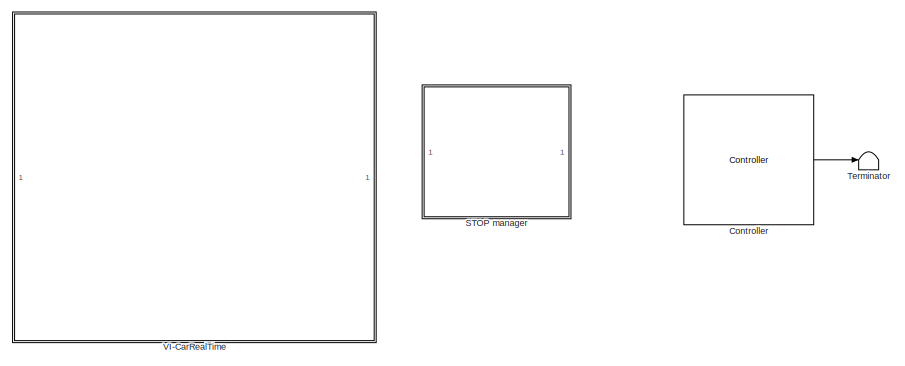
[diagram: root canvas - part 1/4, top center region]
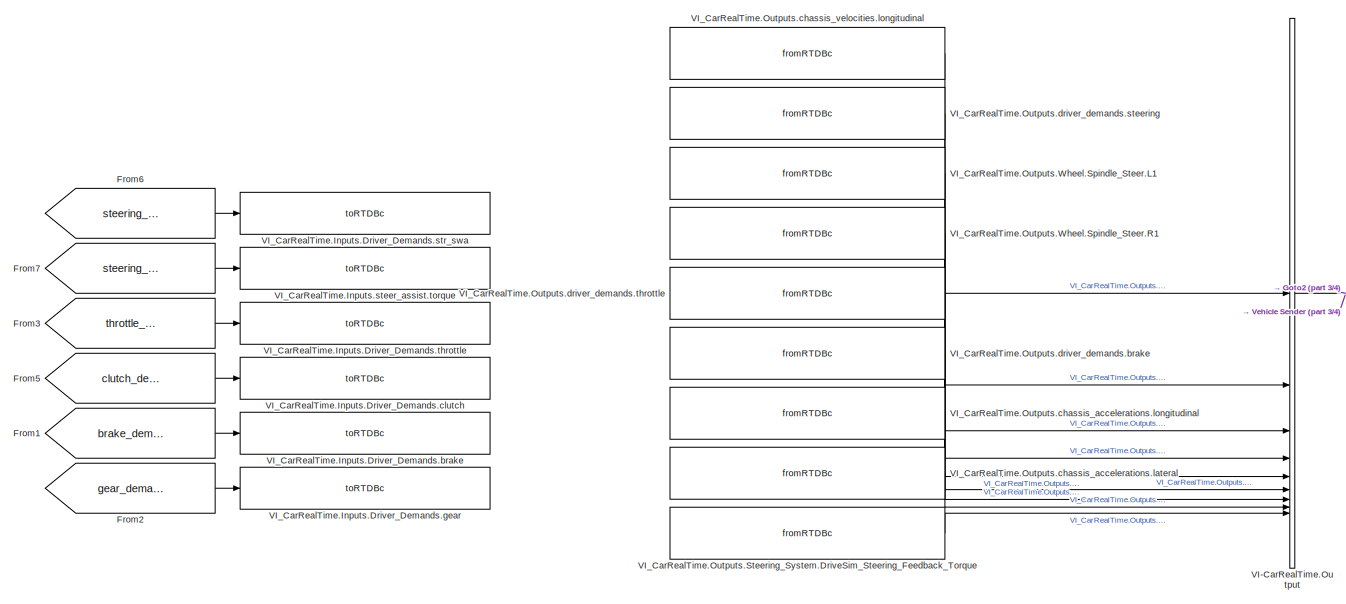
[diagram: root canvas - part 2/4, full width, middle band]
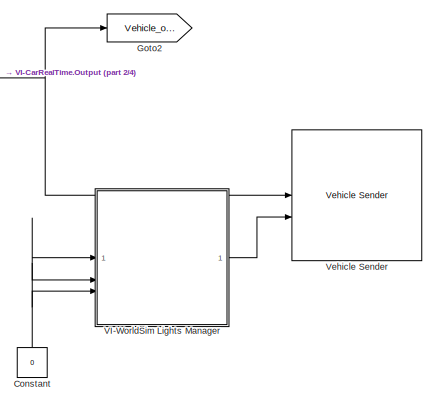
[diagram: root canvas - part 3/4, middle right region]
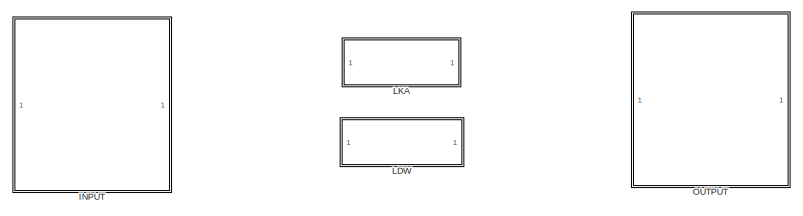
[diagram: root canvas - part 4/4, bottom center region]
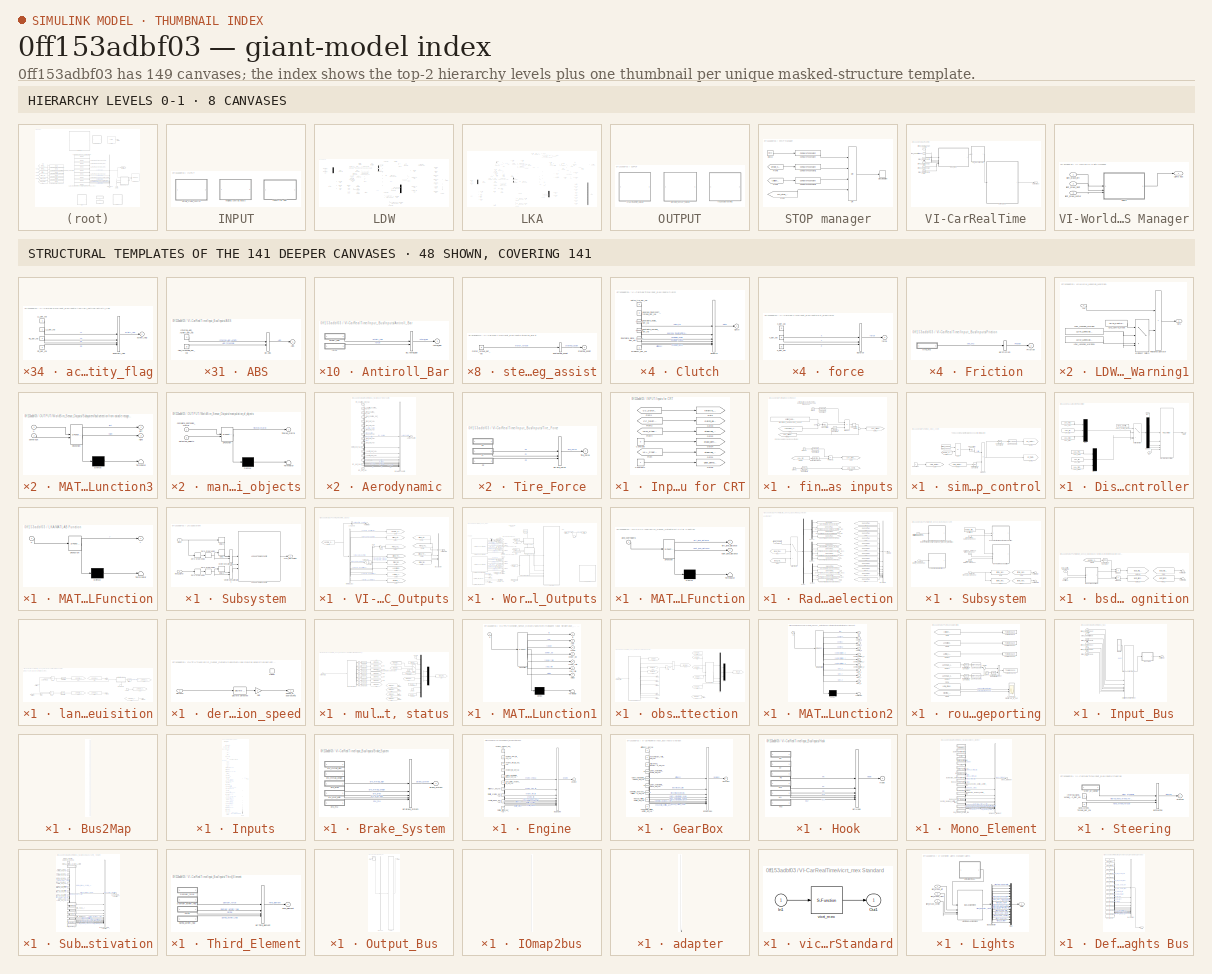
[diagram: thumbnail index - top-2 hierarchy levels (8 canvases) + 48 structural-template representatives of the remaining 141 canvases]
MODEL slx_0ff153adbf03
KIND model
CONFIG AbsTol = auto
CONFIG EnableMultiTasking = on
CONFIG FixedStep = 0.001
CONFIG InitFcn = clear mex
CONFIG MaxStep = auto
CONFIG MinStep = auto
CONFIG RelTol = 1e-3
CONFIG SampleTimeConstraint = Unconstrained
CONFIG SolverName = FixedStepAuto
CONFIG StartTime = 0.0
CONFIG StopTime = Inf
WORKSPACE source: mxarray member
WORKSPACE worldsim_instance: object (value not decoded)
BLOCK [Constant] Constant
  NameLocation = right
  Value = 0
BLOCK [Reference] Controller  REF=viworldsim_lib/Controller
  SourceBlock = viworldsim_lib/Controller
BLOCK [From] From1
  GotoTag = brake_demand
  TagVisibility = global
BLOCK [From] From2
  GotoTag = gear_demand
  TagVisibility = global
BLOCK [From] From3
  GotoTag = throttle_demand
  TagVisibility = global
BLOCK [From] From5
  GotoTag = clutch_demand
  TagVisibility = global
BLOCK [From] From6
  GotoTag = steering_angle_demand
  TagVisibility = global
BLOCK [From] From7
  GotoTag = steering_torque_demand
  TagVisibility = global
BLOCK [Goto] Goto2
  GotoTag = Vehicle_outputs
  TagVisibility = global
BLOCK [SubSystem] INPUT
BLOCK [SubSystem] INPUT/Inputs for CRT
BLOCK [Constant] INPUT/Inputs for CRT/Constant
  Value = 0
BLOCK [Constant] INPUT/Inputs for CRT/Constant1
BLOCK [From] INPUT/Inputs for CRT/From
  GotoTag = LKA_Steering_signal
  TagVisibility = global
BLOCK [From] INPUT/Inputs for CRT/From1
  GotoTag = CC_clutch_demand
  TagVisibility = global
BLOCK [From] INPUT/Inputs for CRT/From2
  GotoTag = CC_throttle_demand
  TagVisibility = global
BLOCK [From] INPUT/Inputs for CRT/From4
  GotoTag = LDW_Steering_Torque
  TagVisibility = global
BLOCK [Goto] INPUT/Inputs for CRT/Goto
  GotoTag = throttle_demand
  TagVisibility = global
BLOCK [Goto] INPUT/Inputs for CRT/Goto1
  GotoTag = steering_angle_demand
  TagVisibility = global
BLOCK [Goto] INPUT/Inputs for CRT/Goto2
  GotoTag = steering_torque_demand
  TagVisibility = global
BLOCK [Goto] INPUT/Inputs for CRT/Goto3
  GotoTag = clutch_demand
  TagVisibility = global
BLOCK [Goto] INPUT/Inputs for CRT/Goto4
  GotoTag = brake_demand
  TagVisibility = global
BLOCK [Goto] INPUT/Inputs for CRT/Goto5
  GotoTag = gear_demand
  TagVisibility = global
BLOCK [SubSystem] INPUT/finalizing controls inputs
BLOCK [Clock] INPUT/finalizing controls inputs/Clock
BLOCK [Clock] INPUT/finalizing controls inputs/Clock1
BLOCK [Clock] INPUT/finalizing controls inputs/Clock2
BLOCK [Reference] INPUT/finalizing controls inputs/Compare To Constant  REF=simulink/Logic and Bit
Operations/Compare
To Constant
  SourceBlock = simulink/Logic and Bit\nOperations/Compare\nTo Constant
  SourceType = Compare To Constant
BLOCK [Reference] INPUT/finalizing controls inputs/Compare To Constant1  REF=simulink/Logic and Bit
Operations/Compare
To Constant
  SourceBlock = simulink/Logic and Bit\nOperations/Compare\nTo Constant
  SourceType = Compare To Constant
BLOCK [Reference] INPUT/finalizing controls inputs/Compare To Constant2  REF=simulink/Logic and Bit
Operations/Compare
To Constant
  SourceBlock = simulink/Logic and Bit\nOperations/Compare\nTo Constant
  SourceType = Compare To Constant
BLOCK [Reference] INPUT/finalizing controls inputs/Compare To Constant5  REF=simulink/Logic and Bit
Operations/Compare
To Constant
  SourceBlock = simulink/Logic and Bit\nOperations/Compare\nTo Constant
  SourceType = Compare To Constant
BLOCK [Reference] INPUT/finalizing controls inputs/Detect Decrease  REF=simulink/Logic and Bit
Operations/Detect
Decrease
  SourceBlock = simulink/Logic and Bit\nOperations/Detect\nDecrease
  SourceType = Detect Decrease
BLOCK [From] INPUT/finalizing controls inputs/From2
  GotoTag = LaneGap_speed_left_ws
  TagVisibility = global
BLOCK [From] INPUT/finalizing controls inputs/From3
  GotoTag = LKA_On
  TagVisibility = global
BLOCK [From] INPUT/finalizing controls inputs/From8
  GotoTag = LKA_Steer_Angle
  TagVisibility = global
BLOCK [Goto] INPUT/finalizing controls inputs/Goto
  GotoTag = LKA_Stop_signal
  TagVisibility = global
BLOCK [Goto] INPUT/finalizing controls inputs/Goto1
  GotoTag = LKA_Steering_signal
  TagVisibility = global
BLOCK [Goto] INPUT/finalizing controls inputs/Goto2
  GotoTag = LSS_controls_Start_signal
  TagVisibility = global
BLOCK [Reference] INPUT/finalizing controls inputs/PID Controller  REF=simulink/Continuous/PID Controller
  SourceBlock = simulink/Continuous/PID Controller
  SourceType = PID 1dof
BLOCK [Product] INPUT/finalizing controls inputs/Product
  Inputs = 3
BLOCK [Product] INPUT/finalizing controls inputs/Product1
BLOCK [RateLimiter] INPUT/finalizing controls inputs/Rate Limiter
  FallingSlewLimit = -inf
  RisingSlewLimit = 0.75
  SampleTimeMode = inherited
BLOCK [Sum] INPUT/finalizing controls inputs/Sum
  Inputs = +-
BLOCK [Sum] INPUT/finalizing controls inputs/Sum1
  Inputs = +-
BLOCK [Constant] INPUT/finalizing controls inputs/prescribed_approaching_speed
  Value = variant_approaching_speed(index_variant_approaching_speed)
BLOCK [SubSystem] INPUT/simple_cruise_control
BLOCK [DataTypeConversion] INPUT/simple_cruise_control/Cast To Double
  OutDataTypeStr = double
  RndMeth = Floor
  SaturateOnIntegerOverflow = off
BLOCK [Reference] INPUT/simple_cruise_control/Compare To Constant4  REF=simulink/Logic and Bit
Operations/Compare
To Constant
  SourceBlock = simulink/Logic and Bit\nOperations/Compare\nTo Constant
  SourceType = Compare To Constant
BLOCK [Reference] INPUT/simple_cruise_control/Compare To Constant5  REF=simulink/Logic and Bit
Operations/Compare
To Constant
  SourceBlock = simulink/Logic and Bit\nOperations/Compare\nTo Constant
  SourceType = Compare To Constant
BLOCK [Constant] INPUT/simple_cruise_control/Constant
  Value = 0
BLOCK [From] INPUT/simple_cruise_control/From4
  GotoTag = Vehicle_Speed
  TagVisibility = global
BLOCK [From] INPUT/simple_cruise_control/From6
  GotoTag = AEB_Output_Brake
BLOCK [Goto] INPUT/simple_cruise_control/Goto
  GotoTag = AEB_Output_Brake
BLOCK [Goto] INPUT/simple_cruise_control/Goto1
  GotoTag = CC_clutch_demand
  TagVisibility = global
BLOCK [Goto] INPUT/simple_cruise_control/Goto2
  GotoTag = CC_throttle_demand
  TagVisibility = global
BLOCK [Reference] INPUT/simple_cruise_control/PID Controller  REF=simulink/Continuous/PID Controller
  SourceBlock = simulink/Continuous/PID Controller
  SourceType = PID 1dof
BLOCK [Product] INPUT/simple_cruise_control/Product
BLOCK [Sum] INPUT/simple_cruise_control/Sum
  IconShape = rectangular
  Inputs = +-
BLOCK [Constant] INPUT/simple_cruise_control/target_speed_
  Value = target_speed
BLOCK [SubSystem] LDW
BLOCK [From] LDW/AP_On
  GotoTag = AP_On
BLOCK [From] LDW/AP_On1
  GotoTag = LKA_On
  TagVisibility = global
BLOCK [Abs] LDW/Abs
  SaturateOnIntegerOverflow = off
BLOCK [BusCreator] LDW/Bus Creator
  DisplayOption = bar
  InheritFromInputs = on
  Inputs = 7
BLOCK [Reference] LDW/Compare To Constant1  REF=simulink/Logic and Bit
Operations/Compare
To Constant
  SourceBlock = simulink/Logic and Bit\nOperations/Compare\nTo Constant
  SourceType = Compare To Constant
BLOCK [Reference] LDW/Compare To Constant2  REF=simulink/Logic and Bit
Operations/Compare
To Constant
  SourceBlock = simulink/Logic and Bit\nOperations/Compare\nTo Constant
  SourceType = Compare To Constant
BLOCK [Reference] LDW/Compare To Constant3  REF=simulink/Logic and Bit
Operations/Compare
To Constant
  SourceBlock = simulink/Logic and Bit\nOperations/Compare\nTo Constant
  SourceType = Compare To Constant
BLOCK [Reference] LDW/Compare To Constant4  REF=simulink/Logic and Bit
Operations/Compare
To Constant
  SourceBlock = simulink/Logic and Bit\nOperations/Compare\nTo Constant
  SourceType = Compare To Constant
BLOCK [Reference] LDW/Compare To LDW_LaneGap_dydt_Warning  REF=simulink/Logic and Bit
Operations/Compare
To Constant
  SourceBlock = simulink/Logic and Bit\nOperations/Compare\nTo Constant
  SourceType = Compare To Constant
BLOCK [Reference] LDW/Compare To LDW_Min_Speed  REF=simulink/Logic and Bit
Operations/Compare
To Constant
  SourceBlock = simulink/Logic and Bit\nOperations/Compare\nTo Constant
  SourceType = Compare To Constant
BLOCK [Reference] LDW/Compare To Zero  REF=simulink/Logic and Bit
Operations/Compare
To Zero
  SourceBlock = simulink/Logic and Bit\nOperations/Compare\nTo Zero
  SourceType = Compare To Zero
BLOCK [Constant] LDW/Constant
  Value = 0
BLOCK [DataTypeConversion] LDW/Data Type Conversion
  OutDataTypeStr = double
  RndMeth = Floor
  SaturateOnIntegerOverflow = off
BLOCK [DataTypeConversion] LDW/Data Type Conversion1
  OutDataTypeStr = double
  RndMeth = Floor
  SaturateOnIntegerOverflow = off
BLOCK [DataTypeConversion] LDW/Data Type Conversion2
  OutDataTypeStr = double
  RndMeth = Floor
  SaturateOnIntegerOverflow = off
BLOCK [DataTypeConversion] LDW/Data Type Conversion3
  OutDataTypeStr = double
  RndMeth = Floor
  SaturateOnIntegerOverflow = off
BLOCK [Demux] LDW/Demux
  Outputs = 2
BLOCK [Demux] LDW/Demux1
  Outputs = 2
BLOCK [Demux] LDW/Demux2
  Outputs = 2
BLOCK [Reference] LDW/Discrete Derivative  REF=simulink/Discrete/Discrete Derivative
  SourceBlock = simulink/Discrete/Discrete Derivative
  SourceType = Discrete Derivative
BLOCK [From] LDW/From
  GotoTag = Indicator_On
BLOCK [From] LDW/From1
  GotoTag = ADAS_Error
BLOCK [From] LDW/From10
  GotoTag = LDW_White
  TagVisibility = global
BLOCK [From] LDW/From11
  GotoTag = LDW_Ready
  TagVisibility = global
BLOCK [From] LDW/From2
  GotoTag = LaneGap_right_ws
  TagVisibility = global
BLOCK [From] LDW/From3
  GotoTag = LaneGap_left_ws
  TagVisibility = global
BLOCK [From] LDW/From4
  GotoTag = LSS_controls_Start_signal
  TagVisibility = global
BLOCK [From] LDW/From5
  GotoTag = LDW_Steering_Torque
  TagVisibility = global
BLOCK [From] LDW/From6
  GotoTag = LDW_On
  TagVisibility = global
BLOCK [From] LDW/From7
  GotoTag = LDW_On_Pulse
  TagVisibility = global
BLOCK [From] LDW/From8
  GotoTag = LDW_On_Left
  TagVisibility = global
BLOCK [From] LDW/From9
  GotoTag = LDW_On_Right
  TagVisibility = global
BLOCK [Goto] LDW/Goto
  GotoTag = LDW_On
  TagVisibility = global
BLOCK [Goto] LDW/Goto1
  GotoTag = LDW_Ready
  TagVisibility = global
BLOCK [Goto] LDW/Goto2
  GotoTag = LDW_White
  TagVisibility = global
BLOCK [Goto] LDW/Goto3
  GotoTag = LDW_On_Pulse
  TagVisibility = global
BLOCK [Goto] LDW/Goto4
  GotoTag = LDW_On_Left
  TagVisibility = global
BLOCK [Goto] LDW/Goto5
  GotoTag = LDW_On_Right
  TagVisibility = global
BLOCK [Goto] LDW/Goto6
  GotoTag = AP_On
BLOCK [Goto] LDW/Goto7
  GotoTag = Indicator_On
BLOCK [Goto] LDW/Goto8
  GotoTag = ADAS_Error
BLOCK [Constant] LDW/LDW_Activity_Flag
  Value = LDW_Activity_Flag
BLOCK [SubSystem] LDW/LDW_LaneGap_Warning1
BLOCK [Constant] LDW/LDW_LaneGap_Warning1/ADAS_Control_Mode
  Value = ADAS_Control_Mode
BLOCK [Inport] LDW/LDW_LaneGap_Warning1/In1
BLOCK [Constant] LDW/LDW_LaneGap_Warning1/LDW_LaneGap_Warning
  Value = LDW_LaneGap_Warning(1)
BLOCK [Constant] LDW/LDW_LaneGap_Warning1/LDW_LaneGap_Warning1
  Value = LDW_LaneGap_Warning(2)
  VectorParams1D = off
BLOCK [MultiPortSwitch] LDW/LDW_LaneGap_Warning1/Multiport Switch
  DataPortForDefault = Additional data port
  DiagnosticForDefault = None
  InputSameDT = off
  Inputs = 2
  SaturateOnIntegerOverflow = off
BLOCK [Outport] LDW/LDW_LaneGap_Warning1/Out1
  VectorParamsAs1DForOutWhenUnconnected = off
BLOCK [RelationalOperator] LDW/LDW_LaneGap_Warning1/Relational Operator
  InputSameDT = off
  Operator = <
  OutDataTypeStr = boolean
BLOCK [Sin] LDW/LDW_Steer_Vibration
  Amplitude = LDW_Steer_Vibration_Amplitude
  Frequency = LDW_Steer_Vibration_Freq*2*pi
  SampleTime = 0
BLOCK [Goto] LDW/LDW_Steering_Torque
  GotoTag = LDW_Steering_Torque
  TagVisibility = global
BLOCK [Logic] LDW/Logical Operator
  AllPortsSameDT = off
  Operator = OR
  OutDataTypeStr = boolean
BLOCK [Logic] LDW/Logical Operator1
  AllPortsSameDT = off
  Inputs = 7
  OutDataTypeStr = boolean
BLOCK [Logic] LDW/Logical Operator2
  AllPortsSameDT = off
  OutDataTypeStr = boolean
BLOCK [Logic] LDW/Logical Operator3
  AllPortsSameDT = off
  OutDataTypeStr = boolean
BLOCK [Logic] LDW/Logical Operator4
  AllPortsSameDT = off
  Operator = OR
  OutDataTypeStr = boolean
BLOCK [Logic] LDW/Logical Operator5
  AllPortsSameDT = off
  Inputs = 3
  OutDataTypeStr = boolean
BLOCK [Memory] LDW/Memory2
BLOCK [Mux] LDW/Mux3
  DisplayOption = bar
  Inputs = 2
BLOCK [Product] LDW/Product
  Inputs = 3
BLOCK [Product] LDW/Product1
BLOCK [Product] LDW/Product2
BLOCK [DiscretePulseGenerator] LDW/Pulse Generator
  Period = 1/LKA_On_Display_Freq
  PulseType = Time based
  PulseWidth = 50
BLOCK [RateTransition] LDW/Rate Transition
  OutPortSampleTime = 1/LDW_Freq_Hz
BLOCK [RateTransition] LDW/Rate Transition1
  OutPortSampleTime = 1/1000
BLOCK [RateTransition] LDW/Rate Transition2
  OutPortSampleTime = 1/1000
BLOCK [RateTransition] LDW/Rate Transition3
  OutPortSampleTime = 1/1000
BLOCK [Terminator] LDW/Terminator
BLOCK [Terminator] LDW/Terminator1
BLOCK [From] LDW/Vehicle_Speed
  GotoTag = Vehicle_Speed
  TagVisibility = global
BLOCK [From] LDW/Vicrt_Status
  GotoTag = Vicrt_Status
  TagVisibility = global
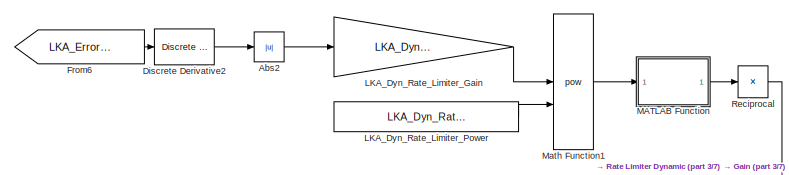
[diagram: LKA - part 1/7, top center region]
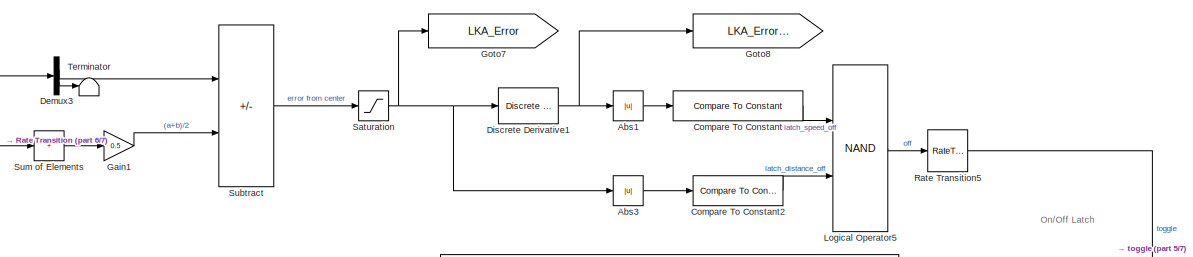
[diagram: LKA - part 2/7, top center region]
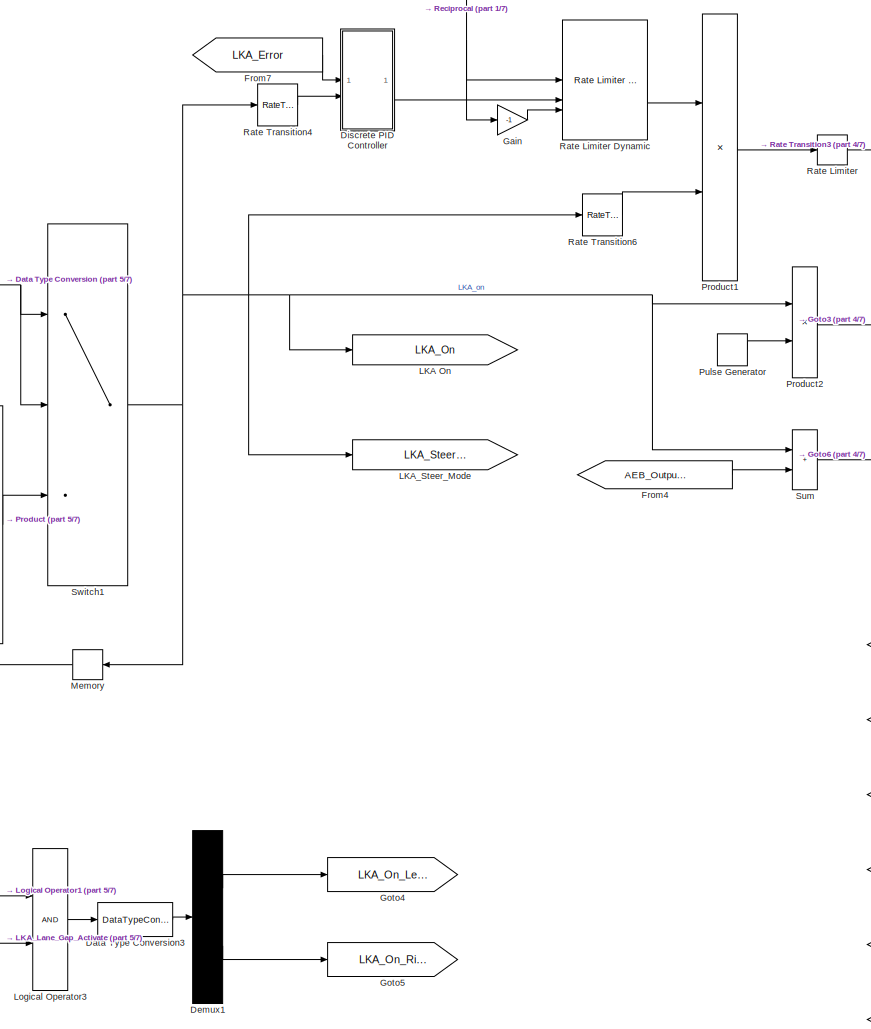
[diagram: LKA - part 3/7, middle right region]
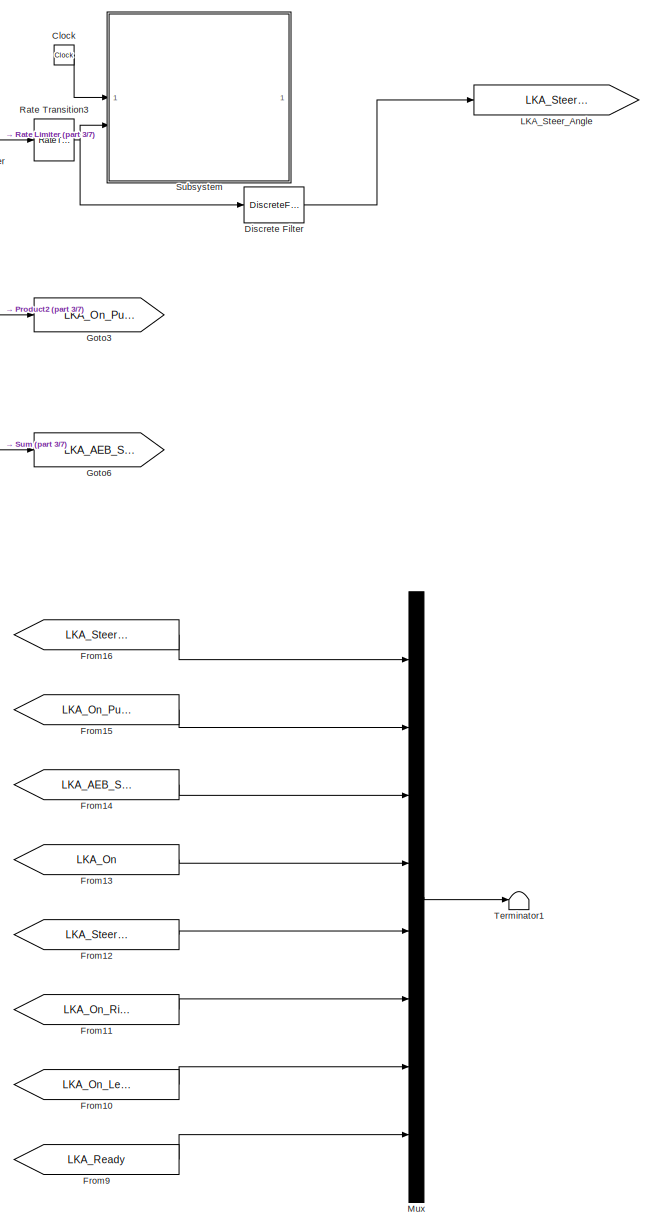
[diagram: LKA - part 4/7, right side, full height]
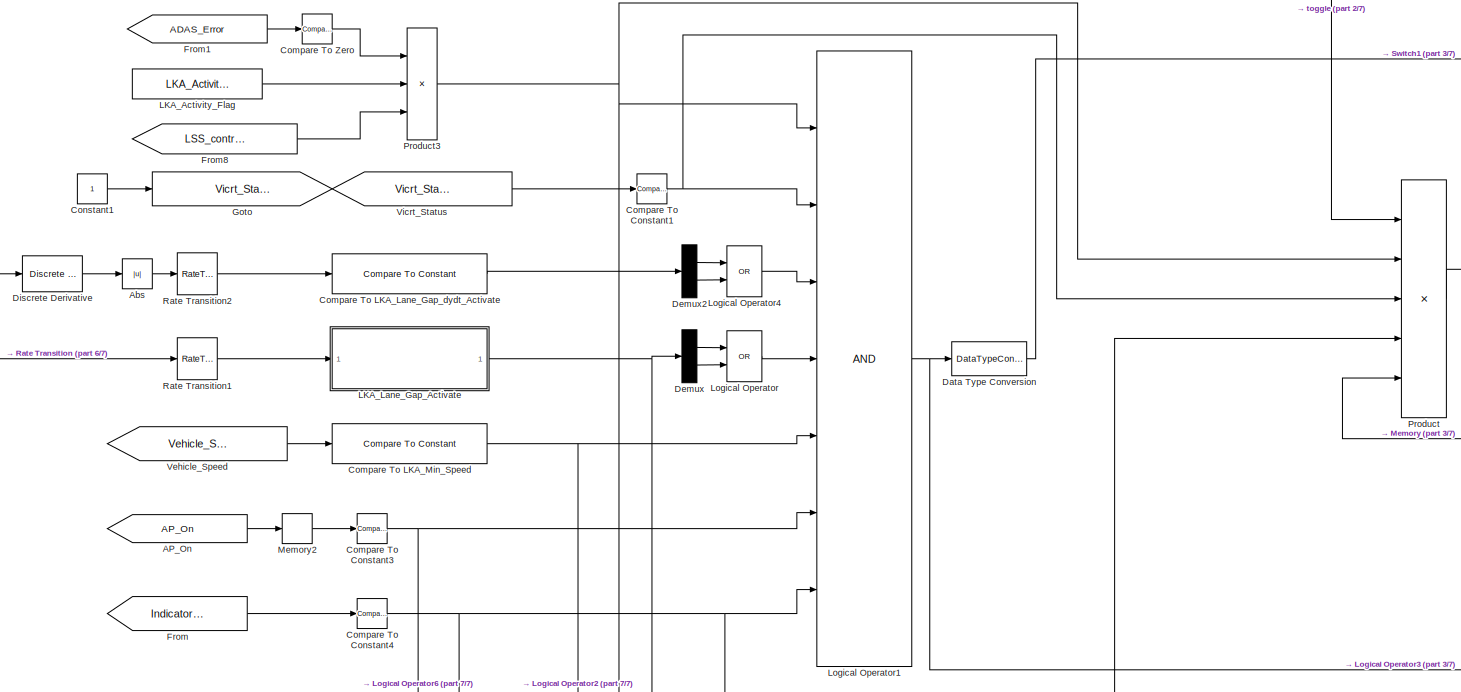
[diagram: LKA - part 5/7, central region]
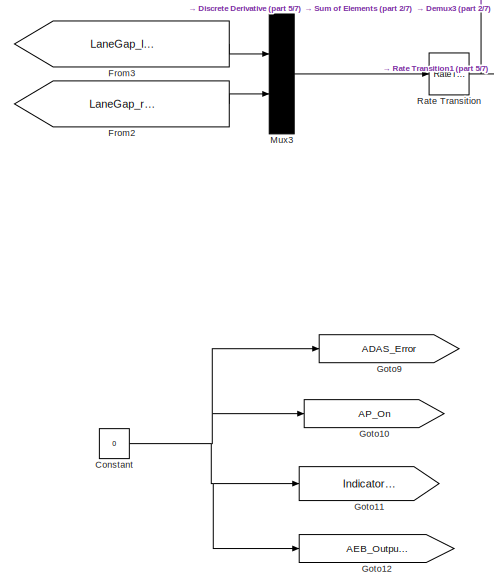
[diagram: LKA - part 6/7, bottom left region]
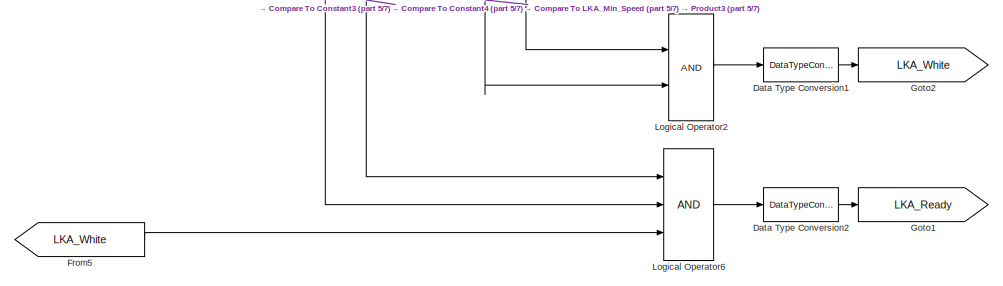
[diagram: LKA - part 7/7, bottom left region]
BLOCK [SubSystem] LKA
BLOCK [From] LKA/AP_On
  GotoTag = AP_On
BLOCK [Abs] LKA/Abs
  SaturateOnIntegerOverflow = off
BLOCK [Abs] LKA/Abs1
  SaturateOnIntegerOverflow = off
BLOCK [Abs] LKA/Abs2
  SaturateOnIntegerOverflow = off
BLOCK [Abs] LKA/Abs3
  SaturateOnIntegerOverflow = off
BLOCK [Clock] LKA/Clock
  Commented = on
BLOCK [Reference] LKA/Compare To Constant  REF=simulink/Logic and Bit
Operations/Compare
To Constant
  SourceBlock = simulink/Logic and Bit\nOperations/Compare\nTo Constant
  SourceType = Compare To Constant
BLOCK [Reference] LKA/Compare To Constant1  REF=simulink/Logic and Bit
Operations/Compare
To Constant
  SourceBlock = simulink/Logic and Bit\nOperations/Compare\nTo Constant
  SourceType = Compare To Constant
BLOCK [Reference] LKA/Compare To Constant2  REF=simulink/Logic and Bit
Operations/Compare
To Constant
  SourceBlock = simulink/Logic and Bit\nOperations/Compare\nTo Constant
  SourceType = Compare To Constant
BLOCK [Reference] LKA/Compare To Constant3  REF=simulink/Logic and Bit
Operations/Compare
To Constant
  SourceBlock = simulink/Logic and Bit\nOperations/Compare\nTo Constant
  SourceType = Compare To Constant
BLOCK [Reference] LKA/Compare To Constant4  REF=simulink/Logic and Bit
Operations/Compare
To Constant
  SourceBlock = simulink/Logic and Bit\nOperations/Compare\nTo Constant
  SourceType = Compare To Constant
BLOCK [Reference] LKA/Compare To LKA_Lane_Gap_dydt_Activate  REF=simulink/Logic and Bit
Operations/Compare
To Constant
  SourceBlock = simulink/Logic and Bit\nOperations/Compare\nTo Constant
  SourceType = Compare To Constant
BLOCK [Reference] LKA/Compare To LKA_Min_Speed  REF=simulink/Logic and Bit
Operations/Compare
To Constant
  SourceBlock = simulink/Logic and Bit\nOperations/Compare\nTo Constant
  SourceType = Compare To Constant
BLOCK [Reference] LKA/Compare To Zero  REF=simulink/Logic and Bit
Operations/Compare
To Zero
  SourceBlock = simulink/Logic and Bit\nOperations/Compare\nTo Zero
  SourceType = Compare To Zero
BLOCK [Constant] LKA/Constant
  Value = 0
BLOCK [Constant] LKA/Constant1
BLOCK [DataTypeConversion] LKA/Data Type Conversion
  OutDataTypeStr = double
  RndMeth = Floor
  SaturateOnIntegerOverflow = off
BLOCK [DataTypeConversion] LKA/Data Type Conversion1
  OutDataTypeStr = double
  RndMeth = Floor
  SaturateOnIntegerOverflow = off
BLOCK [DataTypeConversion] LKA/Data Type Conversion2
  OutDataTypeStr = double
  RndMeth = Floor
  SaturateOnIntegerOverflow = off
BLOCK [DataTypeConversion] LKA/Data Type Conversion3
  OutDataTypeStr = double
  RndMeth = Floor
  SaturateOnIntegerOverflow = off
BLOCK [Demux] LKA/Demux
  Outputs = 2
BLOCK [Demux] LKA/Demux1
  Outputs = 2
BLOCK [Demux] LKA/Demux2
  Outputs = 2
BLOCK [Demux] LKA/Demux3
  Outputs = 2
BLOCK [Reference] LKA/Discrete Derivative  REF=simulink/Discrete/Discrete Derivative
  SourceBlock = simulink/Discrete/Discrete Derivative
  SourceType = Discrete Derivative
BLOCK [Reference] LKA/Discrete Derivative1  REF=simulink/Discrete/Discrete Derivative
  SourceBlock = simulink/Discrete/Discrete Derivative
  SourceType = Discrete Derivative
BLOCK [Reference] LKA/Discrete Derivative2  REF=simulink/Discrete/Discrete Derivative
  SourceBlock = simulink/Discrete/Discrete Derivative
  SourceType = Discrete Derivative
BLOCK [DiscreteFilter] LKA/Discrete Filter
  Denominator = [butter_a_lka_out]
  InputPortMap = u0
  Numerator = [butter_b_lka_out]
  SampleTime = 1e-3
BLOCK [SubSystem] LKA/Discrete PID Controller
BLOCK [Constant] LKA/Discrete PID Controller/ADAS_Control_Mode
  Value = ADAS_Control_Mode
BLOCK [Demux] LKA/Discrete PID Controller/Demux
  Outputs = 3
BLOCK [Reference] LKA/Discrete PID Controller/Discrete PID Controller  REF=simulink/Continuous/PID Controller
  SourceBlock = simulink/Continuous/PID Controller
  SourceType = PID 1dof
BLOCK [Inport] LKA/Discrete PID Controller/In1
BLOCK [Inport] LKA/Discrete PID Controller/In2
  Port = 2
BLOCK [Constant] LKA/Discrete PID Controller/LKA_D(1)
  Value = LKA_D(1)
BLOCK [Constant] LKA/Discrete PID Controller/LKA_D(1)1
  Value = LKA_D(2)
BLOCK [Constant] LKA/Discrete PID Controller/LKA_I(1)
  Value = LKA_I(1)
BLOCK [Constant] LKA/Discrete PID Controller/LKA_I(1)1
  Value = LKA_I(2)
BLOCK [Constant] LKA/Discrete PID Controller/LKA_P(1)
  Value = LKA_P(1)
BLOCK [Constant] LKA/Discrete PID Controller/LKA_P(1)1
  Value = LKA_P(2)
BLOCK [MultiPortSwitch] LKA/Discrete PID Controller/Multiport Switch
  DataPortForDefault = Additional data port
  DiagnosticForDefault = None
  InputSameDT = off
  Inputs = 2
  SaturateOnIntegerOverflow = off
BLOCK [Mux] LKA/Discrete PID Controller/Mux
  DisplayOption = bar
  Inputs = 3
BLOCK [Mux] LKA/Discrete PID Controller/Mux1
  DisplayOption = bar
  Inputs = 3
BLOCK [Outport] LKA/Discrete PID Controller/Out1
  VectorParamsAs1DForOutWhenUnconnected = off
BLOCK [From] LKA/From
  GotoTag = Indicator_On
BLOCK [From] LKA/From1
  GotoTag = ADAS_Error
BLOCK [From] LKA/From10
  GotoTag = LKA_On_Left
  TagVisibility = global
BLOCK [From] LKA/From11
  GotoTag = LKA_On_Right
  TagVisibility = global
BLOCK [From] LKA/From12
  GotoTag = LKA_Steer_Mode
  TagVisibility = global
BLOCK [From] LKA/From13
  GotoTag = LKA_On
  TagVisibility = global
BLOCK [From] LKA/From14
  GotoTag = LKA_AEB_Sound
  TagVisibility = global
BLOCK [From] LKA/From15
  GotoTag = LKA_On_Pulse
  TagVisibility = global
BLOCK [From] LKA/From16
  GotoTag = LKA_Steer_Angle
  TagVisibility = global
BLOCK [From] LKA/From2
  GotoTag = LaneGap_right_ws
  TagVisibility = global
BLOCK [From] LKA/From3
  GotoTag = LaneGap_left_ws
  TagVisibility = global
BLOCK [From] LKA/From4
  GotoTag = AEB_Output_Active
BLOCK [From] LKA/From5
  GotoTag = LKA_White
  TagVisibility = global
BLOCK [From] LKA/From6
  GotoTag = LKA_Error_dydt
  TagVisibility = global
BLOCK [From] LKA/From7
  GotoTag = LKA_Error
  TagVisibility = global
BLOCK [From] LKA/From8
  GotoTag = LSS_controls_Start_signal
  TagVisibility = global
BLOCK [From] LKA/From9
  GotoTag = LKA_Ready
  TagVisibility = global
BLOCK [Gain] LKA/Gain
  Gain = -1
BLOCK [Gain] LKA/Gain1
  Gain = 0.5
BLOCK [Goto] LKA/Goto
  GotoTag = Vicrt_Status
  TagVisibility = global
BLOCK [Goto] LKA/Goto1
  GotoTag = LKA_Ready
  TagVisibility = global
BLOCK [Goto] LKA/Goto10
  GotoTag = AP_On
BLOCK [Goto] LKA/Goto11
  GotoTag = Indicator_On
BLOCK [Goto] LKA/Goto12
  GotoTag = AEB_Output_Active
BLOCK [Goto] LKA/Goto2
  GotoTag = LKA_White
  TagVisibility = global
BLOCK [Goto] LKA/Goto3
  GotoTag = LKA_On_Pulse
  TagVisibility = global
BLOCK [Goto] LKA/Goto4
  GotoTag = LKA_On_Left
  TagVisibility = global
BLOCK [Goto] LKA/Goto5
  GotoTag = LKA_On_Right
  TagVisibility = global
BLOCK [Goto] LKA/Goto6
  GotoTag = LKA_AEB_Sound
  TagVisibility = global
BLOCK [Goto] LKA/Goto7
  GotoTag = LKA_Error
  TagVisibility = global
BLOCK [Goto] LKA/Goto8
  GotoTag = LKA_Error_dydt
  TagVisibility = global
BLOCK [Goto] LKA/Goto9
  GotoTag = ADAS_Error
BLOCK [Goto] LKA/LKA On
  GotoTag = LKA_On
  TagVisibility = global
BLOCK [Constant] LKA/LKA_Activity_Flag
  Value = LKA_Activity_Flag
BLOCK [Gain] LKA/LKA_Dyn_Rate_Limiter_Gain
  Gain = LKA_Dyn_Rate_Limiter_Gain
BLOCK [Constant] LKA/LKA_Dyn_Rate_Limiter_Power
  Value = LKA_Dyn_Rate_Limiter_Power
BLOCK [SubSystem] LKA/LKA_Lane_Gap_Activate
BLOCK [Constant] LKA/LKA_Lane_Gap_Activate/ADAS_Control_Mode
  Value = ADAS_Control_Mode
BLOCK [Inport] LKA/LKA_Lane_Gap_Activate/In1
BLOCK [Constant] LKA/LKA_Lane_Gap_Activate/LKA_Lane_Gap_Activate
  Value = LKA_Lane_Gap_Activate(1)
BLOCK [Constant] LKA/LKA_Lane_Gap_Activate/LKA_Lane_Gap_Activate2
  Value = LKA_Lane_Gap_Activate(2)
  VectorParams1D = off
BLOCK [MultiPortSwitch] LKA/LKA_Lane_Gap_Activate/Multiport Switch
  DataPortForDefault = Additional data port
  DiagnosticForDefault = None
  InputSameDT = off
  Inputs = 2
  SaturateOnIntegerOverflow = off
BLOCK [Outport] LKA/LKA_Lane_Gap_Activate/Out1
  VectorParamsAs1DForOutWhenUnconnected = off
BLOCK [RelationalOperator] LKA/LKA_Lane_Gap_Activate/Relational Operator
  InputSameDT = off
  Operator = <
  OutDataTypeStr = boolean
BLOCK [Goto] LKA/LKA_Steer_Angle
  GotoTag = LKA_Steer_Angle
  TagVisibility = global
BLOCK [Goto] LKA/LKA_Steer_Mode
  GotoTag = LKA_Steer_Mode
  TagVisibility = global
BLOCK [Logic] LKA/Logical Operator
  AllPortsSameDT = off
  Operator = OR
  OutDataTypeStr = boolean
BLOCK [Logic] LKA/Logical Operator1
  AllPortsSameDT = off
  Inputs = 7
  OutDataTypeStr = boolean
BLOCK [Logic] LKA/Logical Operator2
  AllPortsSameDT = off
  OutDataTypeStr = boolean
BLOCK [Logic] LKA/Logical Operator3
  AllPortsSameDT = off
  OutDataTypeStr = boolean
BLOCK [Logic] LKA/Logical Operator4
  AllPortsSameDT = off
  Operator = OR
  OutDataTypeStr = boolean
BLOCK [Logic] LKA/Logical Operator5
  AllPortsSameDT = off
  Operator = NAND
  OutDataTypeStr = boolean
BLOCK [Logic] LKA/Logical Operator6
  AllPortsSameDT = off
  Inputs = 3
  OutDataTypeStr = boolean
BLOCK [SubSystem] LKA/MATLAB Function
  ErrorFcn = Stateflow.Translate.translate
  PermitHierarchicalResolution = ExplicitOnly
  SFBlockType = MATLAB Function
  TreatAsAtomicUnit = on
BLOCK [Demux] LKA/MATLAB Function/ Demux 
  Outputs = 1
BLOCK [S-Function] LKA/MATLAB Function/ SFunction 
  EnableBusSupport = off
  FunctionName = sf_sfun
  PortCounts = [1 2]
  SFcnIsStateOwnerBlock = off
  SFunctionDeploymentMode = off
  Tag = Stateflow S-Function 2
BLOCK [Terminator] LKA/MATLAB Function/ Terminator 
BLOCK [Inport] LKA/MATLAB Function/u
BLOCK [Outport] LKA/MATLAB Function/y
BLOCK [Math] LKA/Math Function1
  Operator = pow
  SignedPower = on
BLOCK [Memory] LKA/Memory
  NameLocation = top
BLOCK [Memory] LKA/Memory2
BLOCK [Mux] LKA/Mux
  DisplayOption = bar
  Inputs = 8
BLOCK [Mux] LKA/Mux3
  DisplayOption = bar
  Inputs = 2
BLOCK [Product] LKA/Product
  Inputs = 5
BLOCK [Product] LKA/Product1
BLOCK [Product] LKA/Product2
BLOCK [Product] LKA/Product3
  Inputs = 3
BLOCK [DiscretePulseGenerator] LKA/Pulse Generator
  Period = 1/LKA_On_Display_Freq
  PulseType = Time based
  PulseWidth = 50
BLOCK [RateLimiter] LKA/Rate Limiter
  FallingSlewLimit = -LKA_Steer_Rate_Max_radps
  RisingSlewLimit = LKA_Steer_Rate_Max_radps
  SampleTimeMode = inherited
BLOCK [Reference] LKA/Rate Limiter Dynamic  REF=simulink/Discontinuities/Rate Limiter
Dynamic
  SourceBlock = simulink/Discontinuities/Rate Limiter\nDynamic
  SourceType = Rate Limiter Dynamic
BLOCK [RateTransition] LKA/Rate Transition
  OutPortSampleTime = 1/LKA_Freq_Hz
BLOCK [RateTransition] LKA/Rate Transition1
  OutPortSampleTime = 1/1000
BLOCK [RateTransition] LKA/Rate Transition2
  OutPortSampleTime = 1/1000
BLOCK [RateTransition] LKA/Rate Transition3
  OutPortSampleTime = 1/1000
BLOCK [RateTransition] LKA/Rate Transition4
  OutPortSampleTime = 1/LKA_Freq_Hz
BLOCK [RateTransition] LKA/Rate Transition5
  OutPortSampleTime = 1/1000
BLOCK [RateTransition] LKA/Rate Transition6
  OutPortSampleTime = 1/LKA_Freq_Hz
BLOCK [Product] LKA/Reciprocal
  Inputs = /
  RndMeth = Zero
  SaturateOnIntegerOverflow = on
BLOCK [Saturate] LKA/Saturation
  LowerLimit = -LKA_Error_Max
  UpperLimit = LKA_Error_Max
BLOCK [SubSystem] LKA/Subsystem
  Commented = on
BLOCK [Outport] LKA/Subsystem/1kHz_Interpolation
  VectorParamsAs1DForOutWhenUnconnected = off
BLOCK [Inport] LKA/Subsystem/Clock
BLOCK [Delay] LKA/Subsystem/Delay
  DelayLength = 1000/LKA_Freq_Hz
  InitialCondition = -1/LKA_Freq_Hz
  InputPortMap = u0
BLOCK [Delay] LKA/Subsystem/Delay1
  DelayLength = 1000/LKA_Freq_Hz
  InputPortMap = u0
BLOCK [Delay] LKA/Subsystem/Delay2
  DelayLength = 1000/LKA_Freq_Hz
  InputPortMap = u0
BLOCK [Inport] LKA/Subsystem/Input_Signal
  Port = 2
BLOCK [Reference] LKA/Subsystem/Lookup Table Dynamic  REF=simulink/Lookup
Tables/Lookup
Table
Dynamic
  SourceBlock = simulink/Lookup\nTables/Lookup\nTable\nDynamic
  SourceType = Lookup Table Dynamic
BLOCK [Concatenate] LKA/Subsystem/Vector Concatenate
BLOCK [Concatenate] LKA/Subsystem/Vector Concatenate1
BLOCK [ZeroOrderHold] LKA/Subsystem/Zero-Order Hold1
  SampleTime = 1/LKA_Freq_Hz
BLOCK [ZeroOrderHold] LKA/Subsystem/Zero-Order Hold2
  SampleTime = 1/LKA_Freq_Hz
BLOCK [ZeroOrderHold] LKA/Subsystem/Zero-Order Hold3
  SampleTime = 1e-3
BLOCK [ZeroOrderHold] LKA/Subsystem/Zero-Order Hold4
  SampleTime = 1e-3
BLOCK [Sum] LKA/Subtract
  IconShape = rectangular
  Inputs = -+
BLOCK [Sum] LKA/Sum
  IconShape = rectangular
BLOCK [Sum] LKA/Sum of Elements
  IconShape = rectangular
  Inputs = +
BLOCK [Switch] LKA/Switch1
  Criteria = u2 > Threshold
  InputSameDT = off
  SaturateOnIntegerOverflow = off
BLOCK [Terminator] LKA/Terminator
BLOCK [Terminator] LKA/Terminator1
BLOCK [From] LKA/Vehicle_Speed
  GotoTag = Vehicle_Speed
  TagVisibility = global
BLOCK [From] LKA/Vicrt_Status
  GotoTag = Vicrt_Status
  TagVisibility = global
BLOCK [SubSystem] OUTPUT
BLOCK [SubSystem] OUTPUT/VI-CarRealTime_Outputs
BLOCK [BusCreator] OUTPUT/VI-CarRealTime_Outputs/Bus Creator
  DisplayOption = bar
  InheritFromInputs = on
  Inputs = 4
BLOCK [Constant] OUTPUT/VI-CarRealTime_Outputs/Constant
  Value = 0
BLOCK [From] OUTPUT/VI-CarRealTime_Outputs/From
  GotoTag = Vehicle_outputs
  TagVisibility = global
BLOCK [From] OUTPUT/VI-CarRealTime_Outputs/From1
  GotoTag = Driver_Steering
  TagVisibility = global
BLOCK [From] OUTPUT/VI-CarRealTime_Outputs/From2
  GotoTag = Front_Axle_Steer
  TagVisibility = global
BLOCK [From] OUTPUT/VI-CarRealTime_Outputs/From3
  GotoTag = Driver_Throttle
  TagVisibility = global
BLOCK [From] OUTPUT/VI-CarRealTime_Outputs/From4
  GotoTag = Driver_Brake
  TagVisibility = global
BLOCK [Gain] OUTPUT/VI-CarRealTime_Outputs/Gain
  Gain = 1/2
BLOCK [Goto] OUTPUT/VI-CarRealTime_Outputs/Goto
  GotoTag = Vehicle_Speed
  TagVisibility = global
BLOCK [Goto] OUTPUT/VI-CarRealTime_Outputs/Goto1
  GotoTag = Driver_Steering
  TagVisibility = global
BLOCK [Goto] OUTPUT/VI-CarRealTime_Outputs/Goto2
  GotoTag = Front_Axle_Steer
  TagVisibility = global
BLOCK [Goto] OUTPUT/VI-CarRealTime_Outputs/Goto3
  GotoTag = Driver_Throttle
  TagVisibility = global
BLOCK [Goto] OUTPUT/VI-CarRealTime_Outputs/Goto4
  GotoTag = Driver_Brake
  TagVisibility = global
BLOCK [Goto] OUTPUT/VI-CarRealTime_Outputs/Goto5
  GotoTag = Longitudinal_Accelerations
  TagVisibility = global
BLOCK [Goto] OUTPUT/VI-CarRealTime_Outputs/Goto6
  GotoTag = Lateral_Accelerations
  TagVisibility = global
BLOCK [Goto] OUTPUT/VI-CarRealTime_Outputs/Goto7
  GotoTag = Steering_feedback_torque
  TagVisibility = global
BLOCK [BusSelector] OUTPUT/VI-CarRealTime_Outputs/Log_bus
  OutputAsBus = on
  OutputSignals = chassis_velocities:longitudinal,chassis_accelerations:longitudinal,driver_demands:brake,driver_demands:throttle,driver_demands:steering,transmission:gear,engine:engine_rpm,chassis_accelerations:lateral,chassis_accelerations:vertical,chassis_velocities:lateral,chassis_velocities:pitch,chassis_velocities:roll,chassis_velocities:vertical,chassis_velocities:yaw,Steering_Column:steering_assist_force,St...<+47ch>
BLOCK [Sum] OUTPUT/VI-CarRealTime_Outputs/Sum
BLOCK [Terminator] OUTPUT/VI-CarRealTime_Outputs/Terminator
BLOCK [Terminator] OUTPUT/VI-CarRealTime_Outputs/Terminator1
BLOCK [Terminator] OUTPUT/VI-CarRealTime_Outputs/Terminator2
BLOCK [BusSelector] OUTPUT/VI-CarRealTime_Outputs/internal_bus
  OutputSignals = chassis_velocities:longitudinal,driver_demands:steering,Wheel:Spindle_Steer:L1,Wheel:Spindle_Steer:R1,driver_demands:throttle,driver_demands:brake,chassis_accelerations:longitudinal,chassis_accelerations:lateral,Steering_System:DriveSim_Steering_Feedback_Torque
BLOCK [SubSystem] OUTPUT/WorldSim_Sensor_Outputs
BLOCK [Constant] OUTPUT/WorldSim_Sensor_Outputs/Constant
  Value = zeros(64,7)
BLOCK [Demux] OUTPUT/WorldSim_Sensor_Outputs/Demux
  Outputs = 2
BLOCK [From] OUTPUT/WorldSim_Sensor_Outputs/From1
  GotoTag = collision
  TagVisibility = global
BLOCK [From] OUTPUT/WorldSim_Sensor_Outputs/From2
  GotoTag = front_lane_coefficients
BLOCK [From] OUTPUT/WorldSim_Sensor_Outputs/From3
  GotoTag = front_map_obstacles
BLOCK [From] OUTPUT/WorldSim_Sensor_Outputs/From4
  GotoTag = rear_map_obstacles
BLOCK [From] OUTPUT/WorldSim_Sensor_Outputs/From5
  GotoTag = rear_lane_coefficients
BLOCK [From] OUTPUT/WorldSim_Sensor_Outputs/From6
  GotoTag = message_count
BLOCK [From] OUTPUT/WorldSim_Sensor_Outputs/From7
  GotoTag = valid_front_map_obstacles
BLOCK [From] OUTPUT/WorldSim_Sensor_Outputs/From8
  GotoTag = valid_rear_map_obstacles
BLOCK [Goto] OUTPUT/WorldSim_Sensor_Outputs/Goto
  GotoTag = collision_additive
  TagVisibility = global
BLOCK [Goto] OUTPUT/WorldSim_Sensor_Outputs/Goto1
  GotoTag = front_lane_coefficients
BLOCK [Goto] OUTPUT/WorldSim_Sensor_Outputs/Goto2
  GotoTag = front_map_obstacles
BLOCK [Goto] OUTPUT/WorldSim_Sensor_Outputs/Goto3
  GotoTag = rear_lane_coefficients
BLOCK [Goto] OUTPUT/WorldSim_Sensor_Outputs/Goto4
  GotoTag = rear_map_obstacles
BLOCK [Goto] OUTPUT/WorldSim_Sensor_Outputs/Goto5
  GotoTag = message_count
BLOCK [Goto] OUTPUT/WorldSim_Sensor_Outputs/Goto6
  GotoTag = valid_front_map_obstacles
BLOCK [Goto] OUTPUT/WorldSim_Sensor_Outputs/Goto7
  GotoTag = valid_rear_map_obstacles
BLOCK [Goto] OUTPUT/WorldSim_Sensor_Outputs/Gotocollision_goto7
  GotoTag = collision
  TagVisibility = global
BLOCK [SubSystem] OUTPUT/WorldSim_Sensor_Outputs/MATLAB Function
  ErrorFcn = Stateflow.Translate.translate
  PermitHierarchicalResolution = ExplicitOnly
  SFBlockType = MATLAB Function
  TreatAsAtomicUnit = on
BLOCK [Demux] OUTPUT/WorldSim_Sensor_Outputs/MATLAB Function/ Demux 
  Outputs = 1
BLOCK [S-Function] OUTPUT/WorldSim_Sensor_Outputs/MATLAB Function/ SFunction 
  EnableBusSupport = off
  FunctionName = sf_sfun
  PortCounts = [1 3]
  SFcnIsStateOwnerBlock = off
  SFunctionDeploymentMode = off
  Tag = Stateflow S-Function 4
BLOCK [Terminator] OUTPUT/WorldSim_Sensor_Outputs/MATLAB Function/ Terminator 
BLOCK [Inport] OUTPUT/WorldSim_Sensor_Outputs/MATLAB Function/lane_coefficiants
BLOCK [Outport] OUTPUT/WorldSim_Sensor_Outputs/MATLAB Function/left_lane_distance
BLOCK [Outport] OUTPUT/WorldSim_Sensor_Outputs/MATLAB Function/right_lane_distance
  Port = 2
BLOCK [Memory] OUTPUT/WorldSim_Sensor_Outputs/Memory
  InheritSampleTime = on
  NameLocation = top
BLOCK [SubSystem] OUTPUT/WorldSim_Sensor_Outputs/Radar_selection
BLOCK [BusCreator] OUTPUT/WorldSim_Sensor_Outputs/Radar_selection/Bus Creator
  DisplayOption = bar
  InheritFromInputs = on
  Inputs = 12
BLOCK [Constant] OUTPUT/WorldSim_Sensor_Outputs/Radar_selection/Constant1
  Value = radar_source
BLOCK [Demux] OUTPUT/WorldSim_Sensor_Outputs/Radar_selection/Demux
  Outputs = 3
BLOCK [Demux] OUTPUT/WorldSim_Sensor_Outputs/Radar_selection/Demux1
BLOCK [Demux] OUTPUT/WorldSim_Sensor_Outputs/Radar_selection/Demux2
BLOCK [Demux] OUTPUT/WorldSim_Sensor_Outputs/Radar_selection/Demux3
BLOCK [From] OUTPUT/WorldSim_Sensor_Outputs/Radar_selection/From
  GotoTag = SensorTargets_300000_id_mux
  TagVisibility = global
BLOCK [From] OUTPUT/WorldSim_Sensor_Outputs/Radar_selection/From1
  GotoTag = radar_virtual
  TagVisibility = global
BLOCK [From] OUTPUT/WorldSim_Sensor_Outputs/Radar_selection/From10
  GotoTag = SensorTargets_300002_id_mux
  TagVisibility = global
BLOCK [From] OUTPUT/WorldSim_Sensor_Outputs/Radar_selection/From11
  GotoTag = SensorTargets_300002_distanceToCollision_mux
  TagVisibility = global
BLOCK [From] OUTPUT/WorldSim_Sensor_Outputs/Radar_selection/From12
  GotoTag = SensorTargets_300002_azimuthInSensor_mux
  TagVisibility = global
BLOCK [From] OUTPUT/WorldSim_Sensor_Outputs/Radar_selection/From13
  GotoTag = SensorTargets_300002_type_mux
  TagVisibility = global
BLOCK [From] OUTPUT/WorldSim_Sensor_Outputs/Radar_selection/From2
  GotoTag = SensorTargets_300000_distanceToCollision_mux
  TagVisibility = global
BLOCK [From] OUTPUT/WorldSim_Sensor_Outputs/Radar_selection/From3
  GotoTag = SensorTargets_300000_azimuthInSensor_mux
  TagVisibility = global
BLOCK [From] OUTPUT/WorldSim_Sensor_Outputs/Radar_selection/From4
  GotoTag = SensorTargets_300000_type_mux
  TagVisibility = global
BLOCK [From] OUTPUT/WorldSim_Sensor_Outputs/Radar_selection/From5
  GotoTag = SensorTargets_300001_id_mux
  TagVisibility = global
BLOCK [From] OUTPUT/WorldSim_Sensor_Outputs/Radar_selection/From6
  GotoTag = SensorTargets_300001_distanceToCollision_mux
  TagVisibility = global
BLOCK [From] OUTPUT/WorldSim_Sensor_Outputs/Radar_selection/From7
  GotoTag = radar_multiagent
  TagVisibility = global
BLOCK [From] OUTPUT/WorldSim_Sensor_Outputs/Radar_selection/From8
  GotoTag = SensorTargets_300001_azimuthInSensor_mux
  TagVisibility = global
BLOCK [From] OUTPUT/WorldSim_Sensor_Outputs/Radar_selection/From9
  GotoTag = SensorTargets_300001_type_mux
  TagVisibility = global
BLOCK [MultiPortSwitch] OUTPUT/WorldSim_Sensor_Outputs/Radar_selection/Multiport Switch
  InputSameDT = off
  Inputs = 2
  SaturateOnIntegerOverflow = off
BLOCK [Goto] OUTPUT/WorldSim_Sensor_Outputs/Radar_selection/SensorTargets_300000_azimuthInSensor_mux
  GotoTag = SensorTargets_300000_azimuthInSensor_mux
  TagVisibility = global
BLOCK [Goto] OUTPUT/WorldSim_Sensor_Outputs/Radar_selection/SensorTargets_300000_distanceToCollision_mux
  GotoTag = SensorTargets_300000_distanceToCollision_mux
  TagVisibility = global
BLOCK [Goto] OUTPUT/WorldSim_Sensor_Outputs/Radar_selection/SensorTargets_300000_id_mux
  GotoTag = SensorTargets_300000_id_mux
  TagVisibility = global
BLOCK [Goto] OUTPUT/WorldSim_Sensor_Outputs/Radar_selection/SensorTargets_300000_type_mux
  GotoTag = SensorTargets_300000_type_mux
  TagVisibility = global
BLOCK [Goto] OUTPUT/WorldSim_Sensor_Outputs/Radar_selection/SensorTargets_300001_azimuthInSensor_mux1
  GotoTag = SensorTargets_300001_azimuthInSensor_mux
  TagVisibility = global
BLOCK [Goto] OUTPUT/WorldSim_Sensor_Outputs/Radar_selection/SensorTargets_300001_distanceToCollision_mux1
  GotoTag = SensorTargets_300001_distanceToCollision_mux
  TagVisibility = global
BLOCK [Goto] OUTPUT/WorldSim_Sensor_Outputs/Radar_selection/SensorTargets_300001_id_mux1
  GotoTag = SensorTargets_300001_id_mux
  TagVisibility = global
BLOCK [Goto] OUTPUT/WorldSim_Sensor_Outputs/Radar_selection/SensorTargets_300001_type_mux1
  GotoTag = SensorTargets_300001_type_mux
  TagVisibility = global
BLOCK [Goto] OUTPUT/WorldSim_Sensor_Outputs/Radar_selection/SensorTargets_300002_azimuthInSensor_mux2
  GotoTag = SensorTargets_300002_azimuthInSensor_mux
  TagVisibility = global
BLOCK [Goto] OUTPUT/WorldSim_Sensor_Outputs/Radar_selection/SensorTargets_300002_distanceToCollision_mux2
  GotoTag = SensorTargets_300002_distanceToCollision_mux
  TagVisibility = global
BLOCK [Goto] OUTPUT/WorldSim_Sensor_Outputs/Radar_selection/SensorTargets_300002_id_mux2
  GotoTag = SensorTargets_300002_id_mux
  TagVisibility = global
BLOCK [Goto] OUTPUT/WorldSim_Sensor_Outputs/Radar_selection/SensorTargets_300002_type_mux2
  GotoTag = SensorTargets_300002_type_mux
  TagVisibility = global
BLOCK [Terminator] OUTPUT/WorldSim_Sensor_Outputs/Radar_selection/Terminator
BLOCK [SubSystem] OUTPUT/WorldSim_Sensor_Outputs/Subsystem
BLOCK [Inport] OUTPUT/WorldSim_Sensor_Outputs/Subsystem/BSD_virtual_camera_matrix [dimension: 10x10]
  Port = 3
BLOCK [From] OUTPUT/WorldSim_Sensor_Outputs/Subsystem/From
  GotoTag = frame_worldsim_left
  TagVisibility = global
BLOCK [From] OUTPUT/WorldSim_Sensor_Outputs/Subsystem/From1
  GotoTag = frame_worldsim_right
  TagVisibility = global
BLOCK [Goto] OUTPUT/WorldSim_Sensor_Outputs/Subsystem/Goto
  GotoTag = frame_worldsim_left
  TagVisibility = global
BLOCK [Goto] OUTPUT/WorldSim_Sensor_Outputs/Subsystem/Goto1
  GotoTag = frame_worldsim_right
  TagVisibility = global
BLOCK [Inport] OUTPUT/WorldSim_Sensor_Outputs/Subsystem/Lane_detector_message_count [dimension: 1x1]
  Port = 6
BLOCK [Inport] OUTPUT/WorldSim_Sensor_Outputs/Subsystem/Left_lane_distance [dimension: 1x1]
  Port = 4
BLOCK [Inport] OUTPUT/WorldSim_Sensor_Outputs/Subsystem/Multiagent_radar_matrix [dimension: 64x7]
BLOCK [Inport] OUTPUT/WorldSim_Sensor_Outputs/Subsystem/Right_lane_distance [dimension: 1x1]
  Port = 5
BLOCK [Constant] OUTPUT/WorldSim_Sensor_Outputs/Subsystem/Semitrack
  Value = vehicle_width/2
BLOCK [Terminator] OUTPUT/WorldSim_Sensor_Outputs/Subsystem/Terminator
BLOCK [Terminator] OUTPUT/WorldSim_Sensor_Outputs/Subsystem/Terminator1
BLOCK [Inport] OUTPUT/WorldSim_Sensor_Outputs/Subsystem/Virtual_camera_radar_matrix [dimension: 10x10]
  Port = 2
BLOCK [SubSystem] OUTPUT/WorldSim_Sensor_Outputs/Subsystem/bsd setection from ostacle recognition
BLOCK [Inport] OUTPUT/WorldSim_Sensor_Outputs/Subsystem/bsd setection from ostacle recognition/BSD_matrix_obstalces
  Port = 2
BLOCK [Reference] OUTPUT/WorldSim_Sensor_Outputs/Subsystem/bsd setection from ostacle recognition/Compare To Constant  REF=simulink/Logic and Bit
Operations/Compare
To Constant
  SourceBlock = simulink/Logic and Bit\nOperations/Compare\nTo Constant
  SourceType = Compare To Constant
BLOCK [From] OUTPUT/WorldSim_Sensor_Outputs/Subsystem/bsd setection from ostacle recognition/From
  GotoTag = BSD_left_ws
  TagVisibility = global
BLOCK [From] OUTPUT/WorldSim_Sensor_Outputs/Subsystem/bsd setection from ostacle recognition/From1
  GotoTag = BSD_right_ws
  TagVisibility = global
BLOCK [From] OUTPUT/WorldSim_Sensor_Outputs/Subsystem/bsd setection from ostacle recognition/From2
  GotoTag = Vehicle_Speed
  TagVisibility = global
BLOCK [Goto] OUTPUT/WorldSim_Sensor_Outputs/Subsystem/bsd setection from ostacle recognition/Goto18
  GotoTag = BSD_left_ws
  TagVisibility = global
BLOCK [Goto] OUTPUT/WorldSim_Sensor_Outputs/Subsystem/bsd setection from ostacle recognition/Goto19
  GotoTag = BSD_right_ws
  TagVisibility = global
BLOCK [SubSystem] OUTPUT/WorldSim_Sensor_Outputs/Subsystem/bsd setection from ostacle recognition/MATLAB Function3
  ErrorFcn = Stateflow.Translate.translate
  PermitHierarchicalResolution = ExplicitOnly
  SFBlockType = MATLAB Function
  TreatAsAtomicUnit = on
BLOCK [Demux] OUTPUT/WorldSim_Sensor_Outputs/Subsystem/bsd setection from ostacle recognition/MATLAB Function3/ Demux 
  Outputs = 1
BLOCK [S-Function] OUTPUT/WorldSim_Sensor_Outputs/Subsystem/bsd setection from ostacle recognition/MATLAB Function3/ SFunction 
  EnableBusSupport = off
  FunctionName = sf_sfun
  PortCounts = [2 3]
  SFcnIsStateOwnerBlock = off
  SFunctionDeploymentMode = off
  Tag = Stateflow S-Function 27
BLOCK [Terminator] OUTPUT/WorldSim_Sensor_Outputs/Subsystem/bsd setection from ostacle recognition/MATLAB Function3/ Terminator 
BLOCK [Outport] OUTPUT/WorldSim_Sensor_Outputs/Subsystem/bsd setection from ostacle recognition/MATLAB Function3/left
  VectorParamsAs1DForOutWhenUnconnected = off
BLOCK [Outport] OUTPUT/WorldSim_Sensor_Outputs/Subsystem/bsd setection from ostacle recognition/MATLAB Function3/right
  Port = 2
  VectorParamsAs1DForOutWhenUnconnected = off
BLOCK [Inport] OUTPUT/WorldSim_Sensor_Outputs/Subsystem/bsd setection from ostacle recognition/MATLAB Function3/semitrack
  Port = 2
BLOCK [Inport] OUTPUT/WorldSim_Sensor_Outputs/Subsystem/bsd setection from ostacle recognition/MATLAB Function3/u
BLOCK [Product] OUTPUT/WorldSim_Sensor_Outputs/Subsystem/bsd setection from ostacle recognition/Product
BLOCK [Product] OUTPUT/WorldSim_Sensor_Outputs/Subsystem/bsd setection from ostacle recognition/Product1
BLOCK [Terminator] OUTPUT/WorldSim_Sensor_Outputs/Subsystem/bsd setection from ostacle recognition/Terminator
BLOCK [Terminator] OUTPUT/WorldSim_Sensor_Outputs/Subsystem/bsd setection from ostacle recognition/Terminator1
BLOCK [Inport] OUTPUT/WorldSim_Sensor_Outputs/Subsystem/bsd setection from ostacle recognition/semitrack
BLOCK [SubSystem] OUTPUT/WorldSim_Sensor_Outputs/Subsystem/lane marking acquisition
BLOCK [Constant] OUTPUT/WorldSim_Sensor_Outputs/Subsystem/lane marking acquisition/Constant
  Value = 0
BLOCK [DiscreteFilter] OUTPUT/WorldSim_Sensor_Outputs/Subsystem/lane marking acquisition/Discrete Filter
  Denominator = [butter_a]
  InputPortMap = u0
  Numerator = [butter_b]
  SampleTime = 1e-3
BLOCK [DiscreteFilter] OUTPUT/WorldSim_Sensor_Outputs/Subsystem/lane marking acquisition/Discrete Filter1
  Denominator = [butter_a]
  InputPortMap = u0
  Numerator = [butter_b]
  SampleTime = 1e-3
BLOCK [From] OUTPUT/WorldSim_Sensor_Outputs/Subsystem/lane marking acquisition/From
  GotoTag = LaneGap_left_ws
  TagVisibility = global
BLOCK [From] OUTPUT/WorldSim_Sensor_Outputs/Subsystem/lane marking acquisition/From1
  GotoTag = LaneGap_right_ws
  TagVisibility = global
BLOCK [From] OUTPUT/WorldSim_Sensor_Outputs/Subsystem/lane marking acquisition/From2
  GotoTag = LaneGap_speed_right_ws
  TagVisibility = global
BLOCK [Gain] OUTPUT/WorldSim_Sensor_Outputs/Subsystem/lane marking acquisition/Gain2
  Gain = -1
BLOCK [Goto] OUTPUT/WorldSim_Sensor_Outputs/Subsystem/lane marking acquisition/Goto1
  GotoTag = LaneGap_speed_left_ws
  TagVisibility = global
BLOCK [Goto] OUTPUT/WorldSim_Sensor_Outputs/Subsystem/lane marking acquisition/Goto7
  GotoTag = LaneGap_left_ws
  TagVisibility = global
BLOCK [Goto] OUTPUT/WorldSim_Sensor_Outputs/Subsystem/lane marking acquisition/Goto8
  GotoTag = LaneGap_right_ws
  TagVisibility = global
BLOCK [Goto] OUTPUT/WorldSim_Sensor_Outputs/Subsystem/lane marking acquisition/Goto9
  GotoTag = LaneGap_speed_right_ws
  TagVisibility = global
BLOCK [Inport] OUTPUT/WorldSim_Sensor_Outputs/Subsystem/lane marking acquisition/Left_lane_marking
  Port = 2
BLOCK [DiscretePulseGenerator] OUTPUT/WorldSim_Sensor_Outputs/Subsystem/lane marking acquisition/Pulse Generator
  NameLocation = right
  Period = 1/Sensor_Freq_worldsim
  PulseType = Time based
  PulseWidth = Sensor_Freq_worldsim*100/1000
BLOCK [Inport] OUTPUT/WorldSim_Sensor_Outputs/Subsystem/lane marking acquisition/Right_lane_marking
  Port = 3
BLOCK [Inport] OUTPUT/WorldSim_Sensor_Outputs/Subsystem/lane marking acquisition/Semitrack
BLOCK [Sum] OUTPUT/WorldSim_Sensor_Outputs/Subsystem/lane marking acquisition/Sum
  IconShape = rectangular
  Inputs = -+
BLOCK [Sum] OUTPUT/WorldSim_Sensor_Outputs/Subsystem/lane marking acquisition/Sum1
  IconShape = rectangular
  Inputs = -+
BLOCK [Terminator] OUTPUT/WorldSim_Sensor_Outputs/Subsystem/lane marking acquisition/Terminator
BLOCK [Terminator] OUTPUT/WorldSim_Sensor_Outputs/Subsystem/lane marking acquisition/Terminator1
BLOCK [Terminator] OUTPUT/WorldSim_Sensor_Outputs/Subsystem/lane marking acquisition/Terminator2
BLOCK [SubSystem] OUTPUT/WorldSim_Sensor_Outputs/Subsystem/lane marking acquisition/derivation_speed
  NameLocation = top
BLOCK [Reference] OUTPUT/WorldSim_Sensor_Outputs/Subsystem/lane marking acquisition/derivation_speed/Discrete Derivative  REF=simulink/Discrete/Discrete Derivative
  SourceBlock = simulink/Discrete/Discrete Derivative
  SourceType = Discrete Derivative
BLOCK [Inport] OUTPUT/WorldSim_Sensor_Outputs/Subsystem/lane marking acquisition/derivation_speed/Distance
BLOCK [Gain] OUTPUT/WorldSim_Sensor_Outputs/Subsystem/lane marking acquisition/derivation_speed/Gain
  Gain = -1
BLOCK [Outport] OUTPUT/WorldSim_Sensor_Outputs/Subsystem/lane marking acquisition/derivation_speed/Speed_of_approaching
BLOCK [TriggerPort] OUTPUT/WorldSim_Sensor_Outputs/Subsystem/lane marking acquisition/derivation_speed/Trigger
  PortDimensions = 1
  StatesWhenEnabling = held
  VariantControl = Variant
BLOCK [DiscreteFilter] OUTPUT/WorldSim_Sensor_Outputs/Subsystem/lane marking acquisition/filtering
  Denominator = [butter_a]
  InputPortMap = u0
  Numerator = [butter_b]
  SampleTime = 1e-3
BLOCK [SubSystem] OUTPUT/WorldSim_Sensor_Outputs/Subsystem/multiagent radar SimpleRadar_... are single double representing id, yaw, range, power_db, range_rate, yaw_rate, status
BLOCK [DataTypeConversion] OUTPUT/WorldSim_Sensor_Outputs/Subsystem/multiagent radar SimpleRadar_... are single double representing id, yaw, range, power_db, range_rate, yaw_rate, status/Cast To Double
  OutDataTypeStr = double
  RndMeth = Floor
  SaturateOnIntegerOverflow = off
BLOCK [DataTypeConversion] OUTPUT/WorldSim_Sensor_Outputs/Subsystem/multiagent radar SimpleRadar_... are single double representing id, yaw, range, power_db, range_rate, yaw_rate, status/Cast To Double1
  OutDataTypeStr = double
  RndMeth = Floor
  SaturateOnIntegerOverflow = off
BLOCK [DataTypeConversion] OUTPUT/WorldSim_Sensor_Outputs/Subsystem/multiagent radar SimpleRadar_... are single double representing id, yaw, range, power_db, range_rate, yaw_rate, status/Cast To Double2
  OutDataTypeStr = double
  RndMeth = Floor
  SaturateOnIntegerOverflow = off
BLOCK [DataTypeConversion] OUTPUT/WorldSim_Sensor_Outputs/Subsystem/multiagent radar SimpleRadar_... are single double representing id, yaw, range, power_db, range_rate, yaw_rate, status/Cast To Double3
  OutDataTypeStr = double
  RndMeth = Floor
  SaturateOnIntegerOverflow = off
BLOCK [DataTypeConversion] OUTPUT/WorldSim_Sensor_Outputs/Subsystem/multiagent radar SimpleRadar_... are single double representing id, yaw, range, power_db, range_rate, yaw_rate, status/Cast To Double4
  OutDataTypeStr = double
  RndMeth = Floor
  SaturateOnIntegerOverflow = off
BLOCK [DataTypeConversion] OUTPUT/WorldSim_Sensor_Outputs/Subsystem/multiagent radar SimpleRadar_... are single double representing id, yaw, range, power_db, range_rate, yaw_rate, status/Cast To Double5
  OutDataTypeStr = double
  RndMeth = Floor
  SaturateOnIntegerOverflow = off
BLOCK [DataTypeConversion] OUTPUT/WorldSim_Sensor_Outputs/Subsystem/multiagent radar SimpleRadar_... are single double representing id, yaw, range, power_db, range_rate, yaw_rate, status/Cast To Double6
  OutDataTypeStr = double
  RndMeth = Floor
  SaturateOnIntegerOverflow = off
BLOCK [Constant] OUTPUT/WorldSim_Sensor_Outputs/Subsystem/multiagent radar SimpleRadar_... are single double representing id, yaw, range, power_db, range_rate, yaw_rate, status/Constant
BLOCK [Constant] OUTPUT/WorldSim_Sensor_Outputs/Subsystem/multiagent radar SimpleRadar_... are single double representing id, yaw, range, power_db, range_rate, yaw_rate, status/Constant2
  Value = [0 0 0 0 0 0 0 0 0]
BLOCK [Constant] OUTPUT/WorldSim_Sensor_Outputs/Subsystem/multiagent radar SimpleRadar_... are single double representing id, yaw, range, power_db, range_rate, yaw_rate, status/Constant3
  NameLocation = top
  Value = [121 121 121 121 121 121 121 121 121]
BLOCK [Constant] OUTPUT/WorldSim_Sensor_Outputs/Subsystem/multiagent radar SimpleRadar_... are single double representing id, yaw, range, power_db, range_rate, yaw_rate, status/Constant4
  Value = [0 0 0 0 0 0 0 0 0]
BLOCK [Constant] OUTPUT/WorldSim_Sensor_Outputs/Subsystem/multiagent radar SimpleRadar_... are single double representing id, yaw, range, power_db, range_rate, yaw_rate, status/Constant5
  Value = [0 0 0 0 0 0 0 0 0]
BLOCK [Constant] OUTPUT/WorldSim_Sensor_Outputs/Subsystem/multiagent radar SimpleRadar_... are single double representing id, yaw, range, power_db, range_rate, yaw_rate, status/Constant6
BLOCK [Constant] OUTPUT/WorldSim_Sensor_Outputs/Subsystem/multiagent radar SimpleRadar_... are single double representing id, yaw, range, power_db, range_rate, yaw_rate, status/Constant7
  Value = 121
BLOCK [Fcn] OUTPUT/WorldSim_Sensor_Outputs/Subsystem/multiagent radar SimpleRadar_... are single double representing id, yaw, range, power_db, range_rate, yaw_rate, status/Fcn
  Expr = u(1)
BLOCK [Fcn] OUTPUT/WorldSim_Sensor_Outputs/Subsystem/multiagent radar SimpleRadar_... are single double representing id, yaw, range, power_db, range_rate, yaw_rate, status/Fcn1
  Expr = u(1)
BLOCK [Fcn] OUTPUT/WorldSim_Sensor_Outputs/Subsystem/multiagent radar SimpleRadar_... are single double representing id, yaw, range, power_db, range_rate, yaw_rate, status/Fcn2
  Expr = u(1)
BLOCK [Fcn] OUTPUT/WorldSim_Sensor_Outputs/Subsystem/multiagent radar SimpleRadar_... are single double representing id, yaw, range, power_db, range_rate, yaw_rate, status/Fcn3
  Expr = u(1)
BLOCK [Fcn] OUTPUT/WorldSim_Sensor_Outputs/Subsystem/multiagent radar SimpleRadar_... are single double representing id, yaw, range, power_db, range_rate, yaw_rate, status/Fcn4
  Expr = u(1)
BLOCK [Fcn] OUTPUT/WorldSim_Sensor_Outputs/Subsystem/multiagent radar SimpleRadar_... are single double representing id, yaw, range, power_db, range_rate, yaw_rate, status/Fcn5
  Expr = u(1)
BLOCK [Fcn] OUTPUT/WorldSim_Sensor_Outputs/Subsystem/multiagent radar SimpleRadar_... are single double representing id, yaw, range, power_db, range_rate, yaw_rate, status/Fcn6
  Expr = u(1)
BLOCK [From] OUTPUT/WorldSim_Sensor_Outputs/Subsystem/multiagent radar SimpleRadar_... are single double representing id, yaw, range, power_db, range_rate, yaw_rate, status/From
  GotoTag = SimpleRadar_id
BLOCK [From] OUTPUT/WorldSim_Sensor_Outputs/Subsystem/multiagent radar SimpleRadar_... are single double representing id, yaw, range, power_db, range_rate, yaw_rate, status/From1
  GotoTag = SimpleRadar_yaw
BLOCK [From] OUTPUT/WorldSim_Sensor_Outputs/Subsystem/multiagent radar SimpleRadar_... are single double representing id, yaw, range, power_db, range_rate, yaw_rate, status/From2
  GotoTag = SimpleRadar_range
BLOCK [From] OUTPUT/WorldSim_Sensor_Outputs/Subsystem/multiagent radar SimpleRadar_... are single double representing id, yaw, range, power_db, range_rate, yaw_rate, status/From3
  GotoTag = SimpleRadar_power_db
BLOCK [From] OUTPUT/WorldSim_Sensor_Outputs/Subsystem/multiagent radar SimpleRadar_... are single double representing id, yaw, range, power_db, range_rate, yaw_rate, status/From4
  GotoTag = SimpleRadar_range_rate
BLOCK [From] OUTPUT/WorldSim_Sensor_Outputs/Subsystem/multiagent radar SimpleRadar_... are single double representing id, yaw, range, power_db, range_rate, yaw_rate, status/From5
  GotoTag = SimpleRadar_yaw_rate
BLOCK [From] OUTPUT/WorldSim_Sensor_Outputs/Subsystem/multiagent radar SimpleRadar_... are single double representing id, yaw, range, power_db, range_rate, yaw_rate, status/From6
  GotoTag = SimpleRadar_status
BLOCK [Goto] OUTPUT/WorldSim_Sensor_Outputs/Subsystem/multiagent radar SimpleRadar_... are single double representing id, yaw, range, power_db, range_rate, yaw_rate, status/Goto
  GotoTag = SimpleRadar_id
BLOCK [Goto] OUTPUT/WorldSim_Sensor_Outputs/Subsystem/multiagent radar SimpleRadar_... are single double representing id, yaw, range, power_db, range_rate, yaw_rate, status/Goto1
  GotoTag = SimpleRadar_yaw
BLOCK [Goto] OUTPUT/WorldSim_Sensor_Outputs/Subsystem/multiagent radar SimpleRadar_... are single double representing id, yaw, range, power_db, range_rate, yaw_rate, status/Goto2
  GotoTag = SimpleRadar_range
BLOCK [Goto] OUTPUT/WorldSim_Sensor_Outputs/Subsystem/multiagent radar SimpleRadar_... are single double representing id, yaw, range, power_db, range_rate, yaw_rate, status/Goto3
  GotoTag = SimpleRadar_power_db
BLOCK [Goto] OUTPUT/WorldSim_Sensor_Outputs/Subsystem/multiagent radar SimpleRadar_... are single double representing id, yaw, range, power_db, range_rate, yaw_rate, status/Goto4
  GotoTag = SimpleRadar_range_rate
BLOCK [Goto] OUTPUT/WorldSim_Sensor_Outputs/Subsystem/multiagent radar SimpleRadar_... are single double representing id, yaw, range, power_db, range_rate, yaw_rate, status/Goto5
  GotoTag = SimpleRadar_yaw_rate
BLOCK [Goto] OUTPUT/WorldSim_Sensor_Outputs/Subsystem/multiagent radar SimpleRadar_... are single double representing id, yaw, range, power_db, range_rate, yaw_rate, status/Goto6
  GotoTag = SimpleRadar_status
BLOCK [Goto] OUTPUT/WorldSim_Sensor_Outputs/Subsystem/multiagent radar SimpleRadar_... are single double representing id, yaw, range, power_db, range_rate, yaw_rate, status/Goto7
  GotoTag = radar_multiagent
  TagVisibility = global
BLOCK [SubSystem] OUTPUT/WorldSim_Sensor_Outputs/Subsystem/multiagent radar SimpleRadar_... are single double representing id, yaw, range, power_db, range_rate, yaw_rate, status/MATLAB Function1
  ErrorFcn = Stateflow.Translate.translate
  PermitHierarchicalResolution = ExplicitOnly
  SFBlockType = MATLAB Function
  TreatAsAtomicUnit = on
BLOCK [Demux] OUTPUT/WorldSim_Sensor_Outputs/Subsystem/multiagent radar SimpleRadar_... are single double representing id, yaw, range, power_db, range_rate, yaw_rate, status/MATLAB Function1/ Demux 
  Outputs = 1
BLOCK [S-Function] OUTPUT/WorldSim_Sensor_Outputs/Subsystem/multiagent radar SimpleRadar_... are single double representing id, yaw, range, power_db, range_rate, yaw_rate, status/MATLAB Function1/ SFunction 
  EnableBusSupport = off
  FunctionName = sf_sfun
  PortCounts = [1 8]
  SFcnIsStateOwnerBlock = off
  SFunctionDeploymentMode = off
  Tag = Stateflow S-Function 22
BLOCK [Terminator] OUTPUT/WorldSim_Sensor_Outputs/Subsystem/multiagent radar SimpleRadar_... are single double representing id, yaw, range, power_db, range_rate, yaw_rate, status/MATLAB Function1/ Terminator 
BLOCK [Outport] OUTPUT/WorldSim_Sensor_Outputs/Subsystem/multiagent radar SimpleRadar_... are single double representing id, yaw, range, power_db, range_rate, yaw_rate, status/MATLAB Function1/id
  VectorParamsAs1DForOutWhenUnconnected = off
BLOCK [Outport] OUTPUT/WorldSim_Sensor_Outputs/Subsystem/multiagent radar SimpleRadar_... are single double representing id, yaw, range, power_db, range_rate, yaw_rate, status/MATLAB Function1/power_db
  Port = 4
  VectorParamsAs1DForOutWhenUnconnected = off
BLOCK [Outport] OUTPUT/WorldSim_Sensor_Outputs/Subsystem/multiagent radar SimpleRadar_... are single double representing id, yaw, range, power_db, range_rate, yaw_rate, status/MATLAB Function1/range
  Port = 3
  VectorParamsAs1DForOutWhenUnconnected = off
BLOCK [Outport] OUTPUT/WorldSim_Sensor_Outputs/Subsystem/multiagent radar SimpleRadar_... are single double representing id, yaw, range, power_db, range_rate, yaw_rate, status/MATLAB Function1/range_rate
  Port = 5
  VectorParamsAs1DForOutWhenUnconnected = off
BLOCK [Outport] OUTPUT/WorldSim_Sensor_Outputs/Subsystem/multiagent radar SimpleRadar_... are single double representing id, yaw, range, power_db, range_rate, yaw_rate, status/MATLAB Function1/status
  Port = 7
  VectorParamsAs1DForOutWhenUnconnected = off
BLOCK [Inport] OUTPUT/WorldSim_Sensor_Outputs/Subsystem/multiagent radar SimpleRadar_... are single double representing id, yaw, range, power_db, range_rate, yaw_rate, status/MATLAB Function1/u
BLOCK [Outport] OUTPUT/WorldSim_Sensor_Outputs/Subsystem/multiagent radar SimpleRadar_... are single double representing id, yaw, range, power_db, range_rate, yaw_rate, status/MATLAB Function1/yaw
  Port = 2
  VectorParamsAs1DForOutWhenUnconnected = off
BLOCK [Outport] OUTPUT/WorldSim_Sensor_Outputs/Subsystem/multiagent radar SimpleRadar_... are single double representing id, yaw, range, power_db, range_rate, yaw_rate, status/MATLAB Function1/yaw_rate
  Port = 6
  VectorParamsAs1DForOutWhenUnconnected = off
BLOCK [Mux] OUTPUT/WorldSim_Sensor_Outputs/Subsystem/multiagent radar SimpleRadar_... are single double representing id, yaw, range, power_db, range_rate, yaw_rate, status/Mux
  DisplayOption = bar
  Inputs = 8
BLOCK [Mux] OUTPUT/WorldSim_Sensor_Outputs/Subsystem/multiagent radar SimpleRadar_... are single double representing id, yaw, range, power_db, range_rate, yaw_rate, status/Mux1
  DisplayOption = bar
  Inputs = 3
BLOCK [Switch] OUTPUT/WorldSim_Sensor_Outputs/Subsystem/multiagent radar SimpleRadar_... are single double representing id, yaw, range, power_db, range_rate, yaw_rate, status/Switch1
  Criteria = u2 ~= 0
  InputSameDT = off
  SaturateOnIntegerOverflow = off
BLOCK [Terminator] OUTPUT/WorldSim_Sensor_Outputs/Subsystem/multiagent radar SimpleRadar_... are single double representing id, yaw, range, power_db, range_rate, yaw_rate, status/Terminator
BLOCK [Terminator] OUTPUT/WorldSim_Sensor_Outputs/Subsystem/multiagent radar SimpleRadar_... are single double representing id, yaw, range, power_db, range_rate, yaw_rate, status/Terminator1
BLOCK [Terminator] OUTPUT/WorldSim_Sensor_Outputs/Subsystem/multiagent radar SimpleRadar_... are single double representing id, yaw, range, power_db, range_rate, yaw_rate, status/Terminator2
BLOCK [Terminator] OUTPUT/WorldSim_Sensor_Outputs/Subsystem/multiagent radar SimpleRadar_... are single double representing id, yaw, range, power_db, range_rate, yaw_rate, status/Terminator3
BLOCK [Inport] OUTPUT/WorldSim_Sensor_Outputs/Subsystem/multiagent radar SimpleRadar_... are single double representing id, yaw, range, power_db, range_rate, yaw_rate, status/Virtual_radar_obstacle_matrix
BLOCK [SubSystem] OUTPUT/WorldSim_Sensor_Outputs/Subsystem/obstacle detection 
BLOCK [From] OUTPUT/WorldSim_Sensor_Outputs/Subsystem/obstacle detection /From1
  Commented = on
  GotoTag = Obstacles_id
BLOCK [From] OUTPUT/WorldSim_Sensor_Outputs/Subsystem/obstacle detection /From10
  GotoTag = Obstacles_nearest_point_y
  TagVisibility = global
BLOCK [From] OUTPUT/WorldSim_Sensor_Outputs/Subsystem/obstacle detection /From11
  GotoTag = Obstacles_nearest_point_z
  TagVisibility = global
BLOCK [From] OUTPUT/WorldSim_Sensor_Outputs/Subsystem/obstacle detection /From7
  GotoTag = Obstacles_type
  TagVisibility = global
BLOCK [From] OUTPUT/WorldSim_Sensor_Outputs/Subsystem/obstacle detection /From8
  GotoTag = Obstacles_type
  TagVisibility = global
BLOCK [From] OUTPUT/WorldSim_Sensor_Outputs/Subsystem/obstacle detection /From9
  GotoTag = Obstacles_nearest_point_x
  TagVisibility = global
BLOCK [Gain] OUTPUT/WorldSim_Sensor_Outputs/Subsystem/obstacle detection /Gain
  Gain = 0.5
BLOCK [Goto] OUTPUT/WorldSim_Sensor_Outputs/Subsystem/obstacle detection /Goto1
  GotoTag = radar_virtual
  TagVisibility = global
BLOCK [Goto] OUTPUT/WorldSim_Sensor_Outputs/Subsystem/obstacle detection /Goto12
  GotoTag = Obstacles_type
  TagVisibility = global
BLOCK [Goto] OUTPUT/WorldSim_Sensor_Outputs/Subsystem/obstacle detection /Goto13
  GotoTag = Obstacles_nearest_point_x
  TagVisibility = global
BLOCK [Goto] OUTPUT/WorldSim_Sensor_Outputs/Subsystem/obstacle detection /Goto14
  GotoTag = Obstacles_nearest_point_y
  TagVisibility = global
BLOCK [Goto] OUTPUT/WorldSim_Sensor_Outputs/Subsystem/obstacle detection /Goto15
  GotoTag = Obstacles_nearest_point_z
  TagVisibility = global
BLOCK [SubSystem] OUTPUT/WorldSim_Sensor_Outputs/Subsystem/obstacle detection /MATLAB Function
  ErrorFcn = Stateflow.Translate.translate
  PermitHierarchicalResolution = ExplicitOnly
  SFBlockType = MATLAB Function
  TreatAsAtomicUnit = on
BLOCK [Demux] OUTPUT/WorldSim_Sensor_Outputs/Subsystem/obstacle detection /MATLAB Function/ Demux 
  Outputs = 1
BLOCK [S-Function] OUTPUT/WorldSim_Sensor_Outputs/Subsystem/obstacle detection /MATLAB Function/ SFunction 
  EnableBusSupport = off
  FunctionName = sf_sfun
  PortCounts = [2 3]
  SFcnIsStateOwnerBlock = off
  SFunctionDeploymentMode = off
  Tag = Stateflow S-Function 24
BLOCK [Terminator] OUTPUT/WorldSim_Sensor_Outputs/Subsystem/obstacle detection /MATLAB Function/ Terminator 
BLOCK [Outport] OUTPUT/WorldSim_Sensor_Outputs/Subsystem/obstacle detection /MATLAB Function/distanceToCollision
  VectorParamsAs1DForOutWhenUnconnected = off
BLOCK [Inport] OUTPUT/WorldSim_Sensor_Outputs/Subsystem/obstacle detection /MATLAB Function/x
BLOCK [Inport] OUTPUT/WorldSim_Sensor_Outputs/Subsystem/obstacle detection /MATLAB Function/y
  Port = 2
BLOCK [Outport] OUTPUT/WorldSim_Sensor_Outputs/Subsystem/obstacle detection /MATLAB Function/yaw
  Port = 2
  VectorParamsAs1DForOutWhenUnconnected = off
BLOCK [SubSystem] OUTPUT/WorldSim_Sensor_Outputs/Subsystem/obstacle detection /MATLAB Function2
  ErrorFcn = Stateflow.Translate.translate
  PermitHierarchicalResolution = ExplicitOnly
  SFBlockType = MATLAB Function
  TreatAsAtomicUnit = on
BLOCK [Demux] OUTPUT/WorldSim_Sensor_Outputs/Subsystem/obstacle detection /MATLAB Function2/ Demux 
  Outputs = 1
BLOCK [S-Function] OUTPUT/WorldSim_Sensor_Outputs/Subsystem/obstacle detection /MATLAB Function2/ SFunction 
  EnableBusSupport = off
  FunctionName = sf_sfun
  PortCounts = [1 11]
  SFcnIsStateOwnerBlock = off
  SFunctionDeploymentMode = off
  Tag = Stateflow S-Function 23
BLOCK [Terminator] OUTPUT/WorldSim_Sensor_Outputs/Subsystem/obstacle detection /MATLAB Function2/ Terminator 
BLOCK [Outport] OUTPUT/WorldSim_Sensor_Outputs/Subsystem/obstacle detection /MATLAB Function2/center_rotation_x
  Port = 5
  VectorParamsAs1DForOutWhenUnconnected = off
BLOCK [Outport] OUTPUT/WorldSim_Sensor_Outputs/Subsystem/obstacle detection /MATLAB Function2/center_rotation_y
  Port = 6
  VectorParamsAs1DForOutWhenUnconnected = off
BLOCK [Outport] OUTPUT/WorldSim_Sensor_Outputs/Subsystem/obstacle detection /MATLAB Function2/center_rotation_z
  Port = 7
  VectorParamsAs1DForOutWhenUnconnected = off
BLOCK [Outport] OUTPUT/WorldSim_Sensor_Outputs/Subsystem/obstacle detection /MATLAB Function2/center_x
  Port = 2
  VectorParamsAs1DForOutWhenUnconnected = off
BLOCK [Outport] OUTPUT/WorldSim_Sensor_Outputs/Subsystem/obstacle detection /MATLAB Function2/center_y
  Port = 3
  VectorParamsAs1DForOutWhenUnconnected = off
BLOCK [Outport] OUTPUT/WorldSim_Sensor_Outputs/Subsystem/obstacle detection /MATLAB Function2/center_z
  Port = 4
  VectorParamsAs1DForOutWhenUnconnected = off
BLOCK [Outport] OUTPUT/WorldSim_Sensor_Outputs/Subsystem/obstacle detection /MATLAB Function2/size_x
  Port = 8
BLOCK [Outport] OUTPUT/WorldSim_Sensor_Outputs/Subsystem/obstacle detection /MATLAB Function2/size_y
  Port = 9
BLOCK [Outport] OUTPUT/WorldSim_Sensor_Outputs/Subsystem/obstacle detection /MATLAB Function2/size_z
  Port = 10
BLOCK [Outport] OUTPUT/WorldSim_Sensor_Outputs/Subsystem/obstacle detection /MATLAB Function2/tag
  VectorParamsAs1DForOutWhenUnconnected = off
BLOCK [Inport] OUTPUT/WorldSim_Sensor_Outputs/Subsystem/obstacle detection /MATLAB Function2/u
BLOCK [Mux] OUTPUT/WorldSim_Sensor_Outputs/Subsystem/obstacle detection /Mux2
  DisplayOption = bar
BLOCK [Mux] OUTPUT/WorldSim_Sensor_Outputs/Subsystem/obstacle detection /Mux3
  DisplayOption = bar
  Inputs = 3
BLOCK [Sum] OUTPUT/WorldSim_Sensor_Outputs/Subsystem/obstacle detection /Sum
  IconShape = rectangular
  Inputs = +-
BLOCK [Terminator] OUTPUT/WorldSim_Sensor_Outputs/Subsystem/obstacle detection /Terminator
BLOCK [Terminator] OUTPUT/WorldSim_Sensor_Outputs/Subsystem/obstacle detection /Terminator4
BLOCK [Terminator] OUTPUT/WorldSim_Sensor_Outputs/Subsystem/obstacle detection /Terminator5
BLOCK [Terminator] OUTPUT/WorldSim_Sensor_Outputs/Subsystem/obstacle detection /Terminator6
BLOCK [Terminator] OUTPUT/WorldSim_Sensor_Outputs/Subsystem/obstacle detection /Terminator7
BLOCK [Terminator] OUTPUT/WorldSim_Sensor_Outputs/Subsystem/obstacle detection /Terminator8
BLOCK [Inport] OUTPUT/WorldSim_Sensor_Outputs/Subsystem/obstacle detection /Virtual_camera_obstacle_matrix
BLOCK [Sum] OUTPUT/WorldSim_Sensor_Outputs/Sum
  Inputs = |++
BLOCK [Terminator] OUTPUT/WorldSim_Sensor_Outputs/Terminator
BLOCK [Terminator] OUTPUT/WorldSim_Sensor_Outputs/Terminator1
BLOCK [Terminator] OUTPUT/WorldSim_Sensor_Outputs/Terminator10
BLOCK [Terminator] OUTPUT/WorldSim_Sensor_Outputs/Terminator11
BLOCK [Terminator] OUTPUT/WorldSim_Sensor_Outputs/Terminator12
BLOCK [Terminator] OUTPUT/WorldSim_Sensor_Outputs/Terminator13
BLOCK [Terminator] OUTPUT/WorldSim_Sensor_Outputs/Terminator2
BLOCK [Terminator] OUTPUT/WorldSim_Sensor_Outputs/Terminator3
BLOCK [Terminator] OUTPUT/WorldSim_Sensor_Outputs/Terminator4
BLOCK [Terminator] OUTPUT/WorldSim_Sensor_Outputs/Terminator5
BLOCK [Terminator] OUTPUT/WorldSim_Sensor_Outputs/Terminator6
BLOCK [Terminator] OUTPUT/WorldSim_Sensor_Outputs/Terminator7
BLOCK [Terminator] OUTPUT/WorldSim_Sensor_Outputs/Terminator8
BLOCK [Terminator] OUTPUT/WorldSim_Sensor_Outputs/Terminator9
BLOCK [Reference] OUTPUT/WorldSim_Sensor_Outputs/VI_WorldSim_Sensor_VirtualCamera  REF=viworldsim_lib/VI-WorldSim Sensors/VI_WorldSim_Sensor_VirtualCamera
  SourceBlock = viworldsim_lib/VI-WorldSim Sensors/VI_WorldSim_Sensor_VirtualCamera
BLOCK [Reference] OUTPUT/WorldSim_Sensor_Outputs/VI_WorldSim_Sensor_VirtualCamera1  REF=viworldsim_lib/VI-WorldSim Sensors/VI_WorldSim_Sensor_VirtualCamera
  SourceBlock = viworldsim_lib/VI-WorldSim Sensors/VI_WorldSim_Sensor_VirtualCamera
BLOCK [Reference] OUTPUT/WorldSim_Sensor_Outputs/VI_WorldSim_State_Manager  REF=viworldsim_lib/VI-WorldSim Sensors/VI_WorldSim_State_Manager
  SourceBlock = viworldsim_lib/VI-WorldSim Sensors/VI_WorldSim_State_Manager
BLOCK [SubSystem] OUTPUT/WorldSim_Sensor_Outputs/manipulation_of_objects
  ErrorFcn = Stateflow.Translate.translate
  PermitHierarchicalResolution = ExplicitOnly
  SFBlockType = MATLAB Function
  ShowPortLabels = FromPortBlockName
  TreatAsAtomicUnit = on
BLOCK [Demux] OUTPUT/WorldSim_Sensor_Outputs/manipulation_of_objects/ Demux 
  Outputs = 1
BLOCK [S-Function] OUTPUT/WorldSim_Sensor_Outputs/manipulation_of_objects/ SFunction 
  EnableBusSupport = off
  FunctionName = sf_sfun
  PortCounts = [2 2]
  SFcnIsStateOwnerBlock = off
  SFunctionDeploymentMode = off
  Tag = Stateflow S-Function 5
BLOCK [Terminator] OUTPUT/WorldSim_Sensor_Outputs/manipulation_of_objects/ Terminator 
BLOCK [Inport] OUTPUT/WorldSim_Sensor_Outputs/manipulation_of_objects/complete_obstacles_matrix
BLOCK [Inport] OUTPUT/WorldSim_Sensor_Outputs/manipulation_of_objects/detected_objects
  Port = 2
BLOCK [Outport] OUTPUT/WorldSim_Sensor_Outputs/manipulation_of_objects/filtered_matrix
BLOCK [SubSystem] OUTPUT/WorldSim_Sensor_Outputs/manipulation_of_objects1
  ErrorFcn = Stateflow.Translate.translate
  PermitHierarchicalResolution = ExplicitOnly
  SFBlockType = MATLAB Function
  ShowPortLabels = FromPortBlockName
  TreatAsAtomicUnit = on
BLOCK [Demux] OUTPUT/WorldSim_Sensor_Outputs/manipulation_of_objects1/ Demux 
  Outputs = 1
BLOCK [S-Function] OUTPUT/WorldSim_Sensor_Outputs/manipulation_of_objects1/ SFunction 
  EnableBusSupport = off
  FunctionName = sf_sfun
  PortCounts = [2 2]
  SFcnIsStateOwnerBlock = off
  SFunctionDeploymentMode = off
  Tag = Stateflow S-Function 1
BLOCK [Terminator] OUTPUT/WorldSim_Sensor_Outputs/manipulation_of_objects1/ Terminator 
BLOCK [Inport] OUTPUT/WorldSim_Sensor_Outputs/manipulation_of_objects1/complete_obstacles_matrix
BLOCK [Inport] OUTPUT/WorldSim_Sensor_Outputs/manipulation_of_objects1/detected_objects
  Port = 2
BLOCK [Outport] OUTPUT/WorldSim_Sensor_Outputs/manipulation_of_objects1/filtered_matrix
BLOCK [SubSystem] OUTPUT/rough data reporting
BLOCK [DataTypeConversion] OUTPUT/rough data reporting/Cast To Double
  OutDataTypeStr = double
  RndMeth = Floor
  SaturateOnIntegerOverflow = off
BLOCK [DataTypeConversion] OUTPUT/rough data reporting/Cast To Double1
  OutDataTypeStr = double
  RndMeth = Floor
  SaturateOnIntegerOverflow = off
BLOCK [Clock] OUTPUT/rough data reporting/Clock
BLOCK [Reference] OUTPUT/rough data reporting/Compare To Constant  REF=simulink/Logic and Bit
Operations/Compare
To Constant
  SourceBlock = simulink/Logic and Bit\nOperations/Compare\nTo Constant
  SourceType = Compare To Constant
BLOCK [Reference] OUTPUT/rough data reporting/Compare To Constant1  REF=simulink/Logic and Bit
Operations/Compare
To Constant
  SourceBlock = simulink/Logic and Bit\nOperations/Compare\nTo Constant
  SourceType = Compare To Constant
BLOCK [Reference] OUTPUT/rough data reporting/Compare To Constant2  REF=simulink/Logic and Bit
Operations/Compare
To Constant
  SourceBlock = simulink/Logic and Bit\nOperations/Compare\nTo Constant
  SourceType = Compare To Constant
BLOCK [From] OUTPUT/rough data reporting/From
  GotoTag = collision_additive
  TagVisibility = global
BLOCK [From] OUTPUT/rough data reporting/From1
  GotoTag = Steering_feedback_torque
  TagVisibility = global
BLOCK [From] OUTPUT/rough data reporting/From10
  GotoTag = Lateral_Accelerations
  TagVisibility = global
BLOCK [From] OUTPUT/rough data reporting/From11
  GotoTag = LaneGap_left_ws
  TagVisibility = global
BLOCK [From] OUTPUT/rough data reporting/From12
  GotoTag = LaneGap_right_ws
  TagVisibility = global
BLOCK [From] OUTPUT/rough data reporting/From4
  GotoTag = LDW_Steering_Torque
  TagVisibility = global
BLOCK [From] OUTPUT/rough data reporting/From9
  GotoTag = Longitudinal_Accelerations
  TagVisibility = global
BLOCK [Product] OUTPUT/rough data reporting/Product
BLOCK [Scope] OUTPUT/rough data reporting/Scope LDW_Steering_Torque_in_out
  Floating = off
  NumInputPorts = 2
  ScopeSpecificationString = Simulink.scopes.TimeScopeBlockCfg('CurrentConfiguration', extmgr.ConfigurationSet(extmgr.Configuration('Core','General UI',true),extmgr.Configuration('Core','Source UI',true),extmgr.Configuration('Sources','WiredSimulink',true),extmgr.Configuration('Visuals','Time Domain',true,'SerializedDisplays',{struct('MinYLimReal','-10','MaxYLimReal','10','YLabelReal','toque [Nm]','MinYLimMag','0.00000','MaxY...<+1760ch>
BLOCK [Sum] OUTPUT/rough data reporting/Sum1
BLOCK [ToWorkspace] OUTPUT/rough data reporting/To Workspace
  FixptAsFi = on
  MaxDataPoints = inf
  SampleTime = -1
  Save2DSignal = 2-D array (concatenate along first dimension)
  VariableName = number_collision
BLOCK [ToWorkspace] OUTPUT/rough data reporting/To Workspace1
  FixptAsFi = on
  MaxDataPoints = inf
  SampleTime = -1
  Save2DSignal = 2-D array (concatenate along first dimension)
  VariableName = longitudinal_accelerations
BLOCK [ToWorkspace] OUTPUT/rough data reporting/To Workspace2
  FixptAsFi = on
  MaxDataPoints = inf
  SampleTime = -1
  Save2DSignal = 2-D array (concatenate along first dimension)
  VariableName = lateral_accelerations
BLOCK [ToWorkspace] OUTPUT/rough data reporting/To Workspace3
  FixptAsFi = on
  MaxDataPoints = inf
  SampleTime = -1
  Save2DSignal = 2-D array (concatenate along first dimension)
  VariableName = crossed_lanes
BLOCK [SubSystem] STOP manager
BLOCK [Clock] STOP manager/Clock2
BLOCK [Reference] STOP manager/Compare To Constant  REF=simulink/Logic and Bit
Operations/Compare
To Constant
  SourceBlock = simulink/Logic and Bit\nOperations/Compare\nTo Constant
  SourceType = Compare To Constant
BLOCK [Reference] STOP manager/Compare To Constant1  REF=simulink/Logic and Bit
Operations/Compare
To Constant
  SourceBlock = simulink/Logic and Bit\nOperations/Compare\nTo Constant
  SourceType = Compare To Constant
BLOCK [Reference] STOP manager/Compare To Constant2  REF=simulink/Logic and Bit
Operations/Compare
To Constant
  SourceBlock = simulink/Logic and Bit\nOperations/Compare\nTo Constant
  SourceType = Compare To Constant
BLOCK [From] STOP manager/From
  GotoTag = LKA_Stop_signal
  TagVisibility = global
BLOCK [From] STOP manager/From1
  GotoTag = collision_additive
  TagVisibility = global
BLOCK [From] STOP manager/From5
  GotoTag = Vehicle_Speed
  TagVisibility = global
BLOCK [Logic] STOP manager/OR
  AllPortsSameDT = off
  Inputs = 4
  Operator = OR
  OutDataTypeStr = boolean
BLOCK [Stop] STOP manager/Stop Simulation
BLOCK [Terminator] Terminator
BLOCK [SubSystem] VI-CarRealTime
  Commented = on
  CopyFcn = set_param(gcb, 'LinkStatus', 'none');
  InitFcn = vicrt_simulationmanager(0);
  ModelCloseFcn = vicrt_simulationmanager(2);
  OpenFcn = vicrt_simulationmanager(1);
  TreatAsAtomicUnit = on
BLOCK [BusCreator] VI-CarRealTime.Output
  DisplayOption = bar
  InheritFromInputs = on
  Inputs = 9
BLOCK [Inport] VI-CarRealTime/Driver_Demands.brake
  Port = 5
BLOCK [Inport] VI-CarRealTime/Driver_Demands.clutch
  Port = 4
BLOCK [Inport] VI-CarRealTime/Driver_Demands.gear
  Port = 6
BLOCK [Inport] VI-CarRealTime/Driver_Demands.str_swa
BLOCK [Inport] VI-CarRealTime/Driver_Demands.throttle
  Port = 3
BLOCK [SubSystem] VI-CarRealTime/Input_Bus
  CopyFcn = vicrt_initcallback(gcb);
  LoadFcn = vicrt_initcallback(gcb);
BLOCK [SubSystem] VI-CarRealTime/Input_Bus/Bus2Map
BLOCK [Inport] VI-CarRealTime/Input_Bus/Bus2Map/Bus In
BLOCK [BusSelector] VI-CarRealTime/Input_Bus/Bus2Map/Bus Selector
  OutputSignals = Driver_Demands.str_swa,Subsystem_Activation.Internal_Steering_Column_Activity,Driver_Demands.rack_displacement,Driver_Demands.throttle,Driver_Demands.gear,Driver_Demands.clutch,Driver_Demands.brake,Driver_Demands.target_speed,Driver_Demands.target_acc,Brake_System_General.brk_mast_cyl_pres,Brake_System_General.brk_bias_front,ABS.Internal_ABS_Activity,ABS.ABS_threshold,Driver_Demands.user_maneuver_...<+8715ch>
BLOCK [Outport] VI-CarRealTime/Input_Bus/Bus2Map/Map Out
BLOCK [Mux] VI-CarRealTime/Input_Bus/Bus2Map/Mux
  DisplayOption = bar
  Inputs = 304
BLOCK [Inport] VI-CarRealTime/Input_Bus/Driver_Demands.brake
  Port = 5
BLOCK [Inport] VI-CarRealTime/Input_Bus/Driver_Demands.clutch
  Port = 4
BLOCK [Inport] VI-CarRealTime/Input_Bus/Driver_Demands.gear
  Port = 6
BLOCK [Inport] VI-CarRealTime/Input_Bus/Driver_Demands.str_swa
BLOCK [Inport] VI-CarRealTime/Input_Bus/Driver_Demands.throttle
  Port = 3
BLOCK [SubSystem] VI-CarRealTime/Input_Bus/Inputs
BLOCK [SubSystem] VI-CarRealTime/Input_Bus/Inputs/ABS
BLOCK [Outport] VI-CarRealTime/Input_Bus/Inputs/ABS/ABS
BLOCK [Constant] VI-CarRealTime/Input_Bus/Inputs/ABS/ABS_threshold_def_val
  Value = 0
BLOCK [BusCreator] VI-CarRealTime/Input_Bus/Inputs/ABS/BCABS
  DisplayOption = bar
  InheritFromInputs = on
  Inputs = 2
BLOCK [Constant] VI-CarRealTime/Input_Bus/Inputs/ABS/Internal_ABS_Activity_def_val
BLOCK [SubSystem] VI-CarRealTime/Input_Bus/Inputs/Aerodynamic
BLOCK [Outport] VI-CarRealTime/Input_Bus/Inputs/Aerodynamic/Aerodynamic
BLOCK [BusCreator] VI-CarRealTime/Input_Bus/Inputs/Aerodynamic/BCAerodynamic
  DisplayOption = bar
  InheritFromInputs = on
  Inputs = 16
BLOCK [Constant] VI-CarRealTime/Input_Bus/Inputs/Aerodynamic/fx_center_def_val
  Value = 0
BLOCK [Constant] VI-CarRealTime/Input_Bus/Inputs/Aerodynamic/fx_central_scaling_def_val
BLOCK [Constant] VI-CarRealTime/Input_Bus/Inputs/Aerodynamic/fx_front_def_val
  Value = 0
BLOCK [Constant] VI-CarRealTime/Input_Bus/Inputs/Aerodynamic/fx_rear_def_val
  Value = 0
BLOCK [Constant] VI-CarRealTime/Input_Bus/Inputs/Aerodynamic/fy_center_def_val
  Value = 0
BLOCK [Constant] VI-CarRealTime/Input_Bus/Inputs/Aerodynamic/fy_front_def_val
  Value = 0
BLOCK [Constant] VI-CarRealTime/Input_Bus/Inputs/Aerodynamic/fy_rear_def_val
  Value = 0
BLOCK [Constant] VI-CarRealTime/Input_Bus/Inputs/Aerodynamic/fz_center_def_val
  Value = 0
BLOCK [Constant] VI-CarRealTime/Input_Bus/Inputs/Aerodynamic/fz_front_def_val
  Value = 0
BLOCK [Constant] VI-CarRealTime/Input_Bus/Inputs/Aerodynamic/fz_front_scaling_def_val
BLOCK [Constant] VI-CarRealTime/Input_Bus/Inputs/Aerodynamic/fz_rear_def_val
  Value = 0
BLOCK [Constant] VI-CarRealTime/Input_Bus/Inputs/Aerodynamic/fz_rear_scaling_def_val
BLOCK [Constant] VI-CarRealTime/Input_Bus/Inputs/Aerodynamic/mx_def_val
  Value = 0
BLOCK [Constant] VI-CarRealTime/Input_Bus/Inputs/Aerodynamic/my_def_val
  Value = 0
BLOCK [Constant] VI-CarRealTime/Input_Bus/Inputs/Aerodynamic/my_scaling_def_val
BLOCK [Constant] VI-CarRealTime/Input_Bus/Inputs/Aerodynamic/mz_def_val
  Value = 0
BLOCK [SubSystem] VI-CarRealTime/Input_Bus/Inputs/Antiroll_Bar
BLOCK [Outport] VI-CarRealTime/Input_Bus/Inputs/Antiroll_Bar/Antiroll_Bar
BLOCK [BusCreator] VI-CarRealTime/Input_Bus/Inputs/Antiroll_Bar/BCAntiroll_Bar
  DisplayOption = bar
  InheritFromInputs = on
  Inputs = 2
BLOCK [SubSystem] VI-CarRealTime/Input_Bus/Inputs/Antiroll_Bar/activity_flag
BLOCK [BusCreator] VI-CarRealTime/Input_Bus/Inputs/Antiroll_Bar/activity_flag/BCactivity_flag
  DisplayOption = bar
  InheritFromInputs = on
  Inputs = 2
BLOCK [Outport] VI-CarRealTime/Input_Bus/Inputs/Antiroll_Bar/activity_flag/activity_flag
BLOCK [Constant] VI-CarRealTime/Input_Bus/Inputs/Antiroll_Bar/activity_flag/front_def_val
BLOCK [Constant] VI-CarRealTime/Input_Bus/Inputs/Antiroll_Bar/activity_flag/rear_def_val
BLOCK [SubSystem] VI-CarRealTime/Input_Bus/Inputs/Antiroll_Bar/force
BLOCK [BusCreator] VI-CarRealTime/Input_Bus/Inputs/Antiroll_Bar/force/BCforce
  DisplayOption = bar
  InheritFromInputs = on
  Inputs = 2
BLOCK [Outport] VI-CarRealTime/Input_Bus/Inputs/Antiroll_Bar/force/force
BLOCK [Constant] VI-CarRealTime/Input_Bus/Inputs/Antiroll_Bar/force/front_def_val
  Value = 0
BLOCK [Constant] VI-CarRealTime/Input_Bus/Inputs/Antiroll_Bar/force/rear_def_val
  Value = 0
BLOCK [SubSystem] VI-CarRealTime/Input_Bus/Inputs/Auxiliary_vertical
BLOCK [Outport] VI-CarRealTime/Input_Bus/Inputs/Auxiliary_vertical/Auxiliary_vertical
BLOCK [BusCreator] VI-CarRealTime/Input_Bus/Inputs/Auxiliary_vertical/BCAuxiliary_vertical
  DisplayOption = bar
  InheritFromInputs = on
  Inputs = 2
BLOCK [SubSystem] VI-CarRealTime/Input_Bus/Inputs/Auxiliary_vertical/activity_flag
BLOCK [BusCreator] VI-CarRealTime/Input_Bus/Inputs/Auxiliary_vertical/activity_flag/BCactivity_flag
  DisplayOption = bar
  InheritFromInputs = on
  Inputs = 4
BLOCK [Constant] VI-CarRealTime/Input_Bus/Inputs/Auxiliary_vertical/activity_flag/L1_def_val
BLOCK [Constant] VI-CarRealTime/Input_Bus/Inputs/Auxiliary_vertical/activity_flag/L2_def_val
BLOCK [Constant] VI-CarRealTime/Input_Bus/Inputs/Auxiliary_vertical/activity_flag/R1_def_val
BLOCK [Constant] VI-CarRealTime/Input_Bus/Inputs/Auxiliary_vertical/activity_flag/R2_def_val
BLOCK [Outport] VI-CarRealTime/Input_Bus/Inputs/Auxiliary_vertical/activity_flag/activity_flag
BLOCK [SubSystem] VI-CarRealTime/Input_Bus/Inputs/Auxiliary_vertical/force
BLOCK [BusCreator] VI-CarRealTime/Input_Bus/Inputs/Auxiliary_vertical/force/BCforce
  DisplayOption = bar
  InheritFromInputs = on
  Inputs = 4
BLOCK [Constant] VI-CarRealTime/Input_Bus/Inputs/Auxiliary_vertical/force/L1_def_val
  Value = 0
BLOCK [Constant] VI-CarRealTime/Input_Bus/Inputs/Auxiliary_vertical/force/L2_def_val
  Value = 0
BLOCK [Constant] VI-CarRealTime/Input_Bus/Inputs/Auxiliary_vertical/force/R1_def_val
  Value = 0
BLOCK [Constant] VI-CarRealTime/Input_Bus/Inputs/Auxiliary_vertical/force/R2_def_val
  Value = 0
BLOCK [Outport] VI-CarRealTime/Input_Bus/Inputs/Auxiliary_vertical/force/force
BLOCK [BusCreator] VI-CarRealTime/Input_Bus/Inputs/BCInputs
  DisplayOption = bar
  InheritFromInputs = on
  Inputs = 39
BLOCK [SubSystem] VI-CarRealTime/Input_Bus/Inputs/Brake_System
BLOCK [BusCreator] VI-CarRealTime/Input_Bus/Inputs/Brake_System/BCBrake_System
  DisplayOption = bar
  InheritFromInputs = on
  Inputs = 5
BLOCK [Outport] VI-CarRealTime/Input_Bus/Inputs/Brake_System/Brake_System
BLOCK [SubSystem] VI-CarRealTime/Input_Bus/Inputs/Brake_System/brk_mmag_sign
BLOCK [BusCreator] VI-CarRealTime/Input_Bus/Inputs/Brake_System/brk_mmag_sign/BCbrk_mmag_sign
  DisplayOption = bar
  InheritFromInputs = on
  Inputs = 4
BLOCK [Constant] VI-CarRealTime/Input_Bus/Inputs/Brake_System/brk_mmag_sign/L1_def_val
  Value = 0
BLOCK [Constant] VI-CarRealTime/Input_Bus/Inputs/Brake_System/brk_mmag_sign/L2_def_val
  Value = 0
BLOCK [Constant] VI-CarRealTime/Input_Bus/Inputs/Brake_System/brk_mmag_sign/R1_def_val
  Value = 0
BLOCK [Constant] VI-CarRealTime/Input_Bus/Inputs/Brake_System/brk_mmag_sign/R2_def_val
  Value = 0
BLOCK [Outport] VI-CarRealTime/Input_Bus/Inputs/Brake_System/brk_mmag_sign/brk_mmag_sign
BLOCK [SubSystem] VI-CarRealTime/Input_Bus/Inputs/Brake_System/brk_mmag_unsign
BLOCK [BusCreator] VI-CarRealTime/Input_Bus/Inputs/Brake_System/brk_mmag_unsign/BCbrk_mmag_unsign
  DisplayOption = bar
  InheritFromInputs = on
  Inputs = 4
BLOCK [Constant] VI-CarRealTime/Input_Bus/Inputs/Brake_System/brk_mmag_unsign/L1_def_val
  Value = 0
BLOCK [Constant] VI-CarRealTime/Input_Bus/Inputs/Brake_System/brk_mmag_unsign/L2_def_val
  Value = 0
BLOCK [Constant] VI-CarRealTime/Input_Bus/Inputs/Brake_System/brk_mmag_unsign/R1_def_val
  Value = 0
BLOCK [Constant] VI-CarRealTime/Input_Bus/Inputs/Brake_System/brk_mmag_unsign/R2_def_val
  Value = 0
BLOCK [Outport] VI-CarRealTime/Input_Bus/Inputs/Brake_System/brk_mmag_unsign/brk_mmag_unsign
BLOCK [SubSystem] VI-CarRealTime/Input_Bus/Inputs/Brake_System/brk_mu
BLOCK [BusCreator] VI-CarRealTime/Input_Bus/Inputs/Brake_System/brk_mu/BCbrk_mu
  DisplayOption = bar
  InheritFromInputs = on
  Inputs = 4
BLOCK [Constant] VI-CarRealTime/Input_Bus/Inputs/Brake_System/brk_mu/L1_def_val
  Value = 0
BLOCK [Constant] VI-CarRealTime/Input_Bus/Inputs/Brake_System/brk_mu/L2_def_val
  Value = 0
BLOCK [Constant] VI-CarRealTime/Input_Bus/Inputs/Brake_System/brk_mu/R1_def_val
  Value = 0
BLOCK [Constant] VI-CarRealTime/Input_Bus/Inputs/Brake_System/brk_mu/R2_def_val
  Value = 0
BLOCK [Outport] VI-CarRealTime/Input_Bus/Inputs/Brake_System/brk_mu/brk_mu
BLOCK [SubSystem] VI-CarRealTime/Input_Bus/Inputs/Brake_System/brk_pres
BLOCK [BusCreator] VI-CarRealTime/Input_Bus/Inputs/Brake_System/brk_pres/BCbrk_pres
  DisplayOption = bar
  InheritFromInputs = on
  Inputs = 4
BLOCK [Constant] VI-CarRealTime/Input_Bus/Inputs/Brake_System/brk_pres/L1_def_val
  Value = 0
BLOCK [Constant] VI-CarRealTime/Input_Bus/Inputs/Brake_System/brk_pres/L2_def_val
  Value = 0
BLOCK [Constant] VI-CarRealTime/Input_Bus/Inputs/Brake_System/brk_pres/R1_def_val
  Value = 0
BLOCK [Constant] VI-CarRealTime/Input_Bus/Inputs/Brake_System/brk_pres/R2_def_val
  Value = 0
BLOCK [Outport] VI-CarRealTime/Input_Bus/Inputs/Brake_System/brk_pres/brk_pres
BLOCK [SubSystem] VI-CarRealTime/Input_Bus/Inputs/Brake_System/brk_pres_gain
BLOCK [BusCreator] VI-CarRealTime/Input_Bus/Inputs/Brake_System/brk_pres_gain/BCbrk_pres_gain
  DisplayOption = bar
  InheritFromInputs = on
  Inputs = 4
BLOCK [Constant] VI-CarRealTime/Input_Bus/Inputs/Brake_System/brk_pres_gain/L1_def_val
BLOCK [Constant] VI-CarRealTime/Input_Bus/Inputs/Brake_System/brk_pres_gain/L2_def_val
BLOCK [Constant] VI-CarRealTime/Input_Bus/Inputs/Brake_System/brk_pres_gain/R1_def_val
BLOCK [Constant] VI-CarRealTime/Input_Bus/Inputs/Brake_System/brk_pres_gain/R2_def_val
BLOCK [Outport] VI-CarRealTime/Input_Bus/Inputs/Brake_System/brk_pres_gain/brk_pres_gain
BLOCK [SubSystem] VI-CarRealTime/Input_Bus/Inputs/Brake_System_General
BLOCK [BusCreator] VI-CarRealTime/Input_Bus/Inputs/Brake_System_General/BCBrake_System_General
  DisplayOption = bar
  InheritFromInputs = on
  Inputs = 2
BLOCK [Outport] VI-CarRealTime/Input_Bus/Inputs/Brake_System_General/Brake_System_General
BLOCK [Constant] VI-CarRealTime/Input_Bus/Inputs/Brake_System_General/brk_bias_front_def_val
  Value = 0
BLOCK [Constant] VI-CarRealTime/Input_Bus/Inputs/Brake_System_General/brk_mast_cyl_pres_def_val
  Value = 0
BLOCK [SubSystem] VI-CarRealTime/Input_Bus/Inputs/Clutch
BLOCK [BusCreator] VI-CarRealTime/Input_Bus/Inputs/Clutch/BCClutch
  DisplayOption = bar
  InheritFromInputs = on
  Inputs = 6
BLOCK [Outport] VI-CarRealTime/Input_Bus/Inputs/Clutch/Clutch
BLOCK [Constant] VI-CarRealTime/Input_Bus/Inputs/Clutch/clutch_trq_def_val
  Value = 0
BLOCK [Constant] VI-CarRealTime/Input_Bus/Inputs/Clutch/efficiency_def_val
BLOCK [Constant] VI-CarRealTime/Input_Bus/Inputs/Clutch/gearbox_inputshaft_torque_def_val
  Value = 0
BLOCK [Constant] VI-CarRealTime/Input_Bus/Inputs/Clutch/inputplate_alpha_def_val
  Value = -9999999
BLOCK [Constant] VI-CarRealTime/Input_Bus/Inputs/Clutch/inputplate_angle_def_val
  Value = -9999999
BLOCK [Constant] VI-CarRealTime/Input_Bus/Inputs/Clutch/inputplate_omega_def_val
  Value = -9999999
BLOCK [SubSystem] VI-CarRealTime/Input_Bus/Inputs/Differential_Central
BLOCK [BusCreator] VI-CarRealTime/Input_Bus/Inputs/Differential_Central/BCDifferential_Central
  DisplayOption = bar
  InheritFromInputs = on
  Inputs = 6
BLOCK [Outport] VI-CarRealTime/Input_Bus/Inputs/Differential_Central/Differential_Central
BLOCK [Constant] VI-CarRealTime/Input_Bus/Inputs/Differential_Central/diff_front_inputshaft_torque_def_val
  Value = 0
BLOCK [Constant] VI-CarRealTime/Input_Bus/Inputs/Differential_Central/diff_rear_inputshaft_torque_def_val
  Value = 0
BLOCK [Constant] VI-CarRealTime/Input_Bus/Inputs/Differential_Central/efficiency_def_val
BLOCK [Constant] VI-CarRealTime/Input_Bus/Inputs/Differential_Central/gearbox_outputshaft_alpha_def_val
  Value = 0
BLOCK [Constant] VI-CarRealTime/Input_Bus/Inputs/Differential_Central/gearbox_outputshaft_angle_def_val
  Value = 0
BLOCK [Constant] VI-CarRealTime/Input_Bus/Inputs/Differential_Central/gearbox_outputshaft_omega_def_val
  Value = 0
BLOCK [SubSystem] VI-CarRealTime/Input_Bus/Inputs/Differential_Front
BLOCK [BusCreator] VI-CarRealTime/Input_Bus/Inputs/Differential_Front/BCDifferential_Front
  DisplayOption = bar
  InheritFromInputs = on
  Inputs = 6
BLOCK [Outport] VI-CarRealTime/Input_Bus/Inputs/Differential_Front/Differential_Front
BLOCK [Constant] VI-CarRealTime/Input_Bus/Inputs/Differential_Front/diff_central_front_outputshaft_alpha_def_val
  Value = 0
BLOCK [Constant] VI-CarRealTime/Input_Bus/Inputs/Differential_Front/diff_central_front_outputshaft_angle_def_val
  Value = 0
BLOCK [Constant] VI-CarRealTime/Input_Bus/Inputs/Differential_Front/diff_central_front_outputshaft_omega_def_val
  Value = 0
BLOCK [Constant] VI-CarRealTime/Input_Bus/Inputs/Differential_Front/efficiency_def_val
BLOCK [Constant] VI-CarRealTime/Input_Bus/Inputs/Differential_Front/wheel_front_left_torque_def_val
  Value = 0
BLOCK [Constant] VI-CarRealTime/Input_Bus/Inputs/Differential_Front/wheel_front_right_torque_def_val
  Value = 0
BLOCK [SubSystem] VI-CarRealTime/Input_Bus/Inputs/Differential_Rear
BLOCK [BusCreator] VI-CarRealTime/Input_Bus/Inputs/Differential_Rear/BCDifferential_Rear
  DisplayOption = bar
  InheritFromInputs = on
  Inputs = 6
BLOCK [Outport] VI-CarRealTime/Input_Bus/Inputs/Differential_Rear/Differential_Rear
BLOCK [Constant] VI-CarRealTime/Input_Bus/Inputs/Differential_Rear/diff_central_rear_outputshaft_alpha_def_val
  Value = 0
BLOCK [Constant] VI-CarRealTime/Input_Bus/Inputs/Differential_Rear/diff_central_rear_outputshaft_angle_def_val
  Value = 0
BLOCK [Constant] VI-CarRealTime/Input_Bus/Inputs/Differential_Rear/diff_central_rear_outputshaft_omega_def_val
  Value = 0
BLOCK [Constant] VI-CarRealTime/Input_Bus/Inputs/Differential_Rear/efficiency_def_val
BLOCK [Constant] VI-CarRealTime/Input_Bus/Inputs/Differential_Rear/wheel_rear_left_torque_def_val
  Value = 0
BLOCK [Constant] VI-CarRealTime/Input_Bus/Inputs/Differential_Rear/wheel_rear_right_torque_def_val
  Value = 0
BLOCK [SubSystem] VI-CarRealTime/Input_Bus/Inputs/Driver_Demands
BLOCK [BusCreator] VI-CarRealTime/Input_Bus/Inputs/Driver_Demands/BCDriver_Demands
  DisplayOption = bar
  InheritFromInputs = on
  Inputs = 16
BLOCK [Outport] VI-CarRealTime/Input_Bus/Inputs/Driver_Demands/Driver_Demands
BLOCK [Constant] VI-CarRealTime/Input_Bus/Inputs/Driver_Demands/brake_def_val
  Value = 0
BLOCK [Constant] VI-CarRealTime/Input_Bus/Inputs/Driver_Demands/clutch_def_val
  Value = 0
BLOCK [Constant] VI-CarRealTime/Input_Bus/Inputs/Driver_Demands/gear_def_val
  Value = 0
BLOCK [Constant] VI-CarRealTime/Input_Bus/Inputs/Driver_Demands/gear_downshift_def_val
  Value = 0
BLOCK [Constant] VI-CarRealTime/Input_Bus/Inputs/Driver_Demands/gear_upshift_def_val
  Value = 0
BLOCK [Constant] VI-CarRealTime/Input_Bus/Inputs/Driver_Demands/rack_displacement_def_val
  Value = 0
BLOCK [Constant] VI-CarRealTime/Input_Bus/Inputs/Driver_Demands/str_swa_def_val
  Value = 0
BLOCK [Constant] VI-CarRealTime/Input_Bus/Inputs/Driver_Demands/target_acc_def_val
  Value = 0
BLOCK [Constant] VI-CarRealTime/Input_Bus/Inputs/Driver_Demands/target_speed_def_val
  Value = 0
BLOCK [Constant] VI-CarRealTime/Input_Bus/Inputs/Driver_Demands/throttle_def_val
  Value = 0
BLOCK [Constant] VI-CarRealTime/Input_Bus/Inputs/Driver_Demands/user_input_braking_def_val
  Value = 0
BLOCK [Constant] VI-CarRealTime/Input_Bus/Inputs/Driver_Demands/user_input_clutch_def_val
  Value = 0
BLOCK [Constant] VI-CarRealTime/Input_Bus/Inputs/Driver_Demands/user_input_gear_def_val
  Value = 0
BLOCK [Constant] VI-CarRealTime/Input_Bus/Inputs/Driver_Demands/user_input_steering_def_val
  Value = 0
BLOCK [Constant] VI-CarRealTime/Input_Bus/Inputs/Driver_Demands/user_input_throttle_def_val
  Value = 0
BLOCK [Constant] VI-CarRealTime/Input_Bus/Inputs/Driver_Demands/user_maneuver_ID_def_val
  Value = 0
BLOCK [SubSystem] VI-CarRealTime/Input_Bus/Inputs/Engine
BLOCK [BusCreator] VI-CarRealTime/Input_Bus/Inputs/Engine/BCEngine
  DisplayOption = bar
  InheritFromInputs = on
  Inputs = 10
BLOCK [Outport] VI-CarRealTime/Input_Bus/Inputs/Engine/Engine
BLOCK [Constant] VI-CarRealTime/Input_Bus/Inputs/Engine/clutch_inputplate_torque_def_val
  Value = 0
BLOCK [Constant] VI-CarRealTime/Input_Bus/Inputs/Engine/control_mode_def_val
BLOCK [Constant] VI-CarRealTime/Input_Bus/Inputs/Engine/efficiency_def_val
BLOCK [Constant] VI-CarRealTime/Input_Bus/Inputs/Engine/engine_max_trq_def_val
  Value = 0
BLOCK [Constant] VI-CarRealTime/Input_Bus/Inputs/Engine/engine_min_trq_def_val
  Value = 0
BLOCK [Constant] VI-CarRealTime/Input_Bus/Inputs/Engine/engine_omega_def_val
  Value = 0
BLOCK [Constant] VI-CarRealTime/Input_Bus/Inputs/Engine/engine_trq_def_val
  Value = 0
BLOCK [Constant] VI-CarRealTime/Input_Bus/Inputs/Engine/non_termic_engine_trq_def_val
  Value = 0
BLOCK [Constant] VI-CarRealTime/Input_Bus/Inputs/Engine/throttle_offset_def_val
  Value = 0
BLOCK [Constant] VI-CarRealTime/Input_Bus/Inputs/Engine/throttle_scaling_def_val
BLOCK [SubSystem] VI-CarRealTime/Input_Bus/Inputs/Ext_Body
BLOCK [BusCreator] VI-CarRealTime/Input_Bus/Inputs/Ext_Body/BCExt_Body
  DisplayOption = bar
  InheritFromInputs = on
  Inputs = 2
BLOCK [Outport] VI-CarRealTime/Input_Bus/Inputs/Ext_Body/Ext_Body
BLOCK [SubSystem] VI-CarRealTime/Input_Bus/Inputs/Ext_Body/force
BLOCK [BusCreator] VI-CarRealTime/Input_Bus/Inputs/Ext_Body/force/BCforce
  DisplayOption = bar
  InheritFromInputs = on
  Inputs = 3
BLOCK [Constant] VI-CarRealTime/Input_Bus/Inputs/Ext_Body/force/X_def_val
  Value = 0
BLOCK [Constant] VI-CarRealTime/Input_Bus/Inputs/Ext_Body/force/Y_def_val
  Value = 0
BLOCK [Constant] VI-CarRealTime/Input_Bus/Inputs/Ext_Body/force/Z_def_val
  Value = 0
BLOCK [Outport] VI-CarRealTime/Input_Bus/Inputs/Ext_Body/force/force
BLOCK [SubSystem] VI-CarRealTime/Input_Bus/Inputs/Ext_Body/moment
BLOCK [BusCreator] VI-CarRealTime/Input_Bus/Inputs/Ext_Body/moment/BCmoment
  DisplayOption = bar
  InheritFromInputs = on
  Inputs = 3
BLOCK [Constant] VI-CarRealTime/Input_Bus/Inputs/Ext_Body/moment/X_def_val
  Value = 0
BLOCK [Constant] VI-CarRealTime/Input_Bus/Inputs/Ext_Body/moment/Y_def_val
  Value = 0
BLOCK [Constant] VI-CarRealTime/Input_Bus/Inputs/Ext_Body/moment/Z_def_val
  Value = 0
BLOCK [Outport] VI-CarRealTime/Input_Bus/Inputs/Ext_Body/moment/moment
BLOCK [SubSystem] VI-CarRealTime/Input_Bus/Inputs/Ext_Ground
BLOCK [BusCreator] VI-CarRealTime/Input_Bus/Inputs/Ext_Ground/BCExt_Ground
  DisplayOption = bar
  InheritFromInputs = on
  Inputs = 2
BLOCK [Outport] VI-CarRealTime/Input_Bus/Inputs/Ext_Ground/Ext_Ground
BLOCK [SubSystem] VI-CarRealTime/Input_Bus/Inputs/Ext_Ground/force
BLOCK [BusCreator] VI-CarRealTime/Input_Bus/Inputs/Ext_Ground/force/BCforce
  DisplayOption = bar
  InheritFromInputs = on
  Inputs = 3
BLOCK [Constant] VI-CarRealTime/Input_Bus/Inputs/Ext_Ground/force/X_def_val
  Value = 0
BLOCK [Constant] VI-CarRealTime/Input_Bus/Inputs/Ext_Ground/force/Y_def_val
  Value = 0
BLOCK [Constant] VI-CarRealTime/Input_Bus/Inputs/Ext_Ground/force/Z_def_val
  Value = 0
BLOCK [Outport] VI-CarRealTime/Input_Bus/Inputs/Ext_Ground/force/force
BLOCK [SubSystem] VI-CarRealTime/Input_Bus/Inputs/Ext_Ground/moment
BLOCK [BusCreator] VI-CarRealTime/Input_Bus/Inputs/Ext_Ground/moment/BCmoment
  DisplayOption = bar
  InheritFromInputs = on
  Inputs = 3
BLOCK [Constant] VI-CarRealTime/Input_Bus/Inputs/Ext_Ground/moment/X_def_val
  Value = 0
BLOCK [Constant] VI-CarRealTime/Input_Bus/Inputs/Ext_Ground/moment/Y_def_val
  Value = 0
BLOCK [Constant] VI-CarRealTime/Input_Bus/Inputs/Ext_Ground/moment/Z_def_val
  Value = 0
BLOCK [Outport] VI-CarRealTime/Input_Bus/Inputs/Ext_Ground/moment/moment
BLOCK [SubSystem] VI-CarRealTime/Input_Bus/Inputs/Ext_Tracking
BLOCK [BusCreator] VI-CarRealTime/Input_Bus/Inputs/Ext_Tracking/BCExt_Tracking
  DisplayOption = bar
  InheritFromInputs = on
  Inputs = 2
BLOCK [Outport] VI-CarRealTime/Input_Bus/Inputs/Ext_Tracking/Ext_Tracking
BLOCK [SubSystem] VI-CarRealTime/Input_Bus/Inputs/Ext_Tracking/force
BLOCK [BusCreator] VI-CarRealTime/Input_Bus/Inputs/Ext_Tracking/force/BCforce
  DisplayOption = bar
  InheritFromInputs = on
  Inputs = 2
BLOCK [Constant] VI-CarRealTime/Input_Bus/Inputs/Ext_Tracking/force/X_def_val
  Value = 0
BLOCK [Constant] VI-CarRealTime/Input_Bus/Inputs/Ext_Tracking/force/Y_def_val
  Value = 0
BLOCK [Outport] VI-CarRealTime/Input_Bus/Inputs/Ext_Tracking/force/force
BLOCK [SubSystem] VI-CarRealTime/Input_Bus/Inputs/Ext_Tracking/moment
BLOCK [BusCreator] VI-CarRealTime/Input_Bus/Inputs/Ext_Tracking/moment/BCmoment
  DisplayOption = bar
  InheritFromInputs = on
  Inputs = 2
BLOCK [Constant] VI-CarRealTime/Input_Bus/Inputs/Ext_Tracking/moment/X_def_val
  Value = 0
BLOCK [Constant] VI-CarRealTime/Input_Bus/Inputs/Ext_Tracking/moment/Y_def_val
  Value = 0
BLOCK [Outport] VI-CarRealTime/Input_Bus/Inputs/Ext_Tracking/moment/moment
BLOCK [SubSystem] VI-CarRealTime/Input_Bus/Inputs/Friction
BLOCK [BusCreator] VI-CarRealTime/Input_Bus/Inputs/Friction/BCFriction
  DisplayOption = bar
  InheritFromInputs = on
  Inputs = 1
BLOCK [Outport] VI-CarRealTime/Input_Bus/Inputs/Friction/Friction
BLOCK [SubSystem] VI-CarRealTime/Input_Bus/Inputs/Friction/tire_mu
BLOCK [BusCreator] VI-CarRealTime/Input_Bus/Inputs/Friction/tire_mu/BCtire_mu
  DisplayOption = bar
  InheritFromInputs = on
  Inputs = 4
BLOCK [Constant] VI-CarRealTime/Input_Bus/Inputs/Friction/tire_mu/L1_def_val
  Value = 0
BLOCK [Constant] VI-CarRealTime/Input_Bus/Inputs/Friction/tire_mu/L2_def_val
  Value = 0
BLOCK [Constant] VI-CarRealTime/Input_Bus/Inputs/Friction/tire_mu/R1_def_val
  Value = 0
BLOCK [Constant] VI-CarRealTime/Input_Bus/Inputs/Friction/tire_mu/R2_def_val
  Value = 0
BLOCK [Outport] VI-CarRealTime/Input_Bus/Inputs/Friction/tire_mu/tire_mu
BLOCK [SubSystem] VI-CarRealTime/Input_Bus/Inputs/Fuel_Mass
BLOCK [BusCreator] VI-CarRealTime/Input_Bus/Inputs/Fuel_Mass/BCFuel_Mass
  DisplayOption = bar
  InheritFromInputs = on
  Inputs = 2
BLOCK [Constant] VI-CarRealTime/Input_Bus/Inputs/Fuel_Mass/External_mass_def_val
  Value = 0
BLOCK [Outport] VI-CarRealTime/Input_Bus/Inputs/Fuel_Mass/Fuel_Mass
BLOCK [Constant] VI-CarRealTime/Input_Bus/Inputs/Fuel_Mass/Internal_mass_activation_def_val
BLOCK [SubSystem] VI-CarRealTime/Input_Bus/Inputs/GearBox
BLOCK [BusCreator] VI-CarRealTime/Input_Bus/Inputs/GearBox/BCGearBox
  DisplayOption = bar
  InheritFromInputs = on
  Inputs = 9
BLOCK [Outport] VI-CarRealTime/Input_Bus/Inputs/GearBox/GearBox
BLOCK [Constant] VI-CarRealTime/Input_Bus/Inputs/GearBox/automatic_gearbox_shifting_mode_def_val
  Value = -9999999
BLOCK [Constant] VI-CarRealTime/Input_Bus/Inputs/GearBox/clutch_outputplate_alpha_def_val
  Value = -9999999
BLOCK [Constant] VI-CarRealTime/Input_Bus/Inputs/GearBox/clutch_outputplate_angle_def_val
  Value = -9999999
BLOCK [Constant] VI-CarRealTime/Input_Bus/Inputs/GearBox/clutch_outputplate_omega_def_val
  Value = -9999999
BLOCK [Constant] VI-CarRealTime/Input_Bus/Inputs/GearBox/diff_central_inputshaft_torque_def_val
  Value = 0
BLOCK [Constant] VI-CarRealTime/Input_Bus/Inputs/GearBox/efficiency_def_val
BLOCK [Constant] VI-CarRealTime/Input_Bus/Inputs/GearBox/manual_shifting_activity_def_val
  Value = 0
BLOCK [Constant] VI-CarRealTime/Input_Bus/Inputs/GearBox/sequential_shifting_activity_def_val
  Value = 0
BLOCK [Constant] VI-CarRealTime/Input_Bus/Inputs/GearBox/transmission_ratio_def_val
  Value = 0
BLOCK [SubSystem] VI-CarRealTime/Input_Bus/Inputs/Hook
BLOCK [BusCreator] VI-CarRealTime/Input_Bus/Inputs/Hook/BCHook
  DisplayOption = bar
  InheritFromInputs = on
  Inputs = 6
BLOCK [SubSystem] VI-CarRealTime/Input_Bus/Inputs/Hook/Fx
BLOCK [BusCreator] VI-CarRealTime/Input_Bus/Inputs/Hook/Fx/BCFx
  DisplayOption = bar
  InheritFromInputs = on
  Inputs = 1
BLOCK [Outport] VI-CarRealTime/Input_Bus/Inputs/Hook/Fx/Fx
BLOCK [Constant] VI-CarRealTime/Input_Bus/Inputs/Hook/Fx/rear_def_val
  Value = 0
BLOCK [SubSystem] VI-CarRealTime/Input_Bus/Inputs/Hook/Fy
BLOCK [BusCreator] VI-CarRealTime/Input_Bus/Inputs/Hook/Fy/BCFy
  DisplayOption = bar
  InheritFromInputs = on
  Inputs = 1
BLOCK [Outport] VI-CarRealTime/Input_Bus/Inputs/Hook/Fy/Fy
BLOCK [Constant] VI-CarRealTime/Input_Bus/Inputs/Hook/Fy/rear_def_val
  Value = 0
BLOCK [SubSystem] VI-CarRealTime/Input_Bus/Inputs/Hook/Fz
BLOCK [BusCreator] VI-CarRealTime/Input_Bus/Inputs/Hook/Fz/BCFz
  DisplayOption = bar
  InheritFromInputs = on
  Inputs = 1
BLOCK [Outport] VI-CarRealTime/Input_Bus/Inputs/Hook/Fz/Fz
BLOCK [Constant] VI-CarRealTime/Input_Bus/Inputs/Hook/Fz/rear_def_val
  Value = 0
BLOCK [Outport] VI-CarRealTime/Input_Bus/Inputs/Hook/Hook
BLOCK [SubSystem] VI-CarRealTime/Input_Bus/Inputs/Hook/Mx
BLOCK [BusCreator] VI-CarRealTime/Input_Bus/Inputs/Hook/Mx/BCMx
  DisplayOption = bar
  InheritFromInputs = on
  Inputs = 1
BLOCK [Outport] VI-CarRealTime/Input_Bus/Inputs/Hook/Mx/Mx
BLOCK [Constant] VI-CarRealTime/Input_Bus/Inputs/Hook/Mx/rear_def_val
  Value = 0
BLOCK [SubSystem] VI-CarRealTime/Input_Bus/Inputs/Hook/My
BLOCK [BusCreator] VI-CarRealTime/Input_Bus/Inputs/Hook/My/BCMy
  DisplayOption = bar
  InheritFromInputs = on
  Inputs = 1
BLOCK [Outport] VI-CarRealTime/Input_Bus/Inputs/Hook/My/My
BLOCK [Constant] VI-CarRealTime/Input_Bus/Inputs/Hook/My/rear_def_val
  Value = 0
BLOCK [SubSystem] VI-CarRealTime/Input_Bus/Inputs/Hook/Mz
BLOCK [BusCreator] VI-CarRealTime/Input_Bus/Inputs/Hook/Mz/BCMz
  DisplayOption = bar
  InheritFromInputs = on
  Inputs = 1
BLOCK [Outport] VI-CarRealTime/Input_Bus/Inputs/Hook/Mz/Mz
BLOCK [Constant] VI-CarRealTime/Input_Bus/Inputs/Hook/Mz/rear_def_val
  Value = 0
BLOCK [Outport] VI-CarRealTime/Input_Bus/Inputs/Inputs
BLOCK [SubSystem] VI-CarRealTime/Input_Bus/Inputs/Irregularity
BLOCK [BusCreator] VI-CarRealTime/Input_Bus/Inputs/Irregularity/BCIrregularity
  DisplayOption = bar
  InheritFromInputs = on
  Inputs = 1
BLOCK [Outport] VI-CarRealTime/Input_Bus/Inputs/Irregularity/Irregularity
BLOCK [SubSystem] VI-CarRealTime/Input_Bus/Inputs/Irregularity/road
BLOCK [BusCreator] VI-CarRealTime/Input_Bus/Inputs/Irregularity/road/BCroad
  DisplayOption = bar
  InheritFromInputs = on
  Inputs = 4
BLOCK [Constant] VI-CarRealTime/Input_Bus/Inputs/Irregularity/road/L1_def_val
  Value = 0
BLOCK [Constant] VI-CarRealTime/Input_Bus/Inputs/Irregularity/road/L2_def_val
  Value = 0
BLOCK [Constant] VI-CarRealTime/Input_Bus/Inputs/Irregularity/road/R1_def_val
  Value = 0
BLOCK [Constant] VI-CarRealTime/Input_Bus/Inputs/Irregularity/road/R2_def_val
  Value = 0
BLOCK [Outport] VI-CarRealTime/Input_Bus/Inputs/Irregularity/road/road
BLOCK [SubSystem] VI-CarRealTime/Input_Bus/Inputs/Main_Bumpstop
BLOCK [BusCreator] VI-CarRealTime/Input_Bus/Inputs/Main_Bumpstop/BCMain_Bumpstop
  DisplayOption = bar
  InheritFromInputs = on
  Inputs = 2
BLOCK [Outport] VI-CarRealTime/Input_Bus/Inputs/Main_Bumpstop/Main_Bumpstop
BLOCK [SubSystem] VI-CarRealTime/Input_Bus/Inputs/Main_Bumpstop/activity_flag
BLOCK [BusCreator] VI-CarRealTime/Input_Bus/Inputs/Main_Bumpstop/activity_flag/BCactivity_flag
  DisplayOption = bar
  InheritFromInputs = on
  Inputs = 4
BLOCK [Constant] VI-CarRealTime/Input_Bus/Inputs/Main_Bumpstop/activity_flag/L1_def_val
BLOCK [Constant] VI-CarRealTime/Input_Bus/Inputs/Main_Bumpstop/activity_flag/L2_def_val
BLOCK [Constant] VI-CarRealTime/Input_Bus/Inputs/Main_Bumpstop/activity_flag/R1_def_val
BLOCK [Constant] VI-CarRealTime/Input_Bus/Inputs/Main_Bumpstop/activity_flag/R2_def_val
BLOCK [Outport] VI-CarRealTime/Input_Bus/Inputs/Main_Bumpstop/activity_flag/activity_flag
BLOCK [SubSystem] VI-CarRealTime/Input_Bus/Inputs/Main_Bumpstop/force
BLOCK [BusCreator] VI-CarRealTime/Input_Bus/Inputs/Main_Bumpstop/force/BCforce
  DisplayOption = bar
  InheritFromInputs = on
  Inputs = 4
BLOCK [Constant] VI-CarRealTime/Input_Bus/Inputs/Main_Bumpstop/force/L1_def_val
  Value = 0
BLOCK [Constant] VI-CarRealTime/Input_Bus/Inputs/Main_Bumpstop/force/L2_def_val
  Value = 0
BLOCK [Constant] VI-CarRealTime/Input_Bus/Inputs/Main_Bumpstop/force/R1_def_val
  Value = 0
BLOCK [Constant] VI-CarRealTime/Input_Bus/Inputs/Main_Bumpstop/force/R2_def_val
  Value = 0
BLOCK [Outport] VI-CarRealTime/Input_Bus/Inputs/Main_Bumpstop/force/force
BLOCK [SubSystem] VI-CarRealTime/Input_Bus/Inputs/Main_Damper
BLOCK [BusCreator] VI-CarRealTime/Input_Bus/Inputs/Main_Damper/BCMain_Damper
  DisplayOption = bar
  InheritFromInputs = on
  Inputs = 2
BLOCK [Outport] VI-CarRealTime/Input_Bus/Inputs/Main_Damper/Main_Damper
BLOCK [SubSystem] VI-CarRealTime/Input_Bus/Inputs/Main_Damper/activity_flag
BLOCK [BusCreator] VI-CarRealTime/Input_Bus/Inputs/Main_Damper/activity_flag/BCactivity_flag
  DisplayOption = bar
  InheritFromInputs = on
  Inputs = 4
BLOCK [Constant] VI-CarRealTime/Input_Bus/Inputs/Main_Damper/activity_flag/L1_def_val
BLOCK [Constant] VI-CarRealTime/Input_Bus/Inputs/Main_Damper/activity_flag/L2_def_val
BLOCK [Constant] VI-CarRealTime/Input_Bus/Inputs/Main_Damper/activity_flag/R1_def_val
BLOCK [Constant] VI-CarRealTime/Input_Bus/Inputs/Main_Damper/activity_flag/R2_def_val
BLOCK [Outport] VI-CarRealTime/Input_Bus/Inputs/Main_Damper/activity_flag/activity_flag
BLOCK [SubSystem] VI-CarRealTime/Input_Bus/Inputs/Main_Damper/force
BLOCK [BusCreator] VI-CarRealTime/Input_Bus/Inputs/Main_Damper/force/BCforce
  DisplayOption = bar
  InheritFromInputs = on
  Inputs = 4
BLOCK [Constant] VI-CarRealTime/Input_Bus/Inputs/Main_Damper/force/L1_def_val
  Value = 0
BLOCK [Constant] VI-CarRealTime/Input_Bus/Inputs/Main_Damper/force/L2_def_val
  Value = 0
BLOCK [Constant] VI-CarRealTime/Input_Bus/Inputs/Main_Damper/force/R1_def_val
  Value = 0
BLOCK [Constant] VI-CarRealTime/Input_Bus/Inputs/Main_Damper/force/R2_def_val
  Value = 0
BLOCK [Outport] VI-CarRealTime/Input_Bus/Inputs/Main_Damper/force/force
BLOCK [SubSystem] VI-CarRealTime/Input_Bus/Inputs/Main_Inerter
BLOCK [BusCreator] VI-CarRealTime/Input_Bus/Inputs/Main_Inerter/BCMain_Inerter
  DisplayOption = bar
  InheritFromInputs = on
  Inputs = 2
BLOCK [Outport] VI-CarRealTime/Input_Bus/Inputs/Main_Inerter/Main_Inerter
BLOCK [SubSystem] VI-CarRealTime/Input_Bus/Inputs/Main_Inerter/activity_flag
BLOCK [BusCreator] VI-CarRealTime/Input_Bus/Inputs/Main_Inerter/activity_flag/BCactivity_flag
  DisplayOption = bar
  InheritFromInputs = on
  Inputs = 4
BLOCK [Constant] VI-CarRealTime/Input_Bus/Inputs/Main_Inerter/activity_flag/L1_def_val
BLOCK [Constant] VI-CarRealTime/Input_Bus/Inputs/Main_Inerter/activity_flag/L2_def_val
BLOCK [Constant] VI-CarRealTime/Input_Bus/Inputs/Main_Inerter/activity_flag/R1_def_val
BLOCK [Constant] VI-CarRealTime/Input_Bus/Inputs/Main_Inerter/activity_flag/R2_def_val
BLOCK [Outport] VI-CarRealTime/Input_Bus/Inputs/Main_Inerter/activity_flag/activity_flag
BLOCK [SubSystem] VI-CarRealTime/Input_Bus/Inputs/Main_Inerter/force
BLOCK [BusCreator] VI-CarRealTime/Input_Bus/Inputs/Main_Inerter/force/BCforce
  DisplayOption = bar
  InheritFromInputs = on
  Inputs = 4
BLOCK [Constant] VI-CarRealTime/Input_Bus/Inputs/Main_Inerter/force/L1_def_val
  Value = 0
BLOCK [Constant] VI-CarRealTime/Input_Bus/Inputs/Main_Inerter/force/L2_def_val
  Value = 0
BLOCK [Constant] VI-CarRealTime/Input_Bus/Inputs/Main_Inerter/force/R1_def_val
  Value = 0
BLOCK [Constant] VI-CarRealTime/Input_Bus/Inputs/Main_Inerter/force/R2_def_val
  Value = 0
BLOCK [Outport] VI-CarRealTime/Input_Bus/Inputs/Main_Inerter/force/force
BLOCK [SubSystem] VI-CarRealTime/Input_Bus/Inputs/Main_Reboundstop
BLOCK [BusCreator] VI-CarRealTime/Input_Bus/Inputs/Main_Reboundstop/BCMain_Reboundstop
  DisplayOption = bar
  InheritFromInputs = on
  Inputs = 2
BLOCK [Outport] VI-CarRealTime/Input_Bus/Inputs/Main_Reboundstop/Main_Reboundstop
BLOCK [SubSystem] VI-CarRealTime/Input_Bus/Inputs/Main_Reboundstop/activity_flag
BLOCK [BusCreator] VI-CarRealTime/Input_Bus/Inputs/Main_Reboundstop/activity_flag/BCactivity_flag
  DisplayOption = bar
  InheritFromInputs = on
  Inputs = 4
BLOCK [Constant] VI-CarRealTime/Input_Bus/Inputs/Main_Reboundstop/activity_flag/L1_def_val
BLOCK [Constant] VI-CarRealTime/Input_Bus/Inputs/Main_Reboundstop/activity_flag/L2_def_val
BLOCK [Constant] VI-CarRealTime/Input_Bus/Inputs/Main_Reboundstop/activity_flag/R1_def_val
BLOCK [Constant] VI-CarRealTime/Input_Bus/Inputs/Main_Reboundstop/activity_flag/R2_def_val
BLOCK [Outport] VI-CarRealTime/Input_Bus/Inputs/Main_Reboundstop/activity_flag/activity_flag
BLOCK [SubSystem] VI-CarRealTime/Input_Bus/Inputs/Main_Reboundstop/force
BLOCK [BusCreator] VI-CarRealTime/Input_Bus/Inputs/Main_Reboundstop/force/BCforce
  DisplayOption = bar
  InheritFromInputs = on
  Inputs = 4
BLOCK [Constant] VI-CarRealTime/Input_Bus/Inputs/Main_Reboundstop/force/L1_def_val
  Value = 0
BLOCK [Constant] VI-CarRealTime/Input_Bus/Inputs/Main_Reboundstop/force/L2_def_val
  Value = 0
BLOCK [Constant] VI-CarRealTime/Input_Bus/Inputs/Main_Reboundstop/force/R1_def_val
  Value = 0
BLOCK [Constant] VI-CarRealTime/Input_Bus/Inputs/Main_Reboundstop/force/R2_def_val
  Value = 0
BLOCK [Outport] VI-CarRealTime/Input_Bus/Inputs/Main_Reboundstop/force/force
BLOCK [SubSystem] VI-CarRealTime/Input_Bus/Inputs/Main_Spring
BLOCK [BusCreator] VI-CarRealTime/Input_Bus/Inputs/Main_Spring/BCMain_Spring
  DisplayOption = bar
  InheritFromInputs = on
  Inputs = 2
BLOCK [Outport] VI-CarRealTime/Input_Bus/Inputs/Main_Spring/Main_Spring
BLOCK [SubSystem] VI-CarRealTime/Input_Bus/Inputs/Main_Spring/activity_flag
BLOCK [BusCreator] VI-CarRealTime/Input_Bus/Inputs/Main_Spring/activity_flag/BCactivity_flag
  DisplayOption = bar
  InheritFromInputs = on
  Inputs = 4
BLOCK [Constant] VI-CarRealTime/Input_Bus/Inputs/Main_Spring/activity_flag/L1_def_val
BLOCK [Constant] VI-CarRealTime/Input_Bus/Inputs/Main_Spring/activity_flag/L2_def_val
BLOCK [Constant] VI-CarRealTime/Input_Bus/Inputs/Main_Spring/activity_flag/R1_def_val
BLOCK [Constant] VI-CarRealTime/Input_Bus/Inputs/Main_Spring/activity_flag/R2_def_val
BLOCK [Outport] VI-CarRealTime/Input_Bus/Inputs/Main_Spring/activity_flag/activity_flag
BLOCK [SubSystem] VI-CarRealTime/Input_Bus/Inputs/Main_Spring/force
BLOCK [BusCreator] VI-CarRealTime/Input_Bus/Inputs/Main_Spring/force/BCforce
  DisplayOption = bar
  InheritFromInputs = on
  Inputs = 4
BLOCK [Constant] VI-CarRealTime/Input_Bus/Inputs/Main_Spring/force/L1_def_val
  Value = 0
BLOCK [Constant] VI-CarRealTime/Input_Bus/Inputs/Main_Spring/force/L2_def_val
  Value = 0
BLOCK [Constant] VI-CarRealTime/Input_Bus/Inputs/Main_Spring/force/R1_def_val
  Value = 0
BLOCK [Constant] VI-CarRealTime/Input_Bus/Inputs/Main_Spring/force/R2_def_val
  Value = 0
BLOCK [Outport] VI-CarRealTime/Input_Bus/Inputs/Main_Spring/force/force
BLOCK [SubSystem] VI-CarRealTime/Input_Bus/Inputs/Mono_Element
BLOCK [BusCreator] VI-CarRealTime/Input_Bus/Inputs/Mono_Element/BCMono_Element
  DisplayOption = bar
  InheritFromInputs = on
  Inputs = 16
BLOCK [SubSystem] VI-CarRealTime/Input_Bus/Inputs/Mono_Element/Bumpstop_Damper
BLOCK [BusCreator] VI-CarRealTime/Input_Bus/Inputs/Mono_Element/Bumpstop_Damper/BCBumpstop_Damper
  DisplayOption = bar
  InheritFromInputs = on
  Inputs = 2
BLOCK [Outport] VI-CarRealTime/Input_Bus/Inputs/Mono_Element/Bumpstop_Damper/Bumpstop_Damper
BLOCK [Constant] VI-CarRealTime/Input_Bus/Inputs/Mono_Element/Bumpstop_Damper/front_def_val
  Value = 0
BLOCK [Constant] VI-CarRealTime/Input_Bus/Inputs/Mono_Element/Bumpstop_Damper/rear_def_val
  Value = 0
BLOCK [SubSystem] VI-CarRealTime/Input_Bus/Inputs/Mono_Element/Bumpstop_Damper_activity_flag
BLOCK [BusCreator] VI-CarRealTime/Input_Bus/Inputs/Mono_Element/Bumpstop_Damper_activity_flag/BCBumpstop_Damper_activity_flag
  DisplayOption = bar
  InheritFromInputs = on
  Inputs = 2
BLOCK [Outport] VI-CarRealTime/Input_Bus/Inputs/Mono_Element/Bumpstop_Damper_activity_flag/Bumpstop_Damper_activity_flag
BLOCK [Constant] VI-CarRealTime/Input_Bus/Inputs/Mono_Element/Bumpstop_Damper_activity_flag/front_def_val
BLOCK [Constant] VI-CarRealTime/Input_Bus/Inputs/Mono_Element/Bumpstop_Damper_activity_flag/rear_def_val
BLOCK [SubSystem] VI-CarRealTime/Input_Bus/Inputs/Mono_Element/Bumpstop_Spring
BLOCK [BusCreator] VI-CarRealTime/Input_Bus/Inputs/Mono_Element/Bumpstop_Spring/BCBumpstop_Spring
  DisplayOption = bar
  InheritFromInputs = on
  Inputs = 2
BLOCK [Outport] VI-CarRealTime/Input_Bus/Inputs/Mono_Element/Bumpstop_Spring/Bumpstop_Spring
BLOCK [Constant] VI-CarRealTime/Input_Bus/Inputs/Mono_Element/Bumpstop_Spring/front_def_val
  Value = 0
BLOCK [Constant] VI-CarRealTime/Input_Bus/Inputs/Mono_Element/Bumpstop_Spring/rear_def_val
  Value = 0
BLOCK [SubSystem] VI-CarRealTime/Input_Bus/Inputs/Mono_Element/Bumpstop_Spring_activity_flag
BLOCK [BusCreator] VI-CarRealTime/Input_Bus/Inputs/Mono_Element/Bumpstop_Spring_activity_flag/BCBumpstop_Spring_activity_flag
  DisplayOption = bar
  InheritFromInputs = on
  Inputs = 2
BLOCK [Outport] VI-CarRealTime/Input_Bus/Inputs/Mono_Element/Bumpstop_Spring_activity_flag/Bumpstop_Spring_activity_flag
BLOCK [Constant] VI-CarRealTime/Input_Bus/Inputs/Mono_Element/Bumpstop_Spring_activity_flag/front_def_val
BLOCK [Constant] VI-CarRealTime/Input_Bus/Inputs/Mono_Element/Bumpstop_Spring_activity_flag/rear_def_val
BLOCK [SubSystem] VI-CarRealTime/Input_Bus/Inputs/Mono_Element/Damper
BLOCK [BusCreator] VI-CarRealTime/Input_Bus/Inputs/Mono_Element/Damper/BCDamper
  DisplayOption = bar
  InheritFromInputs = on
  Inputs = 2
BLOCK [Outport] VI-CarRealTime/Input_Bus/Inputs/Mono_Element/Damper/Damper
BLOCK [Constant] VI-CarRealTime/Input_Bus/Inputs/Mono_Element/Damper/front_def_val
  Value = 0
BLOCK [Constant] VI-CarRealTime/Input_Bus/Inputs/Mono_Element/Damper/rear_def_val
  Value = 0
BLOCK [SubSystem] VI-CarRealTime/Input_Bus/Inputs/Mono_Element/Damper_activity_flag
BLOCK [BusCreator] VI-CarRealTime/Input_Bus/Inputs/Mono_Element/Damper_activity_flag/BCDamper_activity_flag
  DisplayOption = bar
  InheritFromInputs = on
  Inputs = 2
BLOCK [Outport] VI-CarRealTime/Input_Bus/Inputs/Mono_Element/Damper_activity_flag/Damper_activity_flag
BLOCK [Constant] VI-CarRealTime/Input_Bus/Inputs/Mono_Element/Damper_activity_flag/front_def_val
BLOCK [Constant] VI-CarRealTime/Input_Bus/Inputs/Mono_Element/Damper_activity_flag/rear_def_val
BLOCK [SubSystem] VI-CarRealTime/Input_Bus/Inputs/Mono_Element/Inerter
BLOCK [BusCreator] VI-CarRealTime/Input_Bus/Inputs/Mono_Element/Inerter/BCInerter
  DisplayOption = bar
  InheritFromInputs = on
  Inputs = 2
BLOCK [Outport] VI-CarRealTime/Input_Bus/Inputs/Mono_Element/Inerter/Inerter
BLOCK [Constant] VI-CarRealTime/Input_Bus/Inputs/Mono_Element/Inerter/front_def_val
  Value = 0
BLOCK [Constant] VI-CarRealTime/Input_Bus/Inputs/Mono_Element/Inerter/rear_def_val
  Value = 0
BLOCK [SubSystem] VI-CarRealTime/Input_Bus/Inputs/Mono_Element/Inerter_activity_flag
BLOCK [BusCreator] VI-CarRealTime/Input_Bus/Inputs/Mono_Element/Inerter_activity_flag/BCInerter_activity_flag
  DisplayOption = bar
  InheritFromInputs = on
  Inputs = 2
BLOCK [Outport] VI-CarRealTime/Input_Bus/Inputs/Mono_Element/Inerter_activity_flag/Inerter_activity_flag
BLOCK [Constant] VI-CarRealTime/Input_Bus/Inputs/Mono_Element/Inerter_activity_flag/front_def_val
BLOCK [Constant] VI-CarRealTime/Input_Bus/Inputs/Mono_Element/Inerter_activity_flag/rear_def_val
BLOCK [Outport] VI-CarRealTime/Input_Bus/Inputs/Mono_Element/Mono_Element
BLOCK [SubSystem] VI-CarRealTime/Input_Bus/Inputs/Mono_Element/Reboundstop_Damper
BLOCK [BusCreator] VI-CarRealTime/Input_Bus/Inputs/Mono_Element/Reboundstop_Damper/BCReboundstop_Damper
  DisplayOption = bar
  InheritFromInputs = on
  Inputs = 2
BLOCK [Outport] VI-CarRealTime/Input_Bus/Inputs/Mono_Element/Reboundstop_Damper/Reboundstop_Damper
BLOCK [Constant] VI-CarRealTime/Input_Bus/Inputs/Mono_Element/Reboundstop_Damper/front_def_val
  Value = 0
BLOCK [Constant] VI-CarRealTime/Input_Bus/Inputs/Mono_Element/Reboundstop_Damper/rear_def_val
  Value = 0
BLOCK [SubSystem] VI-CarRealTime/Input_Bus/Inputs/Mono_Element/Reboundstop_Damper_activity_flag
BLOCK [BusCreator] VI-CarRealTime/Input_Bus/Inputs/Mono_Element/Reboundstop_Damper_activity_flag/BCReboundstop_Damper_activity_flag
  DisplayOption = bar
  InheritFromInputs = on
  Inputs = 2
BLOCK [Outport] VI-CarRealTime/Input_Bus/Inputs/Mono_Element/Reboundstop_Damper_activity_flag/Reboundstop_Damper_activity_flag
BLOCK [Constant] VI-CarRealTime/Input_Bus/Inputs/Mono_Element/Reboundstop_Damper_activity_flag/front_def_val
BLOCK [Constant] VI-CarRealTime/Input_Bus/Inputs/Mono_Element/Reboundstop_Damper_activity_flag/rear_def_val
BLOCK [SubSystem] VI-CarRealTime/Input_Bus/Inputs/Mono_Element/Reboundstop_Spring
BLOCK [BusCreator] VI-CarRealTime/Input_Bus/Inputs/Mono_Element/Reboundstop_Spring/BCReboundstop_Spring
  DisplayOption = bar
  InheritFromInputs = on
  Inputs = 2
BLOCK [Outport] VI-CarRealTime/Input_Bus/Inputs/Mono_Element/Reboundstop_Spring/Reboundstop_Spring
BLOCK [Constant] VI-CarRealTime/Input_Bus/Inputs/Mono_Element/Reboundstop_Spring/front_def_val
  Value = 0
BLOCK [Constant] VI-CarRealTime/Input_Bus/Inputs/Mono_Element/Reboundstop_Spring/rear_def_val
  Value = 0
BLOCK [SubSystem] VI-CarRealTime/Input_Bus/Inputs/Mono_Element/Reboundstop_Spring_activity_flag
BLOCK [BusCreator] VI-CarRealTime/Input_Bus/Inputs/Mono_Element/Reboundstop_Spring_activity_flag/BCReboundstop_Spring_activity_flag
  DisplayOption = bar
  InheritFromInputs = on
  Inputs = 2
BLOCK [Outport] VI-CarRealTime/Input_Bus/Inputs/Mono_Element/Reboundstop_Spring_activity_flag/Reboundstop_Spring_activity_flag
BLOCK [Constant] VI-CarRealTime/Input_Bus/Inputs/Mono_Element/Reboundstop_Spring_activity_flag/front_def_val
BLOCK [Constant] VI-CarRealTime/Input_Bus/Inputs/Mono_Element/Reboundstop_Spring_activity_flag/rear_def_val
BLOCK [SubSystem] VI-CarRealTime/Input_Bus/Inputs/Mono_Element/Roll_Damper
BLOCK [BusCreator] VI-CarRealTime/Input_Bus/Inputs/Mono_Element/Roll_Damper/BCRoll_Damper
  DisplayOption = bar
  InheritFromInputs = on
  Inputs = 2
BLOCK [Outport] VI-CarRealTime/Input_Bus/Inputs/Mono_Element/Roll_Damper/Roll_Damper
BLOCK [Constant] VI-CarRealTime/Input_Bus/Inputs/Mono_Element/Roll_Damper/front_def_val
  Value = 0
BLOCK [Constant] VI-CarRealTime/Input_Bus/Inputs/Mono_Element/Roll_Damper/rear_def_val
  Value = 0
BLOCK [SubSystem] VI-CarRealTime/Input_Bus/Inputs/Mono_Element/Roll_Damper_activity_flag
BLOCK [BusCreator] VI-CarRealTime/Input_Bus/Inputs/Mono_Element/Roll_Damper_activity_flag/BCRoll_Damper_activity_flag
  DisplayOption = bar
  InheritFromInputs = on
  Inputs = 2
BLOCK [Outport] VI-CarRealTime/Input_Bus/Inputs/Mono_Element/Roll_Damper_activity_flag/Roll_Damper_activity_flag
BLOCK [Constant] VI-CarRealTime/Input_Bus/Inputs/Mono_Element/Roll_Damper_activity_flag/front_def_val
BLOCK [Constant] VI-CarRealTime/Input_Bus/Inputs/Mono_Element/Roll_Damper_activity_flag/rear_def_val
BLOCK [SubSystem] VI-CarRealTime/Input_Bus/Inputs/Mono_Element/Spring
BLOCK [BusCreator] VI-CarRealTime/Input_Bus/Inputs/Mono_Element/Spring/BCSpring
  DisplayOption = bar
  InheritFromInputs = on
  Inputs = 2
BLOCK [Outport] VI-CarRealTime/Input_Bus/Inputs/Mono_Element/Spring/Spring
BLOCK [Constant] VI-CarRealTime/Input_Bus/Inputs/Mono_Element/Spring/front_def_val
  Value = 0
BLOCK [Constant] VI-CarRealTime/Input_Bus/Inputs/Mono_Element/Spring/rear_def_val
  Value = 0
BLOCK [SubSystem] VI-CarRealTime/Input_Bus/Inputs/Mono_Element/Spring_activity_flag
BLOCK [BusCreator] VI-CarRealTime/Input_Bus/Inputs/Mono_Element/Spring_activity_flag/BCSpring_activity_flag
  DisplayOption = bar
  InheritFromInputs = on
  Inputs = 2
BLOCK [Outport] VI-CarRealTime/Input_Bus/Inputs/Mono_Element/Spring_activity_flag/Spring_activity_flag
BLOCK [Constant] VI-CarRealTime/Input_Bus/Inputs/Mono_Element/Spring_activity_flag/front_def_val
BLOCK [Constant] VI-CarRealTime/Input_Bus/Inputs/Mono_Element/Spring_activity_flag/rear_def_val
BLOCK [SubSystem] VI-CarRealTime/Input_Bus/Inputs/Rear_Steering_Actuator_disp
BLOCK [BusCreator] VI-CarRealTime/Input_Bus/Inputs/Rear_Steering_Actuator_disp/BCRear_Steering_Actuator_disp
  DisplayOption = bar
  InheritFromInputs = on
  Inputs = 1
BLOCK [Outport] VI-CarRealTime/Input_Bus/Inputs/Rear_Steering_Actuator_disp/Rear_Steering_Actuator_disp
BLOCK [SubSystem] VI-CarRealTime/Input_Bus/Inputs/Rear_Steering_Actuator_disp/str_swa
BLOCK [BusCreator] VI-CarRealTime/Input_Bus/Inputs/Rear_Steering_Actuator_disp/str_swa/BCstr_swa
  DisplayOption = bar
  InheritFromInputs = on
  Inputs = 2
BLOCK [Constant] VI-CarRealTime/Input_Bus/Inputs/Rear_Steering_Actuator_disp/str_swa/left_def_val
  Value = 0
BLOCK [Constant] VI-CarRealTime/Input_Bus/Inputs/Rear_Steering_Actuator_disp/str_swa/right_def_val
  Value = 0
BLOCK [Outport] VI-CarRealTime/Input_Bus/Inputs/Rear_Steering_Actuator_disp/str_swa/str_swa
BLOCK [Constant] VI-CarRealTime/Input_Bus/Inputs/Standard_Input_Bus_def_val
BLOCK [SubSystem] VI-CarRealTime/Input_Bus/Inputs/Steering
BLOCK [BusCreator] VI-CarRealTime/Input_Bus/Inputs/Steering/BCSteering
  DisplayOption = bar
  InheritFromInputs = on
  Inputs = 3
BLOCK [Constant] VI-CarRealTime/Input_Bus/Inputs/Steering/Hand_Wheel_Torque_def_val
  Value = 0
BLOCK [Constant] VI-CarRealTime/Input_Bus/Inputs/Steering/Internal_Hand_Wheel_Torque_Computation_def_val
BLOCK [Outport] VI-CarRealTime/Input_Bus/Inputs/Steering/Steering
BLOCK [SubSystem] VI-CarRealTime/Input_Bus/Inputs/Steering/steer_at_spindle
BLOCK [BusCreator] VI-CarRealTime/Input_Bus/Inputs/Steering/steer_at_spindle/BCsteer_at_spindle
  DisplayOption = bar
  InheritFromInputs = on
  Inputs = 4
BLOCK [Constant] VI-CarRealTime/Input_Bus/Inputs/Steering/steer_at_spindle/L1_def_val
  Value = 0
BLOCK [Constant] VI-CarRealTime/Input_Bus/Inputs/Steering/steer_at_spindle/L2_def_val
  Value = 0
BLOCK [Constant] VI-CarRealTime/Input_Bus/Inputs/Steering/steer_at_spindle/R1_def_val
  Value = 0
BLOCK [Constant] VI-CarRealTime/Input_Bus/Inputs/Steering/steer_at_spindle/R2_def_val
  Value = 0
BLOCK [Outport] VI-CarRealTime/Input_Bus/Inputs/Steering/steer_at_spindle/steer_at_spindle
BLOCK [SubSystem] VI-CarRealTime/Input_Bus/Inputs/Steering_System
BLOCK [BusCreator] VI-CarRealTime/Input_Bus/Inputs/Steering_System/BCSteering_System
  DisplayOption = bar
  InheritFromInputs = on
  Inputs = 2
BLOCK [Outport] VI-CarRealTime/Input_Bus/Inputs/Steering_System/Steering_System
BLOCK [Constant] VI-CarRealTime/Input_Bus/Inputs/Steering_System/auxiliary_steering_torque_def_val
  Value = 0
BLOCK [Constant] VI-CarRealTime/Input_Bus/Inputs/Steering_System/eps_map_def_val
  Value = 0
BLOCK [SubSystem] VI-CarRealTime/Input_Bus/Inputs/Subsystem_Activation
BLOCK [BusCreator] VI-CarRealTime/Input_Bus/Inputs/Subsystem_Activation/BCSubsystem_Activation
  DisplayOption = bar
  InheritFromInputs = on
  Inputs = 16
BLOCK [Constant] VI-CarRealTime/Input_Bus/Inputs/Subsystem_Activation/Internal_Aero_Activity_def_val
BLOCK [SubSystem] VI-CarRealTime/Input_Bus/Inputs/Subsystem_Activation/Internal_Brake_System_Activity
BLOCK [BusCreator] VI-CarRealTime/Input_Bus/Inputs/Subsystem_Activation/Internal_Brake_System_Activity/BCInternal_Brake_System_Activity
  DisplayOption = bar
  InheritFromInputs = on
  Inputs = 4
BLOCK [Outport] VI-CarRealTime/Input_Bus/Inputs/Subsystem_Activation/Internal_Brake_System_Activity/Internal_Brake_System_Activity
BLOCK [Constant] VI-CarRealTime/Input_Bus/Inputs/Subsystem_Activation/Internal_Brake_System_Activity/L1_def_val
BLOCK [Constant] VI-CarRealTime/Input_Bus/Inputs/Subsystem_Activation/Internal_Brake_System_Activity/L2_def_val
BLOCK [Constant] VI-CarRealTime/Input_Bus/Inputs/Subsystem_Activation/Internal_Brake_System_Activity/R1_def_val
BLOCK [Constant] VI-CarRealTime/Input_Bus/Inputs/Subsystem_Activation/Internal_Brake_System_Activity/R2_def_val
BLOCK [Constant] VI-CarRealTime/Input_Bus/Inputs/Subsystem_Activation/Internal_CentralDifferential_Activity_def_val
BLOCK [Constant] VI-CarRealTime/Input_Bus/Inputs/Subsystem_Activation/Internal_Clutch_Activity_def_val
BLOCK [Constant] VI-CarRealTime/Input_Bus/Inputs/Subsystem_Activation/Internal_Engine_Activity_def_val
BLOCK [Constant] VI-CarRealTime/Input_Bus/Inputs/Subsystem_Activation/Internal_Engine_Idle_MaxRev_Controls_Activity_def_val
BLOCK [Constant] VI-CarRealTime/Input_Bus/Inputs/Subsystem_Activation/Internal_FrontDifferential_Activity_def_val
BLOCK [Constant] VI-CarRealTime/Input_Bus/Inputs/Subsystem_Activation/Internal_Gearbox_Activity_def_val
BLOCK [Constant] VI-CarRealTime/Input_Bus/Inputs/Subsystem_Activation/Internal_RearDifferential_Activity_def_val
BLOCK [Constant] VI-CarRealTime/Input_Bus/Inputs/Subsystem_Activation/Internal_Steering_Column_Activity_def_val
BLOCK [Outport] VI-CarRealTime/Input_Bus/Inputs/Subsystem_Activation/Subsystem_Activation
BLOCK [SubSystem] VI-CarRealTime/Input_Bus/Inputs/Subsystem_Activation/Tire_Force_x
BLOCK [BusCreator] VI-CarRealTime/Input_Bus/Inputs/Subsystem_Activation/Tire_Force_x/BCTire_Force_x
  DisplayOption = bar
  InheritFromInputs = on
  Inputs = 4
BLOCK [Constant] VI-CarRealTime/Input_Bus/Inputs/Subsystem_Activation/Tire_Force_x/L1_def_val
BLOCK [Constant] VI-CarRealTime/Input_Bus/Inputs/Subsystem_Activation/Tire_Force_x/L2_def_val
BLOCK [Constant] VI-CarRealTime/Input_Bus/Inputs/Subsystem_Activation/Tire_Force_x/R1_def_val
BLOCK [Constant] VI-CarRealTime/Input_Bus/Inputs/Subsystem_Activation/Tire_Force_x/R2_def_val
BLOCK [Outport] VI-CarRealTime/Input_Bus/Inputs/Subsystem_Activation/Tire_Force_x/Tire_Force_x
BLOCK [SubSystem] VI-CarRealTime/Input_Bus/Inputs/Subsystem_Activation/Tire_Force_y
BLOCK [BusCreator] VI-CarRealTime/Input_Bus/Inputs/Subsystem_Activation/Tire_Force_y/BCTire_Force_y
  DisplayOption = bar
  InheritFromInputs = on
  Inputs = 4
BLOCK [Constant] VI-CarRealTime/Input_Bus/Inputs/Subsystem_Activation/Tire_Force_y/L1_def_val
BLOCK [Constant] VI-CarRealTime/Input_Bus/Inputs/Subsystem_Activation/Tire_Force_y/L2_def_val
BLOCK [Constant] VI-CarRealTime/Input_Bus/Inputs/Subsystem_Activation/Tire_Force_y/R1_def_val
BLOCK [Constant] VI-CarRealTime/Input_Bus/Inputs/Subsystem_Activation/Tire_Force_y/R2_def_val
BLOCK [Outport] VI-CarRealTime/Input_Bus/Inputs/Subsystem_Activation/Tire_Force_y/Tire_Force_y
BLOCK [SubSystem] VI-CarRealTime/Input_Bus/Inputs/Subsystem_Activation/Tire_Force_z
BLOCK [BusCreator] VI-CarRealTime/Input_Bus/Inputs/Subsystem_Activation/Tire_Force_z/BCTire_Force_z
  DisplayOption = bar
  InheritFromInputs = on
  Inputs = 4
BLOCK [Constant] VI-CarRealTime/Input_Bus/Inputs/Subsystem_Activation/Tire_Force_z/L1_def_val
BLOCK [Constant] VI-CarRealTime/Input_Bus/Inputs/Subsystem_Activation/Tire_Force_z/L2_def_val
BLOCK [Constant] VI-CarRealTime/Input_Bus/Inputs/Subsystem_Activation/Tire_Force_z/R1_def_val
BLOCK [Constant] VI-CarRealTime/Input_Bus/Inputs/Subsystem_Activation/Tire_Force_z/R2_def_val
BLOCK [Outport] VI-CarRealTime/Input_Bus/Inputs/Subsystem_Activation/Tire_Force_z/Tire_Force_z
BLOCK [SubSystem] VI-CarRealTime/Input_Bus/Inputs/Subsystem_Activation/Tire_Moment_x
BLOCK [BusCreator] VI-CarRealTime/Input_Bus/Inputs/Subsystem_Activation/Tire_Moment_x/BCTire_Moment_x
  DisplayOption = bar
  InheritFromInputs = on
  Inputs = 4
BLOCK [Constant] VI-CarRealTime/Input_Bus/Inputs/Subsystem_Activation/Tire_Moment_x/L1_def_val
BLOCK [Constant] VI-CarRealTime/Input_Bus/Inputs/Subsystem_Activation/Tire_Moment_x/L2_def_val
BLOCK [Constant] VI-CarRealTime/Input_Bus/Inputs/Subsystem_Activation/Tire_Moment_x/R1_def_val
BLOCK [Constant] VI-CarRealTime/Input_Bus/Inputs/Subsystem_Activation/Tire_Moment_x/R2_def_val
BLOCK [Outport] VI-CarRealTime/Input_Bus/Inputs/Subsystem_Activation/Tire_Moment_x/Tire_Moment_x
BLOCK [SubSystem] VI-CarRealTime/Input_Bus/Inputs/Subsystem_Activation/Tire_Moment_y
BLOCK [BusCreator] VI-CarRealTime/Input_Bus/Inputs/Subsystem_Activation/Tire_Moment_y/BCTire_Moment_y
  DisplayOption = bar
  InheritFromInputs = on
  Inputs = 4
BLOCK [Constant] VI-CarRealTime/Input_Bus/Inputs/Subsystem_Activation/Tire_Moment_y/L1_def_val
BLOCK [Constant] VI-CarRealTime/Input_Bus/Inputs/Subsystem_Activation/Tire_Moment_y/L2_def_val
BLOCK [Constant] VI-CarRealTime/Input_Bus/Inputs/Subsystem_Activation/Tire_Moment_y/R1_def_val
BLOCK [Constant] VI-CarRealTime/Input_Bus/Inputs/Subsystem_Activation/Tire_Moment_y/R2_def_val
BLOCK [Outport] VI-CarRealTime/Input_Bus/Inputs/Subsystem_Activation/Tire_Moment_y/Tire_Moment_y
BLOCK [SubSystem] VI-CarRealTime/Input_Bus/Inputs/Subsystem_Activation/Tire_Moment_z
BLOCK [BusCreator] VI-CarRealTime/Input_Bus/Inputs/Subsystem_Activation/Tire_Moment_z/BCTire_Moment_z
  DisplayOption = bar
  InheritFromInputs = on
  Inputs = 4
BLOCK [Constant] VI-CarRealTime/Input_Bus/Inputs/Subsystem_Activation/Tire_Moment_z/L1_def_val
BLOCK [Constant] VI-CarRealTime/Input_Bus/Inputs/Subsystem_Activation/Tire_Moment_z/L2_def_val
BLOCK [Constant] VI-CarRealTime/Input_Bus/Inputs/Subsystem_Activation/Tire_Moment_z/R1_def_val
BLOCK [Constant] VI-CarRealTime/Input_Bus/Inputs/Subsystem_Activation/Tire_Moment_z/R2_def_val
BLOCK [Outport] VI-CarRealTime/Input_Bus/Inputs/Subsystem_Activation/Tire_Moment_z/Tire_Moment_z
BLOCK [SubSystem] VI-CarRealTime/Input_Bus/Inputs/TCS
BLOCK [BusCreator] VI-CarRealTime/Input_Bus/Inputs/TCS/BCTCS
  DisplayOption = bar
  InheritFromInputs = on
  Inputs = 2
BLOCK [Constant] VI-CarRealTime/Input_Bus/Inputs/TCS/Internal_TCS_Activity_def_val
BLOCK [Outport] VI-CarRealTime/Input_Bus/Inputs/TCS/TCS
BLOCK [Constant] VI-CarRealTime/Input_Bus/Inputs/TCS/TCS_threshold_def_val
  Value = 0
BLOCK [SubSystem] VI-CarRealTime/Input_Bus/Inputs/Third_Element
BLOCK [BusCreator] VI-CarRealTime/Input_Bus/Inputs/Third_Element/BCThird_Element
  DisplayOption = bar
  InheritFromInputs = on
  Inputs = 4
BLOCK [SubSystem] VI-CarRealTime/Input_Bus/Inputs/Third_Element/Damper_activity_flag
BLOCK [BusCreator] VI-CarRealTime/Input_Bus/Inputs/Third_Element/Damper_activity_flag/BCDamper_activity_flag
  DisplayOption = bar
  InheritFromInputs = on
  Inputs = 2
BLOCK [Outport] VI-CarRealTime/Input_Bus/Inputs/Third_Element/Damper_activity_flag/Damper_activity_flag
BLOCK [Constant] VI-CarRealTime/Input_Bus/Inputs/Third_Element/Damper_activity_flag/front_def_val
BLOCK [Constant] VI-CarRealTime/Input_Bus/Inputs/Third_Element/Damper_activity_flag/rear_def_val
BLOCK [SubSystem] VI-CarRealTime/Input_Bus/Inputs/Third_Element/Damper_force
BLOCK [BusCreator] VI-CarRealTime/Input_Bus/Inputs/Third_Element/Damper_force/BCDamper_force
  DisplayOption = bar
  InheritFromInputs = on
  Inputs = 2
BLOCK [Outport] VI-CarRealTime/Input_Bus/Inputs/Third_Element/Damper_force/Damper_force
BLOCK [Constant] VI-CarRealTime/Input_Bus/Inputs/Third_Element/Damper_force/front_def_val
  Value = 0
BLOCK [Constant] VI-CarRealTime/Input_Bus/Inputs/Third_Element/Damper_force/rear_def_val
  Value = 0
BLOCK [SubSystem] VI-CarRealTime/Input_Bus/Inputs/Third_Element/Spring
BLOCK [BusCreator] VI-CarRealTime/Input_Bus/Inputs/Third_Element/Spring/BCSpring
  DisplayOption = bar
  InheritFromInputs = on
  Inputs = 2
BLOCK [Outport] VI-CarRealTime/Input_Bus/Inputs/Third_Element/Spring/Spring
BLOCK [Constant] VI-CarRealTime/Input_Bus/Inputs/Third_Element/Spring/front_def_val
  Value = 0
BLOCK [Constant] VI-CarRealTime/Input_Bus/Inputs/Third_Element/Spring/rear_def_val
  Value = 0
BLOCK [SubSystem] VI-CarRealTime/Input_Bus/Inputs/Third_Element/Spring_activity_flag
BLOCK [BusCreator] VI-CarRealTime/Input_Bus/Inputs/Third_Element/Spring_activity_flag/BCSpring_activity_flag
  DisplayOption = bar
  InheritFromInputs = on
  Inputs = 2
BLOCK [Outport] VI-CarRealTime/Input_Bus/Inputs/Third_Element/Spring_activity_flag/Spring_activity_flag
BLOCK [Constant] VI-CarRealTime/Input_Bus/Inputs/Third_Element/Spring_activity_flag/front_def_val
BLOCK [Constant] VI-CarRealTime/Input_Bus/Inputs/Third_Element/Spring_activity_flag/rear_def_val
BLOCK [Outport] VI-CarRealTime/Input_Bus/Inputs/Third_Element/Third_Element
BLOCK [SubSystem] VI-CarRealTime/Input_Bus/Inputs/Tire_Force
BLOCK [BusCreator] VI-CarRealTime/Input_Bus/Inputs/Tire_Force/BCTire_Force
  DisplayOption = bar
  InheritFromInputs = on
  Inputs = 3
BLOCK [SubSystem] VI-CarRealTime/Input_Bus/Inputs/Tire_Force/Fx
BLOCK [BusCreator] VI-CarRealTime/Input_Bus/Inputs/Tire_Force/Fx/BCFx
  DisplayOption = bar
  InheritFromInputs = on
  Inputs = 4
BLOCK [Outport] VI-CarRealTime/Input_Bus/Inputs/Tire_Force/Fx/Fx
BLOCK [Constant] VI-CarRealTime/Input_Bus/Inputs/Tire_Force/Fx/L1_def_val
  Value = 0
BLOCK [Constant] VI-CarRealTime/Input_Bus/Inputs/Tire_Force/Fx/L2_def_val
  Value = 0
BLOCK [Constant] VI-CarRealTime/Input_Bus/Inputs/Tire_Force/Fx/R1_def_val
  Value = 0
BLOCK [Constant] VI-CarRealTime/Input_Bus/Inputs/Tire_Force/Fx/R2_def_val
  Value = 0
BLOCK [SubSystem] VI-CarRealTime/Input_Bus/Inputs/Tire_Force/Fy
BLOCK [BusCreator] VI-CarRealTime/Input_Bus/Inputs/Tire_Force/Fy/BCFy
  DisplayOption = bar
  InheritFromInputs = on
  Inputs = 4
BLOCK [Outport] VI-CarRealTime/Input_Bus/Inputs/Tire_Force/Fy/Fy
BLOCK [Constant] VI-CarRealTime/Input_Bus/Inputs/Tire_Force/Fy/L1_def_val
  Value = 0
BLOCK [Constant] VI-CarRealTime/Input_Bus/Inputs/Tire_Force/Fy/L2_def_val
  Value = 0
BLOCK [Constant] VI-CarRealTime/Input_Bus/Inputs/Tire_Force/Fy/R1_def_val
  Value = 0
BLOCK [Constant] VI-CarRealTime/Input_Bus/Inputs/Tire_Force/Fy/R2_def_val
  Value = 0
BLOCK [SubSystem] VI-CarRealTime/Input_Bus/Inputs/Tire_Force/Fz
BLOCK [BusCreator] VI-CarRealTime/Input_Bus/Inputs/Tire_Force/Fz/BCFz
  DisplayOption = bar
  InheritFromInputs = on
  Inputs = 4
BLOCK [Outport] VI-CarRealTime/Input_Bus/Inputs/Tire_Force/Fz/Fz
BLOCK [Constant] VI-CarRealTime/Input_Bus/Inputs/Tire_Force/Fz/L1_def_val
  Value = 0
BLOCK [Constant] VI-CarRealTime/Input_Bus/Inputs/Tire_Force/Fz/L2_def_val
  Value = 0
BLOCK [Constant] VI-CarRealTime/Input_Bus/Inputs/Tire_Force/Fz/R1_def_val
  Value = 0
BLOCK [Constant] VI-CarRealTime/Input_Bus/Inputs/Tire_Force/Fz/R2_def_val
  Value = 0
BLOCK [Outport] VI-CarRealTime/Input_Bus/Inputs/Tire_Force/Tire_Force
BLOCK [SubSystem] VI-CarRealTime/Input_Bus/Inputs/Tire_Moment
BLOCK [BusCreator] VI-CarRealTime/Input_Bus/Inputs/Tire_Moment/BCTire_Moment
  DisplayOption = bar
  InheritFromInputs = on
  Inputs = 3
BLOCK [SubSystem] VI-CarRealTime/Input_Bus/Inputs/Tire_Moment/Mx
BLOCK [BusCreator] VI-CarRealTime/Input_Bus/Inputs/Tire_Moment/Mx/BCMx
  DisplayOption = bar
  InheritFromInputs = on
  Inputs = 4
BLOCK [Constant] VI-CarRealTime/Input_Bus/Inputs/Tire_Moment/Mx/L1_def_val
  Value = 0
BLOCK [Constant] VI-CarRealTime/Input_Bus/Inputs/Tire_Moment/Mx/L2_def_val
  Value = 0
BLOCK [Outport] VI-CarRealTime/Input_Bus/Inputs/Tire_Moment/Mx/Mx
BLOCK [Constant] VI-CarRealTime/Input_Bus/Inputs/Tire_Moment/Mx/R1_def_val
  Value = 0
BLOCK [Constant] VI-CarRealTime/Input_Bus/Inputs/Tire_Moment/Mx/R2_def_val
  Value = 0
BLOCK [SubSystem] VI-CarRealTime/Input_Bus/Inputs/Tire_Moment/My
BLOCK [BusCreator] VI-CarRealTime/Input_Bus/Inputs/Tire_Moment/My/BCMy
  DisplayOption = bar
  InheritFromInputs = on
  Inputs = 4
BLOCK [Constant] VI-CarRealTime/Input_Bus/Inputs/Tire_Moment/My/L1_def_val
  Value = 0
BLOCK [Constant] VI-CarRealTime/Input_Bus/Inputs/Tire_Moment/My/L2_def_val
  Value = 0
BLOCK [Outport] VI-CarRealTime/Input_Bus/Inputs/Tire_Moment/My/My
BLOCK [Constant] VI-CarRealTime/Input_Bus/Inputs/Tire_Moment/My/R1_def_val
  Value = 0
BLOCK [Constant] VI-CarRealTime/Input_Bus/Inputs/Tire_Moment/My/R2_def_val
  Value = 0
BLOCK [SubSystem] VI-CarRealTime/Input_Bus/Inputs/Tire_Moment/Mz
BLOCK [BusCreator] VI-CarRealTime/Input_Bus/Inputs/Tire_Moment/Mz/BCMz
  DisplayOption = bar
  InheritFromInputs = on
  Inputs = 4
BLOCK [Constant] VI-CarRealTime/Input_Bus/Inputs/Tire_Moment/Mz/L1_def_val
  Value = 0
BLOCK [Constant] VI-CarRealTime/Input_Bus/Inputs/Tire_Moment/Mz/L2_def_val
  Value = 0
BLOCK [Outport] VI-CarRealTime/Input_Bus/Inputs/Tire_Moment/Mz/Mz
BLOCK [Constant] VI-CarRealTime/Input_Bus/Inputs/Tire_Moment/Mz/R1_def_val
  Value = 0
BLOCK [Constant] VI-CarRealTime/Input_Bus/Inputs/Tire_Moment/Mz/R2_def_val
  Value = 0
BLOCK [Outport] VI-CarRealTime/Input_Bus/Inputs/Tire_Moment/Tire_Moment
BLOCK [SubSystem] VI-CarRealTime/Input_Bus/Inputs/Wheel_driving
BLOCK [BusCreator] VI-CarRealTime/Input_Bus/Inputs/Wheel_driving/BCWheel_driving
  DisplayOption = bar
  InheritFromInputs = on
  Inputs = 1
BLOCK [Outport] VI-CarRealTime/Input_Bus/Inputs/Wheel_driving/Wheel_driving
BLOCK [SubSystem] VI-CarRealTime/Input_Bus/Inputs/Wheel_driving/moment
BLOCK [BusCreator] VI-CarRealTime/Input_Bus/Inputs/Wheel_driving/moment/BCmoment
  DisplayOption = bar
  InheritFromInputs = on
  Inputs = 4
BLOCK [Constant] VI-CarRealTime/Input_Bus/Inputs/Wheel_driving/moment/L1_def_val
  Value = 0
BLOCK [Constant] VI-CarRealTime/Input_Bus/Inputs/Wheel_driving/moment/L2_def_val
  Value = 0
BLOCK [Constant] VI-CarRealTime/Input_Bus/Inputs/Wheel_driving/moment/R1_def_val
  Value = 0
BLOCK [Constant] VI-CarRealTime/Input_Bus/Inputs/Wheel_driving/moment/R2_def_val
  Value = 0
BLOCK [Outport] VI-CarRealTime/Input_Bus/Inputs/Wheel_driving/moment/moment
BLOCK [SubSystem] VI-CarRealTime/Input_Bus/Inputs/steer_assist
BLOCK [BusCreator] VI-CarRealTime/Input_Bus/Inputs/steer_assist/BCsteer_assist
  DisplayOption = bar
  InheritFromInputs = on
  Inputs = 2
BLOCK [Constant] VI-CarRealTime/Input_Bus/Inputs/steer_assist/force_def_val
  Value = 0
BLOCK [Outport] VI-CarRealTime/Input_Bus/Inputs/steer_assist/steer_assist
BLOCK [Constant] VI-CarRealTime/Input_Bus/Inputs/steer_assist/torque_def_val
  Value = 0
BLOCK [SubSystem] VI-CarRealTime/Input_Bus/Inputs/steering_assist
BLOCK [BusCreator] VI-CarRealTime/Input_Bus/Inputs/steering_assist/BCsteering_assist
  DisplayOption = bar
  InheritFromInputs = on
  Inputs = 1
BLOCK [Constant] VI-CarRealTime/Input_Bus/Inputs/steering_assist/motor_torque_def_val
  Value = 0
BLOCK [Outport] VI-CarRealTime/Input_Bus/Inputs/steering_assist/steering_assist
BLOCK [SubSystem] VI-CarRealTime/Input_Bus/Inputs/steering_torque
BLOCK [BusCreator] VI-CarRealTime/Input_Bus/Inputs/steering_torque/BCsteering_torque
  DisplayOption = bar
  InheritFromInputs = on
  Inputs = 1
BLOCK [Outport] VI-CarRealTime/Input_Bus/Inputs/steering_torque/steering_torque
BLOCK [Constant] VI-CarRealTime/Input_Bus/Inputs/steering_torque/torque_def_val
  Value = 0
BLOCK [BusAssignment] VI-CarRealTime/Input_Bus/VicrtBusAssignment
  AssignedSignals = Driver_Demands.str_swa,steer_assist.torque,Driver_Demands.throttle,Driver_Demands.clutch,Driver_Demands.brake,Driver_Demands.gear
BLOCK [Inport] VI-CarRealTime/Input_Bus/steer_assist.torque
  Port = 2
BLOCK [Outport] VI-CarRealTime/Input_Bus/vicrt input
BLOCK [Outport] VI-CarRealTime/OutputBus
  VectorParamsAs1DForOutWhenUnconnected = off
BLOCK [SubSystem] VI-CarRealTime/Output_Bus
  CopyFcn = set_param(gcb, 'LinkStatus', 'none')
  Description = Outputs
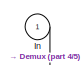
[diagram: VI-CarRealTime/Output_Bus/IOmap2bus - part 1/5, top left region]
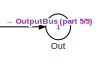
[diagram: VI-CarRealTime/Output_Bus/IOmap2bus - part 2/5, top right region]
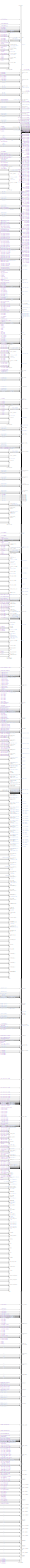
[diagram: VI-CarRealTime/Output_Bus/IOmap2bus - part 3/5, center side, full height]
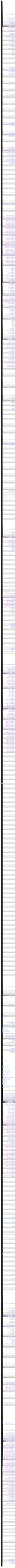
[diagram: VI-CarRealTime/Output_Bus/IOmap2bus - part 4/5, left side, full height]
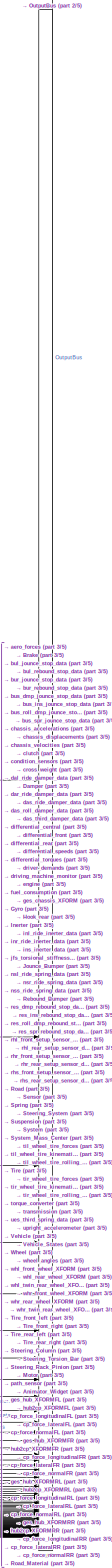
[diagram: VI-CarRealTime/Output_Bus/IOmap2bus - part 5/5, top right region]
BLOCK [SubSystem] VI-CarRealTime/Output_Bus/IOmap2bus
BLOCK [BusCreator] VI-CarRealTime/Output_Bus/IOmap2bus/ABS_Activity
  DisplayOption = bar
  InheritFromInputs = on
  Inputs = 4
BLOCK [BusCreator] VI-CarRealTime/Output_Bus/IOmap2bus/Actual_Tread_Speed
  DisplayOption = bar
  InheritFromInputs = on
  Inputs = 4
BLOCK [BusCreator] VI-CarRealTime/Output_Bus/IOmap2bus/Aggregate_Force_At_Wheel
  DisplayOption = bar
  InheritFromInputs = on
  Inputs = 4
BLOCK [BusCreator] VI-CarRealTime/Output_Bus/IOmap2bus/Alpha
  DisplayOption = bar
  InheritFromInputs = on
  Inputs = 4
BLOCK [BusCreator] VI-CarRealTime/Output_Bus/IOmap2bus/Animator_Widget
  DisplayOption = bar
  InheritFromInputs = on
  Inputs = 2
BLOCK [BusCreator] VI-CarRealTime/Output_Bus/IOmap2bus/Auxiliary_Roll_Force
  DisplayOption = bar
  InheritFromInputs = on
  Inputs = 4
BLOCK [BusCreator] VI-CarRealTime/Output_Bus/IOmap2bus/Auxiliary_Roll_Force_at_element
  DisplayOption = bar
  InheritFromInputs = on
  Inputs = 2
BLOCK [BusCreator] VI-CarRealTime/Output_Bus/IOmap2bus/Auxiliary_Roll_deformation_at_element
  DisplayOption = bar
  InheritFromInputs = on
  Inputs = 2
BLOCK [BusCreator] VI-CarRealTime/Output_Bus/IOmap2bus/Brake
  DisplayOption = bar
  InheritFromInputs = on
  Inputs = 8
BLOCK [BusCreator] VI-CarRealTime/Output_Bus/IOmap2bus/Brake_Moment
  DisplayOption = bar
  InheritFromInputs = on
  Inputs = 4
BLOCK [BusCreator] VI-CarRealTime/Output_Bus/IOmap2bus/Caster_Angle
  DisplayOption = bar
  InheritFromInputs = on
  Inputs = 2
BLOCK [BusCreator] VI-CarRealTime/Output_Bus/IOmap2bus/Chamber_Pressure
  DisplayOption = bar
  InheritFromInputs = on
  Inputs = 4
BLOCK [BusCreator] VI-CarRealTime/Output_Bus/IOmap2bus/Contact_Flag
  DisplayOption = bar
  InheritFromInputs = on
  Inputs = 4
BLOCK [BusCreator] VI-CarRealTime/Output_Bus/IOmap2bus/Contact_Patch_Global_X
  DisplayOption = bar
  InheritFromInputs = on
  Inputs = 4
BLOCK [BusCreator] VI-CarRealTime/Output_Bus/IOmap2bus/Contact_Patch_Global_X1
  DisplayOption = bar
  InheritFromInputs = on
  Inputs = 4
BLOCK [BusCreator] VI-CarRealTime/Output_Bus/IOmap2bus/Contact_Patch_Global_Y
  DisplayOption = bar
  InheritFromInputs = on
  Inputs = 4
BLOCK [BusCreator] VI-CarRealTime/Output_Bus/IOmap2bus/Contact_Patch_Global_Y1
  DisplayOption = bar
  InheritFromInputs = on
  Inputs = 4
BLOCK [BusCreator] VI-CarRealTime/Output_Bus/IOmap2bus/Contact_Patch_Global_Z
  DisplayOption = bar
  InheritFromInputs = on
  Inputs = 4
BLOCK [BusCreator] VI-CarRealTime/Output_Bus/IOmap2bus/Contact_Patch_Global_Z1
  DisplayOption = bar
  InheritFromInputs = on
  Inputs = 4
BLOCK [BusCreator] VI-CarRealTime/Output_Bus/IOmap2bus/Contact_Patch_Normal_X
  DisplayOption = bar
  InheritFromInputs = on
  Inputs = 4
BLOCK [BusCreator] VI-CarRealTime/Output_Bus/IOmap2bus/Contact_Patch_Normal_Y
  DisplayOption = bar
  InheritFromInputs = on
  Inputs = 4
BLOCK [BusCreator] VI-CarRealTime/Output_Bus/IOmap2bus/Contact_Patch_Normal_Z
  DisplayOption = bar
  InheritFromInputs = on
  Inputs = 4
BLOCK [BusCreator] VI-CarRealTime/Output_Bus/IOmap2bus/Damper
  DisplayOption = bar
  InheritFromInputs = on
  Inputs = 5
BLOCK [Demux] VI-CarRealTime/Output_Bus/IOmap2bus/Demux
  Outputs = 1377
BLOCK [BusCreator] VI-CarRealTime/Output_Bus/IOmap2bus/Drive_Moment
  DisplayOption = bar
  InheritFromInputs = on
  Inputs = 4
BLOCK [BusCreator] VI-CarRealTime/Output_Bus/IOmap2bus/Effective_Closing_Speed
  DisplayOption = bar
  InheritFromInputs = on
  Inputs = 4
BLOCK [BusCreator] VI-CarRealTime/Output_Bus/IOmap2bus/Effective_Penetration
  DisplayOption = bar
  InheritFromInputs = on
  Inputs = 4
BLOCK [BusCreator] VI-CarRealTime/Output_Bus/IOmap2bus/Effective_Rolling_Radius
  DisplayOption = bar
  InheritFromInputs = on
  Inputs = 4
BLOCK [BusCreator] VI-CarRealTime/Output_Bus/IOmap2bus/Equivalent_Tread_Speed
  DisplayOption = bar
  InheritFromInputs = on
  Inputs = 4
BLOCK [BusCreator] VI-CarRealTime/Output_Bus/IOmap2bus/Euler_Roll
  DisplayOption = bar
  InheritFromInputs = on
  Inputs = 4
BLOCK [BusCreator] VI-CarRealTime/Output_Bus/IOmap2bus/External_Friction_Scale_Factor
  DisplayOption = bar
  InheritFromInputs = on
  Inputs = 4
BLOCK [BusCreator] VI-CarRealTime/Output_Bus/IOmap2bus/Force_At_Bumper
  DisplayOption = bar
  InheritFromInputs = on
  Inputs = 4
BLOCK [BusCreator] VI-CarRealTime/Output_Bus/IOmap2bus/Force_At_Bumper1
  DisplayOption = bar
  InheritFromInputs = on
  Inputs = 4
BLOCK [BusCreator] VI-CarRealTime/Output_Bus/IOmap2bus/Force_At_Damper
  DisplayOption = bar
  InheritFromInputs = on
  Inputs = 4
BLOCK [BusCreator] VI-CarRealTime/Output_Bus/IOmap2bus/Force_At_Inerter
  DisplayOption = bar
  InheritFromInputs = on
  Inputs = 4
BLOCK [BusCreator] VI-CarRealTime/Output_Bus/IOmap2bus/Force_At_Spring
  DisplayOption = bar
  InheritFromInputs = on
  Inputs = 4
BLOCK [BusCreator] VI-CarRealTime/Output_Bus/IOmap2bus/Force_At_Wheel
  DisplayOption = bar
  InheritFromInputs = on
  Inputs = 4
BLOCK [BusCreator] VI-CarRealTime/Output_Bus/IOmap2bus/Force_At_Wheel1
  DisplayOption = bar
  InheritFromInputs = on
  Inputs = 4
BLOCK [BusCreator] VI-CarRealTime/Output_Bus/IOmap2bus/Force_At_Wheel2
  DisplayOption = bar
  InheritFromInputs = on
  Inputs = 4
BLOCK [BusCreator] VI-CarRealTime/Output_Bus/IOmap2bus/Force_At_Wheel3
  DisplayOption = bar
  InheritFromInputs = on
  Inputs = 4
BLOCK [BusCreator] VI-CarRealTime/Output_Bus/IOmap2bus/Force_At_Wheel4
  DisplayOption = bar
  InheritFromInputs = on
  Inputs = 4
BLOCK [BusCreator] VI-CarRealTime/Output_Bus/IOmap2bus/Force_Aux_At_Wheel
  DisplayOption = bar
  InheritFromInputs = on
  Inputs = 4
BLOCK [BusCreator] VI-CarRealTime/Output_Bus/IOmap2bus/Global_Omega_X
  DisplayOption = bar
  InheritFromInputs = on
  Inputs = 4
BLOCK [BusCreator] VI-CarRealTime/Output_Bus/IOmap2bus/Global_Omega_Y
  DisplayOption = bar
  InheritFromInputs = on
  Inputs = 4
BLOCK [BusCreator] VI-CarRealTime/Output_Bus/IOmap2bus/Global_Omega_Z
  DisplayOption = bar
  InheritFromInputs = on
  Inputs = 4
BLOCK [BusCreator] VI-CarRealTime/Output_Bus/IOmap2bus/Global_Vx
  DisplayOption = bar
  InheritFromInputs = on
  Inputs = 4
BLOCK [BusCreator] VI-CarRealTime/Output_Bus/IOmap2bus/Global_Vy
  DisplayOption = bar
  InheritFromInputs = on
  Inputs = 4
BLOCK [BusCreator] VI-CarRealTime/Output_Bus/IOmap2bus/Global_Vz
  DisplayOption = bar
  InheritFromInputs = on
  Inputs = 4
BLOCK [BusCreator] VI-CarRealTime/Output_Bus/IOmap2bus/Global_X
  DisplayOption = bar
  InheritFromInputs = on
  Inputs = 4
BLOCK [BusCreator] VI-CarRealTime/Output_Bus/IOmap2bus/Global_Y
  DisplayOption = bar
  InheritFromInputs = on
  Inputs = 4
BLOCK [BusCreator] VI-CarRealTime/Output_Bus/IOmap2bus/Global_Z
  DisplayOption = bar
  InheritFromInputs = on
  Inputs = 4
BLOCK [BusCreator] VI-CarRealTime/Output_Bus/IOmap2bus/Ground_Surface_Contact_Patch_Vx
  DisplayOption = bar
  InheritFromInputs = on
  Inputs = 4
BLOCK [BusCreator] VI-CarRealTime/Output_Bus/IOmap2bus/Ground_Surface_Contact_Patch_Vy
  DisplayOption = bar
  InheritFromInputs = on
  Inputs = 4
BLOCK [BusCreator] VI-CarRealTime/Output_Bus/IOmap2bus/Ground_Surface_Force_X
  DisplayOption = bar
  InheritFromInputs = on
  Inputs = 4
BLOCK [BusCreator] VI-CarRealTime/Output_Bus/IOmap2bus/Ground_Surface_Force_Y
  DisplayOption = bar
  InheritFromInputs = on
  Inputs = 4
BLOCK [BusCreator] VI-CarRealTime/Output_Bus/IOmap2bus/Ground_Surface_Force_Z
  DisplayOption = bar
  InheritFromInputs = on
  Inputs = 4
BLOCK [BusCreator] VI-CarRealTime/Output_Bus/IOmap2bus/Ground_Surface_Gyroscopic_Moment
  DisplayOption = bar
  InheritFromInputs = on
  Inputs = 4
BLOCK [BusCreator] VI-CarRealTime/Output_Bus/IOmap2bus/Ground_Surface_Kappa_Fy
  DisplayOption = bar
  InheritFromInputs = on
  Inputs = 4
BLOCK [BusCreator] VI-CarRealTime/Output_Bus/IOmap2bus/Ground_Surface_Moment_X
  DisplayOption = bar
  InheritFromInputs = on
  Inputs = 4
BLOCK [BusCreator] VI-CarRealTime/Output_Bus/IOmap2bus/Ground_Surface_Moment_Y
  DisplayOption = bar
  InheritFromInputs = on
  Inputs = 4
BLOCK [BusCreator] VI-CarRealTime/Output_Bus/IOmap2bus/Ground_Surface_Moment_Z
  DisplayOption = bar
  InheritFromInputs = on
  Inputs = 4
BLOCK [BusCreator] VI-CarRealTime/Output_Bus/IOmap2bus/Ground_Surface_Peak_Friction_X
  DisplayOption = bar
  InheritFromInputs = on
  Inputs = 4
BLOCK [BusCreator] VI-CarRealTime/Output_Bus/IOmap2bus/Ground_Surface_Peak_Friction_Y
  DisplayOption = bar
  InheritFromInputs = on
  Inputs = 4
BLOCK [BusCreator] VI-CarRealTime/Output_Bus/IOmap2bus/Ground_Surface_Residual_Torque
  DisplayOption = bar
  InheritFromInputs = on
  Inputs = 4
BLOCK [BusCreator] VI-CarRealTime/Output_Bus/IOmap2bus/Ground_Surface_Wheel_Center_Vx
  DisplayOption = bar
  InheritFromInputs = on
  Inputs = 4
BLOCK [BusCreator] VI-CarRealTime/Output_Bus/IOmap2bus/Gyro
  DisplayOption = bar
  InheritFromInputs = on
  Inputs = 10
BLOCK [BusCreator] VI-CarRealTime/Output_Bus/IOmap2bus/Hook_rear
  DisplayOption = bar
  InheritFromInputs = on
  Inputs = 18
BLOCK [BusCreator] VI-CarRealTime/Output_Bus/IOmap2bus/Hub_Carrier_Force_Global_X
  DisplayOption = bar
  InheritFromInputs = on
  Inputs = 4
BLOCK [BusCreator] VI-CarRealTime/Output_Bus/IOmap2bus/Hub_Carrier_Force_Global_Y
  DisplayOption = bar
  InheritFromInputs = on
  Inputs = 4
BLOCK [BusCreator] VI-CarRealTime/Output_Bus/IOmap2bus/Hub_Carrier_Force_Global_Z
  DisplayOption = bar
  InheritFromInputs = on
  Inputs = 4
BLOCK [BusCreator] VI-CarRealTime/Output_Bus/IOmap2bus/Hub_Carrier_Force_Local_X
  DisplayOption = bar
  InheritFromInputs = on
  Inputs = 4
BLOCK [BusCreator] VI-CarRealTime/Output_Bus/IOmap2bus/Hub_Carrier_Force_Local_Y
  DisplayOption = bar
  InheritFromInputs = on
  Inputs = 4
BLOCK [BusCreator] VI-CarRealTime/Output_Bus/IOmap2bus/Hub_Carrier_Force_Local_Z
  DisplayOption = bar
  InheritFromInputs = on
  Inputs = 4
BLOCK [BusCreator] VI-CarRealTime/Output_Bus/IOmap2bus/Hub_Carrier_Moment_Global_X
  DisplayOption = bar
  InheritFromInputs = on
  Inputs = 4
BLOCK [BusCreator] VI-CarRealTime/Output_Bus/IOmap2bus/Hub_Carrier_Moment_Global_Y
  DisplayOption = bar
  InheritFromInputs = on
  Inputs = 4
BLOCK [BusCreator] VI-CarRealTime/Output_Bus/IOmap2bus/Hub_Carrier_Moment_Global_Z
  DisplayOption = bar
  InheritFromInputs = on
  Inputs = 4
BLOCK [BusCreator] VI-CarRealTime/Output_Bus/IOmap2bus/Hub_Carrier_Moment_Local_X
  DisplayOption = bar
  InheritFromInputs = on
  Inputs = 4
BLOCK [BusCreator] VI-CarRealTime/Output_Bus/IOmap2bus/Hub_Carrier_Moment_Local_Y
  DisplayOption = bar
  InheritFromInputs = on
  Inputs = 4
BLOCK [BusCreator] VI-CarRealTime/Output_Bus/IOmap2bus/Hub_Carrier_Moment_Local_Z
  DisplayOption = bar
  InheritFromInputs = on
  Inputs = 4
BLOCK [BusCreator] VI-CarRealTime/Output_Bus/IOmap2bus/Hub_Carrier_Omega_X
  DisplayOption = bar
  InheritFromInputs = on
  Inputs = 4
BLOCK [BusCreator] VI-CarRealTime/Output_Bus/IOmap2bus/Hub_Carrier_Omega_Y
  DisplayOption = bar
  InheritFromInputs = on
  Inputs = 4
BLOCK [BusCreator] VI-CarRealTime/Output_Bus/IOmap2bus/Hub_Carrier_Omega_Z
  DisplayOption = bar
  InheritFromInputs = on
  Inputs = 4
BLOCK [BusCreator] VI-CarRealTime/Output_Bus/IOmap2bus/Hub_Carrier_Vx
  DisplayOption = bar
  InheritFromInputs = on
  Inputs = 4
BLOCK [BusCreator] VI-CarRealTime/Output_Bus/IOmap2bus/Hub_Carrier_Vy
  DisplayOption = bar
  InheritFromInputs = on
  Inputs = 4
BLOCK [BusCreator] VI-CarRealTime/Output_Bus/IOmap2bus/Hub_Carrier_Vz
  DisplayOption = bar
  InheritFromInputs = on
  Inputs = 4
BLOCK [Inport] VI-CarRealTime/Output_Bus/IOmap2bus/In
BLOCK [BusCreator] VI-CarRealTime/Output_Bus/IOmap2bus/Inclination
  DisplayOption = bar
  InheritFromInputs = on
  Inputs = 4
BLOCK [BusCreator] VI-CarRealTime/Output_Bus/IOmap2bus/Inerter
  DisplayOption = bar
  InheritFromInputs = on
  Inputs = 5
BLOCK [BusCreator] VI-CarRealTime/Output_Bus/IOmap2bus/Inst_Stiff_Deflection
  DisplayOption = bar
  InheritFromInputs = on
  Inputs = 4
BLOCK [BusCreator] VI-CarRealTime/Output_Bus/IOmap2bus/Inst_Stiff_Force
  DisplayOption = bar
  InheritFromInputs = on
  Inputs = 4
BLOCK [BusCreator] VI-CarRealTime/Output_Bus/IOmap2bus/Jounce
  DisplayOption = bar
  InheritFromInputs = on
  Inputs = 4
BLOCK [BusCreator] VI-CarRealTime/Output_Bus/IOmap2bus/Jounce1
  DisplayOption = bar
  InheritFromInputs = on
  Inputs = 4
BLOCK [BusCreator] VI-CarRealTime/Output_Bus/IOmap2bus/Jounce2
  DisplayOption = bar
  InheritFromInputs = on
  Inputs = 4
BLOCK [BusCreator] VI-CarRealTime/Output_Bus/IOmap2bus/Jounce3
  DisplayOption = bar
  InheritFromInputs = on
  Inputs = 4
BLOCK [BusCreator] VI-CarRealTime/Output_Bus/IOmap2bus/Jounce4
  DisplayOption = bar
  InheritFromInputs = on
  Inputs = 4
BLOCK [BusCreator] VI-CarRealTime/Output_Bus/IOmap2bus/Jounce5
  DisplayOption = bar
  InheritFromInputs = on
  Inputs = 4
BLOCK [BusCreator] VI-CarRealTime/Output_Bus/IOmap2bus/Jounce_Acceleration
  DisplayOption = bar
  InheritFromInputs = on
  Inputs = 4
BLOCK [BusCreator] VI-CarRealTime/Output_Bus/IOmap2bus/Jounce_Acceleration1
  DisplayOption = bar
  InheritFromInputs = on
  Inputs = 4
BLOCK [BusCreator] VI-CarRealTime/Output_Bus/IOmap2bus/Jounce_Acceleration2
  DisplayOption = bar
  InheritFromInputs = on
  Inputs = 4
BLOCK [BusCreator] VI-CarRealTime/Output_Bus/IOmap2bus/Jounce_Acceleration3
  DisplayOption = bar
  InheritFromInputs = on
  Inputs = 4
BLOCK [BusCreator] VI-CarRealTime/Output_Bus/IOmap2bus/Jounce_Bumper
  DisplayOption = bar
  InheritFromInputs = on
  Inputs = 4
BLOCK [BusCreator] VI-CarRealTime/Output_Bus/IOmap2bus/Jounce_Rate
  DisplayOption = bar
  InheritFromInputs = on
  Inputs = 4
BLOCK [BusCreator] VI-CarRealTime/Output_Bus/IOmap2bus/Jounce_Rate1
  DisplayOption = bar
  InheritFromInputs = on
  Inputs = 4
BLOCK [BusCreator] VI-CarRealTime/Output_Bus/IOmap2bus/Jounce_Rate2
  DisplayOption = bar
  InheritFromInputs = on
  Inputs = 4
BLOCK [BusCreator] VI-CarRealTime/Output_Bus/IOmap2bus/Jounce_Rate3
  DisplayOption = bar
  InheritFromInputs = on
  Inputs = 4
BLOCK [BusCreator] VI-CarRealTime/Output_Bus/IOmap2bus/Jounce_Rate4
  DisplayOption = bar
  InheritFromInputs = on
  Inputs = 4
BLOCK [BusCreator] VI-CarRealTime/Output_Bus/IOmap2bus/Jounce_Rate5
  DisplayOption = bar
  InheritFromInputs = on
  Inputs = 4
BLOCK [BusCreator] VI-CarRealTime/Output_Bus/IOmap2bus/Kingpin_Moment
  DisplayOption = bar
  InheritFromInputs = on
  Inputs = 1
BLOCK [BusCreator] VI-CarRealTime/Output_Bus/IOmap2bus/Kingpin_Moment1
  DisplayOption = bar
  InheritFromInputs = on
  Inputs = 2
BLOCK [BusCreator] VI-CarRealTime/Output_Bus/IOmap2bus/Lateral_Relaxation_Length
  DisplayOption = bar
  InheritFromInputs = on
  Inputs = 4
BLOCK [BusCreator] VI-CarRealTime/Output_Bus/IOmap2bus/Lateral_Slip_With_Lag
  DisplayOption = bar
  InheritFromInputs = on
  Inputs = 4
BLOCK [BusCreator] VI-CarRealTime/Output_Bus/IOmap2bus/Lateral_Slip_Without_Lag
  DisplayOption = bar
  InheritFromInputs = on
  Inputs = 4
BLOCK [BusCreator] VI-CarRealTime/Output_Bus/IOmap2bus/Loaded_Radius
  DisplayOption = bar
  InheritFromInputs = on
  Inputs = 4
BLOCK [BusCreator] VI-CarRealTime/Output_Bus/IOmap2bus/Locked_Damper_Moment
  DisplayOption = bar
  InheritFromInputs = on
  Inputs = 4
BLOCK [BusCreator] VI-CarRealTime/Output_Bus/IOmap2bus/Locked_Moment
  DisplayOption = bar
  InheritFromInputs = on
  Inputs = 4
BLOCK [BusCreator] VI-CarRealTime/Output_Bus/IOmap2bus/Locked_Spring_Moment
  DisplayOption = bar
  InheritFromInputs = on
  Inputs = 4
BLOCK [BusCreator] VI-CarRealTime/Output_Bus/IOmap2bus/Locked_Switch
  DisplayOption = bar
  InheritFromInputs = on
  Inputs = 4
BLOCK [BusCreator] VI-CarRealTime/Output_Bus/IOmap2bus/Lockup_Rotation
  DisplayOption = bar
  InheritFromInputs = on
  Inputs = 4
BLOCK [BusCreator] VI-CarRealTime/Output_Bus/IOmap2bus/Longitudinal_Relaxation_Length
  DisplayOption = bar
  InheritFromInputs = on
  Inputs = 4
BLOCK [BusCreator] VI-CarRealTime/Output_Bus/IOmap2bus/Longitudinal_Slip_With_Lag
  DisplayOption = bar
  InheritFromInputs = on
  Inputs = 4
BLOCK [BusCreator] VI-CarRealTime/Output_Bus/IOmap2bus/Longitudinal_Slip_Without_Lag
  DisplayOption = bar
  InheritFromInputs = on
  Inputs = 4
BLOCK [BusCreator] VI-CarRealTime/Output_Bus/IOmap2bus/Moment_Arm_Of_Fx
  DisplayOption = bar
  InheritFromInputs = on
  Inputs = 4
BLOCK [BusCreator] VI-CarRealTime/Output_Bus/IOmap2bus/Motor
  DisplayOption = bar
  InheritFromInputs = on
  Inputs = 5
BLOCK [BusCreator] VI-CarRealTime/Output_Bus/IOmap2bus/Off_Road_Flag
  DisplayOption = bar
  InheritFromInputs = on
  Inputs = 4
BLOCK [BusCreator] VI-CarRealTime/Output_Bus/IOmap2bus/Omega
  DisplayOption = bar
  InheritFromInputs = on
  Inputs = 4
BLOCK [Outport] VI-CarRealTime/Output_Bus/IOmap2bus/Out
BLOCK [BusCreator] VI-CarRealTime/Output_Bus/IOmap2bus/OutputBus
  DisplayOption = bar
  InheritFromInputs = on
  Inputs = 113
BLOCK [BusCreator] VI-CarRealTime/Output_Bus/IOmap2bus/PID_CW_At_Spring
  DisplayOption = bar
  InheritFromInputs = on
  Inputs = 4
BLOCK [BusCreator] VI-CarRealTime/Output_Bus/IOmap2bus/PID_PH_At_Spring
  DisplayOption = bar
  InheritFromInputs = on
  Inputs = 4
BLOCK [BusCreator] VI-CarRealTime/Output_Bus/IOmap2bus/PID_RH_At_Spring
  DisplayOption = bar
  InheritFromInputs = on
  Inputs = 4
BLOCK [BusCreator] VI-CarRealTime/Output_Bus/IOmap2bus/Phi
  DisplayOption = bar
  InheritFromInputs = on
  Inputs = 4
BLOCK [BusCreator] VI-CarRealTime/Output_Bus/IOmap2bus/Pitch
  DisplayOption = bar
  InheritFromInputs = on
  Inputs = 4
BLOCK [BusCreator] VI-CarRealTime/Output_Bus/IOmap2bus/Pneumatic_Trail
  DisplayOption = bar
  InheritFromInputs = on
  Inputs = 4
BLOCK [BusCreator] VI-CarRealTime/Output_Bus/IOmap2bus/Pressure
  DisplayOption = bar
  InheritFromInputs = on
  Inputs = 4
BLOCK [BusCreator] VI-CarRealTime/Output_Bus/IOmap2bus/Psi
  DisplayOption = bar
  InheritFromInputs = on
  Inputs = 4
BLOCK [BusCreator] VI-CarRealTime/Output_Bus/IOmap2bus/Rebound_Bumper
  DisplayOption = bar
  InheritFromInputs = on
  Inputs = 4
BLOCK [BusCreator] VI-CarRealTime/Output_Bus/IOmap2bus/Road
  DisplayOption = bar
  InheritFromInputs = on
  Inputs = 5
BLOCK [BusCreator] VI-CarRealTime/Output_Bus/IOmap2bus/Road_Material
  DisplayOption = bar
  InheritFromInputs = on
  Inputs = 4
BLOCK [BusCreator] VI-CarRealTime/Output_Bus/IOmap2bus/Road_friction
  DisplayOption = bar
  InheritFromInputs = on
  Inputs = 4
BLOCK [BusCreator] VI-CarRealTime/Output_Bus/IOmap2bus/Roll
  DisplayOption = bar
  InheritFromInputs = on
  Inputs = 2
BLOCK [BusCreator] VI-CarRealTime/Output_Bus/IOmap2bus/Roll_Center_Height
  DisplayOption = bar
  InheritFromInputs = on
  Inputs = 2
BLOCK [BusCreator] VI-CarRealTime/Output_Bus/IOmap2bus/Roll_Center_Lateral_Displacement
  DisplayOption = bar
  InheritFromInputs = on
  Inputs = 2
BLOCK [BusCreator] VI-CarRealTime/Output_Bus/IOmap2bus/Rotation
  DisplayOption = bar
  InheritFromInputs = on
  Inputs = 4
BLOCK [BusCreator] VI-CarRealTime/Output_Bus/IOmap2bus/Sensor
  DisplayOption = bar
  InheritFromInputs = on
  Inputs = 16
BLOCK [BusCreator] VI-CarRealTime/Output_Bus/IOmap2bus/Side_View_Angle
  DisplayOption = bar
  InheritFromInputs = on
  Inputs = 4
BLOCK [BusCreator] VI-CarRealTime/Output_Bus/IOmap2bus/Spindle_Steer
  DisplayOption = bar
  InheritFromInputs = on
  Inputs = 4
BLOCK [BusCreator] VI-CarRealTime/Output_Bus/IOmap2bus/Spring
  DisplayOption = bar
  InheritFromInputs = on
  Inputs = 10
BLOCK [BusCreator] VI-CarRealTime/Output_Bus/IOmap2bus/Steering_Column
  DisplayOption = bar
  InheritFromInputs = on
  Inputs = 32
BLOCK [BusCreator] VI-CarRealTime/Output_Bus/IOmap2bus/Steering_Instant_Axis_Rotation
  DisplayOption = bar
  InheritFromInputs = on
  Inputs = 2
BLOCK [BusCreator] VI-CarRealTime/Output_Bus/IOmap2bus/Steering_Rack_Pinion
  DisplayOption = bar
  InheritFromInputs = on
  Inputs = 11
BLOCK [BusCreator] VI-CarRealTime/Output_Bus/IOmap2bus/Steering_System
  DisplayOption = bar
  InheritFromInputs = on
  Inputs = 13
BLOCK [BusCreator] VI-CarRealTime/Output_Bus/IOmap2bus/Steering_Torsion_Bar
  DisplayOption = bar
  InheritFromInputs = on
  Inputs = 5
BLOCK [BusCreator] VI-CarRealTime/Output_Bus/IOmap2bus/Suspension
  DisplayOption = bar
  InheritFromInputs = on
  Inputs = 16
BLOCK [BusCreator] VI-CarRealTime/Output_Bus/IOmap2bus/System
  DisplayOption = bar
  InheritFromInputs = on
  Inputs = 18
BLOCK [BusCreator] VI-CarRealTime/Output_Bus/IOmap2bus/System_Mass_Center
  DisplayOption = bar
  InheritFromInputs = on
  Inputs = 13
BLOCK [BusCreator] VI-CarRealTime/Output_Bus/IOmap2bus/Temperature_1
  DisplayOption = bar
  InheritFromInputs = on
  Inputs = 4
BLOCK [BusCreator] VI-CarRealTime/Output_Bus/IOmap2bus/Temperature_2
  DisplayOption = bar
  InheritFromInputs = on
  Inputs = 4
BLOCK [BusCreator] VI-CarRealTime/Output_Bus/IOmap2bus/Temperature_3
  DisplayOption = bar
  InheritFromInputs = on
  Inputs = 4
BLOCK [BusCreator] VI-CarRealTime/Output_Bus/IOmap2bus/Temperature_4
  DisplayOption = bar
  InheritFromInputs = on
  Inputs = 4
BLOCK [BusCreator] VI-CarRealTime/Output_Bus/IOmap2bus/Theta
  DisplayOption = bar
  InheritFromInputs = on
  Inputs = 4
BLOCK [BusCreator] VI-CarRealTime/Output_Bus/IOmap2bus/TieRod_Force_Left
  DisplayOption = bar
  InheritFromInputs = on
  Inputs = 3
BLOCK [BusCreator] VI-CarRealTime/Output_Bus/IOmap2bus/TieRod_Force_Right
  DisplayOption = bar
  InheritFromInputs = on
  Inputs = 3
BLOCK [BusCreator] VI-CarRealTime/Output_Bus/IOmap2bus/Tire
  DisplayOption = bar
  InheritFromInputs = on
  Inputs = 54
BLOCK [BusCreator] VI-CarRealTime/Output_Bus/IOmap2bus/Tire_front_left
  DisplayOption = bar
  InheritFromInputs = on
  Inputs = 6
BLOCK [BusCreator] VI-CarRealTime/Output_Bus/IOmap2bus/Tire_front_right
  DisplayOption = bar
  InheritFromInputs = on
  Inputs = 6
BLOCK [BusCreator] VI-CarRealTime/Output_Bus/IOmap2bus/Tire_rear_left
  DisplayOption = bar
  InheritFromInputs = on
  Inputs = 6
BLOCK [BusCreator] VI-CarRealTime/Output_Bus/IOmap2bus/Tire_rear_right
  DisplayOption = bar
  InheritFromInputs = on
  Inputs = 6
BLOCK [BusCreator] VI-CarRealTime/Output_Bus/IOmap2bus/User_Input_Contact_Patch_Global_Z_Perturbation
  DisplayOption = bar
  InheritFromInputs = on
  Inputs = 4
BLOCK [BusCreator] VI-CarRealTime/Output_Bus/IOmap2bus/Vehicle
  DisplayOption = bar
  InheritFromInputs = on
  Inputs = 46
BLOCK [BusCreator] VI-CarRealTime/Output_Bus/IOmap2bus/Vehicle_States
  DisplayOption = bar
  InheritFromInputs = on
  Inputs = 20
BLOCK [BusCreator] VI-CarRealTime/Output_Bus/IOmap2bus/Wear
  DisplayOption = bar
  InheritFromInputs = on
  Inputs = 4
BLOCK [BusCreator] VI-CarRealTime/Output_Bus/IOmap2bus/Wheel
  DisplayOption = bar
  InheritFromInputs = on
  Inputs = 37
BLOCK [BusCreator] VI-CarRealTime/Output_Bus/IOmap2bus/Yaw
  DisplayOption = bar
  InheritFromInputs = on
  Inputs = 4
BLOCK [BusCreator] VI-CarRealTime/Output_Bus/IOmap2bus/aero_forces
  DisplayOption = bar
  InheritFromInputs = on
  Inputs = 24
BLOCK [BusCreator] VI-CarRealTime/Output_Bus/IOmap2bus/base_acceleration
  DisplayOption = bar
  InheritFromInputs = on
  Inputs = 4
BLOCK [BusCreator] VI-CarRealTime/Output_Bus/IOmap2bus/base_deformation
  DisplayOption = bar
  InheritFromInputs = on
  Inputs = 4
BLOCK [BusCreator] VI-CarRealTime/Output_Bus/IOmap2bus/base_velocity
  DisplayOption = bar
  InheritFromInputs = on
  Inputs = 4
BLOCK [BusCreator] VI-CarRealTime/Output_Bus/IOmap2bus/bul_jounce_stop_data
  DisplayOption = bar
  InheritFromInputs = on
  Inputs = 6
BLOCK [BusCreator] VI-CarRealTime/Output_Bus/IOmap2bus/bul_rebound_stop_data
  DisplayOption = bar
  InheritFromInputs = on
  Inputs = 6
BLOCK [BusCreator] VI-CarRealTime/Output_Bus/IOmap2bus/bur_jounce_stop_data
  DisplayOption = bar
  InheritFromInputs = on
  Inputs = 6
BLOCK [BusCreator] VI-CarRealTime/Output_Bus/IOmap2bus/bur_rebound_stop_data
  DisplayOption = bar
  InheritFromInputs = on
  Inputs = 6
BLOCK [BusCreator] VI-CarRealTime/Output_Bus/IOmap2bus/bus_dmp_jounce_stop_data
  DisplayOption = bar
  InheritFromInputs = on
  Inputs = 6
BLOCK [BusCreator] VI-CarRealTime/Output_Bus/IOmap2bus/bus_ins_jounce_stop_data
  DisplayOption = bar
  InheritFromInputs = on
  Inputs = 6
BLOCK [BusCreator] VI-CarRealTime/Output_Bus/IOmap2bus/bus_roll_dmp_jounce_stop_data
  DisplayOption = bar
  InheritFromInputs = on
  Inputs = 6
BLOCK [BusCreator] VI-CarRealTime/Output_Bus/IOmap2bus/bus_spr_jounce_stop_data
  DisplayOption = bar
  InheritFromInputs = on
  Inputs = 6
BLOCK [BusCreator] VI-CarRealTime/Output_Bus/IOmap2bus/chassis_accelerations
  DisplayOption = bar
  InheritFromInputs = on
  Inputs = 6
BLOCK [BusCreator] VI-CarRealTime/Output_Bus/IOmap2bus/chassis_displacements
  DisplayOption = bar
  InheritFromInputs = on
  Inputs = 9
BLOCK [BusCreator] VI-CarRealTime/Output_Bus/IOmap2bus/chassis_velocities
  DisplayOption = bar
  InheritFromInputs = on
  Inputs = 6
BLOCK [BusCreator] VI-CarRealTime/Output_Bus/IOmap2bus/clutch
  DisplayOption = bar
  InheritFromInputs = on
  Inputs = 8
BLOCK [BusCreator] VI-CarRealTime/Output_Bus/IOmap2bus/condition_sensors
  DisplayOption = bar
  InheritFromInputs = on
  Inputs = 1
BLOCK [BusCreator] VI-CarRealTime/Output_Bus/IOmap2bus/cp_force_lateralFL
  DisplayOption = bar
  InheritFromInputs = on
  Inputs = 3
BLOCK [BusCreator] VI-CarRealTime/Output_Bus/IOmap2bus/cp_force_lateralFR
  DisplayOption = bar
  InheritFromInputs = on
  Inputs = 3
BLOCK [BusCreator] VI-CarRealTime/Output_Bus/IOmap2bus/cp_force_lateralRL
  DisplayOption = bar
  InheritFromInputs = on
  Inputs = 3
BLOCK [BusCreator] VI-CarRealTime/Output_Bus/IOmap2bus/cp_force_lateralRR
  DisplayOption = bar
  InheritFromInputs = on
  Inputs = 3
BLOCK [BusCreator] VI-CarRealTime/Output_Bus/IOmap2bus/cp_force_longitudinalFL
  DisplayOption = bar
  InheritFromInputs = on
  Inputs = 3
BLOCK [BusCreator] VI-CarRealTime/Output_Bus/IOmap2bus/cp_force_longitudinalFR
  DisplayOption = bar
  InheritFromInputs = on
  Inputs = 3
BLOCK [BusCreator] VI-CarRealTime/Output_Bus/IOmap2bus/cp_force_longitudinalRL
  DisplayOption = bar
  InheritFromInputs = on
  Inputs = 3
BLOCK [BusCreator] VI-CarRealTime/Output_Bus/IOmap2bus/cp_force_longitudinalRR
  DisplayOption = bar
  InheritFromInputs = on
  Inputs = 3
BLOCK [BusCreator] VI-CarRealTime/Output_Bus/IOmap2bus/cp_force_normalFL
  DisplayOption = bar
  InheritFromInputs = on
  Inputs = 3
BLOCK [BusCreator] VI-CarRealTime/Output_Bus/IOmap2bus/cp_force_normalFR
  DisplayOption = bar
  InheritFromInputs = on
  Inputs = 3
BLOCK [BusCreator] VI-CarRealTime/Output_Bus/IOmap2bus/cp_force_normalRL
  DisplayOption = bar
  InheritFromInputs = on
  Inputs = 3
BLOCK [BusCreator] VI-CarRealTime/Output_Bus/IOmap2bus/cp_force_normalRR
  DisplayOption = bar
  InheritFromInputs = on
  Inputs = 3
BLOCK [BusCreator] VI-CarRealTime/Output_Bus/IOmap2bus/cross_weight
  DisplayOption = bar
  InheritFromInputs = on
  Inputs = 4
BLOCK [BusCreator] VI-CarRealTime/Output_Bus/IOmap2bus/dal_ride_damper_data
  DisplayOption = bar
  InheritFromInputs = on
  Inputs = 4
BLOCK [BusCreator] VI-CarRealTime/Output_Bus/IOmap2bus/dar_ride_damper_data
  DisplayOption = bar
  InheritFromInputs = on
  Inputs = 4
BLOCK [BusCreator] VI-CarRealTime/Output_Bus/IOmap2bus/das_ride_damper_data
  DisplayOption = bar
  InheritFromInputs = on
  Inputs = 6
BLOCK [BusCreator] VI-CarRealTime/Output_Bus/IOmap2bus/das_roll_damper_data
  DisplayOption = bar
  InheritFromInputs = on
  Inputs = 8
BLOCK [BusCreator] VI-CarRealTime/Output_Bus/IOmap2bus/das_third_damper_data
  DisplayOption = bar
  InheritFromInputs = on
  Inputs = 6
BLOCK [BusCreator] VI-CarRealTime/Output_Bus/IOmap2bus/differential_central
  DisplayOption = bar
  InheritFromInputs = on
  Inputs = 7
BLOCK [BusCreator] VI-CarRealTime/Output_Bus/IOmap2bus/differential_front
  DisplayOption = bar
  InheritFromInputs = on
  Inputs = 7
BLOCK [BusCreator] VI-CarRealTime/Output_Bus/IOmap2bus/differential_rear
  DisplayOption = bar
  InheritFromInputs = on
  Inputs = 7
BLOCK [BusCreator] VI-CarRealTime/Output_Bus/IOmap2bus/differential_speeds
  DisplayOption = bar
  InheritFromInputs = on
  Inputs = 9
BLOCK [BusCreator] VI-CarRealTime/Output_Bus/IOmap2bus/differential_torques
  DisplayOption = bar
  InheritFromInputs = on
  Inputs = 9
BLOCK [BusCreator] VI-CarRealTime/Output_Bus/IOmap2bus/driver_demands
  DisplayOption = bar
  InheritFromInputs = on
  Inputs = 9
BLOCK [BusCreator] VI-CarRealTime/Output_Bus/IOmap2bus/driving_machine_monitor
  DisplayOption = bar
  InheritFromInputs = on
  Inputs = 15
BLOCK [BusCreator] VI-CarRealTime/Output_Bus/IOmap2bus/engine
  DisplayOption = bar
  InheritFromInputs = on
  Inputs = 11
BLOCK [BusCreator] VI-CarRealTime/Output_Bus/IOmap2bus/fuel_consumption
  DisplayOption = bar
  InheritFromInputs = on
  Inputs = 5
BLOCK [BusCreator] VI-CarRealTime/Output_Bus/IOmap2bus/ges_chassis_XFORM
  DisplayOption = bar
  InheritFromInputs = on
  Inputs = 6
BLOCK [BusCreator] VI-CarRealTime/Output_Bus/IOmap2bus/ges_hub_XFORMFL
  DisplayOption = bar
  InheritFromInputs = on
  Inputs = 6
BLOCK [BusCreator] VI-CarRealTime/Output_Bus/IOmap2bus/ges_hub_XFORMFR
  DisplayOption = bar
  InheritFromInputs = on
  Inputs = 6
BLOCK [BusCreator] VI-CarRealTime/Output_Bus/IOmap2bus/ges_hub_XFORMRL
  DisplayOption = bar
  InheritFromInputs = on
  Inputs = 6
BLOCK [BusCreator] VI-CarRealTime/Output_Bus/IOmap2bus/ges_hub_XFORMRR
  DisplayOption = bar
  InheritFromInputs = on
  Inputs = 6
BLOCK [BusCreator] VI-CarRealTime/Output_Bus/IOmap2bus/hub2cp_XFORMFL
  DisplayOption = bar
  InheritFromInputs = on
  Inputs = 3
BLOCK [BusCreator] VI-CarRealTime/Output_Bus/IOmap2bus/hub2cp_XFORMFR
  DisplayOption = bar
  InheritFromInputs = on
  Inputs = 3
BLOCK [BusCreator] VI-CarRealTime/Output_Bus/IOmap2bus/hub2cp_XFORMRL
  DisplayOption = bar
  InheritFromInputs = on
  Inputs = 3
BLOCK [BusCreator] VI-CarRealTime/Output_Bus/IOmap2bus/hub2cp_XFORMRR
  DisplayOption = bar
  InheritFromInputs = on
  Inputs = 3
BLOCK [BusCreator] VI-CarRealTime/Output_Bus/IOmap2bus/hub_center_accx
  DisplayOption = bar
  InheritFromInputs = on
  Inputs = 4
BLOCK [BusCreator] VI-CarRealTime/Output_Bus/IOmap2bus/hub_center_accy
  DisplayOption = bar
  InheritFromInputs = on
  Inputs = 4
BLOCK [BusCreator] VI-CarRealTime/Output_Bus/IOmap2bus/hub_center_accz
  DisplayOption = bar
  InheritFromInputs = on
  Inputs = 4
BLOCK [BusCreator] VI-CarRealTime/Output_Bus/IOmap2bus/inl_ride_inerter_data
  DisplayOption = bar
  InheritFromInputs = on
  Inputs = 6
BLOCK [BusCreator] VI-CarRealTime/Output_Bus/IOmap2bus/inr_ride_inerter_data
  DisplayOption = bar
  InheritFromInputs = on
  Inputs = 6
BLOCK [BusCreator] VI-CarRealTime/Output_Bus/IOmap2bus/ins_inerter_data
  DisplayOption = bar
  InheritFromInputs = on
  Inputs = 10
BLOCK [BusCreator] VI-CarRealTime/Output_Bus/IOmap2bus/jfs_torsional_stiffness_data
  DisplayOption = bar
  InheritFromInputs = on
  Inputs = 12
BLOCK [BusCreator] VI-CarRealTime/Output_Bus/IOmap2bus/nsl_ride_spring_data
  DisplayOption = bar
  InheritFromInputs = on
  Inputs = 6
BLOCK [BusCreator] VI-CarRealTime/Output_Bus/IOmap2bus/nsr_ride_spring_data
  DisplayOption = bar
  InheritFromInputs = on
  Inputs = 6
BLOCK [BusCreator] VI-CarRealTime/Output_Bus/IOmap2bus/nss_ride_spring_data
  DisplayOption = bar
  InheritFromInputs = on
  Inputs = 10
BLOCK [BusCreator] VI-CarRealTime/Output_Bus/IOmap2bus/path_sensor
  DisplayOption = bar
  InheritFromInputs = on
  Inputs = 6
BLOCK [BusCreator] VI-CarRealTime/Output_Bus/IOmap2bus/res_dmp_rebound_stop_data
  DisplayOption = bar
  InheritFromInputs = on
  Inputs = 6
BLOCK [BusCreator] VI-CarRealTime/Output_Bus/IOmap2bus/res_ins_rebound_stop_data
  DisplayOption = bar
  InheritFromInputs = on
  Inputs = 6
BLOCK [BusCreator] VI-CarRealTime/Output_Bus/IOmap2bus/res_roll_dmp_rebound_stop_data
  DisplayOption = bar
  InheritFromInputs = on
  Inputs = 6
BLOCK [BusCreator] VI-CarRealTime/Output_Bus/IOmap2bus/res_spr_rebound_stop_data
  DisplayOption = bar
  InheritFromInputs = on
  Inputs = 6
BLOCK [BusCreator] VI-CarRealTime/Output_Bus/IOmap2bus/rhl_front_setup_sensor_data
  DisplayOption = bar
  InheritFromInputs = on
  Inputs = 1
BLOCK [BusCreator] VI-CarRealTime/Output_Bus/IOmap2bus/rhl_rear_setup_sensor_data
  DisplayOption = bar
  InheritFromInputs = on
  Inputs = 1
BLOCK [BusCreator] VI-CarRealTime/Output_Bus/IOmap2bus/rhr_front_setup_sensor_data
  DisplayOption = bar
  InheritFromInputs = on
  Inputs = 1
BLOCK [BusCreator] VI-CarRealTime/Output_Bus/IOmap2bus/rhr_rear_setup_sensor_data
  DisplayOption = bar
  InheritFromInputs = on
  Inputs = 1
BLOCK [BusCreator] VI-CarRealTime/Output_Bus/IOmap2bus/rhs_front_setup_sensor_data
  DisplayOption = bar
  InheritFromInputs = on
  Inputs = 1
BLOCK [BusCreator] VI-CarRealTime/Output_Bus/IOmap2bus/rhs_rear_setup_sensor_data
  DisplayOption = bar
  InheritFromInputs = on
  Inputs = 1
BLOCK [BusCreator] VI-CarRealTime/Output_Bus/IOmap2bus/til_wheel_tire_forces
  DisplayOption = bar
  InheritFromInputs = on
  Inputs = 18
BLOCK [BusCreator] VI-CarRealTime/Output_Bus/IOmap2bus/til_wheel_tire_kinematics
  DisplayOption = bar
  InheritFromInputs = on
  Inputs = 9
BLOCK [BusCreator] VI-CarRealTime/Output_Bus/IOmap2bus/til_wheel_tire_rolling_states
  DisplayOption = bar
  InheritFromInputs = on
  Inputs = 9
BLOCK [BusCreator] VI-CarRealTime/Output_Bus/IOmap2bus/tir_wheel_tire_forces
  DisplayOption = bar
  InheritFromInputs = on
  Inputs = 18
BLOCK [BusCreator] VI-CarRealTime/Output_Bus/IOmap2bus/tir_wheel_tire_kinematics
  DisplayOption = bar
  InheritFromInputs = on
  Inputs = 9
BLOCK [BusCreator] VI-CarRealTime/Output_Bus/IOmap2bus/tir_wheel_tire_rolling_states
  DisplayOption = bar
  InheritFromInputs = on
  Inputs = 9
BLOCK [BusCreator] VI-CarRealTime/Output_Bus/IOmap2bus/torque_converter
  DisplayOption = bar
  InheritFromInputs = on
  Inputs = 9
BLOCK [BusCreator] VI-CarRealTime/Output_Bus/IOmap2bus/transmission
  DisplayOption = bar
  InheritFromInputs = on
  Inputs = 11
BLOCK [BusCreator] VI-CarRealTime/Output_Bus/IOmap2bus/ues_third_spring_data
  DisplayOption = bar
  InheritFromInputs = on
  Inputs = 6
BLOCK [BusCreator] VI-CarRealTime/Output_Bus/IOmap2bus/upright_accelerometer
  DisplayOption = bar
  InheritFromInputs = on
  Inputs = 4
BLOCK [BusCreator] VI-CarRealTime/Output_Bus/IOmap2bus/wheel_angles
  DisplayOption = bar
  InheritFromInputs = on
  Inputs = 24
BLOCK [BusCreator] VI-CarRealTime/Output_Bus/IOmap2bus/wheel_center_dispx
  DisplayOption = bar
  InheritFromInputs = on
  Inputs = 4
BLOCK [BusCreator] VI-CarRealTime/Output_Bus/IOmap2bus/wheel_center_dispy
  DisplayOption = bar
  InheritFromInputs = on
  Inputs = 4
BLOCK [BusCreator] VI-CarRealTime/Output_Bus/IOmap2bus/wheel_center_dispz
  DisplayOption = bar
  InheritFromInputs = on
  Inputs = 4
BLOCK [BusCreator] VI-CarRealTime/Output_Bus/IOmap2bus/whl_front_wheel_XFORM
  DisplayOption = bar
  InheritFromInputs = on
  Inputs = 9
BLOCK [BusCreator] VI-CarRealTime/Output_Bus/IOmap2bus/whl_rear_wheel_XFORM
  DisplayOption = bar
  InheritFromInputs = on
  Inputs = 9
BLOCK [BusCreator] VI-CarRealTime/Output_Bus/IOmap2bus/whl_twin_rear_wheel_XFORM
  DisplayOption = bar
  InheritFromInputs = on
  Inputs = 9
BLOCK [BusCreator] VI-CarRealTime/Output_Bus/IOmap2bus/whr_front_wheel_XFORM
  DisplayOption = bar
  InheritFromInputs = on
  Inputs = 9
BLOCK [BusCreator] VI-CarRealTime/Output_Bus/IOmap2bus/whr_rear_wheel_XFORM
  DisplayOption = bar
  InheritFromInputs = on
  Inputs = 9
BLOCK [BusCreator] VI-CarRealTime/Output_Bus/IOmap2bus/whr_twin_rear_wheel_XFORM
  DisplayOption = bar
  InheritFromInputs = on
  Inputs = 9
BLOCK [Outport] VI-CarRealTime/Output_Bus/OutputBus
  VectorParamsAs1DForOutWhenUnconnected = off
BLOCK [Inport] VI-CarRealTime/Output_Bus/Outputs
BLOCK [BusSelector] VI-CarRealTime/Output_Bus/VicrtBusSelector
  OutputAsBus = on
  OutputSignals = aero_forces,Brake,bul_jounce_stop_data,bul_rebound_stop_data,bur_jounce_stop_data,bur_rebound_stop_data,bus_dmp_jounce_stop_data,bus_ins_jounce_stop_data,bus_roll_dmp_jounce_stop_data,bus_spr_jounce_stop_data,chassis_accelerations,chassis_displacements,chassis_velocities,clutch,condition_sensors,cross_weight,dal_ride_damper_data,Damper,dar_ride_damper_data,das_ride_damper_data,das_roll_damper_data...<+1642ch>
BLOCK [SubSystem] VI-CarRealTime/Output_Bus/adapter
BLOCK [BusCreator] VI-CarRealTime/Output_Bus/adapter/adaBCre
  DisplayOption = bar
  InheritFromInputs = on
  Inputs = 1353
BLOCK [Demux] VI-CarRealTime/Output_Bus/adapter/adaDemux
  Outputs = 1353
BLOCK [BusToVector] VI-CarRealTime/Output_Bus/adapter/adaSel
BLOCK [Inport] VI-CarRealTime/Output_Bus/adapter/inputBus
BLOCK [Outport] VI-CarRealTime/Output_Bus/adapter/outputBus
BLOCK [Inport] VI-CarRealTime/steer_assist.torque
  Port = 2
BLOCK [SubSystem] VI-CarRealTime/vicrt_mex Standard
  CopyFcn = set_param(gcb, 'LinkStatus', 'none')
BLOCK [Inport] VI-CarRealTime/vicrt_mex Standard/In1
BLOCK [Outport] VI-CarRealTime/vicrt_mex Standard/Out1
BLOCK [S-Function] VI-CarRealTime/vicrt_mex Standard/vicrt_mex
  EnableBusSupport = off
  FunctionName = vicrt_mex
  InitFcn = vicrt_initmexcallback(gcb);
  Parameters = vicrt_inputfile,vicrt_outprefix,AniFlag,intStep,inpPortDim,outPortDim,NoDirectFeedthrough,AuxDataStruct,inpPortVecSize,outPortVecSize
  SFcnIsStateOwnerBlock = off
  SFunctionDeploymentMode = off
BLOCK [SubSystem] VI-WorldSim Lights Manager
  OpenFcn = wsoffline_lightsmanager;\nset_param(gcb, 'LinkStatus','none');
BLOCK [SubSystem] VI-WorldSim Lights Manager/Lights
BLOCK [Outport] VI-WorldSim Lights Manager/Lights Bus
  VectorParamsAs1DForOutWhenUnconnected = off
BLOCK [BusSelector] VI-WorldSim Lights Manager/Lights/Bus Selector
  OutputSignals = light_low_beam_left,light_low_beam_right,light_high_beam_left,light_high_beam_right,light_indicator_left,light_indicator_right,light_fog_left,light_fog_right,light_tail_left,light_tail_right,light_brake_left,light_brake_right,light_brake_center,light_reverse,light_daytime
BLOCK [SubSystem] VI-WorldSim Lights Manager/Lights/Default Lights Bus
BLOCK [BusCreator] VI-WorldSim Lights Manager/Lights/Default Lights Bus/Bus Creator
  DisplayOption = bar
  InheritFromInputs = on
  Inputs = 15
BLOCK [Constant] VI-WorldSim Lights Manager/Lights/Default Lights Bus/Constant
  Value = 0
BLOCK [Constant] VI-WorldSim Lights Manager/Lights/Default Lights Bus/Constant1
  Value = 0
BLOCK [Constant] VI-WorldSim Lights Manager/Lights/Default Lights Bus/Constant10
  Value = 0
BLOCK [Constant] VI-WorldSim Lights Manager/Lights/Default Lights Bus/Constant11
  Value = 0
BLOCK [Constant] VI-WorldSim Lights Manager/Lights/Default Lights Bus/Constant12
  Value = 0
BLOCK [Constant] VI-WorldSim Lights Manager/Lights/Default Lights Bus/Constant14
  Value = 0
BLOCK [Constant] VI-WorldSim Lights Manager/Lights/Default Lights Bus/Constant15
  Value = 0
BLOCK [Constant] VI-WorldSim Lights Manager/Lights/Default Lights Bus/Constant2
  Value = 0
BLOCK [Constant] VI-WorldSim Lights Manager/Lights/Default Lights Bus/Constant3
  Value = 0
BLOCK [Constant] VI-WorldSim Lights Manager/Lights/Default Lights Bus/Constant4
  Value = 0
BLOCK [Constant] VI-WorldSim Lights Manager/Lights/Default Lights Bus/Constant5
  Value = 0
BLOCK [Constant] VI-WorldSim Lights Manager/Lights/Default Lights Bus/Constant6
  Value = 0
BLOCK [Constant] VI-WorldSim Lights Manager/Lights/Default Lights Bus/Constant7
  Value = 0
BLOCK [Constant] VI-WorldSim Lights Manager/Lights/Default Lights Bus/Constant8
  Value = 0
BLOCK [Constant] VI-WorldSim Lights Manager/Lights/Default Lights Bus/Constant9
  Value = 0
BLOCK [Outport] VI-WorldSim Lights Manager/Lights/Default Lights Bus/Out1
  VectorParamsAs1DForOutWhenUnconnected = off
BLOCK [BusAssignment] VI-WorldSim Lights Manager/Lights/LightsBusAssignment
  AssignedSignals = light_brake_left,light_brake_right,light_brake_center
BLOCK [Mux] VI-WorldSim Lights Manager/Lights/Mux
  DisplayOption = bar
  Inputs = 15
BLOCK [Outport] VI-WorldSim Lights Manager/Lights/Out1
  VectorParamsAs1DForOutWhenUnconnected = off
BLOCK [Inport] VI-WorldSim Lights Manager/Lights/light_brake_center
  Port = 3
BLOCK [Inport] VI-WorldSim Lights Manager/Lights/light_brake_left
BLOCK [Inport] VI-WorldSim Lights Manager/Lights/light_brake_right
  Port = 2
BLOCK [Inport] VI-WorldSim Lights Manager/light_brake_center
  Port = 3
BLOCK [Inport] VI-WorldSim Lights Manager/light_brake_left
BLOCK [Inport] VI-WorldSim Lights Manager/light_brake_right
  Port = 2
BLOCK [Reference] VI_CarRealTime.Inputs.Driver_Demands.brake  REF=simwbSfunlib/toRTDBc
  SourceBlock = simwbSfunlib/toRTDBc
  SourceProductName = SimWB MLToolkit
  SourceType = RTDB_Output
BLOCK [Reference] VI_CarRealTime.Inputs.Driver_Demands.clutch  REF=simwbSfunlib/toRTDBc
  SourceBlock = simwbSfunlib/toRTDBc
  SourceProductName = SimWB MLToolkit
  SourceType = RTDB_Output
BLOCK [Reference] VI_CarRealTime.Inputs.Driver_Demands.gear  REF=simwbSfunlib/toRTDBc
  SourceBlock = simwbSfunlib/toRTDBc
  SourceProductName = SimWB MLToolkit
  SourceType = RTDB_Output
BLOCK [Reference] VI_CarRealTime.Inputs.Driver_Demands.str_swa  REF=simwbSfunlib/toRTDBc
  SourceBlock = simwbSfunlib/toRTDBc
  SourceProductName = SimWB MLToolkit
  SourceType = RTDB_Output
BLOCK [Reference] VI_CarRealTime.Inputs.Driver_Demands.throttle  REF=simwbSfunlib/toRTDBc
  SourceBlock = simwbSfunlib/toRTDBc
  SourceProductName = SimWB MLToolkit
  SourceType = RTDB_Output
BLOCK [Reference] VI_CarRealTime.Inputs.steer_assist.torque  REF=simwbSfunlib/toRTDBc
  SourceBlock = simwbSfunlib/toRTDBc
  SourceProductName = SimWB MLToolkit
  SourceType = RTDB_Output
BLOCK [Reference] VI_CarRealTime.Outputs.Steering_System.DriveSim_Steering_Feedback_Torque  REF=simwbSfunlib/fromRTDBc
  SourceBlock = simwbSfunlib/fromRTDBc
  SourceProductName = SimWB MLToolkit
  SourceType = RTDB_Input
BLOCK [Reference] VI_CarRealTime.Outputs.Wheel.Spindle_Steer.L1  REF=simwbSfunlib/fromRTDBc
  SourceBlock = simwbSfunlib/fromRTDBc
  SourceProductName = SimWB MLToolkit
  SourceType = RTDB_Input
BLOCK [Reference] VI_CarRealTime.Outputs.Wheel.Spindle_Steer.R1  REF=simwbSfunlib/fromRTDBc
  SourceBlock = simwbSfunlib/fromRTDBc
  SourceProductName = SimWB MLToolkit
  SourceType = RTDB_Input
BLOCK [Reference] VI_CarRealTime.Outputs.chassis_accelerations.lateral  REF=simwbSfunlib/fromRTDBc
  SourceBlock = simwbSfunlib/fromRTDBc
  SourceProductName = SimWB MLToolkit
  SourceType = RTDB_Input
BLOCK [Reference] VI_CarRealTime.Outputs.chassis_accelerations.longitudinal  REF=simwbSfunlib/fromRTDBc
  SourceBlock = simwbSfunlib/fromRTDBc
  SourceProductName = SimWB MLToolkit
  SourceType = RTDB_Input
BLOCK [Reference] VI_CarRealTime.Outputs.chassis_velocities.longitudinal  REF=simwbSfunlib/fromRTDBc
  SourceBlock = simwbSfunlib/fromRTDBc
  SourceProductName = SimWB MLToolkit
  SourceType = RTDB_Input
BLOCK [Reference] VI_CarRealTime.Outputs.driver_demands.brake  REF=simwbSfunlib/fromRTDBc
  SourceBlock = simwbSfunlib/fromRTDBc
  SourceProductName = SimWB MLToolkit
  SourceType = RTDB_Input
BLOCK [Reference] VI_CarRealTime.Outputs.driver_demands.steering  REF=simwbSfunlib/fromRTDBc
  SourceBlock = simwbSfunlib/fromRTDBc
  SourceProductName = SimWB MLToolkit
  SourceType = RTDB_Input
BLOCK [Reference] VI_CarRealTime.Outputs.driver_demands.throttle  REF=simwbSfunlib/fromRTDBc
  SourceBlock = simwbSfunlib/fromRTDBc
  SourceProductName = SimWB MLToolkit
  SourceType = RTDB_Input
BLOCK [Reference] Vehicle Sender  REF=viworldsim_lib/VI-WorldSim Vehicle Senders/Vehicle Sender
  SourceBlock = viworldsim_lib/VI-WorldSim Vehicle Senders/Vehicle Sender
ANNOTATION INPUT/finalizing controls inputs: stop manager when lka is deactivated
ANNOTATION INPUT/finalizing controls inputs: wait to stabilize data aftger startup before starting the approaching maneuver
ANNOTATION INPUT/simple_cruise_control: This is used to mantaint the target speed until controller action
ANNOTATION LKA: On/Off Latch
ANNOTATION OUTPUT/WorldSim_Sensor_Outputs: Collision
ANNOTATION OUTPUT/WorldSim_Sensor_Outputs: Multiagent radar matrix put in disuse
ANNOTATION OUTPUT/WorldSim_Sensor_Outputs: Virtual camera (signal froma virtual camera)
ANNOTATION OUTPUT/WorldSim_Sensor_Outputs: left and right lane distance to the center of the sensor
ANNOTATION OUTPUT/WorldSim_Sensor_Outputs: rear virtual camera for bsd obstacle recognition
ANNOTATION OUTPUT/WorldSim_Sensor_Outputs: sensors mex
ANNOTATION OUTPUT/WorldSim_Sensor_Outputs/Radar_selection: assignement
ANNOTATION OUTPUT/WorldSim_Sensor_Outputs/Subsystem/lane marking acquisition: . data from ws sensor are y data. sign is negative for right lane, positive for left lane. status = 1 means data are ok. vehicle track is used to make this data as similar as possible to scaner data
ANNOTATION OUTPUT/WorldSim_Sensor_Outputs/Subsystem/multiagent radar SimpleRadar_... are single double representing id, yaw, range, power_db, range_rate, yaw_rate, status: if the status is zero, it send a 121 value that, from the controller point of view, is like having noone in front
NET Constant:1 -> VI-WorldSim Lights Manager:1, VI-WorldSim Lights Manager:2, VI-WorldSim Lights Manager:3
LINE Controller:1 -> Terminator:1
LINE From1:1 -> VI_CarRealTime.Inputs.Driver_Demands.brake:1
LINE From2:1 -> VI_CarRealTime.Inputs.Driver_Demands.gear:1
LINE From3:1 -> VI_CarRealTime.Inputs.Driver_Demands.throttle:1
LINE From5:1 -> VI_CarRealTime.Inputs.Driver_Demands.clutch:1
LINE From6:1 -> VI_CarRealTime.Inputs.Driver_Demands.str_swa:1
LINE From7:1 -> VI_CarRealTime.Inputs.steer_assist.torque:1
LINE INPUT/Inputs for CRT/Constant1:1 -> INPUT/Inputs for CRT/Goto5:1
LINE INPUT/Inputs for CRT/Constant:1 -> INPUT/Inputs for CRT/Goto4:1
LINE INPUT/Inputs for CRT/From1:1 -> INPUT/Inputs for CRT/Goto:1
LINE INPUT/Inputs for CRT/From2:1 -> INPUT/Inputs for CRT/Goto3:1
LINE INPUT/Inputs for CRT/From4:1 -> INPUT/Inputs for CRT/Goto2:1
LINE INPUT/Inputs for CRT/From:1 -> INPUT/Inputs for CRT/Goto1:1
LINE INPUT/finalizing controls inputs/Clock1:1 -> INPUT/finalizing controls inputs/Compare To Constant2:1
LINE INPUT/finalizing controls inputs/Clock2:1 -> INPUT/finalizing controls inputs/Compare To Constant5:1
LINE INPUT/finalizing controls inputs/Clock:1 -> INPUT/finalizing controls inputs/Compare To Constant:1
LINE INPUT/finalizing controls inputs/Compare To Constant1:1 -> INPUT/finalizing controls inputs/Product:3
LINE INPUT/finalizing controls inputs/Compare To Constant2:1 -> INPUT/finalizing controls inputs/Product1:1
LINE INPUT/finalizing controls inputs/Compare To Constant5:1 -> INPUT/finalizing controls inputs/Goto2:1
LINE INPUT/finalizing controls inputs/Compare To Constant:1 -> INPUT/finalizing controls inputs/Product:1
LINE INPUT/finalizing controls inputs/Detect Decrease:1 -> INPUT/finalizing controls inputs/Product1:2
LINE INPUT/finalizing controls inputs/From2:1 -> INPUT/finalizing controls inputs/Sum:2
LINE INPUT/finalizing controls inputs/From3:1 -> INPUT/finalizing controls inputs/Detect Decrease:1
NET INPUT/finalizing controls inputs/From8:1 -> INPUT/finalizing controls inputs/Compare To Constant1:1, INPUT/finalizing controls inputs/Sum1:2
LINE INPUT/finalizing controls inputs/PID Controller:1 -> INPUT/finalizing controls inputs/Product:2
LINE INPUT/finalizing controls inputs/Product1:1 -> INPUT/finalizing controls inputs/Goto:1
LINE INPUT/finalizing controls inputs/Product:1 -> INPUT/finalizing controls inputs/Rate Limiter:1
LINE INPUT/finalizing controls inputs/Rate Limiter:1 -> INPUT/finalizing controls inputs/Sum1:1
LINE INPUT/finalizing controls inputs/Sum1:1 -> INPUT/finalizing controls inputs/Goto1:1
LINE INPUT/finalizing controls inputs/Sum:1 -> INPUT/finalizing controls inputs/PID Controller:1
LINE INPUT/finalizing controls inputs/prescribed_approaching_speed:1 -> INPUT/finalizing controls inputs/Sum:1
LINE INPUT/simple_cruise_control/Cast To Double:1 -> INPUT/simple_cruise_control/Goto1:1
LINE INPUT/simple_cruise_control/Compare To Constant4:1 -> INPUT/simple_cruise_control/Cast To Double:1
LINE INPUT/simple_cruise_control/Compare To Constant5:1 -> INPUT/simple_cruise_control/Product:2
LINE INPUT/simple_cruise_control/Constant:1 -> INPUT/simple_cruise_control/Goto:1
LINE INPUT/simple_cruise_control/From4:1 -> INPUT/simple_cruise_control/Sum:2
LINE INPUT/simple_cruise_control/From6:1 -> INPUT/simple_cruise_control/Compare To Constant5:1
LINE INPUT/simple_cruise_control/PID Controller:1 -> INPUT/simple_cruise_control/Product:1
NET INPUT/simple_cruise_control/Product:1 -> INPUT/simple_cruise_control/Compare To Constant4:1, INPUT/simple_cruise_control/Goto2:1
LINE INPUT/simple_cruise_control/Sum:1 -> INPUT/simple_cruise_control/PID Controller:1
LINE INPUT/simple_cruise_control/target_speed_:1 -> INPUT/simple_cruise_control/Sum:1
LINE LDW/AP_On1:1 -> LDW/Compare To Constant2:1
LINE LDW/AP_On:1 -> LDW/Memory2:1
LINE LDW/Abs:1 -> LDW/Rate Transition2:1
LINE LDW/Bus Creator:1 -> LDW/Terminator1:1
LINE LDW/Compare To Constant1:1 -> LDW/Logical Operator1:1
LINE LDW/Compare To Constant2:1 -> LDW/Terminator:1
NET LDW/Compare To Constant3:1 -> LDW/Logical Operator1:7, LDW/Logical Operator5:3
NET LDW/Compare To Constant4:1 -> LDW/Logical Operator1:6, LDW/Logical Operator5:2
LINE LDW/Compare To LDW_LaneGap_dydt_Warning:1 -> LDW/Demux2:1
NET LDW/Compare To LDW_Min_Speed:1 -> LDW/Logical Operator1:4, LDW/Logical Operator2:2
LINE LDW/Compare To Zero:1 -> LDW/Product:1
NET LDW/Constant:1 -> LDW/Goto6:1, LDW/Goto7:1, LDW/Goto8:1
LINE LDW/Data Type Conversion1:1 -> LDW/Goto2:1
LINE LDW/Data Type Conversion2:1 -> LDW/Goto1:1
LINE LDW/Data Type Conversion3:1 -> LDW/Demux1:1
NET LDW/Data Type Conversion:1 -> LDW/Goto:1, LDW/Product1:2, LDW/Product2:1
LINE LDW/Demux1:1 -> LDW/Goto4:1
LINE LDW/Demux1:2 -> LDW/Goto5:1
LINE LDW/Demux2:1 -> LDW/Logical Operator4:1
LINE LDW/Demux2:2 -> LDW/Logical Operator4:2
LINE LDW/Demux:1 -> LDW/Logical Operator:1
LINE LDW/Demux:2 -> LDW/Logical Operator:2
LINE LDW/Discrete Derivative:1 -> LDW/Abs:1
LINE LDW/From10:1 -> LDW/Bus Creator:6
LINE LDW/From11:1 -> LDW/Bus Creator:7
LINE LDW/From1:1 -> LDW/Compare To Zero:1
LINE LDW/From2:1 -> LDW/Mux3:2
LINE LDW/From3:1 -> LDW/Mux3:1
LINE LDW/From4:1 -> LDW/Product:3
LINE LDW/From5:1 -> LDW/Bus Creator:1
LINE LDW/From6:1 -> LDW/Bus Creator:2
LINE LDW/From7:1 -> LDW/Bus Creator:3
LINE LDW/From8:1 -> LDW/Bus Creator:4
LINE LDW/From9:1 -> LDW/Bus Creator:5
LINE LDW/From:1 -> LDW/Compare To Constant4:1
LINE LDW/LDW_Activity_Flag:1 -> LDW/Product:2
LINE LDW/LDW_LaneGap_Warning1/ADAS_Control_Mode:1 -> LDW/LDW_LaneGap_Warning1/Multiport Switch:1
LINE LDW/LDW_LaneGap_Warning1/In1:1 -> LDW/LDW_LaneGap_Warning1/Relational Operator:1
LINE LDW/LDW_LaneGap_Warning1/LDW_LaneGap_Warning1:1 -> LDW/LDW_LaneGap_Warning1/Multiport Switch:3
NET LDW/LDW_LaneGap_Warning1/LDW_LaneGap_Warning:1 -> LDW/LDW_LaneGap_Warning1/Multiport Switch:2, LDW/LDW_LaneGap_Warning1/Multiport Switch:4
LINE LDW/LDW_LaneGap_Warning1/Multiport Switch:1 -> LDW/LDW_LaneGap_Warning1/Relational Operator:2
LINE LDW/LDW_LaneGap_Warning1/Relational Operator:1 -> LDW/LDW_LaneGap_Warning1/Out1:1
NET LDW/LDW_LaneGap_Warning1:1 -> LDW/Demux:1, LDW/Logical Operator3:2
LINE LDW/LDW_Steer_Vibration:1 -> LDW/Product1:1
NET LDW/Logical Operator1:1 -> LDW/Data Type Conversion:1, LDW/Logical Operator3:1
NET LDW/Logical Operator2:1 -> LDW/Data Type Conversion1:1, LDW/Logical Operator5:1
LINE LDW/Logical Operator3:1 -> LDW/Data Type Conversion3:1
LINE LDW/Logical Operator4:1 -> LDW/Logical Operator1:2
LINE LDW/Logical Operator5:1 -> LDW/Data Type Conversion2:1
LINE LDW/Logical Operator:1 -> LDW/Logical Operator1:3
LINE LDW/Memory2:1 -> LDW/Compare To Constant3:1
LINE LDW/Mux3:1 -> LDW/Rate Transition:1
LINE LDW/Product1:1 -> LDW/Rate Transition3:1
LINE LDW/Product2:1 -> LDW/Goto3:1
NET LDW/Product:1 -> LDW/Logical Operator1:5, LDW/Logical Operator2:1
LINE LDW/Pulse Generator:1 -> LDW/Product2:2
LINE LDW/Rate Transition1:1 -> LDW/LDW_LaneGap_Warning1:1
LINE LDW/Rate Transition2:1 -> LDW/Compare To LDW_LaneGap_dydt_Warning:1
LINE LDW/Rate Transition3:1 -> LDW/LDW_Steering_Torque:1
NET LDW/Rate Transition:1 -> LDW/Discrete Derivative:1, LDW/Rate Transition1:1
LINE LDW/Vehicle_Speed:1 -> LDW/Compare To LDW_Min_Speed:1
LINE LDW/Vicrt_Status:1 -> LDW/Compare To Constant1:1
LINE LKA/AP_On:1 -> LKA/Memory2:1
LINE LKA/Abs1:1 -> LKA/Compare To Constant:1
LINE LKA/Abs2:1 -> LKA/LKA_Dyn_Rate_Limiter_Gain:1
LINE LKA/Abs3:1 -> LKA/Compare To Constant2:1
LINE LKA/Abs:1 -> LKA/Rate Transition2:1
LINE LKA/Clock:1 -> LKA/Subsystem:1
NET LKA/Compare To Constant1:1 -> LKA/Logical Operator1:2, LKA/Product:3
LINE LKA/Compare To Constant2:1 -> LKA/Logical Operator5:2
NET LKA/Compare To Constant3:1 -> LKA/Logical Operator1:6, LKA/Logical Operator6:2
NET LKA/Compare To Constant4:1 -> LKA/Logical Operator1:7, LKA/Logical Operator6:1, LKA/Product:4
LINE LKA/Compare To Constant:1 -> LKA/Logical Operator5:1
LINE LKA/Compare To LKA_Lane_Gap_dydt_Activate:1 -> LKA/Demux2:1
NET LKA/Compare To LKA_Min_Speed:1 -> LKA/Logical Operator1:5, LKA/Logical Operator2:2
LINE LKA/Compare To Zero:1 -> LKA/Product3:1
LINE LKA/Constant1:1 -> LKA/Goto:1
NET LKA/Constant:1 -> LKA/Goto10:1, LKA/Goto11:1, LKA/Goto12:1, LKA/Goto9:1
LINE LKA/Data Type Conversion1:1 -> LKA/Goto2:1
LINE LKA/Data Type Conversion2:1 -> LKA/Goto1:1
LINE LKA/Data Type Conversion3:1 -> LKA/Demux1:1
NET LKA/Data Type Conversion:1 -> LKA/Switch1:1, LKA/Switch1:2
LINE LKA/Demux1:1 -> LKA/Goto4:1
LINE LKA/Demux1:2 -> LKA/Goto5:1
LINE LKA/Demux2:1 -> LKA/Logical Operator4:1
LINE LKA/Demux2:2 -> LKA/Logical Operator4:2
LINE LKA/Demux3:1 -> LKA/Subtract:1
LINE LKA/Demux3:2 -> LKA/Terminator:1
LINE LKA/Demux:1 -> LKA/Logical Operator:1
LINE LKA/Demux:2 -> LKA/Logical Operator:2
NET LKA/Discrete Derivative1:1 -> LKA/Abs1:1, LKA/Goto8:1
LINE LKA/Discrete Derivative2:1 -> LKA/Abs2:1
LINE LKA/Discrete Derivative:1 -> LKA/Abs:1
LINE LKA/Discrete Filter:1 -> LKA/LKA_Steer_Angle:1
LINE LKA/Discrete PID Controller/ADAS_Control_Mode:1 -> LKA/Discrete PID Controller/Multiport Switch:1
LINE LKA/Discrete PID Controller/Demux:1 -> LKA/Discrete PID Controller/Discrete PID Controller:2
LINE LKA/Discrete PID Controller/Demux:2 -> LKA/Discrete PID Controller/Discrete PID Controller:3
LINE LKA/Discrete PID Controller/Demux:3 -> LKA/Discrete PID Controller/Discrete PID Controller:4
LINE LKA/Discrete PID Controller/Discrete PID Controller:1 -> LKA/Discrete PID Controller/Out1:1
LINE LKA/Discrete PID Controller/In1:1 -> LKA/Discrete PID Controller/Discrete PID Controller:1
LINE LKA/Discrete PID Controller/In2:1 -> LKA/Discrete PID Controller/Discrete PID Controller:5
LINE LKA/Discrete PID Controller/LKA_D(1)1:1 -> LKA/Discrete PID Controller/Mux1:3
LINE LKA/Discrete PID Controller/LKA_D(1):1 -> LKA/Discrete PID Controller/Mux:3
LINE LKA/Discrete PID Controller/LKA_I(1)1:1 -> LKA/Discrete PID Controller/Mux1:2
LINE LKA/Discrete PID Controller/LKA_I(1):1 -> LKA/Discrete PID Controller/Mux:2
LINE LKA/Discrete PID Controller/LKA_P(1)1:1 -> LKA/Discrete PID Controller/Mux1:1
LINE LKA/Discrete PID Controller/LKA_P(1):1 -> LKA/Discrete PID Controller/Mux:1
LINE LKA/Discrete PID Controller/Multiport Switch:1 -> LKA/Discrete PID Controller/Demux:1
LINE LKA/Discrete PID Controller/Mux1:1 -> LKA/Discrete PID Controller/Multiport Switch:3
NET LKA/Discrete PID Controller/Mux:1 -> LKA/Discrete PID Controller/Multiport Switch:2, LKA/Discrete PID Controller/Multiport Switch:4
LINE LKA/Discrete PID Controller:1 -> LKA/Rate Limiter Dynamic:2
LINE LKA/From10:1 -> LKA/Mux:7
LINE LKA/From11:1 -> LKA/Mux:6
LINE LKA/From12:1 -> LKA/Mux:5
LINE LKA/From13:1 -> LKA/Mux:4
LINE LKA/From14:1 -> LKA/Mux:3
LINE LKA/From15:1 -> LKA/Mux:2
LINE LKA/From16:1 -> LKA/Mux:1
LINE LKA/From1:1 -> LKA/Compare To Zero:1
LINE LKA/From2:1 -> LKA/Mux3:2
LINE LKA/From3:1 -> LKA/Mux3:1
LINE LKA/From4:1 -> LKA/Sum:2
LINE LKA/From5:1 -> LKA/Logical Operator6:3
LINE LKA/From6:1 -> LKA/Discrete Derivative2:1
LINE LKA/From7:1 -> LKA/Discrete PID Controller:1
LINE LKA/From8:1 -> LKA/Product3:3
LINE LKA/From9:1 -> LKA/Mux:8
LINE LKA/From:1 -> LKA/Compare To Constant4:1
LINE LKA/Gain1:1 -> LKA/Subtract:2
LINE LKA/Gain:1 -> LKA/Rate Limiter Dynamic:3
LINE LKA/LKA_Activity_Flag:1 -> LKA/Product3:2
LINE LKA/LKA_Dyn_Rate_Limiter_Gain:1 -> LKA/Math Function1:1
LINE LKA/LKA_Dyn_Rate_Limiter_Power:1 -> LKA/Math Function1:2
LINE LKA/LKA_Lane_Gap_Activate/ADAS_Control_Mode:1 -> LKA/LKA_Lane_Gap_Activate/Multiport Switch:1
LINE LKA/LKA_Lane_Gap_Activate/In1:1 -> LKA/LKA_Lane_Gap_Activate/Relational Operator:1
LINE LKA/LKA_Lane_Gap_Activate/LKA_Lane_Gap_Activate2:1 -> LKA/LKA_Lane_Gap_Activate/Multiport Switch:3
NET LKA/LKA_Lane_Gap_Activate/LKA_Lane_Gap_Activate:1 -> LKA/LKA_Lane_Gap_Activate/Multiport Switch:2, LKA/LKA_Lane_Gap_Activate/Multiport Switch:4
LINE LKA/LKA_Lane_Gap_Activate/Multiport Switch:1 -> LKA/LKA_Lane_Gap_Activate/Relational Operator:2
LINE LKA/LKA_Lane_Gap_Activate/Relational Operator:1 -> LKA/LKA_Lane_Gap_Activate/Out1:1
NET LKA/LKA_Lane_Gap_Activate:1 -> LKA/Demux:1, LKA/Logical Operator3:2
NET LKA/Logical Operator1:1 -> LKA/Data Type Conversion:1, LKA/Logical Operator3:1
LINE LKA/Logical Operator2:1 -> LKA/Data Type Conversion1:1
LINE LKA/Logical Operator3:1 -> LKA/Data Type Conversion3:1
LINE LKA/Logical Operator4:1 -> LKA/Logical Operator1:3
LINE LKA/Logical Operator5:1 -> LKA/Rate Transition5:1
LINE LKA/Logical Operator6:1 -> LKA/Data Type Conversion2:1
LINE LKA/Logical Operator:1 -> LKA/Logical Operator1:4
LINE LKA/MATLAB Function:1 -> LKA/Reciprocal:1
LINE LKA/Math Function1:1 -> LKA/MATLAB Function:1
LINE LKA/Memory2:1 -> LKA/Compare To Constant3:1
LINE LKA/Memory:1 -> LKA/Product:5
LINE LKA/Mux3:1 -> LKA/Rate Transition:1
LINE LKA/Mux:1 -> LKA/Terminator1:1
LINE LKA/Product1:1 -> LKA/Rate Limiter:1
LINE LKA/Product2:1 -> LKA/Goto3:1
NET LKA/Product3:1 -> LKA/Logical Operator1:1, LKA/Logical Operator2:1, LKA/Product:2
LINE LKA/Product:1 -> LKA/Switch1:3
LINE LKA/Pulse Generator:1 -> LKA/Product2:2
LINE LKA/Rate Limiter Dynamic:1 -> LKA/Product1:1
LINE LKA/Rate Limiter:1 -> LKA/Rate Transition3:1
LINE LKA/Rate Transition1:1 -> LKA/LKA_Lane_Gap_Activate:1
LINE LKA/Rate Transition2:1 -> LKA/Compare To LKA_Lane_Gap_dydt_Activate:1
NET LKA/Rate Transition3:1 -> LKA/Discrete Filter:1, LKA/Subsystem:2
LINE LKA/Rate Transition4:1 -> LKA/Discrete PID Controller:2
LINE LKA/Rate Transition5:1 -> LKA/Product:1
LINE LKA/Rate Transition6:1 -> LKA/Product1:2
NET LKA/Rate Transition:1 -> LKA/Demux3:1, LKA/Discrete Derivative:1, LKA/Rate Transition1:1, LKA/Sum of Elements:1
NET LKA/Reciprocal:1 -> LKA/Gain:1, LKA/Rate Limiter Dynamic:1
NET LKA/Saturation:1 -> LKA/Abs3:1, LKA/Discrete Derivative1:1, LKA/Goto7:1
NET LKA/Subsystem/Clock:1 -> LKA/Subsystem/Delay1:1, LKA/Subsystem/Zero-Order Hold2:1
LINE LKA/Subsystem/Delay1:1 -> LKA/Subsystem/Lookup Table Dynamic:1
LINE LKA/Subsystem/Delay2:1 -> LKA/Subsystem/Vector Concatenate1:1
LINE LKA/Subsystem/Delay:1 -> LKA/Subsystem/Vector Concatenate:1
LINE LKA/Subsystem/Input_Signal:1 -> LKA/Subsystem/Zero-Order Hold1:1
LINE LKA/Subsystem/Lookup Table Dynamic:1 -> LKA/Subsystem/1kHz_Interpolation:1
LINE LKA/Subsystem/Vector Concatenate1:1 -> LKA/Subsystem/Lookup Table Dynamic:3
LINE LKA/Subsystem/Vector Concatenate:1 -> LKA/Subsystem/Lookup Table Dynamic:2
LINE LKA/Subsystem/Zero-Order Hold1:1 -> LKA/Subsystem/Zero-Order Hold4:1
LINE LKA/Subsystem/Zero-Order Hold2:1 -> LKA/Subsystem/Zero-Order Hold3:1
NET LKA/Subsystem/Zero-Order Hold3:1 -> LKA/Subsystem/Delay:1, LKA/Subsystem/Vector Concatenate:2
NET LKA/Subsystem/Zero-Order Hold4:1 -> LKA/Subsystem/Delay2:1, LKA/Subsystem/Vector Concatenate1:2
LINE LKA/Subtract:1 -> LKA/Saturation:1
LINE LKA/Sum of Elements:1 -> LKA/Gain1:1
LINE LKA/Sum:1 -> LKA/Goto6:1
NET LKA/Switch1:1 -> LKA/LKA On:1, LKA/LKA_Steer_Mode:1, LKA/Memory:1, LKA/Product2:1, LKA/Rate Transition4:1, LKA/Rate Transition6:1, LKA/Sum:1
LINE LKA/Vehicle_Speed:1 -> LKA/Compare To LKA_Min_Speed:1
LINE LKA/Vicrt_Status:1 -> LKA/Compare To Constant1:1
LINE OUTPUT/VI-CarRealTime_Outputs/Bus Creator:1 -> OUTPUT/VI-CarRealTime_Outputs/Terminator2:1
LINE OUTPUT/VI-CarRealTime_Outputs/Constant:1 -> OUTPUT/VI-CarRealTime_Outputs/Goto4:1
LINE OUTPUT/VI-CarRealTime_Outputs/From1:1 -> OUTPUT/VI-CarRealTime_Outputs/Bus Creator:1
LINE OUTPUT/VI-CarRealTime_Outputs/From2:1 -> OUTPUT/VI-CarRealTime_Outputs/Bus Creator:2
LINE OUTPUT/VI-CarRealTime_Outputs/From3:1 -> OUTPUT/VI-CarRealTime_Outputs/Bus Creator:3
LINE OUTPUT/VI-CarRealTime_Outputs/From4:1 -> OUTPUT/VI-CarRealTime_Outputs/Bus Creator:4
NET OUTPUT/VI-CarRealTime_Outputs/From:1 -> OUTPUT/VI-CarRealTime_Outputs/Log_bus:1, OUTPUT/VI-CarRealTime_Outputs/internal_bus:1
LINE OUTPUT/VI-CarRealTime_Outputs/Gain:1 -> OUTPUT/VI-CarRealTime_Outputs/Goto2:1
LINE OUTPUT/VI-CarRealTime_Outputs/Log_bus:1 -> OUTPUT/VI-CarRealTime_Outputs/Terminator:1
LINE OUTPUT/VI-CarRealTime_Outputs/Sum:1 -> OUTPUT/VI-CarRealTime_Outputs/Gain:1
LINE OUTPUT/VI-CarRealTime_Outputs/internal_bus:1 -> OUTPUT/VI-CarRealTime_Outputs/Goto:1
LINE OUTPUT/VI-CarRealTime_Outputs/internal_bus:2 -> OUTPUT/VI-CarRealTime_Outputs/Goto1:1
LINE OUTPUT/VI-CarRealTime_Outputs/internal_bus:3 -> OUTPUT/VI-CarRealTime_Outputs/Sum:1
LINE OUTPUT/VI-CarRealTime_Outputs/internal_bus:4 -> OUTPUT/VI-CarRealTime_Outputs/Sum:2
LINE OUTPUT/VI-CarRealTime_Outputs/internal_bus:5 -> OUTPUT/VI-CarRealTime_Outputs/Goto3:1
LINE OUTPUT/VI-CarRealTime_Outputs/internal_bus:6 -> OUTPUT/VI-CarRealTime_Outputs/Terminator1:1
LINE OUTPUT/VI-CarRealTime_Outputs/internal_bus:7 -> OUTPUT/VI-CarRealTime_Outputs/Goto5:1
LINE OUTPUT/VI-CarRealTime_Outputs/internal_bus:8 -> OUTPUT/VI-CarRealTime_Outputs/Goto6:1
LINE OUTPUT/VI-CarRealTime_Outputs/internal_bus:9 -> OUTPUT/VI-CarRealTime_Outputs/Goto7:1
LINE OUTPUT/WorldSim_Sensor_Outputs/Constant:1 -> OUTPUT/WorldSim_Sensor_Outputs/Subsystem:1
LINE OUTPUT/WorldSim_Sensor_Outputs/Demux:1 -> OUTPUT/WorldSim_Sensor_Outputs/Goto5:1
LINE OUTPUT/WorldSim_Sensor_Outputs/Demux:2 -> OUTPUT/WorldSim_Sensor_Outputs/Terminator10:1
LINE OUTPUT/WorldSim_Sensor_Outputs/From1:1 -> OUTPUT/WorldSim_Sensor_Outputs/Sum:1
LINE OUTPUT/WorldSim_Sensor_Outputs/From2:1 -> OUTPUT/WorldSim_Sensor_Outputs/MATLAB Function:1
LINE OUTPUT/WorldSim_Sensor_Outputs/From3:1 -> OUTPUT/WorldSim_Sensor_Outputs/manipulation_of_objects:1
LINE OUTPUT/WorldSim_Sensor_Outputs/From4:1 -> OUTPUT/WorldSim_Sensor_Outputs/manipulation_of_objects1:1
LINE OUTPUT/WorldSim_Sensor_Outputs/From5:1 -> OUTPUT/WorldSim_Sensor_Outputs/Terminator4:1
LINE OUTPUT/WorldSim_Sensor_Outputs/From6:1 -> OUTPUT/WorldSim_Sensor_Outputs/Subsystem:6
LINE OUTPUT/WorldSim_Sensor_Outputs/From7:1 -> OUTPUT/WorldSim_Sensor_Outputs/manipulation_of_objects:2
LINE OUTPUT/WorldSim_Sensor_Outputs/From8:1 -> OUTPUT/WorldSim_Sensor_Outputs/manipulation_of_objects1:2
LINE OUTPUT/WorldSim_Sensor_Outputs/MATLAB Function:1 -> OUTPUT/WorldSim_Sensor_Outputs/Subsystem:4
LINE OUTPUT/WorldSim_Sensor_Outputs/MATLAB Function:2 -> OUTPUT/WorldSim_Sensor_Outputs/Subsystem:5
LINE OUTPUT/WorldSim_Sensor_Outputs/Memory:1 -> OUTPUT/WorldSim_Sensor_Outputs/Sum:2
LINE OUTPUT/WorldSim_Sensor_Outputs/Radar_selection/Bus Creator:1 -> OUTPUT/WorldSim_Sensor_Outputs/Radar_selection/Terminator:1
LINE OUTPUT/WorldSim_Sensor_Outputs/Radar_selection/Constant1:1 -> OUTPUT/WorldSim_Sensor_Outputs/Radar_selection/Multiport Switch:1
LINE OUTPUT/WorldSim_Sensor_Outputs/Radar_selection/Demux1:1 -> OUTPUT/WorldSim_Sensor_Outputs/Radar_selection/SensorTargets_300000_id_mux:1
LINE OUTPUT/WorldSim_Sensor_Outputs/Radar_selection/Demux1:2 -> OUTPUT/WorldSim_Sensor_Outputs/Radar_selection/SensorTargets_300000_distanceToCollision_mux:1
LINE OUTPUT/WorldSim_Sensor_Outputs/Radar_selection/Demux1:3 -> OUTPUT/WorldSim_Sensor_Outputs/Radar_selection/SensorTargets_300000_azimuthInSensor_mux:1
LINE OUTPUT/WorldSim_Sensor_Outputs/Radar_selection/Demux1:4 -> OUTPUT/WorldSim_Sensor_Outputs/Radar_selection/SensorTargets_300000_type_mux:1
LINE OUTPUT/WorldSim_Sensor_Outputs/Radar_selection/Demux2:1 -> OUTPUT/WorldSim_Sensor_Outputs/Radar_selection/SensorTargets_300001_id_mux1:1
LINE OUTPUT/WorldSim_Sensor_Outputs/Radar_selection/Demux2:2 -> OUTPUT/WorldSim_Sensor_Outputs/Radar_selection/SensorTargets_300001_distanceToCollision_mux1:1
LINE OUTPUT/WorldSim_Sensor_Outputs/Radar_selection/Demux2:3 -> OUTPUT/WorldSim_Sensor_Outputs/Radar_selection/SensorTargets_300001_azimuthInSensor_mux1:1
LINE OUTPUT/WorldSim_Sensor_Outputs/Radar_selection/Demux2:4 -> OUTPUT/WorldSim_Sensor_Outputs/Radar_selection/SensorTargets_300001_type_mux1:1
LINE OUTPUT/WorldSim_Sensor_Outputs/Radar_selection/Demux3:1 -> OUTPUT/WorldSim_Sensor_Outputs/Radar_selection/SensorTargets_300002_id_mux2:1
LINE OUTPUT/WorldSim_Sensor_Outputs/Radar_selection/Demux3:2 -> OUTPUT/WorldSim_Sensor_Outputs/Radar_selection/SensorTargets_300002_distanceToCollision_mux2:1
LINE OUTPUT/WorldSim_Sensor_Outputs/Radar_selection/Demux3:3 -> OUTPUT/WorldSim_Sensor_Outputs/Radar_selection/SensorTargets_300002_azimuthInSensor_mux2:1
LINE OUTPUT/WorldSim_Sensor_Outputs/Radar_selection/Demux3:4 -> OUTPUT/WorldSim_Sensor_Outputs/Radar_selection/SensorTargets_300002_type_mux2:1
LINE OUTPUT/WorldSim_Sensor_Outputs/Radar_selection/Demux:1 -> OUTPUT/WorldSim_Sensor_Outputs/Radar_selection/Demux1:1
LINE OUTPUT/WorldSim_Sensor_Outputs/Radar_selection/Demux:2 -> OUTPUT/WorldSim_Sensor_Outputs/Radar_selection/Demux2:1
LINE OUTPUT/WorldSim_Sensor_Outputs/Radar_selection/Demux:3 -> OUTPUT/WorldSim_Sensor_Outputs/Radar_selection/Demux3:1
LINE OUTPUT/WorldSim_Sensor_Outputs/Radar_selection/From10:1 -> OUTPUT/WorldSim_Sensor_Outputs/Radar_selection/Bus Creator:9
LINE OUTPUT/WorldSim_Sensor_Outputs/Radar_selection/From11:1 -> OUTPUT/WorldSim_Sensor_Outputs/Radar_selection/Bus Creator:10
LINE OUTPUT/WorldSim_Sensor_Outputs/Radar_selection/From12:1 -> OUTPUT/WorldSim_Sensor_Outputs/Radar_selection/Bus Creator:11
LINE OUTPUT/WorldSim_Sensor_Outputs/Radar_selection/From13:1 -> OUTPUT/WorldSim_Sensor_Outputs/Radar_selection/Bus Creator:12
LINE OUTPUT/WorldSim_Sensor_Outputs/Radar_selection/From1:1 -> OUTPUT/WorldSim_Sensor_Outputs/Radar_selection/Multiport Switch:3
LINE OUTPUT/WorldSim_Sensor_Outputs/Radar_selection/From2:1 -> OUTPUT/WorldSim_Sensor_Outputs/Radar_selection/Bus Creator:2
LINE OUTPUT/WorldSim_Sensor_Outputs/Radar_selection/From3:1 -> OUTPUT/WorldSim_Sensor_Outputs/Radar_selection/Bus Creator:3
LINE OUTPUT/WorldSim_Sensor_Outputs/Radar_selection/From4:1 -> OUTPUT/WorldSim_Sensor_Outputs/Radar_selection/Bus Creator:4
LINE OUTPUT/WorldSim_Sensor_Outputs/Radar_selection/From5:1 -> OUTPUT/WorldSim_Sensor_Outputs/Radar_selection/Bus Creator:5
LINE OUTPUT/WorldSim_Sensor_Outputs/Radar_selection/From6:1 -> OUTPUT/WorldSim_Sensor_Outputs/Radar_selection/Bus Creator:6
LINE OUTPUT/WorldSim_Sensor_Outputs/Radar_selection/From7:1 -> OUTPUT/WorldSim_Sensor_Outputs/Radar_selection/Multiport Switch:2
LINE OUTPUT/WorldSim_Sensor_Outputs/Radar_selection/From8:1 -> OUTPUT/WorldSim_Sensor_Outputs/Radar_selection/Bus Creator:7
LINE OUTPUT/WorldSim_Sensor_Outputs/Radar_selection/From9:1 -> OUTPUT/WorldSim_Sensor_Outputs/Radar_selection/Bus Creator:8
LINE OUTPUT/WorldSim_Sensor_Outputs/Radar_selection/From:1 -> OUTPUT/WorldSim_Sensor_Outputs/Radar_selection/Bus Creator:1
LINE OUTPUT/WorldSim_Sensor_Outputs/Radar_selection/Multiport Switch:1 -> OUTPUT/WorldSim_Sensor_Outputs/Radar_selection/Demux:1
LINE OUTPUT/WorldSim_Sensor_Outputs/Subsystem/BSD_virtual_camera_matrix [dimension: 10x10]:1 -> OUTPUT/WorldSim_Sensor_Outputs/Subsystem/bsd setection from ostacle recognition:2
LINE OUTPUT/WorldSim_Sensor_Outputs/Subsystem/From1:1 -> OUTPUT/WorldSim_Sensor_Outputs/Subsystem/Terminator1:1
LINE OUTPUT/WorldSim_Sensor_Outputs/Subsystem/From:1 -> OUTPUT/WorldSim_Sensor_Outputs/Subsystem/Terminator:1
NET OUTPUT/WorldSim_Sensor_Outputs/Subsystem/Lane_detector_message_count [dimension: 1x1]:1 -> OUTPUT/WorldSim_Sensor_Outputs/Subsystem/Goto1:1, OUTPUT/WorldSim_Sensor_Outputs/Subsystem/Goto:1
LINE OUTPUT/WorldSim_Sensor_Outputs/Subsystem/Left_lane_distance [dimension: 1x1]:1 -> OUTPUT/WorldSim_Sensor_Outputs/Subsystem/lane marking acquisition:2
LINE OUTPUT/WorldSim_Sensor_Outputs/Subsystem/Multiagent_radar_matrix [dimension: 64x7]:1 -> OUTPUT/WorldSim_Sensor_Outputs/Subsystem/multiagent radar SimpleRadar_... are single double representing id, yaw, range, power_db, range_rate, yaw_rate, status:1
LINE OUTPUT/WorldSim_Sensor_Outputs/Subsystem/Right_lane_distance [dimension: 1x1]:1 -> OUTPUT/WorldSim_Sensor_Outputs/Subsystem/lane marking acquisition:3
NET OUTPUT/WorldSim_Sensor_Outputs/Subsystem/Semitrack:1 -> OUTPUT/WorldSim_Sensor_Outputs/Subsystem/bsd setection from ostacle recognition:1, OUTPUT/WorldSim_Sensor_Outputs/Subsystem/lane marking acquisition:1
LINE OUTPUT/WorldSim_Sensor_Outputs/Subsystem/Virtual_camera_radar_matrix [dimension: 10x10]:1 -> OUTPUT/WorldSim_Sensor_Outputs/Subsystem/obstacle detection :1
LINE OUTPUT/WorldSim_Sensor_Outputs/Subsystem/bsd setection from ostacle recognition/BSD_matrix_obstalces:1 -> OUTPUT/WorldSim_Sensor_Outputs/Subsystem/bsd setection from ostacle recognition/MATLAB Function3:1
NET OUTPUT/WorldSim_Sensor_Outputs/Subsystem/bsd setection from ostacle recognition/Compare To Constant:1 -> OUTPUT/WorldSim_Sensor_Outputs/Subsystem/bsd setection from ostacle recognition/Product1:1, OUTPUT/WorldSim_Sensor_Outputs/Subsystem/bsd setection from ostacle recognition/Product:1
LINE OUTPUT/WorldSim_Sensor_Outputs/Subsystem/bsd setection from ostacle recognition/From1:1 -> OUTPUT/WorldSim_Sensor_Outputs/Subsystem/bsd setection from ostacle recognition/Terminator1:1
LINE OUTPUT/WorldSim_Sensor_Outputs/Subsystem/bsd setection from ostacle recognition/From2:1 -> OUTPUT/WorldSim_Sensor_Outputs/Subsystem/bsd setection from ostacle recognition/Compare To Constant:1
LINE OUTPUT/WorldSim_Sensor_Outputs/Subsystem/bsd setection from ostacle recognition/From:1 -> OUTPUT/WorldSim_Sensor_Outputs/Subsystem/bsd setection from ostacle recognition/Terminator:1
LINE OUTPUT/WorldSim_Sensor_Outputs/Subsystem/bsd setection from ostacle recognition/MATLAB Function3:1 -> OUTPUT/WorldSim_Sensor_Outputs/Subsystem/bsd setection from ostacle recognition/Product:2
LINE OUTPUT/WorldSim_Sensor_Outputs/Subsystem/bsd setection from ostacle recognition/MATLAB Function3:2 -> OUTPUT/WorldSim_Sensor_Outputs/Subsystem/bsd setection from ostacle recognition/Product1:2
LINE OUTPUT/WorldSim_Sensor_Outputs/Subsystem/bsd setection from ostacle recognition/Product1:1 -> OUTPUT/WorldSim_Sensor_Outputs/Subsystem/bsd setection from ostacle recognition/Goto19:1
LINE OUTPUT/WorldSim_Sensor_Outputs/Subsystem/bsd setection from ostacle recognition/Product:1 -> OUTPUT/WorldSim_Sensor_Outputs/Subsystem/bsd setection from ostacle recognition/Goto18:1
LINE OUTPUT/WorldSim_Sensor_Outputs/Subsystem/bsd setection from ostacle recognition/semitrack:1 -> OUTPUT/WorldSim_Sensor_Outputs/Subsystem/bsd setection from ostacle recognition/MATLAB Function3:2
LINE OUTPUT/WorldSim_Sensor_Outputs/Subsystem/lane marking acquisition/Constant:1 -> OUTPUT/WorldSim_Sensor_Outputs/Subsystem/lane marking acquisition/Goto9:1
LINE OUTPUT/WorldSim_Sensor_Outputs/Subsystem/lane marking acquisition/Discrete Filter1:1 -> OUTPUT/WorldSim_Sensor_Outputs/Subsystem/lane marking acquisition/Goto8:1
LINE OUTPUT/WorldSim_Sensor_Outputs/Subsystem/lane marking acquisition/Discrete Filter:1 -> OUTPUT/WorldSim_Sensor_Outputs/Subsystem/lane marking acquisition/Goto7:1
LINE OUTPUT/WorldSim_Sensor_Outputs/Subsystem/lane marking acquisition/From1:1 -> OUTPUT/WorldSim_Sensor_Outputs/Subsystem/lane marking acquisition/Terminator1:1
LINE OUTPUT/WorldSim_Sensor_Outputs/Subsystem/lane marking acquisition/From2:1 -> OUTPUT/WorldSim_Sensor_Outputs/Subsystem/lane marking acquisition/Terminator2:1
LINE OUTPUT/WorldSim_Sensor_Outputs/Subsystem/lane marking acquisition/From:1 -> OUTPUT/WorldSim_Sensor_Outputs/Subsystem/lane marking acquisition/Terminator:1
LINE OUTPUT/WorldSim_Sensor_Outputs/Subsystem/lane marking acquisition/Gain2:1 -> OUTPUT/WorldSim_Sensor_Outputs/Subsystem/lane marking acquisition/Sum1:2
LINE OUTPUT/WorldSim_Sensor_Outputs/Subsystem/lane marking acquisition/Left_lane_marking:1 -> OUTPUT/WorldSim_Sensor_Outputs/Subsystem/lane marking acquisition/Sum:2
LINE OUTPUT/WorldSim_Sensor_Outputs/Subsystem/lane marking acquisition/Pulse Generator:1 -> OUTPUT/WorldSim_Sensor_Outputs/Subsystem/lane marking acquisition/derivation_speed:trigger
LINE OUTPUT/WorldSim_Sensor_Outputs/Subsystem/lane marking acquisition/Right_lane_marking:1 -> OUTPUT/WorldSim_Sensor_Outputs/Subsystem/lane marking acquisition/Gain2:1
NET OUTPUT/WorldSim_Sensor_Outputs/Subsystem/lane marking acquisition/Semitrack:1 -> OUTPUT/WorldSim_Sensor_Outputs/Subsystem/lane marking acquisition/Sum1:1, OUTPUT/WorldSim_Sensor_Outputs/Subsystem/lane marking acquisition/Sum:1
LINE OUTPUT/WorldSim_Sensor_Outputs/Subsystem/lane marking acquisition/Sum1:1 -> OUTPUT/WorldSim_Sensor_Outputs/Subsystem/lane marking acquisition/Discrete Filter1:1
NET OUTPUT/WorldSim_Sensor_Outputs/Subsystem/lane marking acquisition/Sum:1 -> OUTPUT/WorldSim_Sensor_Outputs/Subsystem/lane marking acquisition/Discrete Filter:1, OUTPUT/WorldSim_Sensor_Outputs/Subsystem/lane marking acquisition/derivation_speed:1
LINE OUTPUT/WorldSim_Sensor_Outputs/Subsystem/lane marking acquisition/derivation_speed/Discrete Derivative:1 -> OUTPUT/WorldSim_Sensor_Outputs/Subsystem/lane marking acquisition/derivation_speed/Gain:1
LINE OUTPUT/WorldSim_Sensor_Outputs/Subsystem/lane marking acquisition/derivation_speed/Distance:1 -> OUTPUT/WorldSim_Sensor_Outputs/Subsystem/lane marking acquisition/derivation_speed/Discrete Derivative:1
LINE OUTPUT/WorldSim_Sensor_Outputs/Subsystem/lane marking acquisition/derivation_speed/Gain:1 -> OUTPUT/WorldSim_Sensor_Outputs/Subsystem/lane marking acquisition/derivation_speed/Speed_of_approaching:1
LINE OUTPUT/WorldSim_Sensor_Outputs/Subsystem/lane marking acquisition/derivation_speed:1 -> OUTPUT/WorldSim_Sensor_Outputs/Subsystem/lane marking acquisition/filtering:1
LINE OUTPUT/WorldSim_Sensor_Outputs/Subsystem/lane marking acquisition/filtering:1 -> OUTPUT/WorldSim_Sensor_Outputs/Subsystem/lane marking acquisition/Goto1:1
LINE OUTPUT/WorldSim_Sensor_Outputs/Subsystem/multiagent radar SimpleRadar_... are single double representing id, yaw, range, power_db, range_rate, yaw_rate, status/Cast To Double1:1 -> OUTPUT/WorldSim_Sensor_Outputs/Subsystem/multiagent radar SimpleRadar_... are single double representing id, yaw, range, power_db, range_rate, yaw_rate, status/Goto1:1
LINE OUTPUT/WorldSim_Sensor_Outputs/Subsystem/multiagent radar SimpleRadar_... are single double representing id, yaw, range, power_db, range_rate, yaw_rate, status/Cast To Double2:1 -> OUTPUT/WorldSim_Sensor_Outputs/Subsystem/multiagent radar SimpleRadar_... are single double representing id, yaw, range, power_db, range_rate, yaw_rate, status/Goto2:1
LINE OUTPUT/WorldSim_Sensor_Outputs/Subsystem/multiagent radar SimpleRadar_... are single double representing id, yaw, range, power_db, range_rate, yaw_rate, status/Cast To Double3:1 -> OUTPUT/WorldSim_Sensor_Outputs/Subsystem/multiagent radar SimpleRadar_... are single double representing id, yaw, range, power_db, range_rate, yaw_rate, status/Goto3:1
LINE OUTPUT/WorldSim_Sensor_Outputs/Subsystem/multiagent radar SimpleRadar_... are single double representing id, yaw, range, power_db, range_rate, yaw_rate, status/Cast To Double4:1 -> OUTPUT/WorldSim_Sensor_Outputs/Subsystem/multiagent radar SimpleRadar_... are single double representing id, yaw, range, power_db, range_rate, yaw_rate, status/Goto4:1
LINE OUTPUT/WorldSim_Sensor_Outputs/Subsystem/multiagent radar SimpleRadar_... are single double representing id, yaw, range, power_db, range_rate, yaw_rate, status/Cast To Double5:1 -> OUTPUT/WorldSim_Sensor_Outputs/Subsystem/multiagent radar SimpleRadar_... are single double representing id, yaw, range, power_db, range_rate, yaw_rate, status/Goto5:1
LINE OUTPUT/WorldSim_Sensor_Outputs/Subsystem/multiagent radar SimpleRadar_... are single double representing id, yaw, range, power_db, range_rate, yaw_rate, status/Cast To Double6:1 -> OUTPUT/WorldSim_Sensor_Outputs/Subsystem/multiagent radar SimpleRadar_... are single double representing id, yaw, range, power_db, range_rate, yaw_rate, status/Goto6:1
LINE OUTPUT/WorldSim_Sensor_Outputs/Subsystem/multiagent radar SimpleRadar_... are single double representing id, yaw, range, power_db, range_rate, yaw_rate, status/Cast To Double:1 -> OUTPUT/WorldSim_Sensor_Outputs/Subsystem/multiagent radar SimpleRadar_... are single double representing id, yaw, range, power_db, range_rate, yaw_rate, status/Goto:1
LINE OUTPUT/WorldSim_Sensor_Outputs/Subsystem/multiagent radar SimpleRadar_... are single double representing id, yaw, range, power_db, range_rate, yaw_rate, status/Constant2:1 -> OUTPUT/WorldSim_Sensor_Outputs/Subsystem/multiagent radar SimpleRadar_... are single double representing id, yaw, range, power_db, range_rate, yaw_rate, status/Mux:2
LINE OUTPUT/WorldSim_Sensor_Outputs/Subsystem/multiagent radar SimpleRadar_... are single double representing id, yaw, range, power_db, range_rate, yaw_rate, status/Constant3:1 -> OUTPUT/WorldSim_Sensor_Outputs/Subsystem/multiagent radar SimpleRadar_... are single double representing id, yaw, range, power_db, range_rate, yaw_rate, status/Mux:4
LINE OUTPUT/WorldSim_Sensor_Outputs/Subsystem/multiagent radar SimpleRadar_... are single double representing id, yaw, range, power_db, range_rate, yaw_rate, status/Constant4:1 -> OUTPUT/WorldSim_Sensor_Outputs/Subsystem/multiagent radar SimpleRadar_... are single double representing id, yaw, range, power_db, range_rate, yaw_rate, status/Mux:6
LINE OUTPUT/WorldSim_Sensor_Outputs/Subsystem/multiagent radar SimpleRadar_... are single double representing id, yaw, range, power_db, range_rate, yaw_rate, status/Constant5:1 -> OUTPUT/WorldSim_Sensor_Outputs/Subsystem/multiagent radar SimpleRadar_... are single double representing id, yaw, range, power_db, range_rate, yaw_rate, status/Mux:8
LINE OUTPUT/WorldSim_Sensor_Outputs/Subsystem/multiagent radar SimpleRadar_... are single double representing id, yaw, range, power_db, range_rate, yaw_rate, status/Constant6:1 -> OUTPUT/WorldSim_Sensor_Outputs/Subsystem/multiagent radar SimpleRadar_... are single double representing id, yaw, range, power_db, range_rate, yaw_rate, status/Mux:1
LINE OUTPUT/WorldSim_Sensor_Outputs/Subsystem/multiagent radar SimpleRadar_... are single double representing id, yaw, range, power_db, range_rate, yaw_rate, status/Constant7:1 -> OUTPUT/WorldSim_Sensor_Outputs/Subsystem/multiagent radar SimpleRadar_... are single double representing id, yaw, range, power_db, range_rate, yaw_rate, status/Switch1:3
LINE OUTPUT/WorldSim_Sensor_Outputs/Subsystem/multiagent radar SimpleRadar_... are single double representing id, yaw, range, power_db, range_rate, yaw_rate, status/Constant:1 -> OUTPUT/WorldSim_Sensor_Outputs/Subsystem/multiagent radar SimpleRadar_... are single double representing id, yaw, range, power_db, range_rate, yaw_rate, status/Mux:7
LINE OUTPUT/WorldSim_Sensor_Outputs/Subsystem/multiagent radar SimpleRadar_... are single double representing id, yaw, range, power_db, range_rate, yaw_rate, status/Fcn1:1 -> OUTPUT/WorldSim_Sensor_Outputs/Subsystem/multiagent radar SimpleRadar_... are single double representing id, yaw, range, power_db, range_rate, yaw_rate, status/Cast To Double1:1
LINE OUTPUT/WorldSim_Sensor_Outputs/Subsystem/multiagent radar SimpleRadar_... are single double representing id, yaw, range, power_db, range_rate, yaw_rate, status/Fcn2:1 -> OUTPUT/WorldSim_Sensor_Outputs/Subsystem/multiagent radar SimpleRadar_... are single double representing id, yaw, range, power_db, range_rate, yaw_rate, status/Cast To Double2:1
LINE OUTPUT/WorldSim_Sensor_Outputs/Subsystem/multiagent radar SimpleRadar_... are single double representing id, yaw, range, power_db, range_rate, yaw_rate, status/Fcn3:1 -> OUTPUT/WorldSim_Sensor_Outputs/Subsystem/multiagent radar SimpleRadar_... are single double representing id, yaw, range, power_db, range_rate, yaw_rate, status/Cast To Double3:1
LINE OUTPUT/WorldSim_Sensor_Outputs/Subsystem/multiagent radar SimpleRadar_... are single double representing id, yaw, range, power_db, range_rate, yaw_rate, status/Fcn4:1 -> OUTPUT/WorldSim_Sensor_Outputs/Subsystem/multiagent radar SimpleRadar_... are single double representing id, yaw, range, power_db, range_rate, yaw_rate, status/Cast To Double4:1
LINE OUTPUT/WorldSim_Sensor_Outputs/Subsystem/multiagent radar SimpleRadar_... are single double representing id, yaw, range, power_db, range_rate, yaw_rate, status/Fcn5:1 -> OUTPUT/WorldSim_Sensor_Outputs/Subsystem/multiagent radar SimpleRadar_... are single double representing id, yaw, range, power_db, range_rate, yaw_rate, status/Cast To Double5:1
LINE OUTPUT/WorldSim_Sensor_Outputs/Subsystem/multiagent radar SimpleRadar_... are single double representing id, yaw, range, power_db, range_rate, yaw_rate, status/Fcn6:1 -> OUTPUT/WorldSim_Sensor_Outputs/Subsystem/multiagent radar SimpleRadar_... are single double representing id, yaw, range, power_db, range_rate, yaw_rate, status/Cast To Double6:1
LINE OUTPUT/WorldSim_Sensor_Outputs/Subsystem/multiagent radar SimpleRadar_... are single double representing id, yaw, range, power_db, range_rate, yaw_rate, status/Fcn:1 -> OUTPUT/WorldSim_Sensor_Outputs/Subsystem/multiagent radar SimpleRadar_... are single double representing id, yaw, range, power_db, range_rate, yaw_rate, status/Cast To Double:1
LINE OUTPUT/WorldSim_Sensor_Outputs/Subsystem/multiagent radar SimpleRadar_... are single double representing id, yaw, range, power_db, range_rate, yaw_rate, status/From1:1 -> OUTPUT/WorldSim_Sensor_Outputs/Subsystem/multiagent radar SimpleRadar_... are single double representing id, yaw, range, power_db, range_rate, yaw_rate, status/Mux:5
LINE OUTPUT/WorldSim_Sensor_Outputs/Subsystem/multiagent radar SimpleRadar_... are single double representing id, yaw, range, power_db, range_rate, yaw_rate, status/From2:1 -> OUTPUT/WorldSim_Sensor_Outputs/Subsystem/multiagent radar SimpleRadar_... are single double representing id, yaw, range, power_db, range_rate, yaw_rate, status/Switch1:1
LINE OUTPUT/WorldSim_Sensor_Outputs/Subsystem/multiagent radar SimpleRadar_... are single double representing id, yaw, range, power_db, range_rate, yaw_rate, status/From3:1 -> OUTPUT/WorldSim_Sensor_Outputs/Subsystem/multiagent radar SimpleRadar_... are single double representing id, yaw, range, power_db, range_rate, yaw_rate, status/Terminator1:1
LINE OUTPUT/WorldSim_Sensor_Outputs/Subsystem/multiagent radar SimpleRadar_... are single double representing id, yaw, range, power_db, range_rate, yaw_rate, status/From4:1 -> OUTPUT/WorldSim_Sensor_Outputs/Subsystem/multiagent radar SimpleRadar_... are single double representing id, yaw, range, power_db, range_rate, yaw_rate, status/Terminator2:1
LINE OUTPUT/WorldSim_Sensor_Outputs/Subsystem/multiagent radar SimpleRadar_... are single double representing id, yaw, range, power_db, range_rate, yaw_rate, status/From5:1 -> OUTPUT/WorldSim_Sensor_Outputs/Subsystem/multiagent radar SimpleRadar_... are single double representing id, yaw, range, power_db, range_rate, yaw_rate, status/Terminator3:1
LINE OUTPUT/WorldSim_Sensor_Outputs/Subsystem/multiagent radar SimpleRadar_... are single double representing id, yaw, range, power_db, range_rate, yaw_rate, status/From6:1 -> OUTPUT/WorldSim_Sensor_Outputs/Subsystem/multiagent radar SimpleRadar_... are single double representing id, yaw, range, power_db, range_rate, yaw_rate, status/Switch1:2
LINE OUTPUT/WorldSim_Sensor_Outputs/Subsystem/multiagent radar SimpleRadar_... are single double representing id, yaw, range, power_db, range_rate, yaw_rate, status/From:1 -> OUTPUT/WorldSim_Sensor_Outputs/Subsystem/multiagent radar SimpleRadar_... are single double representing id, yaw, range, power_db, range_rate, yaw_rate, status/Terminator:1
LINE OUTPUT/WorldSim_Sensor_Outputs/Subsystem/multiagent radar SimpleRadar_... are single double representing id, yaw, range, power_db, range_rate, yaw_rate, status/MATLAB Function1:1 -> OUTPUT/WorldSim_Sensor_Outputs/Subsystem/multiagent radar SimpleRadar_... are single double representing id, yaw, range, power_db, range_rate, yaw_rate, status/Fcn:1
LINE OUTPUT/WorldSim_Sensor_Outputs/Subsystem/multiagent radar SimpleRadar_... are single double representing id, yaw, range, power_db, range_rate, yaw_rate, status/MATLAB Function1:2 -> OUTPUT/WorldSim_Sensor_Outputs/Subsystem/multiagent radar SimpleRadar_... are single double representing id, yaw, range, power_db, range_rate, yaw_rate, status/Fcn1:1
LINE OUTPUT/WorldSim_Sensor_Outputs/Subsystem/multiagent radar SimpleRadar_... are single double representing id, yaw, range, power_db, range_rate, yaw_rate, status/MATLAB Function1:3 -> OUTPUT/WorldSim_Sensor_Outputs/Subsystem/multiagent radar SimpleRadar_... are single double representing id, yaw, range, power_db, range_rate, yaw_rate, status/Fcn2:1
LINE OUTPUT/WorldSim_Sensor_Outputs/Subsystem/multiagent radar SimpleRadar_... are single double representing id, yaw, range, power_db, range_rate, yaw_rate, status/MATLAB Function1:4 -> OUTPUT/WorldSim_Sensor_Outputs/Subsystem/multiagent radar SimpleRadar_... are single double representing id, yaw, range, power_db, range_rate, yaw_rate, status/Fcn3:1
LINE OUTPUT/WorldSim_Sensor_Outputs/Subsystem/multiagent radar SimpleRadar_... are single double representing id, yaw, range, power_db, range_rate, yaw_rate, status/MATLAB Function1:5 -> OUTPUT/WorldSim_Sensor_Outputs/Subsystem/multiagent radar SimpleRadar_... are single double representing id, yaw, range, power_db, range_rate, yaw_rate, status/Fcn4:1
LINE OUTPUT/WorldSim_Sensor_Outputs/Subsystem/multiagent radar SimpleRadar_... are single double representing id, yaw, range, power_db, range_rate, yaw_rate, status/MATLAB Function1:6 -> OUTPUT/WorldSim_Sensor_Outputs/Subsystem/multiagent radar SimpleRadar_... are single double representing id, yaw, range, power_db, range_rate, yaw_rate, status/Fcn5:1
LINE OUTPUT/WorldSim_Sensor_Outputs/Subsystem/multiagent radar SimpleRadar_... are single double representing id, yaw, range, power_db, range_rate, yaw_rate, status/MATLAB Function1:7 -> OUTPUT/WorldSim_Sensor_Outputs/Subsystem/multiagent radar SimpleRadar_... are single double representing id, yaw, range, power_db, range_rate, yaw_rate, status/Fcn6:1
LINE OUTPUT/WorldSim_Sensor_Outputs/Subsystem/multiagent radar SimpleRadar_... are single double representing id, yaw, range, power_db, range_rate, yaw_rate, status/Mux1:1 -> OUTPUT/WorldSim_Sensor_Outputs/Subsystem/multiagent radar SimpleRadar_... are single double representing id, yaw, range, power_db, range_rate, yaw_rate, status/Goto7:1
NET OUTPUT/WorldSim_Sensor_Outputs/Subsystem/multiagent radar SimpleRadar_... are single double representing id, yaw, range, power_db, range_rate, yaw_rate, status/Mux:1 -> OUTPUT/WorldSim_Sensor_Outputs/Subsystem/multiagent radar SimpleRadar_... are single double representing id, yaw, range, power_db, range_rate, yaw_rate, status/Mux1:1, OUTPUT/WorldSim_Sensor_Outputs/Subsystem/multiagent radar SimpleRadar_... are single double representing id, yaw, range, power_db, range_rate, yaw_rate, status/Mux1:2, OUTPUT/WorldSim_Sensor_Outputs/Subsystem/multiagent radar SimpleRadar_... are single double representing id, yaw, range, power_db, range_rate, yaw_rate, status/Mux1:3
LINE OUTPUT/WorldSim_Sensor_Outputs/Subsystem/multiagent radar SimpleRadar_... are single double representing id, yaw, range, power_db, range_rate, yaw_rate, status/Switch1:1 -> OUTPUT/WorldSim_Sensor_Outputs/Subsystem/multiagent radar SimpleRadar_... are single double representing id, yaw, range, power_db, range_rate, yaw_rate, status/Mux:3
LINE OUTPUT/WorldSim_Sensor_Outputs/Subsystem/multiagent radar SimpleRadar_... are single double representing id, yaw, range, power_db, range_rate, yaw_rate, status/Virtual_radar_obstacle_matrix:1 -> OUTPUT/WorldSim_Sensor_Outputs/Subsystem/multiagent radar SimpleRadar_... are single double representing id, yaw, range, power_db, range_rate, yaw_rate, status/MATLAB Function1:1
LINE OUTPUT/WorldSim_Sensor_Outputs/Subsystem/obstacle detection /From10:1 -> OUTPUT/WorldSim_Sensor_Outputs/Subsystem/obstacle detection /MATLAB Function:2
LINE OUTPUT/WorldSim_Sensor_Outputs/Subsystem/obstacle detection /From11:1 -> OUTPUT/WorldSim_Sensor_Outputs/Subsystem/obstacle detection /Terminator:1
LINE OUTPUT/WorldSim_Sensor_Outputs/Subsystem/obstacle detection /From7:1 -> OUTPUT/WorldSim_Sensor_Outputs/Subsystem/obstacle detection /Mux2:1
LINE OUTPUT/WorldSim_Sensor_Outputs/Subsystem/obstacle detection /From8:1 -> OUTPUT/WorldSim_Sensor_Outputs/Subsystem/obstacle detection /Mux2:4
LINE OUTPUT/WorldSim_Sensor_Outputs/Subsystem/obstacle detection /From9:1 -> OUTPUT/WorldSim_Sensor_Outputs/Subsystem/obstacle detection /MATLAB Function:1
LINE OUTPUT/WorldSim_Sensor_Outputs/Subsystem/obstacle detection /Gain:1 -> OUTPUT/WorldSim_Sensor_Outputs/Subsystem/obstacle detection /Sum:2
LINE OUTPUT/WorldSim_Sensor_Outputs/Subsystem/obstacle detection /MATLAB Function2:1 -> OUTPUT/WorldSim_Sensor_Outputs/Subsystem/obstacle detection /Goto12:1
LINE OUTPUT/WorldSim_Sensor_Outputs/Subsystem/obstacle detection /MATLAB Function2:10 -> OUTPUT/WorldSim_Sensor_Outputs/Subsystem/obstacle detection /Terminator5:1
LINE OUTPUT/WorldSim_Sensor_Outputs/Subsystem/obstacle detection /MATLAB Function2:2 -> OUTPUT/WorldSim_Sensor_Outputs/Subsystem/obstacle detection /Sum:1
LINE OUTPUT/WorldSim_Sensor_Outputs/Subsystem/obstacle detection /MATLAB Function2:3 -> OUTPUT/WorldSim_Sensor_Outputs/Subsystem/obstacle detection /Goto14:1
LINE OUTPUT/WorldSim_Sensor_Outputs/Subsystem/obstacle detection /MATLAB Function2:4 -> OUTPUT/WorldSim_Sensor_Outputs/Subsystem/obstacle detection /Goto15:1
LINE OUTPUT/WorldSim_Sensor_Outputs/Subsystem/obstacle detection /MATLAB Function2:5 -> OUTPUT/WorldSim_Sensor_Outputs/Subsystem/obstacle detection /Terminator6:1
LINE OUTPUT/WorldSim_Sensor_Outputs/Subsystem/obstacle detection /MATLAB Function2:6 -> OUTPUT/WorldSim_Sensor_Outputs/Subsystem/obstacle detection /Terminator7:1
LINE OUTPUT/WorldSim_Sensor_Outputs/Subsystem/obstacle detection /MATLAB Function2:7 -> OUTPUT/WorldSim_Sensor_Outputs/Subsystem/obstacle detection /Terminator8:1
LINE OUTPUT/WorldSim_Sensor_Outputs/Subsystem/obstacle detection /MATLAB Function2:8 -> OUTPUT/WorldSim_Sensor_Outputs/Subsystem/obstacle detection /Gain:1
LINE OUTPUT/WorldSim_Sensor_Outputs/Subsystem/obstacle detection /MATLAB Function2:9 -> OUTPUT/WorldSim_Sensor_Outputs/Subsystem/obstacle detection /Terminator4:1
LINE OUTPUT/WorldSim_Sensor_Outputs/Subsystem/obstacle detection /MATLAB Function:1 -> OUTPUT/WorldSim_Sensor_Outputs/Subsystem/obstacle detection /Mux2:2
LINE OUTPUT/WorldSim_Sensor_Outputs/Subsystem/obstacle detection /MATLAB Function:2 -> OUTPUT/WorldSim_Sensor_Outputs/Subsystem/obstacle detection /Mux2:3
NET OUTPUT/WorldSim_Sensor_Outputs/Subsystem/obstacle detection /Mux2:1 -> OUTPUT/WorldSim_Sensor_Outputs/Subsystem/obstacle detection /Mux3:1, OUTPUT/WorldSim_Sensor_Outputs/Subsystem/obstacle detection /Mux3:2, OUTPUT/WorldSim_Sensor_Outputs/Subsystem/obstacle detection /Mux3:3
LINE OUTPUT/WorldSim_Sensor_Outputs/Subsystem/obstacle detection /Mux3:1 -> OUTPUT/WorldSim_Sensor_Outputs/Subsystem/obstacle detection /Goto1:1
LINE OUTPUT/WorldSim_Sensor_Outputs/Subsystem/obstacle detection /Sum:1 -> OUTPUT/WorldSim_Sensor_Outputs/Subsystem/obstacle detection /Goto13:1
LINE OUTPUT/WorldSim_Sensor_Outputs/Subsystem/obstacle detection /Virtual_camera_obstacle_matrix:1 -> OUTPUT/WorldSim_Sensor_Outputs/Subsystem/obstacle detection /MATLAB Function2:1
NET OUTPUT/WorldSim_Sensor_Outputs/Sum:1 -> OUTPUT/WorldSim_Sensor_Outputs/Goto:1, OUTPUT/WorldSim_Sensor_Outputs/Memory:1
LINE OUTPUT/WorldSim_Sensor_Outputs/VI_WorldSim_Sensor_VirtualCamera1:1 -> OUTPUT/WorldSim_Sensor_Outputs/Terminator9:1
LINE OUTPUT/WorldSim_Sensor_Outputs/VI_WorldSim_Sensor_VirtualCamera1:2 -> OUTPUT/WorldSim_Sensor_Outputs/Goto3:1
LINE OUTPUT/WorldSim_Sensor_Outputs/VI_WorldSim_Sensor_VirtualCamera1:3 -> OUTPUT/WorldSim_Sensor_Outputs/Terminator7:1
LINE OUTPUT/WorldSim_Sensor_Outputs/VI_WorldSim_Sensor_VirtualCamera1:4 -> OUTPUT/WorldSim_Sensor_Outputs/Terminator8:1
LINE OUTPUT/WorldSim_Sensor_Outputs/VI_WorldSim_Sensor_VirtualCamera1:5 -> OUTPUT/WorldSim_Sensor_Outputs/Goto4:1
LINE OUTPUT/WorldSim_Sensor_Outputs/VI_WorldSim_Sensor_VirtualCamera1:6 -> OUTPUT/WorldSim_Sensor_Outputs/Goto7:1
LINE OUTPUT/WorldSim_Sensor_Outputs/VI_WorldSim_Sensor_VirtualCamera1:7 -> OUTPUT/WorldSim_Sensor_Outputs/Terminator3:1
LINE OUTPUT/WorldSim_Sensor_Outputs/VI_WorldSim_Sensor_VirtualCamera1:8 -> OUTPUT/WorldSim_Sensor_Outputs/Terminator2:1
LINE OUTPUT/WorldSim_Sensor_Outputs/VI_WorldSim_Sensor_VirtualCamera:1 -> OUTPUT/WorldSim_Sensor_Outputs/Demux:1
LINE OUTPUT/WorldSim_Sensor_Outputs/VI_WorldSim_Sensor_VirtualCamera:2 -> OUTPUT/WorldSim_Sensor_Outputs/Goto1:1
LINE OUTPUT/WorldSim_Sensor_Outputs/VI_WorldSim_Sensor_VirtualCamera:3 -> OUTPUT/WorldSim_Sensor_Outputs/Terminator:1
LINE OUTPUT/WorldSim_Sensor_Outputs/VI_WorldSim_Sensor_VirtualCamera:4 -> OUTPUT/WorldSim_Sensor_Outputs/Terminator5:1
LINE OUTPUT/WorldSim_Sensor_Outputs/VI_WorldSim_Sensor_VirtualCamera:5 -> OUTPUT/WorldSim_Sensor_Outputs/Goto2:1
LINE OUTPUT/WorldSim_Sensor_Outputs/VI_WorldSim_Sensor_VirtualCamera:6 -> OUTPUT/WorldSim_Sensor_Outputs/Goto6:1
LINE OUTPUT/WorldSim_Sensor_Outputs/VI_WorldSim_Sensor_VirtualCamera:7 -> OUTPUT/WorldSim_Sensor_Outputs/Terminator6:1
LINE OUTPUT/WorldSim_Sensor_Outputs/VI_WorldSim_Sensor_VirtualCamera:8 -> OUTPUT/WorldSim_Sensor_Outputs/Terminator1:1
LINE OUTPUT/WorldSim_Sensor_Outputs/VI_WorldSim_State_Manager:1 -> OUTPUT/WorldSim_Sensor_Outputs/Terminator11:1
LINE OUTPUT/WorldSim_Sensor_Outputs/VI_WorldSim_State_Manager:2 -> OUTPUT/WorldSim_Sensor_Outputs/Terminator12:1
LINE OUTPUT/WorldSim_Sensor_Outputs/VI_WorldSim_State_Manager:3 -> OUTPUT/WorldSim_Sensor_Outputs/Gotocollision_goto7:1
LINE OUTPUT/WorldSim_Sensor_Outputs/VI_WorldSim_State_Manager:4 -> OUTPUT/WorldSim_Sensor_Outputs/Terminator13:1
LINE OUTPUT/WorldSim_Sensor_Outputs/manipulation_of_objects1:1 -> OUTPUT/WorldSim_Sensor_Outputs/Subsystem:3
LINE OUTPUT/WorldSim_Sensor_Outputs/manipulation_of_objects:1 -> OUTPUT/WorldSim_Sensor_Outputs/Subsystem:2
LINE OUTPUT/rough data reporting/Cast To Double1:1 -> OUTPUT/rough data reporting/Sum1:2
LINE OUTPUT/rough data reporting/Cast To Double:1 -> OUTPUT/rough data reporting/Sum1:1
LINE OUTPUT/rough data reporting/Clock:1 -> OUTPUT/rough data reporting/Compare To Constant2:1
LINE OUTPUT/rough data reporting/Compare To Constant1:1 -> OUTPUT/rough data reporting/Cast To Double1:1
LINE OUTPUT/rough data reporting/Compare To Constant2:1 -> OUTPUT/rough data reporting/Product:2
LINE OUTPUT/rough data reporting/Compare To Constant:1 -> OUTPUT/rough data reporting/Cast To Double:1
LINE OUTPUT/rough data reporting/From10:1 -> OUTPUT/rough data reporting/To Workspace2:1
LINE OUTPUT/rough data reporting/From11:1 -> OUTPUT/rough data reporting/Compare To Constant:1
LINE OUTPUT/rough data reporting/From12:1 -> OUTPUT/rough data reporting/Compare To Constant1:1
LINE OUTPUT/rough data reporting/From1:1 -> OUTPUT/rough data reporting/Scope LDW_Steering_Torque_in_out:2
LINE OUTPUT/rough data reporting/From4:1 -> OUTPUT/rough data reporting/Scope LDW_Steering_Torque_in_out:1
LINE OUTPUT/rough data reporting/From9:1 -> OUTPUT/rough data reporting/To Workspace1:1
LINE OUTPUT/rough data reporting/From:1 -> OUTPUT/rough data reporting/To Workspace:1
LINE OUTPUT/rough data reporting/Product:1 -> OUTPUT/rough data reporting/To Workspace3:1
LINE OUTPUT/rough data reporting/Sum1:1 -> OUTPUT/rough data reporting/Product:1
LINE STOP manager/Clock2:1 -> STOP manager/Compare To Constant:1
LINE STOP manager/Compare To Constant1:1 -> STOP manager/OR:2
LINE STOP manager/Compare To Constant2:1 -> STOP manager/OR:3
LINE STOP manager/Compare To Constant:1 -> STOP manager/OR:1
LINE STOP manager/From1:1 -> STOP manager/Compare To Constant2:1
LINE STOP manager/From5:1 -> STOP manager/Compare To Constant1:1
LINE STOP manager/From:1 -> STOP manager/OR:4
LINE STOP manager/OR:1 -> STOP manager/Stop Simulation:1
NET VI-CarRealTime.Output:1 -> Goto2:1, Vehicle Sender:1
LINE VI-CarRealTime/Driver_Demands.brake:1 -> VI-CarRealTime/Input_Bus:5
LINE VI-CarRealTime/Driver_Demands.clutch:1 -> VI-CarRealTime/Input_Bus:4
LINE VI-CarRealTime/Driver_Demands.gear:1 -> VI-CarRealTime/Input_Bus:6
LINE VI-CarRealTime/Driver_Demands.str_swa:1 -> VI-CarRealTime/Input_Bus:1
LINE VI-CarRealTime/Driver_Demands.throttle:1 -> VI-CarRealTime/Input_Bus:3
LINE VI-CarRealTime/Input_Bus/Bus2Map/Bus In:1 -> VI-CarRealTime/Input_Bus/Bus2Map/Bus Selector:1
LINE VI-CarRealTime/Input_Bus/Bus2Map/Bus Selector:1 -> VI-CarRealTime/Input_Bus/Bus2Map/Mux:1
LINE VI-CarRealTime/Input_Bus/Bus2Map/Bus Selector:10 -> VI-CarRealTime/Input_Bus/Bus2Map/Mux:10
LINE VI-CarRealTime/Input_Bus/Bus2Map/Bus Selector:100 -> VI-CarRealTime/Input_Bus/Bus2Map/Mux:100
LINE VI-CarRealTime/Input_Bus/Bus2Map/Bus Selector:101 -> VI-CarRealTime/Input_Bus/Bus2Map/Mux:101
LINE VI-CarRealTime/Input_Bus/Bus2Map/Bus Selector:102 -> VI-CarRealTime/Input_Bus/Bus2Map/Mux:102
LINE VI-CarRealTime/Input_Bus/Bus2Map/Bus Selector:103 -> VI-CarRealTime/Input_Bus/Bus2Map/Mux:103
LINE VI-CarRealTime/Input_Bus/Bus2Map/Bus Selector:104 -> VI-CarRealTime/Input_Bus/Bus2Map/Mux:104
LINE VI-CarRealTime/Input_Bus/Bus2Map/Bus Selector:105 -> VI-CarRealTime/Input_Bus/Bus2Map/Mux:105
LINE VI-CarRealTime/Input_Bus/Bus2Map/Bus Selector:106 -> VI-CarRealTime/Input_Bus/Bus2Map/Mux:106
LINE VI-CarRealTime/Input_Bus/Bus2Map/Bus Selector:107 -> VI-CarRealTime/Input_Bus/Bus2Map/Mux:107
LINE VI-CarRealTime/Input_Bus/Bus2Map/Bus Selector:108 -> VI-CarRealTime/Input_Bus/Bus2Map/Mux:108
LINE VI-CarRealTime/Input_Bus/Bus2Map/Bus Selector:109 -> VI-CarRealTime/Input_Bus/Bus2Map/Mux:109
LINE VI-CarRealTime/Input_Bus/Bus2Map/Bus Selector:11 -> VI-CarRealTime/Input_Bus/Bus2Map/Mux:11
LINE VI-CarRealTime/Input_Bus/Bus2Map/Bus Selector:110 -> VI-CarRealTime/Input_Bus/Bus2Map/Mux:110
LINE VI-CarRealTime/Input_Bus/Bus2Map/Bus Selector:111 -> VI-CarRealTime/Input_Bus/Bus2Map/Mux:111
LINE VI-CarRealTime/Input_Bus/Bus2Map/Bus Selector:112 -> VI-CarRealTime/Input_Bus/Bus2Map/Mux:112
LINE VI-CarRealTime/Input_Bus/Bus2Map/Bus Selector:113 -> VI-CarRealTime/Input_Bus/Bus2Map/Mux:113
LINE VI-CarRealTime/Input_Bus/Bus2Map/Bus Selector:114 -> VI-CarRealTime/Input_Bus/Bus2Map/Mux:114
LINE VI-CarRealTime/Input_Bus/Bus2Map/Bus Selector:115 -> VI-CarRealTime/Input_Bus/Bus2Map/Mux:115
LINE VI-CarRealTime/Input_Bus/Bus2Map/Bus Selector:116 -> VI-CarRealTime/Input_Bus/Bus2Map/Mux:116
LINE VI-CarRealTime/Input_Bus/Bus2Map/Bus Selector:117 -> VI-CarRealTime/Input_Bus/Bus2Map/Mux:117
LINE VI-CarRealTime/Input_Bus/Bus2Map/Bus Selector:118 -> VI-CarRealTime/Input_Bus/Bus2Map/Mux:118
LINE VI-CarRealTime/Input_Bus/Bus2Map/Bus Selector:119 -> VI-CarRealTime/Input_Bus/Bus2Map/Mux:119
LINE VI-CarRealTime/Input_Bus/Bus2Map/Bus Selector:12 -> VI-CarRealTime/Input_Bus/Bus2Map/Mux:12
LINE VI-CarRealTime/Input_Bus/Bus2Map/Bus Selector:120 -> VI-CarRealTime/Input_Bus/Bus2Map/Mux:120
LINE VI-CarRealTime/Input_Bus/Bus2Map/Bus Selector:121 -> VI-CarRealTime/Input_Bus/Bus2Map/Mux:121
LINE VI-CarRealTime/Input_Bus/Bus2Map/Bus Selector:122 -> VI-CarRealTime/Input_Bus/Bus2Map/Mux:122
LINE VI-CarRealTime/Input_Bus/Bus2Map/Bus Selector:123 -> VI-CarRealTime/Input_Bus/Bus2Map/Mux:123
LINE VI-CarRealTime/Input_Bus/Bus2Map/Bus Selector:124 -> VI-CarRealTime/Input_Bus/Bus2Map/Mux:124
LINE VI-CarRealTime/Input_Bus/Bus2Map/Bus Selector:125 -> VI-CarRealTime/Input_Bus/Bus2Map/Mux:125
LINE VI-CarRealTime/Input_Bus/Bus2Map/Bus Selector:126 -> VI-CarRealTime/Input_Bus/Bus2Map/Mux:126
LINE VI-CarRealTime/Input_Bus/Bus2Map/Bus Selector:127 -> VI-CarRealTime/Input_Bus/Bus2Map/Mux:127
LINE VI-CarRealTime/Input_Bus/Bus2Map/Bus Selector:128 -> VI-CarRealTime/Input_Bus/Bus2Map/Mux:128
LINE VI-CarRealTime/Input_Bus/Bus2Map/Bus Selector:129 -> VI-CarRealTime/Input_Bus/Bus2Map/Mux:129
LINE VI-CarRealTime/Input_Bus/Bus2Map/Bus Selector:13 -> VI-CarRealTime/Input_Bus/Bus2Map/Mux:13
LINE VI-CarRealTime/Input_Bus/Bus2Map/Bus Selector:130 -> VI-CarRealTime/Input_Bus/Bus2Map/Mux:130
LINE VI-CarRealTime/Input_Bus/Bus2Map/Bus Selector:131 -> VI-CarRealTime/Input_Bus/Bus2Map/Mux:131
LINE VI-CarRealTime/Input_Bus/Bus2Map/Bus Selector:132 -> VI-CarRealTime/Input_Bus/Bus2Map/Mux:132
LINE VI-CarRealTime/Input_Bus/Bus2Map/Bus Selector:133 -> VI-CarRealTime/Input_Bus/Bus2Map/Mux:133
LINE VI-CarRealTime/Input_Bus/Bus2Map/Bus Selector:134 -> VI-CarRealTime/Input_Bus/Bus2Map/Mux:134
LINE VI-CarRealTime/Input_Bus/Bus2Map/Bus Selector:135 -> VI-CarRealTime/Input_Bus/Bus2Map/Mux:135
LINE VI-CarRealTime/Input_Bus/Bus2Map/Bus Selector:136 -> VI-CarRealTime/Input_Bus/Bus2Map/Mux:136
LINE VI-CarRealTime/Input_Bus/Bus2Map/Bus Selector:137 -> VI-CarRealTime/Input_Bus/Bus2Map/Mux:137
LINE VI-CarRealTime/Input_Bus/Bus2Map/Bus Selector:138 -> VI-CarRealTime/Input_Bus/Bus2Map/Mux:138
LINE VI-CarRealTime/Input_Bus/Bus2Map/Bus Selector:139 -> VI-CarRealTime/Input_Bus/Bus2Map/Mux:139
LINE VI-CarRealTime/Input_Bus/Bus2Map/Bus Selector:14 -> VI-CarRealTime/Input_Bus/Bus2Map/Mux:14
LINE VI-CarRealTime/Input_Bus/Bus2Map/Bus Selector:140 -> VI-CarRealTime/Input_Bus/Bus2Map/Mux:140
LINE VI-CarRealTime/Input_Bus/Bus2Map/Bus Selector:141 -> VI-CarRealTime/Input_Bus/Bus2Map/Mux:141
LINE VI-CarRealTime/Input_Bus/Bus2Map/Bus Selector:142 -> VI-CarRealTime/Input_Bus/Bus2Map/Mux:142
LINE VI-CarRealTime/Input_Bus/Bus2Map/Bus Selector:143 -> VI-CarRealTime/Input_Bus/Bus2Map/Mux:143
LINE VI-CarRealTime/Input_Bus/Bus2Map/Bus Selector:144 -> VI-CarRealTime/Input_Bus/Bus2Map/Mux:144
LINE VI-CarRealTime/Input_Bus/Bus2Map/Bus Selector:145 -> VI-CarRealTime/Input_Bus/Bus2Map/Mux:145
LINE VI-CarRealTime/Input_Bus/Bus2Map/Bus Selector:146 -> VI-CarRealTime/Input_Bus/Bus2Map/Mux:146
LINE VI-CarRealTime/Input_Bus/Bus2Map/Bus Selector:147 -> VI-CarRealTime/Input_Bus/Bus2Map/Mux:147
LINE VI-CarRealTime/Input_Bus/Bus2Map/Bus Selector:148 -> VI-CarRealTime/Input_Bus/Bus2Map/Mux:148
LINE VI-CarRealTime/Input_Bus/Bus2Map/Bus Selector:149 -> VI-CarRealTime/Input_Bus/Bus2Map/Mux:149
LINE VI-CarRealTime/Input_Bus/Bus2Map/Bus Selector:15 -> VI-CarRealTime/Input_Bus/Bus2Map/Mux:15
LINE VI-CarRealTime/Input_Bus/Bus2Map/Bus Selector:150 -> VI-CarRealTime/Input_Bus/Bus2Map/Mux:150
LINE VI-CarRealTime/Input_Bus/Bus2Map/Bus Selector:151 -> VI-CarRealTime/Input_Bus/Bus2Map/Mux:151
LINE VI-CarRealTime/Input_Bus/Bus2Map/Bus Selector:152 -> VI-CarRealTime/Input_Bus/Bus2Map/Mux:152
LINE VI-CarRealTime/Input_Bus/Bus2Map/Bus Selector:153 -> VI-CarRealTime/Input_Bus/Bus2Map/Mux:153
LINE VI-CarRealTime/Input_Bus/Bus2Map/Bus Selector:154 -> VI-CarRealTime/Input_Bus/Bus2Map/Mux:154
LINE VI-CarRealTime/Input_Bus/Bus2Map/Bus Selector:155 -> VI-CarRealTime/Input_Bus/Bus2Map/Mux:155
LINE VI-CarRealTime/Input_Bus/Bus2Map/Bus Selector:156 -> VI-CarRealTime/Input_Bus/Bus2Map/Mux:156
LINE VI-CarRealTime/Input_Bus/Bus2Map/Bus Selector:157 -> VI-CarRealTime/Input_Bus/Bus2Map/Mux:157
LINE VI-CarRealTime/Input_Bus/Bus2Map/Bus Selector:158 -> VI-CarRealTime/Input_Bus/Bus2Map/Mux:158
LINE VI-CarRealTime/Input_Bus/Bus2Map/Bus Selector:159 -> VI-CarRealTime/Input_Bus/Bus2Map/Mux:159
LINE VI-CarRealTime/Input_Bus/Bus2Map/Bus Selector:16 -> VI-CarRealTime/Input_Bus/Bus2Map/Mux:16
LINE VI-CarRealTime/Input_Bus/Bus2Map/Bus Selector:160 -> VI-CarRealTime/Input_Bus/Bus2Map/Mux:160
LINE VI-CarRealTime/Input_Bus/Bus2Map/Bus Selector:161 -> VI-CarRealTime/Input_Bus/Bus2Map/Mux:161
LINE VI-CarRealTime/Input_Bus/Bus2Map/Bus Selector:162 -> VI-CarRealTime/Input_Bus/Bus2Map/Mux:162
LINE VI-CarRealTime/Input_Bus/Bus2Map/Bus Selector:163 -> VI-CarRealTime/Input_Bus/Bus2Map/Mux:163
LINE VI-CarRealTime/Input_Bus/Bus2Map/Bus Selector:164 -> VI-CarRealTime/Input_Bus/Bus2Map/Mux:164
LINE VI-CarRealTime/Input_Bus/Bus2Map/Bus Selector:165 -> VI-CarRealTime/Input_Bus/Bus2Map/Mux:165
LINE VI-CarRealTime/Input_Bus/Bus2Map/Bus Selector:166 -> VI-CarRealTime/Input_Bus/Bus2Map/Mux:166
LINE VI-CarRealTime/Input_Bus/Bus2Map/Bus Selector:167 -> VI-CarRealTime/Input_Bus/Bus2Map/Mux:167
LINE VI-CarRealTime/Input_Bus/Bus2Map/Bus Selector:168 -> VI-CarRealTime/Input_Bus/Bus2Map/Mux:168
LINE VI-CarRealTime/Input_Bus/Bus2Map/Bus Selector:169 -> VI-CarRealTime/Input_Bus/Bus2Map/Mux:169
LINE VI-CarRealTime/Input_Bus/Bus2Map/Bus Selector:17 -> VI-CarRealTime/Input_Bus/Bus2Map/Mux:17
LINE VI-CarRealTime/Input_Bus/Bus2Map/Bus Selector:170 -> VI-CarRealTime/Input_Bus/Bus2Map/Mux:170
LINE VI-CarRealTime/Input_Bus/Bus2Map/Bus Selector:171 -> VI-CarRealTime/Input_Bus/Bus2Map/Mux:171
LINE VI-CarRealTime/Input_Bus/Bus2Map/Bus Selector:172 -> VI-CarRealTime/Input_Bus/Bus2Map/Mux:172
LINE VI-CarRealTime/Input_Bus/Bus2Map/Bus Selector:173 -> VI-CarRealTime/Input_Bus/Bus2Map/Mux:173
LINE VI-CarRealTime/Input_Bus/Bus2Map/Bus Selector:174 -> VI-CarRealTime/Input_Bus/Bus2Map/Mux:174
LINE VI-CarRealTime/Input_Bus/Bus2Map/Bus Selector:175 -> VI-CarRealTime/Input_Bus/Bus2Map/Mux:175
LINE VI-CarRealTime/Input_Bus/Bus2Map/Bus Selector:176 -> VI-CarRealTime/Input_Bus/Bus2Map/Mux:176
LINE VI-CarRealTime/Input_Bus/Bus2Map/Bus Selector:177 -> VI-CarRealTime/Input_Bus/Bus2Map/Mux:177
LINE VI-CarRealTime/Input_Bus/Bus2Map/Bus Selector:178 -> VI-CarRealTime/Input_Bus/Bus2Map/Mux:178
LINE VI-CarRealTime/Input_Bus/Bus2Map/Bus Selector:179 -> VI-CarRealTime/Input_Bus/Bus2Map/Mux:179
LINE VI-CarRealTime/Input_Bus/Bus2Map/Bus Selector:18 -> VI-CarRealTime/Input_Bus/Bus2Map/Mux:18
LINE VI-CarRealTime/Input_Bus/Bus2Map/Bus Selector:180 -> VI-CarRealTime/Input_Bus/Bus2Map/Mux:180
LINE VI-CarRealTime/Input_Bus/Bus2Map/Bus Selector:181 -> VI-CarRealTime/Input_Bus/Bus2Map/Mux:181
LINE VI-CarRealTime/Input_Bus/Bus2Map/Bus Selector:182 -> VI-CarRealTime/Input_Bus/Bus2Map/Mux:182
LINE VI-CarRealTime/Input_Bus/Bus2Map/Bus Selector:183 -> VI-CarRealTime/Input_Bus/Bus2Map/Mux:183
LINE VI-CarRealTime/Input_Bus/Bus2Map/Bus Selector:184 -> VI-CarRealTime/Input_Bus/Bus2Map/Mux:184
LINE VI-CarRealTime/Input_Bus/Bus2Map/Bus Selector:185 -> VI-CarRealTime/Input_Bus/Bus2Map/Mux:185
LINE VI-CarRealTime/Input_Bus/Bus2Map/Bus Selector:186 -> VI-CarRealTime/Input_Bus/Bus2Map/Mux:186
LINE VI-CarRealTime/Input_Bus/Bus2Map/Bus Selector:187 -> VI-CarRealTime/Input_Bus/Bus2Map/Mux:187
LINE VI-CarRealTime/Input_Bus/Bus2Map/Bus Selector:188 -> VI-CarRealTime/Input_Bus/Bus2Map/Mux:188
LINE VI-CarRealTime/Input_Bus/Bus2Map/Bus Selector:189 -> VI-CarRealTime/Input_Bus/Bus2Map/Mux:189
LINE VI-CarRealTime/Input_Bus/Bus2Map/Bus Selector:19 -> VI-CarRealTime/Input_Bus/Bus2Map/Mux:19
LINE VI-CarRealTime/Input_Bus/Bus2Map/Bus Selector:190 -> VI-CarRealTime/Input_Bus/Bus2Map/Mux:190
LINE VI-CarRealTime/Input_Bus/Bus2Map/Bus Selector:191 -> VI-CarRealTime/Input_Bus/Bus2Map/Mux:191
LINE VI-CarRealTime/Input_Bus/Bus2Map/Bus Selector:192 -> VI-CarRealTime/Input_Bus/Bus2Map/Mux:192
LINE VI-CarRealTime/Input_Bus/Bus2Map/Bus Selector:193 -> VI-CarRealTime/Input_Bus/Bus2Map/Mux:193
LINE VI-CarRealTime/Input_Bus/Bus2Map/Bus Selector:194 -> VI-CarRealTime/Input_Bus/Bus2Map/Mux:194
LINE VI-CarRealTime/Input_Bus/Bus2Map/Bus Selector:195 -> VI-CarRealTime/Input_Bus/Bus2Map/Mux:195
LINE VI-CarRealTime/Input_Bus/Bus2Map/Bus Selector:196 -> VI-CarRealTime/Input_Bus/Bus2Map/Mux:196
LINE VI-CarRealTime/Input_Bus/Bus2Map/Bus Selector:197 -> VI-CarRealTime/Input_Bus/Bus2Map/Mux:197
LINE VI-CarRealTime/Input_Bus/Bus2Map/Bus Selector:198 -> VI-CarRealTime/Input_Bus/Bus2Map/Mux:198
LINE VI-CarRealTime/Input_Bus/Bus2Map/Bus Selector:199 -> VI-CarRealTime/Input_Bus/Bus2Map/Mux:199
LINE VI-CarRealTime/Input_Bus/Bus2Map/Bus Selector:2 -> VI-CarRealTime/Input_Bus/Bus2Map/Mux:2
LINE VI-CarRealTime/Input_Bus/Bus2Map/Bus Selector:20 -> VI-CarRealTime/Input_Bus/Bus2Map/Mux:20
LINE VI-CarRealTime/Input_Bus/Bus2Map/Bus Selector:200 -> VI-CarRealTime/Input_Bus/Bus2Map/Mux:200
LINE VI-CarRealTime/Input_Bus/Bus2Map/Bus Selector:201 -> VI-CarRealTime/Input_Bus/Bus2Map/Mux:201
LINE VI-CarRealTime/Input_Bus/Bus2Map/Bus Selector:202 -> VI-CarRealTime/Input_Bus/Bus2Map/Mux:202
LINE VI-CarRealTime/Input_Bus/Bus2Map/Bus Selector:203 -> VI-CarRealTime/Input_Bus/Bus2Map/Mux:203
LINE VI-CarRealTime/Input_Bus/Bus2Map/Bus Selector:204 -> VI-CarRealTime/Input_Bus/Bus2Map/Mux:204
LINE VI-CarRealTime/Input_Bus/Bus2Map/Bus Selector:205 -> VI-CarRealTime/Input_Bus/Bus2Map/Mux:205
LINE VI-CarRealTime/Input_Bus/Bus2Map/Bus Selector:206 -> VI-CarRealTime/Input_Bus/Bus2Map/Mux:206
LINE VI-CarRealTime/Input_Bus/Bus2Map/Bus Selector:207 -> VI-CarRealTime/Input_Bus/Bus2Map/Mux:207
LINE VI-CarRealTime/Input_Bus/Bus2Map/Bus Selector:208 -> VI-CarRealTime/Input_Bus/Bus2Map/Mux:208
LINE VI-CarRealTime/Input_Bus/Bus2Map/Bus Selector:209 -> VI-CarRealTime/Input_Bus/Bus2Map/Mux:209
LINE VI-CarRealTime/Input_Bus/Bus2Map/Bus Selector:21 -> VI-CarRealTime/Input_Bus/Bus2Map/Mux:21
LINE VI-CarRealTime/Input_Bus/Bus2Map/Bus Selector:210 -> VI-CarRealTime/Input_Bus/Bus2Map/Mux:210
LINE VI-CarRealTime/Input_Bus/Bus2Map/Bus Selector:211 -> VI-CarRealTime/Input_Bus/Bus2Map/Mux:211
LINE VI-CarRealTime/Input_Bus/Bus2Map/Bus Selector:212 -> VI-CarRealTime/Input_Bus/Bus2Map/Mux:212
LINE VI-CarRealTime/Input_Bus/Bus2Map/Bus Selector:213 -> VI-CarRealTime/Input_Bus/Bus2Map/Mux:213
LINE VI-CarRealTime/Input_Bus/Bus2Map/Bus Selector:214 -> VI-CarRealTime/Input_Bus/Bus2Map/Mux:214
LINE VI-CarRealTime/Input_Bus/Bus2Map/Bus Selector:215 -> VI-CarRealTime/Input_Bus/Bus2Map/Mux:215
LINE VI-CarRealTime/Input_Bus/Bus2Map/Bus Selector:216 -> VI-CarRealTime/Input_Bus/Bus2Map/Mux:216
LINE VI-CarRealTime/Input_Bus/Bus2Map/Bus Selector:217 -> VI-CarRealTime/Input_Bus/Bus2Map/Mux:217
LINE VI-CarRealTime/Input_Bus/Bus2Map/Bus Selector:218 -> VI-CarRealTime/Input_Bus/Bus2Map/Mux:218
LINE VI-CarRealTime/Input_Bus/Bus2Map/Bus Selector:219 -> VI-CarRealTime/Input_Bus/Bus2Map/Mux:219
LINE VI-CarRealTime/Input_Bus/Bus2Map/Bus Selector:22 -> VI-CarRealTime/Input_Bus/Bus2Map/Mux:22
LINE VI-CarRealTime/Input_Bus/Bus2Map/Bus Selector:220 -> VI-CarRealTime/Input_Bus/Bus2Map/Mux:220
LINE VI-CarRealTime/Input_Bus/Bus2Map/Bus Selector:221 -> VI-CarRealTime/Input_Bus/Bus2Map/Mux:221
LINE VI-CarRealTime/Input_Bus/Bus2Map/Bus Selector:222 -> VI-CarRealTime/Input_Bus/Bus2Map/Mux:222
LINE VI-CarRealTime/Input_Bus/Bus2Map/Bus Selector:223 -> VI-CarRealTime/Input_Bus/Bus2Map/Mux:223
LINE VI-CarRealTime/Input_Bus/Bus2Map/Bus Selector:224 -> VI-CarRealTime/Input_Bus/Bus2Map/Mux:224
LINE VI-CarRealTime/Input_Bus/Bus2Map/Bus Selector:225 -> VI-CarRealTime/Input_Bus/Bus2Map/Mux:225
LINE VI-CarRealTime/Input_Bus/Bus2Map/Bus Selector:226 -> VI-CarRealTime/Input_Bus/Bus2Map/Mux:226
LINE VI-CarRealTime/Input_Bus/Bus2Map/Bus Selector:227 -> VI-CarRealTime/Input_Bus/Bus2Map/Mux:227
LINE VI-CarRealTime/Input_Bus/Bus2Map/Bus Selector:228 -> VI-CarRealTime/Input_Bus/Bus2Map/Mux:228
LINE VI-CarRealTime/Input_Bus/Bus2Map/Bus Selector:229 -> VI-CarRealTime/Input_Bus/Bus2Map/Mux:229
LINE VI-CarRealTime/Input_Bus/Bus2Map/Bus Selector:23 -> VI-CarRealTime/Input_Bus/Bus2Map/Mux:23
LINE VI-CarRealTime/Input_Bus/Bus2Map/Bus Selector:230 -> VI-CarRealTime/Input_Bus/Bus2Map/Mux:230
LINE VI-CarRealTime/Input_Bus/Bus2Map/Bus Selector:231 -> VI-CarRealTime/Input_Bus/Bus2Map/Mux:231
LINE VI-CarRealTime/Input_Bus/Bus2Map/Bus Selector:232 -> VI-CarRealTime/Input_Bus/Bus2Map/Mux:232
LINE VI-CarRealTime/Input_Bus/Bus2Map/Bus Selector:233 -> VI-CarRealTime/Input_Bus/Bus2Map/Mux:233
LINE VI-CarRealTime/Input_Bus/Bus2Map/Bus Selector:234 -> VI-CarRealTime/Input_Bus/Bus2Map/Mux:234
LINE VI-CarRealTime/Input_Bus/Bus2Map/Bus Selector:235 -> VI-CarRealTime/Input_Bus/Bus2Map/Mux:235
LINE VI-CarRealTime/Input_Bus/Bus2Map/Bus Selector:236 -> VI-CarRealTime/Input_Bus/Bus2Map/Mux:236
LINE VI-CarRealTime/Input_Bus/Bus2Map/Bus Selector:237 -> VI-CarRealTime/Input_Bus/Bus2Map/Mux:237
LINE VI-CarRealTime/Input_Bus/Bus2Map/Bus Selector:238 -> VI-CarRealTime/Input_Bus/Bus2Map/Mux:238
LINE VI-CarRealTime/Input_Bus/Bus2Map/Bus Selector:239 -> VI-CarRealTime/Input_Bus/Bus2Map/Mux:239
LINE VI-CarRealTime/Input_Bus/Bus2Map/Bus Selector:24 -> VI-CarRealTime/Input_Bus/Bus2Map/Mux:24
LINE VI-CarRealTime/Input_Bus/Bus2Map/Bus Selector:240 -> VI-CarRealTime/Input_Bus/Bus2Map/Mux:240
LINE VI-CarRealTime/Input_Bus/Bus2Map/Bus Selector:241 -> VI-CarRealTime/Input_Bus/Bus2Map/Mux:241
LINE VI-CarRealTime/Input_Bus/Bus2Map/Bus Selector:242 -> VI-CarRealTime/Input_Bus/Bus2Map/Mux:242
LINE VI-CarRealTime/Input_Bus/Bus2Map/Bus Selector:243 -> VI-CarRealTime/Input_Bus/Bus2Map/Mux:243
LINE VI-CarRealTime/Input_Bus/Bus2Map/Bus Selector:244 -> VI-CarRealTime/Input_Bus/Bus2Map/Mux:244
LINE VI-CarRealTime/Input_Bus/Bus2Map/Bus Selector:245 -> VI-CarRealTime/Input_Bus/Bus2Map/Mux:245
LINE VI-CarRealTime/Input_Bus/Bus2Map/Bus Selector:246 -> VI-CarRealTime/Input_Bus/Bus2Map/Mux:246
LINE VI-CarRealTime/Input_Bus/Bus2Map/Bus Selector:247 -> VI-CarRealTime/Input_Bus/Bus2Map/Mux:247
LINE VI-CarRealTime/Input_Bus/Bus2Map/Bus Selector:248 -> VI-CarRealTime/Input_Bus/Bus2Map/Mux:248
LINE VI-CarRealTime/Input_Bus/Bus2Map/Bus Selector:249 -> VI-CarRealTime/Input_Bus/Bus2Map/Mux:249
LINE VI-CarRealTime/Input_Bus/Bus2Map/Bus Selector:25 -> VI-CarRealTime/Input_Bus/Bus2Map/Mux:25
LINE VI-CarRealTime/Input_Bus/Bus2Map/Bus Selector:250 -> VI-CarRealTime/Input_Bus/Bus2Map/Mux:250
LINE VI-CarRealTime/Input_Bus/Bus2Map/Bus Selector:251 -> VI-CarRealTime/Input_Bus/Bus2Map/Mux:251
LINE VI-CarRealTime/Input_Bus/Bus2Map/Bus Selector:252 -> VI-CarRealTime/Input_Bus/Bus2Map/Mux:252
LINE VI-CarRealTime/Input_Bus/Bus2Map/Bus Selector:253 -> VI-CarRealTime/Input_Bus/Bus2Map/Mux:253
LINE VI-CarRealTime/Input_Bus/Bus2Map/Bus Selector:254 -> VI-CarRealTime/Input_Bus/Bus2Map/Mux:254
LINE VI-CarRealTime/Input_Bus/Bus2Map/Bus Selector:255 -> VI-CarRealTime/Input_Bus/Bus2Map/Mux:255
LINE VI-CarRealTime/Input_Bus/Bus2Map/Bus Selector:256 -> VI-CarRealTime/Input_Bus/Bus2Map/Mux:256
LINE VI-CarRealTime/Input_Bus/Bus2Map/Bus Selector:257 -> VI-CarRealTime/Input_Bus/Bus2Map/Mux:257
LINE VI-CarRealTime/Input_Bus/Bus2Map/Bus Selector:258 -> VI-CarRealTime/Input_Bus/Bus2Map/Mux:258
LINE VI-CarRealTime/Input_Bus/Bus2Map/Bus Selector:259 -> VI-CarRealTime/Input_Bus/Bus2Map/Mux:259
LINE VI-CarRealTime/Input_Bus/Bus2Map/Bus Selector:26 -> VI-CarRealTime/Input_Bus/Bus2Map/Mux:26
LINE VI-CarRealTime/Input_Bus/Bus2Map/Bus Selector:260 -> VI-CarRealTime/Input_Bus/Bus2Map/Mux:260
LINE VI-CarRealTime/Input_Bus/Bus2Map/Bus Selector:261 -> VI-CarRealTime/Input_Bus/Bus2Map/Mux:261
LINE VI-CarRealTime/Input_Bus/Bus2Map/Bus Selector:262 -> VI-CarRealTime/Input_Bus/Bus2Map/Mux:262
LINE VI-CarRealTime/Input_Bus/Bus2Map/Bus Selector:263 -> VI-CarRealTime/Input_Bus/Bus2Map/Mux:263
LINE VI-CarRealTime/Input_Bus/Bus2Map/Bus Selector:264 -> VI-CarRealTime/Input_Bus/Bus2Map/Mux:264
LINE VI-CarRealTime/Input_Bus/Bus2Map/Bus Selector:265 -> VI-CarRealTime/Input_Bus/Bus2Map/Mux:265
LINE VI-CarRealTime/Input_Bus/Bus2Map/Bus Selector:266 -> VI-CarRealTime/Input_Bus/Bus2Map/Mux:266
LINE VI-CarRealTime/Input_Bus/Bus2Map/Bus Selector:267 -> VI-CarRealTime/Input_Bus/Bus2Map/Mux:267
LINE VI-CarRealTime/Input_Bus/Bus2Map/Bus Selector:268 -> VI-CarRealTime/Input_Bus/Bus2Map/Mux:268
LINE VI-CarRealTime/Input_Bus/Bus2Map/Bus Selector:269 -> VI-CarRealTime/Input_Bus/Bus2Map/Mux:269
LINE VI-CarRealTime/Input_Bus/Bus2Map/Bus Selector:27 -> VI-CarRealTime/Input_Bus/Bus2Map/Mux:27
LINE VI-CarRealTime/Input_Bus/Bus2Map/Bus Selector:270 -> VI-CarRealTime/Input_Bus/Bus2Map/Mux:270
LINE VI-CarRealTime/Input_Bus/Bus2Map/Bus Selector:271 -> VI-CarRealTime/Input_Bus/Bus2Map/Mux:271
LINE VI-CarRealTime/Input_Bus/Bus2Map/Bus Selector:272 -> VI-CarRealTime/Input_Bus/Bus2Map/Mux:272
LINE VI-CarRealTime/Input_Bus/Bus2Map/Bus Selector:273 -> VI-CarRealTime/Input_Bus/Bus2Map/Mux:273
LINE VI-CarRealTime/Input_Bus/Bus2Map/Bus Selector:274 -> VI-CarRealTime/Input_Bus/Bus2Map/Mux:274
LINE VI-CarRealTime/Input_Bus/Bus2Map/Bus Selector:275 -> VI-CarRealTime/Input_Bus/Bus2Map/Mux:275
LINE VI-CarRealTime/Input_Bus/Bus2Map/Bus Selector:276 -> VI-CarRealTime/Input_Bus/Bus2Map/Mux:276
LINE VI-CarRealTime/Input_Bus/Bus2Map/Bus Selector:277 -> VI-CarRealTime/Input_Bus/Bus2Map/Mux:277
LINE VI-CarRealTime/Input_Bus/Bus2Map/Bus Selector:278 -> VI-CarRealTime/Input_Bus/Bus2Map/Mux:278
LINE VI-CarRealTime/Input_Bus/Bus2Map/Bus Selector:279 -> VI-CarRealTime/Input_Bus/Bus2Map/Mux:279
LINE VI-CarRealTime/Input_Bus/Bus2Map/Bus Selector:28 -> VI-CarRealTime/Input_Bus/Bus2Map/Mux:28
LINE VI-CarRealTime/Input_Bus/Bus2Map/Bus Selector:280 -> VI-CarRealTime/Input_Bus/Bus2Map/Mux:280
LINE VI-CarRealTime/Input_Bus/Bus2Map/Bus Selector:281 -> VI-CarRealTime/Input_Bus/Bus2Map/Mux:281
LINE VI-CarRealTime/Input_Bus/Bus2Map/Bus Selector:282 -> VI-CarRealTime/Input_Bus/Bus2Map/Mux:282
LINE VI-CarRealTime/Input_Bus/Bus2Map/Bus Selector:283 -> VI-CarRealTime/Input_Bus/Bus2Map/Mux:283
LINE VI-CarRealTime/Input_Bus/Bus2Map/Bus Selector:284 -> VI-CarRealTime/Input_Bus/Bus2Map/Mux:284
LINE VI-CarRealTime/Input_Bus/Bus2Map/Bus Selector:285 -> VI-CarRealTime/Input_Bus/Bus2Map/Mux:285
LINE VI-CarRealTime/Input_Bus/Bus2Map/Bus Selector:286 -> VI-CarRealTime/Input_Bus/Bus2Map/Mux:286
LINE VI-CarRealTime/Input_Bus/Bus2Map/Bus Selector:287 -> VI-CarRealTime/Input_Bus/Bus2Map/Mux:287
LINE VI-CarRealTime/Input_Bus/Bus2Map/Bus Selector:288 -> VI-CarRealTime/Input_Bus/Bus2Map/Mux:288
LINE VI-CarRealTime/Input_Bus/Bus2Map/Bus Selector:289 -> VI-CarRealTime/Input_Bus/Bus2Map/Mux:289
LINE VI-CarRealTime/Input_Bus/Bus2Map/Bus Selector:29 -> VI-CarRealTime/Input_Bus/Bus2Map/Mux:29
LINE VI-CarRealTime/Input_Bus/Bus2Map/Bus Selector:290 -> VI-CarRealTime/Input_Bus/Bus2Map/Mux:290
LINE VI-CarRealTime/Input_Bus/Bus2Map/Bus Selector:291 -> VI-CarRealTime/Input_Bus/Bus2Map/Mux:291
LINE VI-CarRealTime/Input_Bus/Bus2Map/Bus Selector:292 -> VI-CarRealTime/Input_Bus/Bus2Map/Mux:292
LINE VI-CarRealTime/Input_Bus/Bus2Map/Bus Selector:293 -> VI-CarRealTime/Input_Bus/Bus2Map/Mux:293
LINE VI-CarRealTime/Input_Bus/Bus2Map/Bus Selector:294 -> VI-CarRealTime/Input_Bus/Bus2Map/Mux:294
LINE VI-CarRealTime/Input_Bus/Bus2Map/Bus Selector:295 -> VI-CarRealTime/Input_Bus/Bus2Map/Mux:295
LINE VI-CarRealTime/Input_Bus/Bus2Map/Bus Selector:296 -> VI-CarRealTime/Input_Bus/Bus2Map/Mux:296
LINE VI-CarRealTime/Input_Bus/Bus2Map/Bus Selector:297 -> VI-CarRealTime/Input_Bus/Bus2Map/Mux:297
LINE VI-CarRealTime/Input_Bus/Bus2Map/Bus Selector:298 -> VI-CarRealTime/Input_Bus/Bus2Map/Mux:298
LINE VI-CarRealTime/Input_Bus/Bus2Map/Bus Selector:299 -> VI-CarRealTime/Input_Bus/Bus2Map/Mux:299
LINE VI-CarRealTime/Input_Bus/Bus2Map/Bus Selector:3 -> VI-CarRealTime/Input_Bus/Bus2Map/Mux:3
LINE VI-CarRealTime/Input_Bus/Bus2Map/Bus Selector:30 -> VI-CarRealTime/Input_Bus/Bus2Map/Mux:30
LINE VI-CarRealTime/Input_Bus/Bus2Map/Bus Selector:300 -> VI-CarRealTime/Input_Bus/Bus2Map/Mux:300
LINE VI-CarRealTime/Input_Bus/Bus2Map/Bus Selector:301 -> VI-CarRealTime/Input_Bus/Bus2Map/Mux:301
LINE VI-CarRealTime/Input_Bus/Bus2Map/Bus Selector:302 -> VI-CarRealTime/Input_Bus/Bus2Map/Mux:302
LINE VI-CarRealTime/Input_Bus/Bus2Map/Bus Selector:303 -> VI-CarRealTime/Input_Bus/Bus2Map/Mux:303
LINE VI-CarRealTime/Input_Bus/Bus2Map/Bus Selector:304 -> VI-CarRealTime/Input_Bus/Bus2Map/Mux:304
LINE VI-CarRealTime/Input_Bus/Bus2Map/Bus Selector:31 -> VI-CarRealTime/Input_Bus/Bus2Map/Mux:31
LINE VI-CarRealTime/Input_Bus/Bus2Map/Bus Selector:32 -> VI-CarRealTime/Input_Bus/Bus2Map/Mux:32
LINE VI-CarRealTime/Input_Bus/Bus2Map/Bus Selector:33 -> VI-CarRealTime/Input_Bus/Bus2Map/Mux:33
LINE VI-CarRealTime/Input_Bus/Bus2Map/Bus Selector:34 -> VI-CarRealTime/Input_Bus/Bus2Map/Mux:34
LINE VI-CarRealTime/Input_Bus/Bus2Map/Bus Selector:35 -> VI-CarRealTime/Input_Bus/Bus2Map/Mux:35
LINE VI-CarRealTime/Input_Bus/Bus2Map/Bus Selector:36 -> VI-CarRealTime/Input_Bus/Bus2Map/Mux:36
LINE VI-CarRealTime/Input_Bus/Bus2Map/Bus Selector:37 -> VI-CarRealTime/Input_Bus/Bus2Map/Mux:37
LINE VI-CarRealTime/Input_Bus/Bus2Map/Bus Selector:38 -> VI-CarRealTime/Input_Bus/Bus2Map/Mux:38
LINE VI-CarRealTime/Input_Bus/Bus2Map/Bus Selector:39 -> VI-CarRealTime/Input_Bus/Bus2Map/Mux:39
LINE VI-CarRealTime/Input_Bus/Bus2Map/Bus Selector:4 -> VI-CarRealTime/Input_Bus/Bus2Map/Mux:4
LINE VI-CarRealTime/Input_Bus/Bus2Map/Bus Selector:40 -> VI-CarRealTime/Input_Bus/Bus2Map/Mux:40
LINE VI-CarRealTime/Input_Bus/Bus2Map/Bus Selector:41 -> VI-CarRealTime/Input_Bus/Bus2Map/Mux:41
LINE VI-CarRealTime/Input_Bus/Bus2Map/Bus Selector:42 -> VI-CarRealTime/Input_Bus/Bus2Map/Mux:42
LINE VI-CarRealTime/Input_Bus/Bus2Map/Bus Selector:43 -> VI-CarRealTime/Input_Bus/Bus2Map/Mux:43
LINE VI-CarRealTime/Input_Bus/Bus2Map/Bus Selector:44 -> VI-CarRealTime/Input_Bus/Bus2Map/Mux:44
LINE VI-CarRealTime/Input_Bus/Bus2Map/Bus Selector:45 -> VI-CarRealTime/Input_Bus/Bus2Map/Mux:45
LINE VI-CarRealTime/Input_Bus/Bus2Map/Bus Selector:46 -> VI-CarRealTime/Input_Bus/Bus2Map/Mux:46
LINE VI-CarRealTime/Input_Bus/Bus2Map/Bus Selector:47 -> VI-CarRealTime/Input_Bus/Bus2Map/Mux:47
LINE VI-CarRealTime/Input_Bus/Bus2Map/Bus Selector:48 -> VI-CarRealTime/Input_Bus/Bus2Map/Mux:48
LINE VI-CarRealTime/Input_Bus/Bus2Map/Bus Selector:49 -> VI-CarRealTime/Input_Bus/Bus2Map/Mux:49
LINE VI-CarRealTime/Input_Bus/Bus2Map/Bus Selector:5 -> VI-CarRealTime/Input_Bus/Bus2Map/Mux:5
LINE VI-CarRealTime/Input_Bus/Bus2Map/Bus Selector:50 -> VI-CarRealTime/Input_Bus/Bus2Map/Mux:50
LINE VI-CarRealTime/Input_Bus/Bus2Map/Bus Selector:51 -> VI-CarRealTime/Input_Bus/Bus2Map/Mux:51
LINE VI-CarRealTime/Input_Bus/Bus2Map/Bus Selector:52 -> VI-CarRealTime/Input_Bus/Bus2Map/Mux:52
LINE VI-CarRealTime/Input_Bus/Bus2Map/Bus Selector:53 -> VI-CarRealTime/Input_Bus/Bus2Map/Mux:53
LINE VI-CarRealTime/Input_Bus/Bus2Map/Bus Selector:54 -> VI-CarRealTime/Input_Bus/Bus2Map/Mux:54
LINE VI-CarRealTime/Input_Bus/Bus2Map/Bus Selector:55 -> VI-CarRealTime/Input_Bus/Bus2Map/Mux:55
LINE VI-CarRealTime/Input_Bus/Bus2Map/Bus Selector:56 -> VI-CarRealTime/Input_Bus/Bus2Map/Mux:56
LINE VI-CarRealTime/Input_Bus/Bus2Map/Bus Selector:57 -> VI-CarRealTime/Input_Bus/Bus2Map/Mux:57
LINE VI-CarRealTime/Input_Bus/Bus2Map/Bus Selector:58 -> VI-CarRealTime/Input_Bus/Bus2Map/Mux:58
LINE VI-CarRealTime/Input_Bus/Bus2Map/Bus Selector:59 -> VI-CarRealTime/Input_Bus/Bus2Map/Mux:59
LINE VI-CarRealTime/Input_Bus/Bus2Map/Bus Selector:6 -> VI-CarRealTime/Input_Bus/Bus2Map/Mux:6
LINE VI-CarRealTime/Input_Bus/Bus2Map/Bus Selector:60 -> VI-CarRealTime/Input_Bus/Bus2Map/Mux:60
LINE VI-CarRealTime/Input_Bus/Bus2Map/Bus Selector:61 -> VI-CarRealTime/Input_Bus/Bus2Map/Mux:61
LINE VI-CarRealTime/Input_Bus/Bus2Map/Bus Selector:62 -> VI-CarRealTime/Input_Bus/Bus2Map/Mux:62
LINE VI-CarRealTime/Input_Bus/Bus2Map/Bus Selector:63 -> VI-CarRealTime/Input_Bus/Bus2Map/Mux:63
LINE VI-CarRealTime/Input_Bus/Bus2Map/Bus Selector:64 -> VI-CarRealTime/Input_Bus/Bus2Map/Mux:64
LINE VI-CarRealTime/Input_Bus/Bus2Map/Bus Selector:65 -> VI-CarRealTime/Input_Bus/Bus2Map/Mux:65
LINE VI-CarRealTime/Input_Bus/Bus2Map/Bus Selector:66 -> VI-CarRealTime/Input_Bus/Bus2Map/Mux:66
LINE VI-CarRealTime/Input_Bus/Bus2Map/Bus Selector:67 -> VI-CarRealTime/Input_Bus/Bus2Map/Mux:67
LINE VI-CarRealTime/Input_Bus/Bus2Map/Bus Selector:68 -> VI-CarRealTime/Input_Bus/Bus2Map/Mux:68
LINE VI-CarRealTime/Input_Bus/Bus2Map/Bus Selector:69 -> VI-CarRealTime/Input_Bus/Bus2Map/Mux:69
LINE VI-CarRealTime/Input_Bus/Bus2Map/Bus Selector:7 -> VI-CarRealTime/Input_Bus/Bus2Map/Mux:7
LINE VI-CarRealTime/Input_Bus/Bus2Map/Bus Selector:70 -> VI-CarRealTime/Input_Bus/Bus2Map/Mux:70
LINE VI-CarRealTime/Input_Bus/Bus2Map/Bus Selector:71 -> VI-CarRealTime/Input_Bus/Bus2Map/Mux:71
LINE VI-CarRealTime/Input_Bus/Bus2Map/Bus Selector:72 -> VI-CarRealTime/Input_Bus/Bus2Map/Mux:72
LINE VI-CarRealTime/Input_Bus/Bus2Map/Bus Selector:73 -> VI-CarRealTime/Input_Bus/Bus2Map/Mux:73
LINE VI-CarRealTime/Input_Bus/Bus2Map/Bus Selector:74 -> VI-CarRealTime/Input_Bus/Bus2Map/Mux:74
LINE VI-CarRealTime/Input_Bus/Bus2Map/Bus Selector:75 -> VI-CarRealTime/Input_Bus/Bus2Map/Mux:75
LINE VI-CarRealTime/Input_Bus/Bus2Map/Bus Selector:76 -> VI-CarRealTime/Input_Bus/Bus2Map/Mux:76
LINE VI-CarRealTime/Input_Bus/Bus2Map/Bus Selector:77 -> VI-CarRealTime/Input_Bus/Bus2Map/Mux:77
LINE VI-CarRealTime/Input_Bus/Bus2Map/Bus Selector:78 -> VI-CarRealTime/Input_Bus/Bus2Map/Mux:78
LINE VI-CarRealTime/Input_Bus/Bus2Map/Bus Selector:79 -> VI-CarRealTime/Input_Bus/Bus2Map/Mux:79
LINE VI-CarRealTime/Input_Bus/Bus2Map/Bus Selector:8 -> VI-CarRealTime/Input_Bus/Bus2Map/Mux:8
LINE VI-CarRealTime/Input_Bus/Bus2Map/Bus Selector:80 -> VI-CarRealTime/Input_Bus/Bus2Map/Mux:80
LINE VI-CarRealTime/Input_Bus/Bus2Map/Bus Selector:81 -> VI-CarRealTime/Input_Bus/Bus2Map/Mux:81
LINE VI-CarRealTime/Input_Bus/Bus2Map/Bus Selector:82 -> VI-CarRealTime/Input_Bus/Bus2Map/Mux:82
LINE VI-CarRealTime/Input_Bus/Bus2Map/Bus Selector:83 -> VI-CarRealTime/Input_Bus/Bus2Map/Mux:83
LINE VI-CarRealTime/Input_Bus/Bus2Map/Bus Selector:84 -> VI-CarRealTime/Input_Bus/Bus2Map/Mux:84
LINE VI-CarRealTime/Input_Bus/Bus2Map/Bus Selector:85 -> VI-CarRealTime/Input_Bus/Bus2Map/Mux:85
LINE VI-CarRealTime/Input_Bus/Bus2Map/Bus Selector:86 -> VI-CarRealTime/Input_Bus/Bus2Map/Mux:86
LINE VI-CarRealTime/Input_Bus/Bus2Map/Bus Selector:87 -> VI-CarRealTime/Input_Bus/Bus2Map/Mux:87
LINE VI-CarRealTime/Input_Bus/Bus2Map/Bus Selector:88 -> VI-CarRealTime/Input_Bus/Bus2Map/Mux:88
LINE VI-CarRealTime/Input_Bus/Bus2Map/Bus Selector:89 -> VI-CarRealTime/Input_Bus/Bus2Map/Mux:89
LINE VI-CarRealTime/Input_Bus/Bus2Map/Bus Selector:9 -> VI-CarRealTime/Input_Bus/Bus2Map/Mux:9
LINE VI-CarRealTime/Input_Bus/Bus2Map/Bus Selector:90 -> VI-CarRealTime/Input_Bus/Bus2Map/Mux:90
LINE VI-CarRealTime/Input_Bus/Bus2Map/Bus Selector:91 -> VI-CarRealTime/Input_Bus/Bus2Map/Mux:91
LINE VI-CarRealTime/Input_Bus/Bus2Map/Bus Selector:92 -> VI-CarRealTime/Input_Bus/Bus2Map/Mux:92
LINE VI-CarRealTime/Input_Bus/Bus2Map/Bus Selector:93 -> VI-CarRealTime/Input_Bus/Bus2Map/Mux:93
LINE VI-CarRealTime/Input_Bus/Bus2Map/Bus Selector:94 -> VI-CarRealTime/Input_Bus/Bus2Map/Mux:94
LINE VI-CarRealTime/Input_Bus/Bus2Map/Bus Selector:95 -> VI-CarRealTime/Input_Bus/Bus2Map/Mux:95
LINE VI-CarRealTime/Input_Bus/Bus2Map/Bus Selector:96 -> VI-CarRealTime/Input_Bus/Bus2Map/Mux:96
LINE VI-CarRealTime/Input_Bus/Bus2Map/Bus Selector:97 -> VI-CarRealTime/Input_Bus/Bus2Map/Mux:97
LINE VI-CarRealTime/Input_Bus/Bus2Map/Bus Selector:98 -> VI-CarRealTime/Input_Bus/Bus2Map/Mux:98
LINE VI-CarRealTime/Input_Bus/Bus2Map/Bus Selector:99 -> VI-CarRealTime/Input_Bus/Bus2Map/Mux:99
LINE VI-CarRealTime/Input_Bus/Bus2Map/Mux:1 -> VI-CarRealTime/Input_Bus/Bus2Map/Map Out:1
LINE VI-CarRealTime/Input_Bus/Bus2Map:1 -> VI-CarRealTime/Input_Bus/vicrt input:1
LINE VI-CarRealTime/Input_Bus/Driver_Demands.brake:1 -> VI-CarRealTime/Input_Bus/VicrtBusAssignment:6
LINE VI-CarRealTime/Input_Bus/Driver_Demands.clutch:1 -> VI-CarRealTime/Input_Bus/VicrtBusAssignment:5
LINE VI-CarRealTime/Input_Bus/Driver_Demands.gear:1 -> VI-CarRealTime/Input_Bus/VicrtBusAssignment:7
LINE VI-CarRealTime/Input_Bus/Driver_Demands.str_swa:1 -> VI-CarRealTime/Input_Bus/VicrtBusAssignment:2
LINE VI-CarRealTime/Input_Bus/Driver_Demands.throttle:1 -> VI-CarRealTime/Input_Bus/VicrtBusAssignment:4
LINE VI-CarRealTime/Input_Bus/Inputs/ABS/ABS_threshold_def_val:1 -> VI-CarRealTime/Input_Bus/Inputs/ABS/BCABS:2
LINE VI-CarRealTime/Input_Bus/Inputs/ABS/BCABS:1 -> VI-CarRealTime/Input_Bus/Inputs/ABS/ABS:1
LINE VI-CarRealTime/Input_Bus/Inputs/ABS/Internal_ABS_Activity_def_val:1 -> VI-CarRealTime/Input_Bus/Inputs/ABS/BCABS:1
LINE VI-CarRealTime/Input_Bus/Inputs/ABS:1 -> VI-CarRealTime/Input_Bus/Inputs/BCInputs:5
LINE VI-CarRealTime/Input_Bus/Inputs/Aerodynamic/BCAerodynamic:1 -> VI-CarRealTime/Input_Bus/Inputs/Aerodynamic/Aerodynamic:1
LINE VI-CarRealTime/Input_Bus/Inputs/Aerodynamic/fx_center_def_val:1 -> VI-CarRealTime/Input_Bus/Inputs/Aerodynamic/BCAerodynamic:11
LINE VI-CarRealTime/Input_Bus/Inputs/Aerodynamic/fx_central_scaling_def_val:1 -> VI-CarRealTime/Input_Bus/Inputs/Aerodynamic/BCAerodynamic:2
LINE VI-CarRealTime/Input_Bus/Inputs/Aerodynamic/fx_front_def_val:1 -> VI-CarRealTime/Input_Bus/Inputs/Aerodynamic/BCAerodynamic:5
LINE VI-CarRealTime/Input_Bus/Inputs/Aerodynamic/fx_rear_def_val:1 -> VI-CarRealTime/Input_Bus/Inputs/Aerodynamic/BCAerodynamic:8
LINE VI-CarRealTime/Input_Bus/Inputs/Aerodynamic/fy_center_def_val:1 -> VI-CarRealTime/Input_Bus/Inputs/Aerodynamic/BCAerodynamic:12
LINE VI-CarRealTime/Input_Bus/Inputs/Aerodynamic/fy_front_def_val:1 -> VI-CarRealTime/Input_Bus/Inputs/Aerodynamic/BCAerodynamic:6
LINE VI-CarRealTime/Input_Bus/Inputs/Aerodynamic/fy_rear_def_val:1 -> VI-CarRealTime/Input_Bus/Inputs/Aerodynamic/BCAerodynamic:9
LINE VI-CarRealTime/Input_Bus/Inputs/Aerodynamic/fz_center_def_val:1 -> VI-CarRealTime/Input_Bus/Inputs/Aerodynamic/BCAerodynamic:13
LINE VI-CarRealTime/Input_Bus/Inputs/Aerodynamic/fz_front_def_val:1 -> VI-CarRealTime/Input_Bus/Inputs/Aerodynamic/BCAerodynamic:7
LINE VI-CarRealTime/Input_Bus/Inputs/Aerodynamic/fz_front_scaling_def_val:1 -> VI-CarRealTime/Input_Bus/Inputs/Aerodynamic/BCAerodynamic:3
LINE VI-CarRealTime/Input_Bus/Inputs/Aerodynamic/fz_rear_def_val:1 -> VI-CarRealTime/Input_Bus/Inputs/Aerodynamic/BCAerodynamic:10
LINE VI-CarRealTime/Input_Bus/Inputs/Aerodynamic/fz_rear_scaling_def_val:1 -> VI-CarRealTime/Input_Bus/Inputs/Aerodynamic/BCAerodynamic:4
LINE VI-CarRealTime/Input_Bus/Inputs/Aerodynamic/mx_def_val:1 -> VI-CarRealTime/Input_Bus/Inputs/Aerodynamic/BCAerodynamic:14
LINE VI-CarRealTime/Input_Bus/Inputs/Aerodynamic/my_def_val:1 -> VI-CarRealTime/Input_Bus/Inputs/Aerodynamic/BCAerodynamic:15
LINE VI-CarRealTime/Input_Bus/Inputs/Aerodynamic/my_scaling_def_val:1 -> VI-CarRealTime/Input_Bus/Inputs/Aerodynamic/BCAerodynamic:1
LINE VI-CarRealTime/Input_Bus/Inputs/Aerodynamic/mz_def_val:1 -> VI-CarRealTime/Input_Bus/Inputs/Aerodynamic/BCAerodynamic:16
LINE VI-CarRealTime/Input_Bus/Inputs/Aerodynamic:1 -> VI-CarRealTime/Input_Bus/Inputs/BCInputs:19
LINE VI-CarRealTime/Input_Bus/Inputs/Antiroll_Bar/BCAntiroll_Bar:1 -> VI-CarRealTime/Input_Bus/Inputs/Antiroll_Bar/Antiroll_Bar:1
LINE VI-CarRealTime/Input_Bus/Inputs/Antiroll_Bar/activity_flag/BCactivity_flag:1 -> VI-CarRealTime/Input_Bus/Inputs/Antiroll_Bar/activity_flag/activity_flag:1
LINE VI-CarRealTime/Input_Bus/Inputs/Antiroll_Bar/activity_flag/front_def_val:1 -> VI-CarRealTime/Input_Bus/Inputs/Antiroll_Bar/activity_flag/BCactivity_flag:1
LINE VI-CarRealTime/Input_Bus/Inputs/Antiroll_Bar/activity_flag/rear_def_val:1 -> VI-CarRealTime/Input_Bus/Inputs/Antiroll_Bar/activity_flag/BCactivity_flag:2
LINE VI-CarRealTime/Input_Bus/Inputs/Antiroll_Bar/activity_flag:1 -> VI-CarRealTime/Input_Bus/Inputs/Antiroll_Bar/BCAntiroll_Bar:1
LINE VI-CarRealTime/Input_Bus/Inputs/Antiroll_Bar/force/BCforce:1 -> VI-CarRealTime/Input_Bus/Inputs/Antiroll_Bar/force/force:1
LINE VI-CarRealTime/Input_Bus/Inputs/Antiroll_Bar/force/front_def_val:1 -> VI-CarRealTime/Input_Bus/Inputs/Antiroll_Bar/force/BCforce:1
LINE VI-CarRealTime/Input_Bus/Inputs/Antiroll_Bar/force/rear_def_val:1 -> VI-CarRealTime/Input_Bus/Inputs/Antiroll_Bar/force/BCforce:2
LINE VI-CarRealTime/Input_Bus/Inputs/Antiroll_Bar/force:1 -> VI-CarRealTime/Input_Bus/Inputs/Antiroll_Bar/BCAntiroll_Bar:2
LINE VI-CarRealTime/Input_Bus/Inputs/Antiroll_Bar:1 -> VI-CarRealTime/Input_Bus/Inputs/BCInputs:17
LINE VI-CarRealTime/Input_Bus/Inputs/Auxiliary_vertical/BCAuxiliary_vertical:1 -> VI-CarRealTime/Input_Bus/Inputs/Auxiliary_vertical/Auxiliary_vertical:1
LINE VI-CarRealTime/Input_Bus/Inputs/Auxiliary_vertical/activity_flag/BCactivity_flag:1 -> VI-CarRealTime/Input_Bus/Inputs/Auxiliary_vertical/activity_flag/activity_flag:1
LINE VI-CarRealTime/Input_Bus/Inputs/Auxiliary_vertical/activity_flag/L1_def_val:1 -> VI-CarRealTime/Input_Bus/Inputs/Auxiliary_vertical/activity_flag/BCactivity_flag:1
LINE VI-CarRealTime/Input_Bus/Inputs/Auxiliary_vertical/activity_flag/L2_def_val:1 -> VI-CarRealTime/Input_Bus/Inputs/Auxiliary_vertical/activity_flag/BCactivity_flag:2
LINE VI-CarRealTime/Input_Bus/Inputs/Auxiliary_vertical/activity_flag/R1_def_val:1 -> VI-CarRealTime/Input_Bus/Inputs/Auxiliary_vertical/activity_flag/BCactivity_flag:3
LINE VI-CarRealTime/Input_Bus/Inputs/Auxiliary_vertical/activity_flag/R2_def_val:1 -> VI-CarRealTime/Input_Bus/Inputs/Auxiliary_vertical/activity_flag/BCactivity_flag:4
LINE VI-CarRealTime/Input_Bus/Inputs/Auxiliary_vertical/activity_flag:1 -> VI-CarRealTime/Input_Bus/Inputs/Auxiliary_vertical/BCAuxiliary_vertical:2
LINE VI-CarRealTime/Input_Bus/Inputs/Auxiliary_vertical/force/BCforce:1 -> VI-CarRealTime/Input_Bus/Inputs/Auxiliary_vertical/force/force:1
LINE VI-CarRealTime/Input_Bus/Inputs/Auxiliary_vertical/force/L1_def_val:1 -> VI-CarRealTime/Input_Bus/Inputs/Auxiliary_vertical/force/BCforce:1
LINE VI-CarRealTime/Input_Bus/Inputs/Auxiliary_vertical/force/L2_def_val:1 -> VI-CarRealTime/Input_Bus/Inputs/Auxiliary_vertical/force/BCforce:2
LINE VI-CarRealTime/Input_Bus/Inputs/Auxiliary_vertical/force/R1_def_val:1 -> VI-CarRealTime/Input_Bus/Inputs/Auxiliary_vertical/force/BCforce:3
LINE VI-CarRealTime/Input_Bus/Inputs/Auxiliary_vertical/force/R2_def_val:1 -> VI-CarRealTime/Input_Bus/Inputs/Auxiliary_vertical/force/BCforce:4
LINE VI-CarRealTime/Input_Bus/Inputs/Auxiliary_vertical/force:1 -> VI-CarRealTime/Input_Bus/Inputs/Auxiliary_vertical/BCAuxiliary_vertical:1
LINE VI-CarRealTime/Input_Bus/Inputs/Auxiliary_vertical:1 -> VI-CarRealTime/Input_Bus/Inputs/BCInputs:25
LINE VI-CarRealTime/Input_Bus/Inputs/BCInputs:1 -> VI-CarRealTime/Input_Bus/Inputs/Inputs:1
LINE VI-CarRealTime/Input_Bus/Inputs/Brake_System/BCBrake_System:1 -> VI-CarRealTime/Input_Bus/Inputs/Brake_System/Brake_System:1
LINE VI-CarRealTime/Input_Bus/Inputs/Brake_System/brk_mmag_sign/BCbrk_mmag_sign:1 -> VI-CarRealTime/Input_Bus/Inputs/Brake_System/brk_mmag_sign/brk_mmag_sign:1
LINE VI-CarRealTime/Input_Bus/Inputs/Brake_System/brk_mmag_sign/L1_def_val:1 -> VI-CarRealTime/Input_Bus/Inputs/Brake_System/brk_mmag_sign/BCbrk_mmag_sign:1
LINE VI-CarRealTime/Input_Bus/Inputs/Brake_System/brk_mmag_sign/L2_def_val:1 -> VI-CarRealTime/Input_Bus/Inputs/Brake_System/brk_mmag_sign/BCbrk_mmag_sign:2
LINE VI-CarRealTime/Input_Bus/Inputs/Brake_System/brk_mmag_sign/R1_def_val:1 -> VI-CarRealTime/Input_Bus/Inputs/Brake_System/brk_mmag_sign/BCbrk_mmag_sign:3
LINE VI-CarRealTime/Input_Bus/Inputs/Brake_System/brk_mmag_sign/R2_def_val:1 -> VI-CarRealTime/Input_Bus/Inputs/Brake_System/brk_mmag_sign/BCbrk_mmag_sign:4
LINE VI-CarRealTime/Input_Bus/Inputs/Brake_System/brk_mmag_sign:1 -> VI-CarRealTime/Input_Bus/Inputs/Brake_System/BCBrake_System:1
LINE VI-CarRealTime/Input_Bus/Inputs/Brake_System/brk_mmag_unsign/BCbrk_mmag_unsign:1 -> VI-CarRealTime/Input_Bus/Inputs/Brake_System/brk_mmag_unsign/brk_mmag_unsign:1
LINE VI-CarRealTime/Input_Bus/Inputs/Brake_System/brk_mmag_unsign/L1_def_val:1 -> VI-CarRealTime/Input_Bus/Inputs/Brake_System/brk_mmag_unsign/BCbrk_mmag_unsign:1
LINE VI-CarRealTime/Input_Bus/Inputs/Brake_System/brk_mmag_unsign/L2_def_val:1 -> VI-CarRealTime/Input_Bus/Inputs/Brake_System/brk_mmag_unsign/BCbrk_mmag_unsign:2
LINE VI-CarRealTime/Input_Bus/Inputs/Brake_System/brk_mmag_unsign/R1_def_val:1 -> VI-CarRealTime/Input_Bus/Inputs/Brake_System/brk_mmag_unsign/BCbrk_mmag_unsign:3
LINE VI-CarRealTime/Input_Bus/Inputs/Brake_System/brk_mmag_unsign/R2_def_val:1 -> VI-CarRealTime/Input_Bus/Inputs/Brake_System/brk_mmag_unsign/BCbrk_mmag_unsign:4
LINE VI-CarRealTime/Input_Bus/Inputs/Brake_System/brk_mmag_unsign:1 -> VI-CarRealTime/Input_Bus/Inputs/Brake_System/BCBrake_System:2
LINE VI-CarRealTime/Input_Bus/Inputs/Brake_System/brk_mu/BCbrk_mu:1 -> VI-CarRealTime/Input_Bus/Inputs/Brake_System/brk_mu/brk_mu:1
LINE VI-CarRealTime/Input_Bus/Inputs/Brake_System/brk_mu/L1_def_val:1 -> VI-CarRealTime/Input_Bus/Inputs/Brake_System/brk_mu/BCbrk_mu:1
LINE VI-CarRealTime/Input_Bus/Inputs/Brake_System/brk_mu/L2_def_val:1 -> VI-CarRealTime/Input_Bus/Inputs/Brake_System/brk_mu/BCbrk_mu:2
LINE VI-CarRealTime/Input_Bus/Inputs/Brake_System/brk_mu/R1_def_val:1 -> VI-CarRealTime/Input_Bus/Inputs/Brake_System/brk_mu/BCbrk_mu:3
LINE VI-CarRealTime/Input_Bus/Inputs/Brake_System/brk_mu/R2_def_val:1 -> VI-CarRealTime/Input_Bus/Inputs/Brake_System/brk_mu/BCbrk_mu:4
LINE VI-CarRealTime/Input_Bus/Inputs/Brake_System/brk_mu:1 -> VI-CarRealTime/Input_Bus/Inputs/Brake_System/BCBrake_System:5
LINE VI-CarRealTime/Input_Bus/Inputs/Brake_System/brk_pres/BCbrk_pres:1 -> VI-CarRealTime/Input_Bus/Inputs/Brake_System/brk_pres/brk_pres:1
LINE VI-CarRealTime/Input_Bus/Inputs/Brake_System/brk_pres/L1_def_val:1 -> VI-CarRealTime/Input_Bus/Inputs/Brake_System/brk_pres/BCbrk_pres:1
LINE VI-CarRealTime/Input_Bus/Inputs/Brake_System/brk_pres/L2_def_val:1 -> VI-CarRealTime/Input_Bus/Inputs/Brake_System/brk_pres/BCbrk_pres:2
LINE VI-CarRealTime/Input_Bus/Inputs/Brake_System/brk_pres/R1_def_val:1 -> VI-CarRealTime/Input_Bus/Inputs/Brake_System/brk_pres/BCbrk_pres:3
LINE VI-CarRealTime/Input_Bus/Inputs/Brake_System/brk_pres/R2_def_val:1 -> VI-CarRealTime/Input_Bus/Inputs/Brake_System/brk_pres/BCbrk_pres:4
LINE VI-CarRealTime/Input_Bus/Inputs/Brake_System/brk_pres:1 -> VI-CarRealTime/Input_Bus/Inputs/Brake_System/BCBrake_System:3
LINE VI-CarRealTime/Input_Bus/Inputs/Brake_System/brk_pres_gain/BCbrk_pres_gain:1 -> VI-CarRealTime/Input_Bus/Inputs/Brake_System/brk_pres_gain/brk_pres_gain:1
LINE VI-CarRealTime/Input_Bus/Inputs/Brake_System/brk_pres_gain/L1_def_val:1 -> VI-CarRealTime/Input_Bus/Inputs/Brake_System/brk_pres_gain/BCbrk_pres_gain:1
LINE VI-CarRealTime/Input_Bus/Inputs/Brake_System/brk_pres_gain/L2_def_val:1 -> VI-CarRealTime/Input_Bus/Inputs/Brake_System/brk_pres_gain/BCbrk_pres_gain:2
LINE VI-CarRealTime/Input_Bus/Inputs/Brake_System/brk_pres_gain/R1_def_val:1 -> VI-CarRealTime/Input_Bus/Inputs/Brake_System/brk_pres_gain/BCbrk_pres_gain:3
LINE VI-CarRealTime/Input_Bus/Inputs/Brake_System/brk_pres_gain/R2_def_val:1 -> VI-CarRealTime/Input_Bus/Inputs/Brake_System/brk_pres_gain/BCbrk_pres_gain:4
LINE VI-CarRealTime/Input_Bus/Inputs/Brake_System/brk_pres_gain:1 -> VI-CarRealTime/Input_Bus/Inputs/Brake_System/BCBrake_System:4
LINE VI-CarRealTime/Input_Bus/Inputs/Brake_System:1 -> VI-CarRealTime/Input_Bus/Inputs/BCInputs:8
LINE VI-CarRealTime/Input_Bus/Inputs/Brake_System_General/BCBrake_System_General:1 -> VI-CarRealTime/Input_Bus/Inputs/Brake_System_General/Brake_System_General:1
LINE VI-CarRealTime/Input_Bus/Inputs/Brake_System_General/brk_bias_front_def_val:1 -> VI-CarRealTime/Input_Bus/Inputs/Brake_System_General/BCBrake_System_General:2
LINE VI-CarRealTime/Input_Bus/Inputs/Brake_System_General/brk_mast_cyl_pres_def_val:1 -> VI-CarRealTime/Input_Bus/Inputs/Brake_System_General/BCBrake_System_General:1
LINE VI-CarRealTime/Input_Bus/Inputs/Brake_System_General:1 -> VI-CarRealTime/Input_Bus/Inputs/BCInputs:4
LINE VI-CarRealTime/Input_Bus/Inputs/Clutch/BCClutch:1 -> VI-CarRealTime/Input_Bus/Inputs/Clutch/Clutch:1
LINE VI-CarRealTime/Input_Bus/Inputs/Clutch/clutch_trq_def_val:1 -> VI-CarRealTime/Input_Bus/Inputs/Clutch/BCClutch:1
LINE VI-CarRealTime/Input_Bus/Inputs/Clutch/efficiency_def_val:1 -> VI-CarRealTime/Input_Bus/Inputs/Clutch/BCClutch:6
LINE VI-CarRealTime/Input_Bus/Inputs/Clutch/gearbox_inputshaft_torque_def_val:1 -> VI-CarRealTime/Input_Bus/Inputs/Clutch/BCClutch:2
LINE VI-CarRealTime/Input_Bus/Inputs/Clutch/inputplate_alpha_def_val:1 -> VI-CarRealTime/Input_Bus/Inputs/Clutch/BCClutch:5
LINE VI-CarRealTime/Input_Bus/Inputs/Clutch/inputplate_angle_def_val:1 -> VI-CarRealTime/Input_Bus/Inputs/Clutch/BCClutch:3
LINE VI-CarRealTime/Input_Bus/Inputs/Clutch/inputplate_omega_def_val:1 -> VI-CarRealTime/Input_Bus/Inputs/Clutch/BCClutch:4
LINE VI-CarRealTime/Input_Bus/Inputs/Clutch:1 -> VI-CarRealTime/Input_Bus/Inputs/BCInputs:13
LINE VI-CarRealTime/Input_Bus/Inputs/Differential_Central/BCDifferential_Central:1 -> VI-CarRealTime/Input_Bus/Inputs/Differential_Central/Differential_Central:1
LINE VI-CarRealTime/Input_Bus/Inputs/Differential_Central/diff_front_inputshaft_torque_def_val:1 -> VI-CarRealTime/Input_Bus/Inputs/Differential_Central/BCDifferential_Central:2
LINE VI-CarRealTime/Input_Bus/Inputs/Differential_Central/diff_rear_inputshaft_torque_def_val:1 -> VI-CarRealTime/Input_Bus/Inputs/Differential_Central/BCDifferential_Central:3
LINE VI-CarRealTime/Input_Bus/Inputs/Differential_Central/efficiency_def_val:1 -> VI-CarRealTime/Input_Bus/Inputs/Differential_Central/BCDifferential_Central:1
LINE VI-CarRealTime/Input_Bus/Inputs/Differential_Central/gearbox_outputshaft_alpha_def_val:1 -> VI-CarRealTime/Input_Bus/Inputs/Differential_Central/BCDifferential_Central:6
LINE VI-CarRealTime/Input_Bus/Inputs/Differential_Central/gearbox_outputshaft_angle_def_val:1 -> VI-CarRealTime/Input_Bus/Inputs/Differential_Central/BCDifferential_Central:4
LINE VI-CarRealTime/Input_Bus/Inputs/Differential_Central/gearbox_outputshaft_omega_def_val:1 -> VI-CarRealTime/Input_Bus/Inputs/Differential_Central/BCDifferential_Central:5
LINE VI-CarRealTime/Input_Bus/Inputs/Differential_Central:1 -> VI-CarRealTime/Input_Bus/Inputs/BCInputs:14
LINE VI-CarRealTime/Input_Bus/Inputs/Differential_Front/BCDifferential_Front:1 -> VI-CarRealTime/Input_Bus/Inputs/Differential_Front/Differential_Front:1
LINE VI-CarRealTime/Input_Bus/Inputs/Differential_Front/diff_central_front_outputshaft_alpha_def_val:1 -> VI-CarRealTime/Input_Bus/Inputs/Differential_Front/BCDifferential_Front:6
LINE VI-CarRealTime/Input_Bus/Inputs/Differential_Front/diff_central_front_outputshaft_angle_def_val:1 -> VI-CarRealTime/Input_Bus/Inputs/Differential_Front/BCDifferential_Front:4
LINE VI-CarRealTime/Input_Bus/Inputs/Differential_Front/diff_central_front_outputshaft_omega_def_val:1 -> VI-CarRealTime/Input_Bus/Inputs/Differential_Front/BCDifferential_Front:5
LINE VI-CarRealTime/Input_Bus/Inputs/Differential_Front/efficiency_def_val:1 -> VI-CarRealTime/Input_Bus/Inputs/Differential_Front/BCDifferential_Front:1
LINE VI-CarRealTime/Input_Bus/Inputs/Differential_Front/wheel_front_left_torque_def_val:1 -> VI-CarRealTime/Input_Bus/Inputs/Differential_Front/BCDifferential_Front:2
LINE VI-CarRealTime/Input_Bus/Inputs/Differential_Front/wheel_front_right_torque_def_val:1 -> VI-CarRealTime/Input_Bus/Inputs/Differential_Front/BCDifferential_Front:3
LINE VI-CarRealTime/Input_Bus/Inputs/Differential_Front:1 -> VI-CarRealTime/Input_Bus/Inputs/BCInputs:15
LINE VI-CarRealTime/Input_Bus/Inputs/Differential_Rear/BCDifferential_Rear:1 -> VI-CarRealTime/Input_Bus/Inputs/Differential_Rear/Differential_Rear:1
LINE VI-CarRealTime/Input_Bus/Inputs/Differential_Rear/diff_central_rear_outputshaft_alpha_def_val:1 -> VI-CarRealTime/Input_Bus/Inputs/Differential_Rear/BCDifferential_Rear:6
LINE VI-CarRealTime/Input_Bus/Inputs/Differential_Rear/diff_central_rear_outputshaft_angle_def_val:1 -> VI-CarRealTime/Input_Bus/Inputs/Differential_Rear/BCDifferential_Rear:4
LINE VI-CarRealTime/Input_Bus/Inputs/Differential_Rear/diff_central_rear_outputshaft_omega_def_val:1 -> VI-CarRealTime/Input_Bus/Inputs/Differential_Rear/BCDifferential_Rear:5
LINE VI-CarRealTime/Input_Bus/Inputs/Differential_Rear/efficiency_def_val:1 -> VI-CarRealTime/Input_Bus/Inputs/Differential_Rear/BCDifferential_Rear:1
LINE VI-CarRealTime/Input_Bus/Inputs/Differential_Rear/wheel_rear_left_torque_def_val:1 -> VI-CarRealTime/Input_Bus/Inputs/Differential_Rear/BCDifferential_Rear:2
LINE VI-CarRealTime/Input_Bus/Inputs/Differential_Rear/wheel_rear_right_torque_def_val:1 -> VI-CarRealTime/Input_Bus/Inputs/Differential_Rear/BCDifferential_Rear:3
LINE VI-CarRealTime/Input_Bus/Inputs/Differential_Rear:1 -> VI-CarRealTime/Input_Bus/Inputs/BCInputs:16
LINE VI-CarRealTime/Input_Bus/Inputs/Driver_Demands/BCDriver_Demands:1 -> VI-CarRealTime/Input_Bus/Inputs/Driver_Demands/Driver_Demands:1
LINE VI-CarRealTime/Input_Bus/Inputs/Driver_Demands/brake_def_val:1 -> VI-CarRealTime/Input_Bus/Inputs/Driver_Demands/BCDriver_Demands:6
LINE VI-CarRealTime/Input_Bus/Inputs/Driver_Demands/clutch_def_val:1 -> VI-CarRealTime/Input_Bus/Inputs/Driver_Demands/BCDriver_Demands:5
LINE VI-CarRealTime/Input_Bus/Inputs/Driver_Demands/gear_def_val:1 -> VI-CarRealTime/Input_Bus/Inputs/Driver_Demands/BCDriver_Demands:4
LINE VI-CarRealTime/Input_Bus/Inputs/Driver_Demands/gear_downshift_def_val:1 -> VI-CarRealTime/Input_Bus/Inputs/Driver_Demands/BCDriver_Demands:16
LINE VI-CarRealTime/Input_Bus/Inputs/Driver_Demands/gear_upshift_def_val:1 -> VI-CarRealTime/Input_Bus/Inputs/Driver_Demands/BCDriver_Demands:15
LINE VI-CarRealTime/Input_Bus/Inputs/Driver_Demands/rack_displacement_def_val:1 -> VI-CarRealTime/Input_Bus/Inputs/Driver_Demands/BCDriver_Demands:2
LINE VI-CarRealTime/Input_Bus/Inputs/Driver_Demands/str_swa_def_val:1 -> VI-CarRealTime/Input_Bus/Inputs/Driver_Demands/BCDriver_Demands:1
LINE VI-CarRealTime/Input_Bus/Inputs/Driver_Demands/target_acc_def_val:1 -> VI-CarRealTime/Input_Bus/Inputs/Driver_Demands/BCDriver_Demands:8
LINE VI-CarRealTime/Input_Bus/Inputs/Driver_Demands/target_speed_def_val:1 -> VI-CarRealTime/Input_Bus/Inputs/Driver_Demands/BCDriver_Demands:7
LINE VI-CarRealTime/Input_Bus/Inputs/Driver_Demands/throttle_def_val:1 -> VI-CarRealTime/Input_Bus/Inputs/Driver_Demands/BCDriver_Demands:3
LINE VI-CarRealTime/Input_Bus/Inputs/Driver_Demands/user_input_braking_def_val:1 -> VI-CarRealTime/Input_Bus/Inputs/Driver_Demands/BCDriver_Demands:12
LINE VI-CarRealTime/Input_Bus/Inputs/Driver_Demands/user_input_clutch_def_val:1 -> VI-CarRealTime/Input_Bus/Inputs/Driver_Demands/BCDriver_Demands:14
LINE VI-CarRealTime/Input_Bus/Inputs/Driver_Demands/user_input_gear_def_val:1 -> VI-CarRealTime/Input_Bus/Inputs/Driver_Demands/BCDriver_Demands:13
LINE VI-CarRealTime/Input_Bus/Inputs/Driver_Demands/user_input_steering_def_val:1 -> VI-CarRealTime/Input_Bus/Inputs/Driver_Demands/BCDriver_Demands:10
LINE VI-CarRealTime/Input_Bus/Inputs/Driver_Demands/user_input_throttle_def_val:1 -> VI-CarRealTime/Input_Bus/Inputs/Driver_Demands/BCDriver_Demands:11
LINE VI-CarRealTime/Input_Bus/Inputs/Driver_Demands/user_maneuver_ID_def_val:1 -> VI-CarRealTime/Input_Bus/Inputs/Driver_Demands/BCDriver_Demands:9
LINE VI-CarRealTime/Input_Bus/Inputs/Driver_Demands:1 -> VI-CarRealTime/Input_Bus/Inputs/BCInputs:2
LINE VI-CarRealTime/Input_Bus/Inputs/Engine/BCEngine:1 -> VI-CarRealTime/Input_Bus/Inputs/Engine/Engine:1
LINE VI-CarRealTime/Input_Bus/Inputs/Engine/clutch_inputplate_torque_def_val:1 -> VI-CarRealTime/Input_Bus/Inputs/Engine/BCEngine:5
LINE VI-CarRealTime/Input_Bus/Inputs/Engine/control_mode_def_val:1 -> VI-CarRealTime/Input_Bus/Inputs/Engine/BCEngine:9
LINE VI-CarRealTime/Input_Bus/Inputs/Engine/efficiency_def_val:1 -> VI-CarRealTime/Input_Bus/Inputs/Engine/BCEngine:7
LINE VI-CarRealTime/Input_Bus/Inputs/Engine/engine_max_trq_def_val:1 -> VI-CarRealTime/Input_Bus/Inputs/Engine/BCEngine:2
LINE VI-CarRealTime/Input_Bus/Inputs/Engine/engine_min_trq_def_val:1 -> VI-CarRealTime/Input_Bus/Inputs/Engine/BCEngine:3
LINE VI-CarRealTime/Input_Bus/Inputs/Engine/engine_omega_def_val:1 -> VI-CarRealTime/Input_Bus/Inputs/Engine/BCEngine:1
LINE VI-CarRealTime/Input_Bus/Inputs/Engine/engine_trq_def_val:1 -> VI-CarRealTime/Input_Bus/Inputs/Engine/BCEngine:4
LINE VI-CarRealTime/Input_Bus/Inputs/Engine/non_termic_engine_trq_def_val:1 -> VI-CarRealTime/Input_Bus/Inputs/Engine/BCEngine:6
LINE VI-CarRealTime/Input_Bus/Inputs/Engine/throttle_offset_def_val:1 -> VI-CarRealTime/Input_Bus/Inputs/Engine/BCEngine:10
LINE VI-CarRealTime/Input_Bus/Inputs/Engine/throttle_scaling_def_val:1 -> VI-CarRealTime/Input_Bus/Inputs/Engine/BCEngine:8
LINE VI-CarRealTime/Input_Bus/Inputs/Engine:1 -> VI-CarRealTime/Input_Bus/Inputs/BCInputs:12
LINE VI-CarRealTime/Input_Bus/Inputs/Ext_Body/BCExt_Body:1 -> VI-CarRealTime/Input_Bus/Inputs/Ext_Body/Ext_Body:1
LINE VI-CarRealTime/Input_Bus/Inputs/Ext_Body/force/BCforce:1 -> VI-CarRealTime/Input_Bus/Inputs/Ext_Body/force/force:1
LINE VI-CarRealTime/Input_Bus/Inputs/Ext_Body/force/X_def_val:1 -> VI-CarRealTime/Input_Bus/Inputs/Ext_Body/force/BCforce:1
LINE VI-CarRealTime/Input_Bus/Inputs/Ext_Body/force/Y_def_val:1 -> VI-CarRealTime/Input_Bus/Inputs/Ext_Body/force/BCforce:2
LINE VI-CarRealTime/Input_Bus/Inputs/Ext_Body/force/Z_def_val:1 -> VI-CarRealTime/Input_Bus/Inputs/Ext_Body/force/BCforce:3
LINE VI-CarRealTime/Input_Bus/Inputs/Ext_Body/force:1 -> VI-CarRealTime/Input_Bus/Inputs/Ext_Body/BCExt_Body:1
LINE VI-CarRealTime/Input_Bus/Inputs/Ext_Body/moment/BCmoment:1 -> VI-CarRealTime/Input_Bus/Inputs/Ext_Body/moment/moment:1
LINE VI-CarRealTime/Input_Bus/Inputs/Ext_Body/moment/X_def_val:1 -> VI-CarRealTime/Input_Bus/Inputs/Ext_Body/moment/BCmoment:1
LINE VI-CarRealTime/Input_Bus/Inputs/Ext_Body/moment/Y_def_val:1 -> VI-CarRealTime/Input_Bus/Inputs/Ext_Body/moment/BCmoment:2
LINE VI-CarRealTime/Input_Bus/Inputs/Ext_Body/moment/Z_def_val:1 -> VI-CarRealTime/Input_Bus/Inputs/Ext_Body/moment/BCmoment:3
LINE VI-CarRealTime/Input_Bus/Inputs/Ext_Body/moment:1 -> VI-CarRealTime/Input_Bus/Inputs/Ext_Body/BCExt_Body:2
LINE VI-CarRealTime/Input_Bus/Inputs/Ext_Body:1 -> VI-CarRealTime/Input_Bus/Inputs/BCInputs:31
LINE VI-CarRealTime/Input_Bus/Inputs/Ext_Ground/BCExt_Ground:1 -> VI-CarRealTime/Input_Bus/Inputs/Ext_Ground/Ext_Ground:1
LINE VI-CarRealTime/Input_Bus/Inputs/Ext_Ground/force/BCforce:1 -> VI-CarRealTime/Input_Bus/Inputs/Ext_Ground/force/force:1
LINE VI-CarRealTime/Input_Bus/Inputs/Ext_Ground/force/X_def_val:1 -> VI-CarRealTime/Input_Bus/Inputs/Ext_Ground/force/BCforce:1
LINE VI-CarRealTime/Input_Bus/Inputs/Ext_Ground/force/Y_def_val:1 -> VI-CarRealTime/Input_Bus/Inputs/Ext_Ground/force/BCforce:2
LINE VI-CarRealTime/Input_Bus/Inputs/Ext_Ground/force/Z_def_val:1 -> VI-CarRealTime/Input_Bus/Inputs/Ext_Ground/force/BCforce:3
LINE VI-CarRealTime/Input_Bus/Inputs/Ext_Ground/force:1 -> VI-CarRealTime/Input_Bus/Inputs/Ext_Ground/BCExt_Ground:1
LINE VI-CarRealTime/Input_Bus/Inputs/Ext_Ground/moment/BCmoment:1 -> VI-CarRealTime/Input_Bus/Inputs/Ext_Ground/moment/moment:1
LINE VI-CarRealTime/Input_Bus/Inputs/Ext_Ground/moment/X_def_val:1 -> VI-CarRealTime/Input_Bus/Inputs/Ext_Ground/moment/BCmoment:1
LINE VI-CarRealTime/Input_Bus/Inputs/Ext_Ground/moment/Y_def_val:1 -> VI-CarRealTime/Input_Bus/Inputs/Ext_Ground/moment/BCmoment:2
LINE VI-CarRealTime/Input_Bus/Inputs/Ext_Ground/moment/Z_def_val:1 -> VI-CarRealTime/Input_Bus/Inputs/Ext_Ground/moment/BCmoment:3
LINE VI-CarRealTime/Input_Bus/Inputs/Ext_Ground/moment:1 -> VI-CarRealTime/Input_Bus/Inputs/Ext_Ground/BCExt_Ground:2
LINE VI-CarRealTime/Input_Bus/Inputs/Ext_Ground:1 -> VI-CarRealTime/Input_Bus/Inputs/BCInputs:32
LINE VI-CarRealTime/Input_Bus/Inputs/Ext_Tracking/BCExt_Tracking:1 -> VI-CarRealTime/Input_Bus/Inputs/Ext_Tracking/Ext_Tracking:1
LINE VI-CarRealTime/Input_Bus/Inputs/Ext_Tracking/force/BCforce:1 -> VI-CarRealTime/Input_Bus/Inputs/Ext_Tracking/force/force:1
LINE VI-CarRealTime/Input_Bus/Inputs/Ext_Tracking/force/X_def_val:1 -> VI-CarRealTime/Input_Bus/Inputs/Ext_Tracking/force/BCforce:1
LINE VI-CarRealTime/Input_Bus/Inputs/Ext_Tracking/force/Y_def_val:1 -> VI-CarRealTime/Input_Bus/Inputs/Ext_Tracking/force/BCforce:2
LINE VI-CarRealTime/Input_Bus/Inputs/Ext_Tracking/force:1 -> VI-CarRealTime/Input_Bus/Inputs/Ext_Tracking/BCExt_Tracking:1
LINE VI-CarRealTime/Input_Bus/Inputs/Ext_Tracking/moment/BCmoment:1 -> VI-CarRealTime/Input_Bus/Inputs/Ext_Tracking/moment/moment:1
LINE VI-CarRealTime/Input_Bus/Inputs/Ext_Tracking/moment/X_def_val:1 -> VI-CarRealTime/Input_Bus/Inputs/Ext_Tracking/moment/BCmoment:1
LINE VI-CarRealTime/Input_Bus/Inputs/Ext_Tracking/moment/Y_def_val:1 -> VI-CarRealTime/Input_Bus/Inputs/Ext_Tracking/moment/BCmoment:2
LINE VI-CarRealTime/Input_Bus/Inputs/Ext_Tracking/moment:1 -> VI-CarRealTime/Input_Bus/Inputs/Ext_Tracking/BCExt_Tracking:2
LINE VI-CarRealTime/Input_Bus/Inputs/Ext_Tracking:1 -> VI-CarRealTime/Input_Bus/Inputs/BCInputs:33
LINE VI-CarRealTime/Input_Bus/Inputs/Friction/BCFriction:1 -> VI-CarRealTime/Input_Bus/Inputs/Friction/Friction:1
LINE VI-CarRealTime/Input_Bus/Inputs/Friction/tire_mu/BCtire_mu:1 -> VI-CarRealTime/Input_Bus/Inputs/Friction/tire_mu/tire_mu:1
LINE VI-CarRealTime/Input_Bus/Inputs/Friction/tire_mu/L1_def_val:1 -> VI-CarRealTime/Input_Bus/Inputs/Friction/tire_mu/BCtire_mu:1
LINE VI-CarRealTime/Input_Bus/Inputs/Friction/tire_mu/L2_def_val:1 -> VI-CarRealTime/Input_Bus/Inputs/Friction/tire_mu/BCtire_mu:2
LINE VI-CarRealTime/Input_Bus/Inputs/Friction/tire_mu/R1_def_val:1 -> VI-CarRealTime/Input_Bus/Inputs/Friction/tire_mu/BCtire_mu:3
LINE VI-CarRealTime/Input_Bus/Inputs/Friction/tire_mu/R2_def_val:1 -> VI-CarRealTime/Input_Bus/Inputs/Friction/tire_mu/BCtire_mu:4
LINE VI-CarRealTime/Input_Bus/Inputs/Friction/tire_mu:1 -> VI-CarRealTime/Input_Bus/Inputs/Friction/BCFriction:1
LINE VI-CarRealTime/Input_Bus/Inputs/Friction:1 -> VI-CarRealTime/Input_Bus/Inputs/BCInputs:7
LINE VI-CarRealTime/Input_Bus/Inputs/Fuel_Mass/BCFuel_Mass:1 -> VI-CarRealTime/Input_Bus/Inputs/Fuel_Mass/Fuel_Mass:1
LINE VI-CarRealTime/Input_Bus/Inputs/Fuel_Mass/External_mass_def_val:1 -> VI-CarRealTime/Input_Bus/Inputs/Fuel_Mass/BCFuel_Mass:2
LINE VI-CarRealTime/Input_Bus/Inputs/Fuel_Mass/Internal_mass_activation_def_val:1 -> VI-CarRealTime/Input_Bus/Inputs/Fuel_Mass/BCFuel_Mass:1
LINE VI-CarRealTime/Input_Bus/Inputs/Fuel_Mass:1 -> VI-CarRealTime/Input_Bus/Inputs/BCInputs:38
LINE VI-CarRealTime/Input_Bus/Inputs/GearBox/BCGearBox:1 -> VI-CarRealTime/Input_Bus/Inputs/GearBox/GearBox:1
LINE VI-CarRealTime/Input_Bus/Inputs/GearBox/automatic_gearbox_shifting_mode_def_val:1 -> VI-CarRealTime/Input_Bus/Inputs/GearBox/BCGearBox:7
LINE VI-CarRealTime/Input_Bus/Inputs/GearBox/clutch_outputplate_alpha_def_val:1 -> VI-CarRealTime/Input_Bus/Inputs/GearBox/BCGearBox:6
LINE VI-CarRealTime/Input_Bus/Inputs/GearBox/clutch_outputplate_angle_def_val:1 -> VI-CarRealTime/Input_Bus/Inputs/GearBox/BCGearBox:4
LINE VI-CarRealTime/Input_Bus/Inputs/GearBox/clutch_outputplate_omega_def_val:1 -> VI-CarRealTime/Input_Bus/Inputs/GearBox/BCGearBox:5
LINE VI-CarRealTime/Input_Bus/Inputs/GearBox/diff_central_inputshaft_torque_def_val:1 -> VI-CarRealTime/Input_Bus/Inputs/GearBox/BCGearBox:3
LINE VI-CarRealTime/Input_Bus/Inputs/GearBox/efficiency_def_val:1 -> VI-CarRealTime/Input_Bus/Inputs/GearBox/BCGearBox:1
LINE VI-CarRealTime/Input_Bus/Inputs/GearBox/manual_shifting_activity_def_val:1 -> VI-CarRealTime/Input_Bus/Inputs/GearBox/BCGearBox:8
LINE VI-CarRealTime/Input_Bus/Inputs/GearBox/sequential_shifting_activity_def_val:1 -> VI-CarRealTime/Input_Bus/Inputs/GearBox/BCGearBox:9
LINE VI-CarRealTime/Input_Bus/Inputs/GearBox/transmission_ratio_def_val:1 -> VI-CarRealTime/Input_Bus/Inputs/GearBox/BCGearBox:2
LINE VI-CarRealTime/Input_Bus/Inputs/GearBox:1 -> VI-CarRealTime/Input_Bus/Inputs/BCInputs:39
LINE VI-CarRealTime/Input_Bus/Inputs/Hook/BCHook:1 -> VI-CarRealTime/Input_Bus/Inputs/Hook/Hook:1
LINE VI-CarRealTime/Input_Bus/Inputs/Hook/Fx/BCFx:1 -> VI-CarRealTime/Input_Bus/Inputs/Hook/Fx/Fx:1
LINE VI-CarRealTime/Input_Bus/Inputs/Hook/Fx/rear_def_val:1 -> VI-CarRealTime/Input_Bus/Inputs/Hook/Fx/BCFx:1
LINE VI-CarRealTime/Input_Bus/Inputs/Hook/Fx:1 -> VI-CarRealTime/Input_Bus/Inputs/Hook/BCHook:1
LINE VI-CarRealTime/Input_Bus/Inputs/Hook/Fy/BCFy:1 -> VI-CarRealTime/Input_Bus/Inputs/Hook/Fy/Fy:1
LINE VI-CarRealTime/Input_Bus/Inputs/Hook/Fy/rear_def_val:1 -> VI-CarRealTime/Input_Bus/Inputs/Hook/Fy/BCFy:1
LINE VI-CarRealTime/Input_Bus/Inputs/Hook/Fy:1 -> VI-CarRealTime/Input_Bus/Inputs/Hook/BCHook:2
LINE VI-CarRealTime/Input_Bus/Inputs/Hook/Fz/BCFz:1 -> VI-CarRealTime/Input_Bus/Inputs/Hook/Fz/Fz:1
LINE VI-CarRealTime/Input_Bus/Inputs/Hook/Fz/rear_def_val:1 -> VI-CarRealTime/Input_Bus/Inputs/Hook/Fz/BCFz:1
LINE VI-CarRealTime/Input_Bus/Inputs/Hook/Fz:1 -> VI-CarRealTime/Input_Bus/Inputs/Hook/BCHook:3
LINE VI-CarRealTime/Input_Bus/Inputs/Hook/Mx/BCMx:1 -> VI-CarRealTime/Input_Bus/Inputs/Hook/Mx/Mx:1
LINE VI-CarRealTime/Input_Bus/Inputs/Hook/Mx/rear_def_val:1 -> VI-CarRealTime/Input_Bus/Inputs/Hook/Mx/BCMx:1
LINE VI-CarRealTime/Input_Bus/Inputs/Hook/Mx:1 -> VI-CarRealTime/Input_Bus/Inputs/Hook/BCHook:4
LINE VI-CarRealTime/Input_Bus/Inputs/Hook/My/BCMy:1 -> VI-CarRealTime/Input_Bus/Inputs/Hook/My/My:1
LINE VI-CarRealTime/Input_Bus/Inputs/Hook/My/rear_def_val:1 -> VI-CarRealTime/Input_Bus/Inputs/Hook/My/BCMy:1
LINE VI-CarRealTime/Input_Bus/Inputs/Hook/My:1 -> VI-CarRealTime/Input_Bus/Inputs/Hook/BCHook:5
LINE VI-CarRealTime/Input_Bus/Inputs/Hook/Mz/BCMz:1 -> VI-CarRealTime/Input_Bus/Inputs/Hook/Mz/Mz:1
LINE VI-CarRealTime/Input_Bus/Inputs/Hook/Mz/rear_def_val:1 -> VI-CarRealTime/Input_Bus/Inputs/Hook/Mz/BCMz:1
LINE VI-CarRealTime/Input_Bus/Inputs/Hook/Mz:1 -> VI-CarRealTime/Input_Bus/Inputs/Hook/BCHook:6
LINE VI-CarRealTime/Input_Bus/Inputs/Hook:1 -> VI-CarRealTime/Input_Bus/Inputs/BCInputs:9
LINE VI-CarRealTime/Input_Bus/Inputs/Irregularity/BCIrregularity:1 -> VI-CarRealTime/Input_Bus/Inputs/Irregularity/Irregularity:1
LINE VI-CarRealTime/Input_Bus/Inputs/Irregularity/road/BCroad:1 -> VI-CarRealTime/Input_Bus/Inputs/Irregularity/road/road:1
LINE VI-CarRealTime/Input_Bus/Inputs/Irregularity/road/L1_def_val:1 -> VI-CarRealTime/Input_Bus/Inputs/Irregularity/road/BCroad:1
LINE VI-CarRealTime/Input_Bus/Inputs/Irregularity/road/L2_def_val:1 -> VI-CarRealTime/Input_Bus/Inputs/Irregularity/road/BCroad:2
LINE VI-CarRealTime/Input_Bus/Inputs/Irregularity/road/R1_def_val:1 -> VI-CarRealTime/Input_Bus/Inputs/Irregularity/road/BCroad:3
LINE VI-CarRealTime/Input_Bus/Inputs/Irregularity/road/R2_def_val:1 -> VI-CarRealTime/Input_Bus/Inputs/Irregularity/road/BCroad:4
LINE VI-CarRealTime/Input_Bus/Inputs/Irregularity/road:1 -> VI-CarRealTime/Input_Bus/Inputs/Irregularity/BCIrregularity:1
LINE VI-CarRealTime/Input_Bus/Inputs/Irregularity:1 -> VI-CarRealTime/Input_Bus/Inputs/BCInputs:20
LINE VI-CarRealTime/Input_Bus/Inputs/Main_Bumpstop/BCMain_Bumpstop:1 -> VI-CarRealTime/Input_Bus/Inputs/Main_Bumpstop/Main_Bumpstop:1
LINE VI-CarRealTime/Input_Bus/Inputs/Main_Bumpstop/activity_flag/BCactivity_flag:1 -> VI-CarRealTime/Input_Bus/Inputs/Main_Bumpstop/activity_flag/activity_flag:1
LINE VI-CarRealTime/Input_Bus/Inputs/Main_Bumpstop/activity_flag/L1_def_val:1 -> VI-CarRealTime/Input_Bus/Inputs/Main_Bumpstop/activity_flag/BCactivity_flag:1
LINE VI-CarRealTime/Input_Bus/Inputs/Main_Bumpstop/activity_flag/L2_def_val:1 -> VI-CarRealTime/Input_Bus/Inputs/Main_Bumpstop/activity_flag/BCactivity_flag:2
LINE VI-CarRealTime/Input_Bus/Inputs/Main_Bumpstop/activity_flag/R1_def_val:1 -> VI-CarRealTime/Input_Bus/Inputs/Main_Bumpstop/activity_flag/BCactivity_flag:3
LINE VI-CarRealTime/Input_Bus/Inputs/Main_Bumpstop/activity_flag/R2_def_val:1 -> VI-CarRealTime/Input_Bus/Inputs/Main_Bumpstop/activity_flag/BCactivity_flag:4
LINE VI-CarRealTime/Input_Bus/Inputs/Main_Bumpstop/activity_flag:1 -> VI-CarRealTime/Input_Bus/Inputs/Main_Bumpstop/BCMain_Bumpstop:2
LINE VI-CarRealTime/Input_Bus/Inputs/Main_Bumpstop/force/BCforce:1 -> VI-CarRealTime/Input_Bus/Inputs/Main_Bumpstop/force/force:1
LINE VI-CarRealTime/Input_Bus/Inputs/Main_Bumpstop/force/L1_def_val:1 -> VI-CarRealTime/Input_Bus/Inputs/Main_Bumpstop/force/BCforce:1
LINE VI-CarRealTime/Input_Bus/Inputs/Main_Bumpstop/force/L2_def_val:1 -> VI-CarRealTime/Input_Bus/Inputs/Main_Bumpstop/force/BCforce:2
LINE VI-CarRealTime/Input_Bus/Inputs/Main_Bumpstop/force/R1_def_val:1 -> VI-CarRealTime/Input_Bus/Inputs/Main_Bumpstop/force/BCforce:3
LINE VI-CarRealTime/Input_Bus/Inputs/Main_Bumpstop/force/R2_def_val:1 -> VI-CarRealTime/Input_Bus/Inputs/Main_Bumpstop/force/BCforce:4
LINE VI-CarRealTime/Input_Bus/Inputs/Main_Bumpstop/force:1 -> VI-CarRealTime/Input_Bus/Inputs/Main_Bumpstop/BCMain_Bumpstop:1
LINE VI-CarRealTime/Input_Bus/Inputs/Main_Bumpstop:1 -> VI-CarRealTime/Input_Bus/Inputs/BCInputs:23
LINE VI-CarRealTime/Input_Bus/Inputs/Main_Damper/BCMain_Damper:1 -> VI-CarRealTime/Input_Bus/Inputs/Main_Damper/Main_Damper:1
LINE VI-CarRealTime/Input_Bus/Inputs/Main_Damper/activity_flag/BCactivity_flag:1 -> VI-CarRealTime/Input_Bus/Inputs/Main_Damper/activity_flag/activity_flag:1
LINE VI-CarRealTime/Input_Bus/Inputs/Main_Damper/activity_flag/L1_def_val:1 -> VI-CarRealTime/Input_Bus/Inputs/Main_Damper/activity_flag/BCactivity_flag:1
LINE VI-CarRealTime/Input_Bus/Inputs/Main_Damper/activity_flag/L2_def_val:1 -> VI-CarRealTime/Input_Bus/Inputs/Main_Damper/activity_flag/BCactivity_flag:2
LINE VI-CarRealTime/Input_Bus/Inputs/Main_Damper/activity_flag/R1_def_val:1 -> VI-CarRealTime/Input_Bus/Inputs/Main_Damper/activity_flag/BCactivity_flag:3
LINE VI-CarRealTime/Input_Bus/Inputs/Main_Damper/activity_flag/R2_def_val:1 -> VI-CarRealTime/Input_Bus/Inputs/Main_Damper/activity_flag/BCactivity_flag:4
LINE VI-CarRealTime/Input_Bus/Inputs/Main_Damper/activity_flag:1 -> VI-CarRealTime/Input_Bus/Inputs/Main_Damper/BCMain_Damper:2
LINE VI-CarRealTime/Input_Bus/Inputs/Main_Damper/force/BCforce:1 -> VI-CarRealTime/Input_Bus/Inputs/Main_Damper/force/force:1
LINE VI-CarRealTime/Input_Bus/Inputs/Main_Damper/force/L1_def_val:1 -> VI-CarRealTime/Input_Bus/Inputs/Main_Damper/force/BCforce:1
LINE VI-CarRealTime/Input_Bus/Inputs/Main_Damper/force/L2_def_val:1 -> VI-CarRealTime/Input_Bus/Inputs/Main_Damper/force/BCforce:2
LINE VI-CarRealTime/Input_Bus/Inputs/Main_Damper/force/R1_def_val:1 -> VI-CarRealTime/Input_Bus/Inputs/Main_Damper/force/BCforce:3
LINE VI-CarRealTime/Input_Bus/Inputs/Main_Damper/force/R2_def_val:1 -> VI-CarRealTime/Input_Bus/Inputs/Main_Damper/force/BCforce:4
LINE VI-CarRealTime/Input_Bus/Inputs/Main_Damper/force:1 -> VI-CarRealTime/Input_Bus/Inputs/Main_Damper/BCMain_Damper:1
LINE VI-CarRealTime/Input_Bus/Inputs/Main_Damper:1 -> VI-CarRealTime/Input_Bus/Inputs/BCInputs:21
LINE VI-CarRealTime/Input_Bus/Inputs/Main_Inerter/BCMain_Inerter:1 -> VI-CarRealTime/Input_Bus/Inputs/Main_Inerter/Main_Inerter:1
LINE VI-CarRealTime/Input_Bus/Inputs/Main_Inerter/activity_flag/BCactivity_flag:1 -> VI-CarRealTime/Input_Bus/Inputs/Main_Inerter/activity_flag/activity_flag:1
LINE VI-CarRealTime/Input_Bus/Inputs/Main_Inerter/activity_flag/L1_def_val:1 -> VI-CarRealTime/Input_Bus/Inputs/Main_Inerter/activity_flag/BCactivity_flag:1
LINE VI-CarRealTime/Input_Bus/Inputs/Main_Inerter/activity_flag/L2_def_val:1 -> VI-CarRealTime/Input_Bus/Inputs/Main_Inerter/activity_flag/BCactivity_flag:2
LINE VI-CarRealTime/Input_Bus/Inputs/Main_Inerter/activity_flag/R1_def_val:1 -> VI-CarRealTime/Input_Bus/Inputs/Main_Inerter/activity_flag/BCactivity_flag:3
LINE VI-CarRealTime/Input_Bus/Inputs/Main_Inerter/activity_flag/R2_def_val:1 -> VI-CarRealTime/Input_Bus/Inputs/Main_Inerter/activity_flag/BCactivity_flag:4
LINE VI-CarRealTime/Input_Bus/Inputs/Main_Inerter/activity_flag:1 -> VI-CarRealTime/Input_Bus/Inputs/Main_Inerter/BCMain_Inerter:2
LINE VI-CarRealTime/Input_Bus/Inputs/Main_Inerter/force/BCforce:1 -> VI-CarRealTime/Input_Bus/Inputs/Main_Inerter/force/force:1
LINE VI-CarRealTime/Input_Bus/Inputs/Main_Inerter/force/L1_def_val:1 -> VI-CarRealTime/Input_Bus/Inputs/Main_Inerter/force/BCforce:1
LINE VI-CarRealTime/Input_Bus/Inputs/Main_Inerter/force/L2_def_val:1 -> VI-CarRealTime/Input_Bus/Inputs/Main_Inerter/force/BCforce:2
LINE VI-CarRealTime/Input_Bus/Inputs/Main_Inerter/force/R1_def_val:1 -> VI-CarRealTime/Input_Bus/Inputs/Main_Inerter/force/BCforce:3
LINE VI-CarRealTime/Input_Bus/Inputs/Main_Inerter/force/R2_def_val:1 -> VI-CarRealTime/Input_Bus/Inputs/Main_Inerter/force/BCforce:4
LINE VI-CarRealTime/Input_Bus/Inputs/Main_Inerter/force:1 -> VI-CarRealTime/Input_Bus/Inputs/Main_Inerter/BCMain_Inerter:1
LINE VI-CarRealTime/Input_Bus/Inputs/Main_Inerter:1 -> VI-CarRealTime/Input_Bus/Inputs/BCInputs:26
LINE VI-CarRealTime/Input_Bus/Inputs/Main_Reboundstop/BCMain_Reboundstop:1 -> VI-CarRealTime/Input_Bus/Inputs/Main_Reboundstop/Main_Reboundstop:1
LINE VI-CarRealTime/Input_Bus/Inputs/Main_Reboundstop/activity_flag/BCactivity_flag:1 -> VI-CarRealTime/Input_Bus/Inputs/Main_Reboundstop/activity_flag/activity_flag:1
LINE VI-CarRealTime/Input_Bus/Inputs/Main_Reboundstop/activity_flag/L1_def_val:1 -> VI-CarRealTime/Input_Bus/Inputs/Main_Reboundstop/activity_flag/BCactivity_flag:1
LINE VI-CarRealTime/Input_Bus/Inputs/Main_Reboundstop/activity_flag/L2_def_val:1 -> VI-CarRealTime/Input_Bus/Inputs/Main_Reboundstop/activity_flag/BCactivity_flag:2
LINE VI-CarRealTime/Input_Bus/Inputs/Main_Reboundstop/activity_flag/R1_def_val:1 -> VI-CarRealTime/Input_Bus/Inputs/Main_Reboundstop/activity_flag/BCactivity_flag:3
LINE VI-CarRealTime/Input_Bus/Inputs/Main_Reboundstop/activity_flag/R2_def_val:1 -> VI-CarRealTime/Input_Bus/Inputs/Main_Reboundstop/activity_flag/BCactivity_flag:4
LINE VI-CarRealTime/Input_Bus/Inputs/Main_Reboundstop/activity_flag:1 -> VI-CarRealTime/Input_Bus/Inputs/Main_Reboundstop/BCMain_Reboundstop:2
LINE VI-CarRealTime/Input_Bus/Inputs/Main_Reboundstop/force/BCforce:1 -> VI-CarRealTime/Input_Bus/Inputs/Main_Reboundstop/force/force:1
LINE VI-CarRealTime/Input_Bus/Inputs/Main_Reboundstop/force/L1_def_val:1 -> VI-CarRealTime/Input_Bus/Inputs/Main_Reboundstop/force/BCforce:1
LINE VI-CarRealTime/Input_Bus/Inputs/Main_Reboundstop/force/L2_def_val:1 -> VI-CarRealTime/Input_Bus/Inputs/Main_Reboundstop/force/BCforce:2
LINE VI-CarRealTime/Input_Bus/Inputs/Main_Reboundstop/force/R1_def_val:1 -> VI-CarRealTime/Input_Bus/Inputs/Main_Reboundstop/force/BCforce:3
LINE VI-CarRealTime/Input_Bus/Inputs/Main_Reboundstop/force/R2_def_val:1 -> VI-CarRealTime/Input_Bus/Inputs/Main_Reboundstop/force/BCforce:4
LINE VI-CarRealTime/Input_Bus/Inputs/Main_Reboundstop/force:1 -> VI-CarRealTime/Input_Bus/Inputs/Main_Reboundstop/BCMain_Reboundstop:1
LINE VI-CarRealTime/Input_Bus/Inputs/Main_Reboundstop:1 -> VI-CarRealTime/Input_Bus/Inputs/BCInputs:24
LINE VI-CarRealTime/Input_Bus/Inputs/Main_Spring/BCMain_Spring:1 -> VI-CarRealTime/Input_Bus/Inputs/Main_Spring/Main_Spring:1
LINE VI-CarRealTime/Input_Bus/Inputs/Main_Spring/activity_flag/BCactivity_flag:1 -> VI-CarRealTime/Input_Bus/Inputs/Main_Spring/activity_flag/activity_flag:1
LINE VI-CarRealTime/Input_Bus/Inputs/Main_Spring/activity_flag/L1_def_val:1 -> VI-CarRealTime/Input_Bus/Inputs/Main_Spring/activity_flag/BCactivity_flag:1
LINE VI-CarRealTime/Input_Bus/Inputs/Main_Spring/activity_flag/L2_def_val:1 -> VI-CarRealTime/Input_Bus/Inputs/Main_Spring/activity_flag/BCactivity_flag:2
LINE VI-CarRealTime/Input_Bus/Inputs/Main_Spring/activity_flag/R1_def_val:1 -> VI-CarRealTime/Input_Bus/Inputs/Main_Spring/activity_flag/BCactivity_flag:3
LINE VI-CarRealTime/Input_Bus/Inputs/Main_Spring/activity_flag/R2_def_val:1 -> VI-CarRealTime/Input_Bus/Inputs/Main_Spring/activity_flag/BCactivity_flag:4
LINE VI-CarRealTime/Input_Bus/Inputs/Main_Spring/activity_flag:1 -> VI-CarRealTime/Input_Bus/Inputs/Main_Spring/BCMain_Spring:2
LINE VI-CarRealTime/Input_Bus/Inputs/Main_Spring/force/BCforce:1 -> VI-CarRealTime/Input_Bus/Inputs/Main_Spring/force/force:1
LINE VI-CarRealTime/Input_Bus/Inputs/Main_Spring/force/L1_def_val:1 -> VI-CarRealTime/Input_Bus/Inputs/Main_Spring/force/BCforce:1
LINE VI-CarRealTime/Input_Bus/Inputs/Main_Spring/force/L2_def_val:1 -> VI-CarRealTime/Input_Bus/Inputs/Main_Spring/force/BCforce:2
LINE VI-CarRealTime/Input_Bus/Inputs/Main_Spring/force/R1_def_val:1 -> VI-CarRealTime/Input_Bus/Inputs/Main_Spring/force/BCforce:3
LINE VI-CarRealTime/Input_Bus/Inputs/Main_Spring/force/R2_def_val:1 -> VI-CarRealTime/Input_Bus/Inputs/Main_Spring/force/BCforce:4
LINE VI-CarRealTime/Input_Bus/Inputs/Main_Spring/force:1 -> VI-CarRealTime/Input_Bus/Inputs/Main_Spring/BCMain_Spring:1
LINE VI-CarRealTime/Input_Bus/Inputs/Main_Spring:1 -> VI-CarRealTime/Input_Bus/Inputs/BCInputs:22
LINE VI-CarRealTime/Input_Bus/Inputs/Mono_Element/BCMono_Element:1 -> VI-CarRealTime/Input_Bus/Inputs/Mono_Element/Mono_Element:1
LINE VI-CarRealTime/Input_Bus/Inputs/Mono_Element/Bumpstop_Damper/BCBumpstop_Damper:1 -> VI-CarRealTime/Input_Bus/Inputs/Mono_Element/Bumpstop_Damper/Bumpstop_Damper:1
LINE VI-CarRealTime/Input_Bus/Inputs/Mono_Element/Bumpstop_Damper/front_def_val:1 -> VI-CarRealTime/Input_Bus/Inputs/Mono_Element/Bumpstop_Damper/BCBumpstop_Damper:1
LINE VI-CarRealTime/Input_Bus/Inputs/Mono_Element/Bumpstop_Damper/rear_def_val:1 -> VI-CarRealTime/Input_Bus/Inputs/Mono_Element/Bumpstop_Damper/BCBumpstop_Damper:2
LINE VI-CarRealTime/Input_Bus/Inputs/Mono_Element/Bumpstop_Damper:1 -> VI-CarRealTime/Input_Bus/Inputs/Mono_Element/BCMono_Element:11
LINE VI-CarRealTime/Input_Bus/Inputs/Mono_Element/Bumpstop_Damper_activity_flag/BCBumpstop_Damper_activity_flag:1 -> VI-CarRealTime/Input_Bus/Inputs/Mono_Element/Bumpstop_Damper_activity_flag/Bumpstop_Damper_activity_flag:1
LINE VI-CarRealTime/Input_Bus/Inputs/Mono_Element/Bumpstop_Damper_activity_flag/front_def_val:1 -> VI-CarRealTime/Input_Bus/Inputs/Mono_Element/Bumpstop_Damper_activity_flag/BCBumpstop_Damper_activity_flag:1
LINE VI-CarRealTime/Input_Bus/Inputs/Mono_Element/Bumpstop_Damper_activity_flag/rear_def_val:1 -> VI-CarRealTime/Input_Bus/Inputs/Mono_Element/Bumpstop_Damper_activity_flag/BCBumpstop_Damper_activity_flag:2
LINE VI-CarRealTime/Input_Bus/Inputs/Mono_Element/Bumpstop_Damper_activity_flag:1 -> VI-CarRealTime/Input_Bus/Inputs/Mono_Element/BCMono_Element:12
LINE VI-CarRealTime/Input_Bus/Inputs/Mono_Element/Bumpstop_Spring/BCBumpstop_Spring:1 -> VI-CarRealTime/Input_Bus/Inputs/Mono_Element/Bumpstop_Spring/Bumpstop_Spring:1
LINE VI-CarRealTime/Input_Bus/Inputs/Mono_Element/Bumpstop_Spring/front_def_val:1 -> VI-CarRealTime/Input_Bus/Inputs/Mono_Element/Bumpstop_Spring/BCBumpstop_Spring:1
LINE VI-CarRealTime/Input_Bus/Inputs/Mono_Element/Bumpstop_Spring/rear_def_val:1 -> VI-CarRealTime/Input_Bus/Inputs/Mono_Element/Bumpstop_Spring/BCBumpstop_Spring:2
LINE VI-CarRealTime/Input_Bus/Inputs/Mono_Element/Bumpstop_Spring:1 -> VI-CarRealTime/Input_Bus/Inputs/Mono_Element/BCMono_Element:7
LINE VI-CarRealTime/Input_Bus/Inputs/Mono_Element/Bumpstop_Spring_activity_flag/BCBumpstop_Spring_activity_flag:1 -> VI-CarRealTime/Input_Bus/Inputs/Mono_Element/Bumpstop_Spring_activity_flag/Bumpstop_Spring_activity_flag:1
LINE VI-CarRealTime/Input_Bus/Inputs/Mono_Element/Bumpstop_Spring_activity_flag/front_def_val:1 -> VI-CarRealTime/Input_Bus/Inputs/Mono_Element/Bumpstop_Spring_activity_flag/BCBumpstop_Spring_activity_flag:1
LINE VI-CarRealTime/Input_Bus/Inputs/Mono_Element/Bumpstop_Spring_activity_flag/rear_def_val:1 -> VI-CarRealTime/Input_Bus/Inputs/Mono_Element/Bumpstop_Spring_activity_flag/BCBumpstop_Spring_activity_flag:2
LINE VI-CarRealTime/Input_Bus/Inputs/Mono_Element/Bumpstop_Spring_activity_flag:1 -> VI-CarRealTime/Input_Bus/Inputs/Mono_Element/BCMono_Element:8
LINE VI-CarRealTime/Input_Bus/Inputs/Mono_Element/Damper/BCDamper:1 -> VI-CarRealTime/Input_Bus/Inputs/Mono_Element/Damper/Damper:1
LINE VI-CarRealTime/Input_Bus/Inputs/Mono_Element/Damper/front_def_val:1 -> VI-CarRealTime/Input_Bus/Inputs/Mono_Element/Damper/BCDamper:1
LINE VI-CarRealTime/Input_Bus/Inputs/Mono_Element/Damper/rear_def_val:1 -> VI-CarRealTime/Input_Bus/Inputs/Mono_Element/Damper/BCDamper:2
LINE VI-CarRealTime/Input_Bus/Inputs/Mono_Element/Damper:1 -> VI-CarRealTime/Input_Bus/Inputs/Mono_Element/BCMono_Element:1
LINE VI-CarRealTime/Input_Bus/Inputs/Mono_Element/Damper_activity_flag/BCDamper_activity_flag:1 -> VI-CarRealTime/Input_Bus/Inputs/Mono_Element/Damper_activity_flag/Damper_activity_flag:1
LINE VI-CarRealTime/Input_Bus/Inputs/Mono_Element/Damper_activity_flag/front_def_val:1 -> VI-CarRealTime/Input_Bus/Inputs/Mono_Element/Damper_activity_flag/BCDamper_activity_flag:1
LINE VI-CarRealTime/Input_Bus/Inputs/Mono_Element/Damper_activity_flag/rear_def_val:1 -> VI-CarRealTime/Input_Bus/Inputs/Mono_Element/Damper_activity_flag/BCDamper_activity_flag:2
LINE VI-CarRealTime/Input_Bus/Inputs/Mono_Element/Damper_activity_flag:1 -> VI-CarRealTime/Input_Bus/Inputs/Mono_Element/BCMono_Element:2
LINE VI-CarRealTime/Input_Bus/Inputs/Mono_Element/Inerter/BCInerter:1 -> VI-CarRealTime/Input_Bus/Inputs/Mono_Element/Inerter/Inerter:1
LINE VI-CarRealTime/Input_Bus/Inputs/Mono_Element/Inerter/front_def_val:1 -> VI-CarRealTime/Input_Bus/Inputs/Mono_Element/Inerter/BCInerter:1
LINE VI-CarRealTime/Input_Bus/Inputs/Mono_Element/Inerter/rear_def_val:1 -> VI-CarRealTime/Input_Bus/Inputs/Mono_Element/Inerter/BCInerter:2
LINE VI-CarRealTime/Input_Bus/Inputs/Mono_Element/Inerter:1 -> VI-CarRealTime/Input_Bus/Inputs/Mono_Element/BCMono_Element:3
LINE VI-CarRealTime/Input_Bus/Inputs/Mono_Element/Inerter_activity_flag/BCInerter_activity_flag:1 -> VI-CarRealTime/Input_Bus/Inputs/Mono_Element/Inerter_activity_flag/Inerter_activity_flag:1
LINE VI-CarRealTime/Input_Bus/Inputs/Mono_Element/Inerter_activity_flag/front_def_val:1 -> VI-CarRealTime/Input_Bus/Inputs/Mono_Element/Inerter_activity_flag/BCInerter_activity_flag:1
LINE VI-CarRealTime/Input_Bus/Inputs/Mono_Element/Inerter_activity_flag/rear_def_val:1 -> VI-CarRealTime/Input_Bus/Inputs/Mono_Element/Inerter_activity_flag/BCInerter_activity_flag:2
LINE VI-CarRealTime/Input_Bus/Inputs/Mono_Element/Inerter_activity_flag:1 -> VI-CarRealTime/Input_Bus/Inputs/Mono_Element/BCMono_Element:4
LINE VI-CarRealTime/Input_Bus/Inputs/Mono_Element/Reboundstop_Damper/BCReboundstop_Damper:1 -> VI-CarRealTime/Input_Bus/Inputs/Mono_Element/Reboundstop_Damper/Reboundstop_Damper:1
LINE VI-CarRealTime/Input_Bus/Inputs/Mono_Element/Reboundstop_Damper/front_def_val:1 -> VI-CarRealTime/Input_Bus/Inputs/Mono_Element/Reboundstop_Damper/BCReboundstop_Damper:1
LINE VI-CarRealTime/Input_Bus/Inputs/Mono_Element/Reboundstop_Damper/rear_def_val:1 -> VI-CarRealTime/Input_Bus/Inputs/Mono_Element/Reboundstop_Damper/BCReboundstop_Damper:2
LINE VI-CarRealTime/Input_Bus/Inputs/Mono_Element/Reboundstop_Damper:1 -> VI-CarRealTime/Input_Bus/Inputs/Mono_Element/BCMono_Element:13
LINE VI-CarRealTime/Input_Bus/Inputs/Mono_Element/Reboundstop_Damper_activity_flag/BCReboundstop_Damper_activity_flag:1 -> VI-CarRealTime/Input_Bus/Inputs/Mono_Element/Reboundstop_Damper_activity_flag/Reboundstop_Damper_activity_flag:1
LINE VI-CarRealTime/Input_Bus/Inputs/Mono_Element/Reboundstop_Damper_activity_flag/front_def_val:1 -> VI-CarRealTime/Input_Bus/Inputs/Mono_Element/Reboundstop_Damper_activity_flag/BCReboundstop_Damper_activity_flag:1
LINE VI-CarRealTime/Input_Bus/Inputs/Mono_Element/Reboundstop_Damper_activity_flag/rear_def_val:1 -> VI-CarRealTime/Input_Bus/Inputs/Mono_Element/Reboundstop_Damper_activity_flag/BCReboundstop_Damper_activity_flag:2
LINE VI-CarRealTime/Input_Bus/Inputs/Mono_Element/Reboundstop_Damper_activity_flag:1 -> VI-CarRealTime/Input_Bus/Inputs/Mono_Element/BCMono_Element:14
LINE VI-CarRealTime/Input_Bus/Inputs/Mono_Element/Reboundstop_Spring/BCReboundstop_Spring:1 -> VI-CarRealTime/Input_Bus/Inputs/Mono_Element/Reboundstop_Spring/Reboundstop_Spring:1
LINE VI-CarRealTime/Input_Bus/Inputs/Mono_Element/Reboundstop_Spring/front_def_val:1 -> VI-CarRealTime/Input_Bus/Inputs/Mono_Element/Reboundstop_Spring/BCReboundstop_Spring:1
LINE VI-CarRealTime/Input_Bus/Inputs/Mono_Element/Reboundstop_Spring/rear_def_val:1 -> VI-CarRealTime/Input_Bus/Inputs/Mono_Element/Reboundstop_Spring/BCReboundstop_Spring:2
LINE VI-CarRealTime/Input_Bus/Inputs/Mono_Element/Reboundstop_Spring:1 -> VI-CarRealTime/Input_Bus/Inputs/Mono_Element/BCMono_Element:9
LINE VI-CarRealTime/Input_Bus/Inputs/Mono_Element/Reboundstop_Spring_activity_flag/BCReboundstop_Spring_activity_flag:1 -> VI-CarRealTime/Input_Bus/Inputs/Mono_Element/Reboundstop_Spring_activity_flag/Reboundstop_Spring_activity_flag:1
LINE VI-CarRealTime/Input_Bus/Inputs/Mono_Element/Reboundstop_Spring_activity_flag/front_def_val:1 -> VI-CarRealTime/Input_Bus/Inputs/Mono_Element/Reboundstop_Spring_activity_flag/BCReboundstop_Spring_activity_flag:1
LINE VI-CarRealTime/Input_Bus/Inputs/Mono_Element/Reboundstop_Spring_activity_flag/rear_def_val:1 -> VI-CarRealTime/Input_Bus/Inputs/Mono_Element/Reboundstop_Spring_activity_flag/BCReboundstop_Spring_activity_flag:2
LINE VI-CarRealTime/Input_Bus/Inputs/Mono_Element/Reboundstop_Spring_activity_flag:1 -> VI-CarRealTime/Input_Bus/Inputs/Mono_Element/BCMono_Element:10
LINE VI-CarRealTime/Input_Bus/Inputs/Mono_Element/Roll_Damper/BCRoll_Damper:1 -> VI-CarRealTime/Input_Bus/Inputs/Mono_Element/Roll_Damper/Roll_Damper:1
LINE VI-CarRealTime/Input_Bus/Inputs/Mono_Element/Roll_Damper/front_def_val:1 -> VI-CarRealTime/Input_Bus/Inputs/Mono_Element/Roll_Damper/BCRoll_Damper:1
LINE VI-CarRealTime/Input_Bus/Inputs/Mono_Element/Roll_Damper/rear_def_val:1 -> VI-CarRealTime/Input_Bus/Inputs/Mono_Element/Roll_Damper/BCRoll_Damper:2
LINE VI-CarRealTime/Input_Bus/Inputs/Mono_Element/Roll_Damper:1 -> VI-CarRealTime/Input_Bus/Inputs/Mono_Element/BCMono_Element:15
LINE VI-CarRealTime/Input_Bus/Inputs/Mono_Element/Roll_Damper_activity_flag/BCRoll_Damper_activity_flag:1 -> VI-CarRealTime/Input_Bus/Inputs/Mono_Element/Roll_Damper_activity_flag/Roll_Damper_activity_flag:1
LINE VI-CarRealTime/Input_Bus/Inputs/Mono_Element/Roll_Damper_activity_flag/front_def_val:1 -> VI-CarRealTime/Input_Bus/Inputs/Mono_Element/Roll_Damper_activity_flag/BCRoll_Damper_activity_flag:1
LINE VI-CarRealTime/Input_Bus/Inputs/Mono_Element/Roll_Damper_activity_flag/rear_def_val:1 -> VI-CarRealTime/Input_Bus/Inputs/Mono_Element/Roll_Damper_activity_flag/BCRoll_Damper_activity_flag:2
LINE VI-CarRealTime/Input_Bus/Inputs/Mono_Element/Roll_Damper_activity_flag:1 -> VI-CarRealTime/Input_Bus/Inputs/Mono_Element/BCMono_Element:16
LINE VI-CarRealTime/Input_Bus/Inputs/Mono_Element/Spring/BCSpring:1 -> VI-CarRealTime/Input_Bus/Inputs/Mono_Element/Spring/Spring:1
LINE VI-CarRealTime/Input_Bus/Inputs/Mono_Element/Spring/front_def_val:1 -> VI-CarRealTime/Input_Bus/Inputs/Mono_Element/Spring/BCSpring:1
LINE VI-CarRealTime/Input_Bus/Inputs/Mono_Element/Spring/rear_def_val:1 -> VI-CarRealTime/Input_Bus/Inputs/Mono_Element/Spring/BCSpring:2
LINE VI-CarRealTime/Input_Bus/Inputs/Mono_Element/Spring:1 -> VI-CarRealTime/Input_Bus/Inputs/Mono_Element/BCMono_Element:5
LINE VI-CarRealTime/Input_Bus/Inputs/Mono_Element/Spring_activity_flag/BCSpring_activity_flag:1 -> VI-CarRealTime/Input_Bus/Inputs/Mono_Element/Spring_activity_flag/Spring_activity_flag:1
LINE VI-CarRealTime/Input_Bus/Inputs/Mono_Element/Spring_activity_flag/front_def_val:1 -> VI-CarRealTime/Input_Bus/Inputs/Mono_Element/Spring_activity_flag/BCSpring_activity_flag:1
LINE VI-CarRealTime/Input_Bus/Inputs/Mono_Element/Spring_activity_flag/rear_def_val:1 -> VI-CarRealTime/Input_Bus/Inputs/Mono_Element/Spring_activity_flag/BCSpring_activity_flag:2
LINE VI-CarRealTime/Input_Bus/Inputs/Mono_Element/Spring_activity_flag:1 -> VI-CarRealTime/Input_Bus/Inputs/Mono_Element/BCMono_Element:6
LINE VI-CarRealTime/Input_Bus/Inputs/Mono_Element:1 -> VI-CarRealTime/Input_Bus/Inputs/BCInputs:28
LINE VI-CarRealTime/Input_Bus/Inputs/Rear_Steering_Actuator_disp/BCRear_Steering_Actuator_disp:1 -> VI-CarRealTime/Input_Bus/Inputs/Rear_Steering_Actuator_disp/Rear_Steering_Actuator_disp:1
LINE VI-CarRealTime/Input_Bus/Inputs/Rear_Steering_Actuator_disp/str_swa/BCstr_swa:1 -> VI-CarRealTime/Input_Bus/Inputs/Rear_Steering_Actuator_disp/str_swa/str_swa:1
LINE VI-CarRealTime/Input_Bus/Inputs/Rear_Steering_Actuator_disp/str_swa/left_def_val:1 -> VI-CarRealTime/Input_Bus/Inputs/Rear_Steering_Actuator_disp/str_swa/BCstr_swa:1
LINE VI-CarRealTime/Input_Bus/Inputs/Rear_Steering_Actuator_disp/str_swa/right_def_val:1 -> VI-CarRealTime/Input_Bus/Inputs/Rear_Steering_Actuator_disp/str_swa/BCstr_swa:2
LINE VI-CarRealTime/Input_Bus/Inputs/Rear_Steering_Actuator_disp/str_swa:1 -> VI-CarRealTime/Input_Bus/Inputs/Rear_Steering_Actuator_disp/BCRear_Steering_Actuator_disp:1
LINE VI-CarRealTime/Input_Bus/Inputs/Rear_Steering_Actuator_disp:1 -> VI-CarRealTime/Input_Bus/Inputs/BCInputs:10
LINE VI-CarRealTime/Input_Bus/Inputs/Standard_Input_Bus_def_val:1 -> VI-CarRealTime/Input_Bus/Inputs/BCInputs:1
LINE VI-CarRealTime/Input_Bus/Inputs/Steering/BCSteering:1 -> VI-CarRealTime/Input_Bus/Inputs/Steering/Steering:1
LINE VI-CarRealTime/Input_Bus/Inputs/Steering/Hand_Wheel_Torque_def_val:1 -> VI-CarRealTime/Input_Bus/Inputs/Steering/BCSteering:3
LINE VI-CarRealTime/Input_Bus/Inputs/Steering/Internal_Hand_Wheel_Torque_Computation_def_val:1 -> VI-CarRealTime/Input_Bus/Inputs/Steering/BCSteering:2
LINE VI-CarRealTime/Input_Bus/Inputs/Steering/steer_at_spindle/BCsteer_at_spindle:1 -> VI-CarRealTime/Input_Bus/Inputs/Steering/steer_at_spindle/steer_at_spindle:1
LINE VI-CarRealTime/Input_Bus/Inputs/Steering/steer_at_spindle/L1_def_val:1 -> VI-CarRealTime/Input_Bus/Inputs/Steering/steer_at_spindle/BCsteer_at_spindle:1
LINE VI-CarRealTime/Input_Bus/Inputs/Steering/steer_at_spindle/L2_def_val:1 -> VI-CarRealTime/Input_Bus/Inputs/Steering/steer_at_spindle/BCsteer_at_spindle:2
LINE VI-CarRealTime/Input_Bus/Inputs/Steering/steer_at_spindle/R1_def_val:1 -> VI-CarRealTime/Input_Bus/Inputs/Steering/steer_at_spindle/BCsteer_at_spindle:3
LINE VI-CarRealTime/Input_Bus/Inputs/Steering/steer_at_spindle/R2_def_val:1 -> VI-CarRealTime/Input_Bus/Inputs/Steering/steer_at_spindle/BCsteer_at_spindle:4
LINE VI-CarRealTime/Input_Bus/Inputs/Steering/steer_at_spindle:1 -> VI-CarRealTime/Input_Bus/Inputs/Steering/BCSteering:1
LINE VI-CarRealTime/Input_Bus/Inputs/Steering:1 -> VI-CarRealTime/Input_Bus/Inputs/BCInputs:11
LINE VI-CarRealTime/Input_Bus/Inputs/Steering_System/BCSteering_System:1 -> VI-CarRealTime/Input_Bus/Inputs/Steering_System/Steering_System:1
LINE VI-CarRealTime/Input_Bus/Inputs/Steering_System/auxiliary_steering_torque_def_val:1 -> VI-CarRealTime/Input_Bus/Inputs/Steering_System/BCSteering_System:1
LINE VI-CarRealTime/Input_Bus/Inputs/Steering_System/eps_map_def_val:1 -> VI-CarRealTime/Input_Bus/Inputs/Steering_System/BCSteering_System:2
LINE VI-CarRealTime/Input_Bus/Inputs/Steering_System:1 -> VI-CarRealTime/Input_Bus/Inputs/BCInputs:37
LINE VI-CarRealTime/Input_Bus/Inputs/Subsystem_Activation/BCSubsystem_Activation:1 -> VI-CarRealTime/Input_Bus/Inputs/Subsystem_Activation/Subsystem_Activation:1
LINE VI-CarRealTime/Input_Bus/Inputs/Subsystem_Activation/Internal_Aero_Activity_def_val:1 -> VI-CarRealTime/Input_Bus/Inputs/Subsystem_Activation/BCSubsystem_Activation:10
LINE VI-CarRealTime/Input_Bus/Inputs/Subsystem_Activation/Internal_Brake_System_Activity/BCInternal_Brake_System_Activity:1 -> VI-CarRealTime/Input_Bus/Inputs/Subsystem_Activation/Internal_Brake_System_Activity/Internal_Brake_System_Activity:1
LINE VI-CarRealTime/Input_Bus/Inputs/Subsystem_Activation/Internal_Brake_System_Activity/L1_def_val:1 -> VI-CarRealTime/Input_Bus/Inputs/Subsystem_Activation/Internal_Brake_System_Activity/BCInternal_Brake_System_Activity:1
LINE VI-CarRealTime/Input_Bus/Inputs/Subsystem_Activation/Internal_Brake_System_Activity/L2_def_val:1 -> VI-CarRealTime/Input_Bus/Inputs/Subsystem_Activation/Internal_Brake_System_Activity/BCInternal_Brake_System_Activity:2
LINE VI-CarRealTime/Input_Bus/Inputs/Subsystem_Activation/Internal_Brake_System_Activity/R1_def_val:1 -> VI-CarRealTime/Input_Bus/Inputs/Subsystem_Activation/Internal_Brake_System_Activity/BCInternal_Brake_System_Activity:3
LINE VI-CarRealTime/Input_Bus/Inputs/Subsystem_Activation/Internal_Brake_System_Activity/R2_def_val:1 -> VI-CarRealTime/Input_Bus/Inputs/Subsystem_Activation/Internal_Brake_System_Activity/BCInternal_Brake_System_Activity:4
LINE VI-CarRealTime/Input_Bus/Inputs/Subsystem_Activation/Internal_Brake_System_Activity:1 -> VI-CarRealTime/Input_Bus/Inputs/Subsystem_Activation/BCSubsystem_Activation:2
LINE VI-CarRealTime/Input_Bus/Inputs/Subsystem_Activation/Internal_CentralDifferential_Activity_def_val:1 -> VI-CarRealTime/Input_Bus/Inputs/Subsystem_Activation/BCSubsystem_Activation:7
LINE VI-CarRealTime/Input_Bus/Inputs/Subsystem_Activation/Internal_Clutch_Activity_def_val:1 -> VI-CarRealTime/Input_Bus/Inputs/Subsystem_Activation/BCSubsystem_Activation:3
LINE VI-CarRealTime/Input_Bus/Inputs/Subsystem_Activation/Internal_Engine_Activity_def_val:1 -> VI-CarRealTime/Input_Bus/Inputs/Subsystem_Activation/BCSubsystem_Activation:4
LINE VI-CarRealTime/Input_Bus/Inputs/Subsystem_Activation/Internal_Engine_Idle_MaxRev_Controls_Activity_def_val:1 -> VI-CarRealTime/Input_Bus/Inputs/Subsystem_Activation/BCSubsystem_Activation:5
LINE VI-CarRealTime/Input_Bus/Inputs/Subsystem_Activation/Internal_FrontDifferential_Activity_def_val:1 -> VI-CarRealTime/Input_Bus/Inputs/Subsystem_Activation/BCSubsystem_Activation:8
LINE VI-CarRealTime/Input_Bus/Inputs/Subsystem_Activation/Internal_Gearbox_Activity_def_val:1 -> VI-CarRealTime/Input_Bus/Inputs/Subsystem_Activation/BCSubsystem_Activation:6
LINE VI-CarRealTime/Input_Bus/Inputs/Subsystem_Activation/Internal_RearDifferential_Activity_def_val:1 -> VI-CarRealTime/Input_Bus/Inputs/Subsystem_Activation/BCSubsystem_Activation:9
LINE VI-CarRealTime/Input_Bus/Inputs/Subsystem_Activation/Internal_Steering_Column_Activity_def_val:1 -> VI-CarRealTime/Input_Bus/Inputs/Subsystem_Activation/BCSubsystem_Activation:1
LINE VI-CarRealTime/Input_Bus/Inputs/Subsystem_Activation/Tire_Force_x/BCTire_Force_x:1 -> VI-CarRealTime/Input_Bus/Inputs/Subsystem_Activation/Tire_Force_x/Tire_Force_x:1
LINE VI-CarRealTime/Input_Bus/Inputs/Subsystem_Activation/Tire_Force_x/L1_def_val:1 -> VI-CarRealTime/Input_Bus/Inputs/Subsystem_Activation/Tire_Force_x/BCTire_Force_x:1
LINE VI-CarRealTime/Input_Bus/Inputs/Subsystem_Activation/Tire_Force_x/L2_def_val:1 -> VI-CarRealTime/Input_Bus/Inputs/Subsystem_Activation/Tire_Force_x/BCTire_Force_x:2
LINE VI-CarRealTime/Input_Bus/Inputs/Subsystem_Activation/Tire_Force_x/R1_def_val:1 -> VI-CarRealTime/Input_Bus/Inputs/Subsystem_Activation/Tire_Force_x/BCTire_Force_x:3
LINE VI-CarRealTime/Input_Bus/Inputs/Subsystem_Activation/Tire_Force_x/R2_def_val:1 -> VI-CarRealTime/Input_Bus/Inputs/Subsystem_Activation/Tire_Force_x/BCTire_Force_x:4
LINE VI-CarRealTime/Input_Bus/Inputs/Subsystem_Activation/Tire_Force_x:1 -> VI-CarRealTime/Input_Bus/Inputs/Subsystem_Activation/BCSubsystem_Activation:11
LINE VI-CarRealTime/Input_Bus/Inputs/Subsystem_Activation/Tire_Force_y/BCTire_Force_y:1 -> VI-CarRealTime/Input_Bus/Inputs/Subsystem_Activation/Tire_Force_y/Tire_Force_y:1
LINE VI-CarRealTime/Input_Bus/Inputs/Subsystem_Activation/Tire_Force_y/L1_def_val:1 -> VI-CarRealTime/Input_Bus/Inputs/Subsystem_Activation/Tire_Force_y/BCTire_Force_y:1
LINE VI-CarRealTime/Input_Bus/Inputs/Subsystem_Activation/Tire_Force_y/L2_def_val:1 -> VI-CarRealTime/Input_Bus/Inputs/Subsystem_Activation/Tire_Force_y/BCTire_Force_y:2
LINE VI-CarRealTime/Input_Bus/Inputs/Subsystem_Activation/Tire_Force_y/R1_def_val:1 -> VI-CarRealTime/Input_Bus/Inputs/Subsystem_Activation/Tire_Force_y/BCTire_Force_y:3
LINE VI-CarRealTime/Input_Bus/Inputs/Subsystem_Activation/Tire_Force_y/R2_def_val:1 -> VI-CarRealTime/Input_Bus/Inputs/Subsystem_Activation/Tire_Force_y/BCTire_Force_y:4
LINE VI-CarRealTime/Input_Bus/Inputs/Subsystem_Activation/Tire_Force_y:1 -> VI-CarRealTime/Input_Bus/Inputs/Subsystem_Activation/BCSubsystem_Activation:12
LINE VI-CarRealTime/Input_Bus/Inputs/Subsystem_Activation/Tire_Force_z/BCTire_Force_z:1 -> VI-CarRealTime/Input_Bus/Inputs/Subsystem_Activation/Tire_Force_z/Tire_Force_z:1
LINE VI-CarRealTime/Input_Bus/Inputs/Subsystem_Activation/Tire_Force_z/L1_def_val:1 -> VI-CarRealTime/Input_Bus/Inputs/Subsystem_Activation/Tire_Force_z/BCTire_Force_z:1
LINE VI-CarRealTime/Input_Bus/Inputs/Subsystem_Activation/Tire_Force_z/L2_def_val:1 -> VI-CarRealTime/Input_Bus/Inputs/Subsystem_Activation/Tire_Force_z/BCTire_Force_z:2
LINE VI-CarRealTime/Input_Bus/Inputs/Subsystem_Activation/Tire_Force_z/R1_def_val:1 -> VI-CarRealTime/Input_Bus/Inputs/Subsystem_Activation/Tire_Force_z/BCTire_Force_z:3
LINE VI-CarRealTime/Input_Bus/Inputs/Subsystem_Activation/Tire_Force_z/R2_def_val:1 -> VI-CarRealTime/Input_Bus/Inputs/Subsystem_Activation/Tire_Force_z/BCTire_Force_z:4
LINE VI-CarRealTime/Input_Bus/Inputs/Subsystem_Activation/Tire_Force_z:1 -> VI-CarRealTime/Input_Bus/Inputs/Subsystem_Activation/BCSubsystem_Activation:13
LINE VI-CarRealTime/Input_Bus/Inputs/Subsystem_Activation/Tire_Moment_x/BCTire_Moment_x:1 -> VI-CarRealTime/Input_Bus/Inputs/Subsystem_Activation/Tire_Moment_x/Tire_Moment_x:1
LINE VI-CarRealTime/Input_Bus/Inputs/Subsystem_Activation/Tire_Moment_x/L1_def_val:1 -> VI-CarRealTime/Input_Bus/Inputs/Subsystem_Activation/Tire_Moment_x/BCTire_Moment_x:1
LINE VI-CarRealTime/Input_Bus/Inputs/Subsystem_Activation/Tire_Moment_x/L2_def_val:1 -> VI-CarRealTime/Input_Bus/Inputs/Subsystem_Activation/Tire_Moment_x/BCTire_Moment_x:2
LINE VI-CarRealTime/Input_Bus/Inputs/Subsystem_Activation/Tire_Moment_x/R1_def_val:1 -> VI-CarRealTime/Input_Bus/Inputs/Subsystem_Activation/Tire_Moment_x/BCTire_Moment_x:3
LINE VI-CarRealTime/Input_Bus/Inputs/Subsystem_Activation/Tire_Moment_x/R2_def_val:1 -> VI-CarRealTime/Input_Bus/Inputs/Subsystem_Activation/Tire_Moment_x/BCTire_Moment_x:4
LINE VI-CarRealTime/Input_Bus/Inputs/Subsystem_Activation/Tire_Moment_x:1 -> VI-CarRealTime/Input_Bus/Inputs/Subsystem_Activation/BCSubsystem_Activation:14
LINE VI-CarRealTime/Input_Bus/Inputs/Subsystem_Activation/Tire_Moment_y/BCTire_Moment_y:1 -> VI-CarRealTime/Input_Bus/Inputs/Subsystem_Activation/Tire_Moment_y/Tire_Moment_y:1
LINE VI-CarRealTime/Input_Bus/Inputs/Subsystem_Activation/Tire_Moment_y/L1_def_val:1 -> VI-CarRealTime/Input_Bus/Inputs/Subsystem_Activation/Tire_Moment_y/BCTire_Moment_y:1
LINE VI-CarRealTime/Input_Bus/Inputs/Subsystem_Activation/Tire_Moment_y/L2_def_val:1 -> VI-CarRealTime/Input_Bus/Inputs/Subsystem_Activation/Tire_Moment_y/BCTire_Moment_y:2
LINE VI-CarRealTime/Input_Bus/Inputs/Subsystem_Activation/Tire_Moment_y/R1_def_val:1 -> VI-CarRealTime/Input_Bus/Inputs/Subsystem_Activation/Tire_Moment_y/BCTire_Moment_y:3
LINE VI-CarRealTime/Input_Bus/Inputs/Subsystem_Activation/Tire_Moment_y/R2_def_val:1 -> VI-CarRealTime/Input_Bus/Inputs/Subsystem_Activation/Tire_Moment_y/BCTire_Moment_y:4
LINE VI-CarRealTime/Input_Bus/Inputs/Subsystem_Activation/Tire_Moment_y:1 -> VI-CarRealTime/Input_Bus/Inputs/Subsystem_Activation/BCSubsystem_Activation:15
LINE VI-CarRealTime/Input_Bus/Inputs/Subsystem_Activation/Tire_Moment_z/BCTire_Moment_z:1 -> VI-CarRealTime/Input_Bus/Inputs/Subsystem_Activation/Tire_Moment_z/Tire_Moment_z:1
LINE VI-CarRealTime/Input_Bus/Inputs/Subsystem_Activation/Tire_Moment_z/L1_def_val:1 -> VI-CarRealTime/Input_Bus/Inputs/Subsystem_Activation/Tire_Moment_z/BCTire_Moment_z:1
LINE VI-CarRealTime/Input_Bus/Inputs/Subsystem_Activation/Tire_Moment_z/L2_def_val:1 -> VI-CarRealTime/Input_Bus/Inputs/Subsystem_Activation/Tire_Moment_z/BCTire_Moment_z:2
LINE VI-CarRealTime/Input_Bus/Inputs/Subsystem_Activation/Tire_Moment_z/R1_def_val:1 -> VI-CarRealTime/Input_Bus/Inputs/Subsystem_Activation/Tire_Moment_z/BCTire_Moment_z:3
LINE VI-CarRealTime/Input_Bus/Inputs/Subsystem_Activation/Tire_Moment_z/R2_def_val:1 -> VI-CarRealTime/Input_Bus/Inputs/Subsystem_Activation/Tire_Moment_z/BCTire_Moment_z:4
LINE VI-CarRealTime/Input_Bus/Inputs/Subsystem_Activation/Tire_Moment_z:1 -> VI-CarRealTime/Input_Bus/Inputs/Subsystem_Activation/BCSubsystem_Activation:16
LINE VI-CarRealTime/Input_Bus/Inputs/Subsystem_Activation:1 -> VI-CarRealTime/Input_Bus/Inputs/BCInputs:3
LINE VI-CarRealTime/Input_Bus/Inputs/TCS/BCTCS:1 -> VI-CarRealTime/Input_Bus/Inputs/TCS/TCS:1
LINE VI-CarRealTime/Input_Bus/Inputs/TCS/Internal_TCS_Activity_def_val:1 -> VI-CarRealTime/Input_Bus/Inputs/TCS/BCTCS:1
LINE VI-CarRealTime/Input_Bus/Inputs/TCS/TCS_threshold_def_val:1 -> VI-CarRealTime/Input_Bus/Inputs/TCS/BCTCS:2
LINE VI-CarRealTime/Input_Bus/Inputs/TCS:1 -> VI-CarRealTime/Input_Bus/Inputs/BCInputs:6
LINE VI-CarRealTime/Input_Bus/Inputs/Third_Element/BCThird_Element:1 -> VI-CarRealTime/Input_Bus/Inputs/Third_Element/Third_Element:1
LINE VI-CarRealTime/Input_Bus/Inputs/Third_Element/Damper_activity_flag/BCDamper_activity_flag:1 -> VI-CarRealTime/Input_Bus/Inputs/Third_Element/Damper_activity_flag/Damper_activity_flag:1
LINE VI-CarRealTime/Input_Bus/Inputs/Third_Element/Damper_activity_flag/front_def_val:1 -> VI-CarRealTime/Input_Bus/Inputs/Third_Element/Damper_activity_flag/BCDamper_activity_flag:1
LINE VI-CarRealTime/Input_Bus/Inputs/Third_Element/Damper_activity_flag/rear_def_val:1 -> VI-CarRealTime/Input_Bus/Inputs/Third_Element/Damper_activity_flag/BCDamper_activity_flag:2
LINE VI-CarRealTime/Input_Bus/Inputs/Third_Element/Damper_activity_flag:1 -> VI-CarRealTime/Input_Bus/Inputs/Third_Element/BCThird_Element:2
LINE VI-CarRealTime/Input_Bus/Inputs/Third_Element/Damper_force/BCDamper_force:1 -> VI-CarRealTime/Input_Bus/Inputs/Third_Element/Damper_force/Damper_force:1
LINE VI-CarRealTime/Input_Bus/Inputs/Third_Element/Damper_force/front_def_val:1 -> VI-CarRealTime/Input_Bus/Inputs/Third_Element/Damper_force/BCDamper_force:1
LINE VI-CarRealTime/Input_Bus/Inputs/Third_Element/Damper_force/rear_def_val:1 -> VI-CarRealTime/Input_Bus/Inputs/Third_Element/Damper_force/BCDamper_force:2
LINE VI-CarRealTime/Input_Bus/Inputs/Third_Element/Damper_force:1 -> VI-CarRealTime/Input_Bus/Inputs/Third_Element/BCThird_Element:1
LINE VI-CarRealTime/Input_Bus/Inputs/Third_Element/Spring/BCSpring:1 -> VI-CarRealTime/Input_Bus/Inputs/Third_Element/Spring/Spring:1
LINE VI-CarRealTime/Input_Bus/Inputs/Third_Element/Spring/front_def_val:1 -> VI-CarRealTime/Input_Bus/Inputs/Third_Element/Spring/BCSpring:1
LINE VI-CarRealTime/Input_Bus/Inputs/Third_Element/Spring/rear_def_val:1 -> VI-CarRealTime/Input_Bus/Inputs/Third_Element/Spring/BCSpring:2
LINE VI-CarRealTime/Input_Bus/Inputs/Third_Element/Spring:1 -> VI-CarRealTime/Input_Bus/Inputs/Third_Element/BCThird_Element:3
LINE VI-CarRealTime/Input_Bus/Inputs/Third_Element/Spring_activity_flag/BCSpring_activity_flag:1 -> VI-CarRealTime/Input_Bus/Inputs/Third_Element/Spring_activity_flag/Spring_activity_flag:1
LINE VI-CarRealTime/Input_Bus/Inputs/Third_Element/Spring_activity_flag/front_def_val:1 -> VI-CarRealTime/Input_Bus/Inputs/Third_Element/Spring_activity_flag/BCSpring_activity_flag:1
LINE VI-CarRealTime/Input_Bus/Inputs/Third_Element/Spring_activity_flag/rear_def_val:1 -> VI-CarRealTime/Input_Bus/Inputs/Third_Element/Spring_activity_flag/BCSpring_activity_flag:2
LINE VI-CarRealTime/Input_Bus/Inputs/Third_Element/Spring_activity_flag:1 -> VI-CarRealTime/Input_Bus/Inputs/Third_Element/BCThird_Element:4
LINE VI-CarRealTime/Input_Bus/Inputs/Third_Element:1 -> VI-CarRealTime/Input_Bus/Inputs/BCInputs:27
LINE VI-CarRealTime/Input_Bus/Inputs/Tire_Force/BCTire_Force:1 -> VI-CarRealTime/Input_Bus/Inputs/Tire_Force/Tire_Force:1
LINE VI-CarRealTime/Input_Bus/Inputs/Tire_Force/Fx/BCFx:1 -> VI-CarRealTime/Input_Bus/Inputs/Tire_Force/Fx/Fx:1
LINE VI-CarRealTime/Input_Bus/Inputs/Tire_Force/Fx/L1_def_val:1 -> VI-CarRealTime/Input_Bus/Inputs/Tire_Force/Fx/BCFx:1
LINE VI-CarRealTime/Input_Bus/Inputs/Tire_Force/Fx/L2_def_val:1 -> VI-CarRealTime/Input_Bus/Inputs/Tire_Force/Fx/BCFx:2
LINE VI-CarRealTime/Input_Bus/Inputs/Tire_Force/Fx/R1_def_val:1 -> VI-CarRealTime/Input_Bus/Inputs/Tire_Force/Fx/BCFx:3
LINE VI-CarRealTime/Input_Bus/Inputs/Tire_Force/Fx/R2_def_val:1 -> VI-CarRealTime/Input_Bus/Inputs/Tire_Force/Fx/BCFx:4
LINE VI-CarRealTime/Input_Bus/Inputs/Tire_Force/Fx:1 -> VI-CarRealTime/Input_Bus/Inputs/Tire_Force/BCTire_Force:1
LINE VI-CarRealTime/Input_Bus/Inputs/Tire_Force/Fy/BCFy:1 -> VI-CarRealTime/Input_Bus/Inputs/Tire_Force/Fy/Fy:1
LINE VI-CarRealTime/Input_Bus/Inputs/Tire_Force/Fy/L1_def_val:1 -> VI-CarRealTime/Input_Bus/Inputs/Tire_Force/Fy/BCFy:1
LINE VI-CarRealTime/Input_Bus/Inputs/Tire_Force/Fy/L2_def_val:1 -> VI-CarRealTime/Input_Bus/Inputs/Tire_Force/Fy/BCFy:2
LINE VI-CarRealTime/Input_Bus/Inputs/Tire_Force/Fy/R1_def_val:1 -> VI-CarRealTime/Input_Bus/Inputs/Tire_Force/Fy/BCFy:3
LINE VI-CarRealTime/Input_Bus/Inputs/Tire_Force/Fy/R2_def_val:1 -> VI-CarRealTime/Input_Bus/Inputs/Tire_Force/Fy/BCFy:4
LINE VI-CarRealTime/Input_Bus/Inputs/Tire_Force/Fy:1 -> VI-CarRealTime/Input_Bus/Inputs/Tire_Force/BCTire_Force:2
LINE VI-CarRealTime/Input_Bus/Inputs/Tire_Force/Fz/BCFz:1 -> VI-CarRealTime/Input_Bus/Inputs/Tire_Force/Fz/Fz:1
LINE VI-CarRealTime/Input_Bus/Inputs/Tire_Force/Fz/L1_def_val:1 -> VI-CarRealTime/Input_Bus/Inputs/Tire_Force/Fz/BCFz:1
LINE VI-CarRealTime/Input_Bus/Inputs/Tire_Force/Fz/L2_def_val:1 -> VI-CarRealTime/Input_Bus/Inputs/Tire_Force/Fz/BCFz:2
LINE VI-CarRealTime/Input_Bus/Inputs/Tire_Force/Fz/R1_def_val:1 -> VI-CarRealTime/Input_Bus/Inputs/Tire_Force/Fz/BCFz:3
LINE VI-CarRealTime/Input_Bus/Inputs/Tire_Force/Fz/R2_def_val:1 -> VI-CarRealTime/Input_Bus/Inputs/Tire_Force/Fz/BCFz:4
LINE VI-CarRealTime/Input_Bus/Inputs/Tire_Force/Fz:1 -> VI-CarRealTime/Input_Bus/Inputs/Tire_Force/BCTire_Force:3
LINE VI-CarRealTime/Input_Bus/Inputs/Tire_Force:1 -> VI-CarRealTime/Input_Bus/Inputs/BCInputs:29
LINE VI-CarRealTime/Input_Bus/Inputs/Tire_Moment/BCTire_Moment:1 -> VI-CarRealTime/Input_Bus/Inputs/Tire_Moment/Tire_Moment:1
LINE VI-CarRealTime/Input_Bus/Inputs/Tire_Moment/Mx/BCMx:1 -> VI-CarRealTime/Input_Bus/Inputs/Tire_Moment/Mx/Mx:1
LINE VI-CarRealTime/Input_Bus/Inputs/Tire_Moment/Mx/L1_def_val:1 -> VI-CarRealTime/Input_Bus/Inputs/Tire_Moment/Mx/BCMx:1
LINE VI-CarRealTime/Input_Bus/Inputs/Tire_Moment/Mx/L2_def_val:1 -> VI-CarRealTime/Input_Bus/Inputs/Tire_Moment/Mx/BCMx:2
LINE VI-CarRealTime/Input_Bus/Inputs/Tire_Moment/Mx/R1_def_val:1 -> VI-CarRealTime/Input_Bus/Inputs/Tire_Moment/Mx/BCMx:3
LINE VI-CarRealTime/Input_Bus/Inputs/Tire_Moment/Mx/R2_def_val:1 -> VI-CarRealTime/Input_Bus/Inputs/Tire_Moment/Mx/BCMx:4
LINE VI-CarRealTime/Input_Bus/Inputs/Tire_Moment/Mx:1 -> VI-CarRealTime/Input_Bus/Inputs/Tire_Moment/BCTire_Moment:1
LINE VI-CarRealTime/Input_Bus/Inputs/Tire_Moment/My/BCMy:1 -> VI-CarRealTime/Input_Bus/Inputs/Tire_Moment/My/My:1
LINE VI-CarRealTime/Input_Bus/Inputs/Tire_Moment/My/L1_def_val:1 -> VI-CarRealTime/Input_Bus/Inputs/Tire_Moment/My/BCMy:1
LINE VI-CarRealTime/Input_Bus/Inputs/Tire_Moment/My/L2_def_val:1 -> VI-CarRealTime/Input_Bus/Inputs/Tire_Moment/My/BCMy:2
LINE VI-CarRealTime/Input_Bus/Inputs/Tire_Moment/My/R1_def_val:1 -> VI-CarRealTime/Input_Bus/Inputs/Tire_Moment/My/BCMy:3
LINE VI-CarRealTime/Input_Bus/Inputs/Tire_Moment/My/R2_def_val:1 -> VI-CarRealTime/Input_Bus/Inputs/Tire_Moment/My/BCMy:4
LINE VI-CarRealTime/Input_Bus/Inputs/Tire_Moment/My:1 -> VI-CarRealTime/Input_Bus/Inputs/Tire_Moment/BCTire_Moment:2
LINE VI-CarRealTime/Input_Bus/Inputs/Tire_Moment/Mz/BCMz:1 -> VI-CarRealTime/Input_Bus/Inputs/Tire_Moment/Mz/Mz:1
LINE VI-CarRealTime/Input_Bus/Inputs/Tire_Moment/Mz/L1_def_val:1 -> VI-CarRealTime/Input_Bus/Inputs/Tire_Moment/Mz/BCMz:1
LINE VI-CarRealTime/Input_Bus/Inputs/Tire_Moment/Mz/L2_def_val:1 -> VI-CarRealTime/Input_Bus/Inputs/Tire_Moment/Mz/BCMz:2
LINE VI-CarRealTime/Input_Bus/Inputs/Tire_Moment/Mz/R1_def_val:1 -> VI-CarRealTime/Input_Bus/Inputs/Tire_Moment/Mz/BCMz:3
LINE VI-CarRealTime/Input_Bus/Inputs/Tire_Moment/Mz/R2_def_val:1 -> VI-CarRealTime/Input_Bus/Inputs/Tire_Moment/Mz/BCMz:4
LINE VI-CarRealTime/Input_Bus/Inputs/Tire_Moment/Mz:1 -> VI-CarRealTime/Input_Bus/Inputs/Tire_Moment/BCTire_Moment:3
LINE VI-CarRealTime/Input_Bus/Inputs/Tire_Moment:1 -> VI-CarRealTime/Input_Bus/Inputs/BCInputs:30
LINE VI-CarRealTime/Input_Bus/Inputs/Wheel_driving/BCWheel_driving:1 -> VI-CarRealTime/Input_Bus/Inputs/Wheel_driving/Wheel_driving:1
LINE VI-CarRealTime/Input_Bus/Inputs/Wheel_driving/moment/BCmoment:1 -> VI-CarRealTime/Input_Bus/Inputs/Wheel_driving/moment/moment:1
LINE VI-CarRealTime/Input_Bus/Inputs/Wheel_driving/moment/L1_def_val:1 -> VI-CarRealTime/Input_Bus/Inputs/Wheel_driving/moment/BCmoment:1
LINE VI-CarRealTime/Input_Bus/Inputs/Wheel_driving/moment/L2_def_val:1 -> VI-CarRealTime/Input_Bus/Inputs/Wheel_driving/moment/BCmoment:2
LINE VI-CarRealTime/Input_Bus/Inputs/Wheel_driving/moment/R1_def_val:1 -> VI-CarRealTime/Input_Bus/Inputs/Wheel_driving/moment/BCmoment:3
LINE VI-CarRealTime/Input_Bus/Inputs/Wheel_driving/moment/R2_def_val:1 -> VI-CarRealTime/Input_Bus/Inputs/Wheel_driving/moment/BCmoment:4
LINE VI-CarRealTime/Input_Bus/Inputs/Wheel_driving/moment:1 -> VI-CarRealTime/Input_Bus/Inputs/Wheel_driving/BCWheel_driving:1
LINE VI-CarRealTime/Input_Bus/Inputs/Wheel_driving:1 -> VI-CarRealTime/Input_Bus/Inputs/BCInputs:18
LINE VI-CarRealTime/Input_Bus/Inputs/steer_assist/BCsteer_assist:1 -> VI-CarRealTime/Input_Bus/Inputs/steer_assist/steer_assist:1
LINE VI-CarRealTime/Input_Bus/Inputs/steer_assist/force_def_val:1 -> VI-CarRealTime/Input_Bus/Inputs/steer_assist/BCsteer_assist:1
LINE VI-CarRealTime/Input_Bus/Inputs/steer_assist/torque_def_val:1 -> VI-CarRealTime/Input_Bus/Inputs/steer_assist/BCsteer_assist:2
LINE VI-CarRealTime/Input_Bus/Inputs/steer_assist:1 -> VI-CarRealTime/Input_Bus/Inputs/BCInputs:34
LINE VI-CarRealTime/Input_Bus/Inputs/steering_assist/BCsteering_assist:1 -> VI-CarRealTime/Input_Bus/Inputs/steering_assist/steering_assist:1
LINE VI-CarRealTime/Input_Bus/Inputs/steering_assist/motor_torque_def_val:1 -> VI-CarRealTime/Input_Bus/Inputs/steering_assist/BCsteering_assist:1
LINE VI-CarRealTime/Input_Bus/Inputs/steering_assist:1 -> VI-CarRealTime/Input_Bus/Inputs/BCInputs:36
LINE VI-CarRealTime/Input_Bus/Inputs/steering_torque/BCsteering_torque:1 -> VI-CarRealTime/Input_Bus/Inputs/steering_torque/steering_torque:1
LINE VI-CarRealTime/Input_Bus/Inputs/steering_torque/torque_def_val:1 -> VI-CarRealTime/Input_Bus/Inputs/steering_torque/BCsteering_torque:1
LINE VI-CarRealTime/Input_Bus/Inputs/steering_torque:1 -> VI-CarRealTime/Input_Bus/Inputs/BCInputs:35
LINE VI-CarRealTime/Input_Bus/Inputs:1 -> VI-CarRealTime/Input_Bus/VicrtBusAssignment:1
LINE VI-CarRealTime/Input_Bus/VicrtBusAssignment:1 -> VI-CarRealTime/Input_Bus/Bus2Map:1
LINE VI-CarRealTime/Input_Bus/steer_assist.torque:1 -> VI-CarRealTime/Input_Bus/VicrtBusAssignment:3
LINE VI-CarRealTime/Input_Bus:1 -> VI-CarRealTime/vicrt_mex Standard:1
LINE VI-CarRealTime/Output_Bus/IOmap2bus/ABS_Activity:1 -> VI-CarRealTime/Output_Bus/IOmap2bus/Brake:1
LINE VI-CarRealTime/Output_Bus/IOmap2bus/Actual_Tread_Speed:1 -> VI-CarRealTime/Output_Bus/IOmap2bus/Tire:1
LINE VI-CarRealTime/Output_Bus/IOmap2bus/Aggregate_Force_At_Wheel:1 -> VI-CarRealTime/Output_Bus/IOmap2bus/Spring:1
LINE VI-CarRealTime/Output_Bus/IOmap2bus/Alpha:1 -> VI-CarRealTime/Output_Bus/IOmap2bus/Wheel:1
LINE VI-CarRealTime/Output_Bus/IOmap2bus/Animator_Widget:1 -> VI-CarRealTime/Output_Bus/IOmap2bus/OutputBus:92
LINE VI-CarRealTime/Output_Bus/IOmap2bus/Auxiliary_Roll_Force:1 -> VI-CarRealTime/Output_Bus/IOmap2bus/Suspension:2
LINE VI-CarRealTime/Output_Bus/IOmap2bus/Auxiliary_Roll_Force_at_element:1 -> VI-CarRealTime/Output_Bus/IOmap2bus/Suspension:3
LINE VI-CarRealTime/Output_Bus/IOmap2bus/Auxiliary_Roll_deformation_at_element:1 -> VI-CarRealTime/Output_Bus/IOmap2bus/Suspension:1
LINE VI-CarRealTime/Output_Bus/IOmap2bus/Brake:1 -> VI-CarRealTime/Output_Bus/IOmap2bus/OutputBus:2
LINE VI-CarRealTime/Output_Bus/IOmap2bus/Brake_Moment:1 -> VI-CarRealTime/Output_Bus/IOmap2bus/Brake:2
LINE VI-CarRealTime/Output_Bus/IOmap2bus/Caster_Angle:1 -> VI-CarRealTime/Output_Bus/IOmap2bus/Wheel:2
LINE VI-CarRealTime/Output_Bus/IOmap2bus/Chamber_Pressure:1 -> VI-CarRealTime/Output_Bus/IOmap2bus/Brake:3
LINE VI-CarRealTime/Output_Bus/IOmap2bus/Contact_Flag:1 -> VI-CarRealTime/Output_Bus/IOmap2bus/Road:1
LINE VI-CarRealTime/Output_Bus/IOmap2bus/Contact_Patch_Global_X1:1 -> VI-CarRealTime/Output_Bus/IOmap2bus/Tire:2
LINE VI-CarRealTime/Output_Bus/IOmap2bus/Contact_Patch_Global_X:1 -> VI-CarRealTime/Output_Bus/IOmap2bus/Road:2
LINE VI-CarRealTime/Output_Bus/IOmap2bus/Contact_Patch_Global_Y1:1 -> VI-CarRealTime/Output_Bus/IOmap2bus/Tire:3
LINE VI-CarRealTime/Output_Bus/IOmap2bus/Contact_Patch_Global_Y:1 -> VI-CarRealTime/Output_Bus/IOmap2bus/Road:3
LINE VI-CarRealTime/Output_Bus/IOmap2bus/Contact_Patch_Global_Z1:1 -> VI-CarRealTime/Output_Bus/IOmap2bus/Tire:4
LINE VI-CarRealTime/Output_Bus/IOmap2bus/Contact_Patch_Global_Z:1 -> VI-CarRealTime/Output_Bus/IOmap2bus/Road:4
LINE VI-CarRealTime/Output_Bus/IOmap2bus/Contact_Patch_Normal_X:1 -> VI-CarRealTime/Output_Bus/IOmap2bus/Tire:5
LINE VI-CarRealTime/Output_Bus/IOmap2bus/Contact_Patch_Normal_Y:1 -> VI-CarRealTime/Output_Bus/IOmap2bus/Tire:6
LINE VI-CarRealTime/Output_Bus/IOmap2bus/Contact_Patch_Normal_Z:1 -> VI-CarRealTime/Output_Bus/IOmap2bus/Tire:7
LINE VI-CarRealTime/Output_Bus/IOmap2bus/Damper:1 -> VI-CarRealTime/Output_Bus/IOmap2bus/OutputBus:18
LINE VI-CarRealTime/Output_Bus/IOmap2bus/Demux:1 -> VI-CarRealTime/Output_Bus/IOmap2bus/aero_forces:1
LINE VI-CarRealTime/Output_Bus/IOmap2bus/Demux:10 -> VI-CarRealTime/Output_Bus/IOmap2bus/aero_forces:10
LINE VI-CarRealTime/Output_Bus/IOmap2bus/Demux:100 -> VI-CarRealTime/Output_Bus/IOmap2bus/bus_spr_jounce_stop_data:2
LINE VI-CarRealTime/Output_Bus/IOmap2bus/Demux:1000 -> VI-CarRealTime/Output_Bus/IOmap2bus/Global_Omega_X:3
LINE VI-CarRealTime/Output_Bus/IOmap2bus/Demux:1001 -> VI-CarRealTime/Output_Bus/IOmap2bus/Global_Omega_X:4
LINE VI-CarRealTime/Output_Bus/IOmap2bus/Demux:1002 -> VI-CarRealTime/Output_Bus/IOmap2bus/Global_Omega_Y:1
LINE VI-CarRealTime/Output_Bus/IOmap2bus/Demux:1003 -> VI-CarRealTime/Output_Bus/IOmap2bus/Global_Omega_Y:2
LINE VI-CarRealTime/Output_Bus/IOmap2bus/Demux:1004 -> VI-CarRealTime/Output_Bus/IOmap2bus/Global_Omega_Y:3
LINE VI-CarRealTime/Output_Bus/IOmap2bus/Demux:1005 -> VI-CarRealTime/Output_Bus/IOmap2bus/Global_Omega_Y:4
LINE VI-CarRealTime/Output_Bus/IOmap2bus/Demux:1006 -> VI-CarRealTime/Output_Bus/IOmap2bus/Global_Omega_Z:1
LINE VI-CarRealTime/Output_Bus/IOmap2bus/Demux:1007 -> VI-CarRealTime/Output_Bus/IOmap2bus/Global_Omega_Z:2
LINE VI-CarRealTime/Output_Bus/IOmap2bus/Demux:1008 -> VI-CarRealTime/Output_Bus/IOmap2bus/Global_Omega_Z:3
LINE VI-CarRealTime/Output_Bus/IOmap2bus/Demux:1009 -> VI-CarRealTime/Output_Bus/IOmap2bus/Global_Omega_Z:4
LINE VI-CarRealTime/Output_Bus/IOmap2bus/Demux:101 -> VI-CarRealTime/Output_Bus/IOmap2bus/bus_spr_jounce_stop_data:3
LINE VI-CarRealTime/Output_Bus/IOmap2bus/Demux:1010 -> VI-CarRealTime/Output_Bus/IOmap2bus/Global_Vx:1
LINE VI-CarRealTime/Output_Bus/IOmap2bus/Demux:1011 -> VI-CarRealTime/Output_Bus/IOmap2bus/Global_Vx:2
LINE VI-CarRealTime/Output_Bus/IOmap2bus/Demux:1012 -> VI-CarRealTime/Output_Bus/IOmap2bus/Global_Vx:3
LINE VI-CarRealTime/Output_Bus/IOmap2bus/Demux:1013 -> VI-CarRealTime/Output_Bus/IOmap2bus/Global_Vx:4
LINE VI-CarRealTime/Output_Bus/IOmap2bus/Demux:1014 -> VI-CarRealTime/Output_Bus/IOmap2bus/Global_Vy:1
LINE VI-CarRealTime/Output_Bus/IOmap2bus/Demux:1015 -> VI-CarRealTime/Output_Bus/IOmap2bus/Global_Vy:2
LINE VI-CarRealTime/Output_Bus/IOmap2bus/Demux:1016 -> VI-CarRealTime/Output_Bus/IOmap2bus/Global_Vy:3
LINE VI-CarRealTime/Output_Bus/IOmap2bus/Demux:1017 -> VI-CarRealTime/Output_Bus/IOmap2bus/Global_Vy:4
LINE VI-CarRealTime/Output_Bus/IOmap2bus/Demux:1018 -> VI-CarRealTime/Output_Bus/IOmap2bus/Global_Vz:1
LINE VI-CarRealTime/Output_Bus/IOmap2bus/Demux:1019 -> VI-CarRealTime/Output_Bus/IOmap2bus/Global_Vz:2
LINE VI-CarRealTime/Output_Bus/IOmap2bus/Demux:102 -> VI-CarRealTime/Output_Bus/IOmap2bus/bus_spr_jounce_stop_data:4
LINE VI-CarRealTime/Output_Bus/IOmap2bus/Demux:1020 -> VI-CarRealTime/Output_Bus/IOmap2bus/Global_Vz:3
LINE VI-CarRealTime/Output_Bus/IOmap2bus/Demux:1021 -> VI-CarRealTime/Output_Bus/IOmap2bus/Global_Vz:4
LINE VI-CarRealTime/Output_Bus/IOmap2bus/Demux:1022 -> VI-CarRealTime/Output_Bus/IOmap2bus/Global_X:1
LINE VI-CarRealTime/Output_Bus/IOmap2bus/Demux:1023 -> VI-CarRealTime/Output_Bus/IOmap2bus/Global_X:2
LINE VI-CarRealTime/Output_Bus/IOmap2bus/Demux:1024 -> VI-CarRealTime/Output_Bus/IOmap2bus/Global_X:3
LINE VI-CarRealTime/Output_Bus/IOmap2bus/Demux:1025 -> VI-CarRealTime/Output_Bus/IOmap2bus/Global_X:4
LINE VI-CarRealTime/Output_Bus/IOmap2bus/Demux:1026 -> VI-CarRealTime/Output_Bus/IOmap2bus/Global_Y:1
LINE VI-CarRealTime/Output_Bus/IOmap2bus/Demux:1027 -> VI-CarRealTime/Output_Bus/IOmap2bus/Global_Y:2
LINE VI-CarRealTime/Output_Bus/IOmap2bus/Demux:1028 -> VI-CarRealTime/Output_Bus/IOmap2bus/Global_Y:3
LINE VI-CarRealTime/Output_Bus/IOmap2bus/Demux:1029 -> VI-CarRealTime/Output_Bus/IOmap2bus/Global_Y:4
LINE VI-CarRealTime/Output_Bus/IOmap2bus/Demux:103 -> VI-CarRealTime/Output_Bus/IOmap2bus/bus_spr_jounce_stop_data:5
LINE VI-CarRealTime/Output_Bus/IOmap2bus/Demux:1030 -> VI-CarRealTime/Output_Bus/IOmap2bus/Global_Z:1
LINE VI-CarRealTime/Output_Bus/IOmap2bus/Demux:1031 -> VI-CarRealTime/Output_Bus/IOmap2bus/Global_Z:2
LINE VI-CarRealTime/Output_Bus/IOmap2bus/Demux:1032 -> VI-CarRealTime/Output_Bus/IOmap2bus/Global_Z:3
LINE VI-CarRealTime/Output_Bus/IOmap2bus/Demux:1033 -> VI-CarRealTime/Output_Bus/IOmap2bus/Global_Z:4
LINE VI-CarRealTime/Output_Bus/IOmap2bus/Demux:1034 -> VI-CarRealTime/Output_Bus/IOmap2bus/Ground_Surface_Wheel_Center_Vx:1
LINE VI-CarRealTime/Output_Bus/IOmap2bus/Demux:1035 -> VI-CarRealTime/Output_Bus/IOmap2bus/Ground_Surface_Wheel_Center_Vx:2
LINE VI-CarRealTime/Output_Bus/IOmap2bus/Demux:1036 -> VI-CarRealTime/Output_Bus/IOmap2bus/Ground_Surface_Wheel_Center_Vx:3
LINE VI-CarRealTime/Output_Bus/IOmap2bus/Demux:1037 -> VI-CarRealTime/Output_Bus/IOmap2bus/Ground_Surface_Wheel_Center_Vx:4
LINE VI-CarRealTime/Output_Bus/IOmap2bus/Demux:1038 -> VI-CarRealTime/Output_Bus/IOmap2bus/Hub_Carrier_Omega_X:1
LINE VI-CarRealTime/Output_Bus/IOmap2bus/Demux:1039 -> VI-CarRealTime/Output_Bus/IOmap2bus/Hub_Carrier_Omega_X:2
LINE VI-CarRealTime/Output_Bus/IOmap2bus/Demux:104 -> VI-CarRealTime/Output_Bus/IOmap2bus/bus_spr_jounce_stop_data:6
LINE VI-CarRealTime/Output_Bus/IOmap2bus/Demux:1040 -> VI-CarRealTime/Output_Bus/IOmap2bus/Hub_Carrier_Omega_X:3
LINE VI-CarRealTime/Output_Bus/IOmap2bus/Demux:1041 -> VI-CarRealTime/Output_Bus/IOmap2bus/Hub_Carrier_Omega_X:4
LINE VI-CarRealTime/Output_Bus/IOmap2bus/Demux:1042 -> VI-CarRealTime/Output_Bus/IOmap2bus/Hub_Carrier_Omega_Y:1
LINE VI-CarRealTime/Output_Bus/IOmap2bus/Demux:1043 -> VI-CarRealTime/Output_Bus/IOmap2bus/Hub_Carrier_Omega_Y:2
LINE VI-CarRealTime/Output_Bus/IOmap2bus/Demux:1044 -> VI-CarRealTime/Output_Bus/IOmap2bus/Hub_Carrier_Omega_Y:3
LINE VI-CarRealTime/Output_Bus/IOmap2bus/Demux:1045 -> VI-CarRealTime/Output_Bus/IOmap2bus/Hub_Carrier_Omega_Y:4
LINE VI-CarRealTime/Output_Bus/IOmap2bus/Demux:1046 -> VI-CarRealTime/Output_Bus/IOmap2bus/Hub_Carrier_Omega_Z:1
LINE VI-CarRealTime/Output_Bus/IOmap2bus/Demux:1047 -> VI-CarRealTime/Output_Bus/IOmap2bus/Hub_Carrier_Omega_Z:2
LINE VI-CarRealTime/Output_Bus/IOmap2bus/Demux:1048 -> VI-CarRealTime/Output_Bus/IOmap2bus/Hub_Carrier_Omega_Z:3
LINE VI-CarRealTime/Output_Bus/IOmap2bus/Demux:1049 -> VI-CarRealTime/Output_Bus/IOmap2bus/Hub_Carrier_Omega_Z:4
LINE VI-CarRealTime/Output_Bus/IOmap2bus/Demux:105 -> VI-CarRealTime/Output_Bus/IOmap2bus/chassis_accelerations:1
LINE VI-CarRealTime/Output_Bus/IOmap2bus/Demux:1050 -> VI-CarRealTime/Output_Bus/IOmap2bus/Hub_Carrier_Vx:1
LINE VI-CarRealTime/Output_Bus/IOmap2bus/Demux:1051 -> VI-CarRealTime/Output_Bus/IOmap2bus/Hub_Carrier_Vx:2
LINE VI-CarRealTime/Output_Bus/IOmap2bus/Demux:1052 -> VI-CarRealTime/Output_Bus/IOmap2bus/Hub_Carrier_Vx:3
LINE VI-CarRealTime/Output_Bus/IOmap2bus/Demux:1053 -> VI-CarRealTime/Output_Bus/IOmap2bus/Hub_Carrier_Vx:4
LINE VI-CarRealTime/Output_Bus/IOmap2bus/Demux:1054 -> VI-CarRealTime/Output_Bus/IOmap2bus/Hub_Carrier_Vy:1
LINE VI-CarRealTime/Output_Bus/IOmap2bus/Demux:1055 -> VI-CarRealTime/Output_Bus/IOmap2bus/Hub_Carrier_Vy:2
LINE VI-CarRealTime/Output_Bus/IOmap2bus/Demux:1056 -> VI-CarRealTime/Output_Bus/IOmap2bus/Hub_Carrier_Vy:3
LINE VI-CarRealTime/Output_Bus/IOmap2bus/Demux:1057 -> VI-CarRealTime/Output_Bus/IOmap2bus/Hub_Carrier_Vy:4
LINE VI-CarRealTime/Output_Bus/IOmap2bus/Demux:1058 -> VI-CarRealTime/Output_Bus/IOmap2bus/Hub_Carrier_Vz:1
LINE VI-CarRealTime/Output_Bus/IOmap2bus/Demux:1059 -> VI-CarRealTime/Output_Bus/IOmap2bus/Hub_Carrier_Vz:2
LINE VI-CarRealTime/Output_Bus/IOmap2bus/Demux:106 -> VI-CarRealTime/Output_Bus/IOmap2bus/chassis_accelerations:2
LINE VI-CarRealTime/Output_Bus/IOmap2bus/Demux:1060 -> VI-CarRealTime/Output_Bus/IOmap2bus/Hub_Carrier_Vz:3
LINE VI-CarRealTime/Output_Bus/IOmap2bus/Demux:1061 -> VI-CarRealTime/Output_Bus/IOmap2bus/Hub_Carrier_Vz:4
LINE VI-CarRealTime/Output_Bus/IOmap2bus/Demux:1062 -> VI-CarRealTime/Output_Bus/IOmap2bus/hub_center_accx:1
LINE VI-CarRealTime/Output_Bus/IOmap2bus/Demux:1063 -> VI-CarRealTime/Output_Bus/IOmap2bus/hub_center_accx:2
LINE VI-CarRealTime/Output_Bus/IOmap2bus/Demux:1064 -> VI-CarRealTime/Output_Bus/IOmap2bus/hub_center_accx:3
LINE VI-CarRealTime/Output_Bus/IOmap2bus/Demux:1065 -> VI-CarRealTime/Output_Bus/IOmap2bus/hub_center_accx:4
LINE VI-CarRealTime/Output_Bus/IOmap2bus/Demux:1066 -> VI-CarRealTime/Output_Bus/IOmap2bus/hub_center_accy:1
LINE VI-CarRealTime/Output_Bus/IOmap2bus/Demux:1067 -> VI-CarRealTime/Output_Bus/IOmap2bus/hub_center_accy:2
LINE VI-CarRealTime/Output_Bus/IOmap2bus/Demux:1068 -> VI-CarRealTime/Output_Bus/IOmap2bus/hub_center_accy:3
LINE VI-CarRealTime/Output_Bus/IOmap2bus/Demux:1069 -> VI-CarRealTime/Output_Bus/IOmap2bus/hub_center_accy:4
LINE VI-CarRealTime/Output_Bus/IOmap2bus/Demux:107 -> VI-CarRealTime/Output_Bus/IOmap2bus/chassis_accelerations:3
LINE VI-CarRealTime/Output_Bus/IOmap2bus/Demux:1070 -> VI-CarRealTime/Output_Bus/IOmap2bus/hub_center_accz:1
LINE VI-CarRealTime/Output_Bus/IOmap2bus/Demux:1071 -> VI-CarRealTime/Output_Bus/IOmap2bus/hub_center_accz:2
LINE VI-CarRealTime/Output_Bus/IOmap2bus/Demux:1072 -> VI-CarRealTime/Output_Bus/IOmap2bus/hub_center_accz:3
LINE VI-CarRealTime/Output_Bus/IOmap2bus/Demux:1073 -> VI-CarRealTime/Output_Bus/IOmap2bus/hub_center_accz:4
LINE VI-CarRealTime/Output_Bus/IOmap2bus/Demux:1074 -> VI-CarRealTime/Output_Bus/IOmap2bus/Inclination:1
LINE VI-CarRealTime/Output_Bus/IOmap2bus/Demux:1075 -> VI-CarRealTime/Output_Bus/IOmap2bus/Inclination:2
LINE VI-CarRealTime/Output_Bus/IOmap2bus/Demux:1076 -> VI-CarRealTime/Output_Bus/IOmap2bus/Inclination:3
LINE VI-CarRealTime/Output_Bus/IOmap2bus/Demux:1077 -> VI-CarRealTime/Output_Bus/IOmap2bus/Inclination:4
LINE VI-CarRealTime/Output_Bus/IOmap2bus/Demux:1078 -> VI-CarRealTime/Output_Bus/IOmap2bus/Kingpin_Moment1:1
LINE VI-CarRealTime/Output_Bus/IOmap2bus/Demux:1079 -> VI-CarRealTime/Output_Bus/IOmap2bus/Kingpin_Moment1:2
LINE VI-CarRealTime/Output_Bus/IOmap2bus/Demux:108 -> VI-CarRealTime/Output_Bus/IOmap2bus/chassis_accelerations:4
LINE VI-CarRealTime/Output_Bus/IOmap2bus/Demux:1080 -> VI-CarRealTime/Output_Bus/IOmap2bus/Omega:1
LINE VI-CarRealTime/Output_Bus/IOmap2bus/Demux:1081 -> VI-CarRealTime/Output_Bus/IOmap2bus/Omega:2
LINE VI-CarRealTime/Output_Bus/IOmap2bus/Demux:1082 -> VI-CarRealTime/Output_Bus/IOmap2bus/Omega:3
LINE VI-CarRealTime/Output_Bus/IOmap2bus/Demux:1083 -> VI-CarRealTime/Output_Bus/IOmap2bus/Omega:4
LINE VI-CarRealTime/Output_Bus/IOmap2bus/Demux:1084 -> VI-CarRealTime/Output_Bus/IOmap2bus/Phi:1
LINE VI-CarRealTime/Output_Bus/IOmap2bus/Demux:1085 -> VI-CarRealTime/Output_Bus/IOmap2bus/Phi:2
LINE VI-CarRealTime/Output_Bus/IOmap2bus/Demux:1086 -> VI-CarRealTime/Output_Bus/IOmap2bus/Phi:3
LINE VI-CarRealTime/Output_Bus/IOmap2bus/Demux:1087 -> VI-CarRealTime/Output_Bus/IOmap2bus/Phi:4
LINE VI-CarRealTime/Output_Bus/IOmap2bus/Demux:1088 -> VI-CarRealTime/Output_Bus/IOmap2bus/Pitch:1
LINE VI-CarRealTime/Output_Bus/IOmap2bus/Demux:1089 -> VI-CarRealTime/Output_Bus/IOmap2bus/Pitch:2
LINE VI-CarRealTime/Output_Bus/IOmap2bus/Demux:109 -> VI-CarRealTime/Output_Bus/IOmap2bus/chassis_accelerations:5
LINE VI-CarRealTime/Output_Bus/IOmap2bus/Demux:1090 -> VI-CarRealTime/Output_Bus/IOmap2bus/Pitch:3
LINE VI-CarRealTime/Output_Bus/IOmap2bus/Demux:1091 -> VI-CarRealTime/Output_Bus/IOmap2bus/Pitch:4
LINE VI-CarRealTime/Output_Bus/IOmap2bus/Demux:1092 -> VI-CarRealTime/Output_Bus/IOmap2bus/Psi:1
LINE VI-CarRealTime/Output_Bus/IOmap2bus/Demux:1093 -> VI-CarRealTime/Output_Bus/IOmap2bus/Psi:2
LINE VI-CarRealTime/Output_Bus/IOmap2bus/Demux:1094 -> VI-CarRealTime/Output_Bus/IOmap2bus/Psi:3
LINE VI-CarRealTime/Output_Bus/IOmap2bus/Demux:1095 -> VI-CarRealTime/Output_Bus/IOmap2bus/Psi:4
LINE VI-CarRealTime/Output_Bus/IOmap2bus/Demux:1096 -> VI-CarRealTime/Output_Bus/IOmap2bus/Rotation:1
LINE VI-CarRealTime/Output_Bus/IOmap2bus/Demux:1097 -> VI-CarRealTime/Output_Bus/IOmap2bus/Rotation:2
LINE VI-CarRealTime/Output_Bus/IOmap2bus/Demux:1098 -> VI-CarRealTime/Output_Bus/IOmap2bus/Rotation:3
LINE VI-CarRealTime/Output_Bus/IOmap2bus/Demux:1099 -> VI-CarRealTime/Output_Bus/IOmap2bus/Rotation:4
LINE VI-CarRealTime/Output_Bus/IOmap2bus/Demux:11 -> VI-CarRealTime/Output_Bus/IOmap2bus/aero_forces:11
LINE VI-CarRealTime/Output_Bus/IOmap2bus/Demux:110 -> VI-CarRealTime/Output_Bus/IOmap2bus/chassis_accelerations:6
LINE VI-CarRealTime/Output_Bus/IOmap2bus/Demux:1100 -> VI-CarRealTime/Output_Bus/IOmap2bus/Side_View_Angle:1
LINE VI-CarRealTime/Output_Bus/IOmap2bus/Demux:1101 -> VI-CarRealTime/Output_Bus/IOmap2bus/Side_View_Angle:2
LINE VI-CarRealTime/Output_Bus/IOmap2bus/Demux:1102 -> VI-CarRealTime/Output_Bus/IOmap2bus/Side_View_Angle:3
LINE VI-CarRealTime/Output_Bus/IOmap2bus/Demux:1103 -> VI-CarRealTime/Output_Bus/IOmap2bus/Side_View_Angle:4
LINE VI-CarRealTime/Output_Bus/IOmap2bus/Demux:1104 -> VI-CarRealTime/Output_Bus/IOmap2bus/Spindle_Steer:1
LINE VI-CarRealTime/Output_Bus/IOmap2bus/Demux:1105 -> VI-CarRealTime/Output_Bus/IOmap2bus/Spindle_Steer:2
LINE VI-CarRealTime/Output_Bus/IOmap2bus/Demux:1106 -> VI-CarRealTime/Output_Bus/IOmap2bus/Spindle_Steer:3
LINE VI-CarRealTime/Output_Bus/IOmap2bus/Demux:1107 -> VI-CarRealTime/Output_Bus/IOmap2bus/Spindle_Steer:4
LINE VI-CarRealTime/Output_Bus/IOmap2bus/Demux:1108 -> VI-CarRealTime/Output_Bus/IOmap2bus/Theta:1
LINE VI-CarRealTime/Output_Bus/IOmap2bus/Demux:1109 -> VI-CarRealTime/Output_Bus/IOmap2bus/Theta:2
LINE VI-CarRealTime/Output_Bus/IOmap2bus/Demux:111 -> VI-CarRealTime/Output_Bus/IOmap2bus/chassis_displacements:1
LINE VI-CarRealTime/Output_Bus/IOmap2bus/Demux:1110 -> VI-CarRealTime/Output_Bus/IOmap2bus/Theta:3
LINE VI-CarRealTime/Output_Bus/IOmap2bus/Demux:1111 -> VI-CarRealTime/Output_Bus/IOmap2bus/Theta:4
LINE VI-CarRealTime/Output_Bus/IOmap2bus/Demux:1112 -> VI-CarRealTime/Output_Bus/IOmap2bus/wheel_center_dispx:1
LINE VI-CarRealTime/Output_Bus/IOmap2bus/Demux:1113 -> VI-CarRealTime/Output_Bus/IOmap2bus/wheel_center_dispx:2
LINE VI-CarRealTime/Output_Bus/IOmap2bus/Demux:1114 -> VI-CarRealTime/Output_Bus/IOmap2bus/wheel_center_dispx:3
LINE VI-CarRealTime/Output_Bus/IOmap2bus/Demux:1115 -> VI-CarRealTime/Output_Bus/IOmap2bus/wheel_center_dispx:4
LINE VI-CarRealTime/Output_Bus/IOmap2bus/Demux:1116 -> VI-CarRealTime/Output_Bus/IOmap2bus/wheel_center_dispy:1
LINE VI-CarRealTime/Output_Bus/IOmap2bus/Demux:1117 -> VI-CarRealTime/Output_Bus/IOmap2bus/wheel_center_dispy:2
LINE VI-CarRealTime/Output_Bus/IOmap2bus/Demux:1118 -> VI-CarRealTime/Output_Bus/IOmap2bus/wheel_center_dispy:3
LINE VI-CarRealTime/Output_Bus/IOmap2bus/Demux:1119 -> VI-CarRealTime/Output_Bus/IOmap2bus/wheel_center_dispy:4
LINE VI-CarRealTime/Output_Bus/IOmap2bus/Demux:112 -> VI-CarRealTime/Output_Bus/IOmap2bus/chassis_displacements:2
LINE VI-CarRealTime/Output_Bus/IOmap2bus/Demux:1120 -> VI-CarRealTime/Output_Bus/IOmap2bus/wheel_center_dispz:1
LINE VI-CarRealTime/Output_Bus/IOmap2bus/Demux:1121 -> VI-CarRealTime/Output_Bus/IOmap2bus/wheel_center_dispz:2
LINE VI-CarRealTime/Output_Bus/IOmap2bus/Demux:1122 -> VI-CarRealTime/Output_Bus/IOmap2bus/wheel_center_dispz:3
LINE VI-CarRealTime/Output_Bus/IOmap2bus/Demux:1123 -> VI-CarRealTime/Output_Bus/IOmap2bus/wheel_center_dispz:4
LINE VI-CarRealTime/Output_Bus/IOmap2bus/Demux:1124 -> VI-CarRealTime/Output_Bus/IOmap2bus/Yaw:1
LINE VI-CarRealTime/Output_Bus/IOmap2bus/Demux:1125 -> VI-CarRealTime/Output_Bus/IOmap2bus/Yaw:2
LINE VI-CarRealTime/Output_Bus/IOmap2bus/Demux:1126 -> VI-CarRealTime/Output_Bus/IOmap2bus/Yaw:3
LINE VI-CarRealTime/Output_Bus/IOmap2bus/Demux:1127 -> VI-CarRealTime/Output_Bus/IOmap2bus/Yaw:4
LINE VI-CarRealTime/Output_Bus/IOmap2bus/Demux:1128 -> VI-CarRealTime/Output_Bus/IOmap2bus/wheel_angles:1
LINE VI-CarRealTime/Output_Bus/IOmap2bus/Demux:1129 -> VI-CarRealTime/Output_Bus/IOmap2bus/wheel_angles:2
LINE VI-CarRealTime/Output_Bus/IOmap2bus/Demux:113 -> VI-CarRealTime/Output_Bus/IOmap2bus/chassis_displacements:3
LINE VI-CarRealTime/Output_Bus/IOmap2bus/Demux:1130 -> VI-CarRealTime/Output_Bus/IOmap2bus/wheel_angles:3
LINE VI-CarRealTime/Output_Bus/IOmap2bus/Demux:1131 -> VI-CarRealTime/Output_Bus/IOmap2bus/wheel_angles:4
LINE VI-CarRealTime/Output_Bus/IOmap2bus/Demux:1132 -> VI-CarRealTime/Output_Bus/IOmap2bus/wheel_angles:5
LINE VI-CarRealTime/Output_Bus/IOmap2bus/Demux:1133 -> VI-CarRealTime/Output_Bus/IOmap2bus/wheel_angles:6
LINE VI-CarRealTime/Output_Bus/IOmap2bus/Demux:1134 -> VI-CarRealTime/Output_Bus/IOmap2bus/wheel_angles:7
LINE VI-CarRealTime/Output_Bus/IOmap2bus/Demux:1135 -> VI-CarRealTime/Output_Bus/IOmap2bus/wheel_angles:8
LINE VI-CarRealTime/Output_Bus/IOmap2bus/Demux:1136 -> VI-CarRealTime/Output_Bus/IOmap2bus/wheel_angles:9
LINE VI-CarRealTime/Output_Bus/IOmap2bus/Demux:1137 -> VI-CarRealTime/Output_Bus/IOmap2bus/wheel_angles:10
LINE VI-CarRealTime/Output_Bus/IOmap2bus/Demux:1138 -> VI-CarRealTime/Output_Bus/IOmap2bus/wheel_angles:11
LINE VI-CarRealTime/Output_Bus/IOmap2bus/Demux:1139 -> VI-CarRealTime/Output_Bus/IOmap2bus/wheel_angles:12
LINE VI-CarRealTime/Output_Bus/IOmap2bus/Demux:114 -> VI-CarRealTime/Output_Bus/IOmap2bus/chassis_displacements:4
LINE VI-CarRealTime/Output_Bus/IOmap2bus/Demux:1140 -> VI-CarRealTime/Output_Bus/IOmap2bus/wheel_angles:13
LINE VI-CarRealTime/Output_Bus/IOmap2bus/Demux:1141 -> VI-CarRealTime/Output_Bus/IOmap2bus/wheel_angles:14
LINE VI-CarRealTime/Output_Bus/IOmap2bus/Demux:1142 -> VI-CarRealTime/Output_Bus/IOmap2bus/wheel_angles:15
LINE VI-CarRealTime/Output_Bus/IOmap2bus/Demux:1143 -> VI-CarRealTime/Output_Bus/IOmap2bus/wheel_angles:16
LINE VI-CarRealTime/Output_Bus/IOmap2bus/Demux:1144 -> VI-CarRealTime/Output_Bus/IOmap2bus/wheel_angles:17
LINE VI-CarRealTime/Output_Bus/IOmap2bus/Demux:1145 -> VI-CarRealTime/Output_Bus/IOmap2bus/wheel_angles:18
LINE VI-CarRealTime/Output_Bus/IOmap2bus/Demux:1146 -> VI-CarRealTime/Output_Bus/IOmap2bus/wheel_angles:19
LINE VI-CarRealTime/Output_Bus/IOmap2bus/Demux:1147 -> VI-CarRealTime/Output_Bus/IOmap2bus/wheel_angles:20
LINE VI-CarRealTime/Output_Bus/IOmap2bus/Demux:1148 -> VI-CarRealTime/Output_Bus/IOmap2bus/wheel_angles:21
LINE VI-CarRealTime/Output_Bus/IOmap2bus/Demux:1149 -> VI-CarRealTime/Output_Bus/IOmap2bus/wheel_angles:22
LINE VI-CarRealTime/Output_Bus/IOmap2bus/Demux:115 -> VI-CarRealTime/Output_Bus/IOmap2bus/chassis_displacements:5
LINE VI-CarRealTime/Output_Bus/IOmap2bus/Demux:1150 -> VI-CarRealTime/Output_Bus/IOmap2bus/wheel_angles:23
LINE VI-CarRealTime/Output_Bus/IOmap2bus/Demux:1151 -> VI-CarRealTime/Output_Bus/IOmap2bus/wheel_angles:24
LINE VI-CarRealTime/Output_Bus/IOmap2bus/Demux:1152 -> VI-CarRealTime/Output_Bus/IOmap2bus/whl_front_wheel_XFORM:1
LINE VI-CarRealTime/Output_Bus/IOmap2bus/Demux:1153 -> VI-CarRealTime/Output_Bus/IOmap2bus/whl_front_wheel_XFORM:2
LINE VI-CarRealTime/Output_Bus/IOmap2bus/Demux:1154 -> VI-CarRealTime/Output_Bus/IOmap2bus/whl_front_wheel_XFORM:3
LINE VI-CarRealTime/Output_Bus/IOmap2bus/Demux:1155 -> VI-CarRealTime/Output_Bus/IOmap2bus/whl_front_wheel_XFORM:4
LINE VI-CarRealTime/Output_Bus/IOmap2bus/Demux:1156 -> VI-CarRealTime/Output_Bus/IOmap2bus/whl_front_wheel_XFORM:5
LINE VI-CarRealTime/Output_Bus/IOmap2bus/Demux:1157 -> VI-CarRealTime/Output_Bus/IOmap2bus/whl_front_wheel_XFORM:6
LINE VI-CarRealTime/Output_Bus/IOmap2bus/Demux:1158 -> VI-CarRealTime/Output_Bus/IOmap2bus/whl_front_wheel_XFORM:7
LINE VI-CarRealTime/Output_Bus/IOmap2bus/Demux:1159 -> VI-CarRealTime/Output_Bus/IOmap2bus/whl_front_wheel_XFORM:8
LINE VI-CarRealTime/Output_Bus/IOmap2bus/Demux:116 -> VI-CarRealTime/Output_Bus/IOmap2bus/chassis_displacements:6
LINE VI-CarRealTime/Output_Bus/IOmap2bus/Demux:1160 -> VI-CarRealTime/Output_Bus/IOmap2bus/whl_front_wheel_XFORM:9
LINE VI-CarRealTime/Output_Bus/IOmap2bus/Demux:1161 -> VI-CarRealTime/Output_Bus/IOmap2bus/whl_rear_wheel_XFORM:1
LINE VI-CarRealTime/Output_Bus/IOmap2bus/Demux:1162 -> VI-CarRealTime/Output_Bus/IOmap2bus/whl_rear_wheel_XFORM:2
LINE VI-CarRealTime/Output_Bus/IOmap2bus/Demux:1163 -> VI-CarRealTime/Output_Bus/IOmap2bus/whl_rear_wheel_XFORM:3
LINE VI-CarRealTime/Output_Bus/IOmap2bus/Demux:1164 -> VI-CarRealTime/Output_Bus/IOmap2bus/whl_rear_wheel_XFORM:4
LINE VI-CarRealTime/Output_Bus/IOmap2bus/Demux:1165 -> VI-CarRealTime/Output_Bus/IOmap2bus/whl_rear_wheel_XFORM:5
LINE VI-CarRealTime/Output_Bus/IOmap2bus/Demux:1166 -> VI-CarRealTime/Output_Bus/IOmap2bus/whl_rear_wheel_XFORM:6
LINE VI-CarRealTime/Output_Bus/IOmap2bus/Demux:1167 -> VI-CarRealTime/Output_Bus/IOmap2bus/whl_rear_wheel_XFORM:7
LINE VI-CarRealTime/Output_Bus/IOmap2bus/Demux:1168 -> VI-CarRealTime/Output_Bus/IOmap2bus/whl_rear_wheel_XFORM:8
LINE VI-CarRealTime/Output_Bus/IOmap2bus/Demux:1169 -> VI-CarRealTime/Output_Bus/IOmap2bus/whl_rear_wheel_XFORM:9
LINE VI-CarRealTime/Output_Bus/IOmap2bus/Demux:117 -> VI-CarRealTime/Output_Bus/IOmap2bus/chassis_displacements:7
LINE VI-CarRealTime/Output_Bus/IOmap2bus/Demux:1170 -> VI-CarRealTime/Output_Bus/IOmap2bus/whl_twin_rear_wheel_XFORM:1
LINE VI-CarRealTime/Output_Bus/IOmap2bus/Demux:1171 -> VI-CarRealTime/Output_Bus/IOmap2bus/whl_twin_rear_wheel_XFORM:2
LINE VI-CarRealTime/Output_Bus/IOmap2bus/Demux:1172 -> VI-CarRealTime/Output_Bus/IOmap2bus/whl_twin_rear_wheel_XFORM:3
LINE VI-CarRealTime/Output_Bus/IOmap2bus/Demux:1173 -> VI-CarRealTime/Output_Bus/IOmap2bus/whl_twin_rear_wheel_XFORM:4
LINE VI-CarRealTime/Output_Bus/IOmap2bus/Demux:1174 -> VI-CarRealTime/Output_Bus/IOmap2bus/whl_twin_rear_wheel_XFORM:5
LINE VI-CarRealTime/Output_Bus/IOmap2bus/Demux:1175 -> VI-CarRealTime/Output_Bus/IOmap2bus/whl_twin_rear_wheel_XFORM:6
LINE VI-CarRealTime/Output_Bus/IOmap2bus/Demux:1176 -> VI-CarRealTime/Output_Bus/IOmap2bus/whl_twin_rear_wheel_XFORM:7
LINE VI-CarRealTime/Output_Bus/IOmap2bus/Demux:1177 -> VI-CarRealTime/Output_Bus/IOmap2bus/whl_twin_rear_wheel_XFORM:8
LINE VI-CarRealTime/Output_Bus/IOmap2bus/Demux:1178 -> VI-CarRealTime/Output_Bus/IOmap2bus/whl_twin_rear_wheel_XFORM:9
LINE VI-CarRealTime/Output_Bus/IOmap2bus/Demux:1179 -> VI-CarRealTime/Output_Bus/IOmap2bus/whr_front_wheel_XFORM:1
LINE VI-CarRealTime/Output_Bus/IOmap2bus/Demux:118 -> VI-CarRealTime/Output_Bus/IOmap2bus/chassis_displacements:8
LINE VI-CarRealTime/Output_Bus/IOmap2bus/Demux:1180 -> VI-CarRealTime/Output_Bus/IOmap2bus/whr_front_wheel_XFORM:2
LINE VI-CarRealTime/Output_Bus/IOmap2bus/Demux:1181 -> VI-CarRealTime/Output_Bus/IOmap2bus/whr_front_wheel_XFORM:3
LINE VI-CarRealTime/Output_Bus/IOmap2bus/Demux:1182 -> VI-CarRealTime/Output_Bus/IOmap2bus/whr_front_wheel_XFORM:4
LINE VI-CarRealTime/Output_Bus/IOmap2bus/Demux:1183 -> VI-CarRealTime/Output_Bus/IOmap2bus/whr_front_wheel_XFORM:5
LINE VI-CarRealTime/Output_Bus/IOmap2bus/Demux:1184 -> VI-CarRealTime/Output_Bus/IOmap2bus/whr_front_wheel_XFORM:6
LINE VI-CarRealTime/Output_Bus/IOmap2bus/Demux:1185 -> VI-CarRealTime/Output_Bus/IOmap2bus/whr_front_wheel_XFORM:7
LINE VI-CarRealTime/Output_Bus/IOmap2bus/Demux:1186 -> VI-CarRealTime/Output_Bus/IOmap2bus/whr_front_wheel_XFORM:8
LINE VI-CarRealTime/Output_Bus/IOmap2bus/Demux:1187 -> VI-CarRealTime/Output_Bus/IOmap2bus/whr_front_wheel_XFORM:9
LINE VI-CarRealTime/Output_Bus/IOmap2bus/Demux:1188 -> VI-CarRealTime/Output_Bus/IOmap2bus/whr_rear_wheel_XFORM:1
LINE VI-CarRealTime/Output_Bus/IOmap2bus/Demux:1189 -> VI-CarRealTime/Output_Bus/IOmap2bus/whr_rear_wheel_XFORM:2
LINE VI-CarRealTime/Output_Bus/IOmap2bus/Demux:119 -> VI-CarRealTime/Output_Bus/IOmap2bus/chassis_displacements:9
LINE VI-CarRealTime/Output_Bus/IOmap2bus/Demux:1190 -> VI-CarRealTime/Output_Bus/IOmap2bus/whr_rear_wheel_XFORM:3
LINE VI-CarRealTime/Output_Bus/IOmap2bus/Demux:1191 -> VI-CarRealTime/Output_Bus/IOmap2bus/whr_rear_wheel_XFORM:4
LINE VI-CarRealTime/Output_Bus/IOmap2bus/Demux:1192 -> VI-CarRealTime/Output_Bus/IOmap2bus/whr_rear_wheel_XFORM:5
LINE VI-CarRealTime/Output_Bus/IOmap2bus/Demux:1193 -> VI-CarRealTime/Output_Bus/IOmap2bus/whr_rear_wheel_XFORM:6
LINE VI-CarRealTime/Output_Bus/IOmap2bus/Demux:1194 -> VI-CarRealTime/Output_Bus/IOmap2bus/whr_rear_wheel_XFORM:7
LINE VI-CarRealTime/Output_Bus/IOmap2bus/Demux:1195 -> VI-CarRealTime/Output_Bus/IOmap2bus/whr_rear_wheel_XFORM:8
LINE VI-CarRealTime/Output_Bus/IOmap2bus/Demux:1196 -> VI-CarRealTime/Output_Bus/IOmap2bus/whr_rear_wheel_XFORM:9
LINE VI-CarRealTime/Output_Bus/IOmap2bus/Demux:1197 -> VI-CarRealTime/Output_Bus/IOmap2bus/whr_twin_rear_wheel_XFORM:1
LINE VI-CarRealTime/Output_Bus/IOmap2bus/Demux:1198 -> VI-CarRealTime/Output_Bus/IOmap2bus/whr_twin_rear_wheel_XFORM:2
LINE VI-CarRealTime/Output_Bus/IOmap2bus/Demux:1199 -> VI-CarRealTime/Output_Bus/IOmap2bus/whr_twin_rear_wheel_XFORM:3
LINE VI-CarRealTime/Output_Bus/IOmap2bus/Demux:12 -> VI-CarRealTime/Output_Bus/IOmap2bus/aero_forces:12
LINE VI-CarRealTime/Output_Bus/IOmap2bus/Demux:120 -> VI-CarRealTime/Output_Bus/IOmap2bus/chassis_velocities:1
LINE VI-CarRealTime/Output_Bus/IOmap2bus/Demux:1200 -> VI-CarRealTime/Output_Bus/IOmap2bus/whr_twin_rear_wheel_XFORM:4
LINE VI-CarRealTime/Output_Bus/IOmap2bus/Demux:1201 -> VI-CarRealTime/Output_Bus/IOmap2bus/whr_twin_rear_wheel_XFORM:5
LINE VI-CarRealTime/Output_Bus/IOmap2bus/Demux:1202 -> VI-CarRealTime/Output_Bus/IOmap2bus/whr_twin_rear_wheel_XFORM:6
LINE VI-CarRealTime/Output_Bus/IOmap2bus/Demux:1203 -> VI-CarRealTime/Output_Bus/IOmap2bus/whr_twin_rear_wheel_XFORM:7
LINE VI-CarRealTime/Output_Bus/IOmap2bus/Demux:1204 -> VI-CarRealTime/Output_Bus/IOmap2bus/whr_twin_rear_wheel_XFORM:8
LINE VI-CarRealTime/Output_Bus/IOmap2bus/Demux:1205 -> VI-CarRealTime/Output_Bus/IOmap2bus/whr_twin_rear_wheel_XFORM:9
LINE VI-CarRealTime/Output_Bus/IOmap2bus/Demux:1206 -> VI-CarRealTime/Output_Bus/IOmap2bus/Tire_front_left:1
LINE VI-CarRealTime/Output_Bus/IOmap2bus/Demux:1207 -> VI-CarRealTime/Output_Bus/IOmap2bus/Tire_front_left:2
LINE VI-CarRealTime/Output_Bus/IOmap2bus/Demux:1208 -> VI-CarRealTime/Output_Bus/IOmap2bus/Tire_front_left:3
LINE VI-CarRealTime/Output_Bus/IOmap2bus/Demux:1209 -> VI-CarRealTime/Output_Bus/IOmap2bus/Tire_front_left:4
LINE VI-CarRealTime/Output_Bus/IOmap2bus/Demux:121 -> VI-CarRealTime/Output_Bus/IOmap2bus/chassis_velocities:2
LINE VI-CarRealTime/Output_Bus/IOmap2bus/Demux:1210 -> VI-CarRealTime/Output_Bus/IOmap2bus/Tire_front_left:5
LINE VI-CarRealTime/Output_Bus/IOmap2bus/Demux:1211 -> VI-CarRealTime/Output_Bus/IOmap2bus/Tire_front_left:6
LINE VI-CarRealTime/Output_Bus/IOmap2bus/Demux:1212 -> VI-CarRealTime/Output_Bus/IOmap2bus/Tire_front_right:1
LINE VI-CarRealTime/Output_Bus/IOmap2bus/Demux:1213 -> VI-CarRealTime/Output_Bus/IOmap2bus/Tire_front_right:2
LINE VI-CarRealTime/Output_Bus/IOmap2bus/Demux:1214 -> VI-CarRealTime/Output_Bus/IOmap2bus/Tire_front_right:3
LINE VI-CarRealTime/Output_Bus/IOmap2bus/Demux:1215 -> VI-CarRealTime/Output_Bus/IOmap2bus/Tire_front_right:4
LINE VI-CarRealTime/Output_Bus/IOmap2bus/Demux:1216 -> VI-CarRealTime/Output_Bus/IOmap2bus/Tire_front_right:5
LINE VI-CarRealTime/Output_Bus/IOmap2bus/Demux:1217 -> VI-CarRealTime/Output_Bus/IOmap2bus/Tire_front_right:6
LINE VI-CarRealTime/Output_Bus/IOmap2bus/Demux:1218 -> VI-CarRealTime/Output_Bus/IOmap2bus/Tire_rear_left:1
LINE VI-CarRealTime/Output_Bus/IOmap2bus/Demux:1219 -> VI-CarRealTime/Output_Bus/IOmap2bus/Tire_rear_left:2
LINE VI-CarRealTime/Output_Bus/IOmap2bus/Demux:122 -> VI-CarRealTime/Output_Bus/IOmap2bus/chassis_velocities:3
LINE VI-CarRealTime/Output_Bus/IOmap2bus/Demux:1220 -> VI-CarRealTime/Output_Bus/IOmap2bus/Tire_rear_left:3
LINE VI-CarRealTime/Output_Bus/IOmap2bus/Demux:1221 -> VI-CarRealTime/Output_Bus/IOmap2bus/Tire_rear_left:4
LINE VI-CarRealTime/Output_Bus/IOmap2bus/Demux:1222 -> VI-CarRealTime/Output_Bus/IOmap2bus/Tire_rear_left:5
LINE VI-CarRealTime/Output_Bus/IOmap2bus/Demux:1223 -> VI-CarRealTime/Output_Bus/IOmap2bus/Tire_rear_left:6
LINE VI-CarRealTime/Output_Bus/IOmap2bus/Demux:1224 -> VI-CarRealTime/Output_Bus/IOmap2bus/Tire_rear_right:1
LINE VI-CarRealTime/Output_Bus/IOmap2bus/Demux:1225 -> VI-CarRealTime/Output_Bus/IOmap2bus/Tire_rear_right:2
LINE VI-CarRealTime/Output_Bus/IOmap2bus/Demux:1226 -> VI-CarRealTime/Output_Bus/IOmap2bus/Tire_rear_right:3
LINE VI-CarRealTime/Output_Bus/IOmap2bus/Demux:1227 -> VI-CarRealTime/Output_Bus/IOmap2bus/Tire_rear_right:4
LINE VI-CarRealTime/Output_Bus/IOmap2bus/Demux:1228 -> VI-CarRealTime/Output_Bus/IOmap2bus/Tire_rear_right:5
LINE VI-CarRealTime/Output_Bus/IOmap2bus/Demux:1229 -> VI-CarRealTime/Output_Bus/IOmap2bus/Tire_rear_right:6
LINE VI-CarRealTime/Output_Bus/IOmap2bus/Demux:123 -> VI-CarRealTime/Output_Bus/IOmap2bus/chassis_velocities:4
LINE VI-CarRealTime/Output_Bus/IOmap2bus/Demux:1230 -> VI-CarRealTime/Output_Bus/IOmap2bus/Steering_Column:1
LINE VI-CarRealTime/Output_Bus/IOmap2bus/Demux:1231 -> VI-CarRealTime/Output_Bus/IOmap2bus/Steering_Column:2
LINE VI-CarRealTime/Output_Bus/IOmap2bus/Demux:1232 -> VI-CarRealTime/Output_Bus/IOmap2bus/Steering_Torsion_Bar:1
LINE VI-CarRealTime/Output_Bus/IOmap2bus/Demux:1233 -> VI-CarRealTime/Output_Bus/IOmap2bus/driver_demands:8
LINE VI-CarRealTime/Output_Bus/IOmap2bus/Demux:1234 -> VI-CarRealTime/Output_Bus/IOmap2bus/Steering_Column:3
LINE VI-CarRealTime/Output_Bus/IOmap2bus/Demux:1235 -> VI-CarRealTime/Output_Bus/IOmap2bus/Steering_Column:4
LINE VI-CarRealTime/Output_Bus/IOmap2bus/Demux:1236 -> VI-CarRealTime/Output_Bus/IOmap2bus/Steering_Column:5
LINE VI-CarRealTime/Output_Bus/IOmap2bus/Demux:1237 -> VI-CarRealTime/Output_Bus/IOmap2bus/Steering_Column:6
LINE VI-CarRealTime/Output_Bus/IOmap2bus/Demux:1238 -> VI-CarRealTime/Output_Bus/IOmap2bus/Steering_Column:7
LINE VI-CarRealTime/Output_Bus/IOmap2bus/Demux:1239 -> VI-CarRealTime/Output_Bus/IOmap2bus/Steering_Column:8
LINE VI-CarRealTime/Output_Bus/IOmap2bus/Demux:124 -> VI-CarRealTime/Output_Bus/IOmap2bus/chassis_velocities:5
LINE VI-CarRealTime/Output_Bus/IOmap2bus/Demux:1240 -> VI-CarRealTime/Output_Bus/IOmap2bus/Steering_Column:9
LINE VI-CarRealTime/Output_Bus/IOmap2bus/Demux:1241 -> VI-CarRealTime/Output_Bus/IOmap2bus/Steering_Column:10
LINE VI-CarRealTime/Output_Bus/IOmap2bus/Demux:1242 -> VI-CarRealTime/Output_Bus/IOmap2bus/Steering_Column:11
LINE VI-CarRealTime/Output_Bus/IOmap2bus/Demux:1243 -> VI-CarRealTime/Output_Bus/IOmap2bus/Steering_Column:12
LINE VI-CarRealTime/Output_Bus/IOmap2bus/Demux:1244 -> VI-CarRealTime/Output_Bus/IOmap2bus/Steering_Column:13
LINE VI-CarRealTime/Output_Bus/IOmap2bus/Demux:1245 -> VI-CarRealTime/Output_Bus/IOmap2bus/Steering_Column:14
LINE VI-CarRealTime/Output_Bus/IOmap2bus/Demux:1246 -> VI-CarRealTime/Output_Bus/IOmap2bus/Steering_Column:15
LINE VI-CarRealTime/Output_Bus/IOmap2bus/Demux:1247 -> VI-CarRealTime/Output_Bus/IOmap2bus/Steering_Column:16
LINE VI-CarRealTime/Output_Bus/IOmap2bus/Demux:1248 -> VI-CarRealTime/Output_Bus/IOmap2bus/Steering_Column:17
LINE VI-CarRealTime/Output_Bus/IOmap2bus/Demux:1249 -> VI-CarRealTime/Output_Bus/IOmap2bus/Steering_Column:18
LINE VI-CarRealTime/Output_Bus/IOmap2bus/Demux:125 -> VI-CarRealTime/Output_Bus/IOmap2bus/chassis_velocities:6
LINE VI-CarRealTime/Output_Bus/IOmap2bus/Demux:1250 -> VI-CarRealTime/Output_Bus/IOmap2bus/Steering_Column:19
LINE VI-CarRealTime/Output_Bus/IOmap2bus/Demux:1251 -> VI-CarRealTime/Output_Bus/IOmap2bus/Steering_Column:20
LINE VI-CarRealTime/Output_Bus/IOmap2bus/Demux:1252 -> VI-CarRealTime/Output_Bus/IOmap2bus/Steering_Torsion_Bar:2
LINE VI-CarRealTime/Output_Bus/IOmap2bus/Demux:1253 -> VI-CarRealTime/Output_Bus/IOmap2bus/Steering_Torsion_Bar:3
LINE VI-CarRealTime/Output_Bus/IOmap2bus/Demux:1254 -> VI-CarRealTime/Output_Bus/IOmap2bus/Steering_Column:21
LINE VI-CarRealTime/Output_Bus/IOmap2bus/Demux:1255 -> VI-CarRealTime/Output_Bus/IOmap2bus/Steering_Column:22
LINE VI-CarRealTime/Output_Bus/IOmap2bus/Demux:1256 -> VI-CarRealTime/Output_Bus/IOmap2bus/Steering_Rack_Pinion:1
LINE VI-CarRealTime/Output_Bus/IOmap2bus/Demux:1257 -> VI-CarRealTime/Output_Bus/IOmap2bus/Steering_Rack_Pinion:2
LINE VI-CarRealTime/Output_Bus/IOmap2bus/Demux:1258 -> VI-CarRealTime/Output_Bus/IOmap2bus/Steering_Rack_Pinion:3
LINE VI-CarRealTime/Output_Bus/IOmap2bus/Demux:1259 -> VI-CarRealTime/Output_Bus/IOmap2bus/Steering_Rack_Pinion:4
LINE VI-CarRealTime/Output_Bus/IOmap2bus/Demux:126 -> VI-CarRealTime/Output_Bus/IOmap2bus/clutch:1
LINE VI-CarRealTime/Output_Bus/IOmap2bus/Demux:1260 -> VI-CarRealTime/Output_Bus/IOmap2bus/Steering_Rack_Pinion:5
LINE VI-CarRealTime/Output_Bus/IOmap2bus/Demux:1261 -> VI-CarRealTime/Output_Bus/IOmap2bus/Steering_Rack_Pinion:6
LINE VI-CarRealTime/Output_Bus/IOmap2bus/Demux:1262 -> VI-CarRealTime/Output_Bus/IOmap2bus/Motor:1
LINE VI-CarRealTime/Output_Bus/IOmap2bus/Demux:1263 -> VI-CarRealTime/Output_Bus/IOmap2bus/Motor:2
LINE VI-CarRealTime/Output_Bus/IOmap2bus/Demux:1264 -> VI-CarRealTime/Output_Bus/IOmap2bus/Motor:3
LINE VI-CarRealTime/Output_Bus/IOmap2bus/Demux:1265 -> VI-CarRealTime/Output_Bus/IOmap2bus/Steering_Column:23
LINE VI-CarRealTime/Output_Bus/IOmap2bus/Demux:1266 -> VI-CarRealTime/Output_Bus/IOmap2bus/Motor:4
LINE VI-CarRealTime/Output_Bus/IOmap2bus/Demux:1267 -> VI-CarRealTime/Output_Bus/IOmap2bus/Steering_Rack_Pinion:7
LINE VI-CarRealTime/Output_Bus/IOmap2bus/Demux:1268 -> VI-CarRealTime/Output_Bus/IOmap2bus/Steering_Rack_Pinion:8
LINE VI-CarRealTime/Output_Bus/IOmap2bus/Demux:1269 -> VI-CarRealTime/Output_Bus/IOmap2bus/Steering_Rack_Pinion:9
LINE VI-CarRealTime/Output_Bus/IOmap2bus/Demux:127 -> VI-CarRealTime/Output_Bus/IOmap2bus/clutch:2
LINE VI-CarRealTime/Output_Bus/IOmap2bus/Demux:1270 -> VI-CarRealTime/Output_Bus/IOmap2bus/Steering_Column:24
LINE VI-CarRealTime/Output_Bus/IOmap2bus/Demux:1271 -> VI-CarRealTime/Output_Bus/IOmap2bus/Steering_Column:25
LINE VI-CarRealTime/Output_Bus/IOmap2bus/Demux:1272 -> VI-CarRealTime/Output_Bus/IOmap2bus/Steering_Column:26
LINE VI-CarRealTime/Output_Bus/IOmap2bus/Demux:1273 -> VI-CarRealTime/Output_Bus/IOmap2bus/Steering_Column:27
LINE VI-CarRealTime/Output_Bus/IOmap2bus/Demux:1274 -> VI-CarRealTime/Output_Bus/IOmap2bus/Steering_Column:28
LINE VI-CarRealTime/Output_Bus/IOmap2bus/Demux:1275 -> VI-CarRealTime/Output_Bus/IOmap2bus/Steering_Column:29
LINE VI-CarRealTime/Output_Bus/IOmap2bus/Demux:1276 -> VI-CarRealTime/Output_Bus/IOmap2bus/Steering_Column:30
LINE VI-CarRealTime/Output_Bus/IOmap2bus/Demux:1277 -> VI-CarRealTime/Output_Bus/IOmap2bus/Steering_Column:31
LINE VI-CarRealTime/Output_Bus/IOmap2bus/Demux:1278 -> VI-CarRealTime/Output_Bus/IOmap2bus/Steering_Torsion_Bar:4
LINE VI-CarRealTime/Output_Bus/IOmap2bus/Demux:1279 -> VI-CarRealTime/Output_Bus/IOmap2bus/Steering_Torsion_Bar:5
LINE VI-CarRealTime/Output_Bus/IOmap2bus/Demux:128 -> VI-CarRealTime/Output_Bus/IOmap2bus/clutch:3
LINE VI-CarRealTime/Output_Bus/IOmap2bus/Demux:1280 -> VI-CarRealTime/Output_Bus/IOmap2bus/Steering_Rack_Pinion:10
LINE VI-CarRealTime/Output_Bus/IOmap2bus/Demux:1281 -> VI-CarRealTime/Output_Bus/IOmap2bus/driver_demands:9
LINE VI-CarRealTime/Output_Bus/IOmap2bus/Demux:1282 -> VI-CarRealTime/Output_Bus/IOmap2bus/Steering_Column:32
LINE VI-CarRealTime/Output_Bus/IOmap2bus/Demux:1283 -> VI-CarRealTime/Output_Bus/IOmap2bus/Steering_Rack_Pinion:11
LINE VI-CarRealTime/Output_Bus/IOmap2bus/Demux:1284 -> VI-CarRealTime/Output_Bus/IOmap2bus/Steering_System:8
LINE VI-CarRealTime/Output_Bus/IOmap2bus/Demux:1285 -> VI-CarRealTime/Output_Bus/IOmap2bus/Steering_System:9
LINE VI-CarRealTime/Output_Bus/IOmap2bus/Demux:1286 -> VI-CarRealTime/Output_Bus/IOmap2bus/Motor:5
LINE VI-CarRealTime/Output_Bus/IOmap2bus/Demux:1287 -> VI-CarRealTime/Output_Bus/IOmap2bus/Steering_System:10
LINE VI-CarRealTime/Output_Bus/IOmap2bus/Demux:1288 -> VI-CarRealTime/Output_Bus/IOmap2bus/Steering_System:11
LINE VI-CarRealTime/Output_Bus/IOmap2bus/Demux:1289 -> VI-CarRealTime/Output_Bus/IOmap2bus/Steering_System:12
LINE VI-CarRealTime/Output_Bus/IOmap2bus/Demux:129 -> VI-CarRealTime/Output_Bus/IOmap2bus/clutch:4
LINE VI-CarRealTime/Output_Bus/IOmap2bus/Demux:1290 -> VI-CarRealTime/Output_Bus/IOmap2bus/Steering_System:13
LINE VI-CarRealTime/Output_Bus/IOmap2bus/Demux:1291 -> VI-CarRealTime/Output_Bus/IOmap2bus/fuel_consumption:5
LINE VI-CarRealTime/Output_Bus/IOmap2bus/Demux:1292 -> VI-CarRealTime/Output_Bus/IOmap2bus/transmission:11
LINE VI-CarRealTime/Output_Bus/IOmap2bus/Demux:1293 -> VI-CarRealTime/Output_Bus/IOmap2bus/path_sensor:1
LINE VI-CarRealTime/Output_Bus/IOmap2bus/Demux:1294 -> VI-CarRealTime/Output_Bus/IOmap2bus/path_sensor:2
LINE VI-CarRealTime/Output_Bus/IOmap2bus/Demux:1295 -> VI-CarRealTime/Output_Bus/IOmap2bus/path_sensor:3
LINE VI-CarRealTime/Output_Bus/IOmap2bus/Demux:1296 -> VI-CarRealTime/Output_Bus/IOmap2bus/path_sensor:4
LINE VI-CarRealTime/Output_Bus/IOmap2bus/Demux:1297 -> VI-CarRealTime/Output_Bus/IOmap2bus/path_sensor:5
LINE VI-CarRealTime/Output_Bus/IOmap2bus/Demux:1298 -> VI-CarRealTime/Output_Bus/IOmap2bus/path_sensor:6
LINE VI-CarRealTime/Output_Bus/IOmap2bus/Demux:1299 -> VI-CarRealTime/Output_Bus/IOmap2bus/Animator_Widget:1
LINE VI-CarRealTime/Output_Bus/IOmap2bus/Demux:13 -> VI-CarRealTime/Output_Bus/IOmap2bus/aero_forces:13
LINE VI-CarRealTime/Output_Bus/IOmap2bus/Demux:130 -> VI-CarRealTime/Output_Bus/IOmap2bus/clutch:5
LINE VI-CarRealTime/Output_Bus/IOmap2bus/Demux:1300 -> VI-CarRealTime/Output_Bus/IOmap2bus/Animator_Widget:2
LINE VI-CarRealTime/Output_Bus/IOmap2bus/Demux:1301 -> VI-CarRealTime/Output_Bus/IOmap2bus/System:18
LINE VI-CarRealTime/Output_Bus/IOmap2bus/Demux:1302 -> VI-CarRealTime/Output_Bus/IOmap2bus/ges_hub_XFORMFL:1
LINE VI-CarRealTime/Output_Bus/IOmap2bus/Demux:1303 -> VI-CarRealTime/Output_Bus/IOmap2bus/ges_hub_XFORMFL:2
LINE VI-CarRealTime/Output_Bus/IOmap2bus/Demux:1304 -> VI-CarRealTime/Output_Bus/IOmap2bus/ges_hub_XFORMFL:3
LINE VI-CarRealTime/Output_Bus/IOmap2bus/Demux:1305 -> VI-CarRealTime/Output_Bus/IOmap2bus/ges_hub_XFORMFL:4
LINE VI-CarRealTime/Output_Bus/IOmap2bus/Demux:1306 -> VI-CarRealTime/Output_Bus/IOmap2bus/ges_hub_XFORMFL:5
LINE VI-CarRealTime/Output_Bus/IOmap2bus/Demux:1307 -> VI-CarRealTime/Output_Bus/IOmap2bus/ges_hub_XFORMFL:6
LINE VI-CarRealTime/Output_Bus/IOmap2bus/Demux:1308 -> VI-CarRealTime/Output_Bus/IOmap2bus/hub2cp_XFORMFL:1
LINE VI-CarRealTime/Output_Bus/IOmap2bus/Demux:1309 -> VI-CarRealTime/Output_Bus/IOmap2bus/hub2cp_XFORMFL:2
LINE VI-CarRealTime/Output_Bus/IOmap2bus/Demux:131 -> VI-CarRealTime/Output_Bus/IOmap2bus/clutch:6
LINE VI-CarRealTime/Output_Bus/IOmap2bus/Demux:1310 -> VI-CarRealTime/Output_Bus/IOmap2bus/hub2cp_XFORMFL:3
LINE VI-CarRealTime/Output_Bus/IOmap2bus/Demux:1311 -> VI-CarRealTime/Output_Bus/IOmap2bus/cp_force_longitudinalFL:1
LINE VI-CarRealTime/Output_Bus/IOmap2bus/Demux:1312 -> VI-CarRealTime/Output_Bus/IOmap2bus/cp_force_longitudinalFL:2
LINE VI-CarRealTime/Output_Bus/IOmap2bus/Demux:1313 -> VI-CarRealTime/Output_Bus/IOmap2bus/cp_force_longitudinalFL:3
LINE VI-CarRealTime/Output_Bus/IOmap2bus/Demux:1314 -> VI-CarRealTime/Output_Bus/IOmap2bus/cp_force_lateralFL:1
LINE VI-CarRealTime/Output_Bus/IOmap2bus/Demux:1315 -> VI-CarRealTime/Output_Bus/IOmap2bus/cp_force_lateralFL:2
LINE VI-CarRealTime/Output_Bus/IOmap2bus/Demux:1316 -> VI-CarRealTime/Output_Bus/IOmap2bus/cp_force_lateralFL:3
LINE VI-CarRealTime/Output_Bus/IOmap2bus/Demux:1317 -> VI-CarRealTime/Output_Bus/IOmap2bus/cp_force_normalFL:1
LINE VI-CarRealTime/Output_Bus/IOmap2bus/Demux:1318 -> VI-CarRealTime/Output_Bus/IOmap2bus/cp_force_normalFL:2
LINE VI-CarRealTime/Output_Bus/IOmap2bus/Demux:1319 -> VI-CarRealTime/Output_Bus/IOmap2bus/cp_force_normalFL:3
LINE VI-CarRealTime/Output_Bus/IOmap2bus/Demux:132 -> VI-CarRealTime/Output_Bus/IOmap2bus/clutch:7
LINE VI-CarRealTime/Output_Bus/IOmap2bus/Demux:1320 -> VI-CarRealTime/Output_Bus/IOmap2bus/ges_hub_XFORMFR:1
LINE VI-CarRealTime/Output_Bus/IOmap2bus/Demux:1321 -> VI-CarRealTime/Output_Bus/IOmap2bus/ges_hub_XFORMFR:2
LINE VI-CarRealTime/Output_Bus/IOmap2bus/Demux:1322 -> VI-CarRealTime/Output_Bus/IOmap2bus/ges_hub_XFORMFR:3
LINE VI-CarRealTime/Output_Bus/IOmap2bus/Demux:1323 -> VI-CarRealTime/Output_Bus/IOmap2bus/ges_hub_XFORMFR:4
LINE VI-CarRealTime/Output_Bus/IOmap2bus/Demux:1324 -> VI-CarRealTime/Output_Bus/IOmap2bus/ges_hub_XFORMFR:5
LINE VI-CarRealTime/Output_Bus/IOmap2bus/Demux:1325 -> VI-CarRealTime/Output_Bus/IOmap2bus/ges_hub_XFORMFR:6
LINE VI-CarRealTime/Output_Bus/IOmap2bus/Demux:1326 -> VI-CarRealTime/Output_Bus/IOmap2bus/hub2cp_XFORMFR:1
LINE VI-CarRealTime/Output_Bus/IOmap2bus/Demux:1327 -> VI-CarRealTime/Output_Bus/IOmap2bus/hub2cp_XFORMFR:2
LINE VI-CarRealTime/Output_Bus/IOmap2bus/Demux:1328 -> VI-CarRealTime/Output_Bus/IOmap2bus/hub2cp_XFORMFR:3
LINE VI-CarRealTime/Output_Bus/IOmap2bus/Demux:1329 -> VI-CarRealTime/Output_Bus/IOmap2bus/cp_force_longitudinalFR:1
LINE VI-CarRealTime/Output_Bus/IOmap2bus/Demux:133 -> VI-CarRealTime/Output_Bus/IOmap2bus/clutch:8
LINE VI-CarRealTime/Output_Bus/IOmap2bus/Demux:1330 -> VI-CarRealTime/Output_Bus/IOmap2bus/cp_force_longitudinalFR:2
LINE VI-CarRealTime/Output_Bus/IOmap2bus/Demux:1331 -> VI-CarRealTime/Output_Bus/IOmap2bus/cp_force_longitudinalFR:3
LINE VI-CarRealTime/Output_Bus/IOmap2bus/Demux:1332 -> VI-CarRealTime/Output_Bus/IOmap2bus/cp_force_lateralFR:1
LINE VI-CarRealTime/Output_Bus/IOmap2bus/Demux:1333 -> VI-CarRealTime/Output_Bus/IOmap2bus/cp_force_lateralFR:2
LINE VI-CarRealTime/Output_Bus/IOmap2bus/Demux:1334 -> VI-CarRealTime/Output_Bus/IOmap2bus/cp_force_lateralFR:3
LINE VI-CarRealTime/Output_Bus/IOmap2bus/Demux:1335 -> VI-CarRealTime/Output_Bus/IOmap2bus/cp_force_normalFR:1
LINE VI-CarRealTime/Output_Bus/IOmap2bus/Demux:1336 -> VI-CarRealTime/Output_Bus/IOmap2bus/cp_force_normalFR:2
LINE VI-CarRealTime/Output_Bus/IOmap2bus/Demux:1337 -> VI-CarRealTime/Output_Bus/IOmap2bus/cp_force_normalFR:3
LINE VI-CarRealTime/Output_Bus/IOmap2bus/Demux:1338 -> VI-CarRealTime/Output_Bus/IOmap2bus/ges_hub_XFORMRL:1
LINE VI-CarRealTime/Output_Bus/IOmap2bus/Demux:1339 -> VI-CarRealTime/Output_Bus/IOmap2bus/ges_hub_XFORMRL:2
LINE VI-CarRealTime/Output_Bus/IOmap2bus/Demux:134 -> VI-CarRealTime/Output_Bus/IOmap2bus/condition_sensors:1
LINE VI-CarRealTime/Output_Bus/IOmap2bus/Demux:1340 -> VI-CarRealTime/Output_Bus/IOmap2bus/ges_hub_XFORMRL:3
LINE VI-CarRealTime/Output_Bus/IOmap2bus/Demux:1341 -> VI-CarRealTime/Output_Bus/IOmap2bus/ges_hub_XFORMRL:4
LINE VI-CarRealTime/Output_Bus/IOmap2bus/Demux:1342 -> VI-CarRealTime/Output_Bus/IOmap2bus/ges_hub_XFORMRL:5
LINE VI-CarRealTime/Output_Bus/IOmap2bus/Demux:1343 -> VI-CarRealTime/Output_Bus/IOmap2bus/ges_hub_XFORMRL:6
LINE VI-CarRealTime/Output_Bus/IOmap2bus/Demux:1344 -> VI-CarRealTime/Output_Bus/IOmap2bus/hub2cp_XFORMRL:1
LINE VI-CarRealTime/Output_Bus/IOmap2bus/Demux:1345 -> VI-CarRealTime/Output_Bus/IOmap2bus/hub2cp_XFORMRL:2
LINE VI-CarRealTime/Output_Bus/IOmap2bus/Demux:1346 -> VI-CarRealTime/Output_Bus/IOmap2bus/hub2cp_XFORMRL:3
LINE VI-CarRealTime/Output_Bus/IOmap2bus/Demux:1347 -> VI-CarRealTime/Output_Bus/IOmap2bus/cp_force_longitudinalRL:1
LINE VI-CarRealTime/Output_Bus/IOmap2bus/Demux:1348 -> VI-CarRealTime/Output_Bus/IOmap2bus/cp_force_longitudinalRL:2
LINE VI-CarRealTime/Output_Bus/IOmap2bus/Demux:1349 -> VI-CarRealTime/Output_Bus/IOmap2bus/cp_force_longitudinalRL:3
LINE VI-CarRealTime/Output_Bus/IOmap2bus/Demux:135 -> VI-CarRealTime/Output_Bus/IOmap2bus/cross_weight:1
LINE VI-CarRealTime/Output_Bus/IOmap2bus/Demux:1350 -> VI-CarRealTime/Output_Bus/IOmap2bus/cp_force_lateralRL:1
LINE VI-CarRealTime/Output_Bus/IOmap2bus/Demux:1351 -> VI-CarRealTime/Output_Bus/IOmap2bus/cp_force_lateralRL:2
LINE VI-CarRealTime/Output_Bus/IOmap2bus/Demux:1352 -> VI-CarRealTime/Output_Bus/IOmap2bus/cp_force_lateralRL:3
LINE VI-CarRealTime/Output_Bus/IOmap2bus/Demux:1353 -> VI-CarRealTime/Output_Bus/IOmap2bus/cp_force_normalRL:1
LINE VI-CarRealTime/Output_Bus/IOmap2bus/Demux:1354 -> VI-CarRealTime/Output_Bus/IOmap2bus/cp_force_normalRL:2
LINE VI-CarRealTime/Output_Bus/IOmap2bus/Demux:1355 -> VI-CarRealTime/Output_Bus/IOmap2bus/cp_force_normalRL:3
LINE VI-CarRealTime/Output_Bus/IOmap2bus/Demux:1356 -> VI-CarRealTime/Output_Bus/IOmap2bus/ges_hub_XFORMRR:1
LINE VI-CarRealTime/Output_Bus/IOmap2bus/Demux:1357 -> VI-CarRealTime/Output_Bus/IOmap2bus/ges_hub_XFORMRR:2
LINE VI-CarRealTime/Output_Bus/IOmap2bus/Demux:1358 -> VI-CarRealTime/Output_Bus/IOmap2bus/ges_hub_XFORMRR:3
LINE VI-CarRealTime/Output_Bus/IOmap2bus/Demux:1359 -> VI-CarRealTime/Output_Bus/IOmap2bus/ges_hub_XFORMRR:4
LINE VI-CarRealTime/Output_Bus/IOmap2bus/Demux:136 -> VI-CarRealTime/Output_Bus/IOmap2bus/cross_weight:2
LINE VI-CarRealTime/Output_Bus/IOmap2bus/Demux:1360 -> VI-CarRealTime/Output_Bus/IOmap2bus/ges_hub_XFORMRR:5
LINE VI-CarRealTime/Output_Bus/IOmap2bus/Demux:1361 -> VI-CarRealTime/Output_Bus/IOmap2bus/ges_hub_XFORMRR:6
LINE VI-CarRealTime/Output_Bus/IOmap2bus/Demux:1362 -> VI-CarRealTime/Output_Bus/IOmap2bus/hub2cp_XFORMRR:1
LINE VI-CarRealTime/Output_Bus/IOmap2bus/Demux:1363 -> VI-CarRealTime/Output_Bus/IOmap2bus/hub2cp_XFORMRR:2
LINE VI-CarRealTime/Output_Bus/IOmap2bus/Demux:1364 -> VI-CarRealTime/Output_Bus/IOmap2bus/hub2cp_XFORMRR:3
LINE VI-CarRealTime/Output_Bus/IOmap2bus/Demux:1365 -> VI-CarRealTime/Output_Bus/IOmap2bus/cp_force_longitudinalRR:1
LINE VI-CarRealTime/Output_Bus/IOmap2bus/Demux:1366 -> VI-CarRealTime/Output_Bus/IOmap2bus/cp_force_longitudinalRR:2
LINE VI-CarRealTime/Output_Bus/IOmap2bus/Demux:1367 -> VI-CarRealTime/Output_Bus/IOmap2bus/cp_force_longitudinalRR:3
LINE VI-CarRealTime/Output_Bus/IOmap2bus/Demux:1368 -> VI-CarRealTime/Output_Bus/IOmap2bus/cp_force_lateralRR:1
LINE VI-CarRealTime/Output_Bus/IOmap2bus/Demux:1369 -> VI-CarRealTime/Output_Bus/IOmap2bus/cp_force_lateralRR:2
LINE VI-CarRealTime/Output_Bus/IOmap2bus/Demux:137 -> VI-CarRealTime/Output_Bus/IOmap2bus/cross_weight:3
LINE VI-CarRealTime/Output_Bus/IOmap2bus/Demux:1370 -> VI-CarRealTime/Output_Bus/IOmap2bus/cp_force_lateralRR:3
LINE VI-CarRealTime/Output_Bus/IOmap2bus/Demux:1371 -> VI-CarRealTime/Output_Bus/IOmap2bus/cp_force_normalRR:1
LINE VI-CarRealTime/Output_Bus/IOmap2bus/Demux:1372 -> VI-CarRealTime/Output_Bus/IOmap2bus/cp_force_normalRR:2
LINE VI-CarRealTime/Output_Bus/IOmap2bus/Demux:1373 -> VI-CarRealTime/Output_Bus/IOmap2bus/cp_force_normalRR:3
LINE VI-CarRealTime/Output_Bus/IOmap2bus/Demux:1374 -> VI-CarRealTime/Output_Bus/IOmap2bus/Road_Material:1
LINE VI-CarRealTime/Output_Bus/IOmap2bus/Demux:1375 -> VI-CarRealTime/Output_Bus/IOmap2bus/Road_Material:2
LINE VI-CarRealTime/Output_Bus/IOmap2bus/Demux:1376 -> VI-CarRealTime/Output_Bus/IOmap2bus/Road_Material:3
LINE VI-CarRealTime/Output_Bus/IOmap2bus/Demux:1377 -> VI-CarRealTime/Output_Bus/IOmap2bus/Road_Material:4
LINE VI-CarRealTime/Output_Bus/IOmap2bus/Demux:138 -> VI-CarRealTime/Output_Bus/IOmap2bus/cross_weight:4
LINE VI-CarRealTime/Output_Bus/IOmap2bus/Demux:139 -> VI-CarRealTime/Output_Bus/IOmap2bus/dal_ride_damper_data:1
LINE VI-CarRealTime/Output_Bus/IOmap2bus/Demux:14 -> VI-CarRealTime/Output_Bus/IOmap2bus/aero_forces:14
LINE VI-CarRealTime/Output_Bus/IOmap2bus/Demux:140 -> VI-CarRealTime/Output_Bus/IOmap2bus/dal_ride_damper_data:2
LINE VI-CarRealTime/Output_Bus/IOmap2bus/Demux:141 -> VI-CarRealTime/Output_Bus/IOmap2bus/dal_ride_damper_data:3
LINE VI-CarRealTime/Output_Bus/IOmap2bus/Demux:142 -> VI-CarRealTime/Output_Bus/IOmap2bus/dal_ride_damper_data:4
LINE VI-CarRealTime/Output_Bus/IOmap2bus/Demux:143 -> VI-CarRealTime/Output_Bus/IOmap2bus/Force_At_Damper:1
LINE VI-CarRealTime/Output_Bus/IOmap2bus/Demux:144 -> VI-CarRealTime/Output_Bus/IOmap2bus/Force_At_Damper:2
LINE VI-CarRealTime/Output_Bus/IOmap2bus/Demux:145 -> VI-CarRealTime/Output_Bus/IOmap2bus/Force_At_Damper:3
LINE VI-CarRealTime/Output_Bus/IOmap2bus/Demux:146 -> VI-CarRealTime/Output_Bus/IOmap2bus/Force_At_Damper:4
LINE VI-CarRealTime/Output_Bus/IOmap2bus/Demux:147 -> VI-CarRealTime/Output_Bus/IOmap2bus/Force_At_Wheel:1
LINE VI-CarRealTime/Output_Bus/IOmap2bus/Demux:148 -> VI-CarRealTime/Output_Bus/IOmap2bus/Force_At_Wheel:2
LINE VI-CarRealTime/Output_Bus/IOmap2bus/Demux:149 -> VI-CarRealTime/Output_Bus/IOmap2bus/Force_At_Wheel:3
LINE VI-CarRealTime/Output_Bus/IOmap2bus/Demux:15 -> VI-CarRealTime/Output_Bus/IOmap2bus/aero_forces:15
LINE VI-CarRealTime/Output_Bus/IOmap2bus/Demux:150 -> VI-CarRealTime/Output_Bus/IOmap2bus/Force_At_Wheel:4
LINE VI-CarRealTime/Output_Bus/IOmap2bus/Demux:151 -> VI-CarRealTime/Output_Bus/IOmap2bus/Jounce:1
LINE VI-CarRealTime/Output_Bus/IOmap2bus/Demux:152 -> VI-CarRealTime/Output_Bus/IOmap2bus/Jounce:2
LINE VI-CarRealTime/Output_Bus/IOmap2bus/Demux:153 -> VI-CarRealTime/Output_Bus/IOmap2bus/Jounce:3
LINE VI-CarRealTime/Output_Bus/IOmap2bus/Demux:154 -> VI-CarRealTime/Output_Bus/IOmap2bus/Jounce:4
LINE VI-CarRealTime/Output_Bus/IOmap2bus/Demux:155 -> VI-CarRealTime/Output_Bus/IOmap2bus/Jounce_Acceleration:1
LINE VI-CarRealTime/Output_Bus/IOmap2bus/Demux:156 -> VI-CarRealTime/Output_Bus/IOmap2bus/Jounce_Acceleration:2
LINE VI-CarRealTime/Output_Bus/IOmap2bus/Demux:157 -> VI-CarRealTime/Output_Bus/IOmap2bus/Jounce_Acceleration:3
LINE VI-CarRealTime/Output_Bus/IOmap2bus/Demux:158 -> VI-CarRealTime/Output_Bus/IOmap2bus/Jounce_Acceleration:4
LINE VI-CarRealTime/Output_Bus/IOmap2bus/Demux:159 -> VI-CarRealTime/Output_Bus/IOmap2bus/Jounce_Rate:1
LINE VI-CarRealTime/Output_Bus/IOmap2bus/Demux:16 -> VI-CarRealTime/Output_Bus/IOmap2bus/aero_forces:16
LINE VI-CarRealTime/Output_Bus/IOmap2bus/Demux:160 -> VI-CarRealTime/Output_Bus/IOmap2bus/Jounce_Rate:2
LINE VI-CarRealTime/Output_Bus/IOmap2bus/Demux:161 -> VI-CarRealTime/Output_Bus/IOmap2bus/Jounce_Rate:3
LINE VI-CarRealTime/Output_Bus/IOmap2bus/Demux:162 -> VI-CarRealTime/Output_Bus/IOmap2bus/Jounce_Rate:4
LINE VI-CarRealTime/Output_Bus/IOmap2bus/Demux:163 -> VI-CarRealTime/Output_Bus/IOmap2bus/dar_ride_damper_data:1
LINE VI-CarRealTime/Output_Bus/IOmap2bus/Demux:164 -> VI-CarRealTime/Output_Bus/IOmap2bus/dar_ride_damper_data:2
LINE VI-CarRealTime/Output_Bus/IOmap2bus/Demux:165 -> VI-CarRealTime/Output_Bus/IOmap2bus/dar_ride_damper_data:3
LINE VI-CarRealTime/Output_Bus/IOmap2bus/Demux:166 -> VI-CarRealTime/Output_Bus/IOmap2bus/dar_ride_damper_data:4
LINE VI-CarRealTime/Output_Bus/IOmap2bus/Demux:167 -> VI-CarRealTime/Output_Bus/IOmap2bus/das_ride_damper_data:1
LINE VI-CarRealTime/Output_Bus/IOmap2bus/Demux:168 -> VI-CarRealTime/Output_Bus/IOmap2bus/das_ride_damper_data:2
LINE VI-CarRealTime/Output_Bus/IOmap2bus/Demux:169 -> VI-CarRealTime/Output_Bus/IOmap2bus/das_ride_damper_data:3
LINE VI-CarRealTime/Output_Bus/IOmap2bus/Demux:17 -> VI-CarRealTime/Output_Bus/IOmap2bus/aero_forces:17
LINE VI-CarRealTime/Output_Bus/IOmap2bus/Demux:170 -> VI-CarRealTime/Output_Bus/IOmap2bus/das_ride_damper_data:4
LINE VI-CarRealTime/Output_Bus/IOmap2bus/Demux:171 -> VI-CarRealTime/Output_Bus/IOmap2bus/das_ride_damper_data:5
LINE VI-CarRealTime/Output_Bus/IOmap2bus/Demux:172 -> VI-CarRealTime/Output_Bus/IOmap2bus/das_ride_damper_data:6
LINE VI-CarRealTime/Output_Bus/IOmap2bus/Demux:173 -> VI-CarRealTime/Output_Bus/IOmap2bus/das_roll_damper_data:1
LINE VI-CarRealTime/Output_Bus/IOmap2bus/Demux:174 -> VI-CarRealTime/Output_Bus/IOmap2bus/das_roll_damper_data:2
LINE VI-CarRealTime/Output_Bus/IOmap2bus/Demux:175 -> VI-CarRealTime/Output_Bus/IOmap2bus/das_roll_damper_data:3
LINE VI-CarRealTime/Output_Bus/IOmap2bus/Demux:176 -> VI-CarRealTime/Output_Bus/IOmap2bus/das_roll_damper_data:4
LINE VI-CarRealTime/Output_Bus/IOmap2bus/Demux:177 -> VI-CarRealTime/Output_Bus/IOmap2bus/das_roll_damper_data:5
LINE VI-CarRealTime/Output_Bus/IOmap2bus/Demux:178 -> VI-CarRealTime/Output_Bus/IOmap2bus/das_roll_damper_data:6
LINE VI-CarRealTime/Output_Bus/IOmap2bus/Demux:179 -> VI-CarRealTime/Output_Bus/IOmap2bus/das_roll_damper_data:7
LINE VI-CarRealTime/Output_Bus/IOmap2bus/Demux:18 -> VI-CarRealTime/Output_Bus/IOmap2bus/aero_forces:18
LINE VI-CarRealTime/Output_Bus/IOmap2bus/Demux:180 -> VI-CarRealTime/Output_Bus/IOmap2bus/das_roll_damper_data:8
LINE VI-CarRealTime/Output_Bus/IOmap2bus/Demux:181 -> VI-CarRealTime/Output_Bus/IOmap2bus/das_third_damper_data:1
LINE VI-CarRealTime/Output_Bus/IOmap2bus/Demux:182 -> VI-CarRealTime/Output_Bus/IOmap2bus/das_third_damper_data:2
LINE VI-CarRealTime/Output_Bus/IOmap2bus/Demux:183 -> VI-CarRealTime/Output_Bus/IOmap2bus/das_third_damper_data:3
LINE VI-CarRealTime/Output_Bus/IOmap2bus/Demux:184 -> VI-CarRealTime/Output_Bus/IOmap2bus/das_third_damper_data:4
LINE VI-CarRealTime/Output_Bus/IOmap2bus/Demux:185 -> VI-CarRealTime/Output_Bus/IOmap2bus/das_third_damper_data:5
LINE VI-CarRealTime/Output_Bus/IOmap2bus/Demux:186 -> VI-CarRealTime/Output_Bus/IOmap2bus/das_third_damper_data:6
LINE VI-CarRealTime/Output_Bus/IOmap2bus/Demux:187 -> VI-CarRealTime/Output_Bus/IOmap2bus/differential_central:1
LINE VI-CarRealTime/Output_Bus/IOmap2bus/Demux:188 -> VI-CarRealTime/Output_Bus/IOmap2bus/differential_central:2
LINE VI-CarRealTime/Output_Bus/IOmap2bus/Demux:189 -> VI-CarRealTime/Output_Bus/IOmap2bus/differential_central:3
LINE VI-CarRealTime/Output_Bus/IOmap2bus/Demux:19 -> VI-CarRealTime/Output_Bus/IOmap2bus/aero_forces:19
LINE VI-CarRealTime/Output_Bus/IOmap2bus/Demux:190 -> VI-CarRealTime/Output_Bus/IOmap2bus/differential_central:4
LINE VI-CarRealTime/Output_Bus/IOmap2bus/Demux:191 -> VI-CarRealTime/Output_Bus/IOmap2bus/differential_central:5
LINE VI-CarRealTime/Output_Bus/IOmap2bus/Demux:192 -> VI-CarRealTime/Output_Bus/IOmap2bus/differential_central:6
LINE VI-CarRealTime/Output_Bus/IOmap2bus/Demux:193 -> VI-CarRealTime/Output_Bus/IOmap2bus/differential_central:7
LINE VI-CarRealTime/Output_Bus/IOmap2bus/Demux:194 -> VI-CarRealTime/Output_Bus/IOmap2bus/differential_front:1
LINE VI-CarRealTime/Output_Bus/IOmap2bus/Demux:195 -> VI-CarRealTime/Output_Bus/IOmap2bus/differential_front:2
LINE VI-CarRealTime/Output_Bus/IOmap2bus/Demux:196 -> VI-CarRealTime/Output_Bus/IOmap2bus/differential_front:3
LINE VI-CarRealTime/Output_Bus/IOmap2bus/Demux:197 -> VI-CarRealTime/Output_Bus/IOmap2bus/differential_front:4
LINE VI-CarRealTime/Output_Bus/IOmap2bus/Demux:198 -> VI-CarRealTime/Output_Bus/IOmap2bus/differential_front:5
LINE VI-CarRealTime/Output_Bus/IOmap2bus/Demux:199 -> VI-CarRealTime/Output_Bus/IOmap2bus/differential_front:6
LINE VI-CarRealTime/Output_Bus/IOmap2bus/Demux:2 -> VI-CarRealTime/Output_Bus/IOmap2bus/aero_forces:2
LINE VI-CarRealTime/Output_Bus/IOmap2bus/Demux:20 -> VI-CarRealTime/Output_Bus/IOmap2bus/aero_forces:20
LINE VI-CarRealTime/Output_Bus/IOmap2bus/Demux:200 -> VI-CarRealTime/Output_Bus/IOmap2bus/differential_front:7
LINE VI-CarRealTime/Output_Bus/IOmap2bus/Demux:201 -> VI-CarRealTime/Output_Bus/IOmap2bus/differential_rear:1
LINE VI-CarRealTime/Output_Bus/IOmap2bus/Demux:202 -> VI-CarRealTime/Output_Bus/IOmap2bus/differential_rear:2
LINE VI-CarRealTime/Output_Bus/IOmap2bus/Demux:203 -> VI-CarRealTime/Output_Bus/IOmap2bus/differential_rear:3
LINE VI-CarRealTime/Output_Bus/IOmap2bus/Demux:204 -> VI-CarRealTime/Output_Bus/IOmap2bus/differential_rear:4
LINE VI-CarRealTime/Output_Bus/IOmap2bus/Demux:205 -> VI-CarRealTime/Output_Bus/IOmap2bus/differential_rear:5
LINE VI-CarRealTime/Output_Bus/IOmap2bus/Demux:206 -> VI-CarRealTime/Output_Bus/IOmap2bus/differential_rear:6
LINE VI-CarRealTime/Output_Bus/IOmap2bus/Demux:207 -> VI-CarRealTime/Output_Bus/IOmap2bus/differential_rear:7
LINE VI-CarRealTime/Output_Bus/IOmap2bus/Demux:208 -> VI-CarRealTime/Output_Bus/IOmap2bus/differential_speeds:1
LINE VI-CarRealTime/Output_Bus/IOmap2bus/Demux:209 -> VI-CarRealTime/Output_Bus/IOmap2bus/differential_speeds:2
LINE VI-CarRealTime/Output_Bus/IOmap2bus/Demux:21 -> VI-CarRealTime/Output_Bus/IOmap2bus/aero_forces:21
LINE VI-CarRealTime/Output_Bus/IOmap2bus/Demux:210 -> VI-CarRealTime/Output_Bus/IOmap2bus/differential_speeds:3
LINE VI-CarRealTime/Output_Bus/IOmap2bus/Demux:211 -> VI-CarRealTime/Output_Bus/IOmap2bus/differential_speeds:4
LINE VI-CarRealTime/Output_Bus/IOmap2bus/Demux:212 -> VI-CarRealTime/Output_Bus/IOmap2bus/differential_speeds:5
LINE VI-CarRealTime/Output_Bus/IOmap2bus/Demux:213 -> VI-CarRealTime/Output_Bus/IOmap2bus/differential_speeds:6
LINE VI-CarRealTime/Output_Bus/IOmap2bus/Demux:214 -> VI-CarRealTime/Output_Bus/IOmap2bus/differential_speeds:7
LINE VI-CarRealTime/Output_Bus/IOmap2bus/Demux:215 -> VI-CarRealTime/Output_Bus/IOmap2bus/differential_speeds:8
LINE VI-CarRealTime/Output_Bus/IOmap2bus/Demux:216 -> VI-CarRealTime/Output_Bus/IOmap2bus/differential_speeds:9
LINE VI-CarRealTime/Output_Bus/IOmap2bus/Demux:217 -> VI-CarRealTime/Output_Bus/IOmap2bus/differential_torques:1
LINE VI-CarRealTime/Output_Bus/IOmap2bus/Demux:218 -> VI-CarRealTime/Output_Bus/IOmap2bus/differential_torques:2
LINE VI-CarRealTime/Output_Bus/IOmap2bus/Demux:219 -> VI-CarRealTime/Output_Bus/IOmap2bus/differential_torques:3
LINE VI-CarRealTime/Output_Bus/IOmap2bus/Demux:22 -> VI-CarRealTime/Output_Bus/IOmap2bus/aero_forces:22
LINE VI-CarRealTime/Output_Bus/IOmap2bus/Demux:220 -> VI-CarRealTime/Output_Bus/IOmap2bus/differential_torques:4
LINE VI-CarRealTime/Output_Bus/IOmap2bus/Demux:221 -> VI-CarRealTime/Output_Bus/IOmap2bus/differential_torques:5
LINE VI-CarRealTime/Output_Bus/IOmap2bus/Demux:222 -> VI-CarRealTime/Output_Bus/IOmap2bus/differential_torques:6
LINE VI-CarRealTime/Output_Bus/IOmap2bus/Demux:223 -> VI-CarRealTime/Output_Bus/IOmap2bus/differential_torques:7
LINE VI-CarRealTime/Output_Bus/IOmap2bus/Demux:224 -> VI-CarRealTime/Output_Bus/IOmap2bus/differential_torques:8
LINE VI-CarRealTime/Output_Bus/IOmap2bus/Demux:225 -> VI-CarRealTime/Output_Bus/IOmap2bus/differential_torques:9
LINE VI-CarRealTime/Output_Bus/IOmap2bus/Demux:226 -> VI-CarRealTime/Output_Bus/IOmap2bus/driver_demands:1
LINE VI-CarRealTime/Output_Bus/IOmap2bus/Demux:227 -> VI-CarRealTime/Output_Bus/IOmap2bus/driver_demands:2
LINE VI-CarRealTime/Output_Bus/IOmap2bus/Demux:228 -> VI-CarRealTime/Output_Bus/IOmap2bus/driver_demands:3
LINE VI-CarRealTime/Output_Bus/IOmap2bus/Demux:229 -> VI-CarRealTime/Output_Bus/IOmap2bus/driver_demands:4
LINE VI-CarRealTime/Output_Bus/IOmap2bus/Demux:23 -> VI-CarRealTime/Output_Bus/IOmap2bus/aero_forces:23
LINE VI-CarRealTime/Output_Bus/IOmap2bus/Demux:230 -> VI-CarRealTime/Output_Bus/IOmap2bus/driver_demands:5
LINE VI-CarRealTime/Output_Bus/IOmap2bus/Demux:231 -> VI-CarRealTime/Output_Bus/IOmap2bus/driver_demands:6
LINE VI-CarRealTime/Output_Bus/IOmap2bus/Demux:232 -> VI-CarRealTime/Output_Bus/IOmap2bus/driver_demands:7
LINE VI-CarRealTime/Output_Bus/IOmap2bus/Demux:233 -> VI-CarRealTime/Output_Bus/IOmap2bus/driving_machine_monitor:1
LINE VI-CarRealTime/Output_Bus/IOmap2bus/Demux:234 -> VI-CarRealTime/Output_Bus/IOmap2bus/driving_machine_monitor:2
LINE VI-CarRealTime/Output_Bus/IOmap2bus/Demux:235 -> VI-CarRealTime/Output_Bus/IOmap2bus/driving_machine_monitor:3
LINE VI-CarRealTime/Output_Bus/IOmap2bus/Demux:236 -> VI-CarRealTime/Output_Bus/IOmap2bus/driving_machine_monitor:4
LINE VI-CarRealTime/Output_Bus/IOmap2bus/Demux:237 -> VI-CarRealTime/Output_Bus/IOmap2bus/driving_machine_monitor:5
LINE VI-CarRealTime/Output_Bus/IOmap2bus/Demux:238 -> VI-CarRealTime/Output_Bus/IOmap2bus/driving_machine_monitor:6
LINE VI-CarRealTime/Output_Bus/IOmap2bus/Demux:239 -> VI-CarRealTime/Output_Bus/IOmap2bus/driving_machine_monitor:7
LINE VI-CarRealTime/Output_Bus/IOmap2bus/Demux:24 -> VI-CarRealTime/Output_Bus/IOmap2bus/aero_forces:24
LINE VI-CarRealTime/Output_Bus/IOmap2bus/Demux:240 -> VI-CarRealTime/Output_Bus/IOmap2bus/driving_machine_monitor:8
LINE VI-CarRealTime/Output_Bus/IOmap2bus/Demux:241 -> VI-CarRealTime/Output_Bus/IOmap2bus/driving_machine_monitor:9
LINE VI-CarRealTime/Output_Bus/IOmap2bus/Demux:242 -> VI-CarRealTime/Output_Bus/IOmap2bus/driving_machine_monitor:10
LINE VI-CarRealTime/Output_Bus/IOmap2bus/Demux:243 -> VI-CarRealTime/Output_Bus/IOmap2bus/driving_machine_monitor:11
LINE VI-CarRealTime/Output_Bus/IOmap2bus/Demux:244 -> VI-CarRealTime/Output_Bus/IOmap2bus/driving_machine_monitor:12
LINE VI-CarRealTime/Output_Bus/IOmap2bus/Demux:245 -> VI-CarRealTime/Output_Bus/IOmap2bus/driving_machine_monitor:13
LINE VI-CarRealTime/Output_Bus/IOmap2bus/Demux:246 -> VI-CarRealTime/Output_Bus/IOmap2bus/driving_machine_monitor:14
LINE VI-CarRealTime/Output_Bus/IOmap2bus/Demux:247 -> VI-CarRealTime/Output_Bus/IOmap2bus/driving_machine_monitor:15
LINE VI-CarRealTime/Output_Bus/IOmap2bus/Demux:248 -> VI-CarRealTime/Output_Bus/IOmap2bus/engine:1
LINE VI-CarRealTime/Output_Bus/IOmap2bus/Demux:249 -> VI-CarRealTime/Output_Bus/IOmap2bus/engine:2
LINE VI-CarRealTime/Output_Bus/IOmap2bus/Demux:25 -> VI-CarRealTime/Output_Bus/IOmap2bus/ABS_Activity:1
LINE VI-CarRealTime/Output_Bus/IOmap2bus/Demux:250 -> VI-CarRealTime/Output_Bus/IOmap2bus/engine:3
LINE VI-CarRealTime/Output_Bus/IOmap2bus/Demux:251 -> VI-CarRealTime/Output_Bus/IOmap2bus/engine:4
LINE VI-CarRealTime/Output_Bus/IOmap2bus/Demux:252 -> VI-CarRealTime/Output_Bus/IOmap2bus/engine:5
LINE VI-CarRealTime/Output_Bus/IOmap2bus/Demux:253 -> VI-CarRealTime/Output_Bus/IOmap2bus/engine:6
LINE VI-CarRealTime/Output_Bus/IOmap2bus/Demux:254 -> VI-CarRealTime/Output_Bus/IOmap2bus/engine:7
LINE VI-CarRealTime/Output_Bus/IOmap2bus/Demux:255 -> VI-CarRealTime/Output_Bus/IOmap2bus/engine:8
LINE VI-CarRealTime/Output_Bus/IOmap2bus/Demux:256 -> VI-CarRealTime/Output_Bus/IOmap2bus/engine:9
LINE VI-CarRealTime/Output_Bus/IOmap2bus/Demux:257 -> VI-CarRealTime/Output_Bus/IOmap2bus/engine:10
LINE VI-CarRealTime/Output_Bus/IOmap2bus/Demux:258 -> VI-CarRealTime/Output_Bus/IOmap2bus/engine:11
LINE VI-CarRealTime/Output_Bus/IOmap2bus/Demux:259 -> VI-CarRealTime/Output_Bus/IOmap2bus/fuel_consumption:1
LINE VI-CarRealTime/Output_Bus/IOmap2bus/Demux:26 -> VI-CarRealTime/Output_Bus/IOmap2bus/ABS_Activity:2
LINE VI-CarRealTime/Output_Bus/IOmap2bus/Demux:260 -> VI-CarRealTime/Output_Bus/IOmap2bus/fuel_consumption:2
LINE VI-CarRealTime/Output_Bus/IOmap2bus/Demux:261 -> VI-CarRealTime/Output_Bus/IOmap2bus/fuel_consumption:3
LINE VI-CarRealTime/Output_Bus/IOmap2bus/Demux:262 -> VI-CarRealTime/Output_Bus/IOmap2bus/fuel_consumption:4
LINE VI-CarRealTime/Output_Bus/IOmap2bus/Demux:263 -> VI-CarRealTime/Output_Bus/IOmap2bus/ges_chassis_XFORM:1
LINE VI-CarRealTime/Output_Bus/IOmap2bus/Demux:264 -> VI-CarRealTime/Output_Bus/IOmap2bus/ges_chassis_XFORM:2
LINE VI-CarRealTime/Output_Bus/IOmap2bus/Demux:265 -> VI-CarRealTime/Output_Bus/IOmap2bus/ges_chassis_XFORM:3
LINE VI-CarRealTime/Output_Bus/IOmap2bus/Demux:266 -> VI-CarRealTime/Output_Bus/IOmap2bus/ges_chassis_XFORM:4
LINE VI-CarRealTime/Output_Bus/IOmap2bus/Demux:267 -> VI-CarRealTime/Output_Bus/IOmap2bus/ges_chassis_XFORM:5
LINE VI-CarRealTime/Output_Bus/IOmap2bus/Demux:268 -> VI-CarRealTime/Output_Bus/IOmap2bus/ges_chassis_XFORM:6
LINE VI-CarRealTime/Output_Bus/IOmap2bus/Demux:269 -> VI-CarRealTime/Output_Bus/IOmap2bus/Gyro:1
LINE VI-CarRealTime/Output_Bus/IOmap2bus/Demux:27 -> VI-CarRealTime/Output_Bus/IOmap2bus/ABS_Activity:3
LINE VI-CarRealTime/Output_Bus/IOmap2bus/Demux:270 -> VI-CarRealTime/Output_Bus/IOmap2bus/Gyro:2
LINE VI-CarRealTime/Output_Bus/IOmap2bus/Demux:271 -> VI-CarRealTime/Output_Bus/IOmap2bus/Gyro:3
LINE VI-CarRealTime/Output_Bus/IOmap2bus/Demux:272 -> VI-CarRealTime/Output_Bus/IOmap2bus/Gyro:4
LINE VI-CarRealTime/Output_Bus/IOmap2bus/Demux:273 -> VI-CarRealTime/Output_Bus/IOmap2bus/Gyro:5
LINE VI-CarRealTime/Output_Bus/IOmap2bus/Demux:274 -> VI-CarRealTime/Output_Bus/IOmap2bus/Gyro:6
LINE VI-CarRealTime/Output_Bus/IOmap2bus/Demux:275 -> VI-CarRealTime/Output_Bus/IOmap2bus/Gyro:7
LINE VI-CarRealTime/Output_Bus/IOmap2bus/Demux:276 -> VI-CarRealTime/Output_Bus/IOmap2bus/Gyro:8
LINE VI-CarRealTime/Output_Bus/IOmap2bus/Demux:277 -> VI-CarRealTime/Output_Bus/IOmap2bus/Gyro:9
LINE VI-CarRealTime/Output_Bus/IOmap2bus/Demux:278 -> VI-CarRealTime/Output_Bus/IOmap2bus/Gyro:10
LINE VI-CarRealTime/Output_Bus/IOmap2bus/Demux:279 -> VI-CarRealTime/Output_Bus/IOmap2bus/Hook_rear:1
LINE VI-CarRealTime/Output_Bus/IOmap2bus/Demux:28 -> VI-CarRealTime/Output_Bus/IOmap2bus/ABS_Activity:4
LINE VI-CarRealTime/Output_Bus/IOmap2bus/Demux:280 -> VI-CarRealTime/Output_Bus/IOmap2bus/Hook_rear:2
LINE VI-CarRealTime/Output_Bus/IOmap2bus/Demux:281 -> VI-CarRealTime/Output_Bus/IOmap2bus/Hook_rear:3
LINE VI-CarRealTime/Output_Bus/IOmap2bus/Demux:282 -> VI-CarRealTime/Output_Bus/IOmap2bus/Hook_rear:4
LINE VI-CarRealTime/Output_Bus/IOmap2bus/Demux:283 -> VI-CarRealTime/Output_Bus/IOmap2bus/Hook_rear:5
LINE VI-CarRealTime/Output_Bus/IOmap2bus/Demux:284 -> VI-CarRealTime/Output_Bus/IOmap2bus/Hook_rear:6
LINE VI-CarRealTime/Output_Bus/IOmap2bus/Demux:285 -> VI-CarRealTime/Output_Bus/IOmap2bus/Hook_rear:7
LINE VI-CarRealTime/Output_Bus/IOmap2bus/Demux:286 -> VI-CarRealTime/Output_Bus/IOmap2bus/Hook_rear:8
LINE VI-CarRealTime/Output_Bus/IOmap2bus/Demux:287 -> VI-CarRealTime/Output_Bus/IOmap2bus/Hook_rear:9
LINE VI-CarRealTime/Output_Bus/IOmap2bus/Demux:288 -> VI-CarRealTime/Output_Bus/IOmap2bus/Hook_rear:10
LINE VI-CarRealTime/Output_Bus/IOmap2bus/Demux:289 -> VI-CarRealTime/Output_Bus/IOmap2bus/Hook_rear:11
LINE VI-CarRealTime/Output_Bus/IOmap2bus/Demux:29 -> VI-CarRealTime/Output_Bus/IOmap2bus/Brake_Moment:1
LINE VI-CarRealTime/Output_Bus/IOmap2bus/Demux:290 -> VI-CarRealTime/Output_Bus/IOmap2bus/Hook_rear:12
LINE VI-CarRealTime/Output_Bus/IOmap2bus/Demux:291 -> VI-CarRealTime/Output_Bus/IOmap2bus/Hook_rear:13
LINE VI-CarRealTime/Output_Bus/IOmap2bus/Demux:292 -> VI-CarRealTime/Output_Bus/IOmap2bus/Hook_rear:14
LINE VI-CarRealTime/Output_Bus/IOmap2bus/Demux:293 -> VI-CarRealTime/Output_Bus/IOmap2bus/Hook_rear:15
LINE VI-CarRealTime/Output_Bus/IOmap2bus/Demux:294 -> VI-CarRealTime/Output_Bus/IOmap2bus/Hook_rear:16
LINE VI-CarRealTime/Output_Bus/IOmap2bus/Demux:295 -> VI-CarRealTime/Output_Bus/IOmap2bus/Hook_rear:17
LINE VI-CarRealTime/Output_Bus/IOmap2bus/Demux:296 -> VI-CarRealTime/Output_Bus/IOmap2bus/Hook_rear:18
LINE VI-CarRealTime/Output_Bus/IOmap2bus/Demux:297 -> VI-CarRealTime/Output_Bus/IOmap2bus/Force_At_Inerter:1
LINE VI-CarRealTime/Output_Bus/IOmap2bus/Demux:298 -> VI-CarRealTime/Output_Bus/IOmap2bus/Force_At_Inerter:2
LINE VI-CarRealTime/Output_Bus/IOmap2bus/Demux:299 -> VI-CarRealTime/Output_Bus/IOmap2bus/Force_At_Inerter:3
LINE VI-CarRealTime/Output_Bus/IOmap2bus/Demux:3 -> VI-CarRealTime/Output_Bus/IOmap2bus/aero_forces:3
LINE VI-CarRealTime/Output_Bus/IOmap2bus/Demux:30 -> VI-CarRealTime/Output_Bus/IOmap2bus/Brake_Moment:2
LINE VI-CarRealTime/Output_Bus/IOmap2bus/Demux:300 -> VI-CarRealTime/Output_Bus/IOmap2bus/Force_At_Inerter:4
LINE VI-CarRealTime/Output_Bus/IOmap2bus/Demux:301 -> VI-CarRealTime/Output_Bus/IOmap2bus/Force_At_Wheel1:1
LINE VI-CarRealTime/Output_Bus/IOmap2bus/Demux:302 -> VI-CarRealTime/Output_Bus/IOmap2bus/Force_At_Wheel1:2
LINE VI-CarRealTime/Output_Bus/IOmap2bus/Demux:303 -> VI-CarRealTime/Output_Bus/IOmap2bus/Force_At_Wheel1:3
LINE VI-CarRealTime/Output_Bus/IOmap2bus/Demux:304 -> VI-CarRealTime/Output_Bus/IOmap2bus/Force_At_Wheel1:4
LINE VI-CarRealTime/Output_Bus/IOmap2bus/Demux:305 -> VI-CarRealTime/Output_Bus/IOmap2bus/Jounce1:1
LINE VI-CarRealTime/Output_Bus/IOmap2bus/Demux:306 -> VI-CarRealTime/Output_Bus/IOmap2bus/Jounce1:2
LINE VI-CarRealTime/Output_Bus/IOmap2bus/Demux:307 -> VI-CarRealTime/Output_Bus/IOmap2bus/Jounce1:3
LINE VI-CarRealTime/Output_Bus/IOmap2bus/Demux:308 -> VI-CarRealTime/Output_Bus/IOmap2bus/Jounce1:4
LINE VI-CarRealTime/Output_Bus/IOmap2bus/Demux:309 -> VI-CarRealTime/Output_Bus/IOmap2bus/Jounce_Acceleration1:1
LINE VI-CarRealTime/Output_Bus/IOmap2bus/Demux:31 -> VI-CarRealTime/Output_Bus/IOmap2bus/Brake_Moment:3
LINE VI-CarRealTime/Output_Bus/IOmap2bus/Demux:310 -> VI-CarRealTime/Output_Bus/IOmap2bus/Jounce_Acceleration1:2
LINE VI-CarRealTime/Output_Bus/IOmap2bus/Demux:311 -> VI-CarRealTime/Output_Bus/IOmap2bus/Jounce_Acceleration1:3
LINE VI-CarRealTime/Output_Bus/IOmap2bus/Demux:312 -> VI-CarRealTime/Output_Bus/IOmap2bus/Jounce_Acceleration1:4
LINE VI-CarRealTime/Output_Bus/IOmap2bus/Demux:313 -> VI-CarRealTime/Output_Bus/IOmap2bus/Jounce_Rate1:1
LINE VI-CarRealTime/Output_Bus/IOmap2bus/Demux:314 -> VI-CarRealTime/Output_Bus/IOmap2bus/Jounce_Rate1:2
LINE VI-CarRealTime/Output_Bus/IOmap2bus/Demux:315 -> VI-CarRealTime/Output_Bus/IOmap2bus/Jounce_Rate1:3
LINE VI-CarRealTime/Output_Bus/IOmap2bus/Demux:316 -> VI-CarRealTime/Output_Bus/IOmap2bus/Jounce_Rate1:4
LINE VI-CarRealTime/Output_Bus/IOmap2bus/Demux:317 -> VI-CarRealTime/Output_Bus/IOmap2bus/inl_ride_inerter_data:1
LINE VI-CarRealTime/Output_Bus/IOmap2bus/Demux:318 -> VI-CarRealTime/Output_Bus/IOmap2bus/inl_ride_inerter_data:2
LINE VI-CarRealTime/Output_Bus/IOmap2bus/Demux:319 -> VI-CarRealTime/Output_Bus/IOmap2bus/inl_ride_inerter_data:3
LINE VI-CarRealTime/Output_Bus/IOmap2bus/Demux:32 -> VI-CarRealTime/Output_Bus/IOmap2bus/Brake_Moment:4
LINE VI-CarRealTime/Output_Bus/IOmap2bus/Demux:320 -> VI-CarRealTime/Output_Bus/IOmap2bus/inl_ride_inerter_data:4
LINE VI-CarRealTime/Output_Bus/IOmap2bus/Demux:321 -> VI-CarRealTime/Output_Bus/IOmap2bus/inl_ride_inerter_data:5
LINE VI-CarRealTime/Output_Bus/IOmap2bus/Demux:322 -> VI-CarRealTime/Output_Bus/IOmap2bus/inl_ride_inerter_data:6
LINE VI-CarRealTime/Output_Bus/IOmap2bus/Demux:323 -> VI-CarRealTime/Output_Bus/IOmap2bus/inr_ride_inerter_data:1
LINE VI-CarRealTime/Output_Bus/IOmap2bus/Demux:324 -> VI-CarRealTime/Output_Bus/IOmap2bus/inr_ride_inerter_data:2
LINE VI-CarRealTime/Output_Bus/IOmap2bus/Demux:325 -> VI-CarRealTime/Output_Bus/IOmap2bus/inr_ride_inerter_data:3
LINE VI-CarRealTime/Output_Bus/IOmap2bus/Demux:326 -> VI-CarRealTime/Output_Bus/IOmap2bus/inr_ride_inerter_data:4
LINE VI-CarRealTime/Output_Bus/IOmap2bus/Demux:327 -> VI-CarRealTime/Output_Bus/IOmap2bus/inr_ride_inerter_data:5
LINE VI-CarRealTime/Output_Bus/IOmap2bus/Demux:328 -> VI-CarRealTime/Output_Bus/IOmap2bus/inr_ride_inerter_data:6
LINE VI-CarRealTime/Output_Bus/IOmap2bus/Demux:329 -> VI-CarRealTime/Output_Bus/IOmap2bus/ins_inerter_data:1
LINE VI-CarRealTime/Output_Bus/IOmap2bus/Demux:33 -> VI-CarRealTime/Output_Bus/IOmap2bus/Chamber_Pressure:1
LINE VI-CarRealTime/Output_Bus/IOmap2bus/Demux:330 -> VI-CarRealTime/Output_Bus/IOmap2bus/ins_inerter_data:2
LINE VI-CarRealTime/Output_Bus/IOmap2bus/Demux:331 -> VI-CarRealTime/Output_Bus/IOmap2bus/ins_inerter_data:3
LINE VI-CarRealTime/Output_Bus/IOmap2bus/Demux:332 -> VI-CarRealTime/Output_Bus/IOmap2bus/ins_inerter_data:4
LINE VI-CarRealTime/Output_Bus/IOmap2bus/Demux:333 -> VI-CarRealTime/Output_Bus/IOmap2bus/ins_inerter_data:5
LINE VI-CarRealTime/Output_Bus/IOmap2bus/Demux:334 -> VI-CarRealTime/Output_Bus/IOmap2bus/ins_inerter_data:6
LINE VI-CarRealTime/Output_Bus/IOmap2bus/Demux:335 -> VI-CarRealTime/Output_Bus/IOmap2bus/ins_inerter_data:7
LINE VI-CarRealTime/Output_Bus/IOmap2bus/Demux:336 -> VI-CarRealTime/Output_Bus/IOmap2bus/ins_inerter_data:8
LINE VI-CarRealTime/Output_Bus/IOmap2bus/Demux:337 -> VI-CarRealTime/Output_Bus/IOmap2bus/ins_inerter_data:9
LINE VI-CarRealTime/Output_Bus/IOmap2bus/Demux:338 -> VI-CarRealTime/Output_Bus/IOmap2bus/ins_inerter_data:10
LINE VI-CarRealTime/Output_Bus/IOmap2bus/Demux:339 -> VI-CarRealTime/Output_Bus/IOmap2bus/jfs_torsional_stiffness_data:1
LINE VI-CarRealTime/Output_Bus/IOmap2bus/Demux:34 -> VI-CarRealTime/Output_Bus/IOmap2bus/Chamber_Pressure:2
LINE VI-CarRealTime/Output_Bus/IOmap2bus/Demux:340 -> VI-CarRealTime/Output_Bus/IOmap2bus/jfs_torsional_stiffness_data:2
LINE VI-CarRealTime/Output_Bus/IOmap2bus/Demux:341 -> VI-CarRealTime/Output_Bus/IOmap2bus/jfs_torsional_stiffness_data:3
LINE VI-CarRealTime/Output_Bus/IOmap2bus/Demux:342 -> VI-CarRealTime/Output_Bus/IOmap2bus/jfs_torsional_stiffness_data:4
LINE VI-CarRealTime/Output_Bus/IOmap2bus/Demux:343 -> VI-CarRealTime/Output_Bus/IOmap2bus/jfs_torsional_stiffness_data:5
LINE VI-CarRealTime/Output_Bus/IOmap2bus/Demux:344 -> VI-CarRealTime/Output_Bus/IOmap2bus/jfs_torsional_stiffness_data:6
LINE VI-CarRealTime/Output_Bus/IOmap2bus/Demux:345 -> VI-CarRealTime/Output_Bus/IOmap2bus/jfs_torsional_stiffness_data:7
LINE VI-CarRealTime/Output_Bus/IOmap2bus/Demux:346 -> VI-CarRealTime/Output_Bus/IOmap2bus/jfs_torsional_stiffness_data:8
LINE VI-CarRealTime/Output_Bus/IOmap2bus/Demux:347 -> VI-CarRealTime/Output_Bus/IOmap2bus/jfs_torsional_stiffness_data:9
LINE VI-CarRealTime/Output_Bus/IOmap2bus/Demux:348 -> VI-CarRealTime/Output_Bus/IOmap2bus/jfs_torsional_stiffness_data:10
LINE VI-CarRealTime/Output_Bus/IOmap2bus/Demux:349 -> VI-CarRealTime/Output_Bus/IOmap2bus/jfs_torsional_stiffness_data:11
LINE VI-CarRealTime/Output_Bus/IOmap2bus/Demux:35 -> VI-CarRealTime/Output_Bus/IOmap2bus/Chamber_Pressure:3
LINE VI-CarRealTime/Output_Bus/IOmap2bus/Demux:350 -> VI-CarRealTime/Output_Bus/IOmap2bus/jfs_torsional_stiffness_data:12
LINE VI-CarRealTime/Output_Bus/IOmap2bus/Demux:351 -> VI-CarRealTime/Output_Bus/IOmap2bus/Force_At_Bumper:1
LINE VI-CarRealTime/Output_Bus/IOmap2bus/Demux:352 -> VI-CarRealTime/Output_Bus/IOmap2bus/Force_At_Bumper:2
LINE VI-CarRealTime/Output_Bus/IOmap2bus/Demux:353 -> VI-CarRealTime/Output_Bus/IOmap2bus/Force_At_Bumper:3
LINE VI-CarRealTime/Output_Bus/IOmap2bus/Demux:354 -> VI-CarRealTime/Output_Bus/IOmap2bus/Force_At_Bumper:4
LINE VI-CarRealTime/Output_Bus/IOmap2bus/Demux:355 -> VI-CarRealTime/Output_Bus/IOmap2bus/Force_At_Wheel2:1
LINE VI-CarRealTime/Output_Bus/IOmap2bus/Demux:356 -> VI-CarRealTime/Output_Bus/IOmap2bus/Force_At_Wheel2:2
LINE VI-CarRealTime/Output_Bus/IOmap2bus/Demux:357 -> VI-CarRealTime/Output_Bus/IOmap2bus/Force_At_Wheel2:3
LINE VI-CarRealTime/Output_Bus/IOmap2bus/Demux:358 -> VI-CarRealTime/Output_Bus/IOmap2bus/Force_At_Wheel2:4
LINE VI-CarRealTime/Output_Bus/IOmap2bus/Demux:359 -> VI-CarRealTime/Output_Bus/IOmap2bus/Jounce2:1
LINE VI-CarRealTime/Output_Bus/IOmap2bus/Demux:36 -> VI-CarRealTime/Output_Bus/IOmap2bus/Chamber_Pressure:4
LINE VI-CarRealTime/Output_Bus/IOmap2bus/Demux:360 -> VI-CarRealTime/Output_Bus/IOmap2bus/Jounce2:2
LINE VI-CarRealTime/Output_Bus/IOmap2bus/Demux:361 -> VI-CarRealTime/Output_Bus/IOmap2bus/Jounce2:3
LINE VI-CarRealTime/Output_Bus/IOmap2bus/Demux:362 -> VI-CarRealTime/Output_Bus/IOmap2bus/Jounce2:4
LINE VI-CarRealTime/Output_Bus/IOmap2bus/Demux:363 -> VI-CarRealTime/Output_Bus/IOmap2bus/Jounce_Rate2:1
LINE VI-CarRealTime/Output_Bus/IOmap2bus/Demux:364 -> VI-CarRealTime/Output_Bus/IOmap2bus/Jounce_Rate2:2
LINE VI-CarRealTime/Output_Bus/IOmap2bus/Demux:365 -> VI-CarRealTime/Output_Bus/IOmap2bus/Jounce_Rate2:3
LINE VI-CarRealTime/Output_Bus/IOmap2bus/Demux:366 -> VI-CarRealTime/Output_Bus/IOmap2bus/Jounce_Rate2:4
LINE VI-CarRealTime/Output_Bus/IOmap2bus/Demux:367 -> VI-CarRealTime/Output_Bus/IOmap2bus/nsl_ride_spring_data:1
LINE VI-CarRealTime/Output_Bus/IOmap2bus/Demux:368 -> VI-CarRealTime/Output_Bus/IOmap2bus/nsl_ride_spring_data:2
LINE VI-CarRealTime/Output_Bus/IOmap2bus/Demux:369 -> VI-CarRealTime/Output_Bus/IOmap2bus/nsl_ride_spring_data:3
LINE VI-CarRealTime/Output_Bus/IOmap2bus/Demux:37 -> VI-CarRealTime/Output_Bus/IOmap2bus/Locked_Damper_Moment:1
LINE VI-CarRealTime/Output_Bus/IOmap2bus/Demux:370 -> VI-CarRealTime/Output_Bus/IOmap2bus/nsl_ride_spring_data:4
LINE VI-CarRealTime/Output_Bus/IOmap2bus/Demux:371 -> VI-CarRealTime/Output_Bus/IOmap2bus/nsl_ride_spring_data:5
LINE VI-CarRealTime/Output_Bus/IOmap2bus/Demux:372 -> VI-CarRealTime/Output_Bus/IOmap2bus/nsl_ride_spring_data:6
LINE VI-CarRealTime/Output_Bus/IOmap2bus/Demux:373 -> VI-CarRealTime/Output_Bus/IOmap2bus/nsr_ride_spring_data:1
LINE VI-CarRealTime/Output_Bus/IOmap2bus/Demux:374 -> VI-CarRealTime/Output_Bus/IOmap2bus/nsr_ride_spring_data:2
LINE VI-CarRealTime/Output_Bus/IOmap2bus/Demux:375 -> VI-CarRealTime/Output_Bus/IOmap2bus/nsr_ride_spring_data:3
LINE VI-CarRealTime/Output_Bus/IOmap2bus/Demux:376 -> VI-CarRealTime/Output_Bus/IOmap2bus/nsr_ride_spring_data:4
LINE VI-CarRealTime/Output_Bus/IOmap2bus/Demux:377 -> VI-CarRealTime/Output_Bus/IOmap2bus/nsr_ride_spring_data:5
LINE VI-CarRealTime/Output_Bus/IOmap2bus/Demux:378 -> VI-CarRealTime/Output_Bus/IOmap2bus/nsr_ride_spring_data:6
LINE VI-CarRealTime/Output_Bus/IOmap2bus/Demux:379 -> VI-CarRealTime/Output_Bus/IOmap2bus/nss_ride_spring_data:1
LINE VI-CarRealTime/Output_Bus/IOmap2bus/Demux:38 -> VI-CarRealTime/Output_Bus/IOmap2bus/Locked_Damper_Moment:2
LINE VI-CarRealTime/Output_Bus/IOmap2bus/Demux:380 -> VI-CarRealTime/Output_Bus/IOmap2bus/nss_ride_spring_data:2
LINE VI-CarRealTime/Output_Bus/IOmap2bus/Demux:381 -> VI-CarRealTime/Output_Bus/IOmap2bus/nss_ride_spring_data:3
LINE VI-CarRealTime/Output_Bus/IOmap2bus/Demux:382 -> VI-CarRealTime/Output_Bus/IOmap2bus/nss_ride_spring_data:4
LINE VI-CarRealTime/Output_Bus/IOmap2bus/Demux:383 -> VI-CarRealTime/Output_Bus/IOmap2bus/nss_ride_spring_data:5
LINE VI-CarRealTime/Output_Bus/IOmap2bus/Demux:384 -> VI-CarRealTime/Output_Bus/IOmap2bus/nss_ride_spring_data:6
LINE VI-CarRealTime/Output_Bus/IOmap2bus/Demux:385 -> VI-CarRealTime/Output_Bus/IOmap2bus/nss_ride_spring_data:7
LINE VI-CarRealTime/Output_Bus/IOmap2bus/Demux:386 -> VI-CarRealTime/Output_Bus/IOmap2bus/nss_ride_spring_data:8
LINE VI-CarRealTime/Output_Bus/IOmap2bus/Demux:387 -> VI-CarRealTime/Output_Bus/IOmap2bus/nss_ride_spring_data:9
LINE VI-CarRealTime/Output_Bus/IOmap2bus/Demux:388 -> VI-CarRealTime/Output_Bus/IOmap2bus/nss_ride_spring_data:10
LINE VI-CarRealTime/Output_Bus/IOmap2bus/Demux:389 -> VI-CarRealTime/Output_Bus/IOmap2bus/Force_At_Bumper1:1
LINE VI-CarRealTime/Output_Bus/IOmap2bus/Demux:39 -> VI-CarRealTime/Output_Bus/IOmap2bus/Locked_Damper_Moment:3
LINE VI-CarRealTime/Output_Bus/IOmap2bus/Demux:390 -> VI-CarRealTime/Output_Bus/IOmap2bus/Force_At_Bumper1:2
LINE VI-CarRealTime/Output_Bus/IOmap2bus/Demux:391 -> VI-CarRealTime/Output_Bus/IOmap2bus/Force_At_Bumper1:3
LINE VI-CarRealTime/Output_Bus/IOmap2bus/Demux:392 -> VI-CarRealTime/Output_Bus/IOmap2bus/Force_At_Bumper1:4
LINE VI-CarRealTime/Output_Bus/IOmap2bus/Demux:393 -> VI-CarRealTime/Output_Bus/IOmap2bus/Force_At_Wheel3:1
LINE VI-CarRealTime/Output_Bus/IOmap2bus/Demux:394 -> VI-CarRealTime/Output_Bus/IOmap2bus/Force_At_Wheel3:2
LINE VI-CarRealTime/Output_Bus/IOmap2bus/Demux:395 -> VI-CarRealTime/Output_Bus/IOmap2bus/Force_At_Wheel3:3
LINE VI-CarRealTime/Output_Bus/IOmap2bus/Demux:396 -> VI-CarRealTime/Output_Bus/IOmap2bus/Force_At_Wheel3:4
LINE VI-CarRealTime/Output_Bus/IOmap2bus/Demux:397 -> VI-CarRealTime/Output_Bus/IOmap2bus/Jounce3:1
LINE VI-CarRealTime/Output_Bus/IOmap2bus/Demux:398 -> VI-CarRealTime/Output_Bus/IOmap2bus/Jounce3:2
LINE VI-CarRealTime/Output_Bus/IOmap2bus/Demux:399 -> VI-CarRealTime/Output_Bus/IOmap2bus/Jounce3:3
LINE VI-CarRealTime/Output_Bus/IOmap2bus/Demux:4 -> VI-CarRealTime/Output_Bus/IOmap2bus/aero_forces:4
LINE VI-CarRealTime/Output_Bus/IOmap2bus/Demux:40 -> VI-CarRealTime/Output_Bus/IOmap2bus/Locked_Damper_Moment:4
LINE VI-CarRealTime/Output_Bus/IOmap2bus/Demux:400 -> VI-CarRealTime/Output_Bus/IOmap2bus/Jounce3:4
LINE VI-CarRealTime/Output_Bus/IOmap2bus/Demux:401 -> VI-CarRealTime/Output_Bus/IOmap2bus/Jounce_Rate3:1
LINE VI-CarRealTime/Output_Bus/IOmap2bus/Demux:402 -> VI-CarRealTime/Output_Bus/IOmap2bus/Jounce_Rate3:2
LINE VI-CarRealTime/Output_Bus/IOmap2bus/Demux:403 -> VI-CarRealTime/Output_Bus/IOmap2bus/Jounce_Rate3:3
LINE VI-CarRealTime/Output_Bus/IOmap2bus/Demux:404 -> VI-CarRealTime/Output_Bus/IOmap2bus/Jounce_Rate3:4
LINE VI-CarRealTime/Output_Bus/IOmap2bus/Demux:405 -> VI-CarRealTime/Output_Bus/IOmap2bus/res_dmp_rebound_stop_data:1
LINE VI-CarRealTime/Output_Bus/IOmap2bus/Demux:406 -> VI-CarRealTime/Output_Bus/IOmap2bus/res_dmp_rebound_stop_data:2
LINE VI-CarRealTime/Output_Bus/IOmap2bus/Demux:407 -> VI-CarRealTime/Output_Bus/IOmap2bus/res_dmp_rebound_stop_data:3
LINE VI-CarRealTime/Output_Bus/IOmap2bus/Demux:408 -> VI-CarRealTime/Output_Bus/IOmap2bus/res_dmp_rebound_stop_data:4
LINE VI-CarRealTime/Output_Bus/IOmap2bus/Demux:409 -> VI-CarRealTime/Output_Bus/IOmap2bus/res_dmp_rebound_stop_data:5
LINE VI-CarRealTime/Output_Bus/IOmap2bus/Demux:41 -> VI-CarRealTime/Output_Bus/IOmap2bus/Locked_Moment:1
LINE VI-CarRealTime/Output_Bus/IOmap2bus/Demux:410 -> VI-CarRealTime/Output_Bus/IOmap2bus/res_dmp_rebound_stop_data:6
LINE VI-CarRealTime/Output_Bus/IOmap2bus/Demux:411 -> VI-CarRealTime/Output_Bus/IOmap2bus/res_ins_rebound_stop_data:1
LINE VI-CarRealTime/Output_Bus/IOmap2bus/Demux:412 -> VI-CarRealTime/Output_Bus/IOmap2bus/res_ins_rebound_stop_data:2
LINE VI-CarRealTime/Output_Bus/IOmap2bus/Demux:413 -> VI-CarRealTime/Output_Bus/IOmap2bus/res_ins_rebound_stop_data:3
LINE VI-CarRealTime/Output_Bus/IOmap2bus/Demux:414 -> VI-CarRealTime/Output_Bus/IOmap2bus/res_ins_rebound_stop_data:4
LINE VI-CarRealTime/Output_Bus/IOmap2bus/Demux:415 -> VI-CarRealTime/Output_Bus/IOmap2bus/res_ins_rebound_stop_data:5
LINE VI-CarRealTime/Output_Bus/IOmap2bus/Demux:416 -> VI-CarRealTime/Output_Bus/IOmap2bus/res_ins_rebound_stop_data:6
LINE VI-CarRealTime/Output_Bus/IOmap2bus/Demux:417 -> VI-CarRealTime/Output_Bus/IOmap2bus/res_roll_dmp_rebound_stop_data:1
LINE VI-CarRealTime/Output_Bus/IOmap2bus/Demux:418 -> VI-CarRealTime/Output_Bus/IOmap2bus/res_roll_dmp_rebound_stop_data:2
LINE VI-CarRealTime/Output_Bus/IOmap2bus/Demux:419 -> VI-CarRealTime/Output_Bus/IOmap2bus/res_roll_dmp_rebound_stop_data:3
LINE VI-CarRealTime/Output_Bus/IOmap2bus/Demux:42 -> VI-CarRealTime/Output_Bus/IOmap2bus/Locked_Moment:2
LINE VI-CarRealTime/Output_Bus/IOmap2bus/Demux:420 -> VI-CarRealTime/Output_Bus/IOmap2bus/res_roll_dmp_rebound_stop_data:4
LINE VI-CarRealTime/Output_Bus/IOmap2bus/Demux:421 -> VI-CarRealTime/Output_Bus/IOmap2bus/res_roll_dmp_rebound_stop_data:5
LINE VI-CarRealTime/Output_Bus/IOmap2bus/Demux:422 -> VI-CarRealTime/Output_Bus/IOmap2bus/res_roll_dmp_rebound_stop_data:6
LINE VI-CarRealTime/Output_Bus/IOmap2bus/Demux:423 -> VI-CarRealTime/Output_Bus/IOmap2bus/res_spr_rebound_stop_data:1
LINE VI-CarRealTime/Output_Bus/IOmap2bus/Demux:424 -> VI-CarRealTime/Output_Bus/IOmap2bus/res_spr_rebound_stop_data:2
LINE VI-CarRealTime/Output_Bus/IOmap2bus/Demux:425 -> VI-CarRealTime/Output_Bus/IOmap2bus/res_spr_rebound_stop_data:3
LINE VI-CarRealTime/Output_Bus/IOmap2bus/Demux:426 -> VI-CarRealTime/Output_Bus/IOmap2bus/res_spr_rebound_stop_data:4
LINE VI-CarRealTime/Output_Bus/IOmap2bus/Demux:427 -> VI-CarRealTime/Output_Bus/IOmap2bus/res_spr_rebound_stop_data:5
LINE VI-CarRealTime/Output_Bus/IOmap2bus/Demux:428 -> VI-CarRealTime/Output_Bus/IOmap2bus/res_spr_rebound_stop_data:6
LINE VI-CarRealTime/Output_Bus/IOmap2bus/Demux:429 -> VI-CarRealTime/Output_Bus/IOmap2bus/rhl_front_setup_sensor_data:1
LINE VI-CarRealTime/Output_Bus/IOmap2bus/Demux:43 -> VI-CarRealTime/Output_Bus/IOmap2bus/Locked_Moment:3
LINE VI-CarRealTime/Output_Bus/IOmap2bus/Demux:430 -> VI-CarRealTime/Output_Bus/IOmap2bus/rhl_rear_setup_sensor_data:1
LINE VI-CarRealTime/Output_Bus/IOmap2bus/Demux:431 -> VI-CarRealTime/Output_Bus/IOmap2bus/rhr_front_setup_sensor_data:1
LINE VI-CarRealTime/Output_Bus/IOmap2bus/Demux:432 -> VI-CarRealTime/Output_Bus/IOmap2bus/rhr_rear_setup_sensor_data:1
LINE VI-CarRealTime/Output_Bus/IOmap2bus/Demux:433 -> VI-CarRealTime/Output_Bus/IOmap2bus/rhs_front_setup_sensor_data:1
LINE VI-CarRealTime/Output_Bus/IOmap2bus/Demux:434 -> VI-CarRealTime/Output_Bus/IOmap2bus/rhs_rear_setup_sensor_data:1
LINE VI-CarRealTime/Output_Bus/IOmap2bus/Demux:435 -> VI-CarRealTime/Output_Bus/IOmap2bus/Contact_Flag:1
LINE VI-CarRealTime/Output_Bus/IOmap2bus/Demux:436 -> VI-CarRealTime/Output_Bus/IOmap2bus/Contact_Flag:2
LINE VI-CarRealTime/Output_Bus/IOmap2bus/Demux:437 -> VI-CarRealTime/Output_Bus/IOmap2bus/Contact_Flag:3
LINE VI-CarRealTime/Output_Bus/IOmap2bus/Demux:438 -> VI-CarRealTime/Output_Bus/IOmap2bus/Contact_Flag:4
LINE VI-CarRealTime/Output_Bus/IOmap2bus/Demux:439 -> VI-CarRealTime/Output_Bus/IOmap2bus/Contact_Patch_Global_X:1
LINE VI-CarRealTime/Output_Bus/IOmap2bus/Demux:44 -> VI-CarRealTime/Output_Bus/IOmap2bus/Locked_Moment:4
LINE VI-CarRealTime/Output_Bus/IOmap2bus/Demux:440 -> VI-CarRealTime/Output_Bus/IOmap2bus/Contact_Patch_Global_X:2
LINE VI-CarRealTime/Output_Bus/IOmap2bus/Demux:441 -> VI-CarRealTime/Output_Bus/IOmap2bus/Contact_Patch_Global_X:3
LINE VI-CarRealTime/Output_Bus/IOmap2bus/Demux:442 -> VI-CarRealTime/Output_Bus/IOmap2bus/Contact_Patch_Global_X:4
LINE VI-CarRealTime/Output_Bus/IOmap2bus/Demux:443 -> VI-CarRealTime/Output_Bus/IOmap2bus/Contact_Patch_Global_Y:1
LINE VI-CarRealTime/Output_Bus/IOmap2bus/Demux:444 -> VI-CarRealTime/Output_Bus/IOmap2bus/Contact_Patch_Global_Y:2
LINE VI-CarRealTime/Output_Bus/IOmap2bus/Demux:445 -> VI-CarRealTime/Output_Bus/IOmap2bus/Contact_Patch_Global_Y:3
LINE VI-CarRealTime/Output_Bus/IOmap2bus/Demux:446 -> VI-CarRealTime/Output_Bus/IOmap2bus/Contact_Patch_Global_Y:4
LINE VI-CarRealTime/Output_Bus/IOmap2bus/Demux:447 -> VI-CarRealTime/Output_Bus/IOmap2bus/Contact_Patch_Global_Z:1
LINE VI-CarRealTime/Output_Bus/IOmap2bus/Demux:448 -> VI-CarRealTime/Output_Bus/IOmap2bus/Contact_Patch_Global_Z:2
LINE VI-CarRealTime/Output_Bus/IOmap2bus/Demux:449 -> VI-CarRealTime/Output_Bus/IOmap2bus/Contact_Patch_Global_Z:3
LINE VI-CarRealTime/Output_Bus/IOmap2bus/Demux:45 -> VI-CarRealTime/Output_Bus/IOmap2bus/Locked_Spring_Moment:1
LINE VI-CarRealTime/Output_Bus/IOmap2bus/Demux:450 -> VI-CarRealTime/Output_Bus/IOmap2bus/Contact_Patch_Global_Z:4
LINE VI-CarRealTime/Output_Bus/IOmap2bus/Demux:451 -> VI-CarRealTime/Output_Bus/IOmap2bus/Off_Road_Flag:1
LINE VI-CarRealTime/Output_Bus/IOmap2bus/Demux:452 -> VI-CarRealTime/Output_Bus/IOmap2bus/Off_Road_Flag:2
LINE VI-CarRealTime/Output_Bus/IOmap2bus/Demux:453 -> VI-CarRealTime/Output_Bus/IOmap2bus/Off_Road_Flag:3
LINE VI-CarRealTime/Output_Bus/IOmap2bus/Demux:454 -> VI-CarRealTime/Output_Bus/IOmap2bus/Off_Road_Flag:4
LINE VI-CarRealTime/Output_Bus/IOmap2bus/Demux:455 -> VI-CarRealTime/Output_Bus/IOmap2bus/Sensor:1
LINE VI-CarRealTime/Output_Bus/IOmap2bus/Demux:456 -> VI-CarRealTime/Output_Bus/IOmap2bus/Sensor:2
LINE VI-CarRealTime/Output_Bus/IOmap2bus/Demux:457 -> VI-CarRealTime/Output_Bus/IOmap2bus/Sensor:3
LINE VI-CarRealTime/Output_Bus/IOmap2bus/Demux:458 -> VI-CarRealTime/Output_Bus/IOmap2bus/Sensor:4
LINE VI-CarRealTime/Output_Bus/IOmap2bus/Demux:459 -> VI-CarRealTime/Output_Bus/IOmap2bus/Sensor:5
LINE VI-CarRealTime/Output_Bus/IOmap2bus/Demux:46 -> VI-CarRealTime/Output_Bus/IOmap2bus/Locked_Spring_Moment:2
LINE VI-CarRealTime/Output_Bus/IOmap2bus/Demux:460 -> VI-CarRealTime/Output_Bus/IOmap2bus/Sensor:6
LINE VI-CarRealTime/Output_Bus/IOmap2bus/Demux:461 -> VI-CarRealTime/Output_Bus/IOmap2bus/Sensor:7
LINE VI-CarRealTime/Output_Bus/IOmap2bus/Demux:462 -> VI-CarRealTime/Output_Bus/IOmap2bus/Sensor:8
LINE VI-CarRealTime/Output_Bus/IOmap2bus/Demux:463 -> VI-CarRealTime/Output_Bus/IOmap2bus/Sensor:9
LINE VI-CarRealTime/Output_Bus/IOmap2bus/Demux:464 -> VI-CarRealTime/Output_Bus/IOmap2bus/Sensor:10
LINE VI-CarRealTime/Output_Bus/IOmap2bus/Demux:465 -> VI-CarRealTime/Output_Bus/IOmap2bus/Sensor:11
LINE VI-CarRealTime/Output_Bus/IOmap2bus/Demux:466 -> VI-CarRealTime/Output_Bus/IOmap2bus/Sensor:12
LINE VI-CarRealTime/Output_Bus/IOmap2bus/Demux:467 -> VI-CarRealTime/Output_Bus/IOmap2bus/Sensor:13
LINE VI-CarRealTime/Output_Bus/IOmap2bus/Demux:468 -> VI-CarRealTime/Output_Bus/IOmap2bus/Sensor:14
LINE VI-CarRealTime/Output_Bus/IOmap2bus/Demux:469 -> VI-CarRealTime/Output_Bus/IOmap2bus/Sensor:15
LINE VI-CarRealTime/Output_Bus/IOmap2bus/Demux:47 -> VI-CarRealTime/Output_Bus/IOmap2bus/Locked_Spring_Moment:3
LINE VI-CarRealTime/Output_Bus/IOmap2bus/Demux:470 -> VI-CarRealTime/Output_Bus/IOmap2bus/Sensor:16
LINE VI-CarRealTime/Output_Bus/IOmap2bus/Demux:471 -> VI-CarRealTime/Output_Bus/IOmap2bus/Aggregate_Force_At_Wheel:1
LINE VI-CarRealTime/Output_Bus/IOmap2bus/Demux:472 -> VI-CarRealTime/Output_Bus/IOmap2bus/Aggregate_Force_At_Wheel:2
LINE VI-CarRealTime/Output_Bus/IOmap2bus/Demux:473 -> VI-CarRealTime/Output_Bus/IOmap2bus/Aggregate_Force_At_Wheel:3
LINE VI-CarRealTime/Output_Bus/IOmap2bus/Demux:474 -> VI-CarRealTime/Output_Bus/IOmap2bus/Aggregate_Force_At_Wheel:4
LINE VI-CarRealTime/Output_Bus/IOmap2bus/Demux:475 -> VI-CarRealTime/Output_Bus/IOmap2bus/Force_At_Spring:1
LINE VI-CarRealTime/Output_Bus/IOmap2bus/Demux:476 -> VI-CarRealTime/Output_Bus/IOmap2bus/Force_At_Spring:2
LINE VI-CarRealTime/Output_Bus/IOmap2bus/Demux:477 -> VI-CarRealTime/Output_Bus/IOmap2bus/Force_At_Spring:3
LINE VI-CarRealTime/Output_Bus/IOmap2bus/Demux:478 -> VI-CarRealTime/Output_Bus/IOmap2bus/Force_At_Spring:4
LINE VI-CarRealTime/Output_Bus/IOmap2bus/Demux:479 -> VI-CarRealTime/Output_Bus/IOmap2bus/Force_At_Wheel4:1
LINE VI-CarRealTime/Output_Bus/IOmap2bus/Demux:48 -> VI-CarRealTime/Output_Bus/IOmap2bus/Locked_Spring_Moment:4
LINE VI-CarRealTime/Output_Bus/IOmap2bus/Demux:480 -> VI-CarRealTime/Output_Bus/IOmap2bus/Force_At_Wheel4:2
LINE VI-CarRealTime/Output_Bus/IOmap2bus/Demux:481 -> VI-CarRealTime/Output_Bus/IOmap2bus/Force_At_Wheel4:3
LINE VI-CarRealTime/Output_Bus/IOmap2bus/Demux:482 -> VI-CarRealTime/Output_Bus/IOmap2bus/Force_At_Wheel4:4
LINE VI-CarRealTime/Output_Bus/IOmap2bus/Demux:483 -> VI-CarRealTime/Output_Bus/IOmap2bus/Force_Aux_At_Wheel:1
LINE VI-CarRealTime/Output_Bus/IOmap2bus/Demux:484 -> VI-CarRealTime/Output_Bus/IOmap2bus/Force_Aux_At_Wheel:2
LINE VI-CarRealTime/Output_Bus/IOmap2bus/Demux:485 -> VI-CarRealTime/Output_Bus/IOmap2bus/Force_Aux_At_Wheel:3
LINE VI-CarRealTime/Output_Bus/IOmap2bus/Demux:486 -> VI-CarRealTime/Output_Bus/IOmap2bus/Force_Aux_At_Wheel:4
LINE VI-CarRealTime/Output_Bus/IOmap2bus/Demux:487 -> VI-CarRealTime/Output_Bus/IOmap2bus/Jounce4:1
LINE VI-CarRealTime/Output_Bus/IOmap2bus/Demux:488 -> VI-CarRealTime/Output_Bus/IOmap2bus/Jounce4:2
LINE VI-CarRealTime/Output_Bus/IOmap2bus/Demux:489 -> VI-CarRealTime/Output_Bus/IOmap2bus/Jounce4:3
LINE VI-CarRealTime/Output_Bus/IOmap2bus/Demux:49 -> VI-CarRealTime/Output_Bus/IOmap2bus/Locked_Switch:1
LINE VI-CarRealTime/Output_Bus/IOmap2bus/Demux:490 -> VI-CarRealTime/Output_Bus/IOmap2bus/Jounce4:4
LINE VI-CarRealTime/Output_Bus/IOmap2bus/Demux:491 -> VI-CarRealTime/Output_Bus/IOmap2bus/Jounce_Acceleration2:1
LINE VI-CarRealTime/Output_Bus/IOmap2bus/Demux:492 -> VI-CarRealTime/Output_Bus/IOmap2bus/Jounce_Acceleration2:2
LINE VI-CarRealTime/Output_Bus/IOmap2bus/Demux:493 -> VI-CarRealTime/Output_Bus/IOmap2bus/Jounce_Acceleration2:3
LINE VI-CarRealTime/Output_Bus/IOmap2bus/Demux:494 -> VI-CarRealTime/Output_Bus/IOmap2bus/Jounce_Acceleration2:4
LINE VI-CarRealTime/Output_Bus/IOmap2bus/Demux:495 -> VI-CarRealTime/Output_Bus/IOmap2bus/Jounce_Rate4:1
LINE VI-CarRealTime/Output_Bus/IOmap2bus/Demux:496 -> VI-CarRealTime/Output_Bus/IOmap2bus/Jounce_Rate4:2
LINE VI-CarRealTime/Output_Bus/IOmap2bus/Demux:497 -> VI-CarRealTime/Output_Bus/IOmap2bus/Jounce_Rate4:3
LINE VI-CarRealTime/Output_Bus/IOmap2bus/Demux:498 -> VI-CarRealTime/Output_Bus/IOmap2bus/Jounce_Rate4:4
LINE VI-CarRealTime/Output_Bus/IOmap2bus/Demux:499 -> VI-CarRealTime/Output_Bus/IOmap2bus/PID_CW_At_Spring:1
LINE VI-CarRealTime/Output_Bus/IOmap2bus/Demux:5 -> VI-CarRealTime/Output_Bus/IOmap2bus/aero_forces:5
LINE VI-CarRealTime/Output_Bus/IOmap2bus/Demux:50 -> VI-CarRealTime/Output_Bus/IOmap2bus/Locked_Switch:2
LINE VI-CarRealTime/Output_Bus/IOmap2bus/Demux:500 -> VI-CarRealTime/Output_Bus/IOmap2bus/PID_CW_At_Spring:2
LINE VI-CarRealTime/Output_Bus/IOmap2bus/Demux:501 -> VI-CarRealTime/Output_Bus/IOmap2bus/PID_CW_At_Spring:3
LINE VI-CarRealTime/Output_Bus/IOmap2bus/Demux:502 -> VI-CarRealTime/Output_Bus/IOmap2bus/PID_CW_At_Spring:4
LINE VI-CarRealTime/Output_Bus/IOmap2bus/Demux:503 -> VI-CarRealTime/Output_Bus/IOmap2bus/PID_PH_At_Spring:1
LINE VI-CarRealTime/Output_Bus/IOmap2bus/Demux:504 -> VI-CarRealTime/Output_Bus/IOmap2bus/PID_PH_At_Spring:2
LINE VI-CarRealTime/Output_Bus/IOmap2bus/Demux:505 -> VI-CarRealTime/Output_Bus/IOmap2bus/PID_PH_At_Spring:3
LINE VI-CarRealTime/Output_Bus/IOmap2bus/Demux:506 -> VI-CarRealTime/Output_Bus/IOmap2bus/PID_PH_At_Spring:4
LINE VI-CarRealTime/Output_Bus/IOmap2bus/Demux:507 -> VI-CarRealTime/Output_Bus/IOmap2bus/PID_RH_At_Spring:1
LINE VI-CarRealTime/Output_Bus/IOmap2bus/Demux:508 -> VI-CarRealTime/Output_Bus/IOmap2bus/PID_RH_At_Spring:2
LINE VI-CarRealTime/Output_Bus/IOmap2bus/Demux:509 -> VI-CarRealTime/Output_Bus/IOmap2bus/PID_RH_At_Spring:3
LINE VI-CarRealTime/Output_Bus/IOmap2bus/Demux:51 -> VI-CarRealTime/Output_Bus/IOmap2bus/Locked_Switch:3
LINE VI-CarRealTime/Output_Bus/IOmap2bus/Demux:510 -> VI-CarRealTime/Output_Bus/IOmap2bus/PID_RH_At_Spring:4
LINE VI-CarRealTime/Output_Bus/IOmap2bus/Demux:511 -> VI-CarRealTime/Output_Bus/IOmap2bus/Steering_System:1
LINE VI-CarRealTime/Output_Bus/IOmap2bus/Demux:512 -> VI-CarRealTime/Output_Bus/IOmap2bus/Steering_System:2
LINE VI-CarRealTime/Output_Bus/IOmap2bus/Demux:513 -> VI-CarRealTime/Output_Bus/IOmap2bus/Steering_System:3
LINE VI-CarRealTime/Output_Bus/IOmap2bus/Demux:514 -> VI-CarRealTime/Output_Bus/IOmap2bus/Steering_System:4
LINE VI-CarRealTime/Output_Bus/IOmap2bus/Demux:515 -> VI-CarRealTime/Output_Bus/IOmap2bus/Steering_System:5
LINE VI-CarRealTime/Output_Bus/IOmap2bus/Demux:516 -> VI-CarRealTime/Output_Bus/IOmap2bus/TieRod_Force_Left:1
LINE VI-CarRealTime/Output_Bus/IOmap2bus/Demux:517 -> VI-CarRealTime/Output_Bus/IOmap2bus/TieRod_Force_Left:2
LINE VI-CarRealTime/Output_Bus/IOmap2bus/Demux:518 -> VI-CarRealTime/Output_Bus/IOmap2bus/TieRod_Force_Left:3
LINE VI-CarRealTime/Output_Bus/IOmap2bus/Demux:519 -> VI-CarRealTime/Output_Bus/IOmap2bus/TieRod_Force_Right:1
LINE VI-CarRealTime/Output_Bus/IOmap2bus/Demux:52 -> VI-CarRealTime/Output_Bus/IOmap2bus/Locked_Switch:4
LINE VI-CarRealTime/Output_Bus/IOmap2bus/Demux:520 -> VI-CarRealTime/Output_Bus/IOmap2bus/TieRod_Force_Right:2
LINE VI-CarRealTime/Output_Bus/IOmap2bus/Demux:521 -> VI-CarRealTime/Output_Bus/IOmap2bus/TieRod_Force_Right:3
LINE VI-CarRealTime/Output_Bus/IOmap2bus/Demux:522 -> VI-CarRealTime/Output_Bus/IOmap2bus/Auxiliary_Roll_deformation_at_element:1
LINE VI-CarRealTime/Output_Bus/IOmap2bus/Demux:523 -> VI-CarRealTime/Output_Bus/IOmap2bus/Auxiliary_Roll_deformation_at_element:2
LINE VI-CarRealTime/Output_Bus/IOmap2bus/Demux:524 -> VI-CarRealTime/Output_Bus/IOmap2bus/Auxiliary_Roll_Force:1
LINE VI-CarRealTime/Output_Bus/IOmap2bus/Demux:525 -> VI-CarRealTime/Output_Bus/IOmap2bus/Auxiliary_Roll_Force:2
LINE VI-CarRealTime/Output_Bus/IOmap2bus/Demux:526 -> VI-CarRealTime/Output_Bus/IOmap2bus/Auxiliary_Roll_Force:3
LINE VI-CarRealTime/Output_Bus/IOmap2bus/Demux:527 -> VI-CarRealTime/Output_Bus/IOmap2bus/Auxiliary_Roll_Force:4
LINE VI-CarRealTime/Output_Bus/IOmap2bus/Demux:528 -> VI-CarRealTime/Output_Bus/IOmap2bus/Auxiliary_Roll_Force_at_element:1
LINE VI-CarRealTime/Output_Bus/IOmap2bus/Demux:529 -> VI-CarRealTime/Output_Bus/IOmap2bus/Auxiliary_Roll_Force_at_element:2
LINE VI-CarRealTime/Output_Bus/IOmap2bus/Demux:53 -> VI-CarRealTime/Output_Bus/IOmap2bus/Lockup_Rotation:1
LINE VI-CarRealTime/Output_Bus/IOmap2bus/Demux:530 -> VI-CarRealTime/Output_Bus/IOmap2bus/base_acceleration:1
LINE VI-CarRealTime/Output_Bus/IOmap2bus/Demux:531 -> VI-CarRealTime/Output_Bus/IOmap2bus/base_acceleration:2
LINE VI-CarRealTime/Output_Bus/IOmap2bus/Demux:532 -> VI-CarRealTime/Output_Bus/IOmap2bus/base_acceleration:3
LINE VI-CarRealTime/Output_Bus/IOmap2bus/Demux:533 -> VI-CarRealTime/Output_Bus/IOmap2bus/base_acceleration:4
LINE VI-CarRealTime/Output_Bus/IOmap2bus/Demux:534 -> VI-CarRealTime/Output_Bus/IOmap2bus/base_deformation:1
LINE VI-CarRealTime/Output_Bus/IOmap2bus/Demux:535 -> VI-CarRealTime/Output_Bus/IOmap2bus/base_deformation:2
LINE VI-CarRealTime/Output_Bus/IOmap2bus/Demux:536 -> VI-CarRealTime/Output_Bus/IOmap2bus/base_deformation:3
LINE VI-CarRealTime/Output_Bus/IOmap2bus/Demux:537 -> VI-CarRealTime/Output_Bus/IOmap2bus/base_deformation:4
LINE VI-CarRealTime/Output_Bus/IOmap2bus/Demux:538 -> VI-CarRealTime/Output_Bus/IOmap2bus/base_velocity:1
LINE VI-CarRealTime/Output_Bus/IOmap2bus/Demux:539 -> VI-CarRealTime/Output_Bus/IOmap2bus/base_velocity:2
LINE VI-CarRealTime/Output_Bus/IOmap2bus/Demux:54 -> VI-CarRealTime/Output_Bus/IOmap2bus/Lockup_Rotation:2
LINE VI-CarRealTime/Output_Bus/IOmap2bus/Demux:540 -> VI-CarRealTime/Output_Bus/IOmap2bus/base_velocity:3
LINE VI-CarRealTime/Output_Bus/IOmap2bus/Demux:541 -> VI-CarRealTime/Output_Bus/IOmap2bus/base_velocity:4
LINE VI-CarRealTime/Output_Bus/IOmap2bus/Demux:542 -> VI-CarRealTime/Output_Bus/IOmap2bus/Inst_Stiff_Deflection:1
LINE VI-CarRealTime/Output_Bus/IOmap2bus/Demux:543 -> VI-CarRealTime/Output_Bus/IOmap2bus/Inst_Stiff_Deflection:2
LINE VI-CarRealTime/Output_Bus/IOmap2bus/Demux:544 -> VI-CarRealTime/Output_Bus/IOmap2bus/Inst_Stiff_Deflection:3
LINE VI-CarRealTime/Output_Bus/IOmap2bus/Demux:545 -> VI-CarRealTime/Output_Bus/IOmap2bus/Inst_Stiff_Deflection:4
LINE VI-CarRealTime/Output_Bus/IOmap2bus/Demux:546 -> VI-CarRealTime/Output_Bus/IOmap2bus/Inst_Stiff_Force:1
LINE VI-CarRealTime/Output_Bus/IOmap2bus/Demux:547 -> VI-CarRealTime/Output_Bus/IOmap2bus/Inst_Stiff_Force:2
LINE VI-CarRealTime/Output_Bus/IOmap2bus/Demux:548 -> VI-CarRealTime/Output_Bus/IOmap2bus/Inst_Stiff_Force:3
LINE VI-CarRealTime/Output_Bus/IOmap2bus/Demux:549 -> VI-CarRealTime/Output_Bus/IOmap2bus/Inst_Stiff_Force:4
LINE VI-CarRealTime/Output_Bus/IOmap2bus/Demux:55 -> VI-CarRealTime/Output_Bus/IOmap2bus/Lockup_Rotation:3
LINE VI-CarRealTime/Output_Bus/IOmap2bus/Demux:550 -> VI-CarRealTime/Output_Bus/IOmap2bus/Jounce5:1
LINE VI-CarRealTime/Output_Bus/IOmap2bus/Demux:551 -> VI-CarRealTime/Output_Bus/IOmap2bus/Jounce5:2
LINE VI-CarRealTime/Output_Bus/IOmap2bus/Demux:552 -> VI-CarRealTime/Output_Bus/IOmap2bus/Jounce5:3
LINE VI-CarRealTime/Output_Bus/IOmap2bus/Demux:553 -> VI-CarRealTime/Output_Bus/IOmap2bus/Jounce5:4
LINE VI-CarRealTime/Output_Bus/IOmap2bus/Demux:554 -> VI-CarRealTime/Output_Bus/IOmap2bus/Jounce_Acceleration3:1
LINE VI-CarRealTime/Output_Bus/IOmap2bus/Demux:555 -> VI-CarRealTime/Output_Bus/IOmap2bus/Jounce_Acceleration3:2
LINE VI-CarRealTime/Output_Bus/IOmap2bus/Demux:556 -> VI-CarRealTime/Output_Bus/IOmap2bus/Jounce_Acceleration3:3
LINE VI-CarRealTime/Output_Bus/IOmap2bus/Demux:557 -> VI-CarRealTime/Output_Bus/IOmap2bus/Jounce_Acceleration3:4
LINE VI-CarRealTime/Output_Bus/IOmap2bus/Demux:558 -> VI-CarRealTime/Output_Bus/IOmap2bus/Jounce_Rate5:1
LINE VI-CarRealTime/Output_Bus/IOmap2bus/Demux:559 -> VI-CarRealTime/Output_Bus/IOmap2bus/Jounce_Rate5:2
LINE VI-CarRealTime/Output_Bus/IOmap2bus/Demux:56 -> VI-CarRealTime/Output_Bus/IOmap2bus/Lockup_Rotation:4
LINE VI-CarRealTime/Output_Bus/IOmap2bus/Demux:560 -> VI-CarRealTime/Output_Bus/IOmap2bus/Jounce_Rate5:3
LINE VI-CarRealTime/Output_Bus/IOmap2bus/Demux:561 -> VI-CarRealTime/Output_Bus/IOmap2bus/Jounce_Rate5:4
LINE VI-CarRealTime/Output_Bus/IOmap2bus/Demux:562 -> VI-CarRealTime/Output_Bus/IOmap2bus/Kingpin_Moment:1
LINE VI-CarRealTime/Output_Bus/IOmap2bus/Demux:563 -> VI-CarRealTime/Output_Bus/IOmap2bus/Roll:1
LINE VI-CarRealTime/Output_Bus/IOmap2bus/Demux:564 -> VI-CarRealTime/Output_Bus/IOmap2bus/Roll:2
LINE VI-CarRealTime/Output_Bus/IOmap2bus/Demux:565 -> VI-CarRealTime/Output_Bus/IOmap2bus/Roll_Center_Height:1
LINE VI-CarRealTime/Output_Bus/IOmap2bus/Demux:566 -> VI-CarRealTime/Output_Bus/IOmap2bus/Roll_Center_Height:2
LINE VI-CarRealTime/Output_Bus/IOmap2bus/Demux:567 -> VI-CarRealTime/Output_Bus/IOmap2bus/Roll_Center_Lateral_Displacement:1
LINE VI-CarRealTime/Output_Bus/IOmap2bus/Demux:568 -> VI-CarRealTime/Output_Bus/IOmap2bus/Roll_Center_Lateral_Displacement:2
LINE VI-CarRealTime/Output_Bus/IOmap2bus/Demux:569 -> VI-CarRealTime/Output_Bus/IOmap2bus/Steering_Instant_Axis_Rotation:1
LINE VI-CarRealTime/Output_Bus/IOmap2bus/Demux:57 -> VI-CarRealTime/Output_Bus/IOmap2bus/bul_jounce_stop_data:1
LINE VI-CarRealTime/Output_Bus/IOmap2bus/Demux:570 -> VI-CarRealTime/Output_Bus/IOmap2bus/Steering_Instant_Axis_Rotation:2
LINE VI-CarRealTime/Output_Bus/IOmap2bus/Demux:571 -> VI-CarRealTime/Output_Bus/IOmap2bus/System:1
LINE VI-CarRealTime/Output_Bus/IOmap2bus/Demux:572 -> VI-CarRealTime/Output_Bus/IOmap2bus/System:2
LINE VI-CarRealTime/Output_Bus/IOmap2bus/Demux:573 -> VI-CarRealTime/Output_Bus/IOmap2bus/System:3
LINE VI-CarRealTime/Output_Bus/IOmap2bus/Demux:574 -> VI-CarRealTime/Output_Bus/IOmap2bus/System:4
LINE VI-CarRealTime/Output_Bus/IOmap2bus/Demux:575 -> VI-CarRealTime/Output_Bus/IOmap2bus/System:5
LINE VI-CarRealTime/Output_Bus/IOmap2bus/Demux:576 -> VI-CarRealTime/Output_Bus/IOmap2bus/System:6
LINE VI-CarRealTime/Output_Bus/IOmap2bus/Demux:577 -> VI-CarRealTime/Output_Bus/IOmap2bus/System:7
LINE VI-CarRealTime/Output_Bus/IOmap2bus/Demux:578 -> VI-CarRealTime/Output_Bus/IOmap2bus/System:8
LINE VI-CarRealTime/Output_Bus/IOmap2bus/Demux:579 -> VI-CarRealTime/Output_Bus/IOmap2bus/System:9
LINE VI-CarRealTime/Output_Bus/IOmap2bus/Demux:58 -> VI-CarRealTime/Output_Bus/IOmap2bus/bul_jounce_stop_data:2
LINE VI-CarRealTime/Output_Bus/IOmap2bus/Demux:580 -> VI-CarRealTime/Output_Bus/IOmap2bus/System:10
LINE VI-CarRealTime/Output_Bus/IOmap2bus/Demux:581 -> VI-CarRealTime/Output_Bus/IOmap2bus/System:11
LINE VI-CarRealTime/Output_Bus/IOmap2bus/Demux:582 -> VI-CarRealTime/Output_Bus/IOmap2bus/System:12
LINE VI-CarRealTime/Output_Bus/IOmap2bus/Demux:583 -> VI-CarRealTime/Output_Bus/IOmap2bus/System:13
LINE VI-CarRealTime/Output_Bus/IOmap2bus/Demux:584 -> VI-CarRealTime/Output_Bus/IOmap2bus/System:14
LINE VI-CarRealTime/Output_Bus/IOmap2bus/Demux:585 -> VI-CarRealTime/Output_Bus/IOmap2bus/System:15
LINE VI-CarRealTime/Output_Bus/IOmap2bus/Demux:586 -> VI-CarRealTime/Output_Bus/IOmap2bus/System:16
LINE VI-CarRealTime/Output_Bus/IOmap2bus/Demux:587 -> VI-CarRealTime/Output_Bus/IOmap2bus/System:17
LINE VI-CarRealTime/Output_Bus/IOmap2bus/Demux:588 -> VI-CarRealTime/Output_Bus/IOmap2bus/System_Mass_Center:1
LINE VI-CarRealTime/Output_Bus/IOmap2bus/Demux:589 -> VI-CarRealTime/Output_Bus/IOmap2bus/System_Mass_Center:2
LINE VI-CarRealTime/Output_Bus/IOmap2bus/Demux:59 -> VI-CarRealTime/Output_Bus/IOmap2bus/bul_jounce_stop_data:3
LINE VI-CarRealTime/Output_Bus/IOmap2bus/Demux:590 -> VI-CarRealTime/Output_Bus/IOmap2bus/System_Mass_Center:3
LINE VI-CarRealTime/Output_Bus/IOmap2bus/Demux:591 -> VI-CarRealTime/Output_Bus/IOmap2bus/System_Mass_Center:4
LINE VI-CarRealTime/Output_Bus/IOmap2bus/Demux:592 -> VI-CarRealTime/Output_Bus/IOmap2bus/System_Mass_Center:5
LINE VI-CarRealTime/Output_Bus/IOmap2bus/Demux:593 -> VI-CarRealTime/Output_Bus/IOmap2bus/System_Mass_Center:6
LINE VI-CarRealTime/Output_Bus/IOmap2bus/Demux:594 -> VI-CarRealTime/Output_Bus/IOmap2bus/System_Mass_Center:7
LINE VI-CarRealTime/Output_Bus/IOmap2bus/Demux:595 -> VI-CarRealTime/Output_Bus/IOmap2bus/System_Mass_Center:8
LINE VI-CarRealTime/Output_Bus/IOmap2bus/Demux:596 -> VI-CarRealTime/Output_Bus/IOmap2bus/System_Mass_Center:9
LINE VI-CarRealTime/Output_Bus/IOmap2bus/Demux:597 -> VI-CarRealTime/Output_Bus/IOmap2bus/System_Mass_Center:10
LINE VI-CarRealTime/Output_Bus/IOmap2bus/Demux:598 -> VI-CarRealTime/Output_Bus/IOmap2bus/System_Mass_Center:11
LINE VI-CarRealTime/Output_Bus/IOmap2bus/Demux:599 -> VI-CarRealTime/Output_Bus/IOmap2bus/System_Mass_Center:12
LINE VI-CarRealTime/Output_Bus/IOmap2bus/Demux:6 -> VI-CarRealTime/Output_Bus/IOmap2bus/aero_forces:6
LINE VI-CarRealTime/Output_Bus/IOmap2bus/Demux:60 -> VI-CarRealTime/Output_Bus/IOmap2bus/bul_jounce_stop_data:4
LINE VI-CarRealTime/Output_Bus/IOmap2bus/Demux:600 -> VI-CarRealTime/Output_Bus/IOmap2bus/System_Mass_Center:13
LINE VI-CarRealTime/Output_Bus/IOmap2bus/Demux:601 -> VI-CarRealTime/Output_Bus/IOmap2bus/til_wheel_tire_forces:1
LINE VI-CarRealTime/Output_Bus/IOmap2bus/Demux:602 -> VI-CarRealTime/Output_Bus/IOmap2bus/til_wheel_tire_forces:2
LINE VI-CarRealTime/Output_Bus/IOmap2bus/Demux:603 -> VI-CarRealTime/Output_Bus/IOmap2bus/til_wheel_tire_forces:3
LINE VI-CarRealTime/Output_Bus/IOmap2bus/Demux:604 -> VI-CarRealTime/Output_Bus/IOmap2bus/til_wheel_tire_forces:4
LINE VI-CarRealTime/Output_Bus/IOmap2bus/Demux:605 -> VI-CarRealTime/Output_Bus/IOmap2bus/til_wheel_tire_forces:5
LINE VI-CarRealTime/Output_Bus/IOmap2bus/Demux:606 -> VI-CarRealTime/Output_Bus/IOmap2bus/til_wheel_tire_forces:6
LINE VI-CarRealTime/Output_Bus/IOmap2bus/Demux:607 -> VI-CarRealTime/Output_Bus/IOmap2bus/til_wheel_tire_forces:7
LINE VI-CarRealTime/Output_Bus/IOmap2bus/Demux:608 -> VI-CarRealTime/Output_Bus/IOmap2bus/til_wheel_tire_forces:8
LINE VI-CarRealTime/Output_Bus/IOmap2bus/Demux:609 -> VI-CarRealTime/Output_Bus/IOmap2bus/til_wheel_tire_forces:9
LINE VI-CarRealTime/Output_Bus/IOmap2bus/Demux:61 -> VI-CarRealTime/Output_Bus/IOmap2bus/bul_jounce_stop_data:5
LINE VI-CarRealTime/Output_Bus/IOmap2bus/Demux:610 -> VI-CarRealTime/Output_Bus/IOmap2bus/til_wheel_tire_forces:10
LINE VI-CarRealTime/Output_Bus/IOmap2bus/Demux:611 -> VI-CarRealTime/Output_Bus/IOmap2bus/til_wheel_tire_forces:11
LINE VI-CarRealTime/Output_Bus/IOmap2bus/Demux:612 -> VI-CarRealTime/Output_Bus/IOmap2bus/til_wheel_tire_forces:12
LINE VI-CarRealTime/Output_Bus/IOmap2bus/Demux:613 -> VI-CarRealTime/Output_Bus/IOmap2bus/til_wheel_tire_forces:13
LINE VI-CarRealTime/Output_Bus/IOmap2bus/Demux:614 -> VI-CarRealTime/Output_Bus/IOmap2bus/til_wheel_tire_forces:14
LINE VI-CarRealTime/Output_Bus/IOmap2bus/Demux:615 -> VI-CarRealTime/Output_Bus/IOmap2bus/til_wheel_tire_forces:15
LINE VI-CarRealTime/Output_Bus/IOmap2bus/Demux:616 -> VI-CarRealTime/Output_Bus/IOmap2bus/til_wheel_tire_forces:16
LINE VI-CarRealTime/Output_Bus/IOmap2bus/Demux:617 -> VI-CarRealTime/Output_Bus/IOmap2bus/til_wheel_tire_forces:17
LINE VI-CarRealTime/Output_Bus/IOmap2bus/Demux:618 -> VI-CarRealTime/Output_Bus/IOmap2bus/til_wheel_tire_forces:18
LINE VI-CarRealTime/Output_Bus/IOmap2bus/Demux:619 -> VI-CarRealTime/Output_Bus/IOmap2bus/til_wheel_tire_kinematics:1
LINE VI-CarRealTime/Output_Bus/IOmap2bus/Demux:62 -> VI-CarRealTime/Output_Bus/IOmap2bus/bul_jounce_stop_data:6
LINE VI-CarRealTime/Output_Bus/IOmap2bus/Demux:620 -> VI-CarRealTime/Output_Bus/IOmap2bus/til_wheel_tire_kinematics:2
LINE VI-CarRealTime/Output_Bus/IOmap2bus/Demux:621 -> VI-CarRealTime/Output_Bus/IOmap2bus/til_wheel_tire_kinematics:3
LINE VI-CarRealTime/Output_Bus/IOmap2bus/Demux:622 -> VI-CarRealTime/Output_Bus/IOmap2bus/til_wheel_tire_kinematics:4
LINE VI-CarRealTime/Output_Bus/IOmap2bus/Demux:623 -> VI-CarRealTime/Output_Bus/IOmap2bus/til_wheel_tire_kinematics:5
LINE VI-CarRealTime/Output_Bus/IOmap2bus/Demux:624 -> VI-CarRealTime/Output_Bus/IOmap2bus/til_wheel_tire_kinematics:6
LINE VI-CarRealTime/Output_Bus/IOmap2bus/Demux:625 -> VI-CarRealTime/Output_Bus/IOmap2bus/til_wheel_tire_kinematics:7
LINE VI-CarRealTime/Output_Bus/IOmap2bus/Demux:626 -> VI-CarRealTime/Output_Bus/IOmap2bus/til_wheel_tire_kinematics:8
LINE VI-CarRealTime/Output_Bus/IOmap2bus/Demux:627 -> VI-CarRealTime/Output_Bus/IOmap2bus/til_wheel_tire_kinematics:9
LINE VI-CarRealTime/Output_Bus/IOmap2bus/Demux:628 -> VI-CarRealTime/Output_Bus/IOmap2bus/til_wheel_tire_rolling_states:1
LINE VI-CarRealTime/Output_Bus/IOmap2bus/Demux:629 -> VI-CarRealTime/Output_Bus/IOmap2bus/til_wheel_tire_rolling_states:2
LINE VI-CarRealTime/Output_Bus/IOmap2bus/Demux:63 -> VI-CarRealTime/Output_Bus/IOmap2bus/bul_rebound_stop_data:1
LINE VI-CarRealTime/Output_Bus/IOmap2bus/Demux:630 -> VI-CarRealTime/Output_Bus/IOmap2bus/til_wheel_tire_rolling_states:3
LINE VI-CarRealTime/Output_Bus/IOmap2bus/Demux:631 -> VI-CarRealTime/Output_Bus/IOmap2bus/til_wheel_tire_rolling_states:4
LINE VI-CarRealTime/Output_Bus/IOmap2bus/Demux:632 -> VI-CarRealTime/Output_Bus/IOmap2bus/til_wheel_tire_rolling_states:5
LINE VI-CarRealTime/Output_Bus/IOmap2bus/Demux:633 -> VI-CarRealTime/Output_Bus/IOmap2bus/til_wheel_tire_rolling_states:6
LINE VI-CarRealTime/Output_Bus/IOmap2bus/Demux:634 -> VI-CarRealTime/Output_Bus/IOmap2bus/til_wheel_tire_rolling_states:7
LINE VI-CarRealTime/Output_Bus/IOmap2bus/Demux:635 -> VI-CarRealTime/Output_Bus/IOmap2bus/til_wheel_tire_rolling_states:8
LINE VI-CarRealTime/Output_Bus/IOmap2bus/Demux:636 -> VI-CarRealTime/Output_Bus/IOmap2bus/til_wheel_tire_rolling_states:9
LINE VI-CarRealTime/Output_Bus/IOmap2bus/Demux:637 -> VI-CarRealTime/Output_Bus/IOmap2bus/Actual_Tread_Speed:1
LINE VI-CarRealTime/Output_Bus/IOmap2bus/Demux:638 -> VI-CarRealTime/Output_Bus/IOmap2bus/Actual_Tread_Speed:2
LINE VI-CarRealTime/Output_Bus/IOmap2bus/Demux:639 -> VI-CarRealTime/Output_Bus/IOmap2bus/Actual_Tread_Speed:3
LINE VI-CarRealTime/Output_Bus/IOmap2bus/Demux:64 -> VI-CarRealTime/Output_Bus/IOmap2bus/bul_rebound_stop_data:2
LINE VI-CarRealTime/Output_Bus/IOmap2bus/Demux:640 -> VI-CarRealTime/Output_Bus/IOmap2bus/Actual_Tread_Speed:4
LINE VI-CarRealTime/Output_Bus/IOmap2bus/Demux:641 -> VI-CarRealTime/Output_Bus/IOmap2bus/Contact_Patch_Global_X1:1
LINE VI-CarRealTime/Output_Bus/IOmap2bus/Demux:642 -> VI-CarRealTime/Output_Bus/IOmap2bus/Contact_Patch_Global_X1:2
LINE VI-CarRealTime/Output_Bus/IOmap2bus/Demux:643 -> VI-CarRealTime/Output_Bus/IOmap2bus/Contact_Patch_Global_X1:3
LINE VI-CarRealTime/Output_Bus/IOmap2bus/Demux:644 -> VI-CarRealTime/Output_Bus/IOmap2bus/Contact_Patch_Global_X1:4
LINE VI-CarRealTime/Output_Bus/IOmap2bus/Demux:645 -> VI-CarRealTime/Output_Bus/IOmap2bus/Contact_Patch_Global_Y1:1
LINE VI-CarRealTime/Output_Bus/IOmap2bus/Demux:646 -> VI-CarRealTime/Output_Bus/IOmap2bus/Contact_Patch_Global_Y1:2
LINE VI-CarRealTime/Output_Bus/IOmap2bus/Demux:647 -> VI-CarRealTime/Output_Bus/IOmap2bus/Contact_Patch_Global_Y1:3
LINE VI-CarRealTime/Output_Bus/IOmap2bus/Demux:648 -> VI-CarRealTime/Output_Bus/IOmap2bus/Contact_Patch_Global_Y1:4
LINE VI-CarRealTime/Output_Bus/IOmap2bus/Demux:649 -> VI-CarRealTime/Output_Bus/IOmap2bus/Contact_Patch_Global_Z1:1
LINE VI-CarRealTime/Output_Bus/IOmap2bus/Demux:65 -> VI-CarRealTime/Output_Bus/IOmap2bus/bul_rebound_stop_data:3
LINE VI-CarRealTime/Output_Bus/IOmap2bus/Demux:650 -> VI-CarRealTime/Output_Bus/IOmap2bus/Contact_Patch_Global_Z1:2
LINE VI-CarRealTime/Output_Bus/IOmap2bus/Demux:651 -> VI-CarRealTime/Output_Bus/IOmap2bus/Contact_Patch_Global_Z1:3
LINE VI-CarRealTime/Output_Bus/IOmap2bus/Demux:652 -> VI-CarRealTime/Output_Bus/IOmap2bus/Contact_Patch_Global_Z1:4
LINE VI-CarRealTime/Output_Bus/IOmap2bus/Demux:653 -> VI-CarRealTime/Output_Bus/IOmap2bus/Contact_Patch_Normal_X:1
LINE VI-CarRealTime/Output_Bus/IOmap2bus/Demux:654 -> VI-CarRealTime/Output_Bus/IOmap2bus/Contact_Patch_Normal_X:2
LINE VI-CarRealTime/Output_Bus/IOmap2bus/Demux:655 -> VI-CarRealTime/Output_Bus/IOmap2bus/Contact_Patch_Normal_X:3
LINE VI-CarRealTime/Output_Bus/IOmap2bus/Demux:656 -> VI-CarRealTime/Output_Bus/IOmap2bus/Contact_Patch_Normal_X:4
LINE VI-CarRealTime/Output_Bus/IOmap2bus/Demux:657 -> VI-CarRealTime/Output_Bus/IOmap2bus/Contact_Patch_Normal_Y:1
LINE VI-CarRealTime/Output_Bus/IOmap2bus/Demux:658 -> VI-CarRealTime/Output_Bus/IOmap2bus/Contact_Patch_Normal_Y:2
LINE VI-CarRealTime/Output_Bus/IOmap2bus/Demux:659 -> VI-CarRealTime/Output_Bus/IOmap2bus/Contact_Patch_Normal_Y:3
LINE VI-CarRealTime/Output_Bus/IOmap2bus/Demux:66 -> VI-CarRealTime/Output_Bus/IOmap2bus/bul_rebound_stop_data:4
LINE VI-CarRealTime/Output_Bus/IOmap2bus/Demux:660 -> VI-CarRealTime/Output_Bus/IOmap2bus/Contact_Patch_Normal_Y:4
LINE VI-CarRealTime/Output_Bus/IOmap2bus/Demux:661 -> VI-CarRealTime/Output_Bus/IOmap2bus/Contact_Patch_Normal_Z:1
LINE VI-CarRealTime/Output_Bus/IOmap2bus/Demux:662 -> VI-CarRealTime/Output_Bus/IOmap2bus/Contact_Patch_Normal_Z:2
LINE VI-CarRealTime/Output_Bus/IOmap2bus/Demux:663 -> VI-CarRealTime/Output_Bus/IOmap2bus/Contact_Patch_Normal_Z:3
LINE VI-CarRealTime/Output_Bus/IOmap2bus/Demux:664 -> VI-CarRealTime/Output_Bus/IOmap2bus/Contact_Patch_Normal_Z:4
LINE VI-CarRealTime/Output_Bus/IOmap2bus/Demux:665 -> VI-CarRealTime/Output_Bus/IOmap2bus/Effective_Closing_Speed:1
LINE VI-CarRealTime/Output_Bus/IOmap2bus/Demux:666 -> VI-CarRealTime/Output_Bus/IOmap2bus/Effective_Closing_Speed:2
LINE VI-CarRealTime/Output_Bus/IOmap2bus/Demux:667 -> VI-CarRealTime/Output_Bus/IOmap2bus/Effective_Closing_Speed:3
LINE VI-CarRealTime/Output_Bus/IOmap2bus/Demux:668 -> VI-CarRealTime/Output_Bus/IOmap2bus/Effective_Closing_Speed:4
LINE VI-CarRealTime/Output_Bus/IOmap2bus/Demux:669 -> VI-CarRealTime/Output_Bus/IOmap2bus/Effective_Penetration:1
LINE VI-CarRealTime/Output_Bus/IOmap2bus/Demux:67 -> VI-CarRealTime/Output_Bus/IOmap2bus/bul_rebound_stop_data:5
LINE VI-CarRealTime/Output_Bus/IOmap2bus/Demux:670 -> VI-CarRealTime/Output_Bus/IOmap2bus/Effective_Penetration:2
LINE VI-CarRealTime/Output_Bus/IOmap2bus/Demux:671 -> VI-CarRealTime/Output_Bus/IOmap2bus/Effective_Penetration:3
LINE VI-CarRealTime/Output_Bus/IOmap2bus/Demux:672 -> VI-CarRealTime/Output_Bus/IOmap2bus/Effective_Penetration:4
LINE VI-CarRealTime/Output_Bus/IOmap2bus/Demux:673 -> VI-CarRealTime/Output_Bus/IOmap2bus/Effective_Rolling_Radius:1
LINE VI-CarRealTime/Output_Bus/IOmap2bus/Demux:674 -> VI-CarRealTime/Output_Bus/IOmap2bus/Effective_Rolling_Radius:2
LINE VI-CarRealTime/Output_Bus/IOmap2bus/Demux:675 -> VI-CarRealTime/Output_Bus/IOmap2bus/Effective_Rolling_Radius:3
LINE VI-CarRealTime/Output_Bus/IOmap2bus/Demux:676 -> VI-CarRealTime/Output_Bus/IOmap2bus/Effective_Rolling_Radius:4
LINE VI-CarRealTime/Output_Bus/IOmap2bus/Demux:677 -> VI-CarRealTime/Output_Bus/IOmap2bus/Equivalent_Tread_Speed:1
LINE VI-CarRealTime/Output_Bus/IOmap2bus/Demux:678 -> VI-CarRealTime/Output_Bus/IOmap2bus/Equivalent_Tread_Speed:2
LINE VI-CarRealTime/Output_Bus/IOmap2bus/Demux:679 -> VI-CarRealTime/Output_Bus/IOmap2bus/Equivalent_Tread_Speed:3
LINE VI-CarRealTime/Output_Bus/IOmap2bus/Demux:68 -> VI-CarRealTime/Output_Bus/IOmap2bus/bul_rebound_stop_data:6
LINE VI-CarRealTime/Output_Bus/IOmap2bus/Demux:680 -> VI-CarRealTime/Output_Bus/IOmap2bus/Equivalent_Tread_Speed:4
LINE VI-CarRealTime/Output_Bus/IOmap2bus/Demux:681 -> VI-CarRealTime/Output_Bus/IOmap2bus/External_Friction_Scale_Factor:1
LINE VI-CarRealTime/Output_Bus/IOmap2bus/Demux:682 -> VI-CarRealTime/Output_Bus/IOmap2bus/External_Friction_Scale_Factor:2
LINE VI-CarRealTime/Output_Bus/IOmap2bus/Demux:683 -> VI-CarRealTime/Output_Bus/IOmap2bus/External_Friction_Scale_Factor:3
LINE VI-CarRealTime/Output_Bus/IOmap2bus/Demux:684 -> VI-CarRealTime/Output_Bus/IOmap2bus/External_Friction_Scale_Factor:4
LINE VI-CarRealTime/Output_Bus/IOmap2bus/Demux:685 -> VI-CarRealTime/Output_Bus/IOmap2bus/Ground_Surface_Contact_Patch_Vx:1
LINE VI-CarRealTime/Output_Bus/IOmap2bus/Demux:686 -> VI-CarRealTime/Output_Bus/IOmap2bus/Ground_Surface_Contact_Patch_Vx:2
LINE VI-CarRealTime/Output_Bus/IOmap2bus/Demux:687 -> VI-CarRealTime/Output_Bus/IOmap2bus/Ground_Surface_Contact_Patch_Vx:3
LINE VI-CarRealTime/Output_Bus/IOmap2bus/Demux:688 -> VI-CarRealTime/Output_Bus/IOmap2bus/Ground_Surface_Contact_Patch_Vx:4
LINE VI-CarRealTime/Output_Bus/IOmap2bus/Demux:689 -> VI-CarRealTime/Output_Bus/IOmap2bus/Ground_Surface_Contact_Patch_Vy:1
LINE VI-CarRealTime/Output_Bus/IOmap2bus/Demux:69 -> VI-CarRealTime/Output_Bus/IOmap2bus/bur_jounce_stop_data:1
LINE VI-CarRealTime/Output_Bus/IOmap2bus/Demux:690 -> VI-CarRealTime/Output_Bus/IOmap2bus/Ground_Surface_Contact_Patch_Vy:2
LINE VI-CarRealTime/Output_Bus/IOmap2bus/Demux:691 -> VI-CarRealTime/Output_Bus/IOmap2bus/Ground_Surface_Contact_Patch_Vy:3
LINE VI-CarRealTime/Output_Bus/IOmap2bus/Demux:692 -> VI-CarRealTime/Output_Bus/IOmap2bus/Ground_Surface_Contact_Patch_Vy:4
LINE VI-CarRealTime/Output_Bus/IOmap2bus/Demux:693 -> VI-CarRealTime/Output_Bus/IOmap2bus/Ground_Surface_Force_X:1
LINE VI-CarRealTime/Output_Bus/IOmap2bus/Demux:694 -> VI-CarRealTime/Output_Bus/IOmap2bus/Ground_Surface_Force_X:2
LINE VI-CarRealTime/Output_Bus/IOmap2bus/Demux:695 -> VI-CarRealTime/Output_Bus/IOmap2bus/Ground_Surface_Force_X:3
LINE VI-CarRealTime/Output_Bus/IOmap2bus/Demux:696 -> VI-CarRealTime/Output_Bus/IOmap2bus/Ground_Surface_Force_X:4
LINE VI-CarRealTime/Output_Bus/IOmap2bus/Demux:697 -> VI-CarRealTime/Output_Bus/IOmap2bus/Ground_Surface_Force_Y:1
LINE VI-CarRealTime/Output_Bus/IOmap2bus/Demux:698 -> VI-CarRealTime/Output_Bus/IOmap2bus/Ground_Surface_Force_Y:2
LINE VI-CarRealTime/Output_Bus/IOmap2bus/Demux:699 -> VI-CarRealTime/Output_Bus/IOmap2bus/Ground_Surface_Force_Y:3
LINE VI-CarRealTime/Output_Bus/IOmap2bus/Demux:7 -> VI-CarRealTime/Output_Bus/IOmap2bus/aero_forces:7
LINE VI-CarRealTime/Output_Bus/IOmap2bus/Demux:70 -> VI-CarRealTime/Output_Bus/IOmap2bus/bur_jounce_stop_data:2
LINE VI-CarRealTime/Output_Bus/IOmap2bus/Demux:700 -> VI-CarRealTime/Output_Bus/IOmap2bus/Ground_Surface_Force_Y:4
LINE VI-CarRealTime/Output_Bus/IOmap2bus/Demux:701 -> VI-CarRealTime/Output_Bus/IOmap2bus/Ground_Surface_Force_Z:1
LINE VI-CarRealTime/Output_Bus/IOmap2bus/Demux:702 -> VI-CarRealTime/Output_Bus/IOmap2bus/Ground_Surface_Force_Z:2
LINE VI-CarRealTime/Output_Bus/IOmap2bus/Demux:703 -> VI-CarRealTime/Output_Bus/IOmap2bus/Ground_Surface_Force_Z:3
LINE VI-CarRealTime/Output_Bus/IOmap2bus/Demux:704 -> VI-CarRealTime/Output_Bus/IOmap2bus/Ground_Surface_Force_Z:4
LINE VI-CarRealTime/Output_Bus/IOmap2bus/Demux:705 -> VI-CarRealTime/Output_Bus/IOmap2bus/Ground_Surface_Gyroscopic_Moment:1
LINE VI-CarRealTime/Output_Bus/IOmap2bus/Demux:706 -> VI-CarRealTime/Output_Bus/IOmap2bus/Ground_Surface_Gyroscopic_Moment:2
LINE VI-CarRealTime/Output_Bus/IOmap2bus/Demux:707 -> VI-CarRealTime/Output_Bus/IOmap2bus/Ground_Surface_Gyroscopic_Moment:3
LINE VI-CarRealTime/Output_Bus/IOmap2bus/Demux:708 -> VI-CarRealTime/Output_Bus/IOmap2bus/Ground_Surface_Gyroscopic_Moment:4
LINE VI-CarRealTime/Output_Bus/IOmap2bus/Demux:709 -> VI-CarRealTime/Output_Bus/IOmap2bus/Ground_Surface_Kappa_Fy:1
LINE VI-CarRealTime/Output_Bus/IOmap2bus/Demux:71 -> VI-CarRealTime/Output_Bus/IOmap2bus/bur_jounce_stop_data:3
LINE VI-CarRealTime/Output_Bus/IOmap2bus/Demux:710 -> VI-CarRealTime/Output_Bus/IOmap2bus/Ground_Surface_Kappa_Fy:2
LINE VI-CarRealTime/Output_Bus/IOmap2bus/Demux:711 -> VI-CarRealTime/Output_Bus/IOmap2bus/Ground_Surface_Kappa_Fy:3
LINE VI-CarRealTime/Output_Bus/IOmap2bus/Demux:712 -> VI-CarRealTime/Output_Bus/IOmap2bus/Ground_Surface_Kappa_Fy:4
LINE VI-CarRealTime/Output_Bus/IOmap2bus/Demux:713 -> VI-CarRealTime/Output_Bus/IOmap2bus/Ground_Surface_Moment_X:1
LINE VI-CarRealTime/Output_Bus/IOmap2bus/Demux:714 -> VI-CarRealTime/Output_Bus/IOmap2bus/Ground_Surface_Moment_X:2
LINE VI-CarRealTime/Output_Bus/IOmap2bus/Demux:715 -> VI-CarRealTime/Output_Bus/IOmap2bus/Ground_Surface_Moment_X:3
LINE VI-CarRealTime/Output_Bus/IOmap2bus/Demux:716 -> VI-CarRealTime/Output_Bus/IOmap2bus/Ground_Surface_Moment_X:4
LINE VI-CarRealTime/Output_Bus/IOmap2bus/Demux:717 -> VI-CarRealTime/Output_Bus/IOmap2bus/Ground_Surface_Moment_Y:1
LINE VI-CarRealTime/Output_Bus/IOmap2bus/Demux:718 -> VI-CarRealTime/Output_Bus/IOmap2bus/Ground_Surface_Moment_Y:2
LINE VI-CarRealTime/Output_Bus/IOmap2bus/Demux:719 -> VI-CarRealTime/Output_Bus/IOmap2bus/Ground_Surface_Moment_Y:3
LINE VI-CarRealTime/Output_Bus/IOmap2bus/Demux:72 -> VI-CarRealTime/Output_Bus/IOmap2bus/bur_jounce_stop_data:4
LINE VI-CarRealTime/Output_Bus/IOmap2bus/Demux:720 -> VI-CarRealTime/Output_Bus/IOmap2bus/Ground_Surface_Moment_Y:4
LINE VI-CarRealTime/Output_Bus/IOmap2bus/Demux:721 -> VI-CarRealTime/Output_Bus/IOmap2bus/Ground_Surface_Moment_Z:1
LINE VI-CarRealTime/Output_Bus/IOmap2bus/Demux:722 -> VI-CarRealTime/Output_Bus/IOmap2bus/Ground_Surface_Moment_Z:2
LINE VI-CarRealTime/Output_Bus/IOmap2bus/Demux:723 -> VI-CarRealTime/Output_Bus/IOmap2bus/Ground_Surface_Moment_Z:3
LINE VI-CarRealTime/Output_Bus/IOmap2bus/Demux:724 -> VI-CarRealTime/Output_Bus/IOmap2bus/Ground_Surface_Moment_Z:4
LINE VI-CarRealTime/Output_Bus/IOmap2bus/Demux:725 -> VI-CarRealTime/Output_Bus/IOmap2bus/Ground_Surface_Peak_Friction_X:1
LINE VI-CarRealTime/Output_Bus/IOmap2bus/Demux:726 -> VI-CarRealTime/Output_Bus/IOmap2bus/Ground_Surface_Peak_Friction_X:2
LINE VI-CarRealTime/Output_Bus/IOmap2bus/Demux:727 -> VI-CarRealTime/Output_Bus/IOmap2bus/Ground_Surface_Peak_Friction_X:3
LINE VI-CarRealTime/Output_Bus/IOmap2bus/Demux:728 -> VI-CarRealTime/Output_Bus/IOmap2bus/Ground_Surface_Peak_Friction_X:4
LINE VI-CarRealTime/Output_Bus/IOmap2bus/Demux:729 -> VI-CarRealTime/Output_Bus/IOmap2bus/Ground_Surface_Peak_Friction_Y:1
LINE VI-CarRealTime/Output_Bus/IOmap2bus/Demux:73 -> VI-CarRealTime/Output_Bus/IOmap2bus/bur_jounce_stop_data:5
LINE VI-CarRealTime/Output_Bus/IOmap2bus/Demux:730 -> VI-CarRealTime/Output_Bus/IOmap2bus/Ground_Surface_Peak_Friction_Y:2
LINE VI-CarRealTime/Output_Bus/IOmap2bus/Demux:731 -> VI-CarRealTime/Output_Bus/IOmap2bus/Ground_Surface_Peak_Friction_Y:3
LINE VI-CarRealTime/Output_Bus/IOmap2bus/Demux:732 -> VI-CarRealTime/Output_Bus/IOmap2bus/Ground_Surface_Peak_Friction_Y:4
LINE VI-CarRealTime/Output_Bus/IOmap2bus/Demux:733 -> VI-CarRealTime/Output_Bus/IOmap2bus/Ground_Surface_Residual_Torque:1
LINE VI-CarRealTime/Output_Bus/IOmap2bus/Demux:734 -> VI-CarRealTime/Output_Bus/IOmap2bus/Ground_Surface_Residual_Torque:2
LINE VI-CarRealTime/Output_Bus/IOmap2bus/Demux:735 -> VI-CarRealTime/Output_Bus/IOmap2bus/Ground_Surface_Residual_Torque:3
LINE VI-CarRealTime/Output_Bus/IOmap2bus/Demux:736 -> VI-CarRealTime/Output_Bus/IOmap2bus/Ground_Surface_Residual_Torque:4
LINE VI-CarRealTime/Output_Bus/IOmap2bus/Demux:737 -> VI-CarRealTime/Output_Bus/IOmap2bus/Hub_Carrier_Force_Global_X:1
LINE VI-CarRealTime/Output_Bus/IOmap2bus/Demux:738 -> VI-CarRealTime/Output_Bus/IOmap2bus/Hub_Carrier_Force_Global_X:2
LINE VI-CarRealTime/Output_Bus/IOmap2bus/Demux:739 -> VI-CarRealTime/Output_Bus/IOmap2bus/Hub_Carrier_Force_Global_X:3
LINE VI-CarRealTime/Output_Bus/IOmap2bus/Demux:74 -> VI-CarRealTime/Output_Bus/IOmap2bus/bur_jounce_stop_data:6
LINE VI-CarRealTime/Output_Bus/IOmap2bus/Demux:740 -> VI-CarRealTime/Output_Bus/IOmap2bus/Hub_Carrier_Force_Global_X:4
LINE VI-CarRealTime/Output_Bus/IOmap2bus/Demux:741 -> VI-CarRealTime/Output_Bus/IOmap2bus/Hub_Carrier_Force_Global_Y:1
LINE VI-CarRealTime/Output_Bus/IOmap2bus/Demux:742 -> VI-CarRealTime/Output_Bus/IOmap2bus/Hub_Carrier_Force_Global_Y:2
LINE VI-CarRealTime/Output_Bus/IOmap2bus/Demux:743 -> VI-CarRealTime/Output_Bus/IOmap2bus/Hub_Carrier_Force_Global_Y:3
LINE VI-CarRealTime/Output_Bus/IOmap2bus/Demux:744 -> VI-CarRealTime/Output_Bus/IOmap2bus/Hub_Carrier_Force_Global_Y:4
LINE VI-CarRealTime/Output_Bus/IOmap2bus/Demux:745 -> VI-CarRealTime/Output_Bus/IOmap2bus/Hub_Carrier_Force_Global_Z:1
LINE VI-CarRealTime/Output_Bus/IOmap2bus/Demux:746 -> VI-CarRealTime/Output_Bus/IOmap2bus/Hub_Carrier_Force_Global_Z:2
LINE VI-CarRealTime/Output_Bus/IOmap2bus/Demux:747 -> VI-CarRealTime/Output_Bus/IOmap2bus/Hub_Carrier_Force_Global_Z:3
LINE VI-CarRealTime/Output_Bus/IOmap2bus/Demux:748 -> VI-CarRealTime/Output_Bus/IOmap2bus/Hub_Carrier_Force_Global_Z:4
LINE VI-CarRealTime/Output_Bus/IOmap2bus/Demux:749 -> VI-CarRealTime/Output_Bus/IOmap2bus/Hub_Carrier_Force_Local_X:1
LINE VI-CarRealTime/Output_Bus/IOmap2bus/Demux:75 -> VI-CarRealTime/Output_Bus/IOmap2bus/bur_rebound_stop_data:1
LINE VI-CarRealTime/Output_Bus/IOmap2bus/Demux:750 -> VI-CarRealTime/Output_Bus/IOmap2bus/Hub_Carrier_Force_Local_X:2
LINE VI-CarRealTime/Output_Bus/IOmap2bus/Demux:751 -> VI-CarRealTime/Output_Bus/IOmap2bus/Hub_Carrier_Force_Local_X:3
LINE VI-CarRealTime/Output_Bus/IOmap2bus/Demux:752 -> VI-CarRealTime/Output_Bus/IOmap2bus/Hub_Carrier_Force_Local_X:4
LINE VI-CarRealTime/Output_Bus/IOmap2bus/Demux:753 -> VI-CarRealTime/Output_Bus/IOmap2bus/Hub_Carrier_Force_Local_Y:1
LINE VI-CarRealTime/Output_Bus/IOmap2bus/Demux:754 -> VI-CarRealTime/Output_Bus/IOmap2bus/Hub_Carrier_Force_Local_Y:2
LINE VI-CarRealTime/Output_Bus/IOmap2bus/Demux:755 -> VI-CarRealTime/Output_Bus/IOmap2bus/Hub_Carrier_Force_Local_Y:3
LINE VI-CarRealTime/Output_Bus/IOmap2bus/Demux:756 -> VI-CarRealTime/Output_Bus/IOmap2bus/Hub_Carrier_Force_Local_Y:4
LINE VI-CarRealTime/Output_Bus/IOmap2bus/Demux:757 -> VI-CarRealTime/Output_Bus/IOmap2bus/Hub_Carrier_Force_Local_Z:1
LINE VI-CarRealTime/Output_Bus/IOmap2bus/Demux:758 -> VI-CarRealTime/Output_Bus/IOmap2bus/Hub_Carrier_Force_Local_Z:2
LINE VI-CarRealTime/Output_Bus/IOmap2bus/Demux:759 -> VI-CarRealTime/Output_Bus/IOmap2bus/Hub_Carrier_Force_Local_Z:3
LINE VI-CarRealTime/Output_Bus/IOmap2bus/Demux:76 -> VI-CarRealTime/Output_Bus/IOmap2bus/bur_rebound_stop_data:2
LINE VI-CarRealTime/Output_Bus/IOmap2bus/Demux:760 -> VI-CarRealTime/Output_Bus/IOmap2bus/Hub_Carrier_Force_Local_Z:4
LINE VI-CarRealTime/Output_Bus/IOmap2bus/Demux:761 -> VI-CarRealTime/Output_Bus/IOmap2bus/Hub_Carrier_Moment_Global_X:1
LINE VI-CarRealTime/Output_Bus/IOmap2bus/Demux:762 -> VI-CarRealTime/Output_Bus/IOmap2bus/Hub_Carrier_Moment_Global_X:2
LINE VI-CarRealTime/Output_Bus/IOmap2bus/Demux:763 -> VI-CarRealTime/Output_Bus/IOmap2bus/Hub_Carrier_Moment_Global_X:3
LINE VI-CarRealTime/Output_Bus/IOmap2bus/Demux:764 -> VI-CarRealTime/Output_Bus/IOmap2bus/Hub_Carrier_Moment_Global_X:4
LINE VI-CarRealTime/Output_Bus/IOmap2bus/Demux:765 -> VI-CarRealTime/Output_Bus/IOmap2bus/Hub_Carrier_Moment_Global_Y:1
LINE VI-CarRealTime/Output_Bus/IOmap2bus/Demux:766 -> VI-CarRealTime/Output_Bus/IOmap2bus/Hub_Carrier_Moment_Global_Y:2
LINE VI-CarRealTime/Output_Bus/IOmap2bus/Demux:767 -> VI-CarRealTime/Output_Bus/IOmap2bus/Hub_Carrier_Moment_Global_Y:3
LINE VI-CarRealTime/Output_Bus/IOmap2bus/Demux:768 -> VI-CarRealTime/Output_Bus/IOmap2bus/Hub_Carrier_Moment_Global_Y:4
LINE VI-CarRealTime/Output_Bus/IOmap2bus/Demux:769 -> VI-CarRealTime/Output_Bus/IOmap2bus/Hub_Carrier_Moment_Global_Z:1
LINE VI-CarRealTime/Output_Bus/IOmap2bus/Demux:77 -> VI-CarRealTime/Output_Bus/IOmap2bus/bur_rebound_stop_data:3
LINE VI-CarRealTime/Output_Bus/IOmap2bus/Demux:770 -> VI-CarRealTime/Output_Bus/IOmap2bus/Hub_Carrier_Moment_Global_Z:2
LINE VI-CarRealTime/Output_Bus/IOmap2bus/Demux:771 -> VI-CarRealTime/Output_Bus/IOmap2bus/Hub_Carrier_Moment_Global_Z:3
LINE VI-CarRealTime/Output_Bus/IOmap2bus/Demux:772 -> VI-CarRealTime/Output_Bus/IOmap2bus/Hub_Carrier_Moment_Global_Z:4
LINE VI-CarRealTime/Output_Bus/IOmap2bus/Demux:773 -> VI-CarRealTime/Output_Bus/IOmap2bus/Hub_Carrier_Moment_Local_X:1
LINE VI-CarRealTime/Output_Bus/IOmap2bus/Demux:774 -> VI-CarRealTime/Output_Bus/IOmap2bus/Hub_Carrier_Moment_Local_X:2
LINE VI-CarRealTime/Output_Bus/IOmap2bus/Demux:775 -> VI-CarRealTime/Output_Bus/IOmap2bus/Hub_Carrier_Moment_Local_X:3
LINE VI-CarRealTime/Output_Bus/IOmap2bus/Demux:776 -> VI-CarRealTime/Output_Bus/IOmap2bus/Hub_Carrier_Moment_Local_X:4
LINE VI-CarRealTime/Output_Bus/IOmap2bus/Demux:777 -> VI-CarRealTime/Output_Bus/IOmap2bus/Hub_Carrier_Moment_Local_Y:1
LINE VI-CarRealTime/Output_Bus/IOmap2bus/Demux:778 -> VI-CarRealTime/Output_Bus/IOmap2bus/Hub_Carrier_Moment_Local_Y:2
LINE VI-CarRealTime/Output_Bus/IOmap2bus/Demux:779 -> VI-CarRealTime/Output_Bus/IOmap2bus/Hub_Carrier_Moment_Local_Y:3
LINE VI-CarRealTime/Output_Bus/IOmap2bus/Demux:78 -> VI-CarRealTime/Output_Bus/IOmap2bus/bur_rebound_stop_data:4
LINE VI-CarRealTime/Output_Bus/IOmap2bus/Demux:780 -> VI-CarRealTime/Output_Bus/IOmap2bus/Hub_Carrier_Moment_Local_Y:4
LINE VI-CarRealTime/Output_Bus/IOmap2bus/Demux:781 -> VI-CarRealTime/Output_Bus/IOmap2bus/Hub_Carrier_Moment_Local_Z:1
LINE VI-CarRealTime/Output_Bus/IOmap2bus/Demux:782 -> VI-CarRealTime/Output_Bus/IOmap2bus/Hub_Carrier_Moment_Local_Z:2
LINE VI-CarRealTime/Output_Bus/IOmap2bus/Demux:783 -> VI-CarRealTime/Output_Bus/IOmap2bus/Hub_Carrier_Moment_Local_Z:3
LINE VI-CarRealTime/Output_Bus/IOmap2bus/Demux:784 -> VI-CarRealTime/Output_Bus/IOmap2bus/Hub_Carrier_Moment_Local_Z:4
LINE VI-CarRealTime/Output_Bus/IOmap2bus/Demux:785 -> VI-CarRealTime/Output_Bus/IOmap2bus/Lateral_Relaxation_Length:1
LINE VI-CarRealTime/Output_Bus/IOmap2bus/Demux:786 -> VI-CarRealTime/Output_Bus/IOmap2bus/Lateral_Relaxation_Length:2
LINE VI-CarRealTime/Output_Bus/IOmap2bus/Demux:787 -> VI-CarRealTime/Output_Bus/IOmap2bus/Lateral_Relaxation_Length:3
LINE VI-CarRealTime/Output_Bus/IOmap2bus/Demux:788 -> VI-CarRealTime/Output_Bus/IOmap2bus/Lateral_Relaxation_Length:4
LINE VI-CarRealTime/Output_Bus/IOmap2bus/Demux:789 -> VI-CarRealTime/Output_Bus/IOmap2bus/Lateral_Slip_Without_Lag:1
LINE VI-CarRealTime/Output_Bus/IOmap2bus/Demux:79 -> VI-CarRealTime/Output_Bus/IOmap2bus/bur_rebound_stop_data:5
LINE VI-CarRealTime/Output_Bus/IOmap2bus/Demux:790 -> VI-CarRealTime/Output_Bus/IOmap2bus/Lateral_Slip_Without_Lag:2
LINE VI-CarRealTime/Output_Bus/IOmap2bus/Demux:791 -> VI-CarRealTime/Output_Bus/IOmap2bus/Lateral_Slip_Without_Lag:3
LINE VI-CarRealTime/Output_Bus/IOmap2bus/Demux:792 -> VI-CarRealTime/Output_Bus/IOmap2bus/Lateral_Slip_Without_Lag:4
LINE VI-CarRealTime/Output_Bus/IOmap2bus/Demux:793 -> VI-CarRealTime/Output_Bus/IOmap2bus/Lateral_Slip_With_Lag:1
LINE VI-CarRealTime/Output_Bus/IOmap2bus/Demux:794 -> VI-CarRealTime/Output_Bus/IOmap2bus/Lateral_Slip_With_Lag:2
LINE VI-CarRealTime/Output_Bus/IOmap2bus/Demux:795 -> VI-CarRealTime/Output_Bus/IOmap2bus/Lateral_Slip_With_Lag:3
LINE VI-CarRealTime/Output_Bus/IOmap2bus/Demux:796 -> VI-CarRealTime/Output_Bus/IOmap2bus/Lateral_Slip_With_Lag:4
LINE VI-CarRealTime/Output_Bus/IOmap2bus/Demux:797 -> VI-CarRealTime/Output_Bus/IOmap2bus/Loaded_Radius:1
LINE VI-CarRealTime/Output_Bus/IOmap2bus/Demux:798 -> VI-CarRealTime/Output_Bus/IOmap2bus/Loaded_Radius:2
LINE VI-CarRealTime/Output_Bus/IOmap2bus/Demux:799 -> VI-CarRealTime/Output_Bus/IOmap2bus/Loaded_Radius:3
LINE VI-CarRealTime/Output_Bus/IOmap2bus/Demux:8 -> VI-CarRealTime/Output_Bus/IOmap2bus/aero_forces:8
LINE VI-CarRealTime/Output_Bus/IOmap2bus/Demux:80 -> VI-CarRealTime/Output_Bus/IOmap2bus/bur_rebound_stop_data:6
LINE VI-CarRealTime/Output_Bus/IOmap2bus/Demux:800 -> VI-CarRealTime/Output_Bus/IOmap2bus/Loaded_Radius:4
LINE VI-CarRealTime/Output_Bus/IOmap2bus/Demux:801 -> VI-CarRealTime/Output_Bus/IOmap2bus/Longitudinal_Relaxation_Length:1
LINE VI-CarRealTime/Output_Bus/IOmap2bus/Demux:802 -> VI-CarRealTime/Output_Bus/IOmap2bus/Longitudinal_Relaxation_Length:2
LINE VI-CarRealTime/Output_Bus/IOmap2bus/Demux:803 -> VI-CarRealTime/Output_Bus/IOmap2bus/Longitudinal_Relaxation_Length:3
LINE VI-CarRealTime/Output_Bus/IOmap2bus/Demux:804 -> VI-CarRealTime/Output_Bus/IOmap2bus/Longitudinal_Relaxation_Length:4
LINE VI-CarRealTime/Output_Bus/IOmap2bus/Demux:805 -> VI-CarRealTime/Output_Bus/IOmap2bus/Longitudinal_Slip_Without_Lag:1
LINE VI-CarRealTime/Output_Bus/IOmap2bus/Demux:806 -> VI-CarRealTime/Output_Bus/IOmap2bus/Longitudinal_Slip_Without_Lag:2
LINE VI-CarRealTime/Output_Bus/IOmap2bus/Demux:807 -> VI-CarRealTime/Output_Bus/IOmap2bus/Longitudinal_Slip_Without_Lag:3
LINE VI-CarRealTime/Output_Bus/IOmap2bus/Demux:808 -> VI-CarRealTime/Output_Bus/IOmap2bus/Longitudinal_Slip_Without_Lag:4
LINE VI-CarRealTime/Output_Bus/IOmap2bus/Demux:809 -> VI-CarRealTime/Output_Bus/IOmap2bus/Longitudinal_Slip_With_Lag:1
LINE VI-CarRealTime/Output_Bus/IOmap2bus/Demux:81 -> VI-CarRealTime/Output_Bus/IOmap2bus/bus_dmp_jounce_stop_data:1
LINE VI-CarRealTime/Output_Bus/IOmap2bus/Demux:810 -> VI-CarRealTime/Output_Bus/IOmap2bus/Longitudinal_Slip_With_Lag:2
LINE VI-CarRealTime/Output_Bus/IOmap2bus/Demux:811 -> VI-CarRealTime/Output_Bus/IOmap2bus/Longitudinal_Slip_With_Lag:3
LINE VI-CarRealTime/Output_Bus/IOmap2bus/Demux:812 -> VI-CarRealTime/Output_Bus/IOmap2bus/Longitudinal_Slip_With_Lag:4
LINE VI-CarRealTime/Output_Bus/IOmap2bus/Demux:813 -> VI-CarRealTime/Output_Bus/IOmap2bus/Moment_Arm_Of_Fx:1
LINE VI-CarRealTime/Output_Bus/IOmap2bus/Demux:814 -> VI-CarRealTime/Output_Bus/IOmap2bus/Moment_Arm_Of_Fx:2
LINE VI-CarRealTime/Output_Bus/IOmap2bus/Demux:815 -> VI-CarRealTime/Output_Bus/IOmap2bus/Moment_Arm_Of_Fx:3
LINE VI-CarRealTime/Output_Bus/IOmap2bus/Demux:816 -> VI-CarRealTime/Output_Bus/IOmap2bus/Moment_Arm_Of_Fx:4
LINE VI-CarRealTime/Output_Bus/IOmap2bus/Demux:817 -> VI-CarRealTime/Output_Bus/IOmap2bus/Pneumatic_Trail:1
LINE VI-CarRealTime/Output_Bus/IOmap2bus/Demux:818 -> VI-CarRealTime/Output_Bus/IOmap2bus/Pneumatic_Trail:2
LINE VI-CarRealTime/Output_Bus/IOmap2bus/Demux:819 -> VI-CarRealTime/Output_Bus/IOmap2bus/Pneumatic_Trail:3
LINE VI-CarRealTime/Output_Bus/IOmap2bus/Demux:82 -> VI-CarRealTime/Output_Bus/IOmap2bus/bus_dmp_jounce_stop_data:2
LINE VI-CarRealTime/Output_Bus/IOmap2bus/Demux:820 -> VI-CarRealTime/Output_Bus/IOmap2bus/Pneumatic_Trail:4
LINE VI-CarRealTime/Output_Bus/IOmap2bus/Demux:821 -> VI-CarRealTime/Output_Bus/IOmap2bus/Pressure:1
LINE VI-CarRealTime/Output_Bus/IOmap2bus/Demux:822 -> VI-CarRealTime/Output_Bus/IOmap2bus/Pressure:2
LINE VI-CarRealTime/Output_Bus/IOmap2bus/Demux:823 -> VI-CarRealTime/Output_Bus/IOmap2bus/Pressure:3
LINE VI-CarRealTime/Output_Bus/IOmap2bus/Demux:824 -> VI-CarRealTime/Output_Bus/IOmap2bus/Pressure:4
LINE VI-CarRealTime/Output_Bus/IOmap2bus/Demux:825 -> VI-CarRealTime/Output_Bus/IOmap2bus/Road_friction:1
LINE VI-CarRealTime/Output_Bus/IOmap2bus/Demux:826 -> VI-CarRealTime/Output_Bus/IOmap2bus/Road_friction:2
LINE VI-CarRealTime/Output_Bus/IOmap2bus/Demux:827 -> VI-CarRealTime/Output_Bus/IOmap2bus/Road_friction:3
LINE VI-CarRealTime/Output_Bus/IOmap2bus/Demux:828 -> VI-CarRealTime/Output_Bus/IOmap2bus/Road_friction:4
LINE VI-CarRealTime/Output_Bus/IOmap2bus/Demux:829 -> VI-CarRealTime/Output_Bus/IOmap2bus/Temperature_1:1
LINE VI-CarRealTime/Output_Bus/IOmap2bus/Demux:83 -> VI-CarRealTime/Output_Bus/IOmap2bus/bus_dmp_jounce_stop_data:3
LINE VI-CarRealTime/Output_Bus/IOmap2bus/Demux:830 -> VI-CarRealTime/Output_Bus/IOmap2bus/Temperature_1:2
LINE VI-CarRealTime/Output_Bus/IOmap2bus/Demux:831 -> VI-CarRealTime/Output_Bus/IOmap2bus/Temperature_1:3
LINE VI-CarRealTime/Output_Bus/IOmap2bus/Demux:832 -> VI-CarRealTime/Output_Bus/IOmap2bus/Temperature_1:4
LINE VI-CarRealTime/Output_Bus/IOmap2bus/Demux:833 -> VI-CarRealTime/Output_Bus/IOmap2bus/Temperature_2:1
LINE VI-CarRealTime/Output_Bus/IOmap2bus/Demux:834 -> VI-CarRealTime/Output_Bus/IOmap2bus/Temperature_2:2
LINE VI-CarRealTime/Output_Bus/IOmap2bus/Demux:835 -> VI-CarRealTime/Output_Bus/IOmap2bus/Temperature_2:3
LINE VI-CarRealTime/Output_Bus/IOmap2bus/Demux:836 -> VI-CarRealTime/Output_Bus/IOmap2bus/Temperature_2:4
LINE VI-CarRealTime/Output_Bus/IOmap2bus/Demux:837 -> VI-CarRealTime/Output_Bus/IOmap2bus/Temperature_3:1
LINE VI-CarRealTime/Output_Bus/IOmap2bus/Demux:838 -> VI-CarRealTime/Output_Bus/IOmap2bus/Temperature_3:2
LINE VI-CarRealTime/Output_Bus/IOmap2bus/Demux:839 -> VI-CarRealTime/Output_Bus/IOmap2bus/Temperature_3:3
LINE VI-CarRealTime/Output_Bus/IOmap2bus/Demux:84 -> VI-CarRealTime/Output_Bus/IOmap2bus/bus_dmp_jounce_stop_data:4
LINE VI-CarRealTime/Output_Bus/IOmap2bus/Demux:840 -> VI-CarRealTime/Output_Bus/IOmap2bus/Temperature_3:4
LINE VI-CarRealTime/Output_Bus/IOmap2bus/Demux:841 -> VI-CarRealTime/Output_Bus/IOmap2bus/Temperature_4:1
LINE VI-CarRealTime/Output_Bus/IOmap2bus/Demux:842 -> VI-CarRealTime/Output_Bus/IOmap2bus/Temperature_4:2
LINE VI-CarRealTime/Output_Bus/IOmap2bus/Demux:843 -> VI-CarRealTime/Output_Bus/IOmap2bus/Temperature_4:3
LINE VI-CarRealTime/Output_Bus/IOmap2bus/Demux:844 -> VI-CarRealTime/Output_Bus/IOmap2bus/Temperature_4:4
LINE VI-CarRealTime/Output_Bus/IOmap2bus/Demux:845 -> VI-CarRealTime/Output_Bus/IOmap2bus/User_Input_Contact_Patch_Global_Z_Perturbation:1
LINE VI-CarRealTime/Output_Bus/IOmap2bus/Demux:846 -> VI-CarRealTime/Output_Bus/IOmap2bus/User_Input_Contact_Patch_Global_Z_Perturbation:2
LINE VI-CarRealTime/Output_Bus/IOmap2bus/Demux:847 -> VI-CarRealTime/Output_Bus/IOmap2bus/User_Input_Contact_Patch_Global_Z_Perturbation:3
LINE VI-CarRealTime/Output_Bus/IOmap2bus/Demux:848 -> VI-CarRealTime/Output_Bus/IOmap2bus/User_Input_Contact_Patch_Global_Z_Perturbation:4
LINE VI-CarRealTime/Output_Bus/IOmap2bus/Demux:849 -> VI-CarRealTime/Output_Bus/IOmap2bus/Wear:1
LINE VI-CarRealTime/Output_Bus/IOmap2bus/Demux:85 -> VI-CarRealTime/Output_Bus/IOmap2bus/bus_dmp_jounce_stop_data:5
LINE VI-CarRealTime/Output_Bus/IOmap2bus/Demux:850 -> VI-CarRealTime/Output_Bus/IOmap2bus/Wear:2
LINE VI-CarRealTime/Output_Bus/IOmap2bus/Demux:851 -> VI-CarRealTime/Output_Bus/IOmap2bus/Wear:3
LINE VI-CarRealTime/Output_Bus/IOmap2bus/Demux:852 -> VI-CarRealTime/Output_Bus/IOmap2bus/Wear:4
LINE VI-CarRealTime/Output_Bus/IOmap2bus/Demux:853 -> VI-CarRealTime/Output_Bus/IOmap2bus/tir_wheel_tire_forces:1
LINE VI-CarRealTime/Output_Bus/IOmap2bus/Demux:854 -> VI-CarRealTime/Output_Bus/IOmap2bus/tir_wheel_tire_forces:2
LINE VI-CarRealTime/Output_Bus/IOmap2bus/Demux:855 -> VI-CarRealTime/Output_Bus/IOmap2bus/tir_wheel_tire_forces:3
LINE VI-CarRealTime/Output_Bus/IOmap2bus/Demux:856 -> VI-CarRealTime/Output_Bus/IOmap2bus/tir_wheel_tire_forces:4
LINE VI-CarRealTime/Output_Bus/IOmap2bus/Demux:857 -> VI-CarRealTime/Output_Bus/IOmap2bus/tir_wheel_tire_forces:5
LINE VI-CarRealTime/Output_Bus/IOmap2bus/Demux:858 -> VI-CarRealTime/Output_Bus/IOmap2bus/tir_wheel_tire_forces:6
LINE VI-CarRealTime/Output_Bus/IOmap2bus/Demux:859 -> VI-CarRealTime/Output_Bus/IOmap2bus/tir_wheel_tire_forces:7
LINE VI-CarRealTime/Output_Bus/IOmap2bus/Demux:86 -> VI-CarRealTime/Output_Bus/IOmap2bus/bus_dmp_jounce_stop_data:6
LINE VI-CarRealTime/Output_Bus/IOmap2bus/Demux:860 -> VI-CarRealTime/Output_Bus/IOmap2bus/tir_wheel_tire_forces:8
LINE VI-CarRealTime/Output_Bus/IOmap2bus/Demux:861 -> VI-CarRealTime/Output_Bus/IOmap2bus/tir_wheel_tire_forces:9
LINE VI-CarRealTime/Output_Bus/IOmap2bus/Demux:862 -> VI-CarRealTime/Output_Bus/IOmap2bus/tir_wheel_tire_forces:10
LINE VI-CarRealTime/Output_Bus/IOmap2bus/Demux:863 -> VI-CarRealTime/Output_Bus/IOmap2bus/tir_wheel_tire_forces:11
LINE VI-CarRealTime/Output_Bus/IOmap2bus/Demux:864 -> VI-CarRealTime/Output_Bus/IOmap2bus/tir_wheel_tire_forces:12
LINE VI-CarRealTime/Output_Bus/IOmap2bus/Demux:865 -> VI-CarRealTime/Output_Bus/IOmap2bus/tir_wheel_tire_forces:13
LINE VI-CarRealTime/Output_Bus/IOmap2bus/Demux:866 -> VI-CarRealTime/Output_Bus/IOmap2bus/tir_wheel_tire_forces:14
LINE VI-CarRealTime/Output_Bus/IOmap2bus/Demux:867 -> VI-CarRealTime/Output_Bus/IOmap2bus/tir_wheel_tire_forces:15
LINE VI-CarRealTime/Output_Bus/IOmap2bus/Demux:868 -> VI-CarRealTime/Output_Bus/IOmap2bus/tir_wheel_tire_forces:16
LINE VI-CarRealTime/Output_Bus/IOmap2bus/Demux:869 -> VI-CarRealTime/Output_Bus/IOmap2bus/tir_wheel_tire_forces:17
LINE VI-CarRealTime/Output_Bus/IOmap2bus/Demux:87 -> VI-CarRealTime/Output_Bus/IOmap2bus/bus_ins_jounce_stop_data:1
LINE VI-CarRealTime/Output_Bus/IOmap2bus/Demux:870 -> VI-CarRealTime/Output_Bus/IOmap2bus/tir_wheel_tire_forces:18
LINE VI-CarRealTime/Output_Bus/IOmap2bus/Demux:871 -> VI-CarRealTime/Output_Bus/IOmap2bus/tir_wheel_tire_kinematics:1
LINE VI-CarRealTime/Output_Bus/IOmap2bus/Demux:872 -> VI-CarRealTime/Output_Bus/IOmap2bus/tir_wheel_tire_kinematics:2
LINE VI-CarRealTime/Output_Bus/IOmap2bus/Demux:873 -> VI-CarRealTime/Output_Bus/IOmap2bus/tir_wheel_tire_kinematics:3
LINE VI-CarRealTime/Output_Bus/IOmap2bus/Demux:874 -> VI-CarRealTime/Output_Bus/IOmap2bus/tir_wheel_tire_kinematics:4
LINE VI-CarRealTime/Output_Bus/IOmap2bus/Demux:875 -> VI-CarRealTime/Output_Bus/IOmap2bus/tir_wheel_tire_kinematics:5
LINE VI-CarRealTime/Output_Bus/IOmap2bus/Demux:876 -> VI-CarRealTime/Output_Bus/IOmap2bus/tir_wheel_tire_kinematics:6
LINE VI-CarRealTime/Output_Bus/IOmap2bus/Demux:877 -> VI-CarRealTime/Output_Bus/IOmap2bus/tir_wheel_tire_kinematics:7
LINE VI-CarRealTime/Output_Bus/IOmap2bus/Demux:878 -> VI-CarRealTime/Output_Bus/IOmap2bus/tir_wheel_tire_kinematics:8
LINE VI-CarRealTime/Output_Bus/IOmap2bus/Demux:879 -> VI-CarRealTime/Output_Bus/IOmap2bus/tir_wheel_tire_kinematics:9
LINE VI-CarRealTime/Output_Bus/IOmap2bus/Demux:88 -> VI-CarRealTime/Output_Bus/IOmap2bus/bus_ins_jounce_stop_data:2
LINE VI-CarRealTime/Output_Bus/IOmap2bus/Demux:880 -> VI-CarRealTime/Output_Bus/IOmap2bus/tir_wheel_tire_rolling_states:1
LINE VI-CarRealTime/Output_Bus/IOmap2bus/Demux:881 -> VI-CarRealTime/Output_Bus/IOmap2bus/tir_wheel_tire_rolling_states:2
LINE VI-CarRealTime/Output_Bus/IOmap2bus/Demux:882 -> VI-CarRealTime/Output_Bus/IOmap2bus/tir_wheel_tire_rolling_states:3
LINE VI-CarRealTime/Output_Bus/IOmap2bus/Demux:883 -> VI-CarRealTime/Output_Bus/IOmap2bus/tir_wheel_tire_rolling_states:4
LINE VI-CarRealTime/Output_Bus/IOmap2bus/Demux:884 -> VI-CarRealTime/Output_Bus/IOmap2bus/tir_wheel_tire_rolling_states:5
LINE VI-CarRealTime/Output_Bus/IOmap2bus/Demux:885 -> VI-CarRealTime/Output_Bus/IOmap2bus/tir_wheel_tire_rolling_states:6
LINE VI-CarRealTime/Output_Bus/IOmap2bus/Demux:886 -> VI-CarRealTime/Output_Bus/IOmap2bus/tir_wheel_tire_rolling_states:7
LINE VI-CarRealTime/Output_Bus/IOmap2bus/Demux:887 -> VI-CarRealTime/Output_Bus/IOmap2bus/tir_wheel_tire_rolling_states:8
LINE VI-CarRealTime/Output_Bus/IOmap2bus/Demux:888 -> VI-CarRealTime/Output_Bus/IOmap2bus/tir_wheel_tire_rolling_states:9
LINE VI-CarRealTime/Output_Bus/IOmap2bus/Demux:889 -> VI-CarRealTime/Output_Bus/IOmap2bus/torque_converter:1
LINE VI-CarRealTime/Output_Bus/IOmap2bus/Demux:89 -> VI-CarRealTime/Output_Bus/IOmap2bus/bus_ins_jounce_stop_data:3
LINE VI-CarRealTime/Output_Bus/IOmap2bus/Demux:890 -> VI-CarRealTime/Output_Bus/IOmap2bus/torque_converter:2
LINE VI-CarRealTime/Output_Bus/IOmap2bus/Demux:891 -> VI-CarRealTime/Output_Bus/IOmap2bus/torque_converter:3
LINE VI-CarRealTime/Output_Bus/IOmap2bus/Demux:892 -> VI-CarRealTime/Output_Bus/IOmap2bus/torque_converter:4
LINE VI-CarRealTime/Output_Bus/IOmap2bus/Demux:893 -> VI-CarRealTime/Output_Bus/IOmap2bus/torque_converter:5
LINE VI-CarRealTime/Output_Bus/IOmap2bus/Demux:894 -> VI-CarRealTime/Output_Bus/IOmap2bus/torque_converter:6
LINE VI-CarRealTime/Output_Bus/IOmap2bus/Demux:895 -> VI-CarRealTime/Output_Bus/IOmap2bus/torque_converter:7
LINE VI-CarRealTime/Output_Bus/IOmap2bus/Demux:896 -> VI-CarRealTime/Output_Bus/IOmap2bus/torque_converter:8
LINE VI-CarRealTime/Output_Bus/IOmap2bus/Demux:897 -> VI-CarRealTime/Output_Bus/IOmap2bus/torque_converter:9
LINE VI-CarRealTime/Output_Bus/IOmap2bus/Demux:898 -> VI-CarRealTime/Output_Bus/IOmap2bus/transmission:1
LINE VI-CarRealTime/Output_Bus/IOmap2bus/Demux:899 -> VI-CarRealTime/Output_Bus/IOmap2bus/transmission:2
LINE VI-CarRealTime/Output_Bus/IOmap2bus/Demux:9 -> VI-CarRealTime/Output_Bus/IOmap2bus/aero_forces:9
LINE VI-CarRealTime/Output_Bus/IOmap2bus/Demux:90 -> VI-CarRealTime/Output_Bus/IOmap2bus/bus_ins_jounce_stop_data:4
LINE VI-CarRealTime/Output_Bus/IOmap2bus/Demux:900 -> VI-CarRealTime/Output_Bus/IOmap2bus/transmission:3
LINE VI-CarRealTime/Output_Bus/IOmap2bus/Demux:901 -> VI-CarRealTime/Output_Bus/IOmap2bus/transmission:4
LINE VI-CarRealTime/Output_Bus/IOmap2bus/Demux:902 -> VI-CarRealTime/Output_Bus/IOmap2bus/transmission:5
LINE VI-CarRealTime/Output_Bus/IOmap2bus/Demux:903 -> VI-CarRealTime/Output_Bus/IOmap2bus/transmission:6
LINE VI-CarRealTime/Output_Bus/IOmap2bus/Demux:904 -> VI-CarRealTime/Output_Bus/IOmap2bus/transmission:7
LINE VI-CarRealTime/Output_Bus/IOmap2bus/Demux:905 -> VI-CarRealTime/Output_Bus/IOmap2bus/transmission:8
LINE VI-CarRealTime/Output_Bus/IOmap2bus/Demux:906 -> VI-CarRealTime/Output_Bus/IOmap2bus/transmission:9
LINE VI-CarRealTime/Output_Bus/IOmap2bus/Demux:907 -> VI-CarRealTime/Output_Bus/IOmap2bus/transmission:10
LINE VI-CarRealTime/Output_Bus/IOmap2bus/Demux:908 -> VI-CarRealTime/Output_Bus/IOmap2bus/ues_third_spring_data:1
LINE VI-CarRealTime/Output_Bus/IOmap2bus/Demux:909 -> VI-CarRealTime/Output_Bus/IOmap2bus/ues_third_spring_data:2
LINE VI-CarRealTime/Output_Bus/IOmap2bus/Demux:91 -> VI-CarRealTime/Output_Bus/IOmap2bus/bus_ins_jounce_stop_data:5
LINE VI-CarRealTime/Output_Bus/IOmap2bus/Demux:910 -> VI-CarRealTime/Output_Bus/IOmap2bus/ues_third_spring_data:3
LINE VI-CarRealTime/Output_Bus/IOmap2bus/Demux:911 -> VI-CarRealTime/Output_Bus/IOmap2bus/ues_third_spring_data:4
LINE VI-CarRealTime/Output_Bus/IOmap2bus/Demux:912 -> VI-CarRealTime/Output_Bus/IOmap2bus/ues_third_spring_data:5
LINE VI-CarRealTime/Output_Bus/IOmap2bus/Demux:913 -> VI-CarRealTime/Output_Bus/IOmap2bus/ues_third_spring_data:6
LINE VI-CarRealTime/Output_Bus/IOmap2bus/Demux:914 -> VI-CarRealTime/Output_Bus/IOmap2bus/upright_accelerometer:1
LINE VI-CarRealTime/Output_Bus/IOmap2bus/Demux:915 -> VI-CarRealTime/Output_Bus/IOmap2bus/upright_accelerometer:2
LINE VI-CarRealTime/Output_Bus/IOmap2bus/Demux:916 -> VI-CarRealTime/Output_Bus/IOmap2bus/upright_accelerometer:3
LINE VI-CarRealTime/Output_Bus/IOmap2bus/Demux:917 -> VI-CarRealTime/Output_Bus/IOmap2bus/upright_accelerometer:4
LINE VI-CarRealTime/Output_Bus/IOmap2bus/Demux:918 -> VI-CarRealTime/Output_Bus/IOmap2bus/Vehicle:1
LINE VI-CarRealTime/Output_Bus/IOmap2bus/Demux:919 -> VI-CarRealTime/Output_Bus/IOmap2bus/Vehicle:2
LINE VI-CarRealTime/Output_Bus/IOmap2bus/Demux:92 -> VI-CarRealTime/Output_Bus/IOmap2bus/bus_ins_jounce_stop_data:6
LINE VI-CarRealTime/Output_Bus/IOmap2bus/Demux:920 -> VI-CarRealTime/Output_Bus/IOmap2bus/Vehicle:3
LINE VI-CarRealTime/Output_Bus/IOmap2bus/Demux:921 -> VI-CarRealTime/Output_Bus/IOmap2bus/Vehicle:4
LINE VI-CarRealTime/Output_Bus/IOmap2bus/Demux:922 -> VI-CarRealTime/Output_Bus/IOmap2bus/Vehicle:5
LINE VI-CarRealTime/Output_Bus/IOmap2bus/Demux:923 -> VI-CarRealTime/Output_Bus/IOmap2bus/Vehicle:6
LINE VI-CarRealTime/Output_Bus/IOmap2bus/Demux:924 -> VI-CarRealTime/Output_Bus/IOmap2bus/Vehicle:7
LINE VI-CarRealTime/Output_Bus/IOmap2bus/Demux:925 -> VI-CarRealTime/Output_Bus/IOmap2bus/Vehicle:8
LINE VI-CarRealTime/Output_Bus/IOmap2bus/Demux:926 -> VI-CarRealTime/Output_Bus/IOmap2bus/Vehicle:9
LINE VI-CarRealTime/Output_Bus/IOmap2bus/Demux:927 -> VI-CarRealTime/Output_Bus/IOmap2bus/Vehicle:10
LINE VI-CarRealTime/Output_Bus/IOmap2bus/Demux:928 -> VI-CarRealTime/Output_Bus/IOmap2bus/Vehicle:11
LINE VI-CarRealTime/Output_Bus/IOmap2bus/Demux:929 -> VI-CarRealTime/Output_Bus/IOmap2bus/Vehicle:12
LINE VI-CarRealTime/Output_Bus/IOmap2bus/Demux:93 -> VI-CarRealTime/Output_Bus/IOmap2bus/bus_roll_dmp_jounce_stop_data:1
LINE VI-CarRealTime/Output_Bus/IOmap2bus/Demux:930 -> VI-CarRealTime/Output_Bus/IOmap2bus/Vehicle:13
LINE VI-CarRealTime/Output_Bus/IOmap2bus/Demux:931 -> VI-CarRealTime/Output_Bus/IOmap2bus/Vehicle:14
LINE VI-CarRealTime/Output_Bus/IOmap2bus/Demux:932 -> VI-CarRealTime/Output_Bus/IOmap2bus/Vehicle:15
LINE VI-CarRealTime/Output_Bus/IOmap2bus/Demux:933 -> VI-CarRealTime/Output_Bus/IOmap2bus/Vehicle:16
LINE VI-CarRealTime/Output_Bus/IOmap2bus/Demux:934 -> VI-CarRealTime/Output_Bus/IOmap2bus/Vehicle:17
LINE VI-CarRealTime/Output_Bus/IOmap2bus/Demux:935 -> VI-CarRealTime/Output_Bus/IOmap2bus/Vehicle:18
LINE VI-CarRealTime/Output_Bus/IOmap2bus/Demux:936 -> VI-CarRealTime/Output_Bus/IOmap2bus/Vehicle:19
LINE VI-CarRealTime/Output_Bus/IOmap2bus/Demux:937 -> VI-CarRealTime/Output_Bus/IOmap2bus/Vehicle:20
LINE VI-CarRealTime/Output_Bus/IOmap2bus/Demux:938 -> VI-CarRealTime/Output_Bus/IOmap2bus/Vehicle:21
LINE VI-CarRealTime/Output_Bus/IOmap2bus/Demux:939 -> VI-CarRealTime/Output_Bus/IOmap2bus/Vehicle:22
LINE VI-CarRealTime/Output_Bus/IOmap2bus/Demux:94 -> VI-CarRealTime/Output_Bus/IOmap2bus/bus_roll_dmp_jounce_stop_data:2
LINE VI-CarRealTime/Output_Bus/IOmap2bus/Demux:940 -> VI-CarRealTime/Output_Bus/IOmap2bus/Vehicle:23
LINE VI-CarRealTime/Output_Bus/IOmap2bus/Demux:941 -> VI-CarRealTime/Output_Bus/IOmap2bus/Vehicle:24
LINE VI-CarRealTime/Output_Bus/IOmap2bus/Demux:942 -> VI-CarRealTime/Output_Bus/IOmap2bus/Vehicle:25
LINE VI-CarRealTime/Output_Bus/IOmap2bus/Demux:943 -> VI-CarRealTime/Output_Bus/IOmap2bus/Vehicle:26
LINE VI-CarRealTime/Output_Bus/IOmap2bus/Demux:944 -> VI-CarRealTime/Output_Bus/IOmap2bus/Vehicle:27
LINE VI-CarRealTime/Output_Bus/IOmap2bus/Demux:945 -> VI-CarRealTime/Output_Bus/IOmap2bus/Vehicle:28
LINE VI-CarRealTime/Output_Bus/IOmap2bus/Demux:946 -> VI-CarRealTime/Output_Bus/IOmap2bus/Vehicle:29
LINE VI-CarRealTime/Output_Bus/IOmap2bus/Demux:947 -> VI-CarRealTime/Output_Bus/IOmap2bus/Vehicle:30
LINE VI-CarRealTime/Output_Bus/IOmap2bus/Demux:948 -> VI-CarRealTime/Output_Bus/IOmap2bus/Vehicle:31
LINE VI-CarRealTime/Output_Bus/IOmap2bus/Demux:949 -> VI-CarRealTime/Output_Bus/IOmap2bus/Vehicle:32
LINE VI-CarRealTime/Output_Bus/IOmap2bus/Demux:95 -> VI-CarRealTime/Output_Bus/IOmap2bus/bus_roll_dmp_jounce_stop_data:3
LINE VI-CarRealTime/Output_Bus/IOmap2bus/Demux:950 -> VI-CarRealTime/Output_Bus/IOmap2bus/Vehicle:33
LINE VI-CarRealTime/Output_Bus/IOmap2bus/Demux:951 -> VI-CarRealTime/Output_Bus/IOmap2bus/Vehicle:34
LINE VI-CarRealTime/Output_Bus/IOmap2bus/Demux:952 -> VI-CarRealTime/Output_Bus/IOmap2bus/Vehicle:35
LINE VI-CarRealTime/Output_Bus/IOmap2bus/Demux:953 -> VI-CarRealTime/Output_Bus/IOmap2bus/Vehicle:36
LINE VI-CarRealTime/Output_Bus/IOmap2bus/Demux:954 -> VI-CarRealTime/Output_Bus/IOmap2bus/Vehicle:37
LINE VI-CarRealTime/Output_Bus/IOmap2bus/Demux:955 -> VI-CarRealTime/Output_Bus/IOmap2bus/Vehicle:38
LINE VI-CarRealTime/Output_Bus/IOmap2bus/Demux:956 -> VI-CarRealTime/Output_Bus/IOmap2bus/Vehicle:39
LINE VI-CarRealTime/Output_Bus/IOmap2bus/Demux:957 -> VI-CarRealTime/Output_Bus/IOmap2bus/Vehicle:40
LINE VI-CarRealTime/Output_Bus/IOmap2bus/Demux:958 -> VI-CarRealTime/Output_Bus/IOmap2bus/Vehicle:41
LINE VI-CarRealTime/Output_Bus/IOmap2bus/Demux:959 -> VI-CarRealTime/Output_Bus/IOmap2bus/Vehicle:42
LINE VI-CarRealTime/Output_Bus/IOmap2bus/Demux:96 -> VI-CarRealTime/Output_Bus/IOmap2bus/bus_roll_dmp_jounce_stop_data:4
LINE VI-CarRealTime/Output_Bus/IOmap2bus/Demux:960 -> VI-CarRealTime/Output_Bus/IOmap2bus/Vehicle:43
LINE VI-CarRealTime/Output_Bus/IOmap2bus/Demux:961 -> VI-CarRealTime/Output_Bus/IOmap2bus/Vehicle:44
LINE VI-CarRealTime/Output_Bus/IOmap2bus/Demux:962 -> VI-CarRealTime/Output_Bus/IOmap2bus/Vehicle:45
LINE VI-CarRealTime/Output_Bus/IOmap2bus/Demux:963 -> VI-CarRealTime/Output_Bus/IOmap2bus/Vehicle:46
LINE VI-CarRealTime/Output_Bus/IOmap2bus/Demux:964 -> VI-CarRealTime/Output_Bus/IOmap2bus/Vehicle_States:1
LINE VI-CarRealTime/Output_Bus/IOmap2bus/Demux:965 -> VI-CarRealTime/Output_Bus/IOmap2bus/Vehicle_States:2
LINE VI-CarRealTime/Output_Bus/IOmap2bus/Demux:966 -> VI-CarRealTime/Output_Bus/IOmap2bus/Vehicle_States:3
LINE VI-CarRealTime/Output_Bus/IOmap2bus/Demux:967 -> VI-CarRealTime/Output_Bus/IOmap2bus/Vehicle_States:4
LINE VI-CarRealTime/Output_Bus/IOmap2bus/Demux:968 -> VI-CarRealTime/Output_Bus/IOmap2bus/Vehicle_States:5
LINE VI-CarRealTime/Output_Bus/IOmap2bus/Demux:969 -> VI-CarRealTime/Output_Bus/IOmap2bus/Vehicle_States:6
LINE VI-CarRealTime/Output_Bus/IOmap2bus/Demux:97 -> VI-CarRealTime/Output_Bus/IOmap2bus/bus_roll_dmp_jounce_stop_data:5
LINE VI-CarRealTime/Output_Bus/IOmap2bus/Demux:970 -> VI-CarRealTime/Output_Bus/IOmap2bus/Vehicle_States:7
LINE VI-CarRealTime/Output_Bus/IOmap2bus/Demux:971 -> VI-CarRealTime/Output_Bus/IOmap2bus/Vehicle_States:8
LINE VI-CarRealTime/Output_Bus/IOmap2bus/Demux:972 -> VI-CarRealTime/Output_Bus/IOmap2bus/Vehicle_States:9
LINE VI-CarRealTime/Output_Bus/IOmap2bus/Demux:973 -> VI-CarRealTime/Output_Bus/IOmap2bus/Vehicle_States:10
LINE VI-CarRealTime/Output_Bus/IOmap2bus/Demux:974 -> VI-CarRealTime/Output_Bus/IOmap2bus/Vehicle_States:11
LINE VI-CarRealTime/Output_Bus/IOmap2bus/Demux:975 -> VI-CarRealTime/Output_Bus/IOmap2bus/Vehicle_States:12
LINE VI-CarRealTime/Output_Bus/IOmap2bus/Demux:976 -> VI-CarRealTime/Output_Bus/IOmap2bus/Vehicle_States:13
LINE VI-CarRealTime/Output_Bus/IOmap2bus/Demux:977 -> VI-CarRealTime/Output_Bus/IOmap2bus/Vehicle_States:14
LINE VI-CarRealTime/Output_Bus/IOmap2bus/Demux:978 -> VI-CarRealTime/Output_Bus/IOmap2bus/Vehicle_States:15
LINE VI-CarRealTime/Output_Bus/IOmap2bus/Demux:979 -> VI-CarRealTime/Output_Bus/IOmap2bus/Vehicle_States:16
LINE VI-CarRealTime/Output_Bus/IOmap2bus/Demux:98 -> VI-CarRealTime/Output_Bus/IOmap2bus/bus_roll_dmp_jounce_stop_data:6
LINE VI-CarRealTime/Output_Bus/IOmap2bus/Demux:980 -> VI-CarRealTime/Output_Bus/IOmap2bus/Vehicle_States:17
LINE VI-CarRealTime/Output_Bus/IOmap2bus/Demux:981 -> VI-CarRealTime/Output_Bus/IOmap2bus/Vehicle_States:18
LINE VI-CarRealTime/Output_Bus/IOmap2bus/Demux:982 -> VI-CarRealTime/Output_Bus/IOmap2bus/Vehicle_States:19
LINE VI-CarRealTime/Output_Bus/IOmap2bus/Demux:983 -> VI-CarRealTime/Output_Bus/IOmap2bus/Vehicle_States:20
LINE VI-CarRealTime/Output_Bus/IOmap2bus/Demux:984 -> VI-CarRealTime/Output_Bus/IOmap2bus/Alpha:1
LINE VI-CarRealTime/Output_Bus/IOmap2bus/Demux:985 -> VI-CarRealTime/Output_Bus/IOmap2bus/Alpha:2
LINE VI-CarRealTime/Output_Bus/IOmap2bus/Demux:986 -> VI-CarRealTime/Output_Bus/IOmap2bus/Alpha:3
LINE VI-CarRealTime/Output_Bus/IOmap2bus/Demux:987 -> VI-CarRealTime/Output_Bus/IOmap2bus/Alpha:4
LINE VI-CarRealTime/Output_Bus/IOmap2bus/Demux:988 -> VI-CarRealTime/Output_Bus/IOmap2bus/Caster_Angle:1
LINE VI-CarRealTime/Output_Bus/IOmap2bus/Demux:989 -> VI-CarRealTime/Output_Bus/IOmap2bus/Caster_Angle:2
LINE VI-CarRealTime/Output_Bus/IOmap2bus/Demux:99 -> VI-CarRealTime/Output_Bus/IOmap2bus/bus_spr_jounce_stop_data:1
LINE VI-CarRealTime/Output_Bus/IOmap2bus/Demux:990 -> VI-CarRealTime/Output_Bus/IOmap2bus/Drive_Moment:1
LINE VI-CarRealTime/Output_Bus/IOmap2bus/Demux:991 -> VI-CarRealTime/Output_Bus/IOmap2bus/Drive_Moment:2
LINE VI-CarRealTime/Output_Bus/IOmap2bus/Demux:992 -> VI-CarRealTime/Output_Bus/IOmap2bus/Drive_Moment:3
LINE VI-CarRealTime/Output_Bus/IOmap2bus/Demux:993 -> VI-CarRealTime/Output_Bus/IOmap2bus/Drive_Moment:4
LINE VI-CarRealTime/Output_Bus/IOmap2bus/Demux:994 -> VI-CarRealTime/Output_Bus/IOmap2bus/Euler_Roll:1
LINE VI-CarRealTime/Output_Bus/IOmap2bus/Demux:995 -> VI-CarRealTime/Output_Bus/IOmap2bus/Euler_Roll:2
LINE VI-CarRealTime/Output_Bus/IOmap2bus/Demux:996 -> VI-CarRealTime/Output_Bus/IOmap2bus/Euler_Roll:3
LINE VI-CarRealTime/Output_Bus/IOmap2bus/Demux:997 -> VI-CarRealTime/Output_Bus/IOmap2bus/Euler_Roll:4
LINE VI-CarRealTime/Output_Bus/IOmap2bus/Demux:998 -> VI-CarRealTime/Output_Bus/IOmap2bus/Global_Omega_X:1
LINE VI-CarRealTime/Output_Bus/IOmap2bus/Demux:999 -> VI-CarRealTime/Output_Bus/IOmap2bus/Global_Omega_X:2
LINE VI-CarRealTime/Output_Bus/IOmap2bus/Drive_Moment:1 -> VI-CarRealTime/Output_Bus/IOmap2bus/Wheel:3
LINE VI-CarRealTime/Output_Bus/IOmap2bus/Effective_Closing_Speed:1 -> VI-CarRealTime/Output_Bus/IOmap2bus/Tire:8
LINE VI-CarRealTime/Output_Bus/IOmap2bus/Effective_Penetration:1 -> VI-CarRealTime/Output_Bus/IOmap2bus/Tire:9
LINE VI-CarRealTime/Output_Bus/IOmap2bus/Effective_Rolling_Radius:1 -> VI-CarRealTime/Output_Bus/IOmap2bus/Tire:10
LINE VI-CarRealTime/Output_Bus/IOmap2bus/Equivalent_Tread_Speed:1 -> VI-CarRealTime/Output_Bus/IOmap2bus/Tire:11
LINE VI-CarRealTime/Output_Bus/IOmap2bus/Euler_Roll:1 -> VI-CarRealTime/Output_Bus/IOmap2bus/Wheel:4
LINE VI-CarRealTime/Output_Bus/IOmap2bus/External_Friction_Scale_Factor:1 -> VI-CarRealTime/Output_Bus/IOmap2bus/Tire:12
LINE VI-CarRealTime/Output_Bus/IOmap2bus/Force_At_Bumper1:1 -> VI-CarRealTime/Output_Bus/IOmap2bus/Rebound_Bumper:1
LINE VI-CarRealTime/Output_Bus/IOmap2bus/Force_At_Bumper:1 -> VI-CarRealTime/Output_Bus/IOmap2bus/Jounce_Bumper:1
LINE VI-CarRealTime/Output_Bus/IOmap2bus/Force_At_Damper:1 -> VI-CarRealTime/Output_Bus/IOmap2bus/Damper:1
LINE VI-CarRealTime/Output_Bus/IOmap2bus/Force_At_Inerter:1 -> VI-CarRealTime/Output_Bus/IOmap2bus/Inerter:1
LINE VI-CarRealTime/Output_Bus/IOmap2bus/Force_At_Spring:1 -> VI-CarRealTime/Output_Bus/IOmap2bus/Spring:2
LINE VI-CarRealTime/Output_Bus/IOmap2bus/Force_At_Wheel1:1 -> VI-CarRealTime/Output_Bus/IOmap2bus/Inerter:2
LINE VI-CarRealTime/Output_Bus/IOmap2bus/Force_At_Wheel2:1 -> VI-CarRealTime/Output_Bus/IOmap2bus/Jounce_Bumper:2
LINE VI-CarRealTime/Output_Bus/IOmap2bus/Force_At_Wheel3:1 -> VI-CarRealTime/Output_Bus/IOmap2bus/Rebound_Bumper:2
LINE VI-CarRealTime/Output_Bus/IOmap2bus/Force_At_Wheel4:1 -> VI-CarRealTime/Output_Bus/IOmap2bus/Spring:3
LINE VI-CarRealTime/Output_Bus/IOmap2bus/Force_At_Wheel:1 -> VI-CarRealTime/Output_Bus/IOmap2bus/Damper:2
LINE VI-CarRealTime/Output_Bus/IOmap2bus/Force_Aux_At_Wheel:1 -> VI-CarRealTime/Output_Bus/IOmap2bus/Spring:4
LINE VI-CarRealTime/Output_Bus/IOmap2bus/Global_Omega_X:1 -> VI-CarRealTime/Output_Bus/IOmap2bus/Wheel:5
LINE VI-CarRealTime/Output_Bus/IOmap2bus/Global_Omega_Y:1 -> VI-CarRealTime/Output_Bus/IOmap2bus/Wheel:6
LINE VI-CarRealTime/Output_Bus/IOmap2bus/Global_Omega_Z:1 -> VI-CarRealTime/Output_Bus/IOmap2bus/Wheel:7
LINE VI-CarRealTime/Output_Bus/IOmap2bus/Global_Vx:1 -> VI-CarRealTime/Output_Bus/IOmap2bus/Wheel:8
LINE VI-CarRealTime/Output_Bus/IOmap2bus/Global_Vy:1 -> VI-CarRealTime/Output_Bus/IOmap2bus/Wheel:9
LINE VI-CarRealTime/Output_Bus/IOmap2bus/Global_Vz:1 -> VI-CarRealTime/Output_Bus/IOmap2bus/Wheel:10
LINE VI-CarRealTime/Output_Bus/IOmap2bus/Global_X:1 -> VI-CarRealTime/Output_Bus/IOmap2bus/Wheel:11
LINE VI-CarRealTime/Output_Bus/IOmap2bus/Global_Y:1 -> VI-CarRealTime/Output_Bus/IOmap2bus/Wheel:12
LINE VI-CarRealTime/Output_Bus/IOmap2bus/Global_Z:1 -> VI-CarRealTime/Output_Bus/IOmap2bus/Wheel:13
LINE VI-CarRealTime/Output_Bus/IOmap2bus/Ground_Surface_Contact_Patch_Vx:1 -> VI-CarRealTime/Output_Bus/IOmap2bus/Tire:13
LINE VI-CarRealTime/Output_Bus/IOmap2bus/Ground_Surface_Contact_Patch_Vy:1 -> VI-CarRealTime/Output_Bus/IOmap2bus/Tire:14
LINE VI-CarRealTime/Output_Bus/IOmap2bus/Ground_Surface_Force_X:1 -> VI-CarRealTime/Output_Bus/IOmap2bus/Tire:15
LINE VI-CarRealTime/Output_Bus/IOmap2bus/Ground_Surface_Force_Y:1 -> VI-CarRealTime/Output_Bus/IOmap2bus/Tire:16
LINE VI-CarRealTime/Output_Bus/IOmap2bus/Ground_Surface_Force_Z:1 -> VI-CarRealTime/Output_Bus/IOmap2bus/Tire:17
LINE VI-CarRealTime/Output_Bus/IOmap2bus/Ground_Surface_Gyroscopic_Moment:1 -> VI-CarRealTime/Output_Bus/IOmap2bus/Tire:18
LINE VI-CarRealTime/Output_Bus/IOmap2bus/Ground_Surface_Kappa_Fy:1 -> VI-CarRealTime/Output_Bus/IOmap2bus/Tire:19
LINE VI-CarRealTime/Output_Bus/IOmap2bus/Ground_Surface_Moment_X:1 -> VI-CarRealTime/Output_Bus/IOmap2bus/Tire:20
LINE VI-CarRealTime/Output_Bus/IOmap2bus/Ground_Surface_Moment_Y:1 -> VI-CarRealTime/Output_Bus/IOmap2bus/Tire:21
LINE VI-CarRealTime/Output_Bus/IOmap2bus/Ground_Surface_Moment_Z:1 -> VI-CarRealTime/Output_Bus/IOmap2bus/Tire:22
LINE VI-CarRealTime/Output_Bus/IOmap2bus/Ground_Surface_Peak_Friction_X:1 -> VI-CarRealTime/Output_Bus/IOmap2bus/Tire:23
LINE VI-CarRealTime/Output_Bus/IOmap2bus/Ground_Surface_Peak_Friction_Y:1 -> VI-CarRealTime/Output_Bus/IOmap2bus/Tire:24
LINE VI-CarRealTime/Output_Bus/IOmap2bus/Ground_Surface_Residual_Torque:1 -> VI-CarRealTime/Output_Bus/IOmap2bus/Tire:25
LINE VI-CarRealTime/Output_Bus/IOmap2bus/Ground_Surface_Wheel_Center_Vx:1 -> VI-CarRealTime/Output_Bus/IOmap2bus/Wheel:14
LINE VI-CarRealTime/Output_Bus/IOmap2bus/Gyro:1 -> VI-CarRealTime/Output_Bus/IOmap2bus/OutputBus:33
LINE VI-CarRealTime/Output_Bus/IOmap2bus/Hook_rear:1 -> VI-CarRealTime/Output_Bus/IOmap2bus/OutputBus:34
LINE VI-CarRealTime/Output_Bus/IOmap2bus/Hub_Carrier_Force_Global_X:1 -> VI-CarRealTime/Output_Bus/IOmap2bus/Tire:26
LINE VI-CarRealTime/Output_Bus/IOmap2bus/Hub_Carrier_Force_Global_Y:1 -> VI-CarRealTime/Output_Bus/IOmap2bus/Tire:27
LINE VI-CarRealTime/Output_Bus/IOmap2bus/Hub_Carrier_Force_Global_Z:1 -> VI-CarRealTime/Output_Bus/IOmap2bus/Tire:28
LINE VI-CarRealTime/Output_Bus/IOmap2bus/Hub_Carrier_Force_Local_X:1 -> VI-CarRealTime/Output_Bus/IOmap2bus/Tire:29
LINE VI-CarRealTime/Output_Bus/IOmap2bus/Hub_Carrier_Force_Local_Y:1 -> VI-CarRealTime/Output_Bus/IOmap2bus/Tire:30
LINE VI-CarRealTime/Output_Bus/IOmap2bus/Hub_Carrier_Force_Local_Z:1 -> VI-CarRealTime/Output_Bus/IOmap2bus/Tire:31
LINE VI-CarRealTime/Output_Bus/IOmap2bus/Hub_Carrier_Moment_Global_X:1 -> VI-CarRealTime/Output_Bus/IOmap2bus/Tire:32
LINE VI-CarRealTime/Output_Bus/IOmap2bus/Hub_Carrier_Moment_Global_Y:1 -> VI-CarRealTime/Output_Bus/IOmap2bus/Tire:33
LINE VI-CarRealTime/Output_Bus/IOmap2bus/Hub_Carrier_Moment_Global_Z:1 -> VI-CarRealTime/Output_Bus/IOmap2bus/Tire:34
LINE VI-CarRealTime/Output_Bus/IOmap2bus/Hub_Carrier_Moment_Local_X:1 -> VI-CarRealTime/Output_Bus/IOmap2bus/Tire:35
LINE VI-CarRealTime/Output_Bus/IOmap2bus/Hub_Carrier_Moment_Local_Y:1 -> VI-CarRealTime/Output_Bus/IOmap2bus/Tire:36
LINE VI-CarRealTime/Output_Bus/IOmap2bus/Hub_Carrier_Moment_Local_Z:1 -> VI-CarRealTime/Output_Bus/IOmap2bus/Tire:37
LINE VI-CarRealTime/Output_Bus/IOmap2bus/Hub_Carrier_Omega_X:1 -> VI-CarRealTime/Output_Bus/IOmap2bus/Wheel:15
LINE VI-CarRealTime/Output_Bus/IOmap2bus/Hub_Carrier_Omega_Y:1 -> VI-CarRealTime/Output_Bus/IOmap2bus/Wheel:16
LINE VI-CarRealTime/Output_Bus/IOmap2bus/Hub_Carrier_Omega_Z:1 -> VI-CarRealTime/Output_Bus/IOmap2bus/Wheel:17
LINE VI-CarRealTime/Output_Bus/IOmap2bus/Hub_Carrier_Vx:1 -> VI-CarRealTime/Output_Bus/IOmap2bus/Wheel:18
LINE VI-CarRealTime/Output_Bus/IOmap2bus/Hub_Carrier_Vy:1 -> VI-CarRealTime/Output_Bus/IOmap2bus/Wheel:19
LINE VI-CarRealTime/Output_Bus/IOmap2bus/Hub_Carrier_Vz:1 -> VI-CarRealTime/Output_Bus/IOmap2bus/Wheel:20
LINE VI-CarRealTime/Output_Bus/IOmap2bus/In:1 -> VI-CarRealTime/Output_Bus/IOmap2bus/Demux:1
LINE VI-CarRealTime/Output_Bus/IOmap2bus/Inclination:1 -> VI-CarRealTime/Output_Bus/IOmap2bus/Wheel:24
LINE VI-CarRealTime/Output_Bus/IOmap2bus/Inerter:1 -> VI-CarRealTime/Output_Bus/IOmap2bus/OutputBus:35
LINE VI-CarRealTime/Output_Bus/IOmap2bus/Inst_Stiff_Deflection:1 -> VI-CarRealTime/Output_Bus/IOmap2bus/Suspension:7
LINE VI-CarRealTime/Output_Bus/IOmap2bus/Inst_Stiff_Force:1 -> VI-CarRealTime/Output_Bus/IOmap2bus/Suspension:8
LINE VI-CarRealTime/Output_Bus/IOmap2bus/Jounce1:1 -> VI-CarRealTime/Output_Bus/IOmap2bus/Inerter:3
LINE VI-CarRealTime/Output_Bus/IOmap2bus/Jounce2:1 -> VI-CarRealTime/Output_Bus/IOmap2bus/Jounce_Bumper:3
LINE VI-CarRealTime/Output_Bus/IOmap2bus/Jounce3:1 -> VI-CarRealTime/Output_Bus/IOmap2bus/Rebound_Bumper:3
LINE VI-CarRealTime/Output_Bus/IOmap2bus/Jounce4:1 -> VI-CarRealTime/Output_Bus/IOmap2bus/Spring:5
LINE VI-CarRealTime/Output_Bus/IOmap2bus/Jounce5:1 -> VI-CarRealTime/Output_Bus/IOmap2bus/Suspension:9
LINE VI-CarRealTime/Output_Bus/IOmap2bus/Jounce:1 -> VI-CarRealTime/Output_Bus/IOmap2bus/Damper:3
LINE VI-CarRealTime/Output_Bus/IOmap2bus/Jounce_Acceleration1:1 -> VI-CarRealTime/Output_Bus/IOmap2bus/Inerter:4
LINE VI-CarRealTime/Output_Bus/IOmap2bus/Jounce_Acceleration2:1 -> VI-CarRealTime/Output_Bus/IOmap2bus/Spring:6
LINE VI-CarRealTime/Output_Bus/IOmap2bus/Jounce_Acceleration3:1 -> VI-CarRealTime/Output_Bus/IOmap2bus/Suspension:10
LINE VI-CarRealTime/Output_Bus/IOmap2bus/Jounce_Acceleration:1 -> VI-CarRealTime/Output_Bus/IOmap2bus/Damper:4
LINE VI-CarRealTime/Output_Bus/IOmap2bus/Jounce_Bumper:1 -> VI-CarRealTime/Output_Bus/IOmap2bus/OutputBus:40
LINE VI-CarRealTime/Output_Bus/IOmap2bus/Jounce_Rate1:1 -> VI-CarRealTime/Output_Bus/IOmap2bus/Inerter:5
LINE VI-CarRealTime/Output_Bus/IOmap2bus/Jounce_Rate2:1 -> VI-CarRealTime/Output_Bus/IOmap2bus/Jounce_Bumper:4
LINE VI-CarRealTime/Output_Bus/IOmap2bus/Jounce_Rate3:1 -> VI-CarRealTime/Output_Bus/IOmap2bus/Rebound_Bumper:4
LINE VI-CarRealTime/Output_Bus/IOmap2bus/Jounce_Rate4:1 -> VI-CarRealTime/Output_Bus/IOmap2bus/Spring:7
LINE VI-CarRealTime/Output_Bus/IOmap2bus/Jounce_Rate5:1 -> VI-CarRealTime/Output_Bus/IOmap2bus/Suspension:11
LINE VI-CarRealTime/Output_Bus/IOmap2bus/Jounce_Rate:1 -> VI-CarRealTime/Output_Bus/IOmap2bus/Damper:5
LINE VI-CarRealTime/Output_Bus/IOmap2bus/Kingpin_Moment1:1 -> VI-CarRealTime/Output_Bus/IOmap2bus/Wheel:25
LINE VI-CarRealTime/Output_Bus/IOmap2bus/Kingpin_Moment:1 -> VI-CarRealTime/Output_Bus/IOmap2bus/Suspension:12
LINE VI-CarRealTime/Output_Bus/IOmap2bus/Lateral_Relaxation_Length:1 -> VI-CarRealTime/Output_Bus/IOmap2bus/Tire:38
LINE VI-CarRealTime/Output_Bus/IOmap2bus/Lateral_Slip_With_Lag:1 -> VI-CarRealTime/Output_Bus/IOmap2bus/Tire:40
LINE VI-CarRealTime/Output_Bus/IOmap2bus/Lateral_Slip_Without_Lag:1 -> VI-CarRealTime/Output_Bus/IOmap2bus/Tire:39
LINE VI-CarRealTime/Output_Bus/IOmap2bus/Loaded_Radius:1 -> VI-CarRealTime/Output_Bus/IOmap2bus/Tire:41
LINE VI-CarRealTime/Output_Bus/IOmap2bus/Locked_Damper_Moment:1 -> VI-CarRealTime/Output_Bus/IOmap2bus/Brake:4
LINE VI-CarRealTime/Output_Bus/IOmap2bus/Locked_Moment:1 -> VI-CarRealTime/Output_Bus/IOmap2bus/Brake:5
LINE VI-CarRealTime/Output_Bus/IOmap2bus/Locked_Spring_Moment:1 -> VI-CarRealTime/Output_Bus/IOmap2bus/Brake:6
LINE VI-CarRealTime/Output_Bus/IOmap2bus/Locked_Switch:1 -> VI-CarRealTime/Output_Bus/IOmap2bus/Brake:7
LINE VI-CarRealTime/Output_Bus/IOmap2bus/Lockup_Rotation:1 -> VI-CarRealTime/Output_Bus/IOmap2bus/Brake:8
LINE VI-CarRealTime/Output_Bus/IOmap2bus/Longitudinal_Relaxation_Length:1 -> VI-CarRealTime/Output_Bus/IOmap2bus/Tire:42
LINE VI-CarRealTime/Output_Bus/IOmap2bus/Longitudinal_Slip_With_Lag:1 -> VI-CarRealTime/Output_Bus/IOmap2bus/Tire:44
LINE VI-CarRealTime/Output_Bus/IOmap2bus/Longitudinal_Slip_Without_Lag:1 -> VI-CarRealTime/Output_Bus/IOmap2bus/Tire:43
LINE VI-CarRealTime/Output_Bus/IOmap2bus/Moment_Arm_Of_Fx:1 -> VI-CarRealTime/Output_Bus/IOmap2bus/Tire:45
LINE VI-CarRealTime/Output_Bus/IOmap2bus/Motor:1 -> VI-CarRealTime/Output_Bus/IOmap2bus/OutputBus:90
LINE VI-CarRealTime/Output_Bus/IOmap2bus/Off_Road_Flag:1 -> VI-CarRealTime/Output_Bus/IOmap2bus/Road:5
LINE VI-CarRealTime/Output_Bus/IOmap2bus/Omega:1 -> VI-CarRealTime/Output_Bus/IOmap2bus/Wheel:26
LINE VI-CarRealTime/Output_Bus/IOmap2bus/OutputBus:1 -> VI-CarRealTime/Output_Bus/IOmap2bus/Out:1
LINE VI-CarRealTime/Output_Bus/IOmap2bus/PID_CW_At_Spring:1 -> VI-CarRealTime/Output_Bus/IOmap2bus/Spring:8
LINE VI-CarRealTime/Output_Bus/IOmap2bus/PID_PH_At_Spring:1 -> VI-CarRealTime/Output_Bus/IOmap2bus/Spring:9
LINE VI-CarRealTime/Output_Bus/IOmap2bus/PID_RH_At_Spring:1 -> VI-CarRealTime/Output_Bus/IOmap2bus/Spring:10
LINE VI-CarRealTime/Output_Bus/IOmap2bus/Phi:1 -> VI-CarRealTime/Output_Bus/IOmap2bus/Wheel:27
LINE VI-CarRealTime/Output_Bus/IOmap2bus/Pitch:1 -> VI-CarRealTime/Output_Bus/IOmap2bus/Wheel:28
LINE VI-CarRealTime/Output_Bus/IOmap2bus/Pneumatic_Trail:1 -> VI-CarRealTime/Output_Bus/IOmap2bus/Tire:46
LINE VI-CarRealTime/Output_Bus/IOmap2bus/Pressure:1 -> VI-CarRealTime/Output_Bus/IOmap2bus/Tire:47
LINE VI-CarRealTime/Output_Bus/IOmap2bus/Psi:1 -> VI-CarRealTime/Output_Bus/IOmap2bus/Wheel:29
LINE VI-CarRealTime/Output_Bus/IOmap2bus/Rebound_Bumper:1 -> VI-CarRealTime/Output_Bus/IOmap2bus/OutputBus:44
LINE VI-CarRealTime/Output_Bus/IOmap2bus/Road:1 -> VI-CarRealTime/Output_Bus/IOmap2bus/OutputBus:55
LINE VI-CarRealTime/Output_Bus/IOmap2bus/Road_Material:1 -> VI-CarRealTime/Output_Bus/IOmap2bus/OutputBus:113
LINE VI-CarRealTime/Output_Bus/IOmap2bus/Road_friction:1 -> VI-CarRealTime/Output_Bus/IOmap2bus/Tire:48
LINE VI-CarRealTime/Output_Bus/IOmap2bus/Roll:1 -> VI-CarRealTime/Output_Bus/IOmap2bus/Suspension:13
LINE VI-CarRealTime/Output_Bus/IOmap2bus/Roll_Center_Height:1 -> VI-CarRealTime/Output_Bus/IOmap2bus/Suspension:14
LINE VI-CarRealTime/Output_Bus/IOmap2bus/Roll_Center_Lateral_Displacement:1 -> VI-CarRealTime/Output_Bus/IOmap2bus/Suspension:15
LINE VI-CarRealTime/Output_Bus/IOmap2bus/Rotation:1 -> VI-CarRealTime/Output_Bus/IOmap2bus/Wheel:30
LINE VI-CarRealTime/Output_Bus/IOmap2bus/Sensor:1 -> VI-CarRealTime/Output_Bus/IOmap2bus/OutputBus:56
LINE VI-CarRealTime/Output_Bus/IOmap2bus/Side_View_Angle:1 -> VI-CarRealTime/Output_Bus/IOmap2bus/Wheel:31
LINE VI-CarRealTime/Output_Bus/IOmap2bus/Spindle_Steer:1 -> VI-CarRealTime/Output_Bus/IOmap2bus/Wheel:32
LINE VI-CarRealTime/Output_Bus/IOmap2bus/Spring:1 -> VI-CarRealTime/Output_Bus/IOmap2bus/OutputBus:57
LINE VI-CarRealTime/Output_Bus/IOmap2bus/Steering_Column:1 -> VI-CarRealTime/Output_Bus/IOmap2bus/OutputBus:87
LINE VI-CarRealTime/Output_Bus/IOmap2bus/Steering_Instant_Axis_Rotation:1 -> VI-CarRealTime/Output_Bus/IOmap2bus/Suspension:16
LINE VI-CarRealTime/Output_Bus/IOmap2bus/Steering_Rack_Pinion:1 -> VI-CarRealTime/Output_Bus/IOmap2bus/OutputBus:89
LINE VI-CarRealTime/Output_Bus/IOmap2bus/Steering_System:1 -> VI-CarRealTime/Output_Bus/IOmap2bus/OutputBus:58
LINE VI-CarRealTime/Output_Bus/IOmap2bus/Steering_Torsion_Bar:1 -> VI-CarRealTime/Output_Bus/IOmap2bus/OutputBus:88
LINE VI-CarRealTime/Output_Bus/IOmap2bus/Suspension:1 -> VI-CarRealTime/Output_Bus/IOmap2bus/OutputBus:59
LINE VI-CarRealTime/Output_Bus/IOmap2bus/System:1 -> VI-CarRealTime/Output_Bus/IOmap2bus/OutputBus:60
LINE VI-CarRealTime/Output_Bus/IOmap2bus/System_Mass_Center:1 -> VI-CarRealTime/Output_Bus/IOmap2bus/OutputBus:61
LINE VI-CarRealTime/Output_Bus/IOmap2bus/Temperature_1:1 -> VI-CarRealTime/Output_Bus/IOmap2bus/Tire:49
LINE VI-CarRealTime/Output_Bus/IOmap2bus/Temperature_2:1 -> VI-CarRealTime/Output_Bus/IOmap2bus/Tire:50
LINE VI-CarRealTime/Output_Bus/IOmap2bus/Temperature_3:1 -> VI-CarRealTime/Output_Bus/IOmap2bus/Tire:51
LINE VI-CarRealTime/Output_Bus/IOmap2bus/Temperature_4:1 -> VI-CarRealTime/Output_Bus/IOmap2bus/Tire:52
LINE VI-CarRealTime/Output_Bus/IOmap2bus/Theta:1 -> VI-CarRealTime/Output_Bus/IOmap2bus/Wheel:33
LINE VI-CarRealTime/Output_Bus/IOmap2bus/TieRod_Force_Left:1 -> VI-CarRealTime/Output_Bus/IOmap2bus/Steering_System:6
LINE VI-CarRealTime/Output_Bus/IOmap2bus/TieRod_Force_Right:1 -> VI-CarRealTime/Output_Bus/IOmap2bus/Steering_System:7
LINE VI-CarRealTime/Output_Bus/IOmap2bus/Tire:1 -> VI-CarRealTime/Output_Bus/IOmap2bus/OutputBus:65
LINE VI-CarRealTime/Output_Bus/IOmap2bus/Tire_front_left:1 -> VI-CarRealTime/Output_Bus/IOmap2bus/OutputBus:83
LINE VI-CarRealTime/Output_Bus/IOmap2bus/Tire_front_right:1 -> VI-CarRealTime/Output_Bus/IOmap2bus/OutputBus:84
LINE VI-CarRealTime/Output_Bus/IOmap2bus/Tire_rear_left:1 -> VI-CarRealTime/Output_Bus/IOmap2bus/OutputBus:85
LINE VI-CarRealTime/Output_Bus/IOmap2bus/Tire_rear_right:1 -> VI-CarRealTime/Output_Bus/IOmap2bus/OutputBus:86
LINE VI-CarRealTime/Output_Bus/IOmap2bus/User_Input_Contact_Patch_Global_Z_Perturbation:1 -> VI-CarRealTime/Output_Bus/IOmap2bus/Tire:53
LINE VI-CarRealTime/Output_Bus/IOmap2bus/Vehicle:1 -> VI-CarRealTime/Output_Bus/IOmap2bus/OutputBus:73
LINE VI-CarRealTime/Output_Bus/IOmap2bus/Vehicle_States:1 -> VI-CarRealTime/Output_Bus/IOmap2bus/OutputBus:74
LINE VI-CarRealTime/Output_Bus/IOmap2bus/Wear:1 -> VI-CarRealTime/Output_Bus/IOmap2bus/Tire:54
LINE VI-CarRealTime/Output_Bus/IOmap2bus/Wheel:1 -> VI-CarRealTime/Output_Bus/IOmap2bus/OutputBus:75
LINE VI-CarRealTime/Output_Bus/IOmap2bus/Yaw:1 -> VI-CarRealTime/Output_Bus/IOmap2bus/Wheel:37
LINE VI-CarRealTime/Output_Bus/IOmap2bus/aero_forces:1 -> VI-CarRealTime/Output_Bus/IOmap2bus/OutputBus:1
LINE VI-CarRealTime/Output_Bus/IOmap2bus/base_acceleration:1 -> VI-CarRealTime/Output_Bus/IOmap2bus/Suspension:4
LINE VI-CarRealTime/Output_Bus/IOmap2bus/base_deformation:1 -> VI-CarRealTime/Output_Bus/IOmap2bus/Suspension:5
LINE VI-CarRealTime/Output_Bus/IOmap2bus/base_velocity:1 -> VI-CarRealTime/Output_Bus/IOmap2bus/Suspension:6
LINE VI-CarRealTime/Output_Bus/IOmap2bus/bul_jounce_stop_data:1 -> VI-CarRealTime/Output_Bus/IOmap2bus/OutputBus:3
LINE VI-CarRealTime/Output_Bus/IOmap2bus/bul_rebound_stop_data:1 -> VI-CarRealTime/Output_Bus/IOmap2bus/OutputBus:4
LINE VI-CarRealTime/Output_Bus/IOmap2bus/bur_jounce_stop_data:1 -> VI-CarRealTime/Output_Bus/IOmap2bus/OutputBus:5
LINE VI-CarRealTime/Output_Bus/IOmap2bus/bur_rebound_stop_data:1 -> VI-CarRealTime/Output_Bus/IOmap2bus/OutputBus:6
LINE VI-CarRealTime/Output_Bus/IOmap2bus/bus_dmp_jounce_stop_data:1 -> VI-CarRealTime/Output_Bus/IOmap2bus/OutputBus:7
LINE VI-CarRealTime/Output_Bus/IOmap2bus/bus_ins_jounce_stop_data:1 -> VI-CarRealTime/Output_Bus/IOmap2bus/OutputBus:8
LINE VI-CarRealTime/Output_Bus/IOmap2bus/bus_roll_dmp_jounce_stop_data:1 -> VI-CarRealTime/Output_Bus/IOmap2bus/OutputBus:9
LINE VI-CarRealTime/Output_Bus/IOmap2bus/bus_spr_jounce_stop_data:1 -> VI-CarRealTime/Output_Bus/IOmap2bus/OutputBus:10
LINE VI-CarRealTime/Output_Bus/IOmap2bus/chassis_accelerations:1 -> VI-CarRealTime/Output_Bus/IOmap2bus/OutputBus:11
LINE VI-CarRealTime/Output_Bus/IOmap2bus/chassis_displacements:1 -> VI-CarRealTime/Output_Bus/IOmap2bus/OutputBus:12
LINE VI-CarRealTime/Output_Bus/IOmap2bus/chassis_velocities:1 -> VI-CarRealTime/Output_Bus/IOmap2bus/OutputBus:13
LINE VI-CarRealTime/Output_Bus/IOmap2bus/clutch:1 -> VI-CarRealTime/Output_Bus/IOmap2bus/OutputBus:14
LINE VI-CarRealTime/Output_Bus/IOmap2bus/condition_sensors:1 -> VI-CarRealTime/Output_Bus/IOmap2bus/OutputBus:15
LINE VI-CarRealTime/Output_Bus/IOmap2bus/cp_force_lateralFL:1 -> VI-CarRealTime/Output_Bus/IOmap2bus/OutputBus:96
LINE VI-CarRealTime/Output_Bus/IOmap2bus/cp_force_lateralFR:1 -> VI-CarRealTime/Output_Bus/IOmap2bus/OutputBus:101
LINE VI-CarRealTime/Output_Bus/IOmap2bus/cp_force_lateralRL:1 -> VI-CarRealTime/Output_Bus/IOmap2bus/OutputBus:106
LINE VI-CarRealTime/Output_Bus/IOmap2bus/cp_force_lateralRR:1 -> VI-CarRealTime/Output_Bus/IOmap2bus/OutputBus:111
LINE VI-CarRealTime/Output_Bus/IOmap2bus/cp_force_longitudinalFL:1 -> VI-CarRealTime/Output_Bus/IOmap2bus/OutputBus:95
LINE VI-CarRealTime/Output_Bus/IOmap2bus/cp_force_longitudinalFR:1 -> VI-CarRealTime/Output_Bus/IOmap2bus/OutputBus:100
LINE VI-CarRealTime/Output_Bus/IOmap2bus/cp_force_longitudinalRL:1 -> VI-CarRealTime/Output_Bus/IOmap2bus/OutputBus:105
LINE VI-CarRealTime/Output_Bus/IOmap2bus/cp_force_longitudinalRR:1 -> VI-CarRealTime/Output_Bus/IOmap2bus/OutputBus:110
LINE VI-CarRealTime/Output_Bus/IOmap2bus/cp_force_normalFL:1 -> VI-CarRealTime/Output_Bus/IOmap2bus/OutputBus:97
LINE VI-CarRealTime/Output_Bus/IOmap2bus/cp_force_normalFR:1 -> VI-CarRealTime/Output_Bus/IOmap2bus/OutputBus:102
LINE VI-CarRealTime/Output_Bus/IOmap2bus/cp_force_normalRL:1 -> VI-CarRealTime/Output_Bus/IOmap2bus/OutputBus:107
LINE VI-CarRealTime/Output_Bus/IOmap2bus/cp_force_normalRR:1 -> VI-CarRealTime/Output_Bus/IOmap2bus/OutputBus:112
LINE VI-CarRealTime/Output_Bus/IOmap2bus/cross_weight:1 -> VI-CarRealTime/Output_Bus/IOmap2bus/OutputBus:16
LINE VI-CarRealTime/Output_Bus/IOmap2bus/dal_ride_damper_data:1 -> VI-CarRealTime/Output_Bus/IOmap2bus/OutputBus:17
LINE VI-CarRealTime/Output_Bus/IOmap2bus/dar_ride_damper_data:1 -> VI-CarRealTime/Output_Bus/IOmap2bus/OutputBus:19
LINE VI-CarRealTime/Output_Bus/IOmap2bus/das_ride_damper_data:1 -> VI-CarRealTime/Output_Bus/IOmap2bus/OutputBus:20
LINE VI-CarRealTime/Output_Bus/IOmap2bus/das_roll_damper_data:1 -> VI-CarRealTime/Output_Bus/IOmap2bus/OutputBus:21
LINE VI-CarRealTime/Output_Bus/IOmap2bus/das_third_damper_data:1 -> VI-CarRealTime/Output_Bus/IOmap2bus/OutputBus:22
LINE VI-CarRealTime/Output_Bus/IOmap2bus/differential_central:1 -> VI-CarRealTime/Output_Bus/IOmap2bus/OutputBus:23
LINE VI-CarRealTime/Output_Bus/IOmap2bus/differential_front:1 -> VI-CarRealTime/Output_Bus/IOmap2bus/OutputBus:24
LINE VI-CarRealTime/Output_Bus/IOmap2bus/differential_rear:1 -> VI-CarRealTime/Output_Bus/IOmap2bus/OutputBus:25
LINE VI-CarRealTime/Output_Bus/IOmap2bus/differential_speeds:1 -> VI-CarRealTime/Output_Bus/IOmap2bus/OutputBus:26
LINE VI-CarRealTime/Output_Bus/IOmap2bus/differential_torques:1 -> VI-CarRealTime/Output_Bus/IOmap2bus/OutputBus:27
LINE VI-CarRealTime/Output_Bus/IOmap2bus/driver_demands:1 -> VI-CarRealTime/Output_Bus/IOmap2bus/OutputBus:28
LINE VI-CarRealTime/Output_Bus/IOmap2bus/driving_machine_monitor:1 -> VI-CarRealTime/Output_Bus/IOmap2bus/OutputBus:29
LINE VI-CarRealTime/Output_Bus/IOmap2bus/engine:1 -> VI-CarRealTime/Output_Bus/IOmap2bus/OutputBus:30
LINE VI-CarRealTime/Output_Bus/IOmap2bus/fuel_consumption:1 -> VI-CarRealTime/Output_Bus/IOmap2bus/OutputBus:31
LINE VI-CarRealTime/Output_Bus/IOmap2bus/ges_chassis_XFORM:1 -> VI-CarRealTime/Output_Bus/IOmap2bus/OutputBus:32
LINE VI-CarRealTime/Output_Bus/IOmap2bus/ges_hub_XFORMFL:1 -> VI-CarRealTime/Output_Bus/IOmap2bus/OutputBus:93
LINE VI-CarRealTime/Output_Bus/IOmap2bus/ges_hub_XFORMFR:1 -> VI-CarRealTime/Output_Bus/IOmap2bus/OutputBus:98
LINE VI-CarRealTime/Output_Bus/IOmap2bus/ges_hub_XFORMRL:1 -> VI-CarRealTime/Output_Bus/IOmap2bus/OutputBus:103
LINE VI-CarRealTime/Output_Bus/IOmap2bus/ges_hub_XFORMRR:1 -> VI-CarRealTime/Output_Bus/IOmap2bus/OutputBus:108
LINE VI-CarRealTime/Output_Bus/IOmap2bus/hub2cp_XFORMFL:1 -> VI-CarRealTime/Output_Bus/IOmap2bus/OutputBus:94
LINE VI-CarRealTime/Output_Bus/IOmap2bus/hub2cp_XFORMFR:1 -> VI-CarRealTime/Output_Bus/IOmap2bus/OutputBus:99
LINE VI-CarRealTime/Output_Bus/IOmap2bus/hub2cp_XFORMRL:1 -> VI-CarRealTime/Output_Bus/IOmap2bus/OutputBus:104
LINE VI-CarRealTime/Output_Bus/IOmap2bus/hub2cp_XFORMRR:1 -> VI-CarRealTime/Output_Bus/IOmap2bus/OutputBus:109
LINE VI-CarRealTime/Output_Bus/IOmap2bus/hub_center_accx:1 -> VI-CarRealTime/Output_Bus/IOmap2bus/Wheel:21
LINE VI-CarRealTime/Output_Bus/IOmap2bus/hub_center_accy:1 -> VI-CarRealTime/Output_Bus/IOmap2bus/Wheel:22
LINE VI-CarRealTime/Output_Bus/IOmap2bus/hub_center_accz:1 -> VI-CarRealTime/Output_Bus/IOmap2bus/Wheel:23
LINE VI-CarRealTime/Output_Bus/IOmap2bus/inl_ride_inerter_data:1 -> VI-CarRealTime/Output_Bus/IOmap2bus/OutputBus:36
LINE VI-CarRealTime/Output_Bus/IOmap2bus/inr_ride_inerter_data:1 -> VI-CarRealTime/Output_Bus/IOmap2bus/OutputBus:37
LINE VI-CarRealTime/Output_Bus/IOmap2bus/ins_inerter_data:1 -> VI-CarRealTime/Output_Bus/IOmap2bus/OutputBus:38
LINE VI-CarRealTime/Output_Bus/IOmap2bus/jfs_torsional_stiffness_data:1 -> VI-CarRealTime/Output_Bus/IOmap2bus/OutputBus:39
LINE VI-CarRealTime/Output_Bus/IOmap2bus/nsl_ride_spring_data:1 -> VI-CarRealTime/Output_Bus/IOmap2bus/OutputBus:41
LINE VI-CarRealTime/Output_Bus/IOmap2bus/nsr_ride_spring_data:1 -> VI-CarRealTime/Output_Bus/IOmap2bus/OutputBus:42
LINE VI-CarRealTime/Output_Bus/IOmap2bus/nss_ride_spring_data:1 -> VI-CarRealTime/Output_Bus/IOmap2bus/OutputBus:43
LINE VI-CarRealTime/Output_Bus/IOmap2bus/path_sensor:1 -> VI-CarRealTime/Output_Bus/IOmap2bus/OutputBus:91
LINE VI-CarRealTime/Output_Bus/IOmap2bus/res_dmp_rebound_stop_data:1 -> VI-CarRealTime/Output_Bus/IOmap2bus/OutputBus:45
LINE VI-CarRealTime/Output_Bus/IOmap2bus/res_ins_rebound_stop_data:1 -> VI-CarRealTime/Output_Bus/IOmap2bus/OutputBus:46
LINE VI-CarRealTime/Output_Bus/IOmap2bus/res_roll_dmp_rebound_stop_data:1 -> VI-CarRealTime/Output_Bus/IOmap2bus/OutputBus:47
LINE VI-CarRealTime/Output_Bus/IOmap2bus/res_spr_rebound_stop_data:1 -> VI-CarRealTime/Output_Bus/IOmap2bus/OutputBus:48
LINE VI-CarRealTime/Output_Bus/IOmap2bus/rhl_front_setup_sensor_data:1 -> VI-CarRealTime/Output_Bus/IOmap2bus/OutputBus:49
LINE VI-CarRealTime/Output_Bus/IOmap2bus/rhl_rear_setup_sensor_data:1 -> VI-CarRealTime/Output_Bus/IOmap2bus/OutputBus:50
LINE VI-CarRealTime/Output_Bus/IOmap2bus/rhr_front_setup_sensor_data:1 -> VI-CarRealTime/Output_Bus/IOmap2bus/OutputBus:51
LINE VI-CarRealTime/Output_Bus/IOmap2bus/rhr_rear_setup_sensor_data:1 -> VI-CarRealTime/Output_Bus/IOmap2bus/OutputBus:52
LINE VI-CarRealTime/Output_Bus/IOmap2bus/rhs_front_setup_sensor_data:1 -> VI-CarRealTime/Output_Bus/IOmap2bus/OutputBus:53
LINE VI-CarRealTime/Output_Bus/IOmap2bus/rhs_rear_setup_sensor_data:1 -> VI-CarRealTime/Output_Bus/IOmap2bus/OutputBus:54
LINE VI-CarRealTime/Output_Bus/IOmap2bus/til_wheel_tire_forces:1 -> VI-CarRealTime/Output_Bus/IOmap2bus/OutputBus:62
LINE VI-CarRealTime/Output_Bus/IOmap2bus/til_wheel_tire_kinematics:1 -> VI-CarRealTime/Output_Bus/IOmap2bus/OutputBus:63
LINE VI-CarRealTime/Output_Bus/IOmap2bus/til_wheel_tire_rolling_states:1 -> VI-CarRealTime/Output_Bus/IOmap2bus/OutputBus:64
LINE VI-CarRealTime/Output_Bus/IOmap2bus/tir_wheel_tire_forces:1 -> VI-CarRealTime/Output_Bus/IOmap2bus/OutputBus:66
LINE VI-CarRealTime/Output_Bus/IOmap2bus/tir_wheel_tire_kinematics:1 -> VI-CarRealTime/Output_Bus/IOmap2bus/OutputBus:67
LINE VI-CarRealTime/Output_Bus/IOmap2bus/tir_wheel_tire_rolling_states:1 -> VI-CarRealTime/Output_Bus/IOmap2bus/OutputBus:68
LINE VI-CarRealTime/Output_Bus/IOmap2bus/torque_converter:1 -> VI-CarRealTime/Output_Bus/IOmap2bus/OutputBus:69
LINE VI-CarRealTime/Output_Bus/IOmap2bus/transmission:1 -> VI-CarRealTime/Output_Bus/IOmap2bus/OutputBus:70
LINE VI-CarRealTime/Output_Bus/IOmap2bus/ues_third_spring_data:1 -> VI-CarRealTime/Output_Bus/IOmap2bus/OutputBus:71
LINE VI-CarRealTime/Output_Bus/IOmap2bus/upright_accelerometer:1 -> VI-CarRealTime/Output_Bus/IOmap2bus/OutputBus:72
LINE VI-CarRealTime/Output_Bus/IOmap2bus/wheel_angles:1 -> VI-CarRealTime/Output_Bus/IOmap2bus/OutputBus:76
LINE VI-CarRealTime/Output_Bus/IOmap2bus/wheel_center_dispx:1 -> VI-CarRealTime/Output_Bus/IOmap2bus/Wheel:34
LINE VI-CarRealTime/Output_Bus/IOmap2bus/wheel_center_dispy:1 -> VI-CarRealTime/Output_Bus/IOmap2bus/Wheel:35
LINE VI-CarRealTime/Output_Bus/IOmap2bus/wheel_center_dispz:1 -> VI-CarRealTime/Output_Bus/IOmap2bus/Wheel:36
LINE VI-CarRealTime/Output_Bus/IOmap2bus/whl_front_wheel_XFORM:1 -> VI-CarRealTime/Output_Bus/IOmap2bus/OutputBus:77
LINE VI-CarRealTime/Output_Bus/IOmap2bus/whl_rear_wheel_XFORM:1 -> VI-CarRealTime/Output_Bus/IOmap2bus/OutputBus:78
LINE VI-CarRealTime/Output_Bus/IOmap2bus/whl_twin_rear_wheel_XFORM:1 -> VI-CarRealTime/Output_Bus/IOmap2bus/OutputBus:79
LINE VI-CarRealTime/Output_Bus/IOmap2bus/whr_front_wheel_XFORM:1 -> VI-CarRealTime/Output_Bus/IOmap2bus/OutputBus:80
LINE VI-CarRealTime/Output_Bus/IOmap2bus/whr_rear_wheel_XFORM:1 -> VI-CarRealTime/Output_Bus/IOmap2bus/OutputBus:81
LINE VI-CarRealTime/Output_Bus/IOmap2bus/whr_twin_rear_wheel_XFORM:1 -> VI-CarRealTime/Output_Bus/IOmap2bus/OutputBus:82
LINE VI-CarRealTime/Output_Bus/IOmap2bus:1 -> VI-CarRealTime/Output_Bus/VicrtBusSelector:1
LINE VI-CarRealTime/Output_Bus/Outputs:1 -> VI-CarRealTime/Output_Bus/IOmap2bus:1
LINE VI-CarRealTime/Output_Bus/VicrtBusSelector:1 -> VI-CarRealTime/Output_Bus/adapter:1
LINE VI-CarRealTime/Output_Bus/adapter/adaBCre:1 -> VI-CarRealTime/Output_Bus/adapter/outputBus:1
LINE VI-CarRealTime/Output_Bus/adapter/adaDemux:1 -> VI-CarRealTime/Output_Bus/adapter/adaBCre:1
LINE VI-CarRealTime/Output_Bus/adapter/adaDemux:10 -> VI-CarRealTime/Output_Bus/adapter/adaBCre:10
LINE VI-CarRealTime/Output_Bus/adapter/adaDemux:100 -> VI-CarRealTime/Output_Bus/adapter/adaBCre:100
LINE VI-CarRealTime/Output_Bus/adapter/adaDemux:1000 -> VI-CarRealTime/Output_Bus/adapter/adaBCre:1000
LINE VI-CarRealTime/Output_Bus/adapter/adaDemux:1001 -> VI-CarRealTime/Output_Bus/adapter/adaBCre:1001
LINE VI-CarRealTime/Output_Bus/adapter/adaDemux:1002 -> VI-CarRealTime/Output_Bus/adapter/adaBCre:1002
LINE VI-CarRealTime/Output_Bus/adapter/adaDemux:1003 -> VI-CarRealTime/Output_Bus/adapter/adaBCre:1003
LINE VI-CarRealTime/Output_Bus/adapter/adaDemux:1004 -> VI-CarRealTime/Output_Bus/adapter/adaBCre:1004
LINE VI-CarRealTime/Output_Bus/adapter/adaDemux:1005 -> VI-CarRealTime/Output_Bus/adapter/adaBCre:1005
LINE VI-CarRealTime/Output_Bus/adapter/adaDemux:1006 -> VI-CarRealTime/Output_Bus/adapter/adaBCre:1006
LINE VI-CarRealTime/Output_Bus/adapter/adaDemux:1007 -> VI-CarRealTime/Output_Bus/adapter/adaBCre:1007
LINE VI-CarRealTime/Output_Bus/adapter/adaDemux:1008 -> VI-CarRealTime/Output_Bus/adapter/adaBCre:1008
LINE VI-CarRealTime/Output_Bus/adapter/adaDemux:1009 -> VI-CarRealTime/Output_Bus/adapter/adaBCre:1009
LINE VI-CarRealTime/Output_Bus/adapter/adaDemux:101 -> VI-CarRealTime/Output_Bus/adapter/adaBCre:101
LINE VI-CarRealTime/Output_Bus/adapter/adaDemux:1010 -> VI-CarRealTime/Output_Bus/adapter/adaBCre:1010
LINE VI-CarRealTime/Output_Bus/adapter/adaDemux:1011 -> VI-CarRealTime/Output_Bus/adapter/adaBCre:1011
LINE VI-CarRealTime/Output_Bus/adapter/adaDemux:1012 -> VI-CarRealTime/Output_Bus/adapter/adaBCre:1012
LINE VI-CarRealTime/Output_Bus/adapter/adaDemux:1013 -> VI-CarRealTime/Output_Bus/adapter/adaBCre:1013
LINE VI-CarRealTime/Output_Bus/adapter/adaDemux:1014 -> VI-CarRealTime/Output_Bus/adapter/adaBCre:1014
LINE VI-CarRealTime/Output_Bus/adapter/adaDemux:1015 -> VI-CarRealTime/Output_Bus/adapter/adaBCre:1015
LINE VI-CarRealTime/Output_Bus/adapter/adaDemux:1016 -> VI-CarRealTime/Output_Bus/adapter/adaBCre:1016
LINE VI-CarRealTime/Output_Bus/adapter/adaDemux:1017 -> VI-CarRealTime/Output_Bus/adapter/adaBCre:1017
LINE VI-CarRealTime/Output_Bus/adapter/adaDemux:1018 -> VI-CarRealTime/Output_Bus/adapter/adaBCre:1018
LINE VI-CarRealTime/Output_Bus/adapter/adaDemux:1019 -> VI-CarRealTime/Output_Bus/adapter/adaBCre:1019
LINE VI-CarRealTime/Output_Bus/adapter/adaDemux:102 -> VI-CarRealTime/Output_Bus/adapter/adaBCre:102
LINE VI-CarRealTime/Output_Bus/adapter/adaDemux:1020 -> VI-CarRealTime/Output_Bus/adapter/adaBCre:1020
LINE VI-CarRealTime/Output_Bus/adapter/adaDemux:1021 -> VI-CarRealTime/Output_Bus/adapter/adaBCre:1021
LINE VI-CarRealTime/Output_Bus/adapter/adaDemux:1022 -> VI-CarRealTime/Output_Bus/adapter/adaBCre:1022
LINE VI-CarRealTime/Output_Bus/adapter/adaDemux:1023 -> VI-CarRealTime/Output_Bus/adapter/adaBCre:1023
LINE VI-CarRealTime/Output_Bus/adapter/adaDemux:1024 -> VI-CarRealTime/Output_Bus/adapter/adaBCre:1024
LINE VI-CarRealTime/Output_Bus/adapter/adaDemux:1025 -> VI-CarRealTime/Output_Bus/adapter/adaBCre:1025
LINE VI-CarRealTime/Output_Bus/adapter/adaDemux:1026 -> VI-CarRealTime/Output_Bus/adapter/adaBCre:1026
LINE VI-CarRealTime/Output_Bus/adapter/adaDemux:1027 -> VI-CarRealTime/Output_Bus/adapter/adaBCre:1027
LINE VI-CarRealTime/Output_Bus/adapter/adaDemux:1028 -> VI-CarRealTime/Output_Bus/adapter/adaBCre:1028
LINE VI-CarRealTime/Output_Bus/adapter/adaDemux:1029 -> VI-CarRealTime/Output_Bus/adapter/adaBCre:1029
LINE VI-CarRealTime/Output_Bus/adapter/adaDemux:103 -> VI-CarRealTime/Output_Bus/adapter/adaBCre:103
LINE VI-CarRealTime/Output_Bus/adapter/adaDemux:1030 -> VI-CarRealTime/Output_Bus/adapter/adaBCre:1030
LINE VI-CarRealTime/Output_Bus/adapter/adaDemux:1031 -> VI-CarRealTime/Output_Bus/adapter/adaBCre:1031
LINE VI-CarRealTime/Output_Bus/adapter/adaDemux:1032 -> VI-CarRealTime/Output_Bus/adapter/adaBCre:1032
LINE VI-CarRealTime/Output_Bus/adapter/adaDemux:1033 -> VI-CarRealTime/Output_Bus/adapter/adaBCre:1033
LINE VI-CarRealTime/Output_Bus/adapter/adaDemux:1034 -> VI-CarRealTime/Output_Bus/adapter/adaBCre:1034
LINE VI-CarRealTime/Output_Bus/adapter/adaDemux:1035 -> VI-CarRealTime/Output_Bus/adapter/adaBCre:1035
LINE VI-CarRealTime/Output_Bus/adapter/adaDemux:1036 -> VI-CarRealTime/Output_Bus/adapter/adaBCre:1036
LINE VI-CarRealTime/Output_Bus/adapter/adaDemux:1037 -> VI-CarRealTime/Output_Bus/adapter/adaBCre:1037
LINE VI-CarRealTime/Output_Bus/adapter/adaDemux:1038 -> VI-CarRealTime/Output_Bus/adapter/adaBCre:1038
LINE VI-CarRealTime/Output_Bus/adapter/adaDemux:1039 -> VI-CarRealTime/Output_Bus/adapter/adaBCre:1039
LINE VI-CarRealTime/Output_Bus/adapter/adaDemux:104 -> VI-CarRealTime/Output_Bus/adapter/adaBCre:104
LINE VI-CarRealTime/Output_Bus/adapter/adaDemux:1040 -> VI-CarRealTime/Output_Bus/adapter/adaBCre:1040
LINE VI-CarRealTime/Output_Bus/adapter/adaDemux:1041 -> VI-CarRealTime/Output_Bus/adapter/adaBCre:1041
LINE VI-CarRealTime/Output_Bus/adapter/adaDemux:1042 -> VI-CarRealTime/Output_Bus/adapter/adaBCre:1042
LINE VI-CarRealTime/Output_Bus/adapter/adaDemux:1043 -> VI-CarRealTime/Output_Bus/adapter/adaBCre:1043
LINE VI-CarRealTime/Output_Bus/adapter/adaDemux:1044 -> VI-CarRealTime/Output_Bus/adapter/adaBCre:1044
LINE VI-CarRealTime/Output_Bus/adapter/adaDemux:1045 -> VI-CarRealTime/Output_Bus/adapter/adaBCre:1045
LINE VI-CarRealTime/Output_Bus/adapter/adaDemux:1046 -> VI-CarRealTime/Output_Bus/adapter/adaBCre:1046
LINE VI-CarRealTime/Output_Bus/adapter/adaDemux:1047 -> VI-CarRealTime/Output_Bus/adapter/adaBCre:1047
LINE VI-CarRealTime/Output_Bus/adapter/adaDemux:1048 -> VI-CarRealTime/Output_Bus/adapter/adaBCre:1048
LINE VI-CarRealTime/Output_Bus/adapter/adaDemux:1049 -> VI-CarRealTime/Output_Bus/adapter/adaBCre:1049
LINE VI-CarRealTime/Output_Bus/adapter/adaDemux:105 -> VI-CarRealTime/Output_Bus/adapter/adaBCre:105
LINE VI-CarRealTime/Output_Bus/adapter/adaDemux:1050 -> VI-CarRealTime/Output_Bus/adapter/adaBCre:1050
LINE VI-CarRealTime/Output_Bus/adapter/adaDemux:1051 -> VI-CarRealTime/Output_Bus/adapter/adaBCre:1051
LINE VI-CarRealTime/Output_Bus/adapter/adaDemux:1052 -> VI-CarRealTime/Output_Bus/adapter/adaBCre:1052
LINE VI-CarRealTime/Output_Bus/adapter/adaDemux:1053 -> VI-CarRealTime/Output_Bus/adapter/adaBCre:1053
LINE VI-CarRealTime/Output_Bus/adapter/adaDemux:1054 -> VI-CarRealTime/Output_Bus/adapter/adaBCre:1054
LINE VI-CarRealTime/Output_Bus/adapter/adaDemux:1055 -> VI-CarRealTime/Output_Bus/adapter/adaBCre:1055
LINE VI-CarRealTime/Output_Bus/adapter/adaDemux:1056 -> VI-CarRealTime/Output_Bus/adapter/adaBCre:1056
LINE VI-CarRealTime/Output_Bus/adapter/adaDemux:1057 -> VI-CarRealTime/Output_Bus/adapter/adaBCre:1057
LINE VI-CarRealTime/Output_Bus/adapter/adaDemux:1058 -> VI-CarRealTime/Output_Bus/adapter/adaBCre:1058
LINE VI-CarRealTime/Output_Bus/adapter/adaDemux:1059 -> VI-CarRealTime/Output_Bus/adapter/adaBCre:1059
LINE VI-CarRealTime/Output_Bus/adapter/adaDemux:106 -> VI-CarRealTime/Output_Bus/adapter/adaBCre:106
LINE VI-CarRealTime/Output_Bus/adapter/adaDemux:1060 -> VI-CarRealTime/Output_Bus/adapter/adaBCre:1060
LINE VI-CarRealTime/Output_Bus/adapter/adaDemux:1061 -> VI-CarRealTime/Output_Bus/adapter/adaBCre:1061
LINE VI-CarRealTime/Output_Bus/adapter/adaDemux:1062 -> VI-CarRealTime/Output_Bus/adapter/adaBCre:1062
LINE VI-CarRealTime/Output_Bus/adapter/adaDemux:1063 -> VI-CarRealTime/Output_Bus/adapter/adaBCre:1063
LINE VI-CarRealTime/Output_Bus/adapter/adaDemux:1064 -> VI-CarRealTime/Output_Bus/adapter/adaBCre:1064
LINE VI-CarRealTime/Output_Bus/adapter/adaDemux:1065 -> VI-CarRealTime/Output_Bus/adapter/adaBCre:1065
LINE VI-CarRealTime/Output_Bus/adapter/adaDemux:1066 -> VI-CarRealTime/Output_Bus/adapter/adaBCre:1066
LINE VI-CarRealTime/Output_Bus/adapter/adaDemux:1067 -> VI-CarRealTime/Output_Bus/adapter/adaBCre:1067
LINE VI-CarRealTime/Output_Bus/adapter/adaDemux:1068 -> VI-CarRealTime/Output_Bus/adapter/adaBCre:1068
LINE VI-CarRealTime/Output_Bus/adapter/adaDemux:1069 -> VI-CarRealTime/Output_Bus/adapter/adaBCre:1069
LINE VI-CarRealTime/Output_Bus/adapter/adaDemux:107 -> VI-CarRealTime/Output_Bus/adapter/adaBCre:107
LINE VI-CarRealTime/Output_Bus/adapter/adaDemux:1070 -> VI-CarRealTime/Output_Bus/adapter/adaBCre:1070
LINE VI-CarRealTime/Output_Bus/adapter/adaDemux:1071 -> VI-CarRealTime/Output_Bus/adapter/adaBCre:1071
LINE VI-CarRealTime/Output_Bus/adapter/adaDemux:1072 -> VI-CarRealTime/Output_Bus/adapter/adaBCre:1072
LINE VI-CarRealTime/Output_Bus/adapter/adaDemux:1073 -> VI-CarRealTime/Output_Bus/adapter/adaBCre:1073
LINE VI-CarRealTime/Output_Bus/adapter/adaDemux:1074 -> VI-CarRealTime/Output_Bus/adapter/adaBCre:1074
LINE VI-CarRealTime/Output_Bus/adapter/adaDemux:1075 -> VI-CarRealTime/Output_Bus/adapter/adaBCre:1075
LINE VI-CarRealTime/Output_Bus/adapter/adaDemux:1076 -> VI-CarRealTime/Output_Bus/adapter/adaBCre:1076
LINE VI-CarRealTime/Output_Bus/adapter/adaDemux:1077 -> VI-CarRealTime/Output_Bus/adapter/adaBCre:1077
LINE VI-CarRealTime/Output_Bus/adapter/adaDemux:1078 -> VI-CarRealTime/Output_Bus/adapter/adaBCre:1078
LINE VI-CarRealTime/Output_Bus/adapter/adaDemux:1079 -> VI-CarRealTime/Output_Bus/adapter/adaBCre:1079
LINE VI-CarRealTime/Output_Bus/adapter/adaDemux:108 -> VI-CarRealTime/Output_Bus/adapter/adaBCre:108
LINE VI-CarRealTime/Output_Bus/adapter/adaDemux:1080 -> VI-CarRealTime/Output_Bus/adapter/adaBCre:1080
LINE VI-CarRealTime/Output_Bus/adapter/adaDemux:1081 -> VI-CarRealTime/Output_Bus/adapter/adaBCre:1081
LINE VI-CarRealTime/Output_Bus/adapter/adaDemux:1082 -> VI-CarRealTime/Output_Bus/adapter/adaBCre:1082
LINE VI-CarRealTime/Output_Bus/adapter/adaDemux:1083 -> VI-CarRealTime/Output_Bus/adapter/adaBCre:1083
LINE VI-CarRealTime/Output_Bus/adapter/adaDemux:1084 -> VI-CarRealTime/Output_Bus/adapter/adaBCre:1084
LINE VI-CarRealTime/Output_Bus/adapter/adaDemux:1085 -> VI-CarRealTime/Output_Bus/adapter/adaBCre:1085
LINE VI-CarRealTime/Output_Bus/adapter/adaDemux:1086 -> VI-CarRealTime/Output_Bus/adapter/adaBCre:1086
LINE VI-CarRealTime/Output_Bus/adapter/adaDemux:1087 -> VI-CarRealTime/Output_Bus/adapter/adaBCre:1087
LINE VI-CarRealTime/Output_Bus/adapter/adaDemux:1088 -> VI-CarRealTime/Output_Bus/adapter/adaBCre:1088
LINE VI-CarRealTime/Output_Bus/adapter/adaDemux:1089 -> VI-CarRealTime/Output_Bus/adapter/adaBCre:1089
LINE VI-CarRealTime/Output_Bus/adapter/adaDemux:109 -> VI-CarRealTime/Output_Bus/adapter/adaBCre:109
LINE VI-CarRealTime/Output_Bus/adapter/adaDemux:1090 -> VI-CarRealTime/Output_Bus/adapter/adaBCre:1090
LINE VI-CarRealTime/Output_Bus/adapter/adaDemux:1091 -> VI-CarRealTime/Output_Bus/adapter/adaBCre:1091
LINE VI-CarRealTime/Output_Bus/adapter/adaDemux:1092 -> VI-CarRealTime/Output_Bus/adapter/adaBCre:1092
LINE VI-CarRealTime/Output_Bus/adapter/adaDemux:1093 -> VI-CarRealTime/Output_Bus/adapter/adaBCre:1093
LINE VI-CarRealTime/Output_Bus/adapter/adaDemux:1094 -> VI-CarRealTime/Output_Bus/adapter/adaBCre:1094
LINE VI-CarRealTime/Output_Bus/adapter/adaDemux:1095 -> VI-CarRealTime/Output_Bus/adapter/adaBCre:1095
LINE VI-CarRealTime/Output_Bus/adapter/adaDemux:1096 -> VI-CarRealTime/Output_Bus/adapter/adaBCre:1096
LINE VI-CarRealTime/Output_Bus/adapter/adaDemux:1097 -> VI-CarRealTime/Output_Bus/adapter/adaBCre:1097
LINE VI-CarRealTime/Output_Bus/adapter/adaDemux:1098 -> VI-CarRealTime/Output_Bus/adapter/adaBCre:1098
LINE VI-CarRealTime/Output_Bus/adapter/adaDemux:1099 -> VI-CarRealTime/Output_Bus/adapter/adaBCre:1099
LINE VI-CarRealTime/Output_Bus/adapter/adaDemux:11 -> VI-CarRealTime/Output_Bus/adapter/adaBCre:11
LINE VI-CarRealTime/Output_Bus/adapter/adaDemux:110 -> VI-CarRealTime/Output_Bus/adapter/adaBCre:110
LINE VI-CarRealTime/Output_Bus/adapter/adaDemux:1100 -> VI-CarRealTime/Output_Bus/adapter/adaBCre:1100
LINE VI-CarRealTime/Output_Bus/adapter/adaDemux:1101 -> VI-CarRealTime/Output_Bus/adapter/adaBCre:1101
LINE VI-CarRealTime/Output_Bus/adapter/adaDemux:1102 -> VI-CarRealTime/Output_Bus/adapter/adaBCre:1102
LINE VI-CarRealTime/Output_Bus/adapter/adaDemux:1103 -> VI-CarRealTime/Output_Bus/adapter/adaBCre:1103
LINE VI-CarRealTime/Output_Bus/adapter/adaDemux:1104 -> VI-CarRealTime/Output_Bus/adapter/adaBCre:1104
LINE VI-CarRealTime/Output_Bus/adapter/adaDemux:1105 -> VI-CarRealTime/Output_Bus/adapter/adaBCre:1105
LINE VI-CarRealTime/Output_Bus/adapter/adaDemux:1106 -> VI-CarRealTime/Output_Bus/adapter/adaBCre:1106
LINE VI-CarRealTime/Output_Bus/adapter/adaDemux:1107 -> VI-CarRealTime/Output_Bus/adapter/adaBCre:1107
LINE VI-CarRealTime/Output_Bus/adapter/adaDemux:1108 -> VI-CarRealTime/Output_Bus/adapter/adaBCre:1108
LINE VI-CarRealTime/Output_Bus/adapter/adaDemux:1109 -> VI-CarRealTime/Output_Bus/adapter/adaBCre:1109
LINE VI-CarRealTime/Output_Bus/adapter/adaDemux:111 -> VI-CarRealTime/Output_Bus/adapter/adaBCre:111
LINE VI-CarRealTime/Output_Bus/adapter/adaDemux:1110 -> VI-CarRealTime/Output_Bus/adapter/adaBCre:1110
LINE VI-CarRealTime/Output_Bus/adapter/adaDemux:1111 -> VI-CarRealTime/Output_Bus/adapter/adaBCre:1111
LINE VI-CarRealTime/Output_Bus/adapter/adaDemux:1112 -> VI-CarRealTime/Output_Bus/adapter/adaBCre:1112
LINE VI-CarRealTime/Output_Bus/adapter/adaDemux:1113 -> VI-CarRealTime/Output_Bus/adapter/adaBCre:1113
LINE VI-CarRealTime/Output_Bus/adapter/adaDemux:1114 -> VI-CarRealTime/Output_Bus/adapter/adaBCre:1114
LINE VI-CarRealTime/Output_Bus/adapter/adaDemux:1115 -> VI-CarRealTime/Output_Bus/adapter/adaBCre:1115
LINE VI-CarRealTime/Output_Bus/adapter/adaDemux:1116 -> VI-CarRealTime/Output_Bus/adapter/adaBCre:1116
LINE VI-CarRealTime/Output_Bus/adapter/adaDemux:1117 -> VI-CarRealTime/Output_Bus/adapter/adaBCre:1117
LINE VI-CarRealTime/Output_Bus/adapter/adaDemux:1118 -> VI-CarRealTime/Output_Bus/adapter/adaBCre:1118
LINE VI-CarRealTime/Output_Bus/adapter/adaDemux:1119 -> VI-CarRealTime/Output_Bus/adapter/adaBCre:1119
LINE VI-CarRealTime/Output_Bus/adapter/adaDemux:112 -> VI-CarRealTime/Output_Bus/adapter/adaBCre:112
LINE VI-CarRealTime/Output_Bus/adapter/adaDemux:1120 -> VI-CarRealTime/Output_Bus/adapter/adaBCre:1120
LINE VI-CarRealTime/Output_Bus/adapter/adaDemux:1121 -> VI-CarRealTime/Output_Bus/adapter/adaBCre:1121
LINE VI-CarRealTime/Output_Bus/adapter/adaDemux:1122 -> VI-CarRealTime/Output_Bus/adapter/adaBCre:1122
LINE VI-CarRealTime/Output_Bus/adapter/adaDemux:1123 -> VI-CarRealTime/Output_Bus/adapter/adaBCre:1123
LINE VI-CarRealTime/Output_Bus/adapter/adaDemux:1124 -> VI-CarRealTime/Output_Bus/adapter/adaBCre:1124
LINE VI-CarRealTime/Output_Bus/adapter/adaDemux:1125 -> VI-CarRealTime/Output_Bus/adapter/adaBCre:1125
LINE VI-CarRealTime/Output_Bus/adapter/adaDemux:1126 -> VI-CarRealTime/Output_Bus/adapter/adaBCre:1126
LINE VI-CarRealTime/Output_Bus/adapter/adaDemux:1127 -> VI-CarRealTime/Output_Bus/adapter/adaBCre:1127
LINE VI-CarRealTime/Output_Bus/adapter/adaDemux:1128 -> VI-CarRealTime/Output_Bus/adapter/adaBCre:1128
LINE VI-CarRealTime/Output_Bus/adapter/adaDemux:1129 -> VI-CarRealTime/Output_Bus/adapter/adaBCre:1129
LINE VI-CarRealTime/Output_Bus/adapter/adaDemux:113 -> VI-CarRealTime/Output_Bus/adapter/adaBCre:113
LINE VI-CarRealTime/Output_Bus/adapter/adaDemux:1130 -> VI-CarRealTime/Output_Bus/adapter/adaBCre:1130
LINE VI-CarRealTime/Output_Bus/adapter/adaDemux:1131 -> VI-CarRealTime/Output_Bus/adapter/adaBCre:1131
LINE VI-CarRealTime/Output_Bus/adapter/adaDemux:1132 -> VI-CarRealTime/Output_Bus/adapter/adaBCre:1132
LINE VI-CarRealTime/Output_Bus/adapter/adaDemux:1133 -> VI-CarRealTime/Output_Bus/adapter/adaBCre:1133
LINE VI-CarRealTime/Output_Bus/adapter/adaDemux:1134 -> VI-CarRealTime/Output_Bus/adapter/adaBCre:1134
LINE VI-CarRealTime/Output_Bus/adapter/adaDemux:1135 -> VI-CarRealTime/Output_Bus/adapter/adaBCre:1135
LINE VI-CarRealTime/Output_Bus/adapter/adaDemux:1136 -> VI-CarRealTime/Output_Bus/adapter/adaBCre:1136
LINE VI-CarRealTime/Output_Bus/adapter/adaDemux:1137 -> VI-CarRealTime/Output_Bus/adapter/adaBCre:1137
LINE VI-CarRealTime/Output_Bus/adapter/adaDemux:1138 -> VI-CarRealTime/Output_Bus/adapter/adaBCre:1138
LINE VI-CarRealTime/Output_Bus/adapter/adaDemux:1139 -> VI-CarRealTime/Output_Bus/adapter/adaBCre:1139
LINE VI-CarRealTime/Output_Bus/adapter/adaDemux:114 -> VI-CarRealTime/Output_Bus/adapter/adaBCre:114
LINE VI-CarRealTime/Output_Bus/adapter/adaDemux:1140 -> VI-CarRealTime/Output_Bus/adapter/adaBCre:1140
LINE VI-CarRealTime/Output_Bus/adapter/adaDemux:1141 -> VI-CarRealTime/Output_Bus/adapter/adaBCre:1141
LINE VI-CarRealTime/Output_Bus/adapter/adaDemux:1142 -> VI-CarRealTime/Output_Bus/adapter/adaBCre:1142
LINE VI-CarRealTime/Output_Bus/adapter/adaDemux:1143 -> VI-CarRealTime/Output_Bus/adapter/adaBCre:1143
LINE VI-CarRealTime/Output_Bus/adapter/adaDemux:1144 -> VI-CarRealTime/Output_Bus/adapter/adaBCre:1144
LINE VI-CarRealTime/Output_Bus/adapter/adaDemux:1145 -> VI-CarRealTime/Output_Bus/adapter/adaBCre:1145
LINE VI-CarRealTime/Output_Bus/adapter/adaDemux:1146 -> VI-CarRealTime/Output_Bus/adapter/adaBCre:1146
LINE VI-CarRealTime/Output_Bus/adapter/adaDemux:1147 -> VI-CarRealTime/Output_Bus/adapter/adaBCre:1147
LINE VI-CarRealTime/Output_Bus/adapter/adaDemux:1148 -> VI-CarRealTime/Output_Bus/adapter/adaBCre:1148
LINE VI-CarRealTime/Output_Bus/adapter/adaDemux:1149 -> VI-CarRealTime/Output_Bus/adapter/adaBCre:1149
LINE VI-CarRealTime/Output_Bus/adapter/adaDemux:115 -> VI-CarRealTime/Output_Bus/adapter/adaBCre:115
LINE VI-CarRealTime/Output_Bus/adapter/adaDemux:1150 -> VI-CarRealTime/Output_Bus/adapter/adaBCre:1150
LINE VI-CarRealTime/Output_Bus/adapter/adaDemux:1151 -> VI-CarRealTime/Output_Bus/adapter/adaBCre:1151
LINE VI-CarRealTime/Output_Bus/adapter/adaDemux:1152 -> VI-CarRealTime/Output_Bus/adapter/adaBCre:1152
LINE VI-CarRealTime/Output_Bus/adapter/adaDemux:1153 -> VI-CarRealTime/Output_Bus/adapter/adaBCre:1153
LINE VI-CarRealTime/Output_Bus/adapter/adaDemux:1154 -> VI-CarRealTime/Output_Bus/adapter/adaBCre:1154
LINE VI-CarRealTime/Output_Bus/adapter/adaDemux:1155 -> VI-CarRealTime/Output_Bus/adapter/adaBCre:1155
LINE VI-CarRealTime/Output_Bus/adapter/adaDemux:1156 -> VI-CarRealTime/Output_Bus/adapter/adaBCre:1156
LINE VI-CarRealTime/Output_Bus/adapter/adaDemux:1157 -> VI-CarRealTime/Output_Bus/adapter/adaBCre:1157
LINE VI-CarRealTime/Output_Bus/adapter/adaDemux:1158 -> VI-CarRealTime/Output_Bus/adapter/adaBCre:1158
LINE VI-CarRealTime/Output_Bus/adapter/adaDemux:1159 -> VI-CarRealTime/Output_Bus/adapter/adaBCre:1159
LINE VI-CarRealTime/Output_Bus/adapter/adaDemux:116 -> VI-CarRealTime/Output_Bus/adapter/adaBCre:116
LINE VI-CarRealTime/Output_Bus/adapter/adaDemux:1160 -> VI-CarRealTime/Output_Bus/adapter/adaBCre:1160
LINE VI-CarRealTime/Output_Bus/adapter/adaDemux:1161 -> VI-CarRealTime/Output_Bus/adapter/adaBCre:1161
LINE VI-CarRealTime/Output_Bus/adapter/adaDemux:1162 -> VI-CarRealTime/Output_Bus/adapter/adaBCre:1162
LINE VI-CarRealTime/Output_Bus/adapter/adaDemux:1163 -> VI-CarRealTime/Output_Bus/adapter/adaBCre:1163
LINE VI-CarRealTime/Output_Bus/adapter/adaDemux:1164 -> VI-CarRealTime/Output_Bus/adapter/adaBCre:1164
LINE VI-CarRealTime/Output_Bus/adapter/adaDemux:1165 -> VI-CarRealTime/Output_Bus/adapter/adaBCre:1165
LINE VI-CarRealTime/Output_Bus/adapter/adaDemux:1166 -> VI-CarRealTime/Output_Bus/adapter/adaBCre:1166
LINE VI-CarRealTime/Output_Bus/adapter/adaDemux:1167 -> VI-CarRealTime/Output_Bus/adapter/adaBCre:1167
LINE VI-CarRealTime/Output_Bus/adapter/adaDemux:1168 -> VI-CarRealTime/Output_Bus/adapter/adaBCre:1168
LINE VI-CarRealTime/Output_Bus/adapter/adaDemux:1169 -> VI-CarRealTime/Output_Bus/adapter/adaBCre:1169
LINE VI-CarRealTime/Output_Bus/adapter/adaDemux:117 -> VI-CarRealTime/Output_Bus/adapter/adaBCre:117
LINE VI-CarRealTime/Output_Bus/adapter/adaDemux:1170 -> VI-CarRealTime/Output_Bus/adapter/adaBCre:1170
LINE VI-CarRealTime/Output_Bus/adapter/adaDemux:1171 -> VI-CarRealTime/Output_Bus/adapter/adaBCre:1171
LINE VI-CarRealTime/Output_Bus/adapter/adaDemux:1172 -> VI-CarRealTime/Output_Bus/adapter/adaBCre:1172
LINE VI-CarRealTime/Output_Bus/adapter/adaDemux:1173 -> VI-CarRealTime/Output_Bus/adapter/adaBCre:1173
LINE VI-CarRealTime/Output_Bus/adapter/adaDemux:1174 -> VI-CarRealTime/Output_Bus/adapter/adaBCre:1174
LINE VI-CarRealTime/Output_Bus/adapter/adaDemux:1175 -> VI-CarRealTime/Output_Bus/adapter/adaBCre:1175
LINE VI-CarRealTime/Output_Bus/adapter/adaDemux:1176 -> VI-CarRealTime/Output_Bus/adapter/adaBCre:1176
LINE VI-CarRealTime/Output_Bus/adapter/adaDemux:1177 -> VI-CarRealTime/Output_Bus/adapter/adaBCre:1177
LINE VI-CarRealTime/Output_Bus/adapter/adaDemux:1178 -> VI-CarRealTime/Output_Bus/adapter/adaBCre:1178
LINE VI-CarRealTime/Output_Bus/adapter/adaDemux:1179 -> VI-CarRealTime/Output_Bus/adapter/adaBCre:1179
LINE VI-CarRealTime/Output_Bus/adapter/adaDemux:118 -> VI-CarRealTime/Output_Bus/adapter/adaBCre:118
LINE VI-CarRealTime/Output_Bus/adapter/adaDemux:1180 -> VI-CarRealTime/Output_Bus/adapter/adaBCre:1180
LINE VI-CarRealTime/Output_Bus/adapter/adaDemux:1181 -> VI-CarRealTime/Output_Bus/adapter/adaBCre:1181
LINE VI-CarRealTime/Output_Bus/adapter/adaDemux:1182 -> VI-CarRealTime/Output_Bus/adapter/adaBCre:1182
LINE VI-CarRealTime/Output_Bus/adapter/adaDemux:1183 -> VI-CarRealTime/Output_Bus/adapter/adaBCre:1183
LINE VI-CarRealTime/Output_Bus/adapter/adaDemux:1184 -> VI-CarRealTime/Output_Bus/adapter/adaBCre:1184
LINE VI-CarRealTime/Output_Bus/adapter/adaDemux:1185 -> VI-CarRealTime/Output_Bus/adapter/adaBCre:1185
LINE VI-CarRealTime/Output_Bus/adapter/adaDemux:1186 -> VI-CarRealTime/Output_Bus/adapter/adaBCre:1186
LINE VI-CarRealTime/Output_Bus/adapter/adaDemux:1187 -> VI-CarRealTime/Output_Bus/adapter/adaBCre:1187
LINE VI-CarRealTime/Output_Bus/adapter/adaDemux:1188 -> VI-CarRealTime/Output_Bus/adapter/adaBCre:1188
LINE VI-CarRealTime/Output_Bus/adapter/adaDemux:1189 -> VI-CarRealTime/Output_Bus/adapter/adaBCre:1189
LINE VI-CarRealTime/Output_Bus/adapter/adaDemux:119 -> VI-CarRealTime/Output_Bus/adapter/adaBCre:119
LINE VI-CarRealTime/Output_Bus/adapter/adaDemux:1190 -> VI-CarRealTime/Output_Bus/adapter/adaBCre:1190
LINE VI-CarRealTime/Output_Bus/adapter/adaDemux:1191 -> VI-CarRealTime/Output_Bus/adapter/adaBCre:1191
LINE VI-CarRealTime/Output_Bus/adapter/adaDemux:1192 -> VI-CarRealTime/Output_Bus/adapter/adaBCre:1192
LINE VI-CarRealTime/Output_Bus/adapter/adaDemux:1193 -> VI-CarRealTime/Output_Bus/adapter/adaBCre:1193
LINE VI-CarRealTime/Output_Bus/adapter/adaDemux:1194 -> VI-CarRealTime/Output_Bus/adapter/adaBCre:1194
LINE VI-CarRealTime/Output_Bus/adapter/adaDemux:1195 -> VI-CarRealTime/Output_Bus/adapter/adaBCre:1195
LINE VI-CarRealTime/Output_Bus/adapter/adaDemux:1196 -> VI-CarRealTime/Output_Bus/adapter/adaBCre:1196
LINE VI-CarRealTime/Output_Bus/adapter/adaDemux:1197 -> VI-CarRealTime/Output_Bus/adapter/adaBCre:1197
LINE VI-CarRealTime/Output_Bus/adapter/adaDemux:1198 -> VI-CarRealTime/Output_Bus/adapter/adaBCre:1198
LINE VI-CarRealTime/Output_Bus/adapter/adaDemux:1199 -> VI-CarRealTime/Output_Bus/adapter/adaBCre:1199
LINE VI-CarRealTime/Output_Bus/adapter/adaDemux:12 -> VI-CarRealTime/Output_Bus/adapter/adaBCre:12
LINE VI-CarRealTime/Output_Bus/adapter/adaDemux:120 -> VI-CarRealTime/Output_Bus/adapter/adaBCre:120
LINE VI-CarRealTime/Output_Bus/adapter/adaDemux:1200 -> VI-CarRealTime/Output_Bus/adapter/adaBCre:1200
LINE VI-CarRealTime/Output_Bus/adapter/adaDemux:1201 -> VI-CarRealTime/Output_Bus/adapter/adaBCre:1201
LINE VI-CarRealTime/Output_Bus/adapter/adaDemux:1202 -> VI-CarRealTime/Output_Bus/adapter/adaBCre:1202
LINE VI-CarRealTime/Output_Bus/adapter/adaDemux:1203 -> VI-CarRealTime/Output_Bus/adapter/adaBCre:1203
LINE VI-CarRealTime/Output_Bus/adapter/adaDemux:1204 -> VI-CarRealTime/Output_Bus/adapter/adaBCre:1204
LINE VI-CarRealTime/Output_Bus/adapter/adaDemux:1205 -> VI-CarRealTime/Output_Bus/adapter/adaBCre:1205
LINE VI-CarRealTime/Output_Bus/adapter/adaDemux:1206 -> VI-CarRealTime/Output_Bus/adapter/adaBCre:1206
LINE VI-CarRealTime/Output_Bus/adapter/adaDemux:1207 -> VI-CarRealTime/Output_Bus/adapter/adaBCre:1207
LINE VI-CarRealTime/Output_Bus/adapter/adaDemux:1208 -> VI-CarRealTime/Output_Bus/adapter/adaBCre:1208
LINE VI-CarRealTime/Output_Bus/adapter/adaDemux:1209 -> VI-CarRealTime/Output_Bus/adapter/adaBCre:1209
LINE VI-CarRealTime/Output_Bus/adapter/adaDemux:121 -> VI-CarRealTime/Output_Bus/adapter/adaBCre:121
LINE VI-CarRealTime/Output_Bus/adapter/adaDemux:1210 -> VI-CarRealTime/Output_Bus/adapter/adaBCre:1210
LINE VI-CarRealTime/Output_Bus/adapter/adaDemux:1211 -> VI-CarRealTime/Output_Bus/adapter/adaBCre:1211
LINE VI-CarRealTime/Output_Bus/adapter/adaDemux:1212 -> VI-CarRealTime/Output_Bus/adapter/adaBCre:1212
LINE VI-CarRealTime/Output_Bus/adapter/adaDemux:1213 -> VI-CarRealTime/Output_Bus/adapter/adaBCre:1213
LINE VI-CarRealTime/Output_Bus/adapter/adaDemux:1214 -> VI-CarRealTime/Output_Bus/adapter/adaBCre:1214
LINE VI-CarRealTime/Output_Bus/adapter/adaDemux:1215 -> VI-CarRealTime/Output_Bus/adapter/adaBCre:1215
LINE VI-CarRealTime/Output_Bus/adapter/adaDemux:1216 -> VI-CarRealTime/Output_Bus/adapter/adaBCre:1216
LINE VI-CarRealTime/Output_Bus/adapter/adaDemux:1217 -> VI-CarRealTime/Output_Bus/adapter/adaBCre:1217
LINE VI-CarRealTime/Output_Bus/adapter/adaDemux:1218 -> VI-CarRealTime/Output_Bus/adapter/adaBCre:1218
LINE VI-CarRealTime/Output_Bus/adapter/adaDemux:1219 -> VI-CarRealTime/Output_Bus/adapter/adaBCre:1219
LINE VI-CarRealTime/Output_Bus/adapter/adaDemux:122 -> VI-CarRealTime/Output_Bus/adapter/adaBCre:122
LINE VI-CarRealTime/Output_Bus/adapter/adaDemux:1220 -> VI-CarRealTime/Output_Bus/adapter/adaBCre:1220
LINE VI-CarRealTime/Output_Bus/adapter/adaDemux:1221 -> VI-CarRealTime/Output_Bus/adapter/adaBCre:1221
LINE VI-CarRealTime/Output_Bus/adapter/adaDemux:1222 -> VI-CarRealTime/Output_Bus/adapter/adaBCre:1222
LINE VI-CarRealTime/Output_Bus/adapter/adaDemux:1223 -> VI-CarRealTime/Output_Bus/adapter/adaBCre:1223
LINE VI-CarRealTime/Output_Bus/adapter/adaDemux:1224 -> VI-CarRealTime/Output_Bus/adapter/adaBCre:1224
LINE VI-CarRealTime/Output_Bus/adapter/adaDemux:1225 -> VI-CarRealTime/Output_Bus/adapter/adaBCre:1225
LINE VI-CarRealTime/Output_Bus/adapter/adaDemux:1226 -> VI-CarRealTime/Output_Bus/adapter/adaBCre:1226
LINE VI-CarRealTime/Output_Bus/adapter/adaDemux:1227 -> VI-CarRealTime/Output_Bus/adapter/adaBCre:1227
LINE VI-CarRealTime/Output_Bus/adapter/adaDemux:1228 -> VI-CarRealTime/Output_Bus/adapter/adaBCre:1228
LINE VI-CarRealTime/Output_Bus/adapter/adaDemux:1229 -> VI-CarRealTime/Output_Bus/adapter/adaBCre:1229
LINE VI-CarRealTime/Output_Bus/adapter/adaDemux:123 -> VI-CarRealTime/Output_Bus/adapter/adaBCre:123
LINE VI-CarRealTime/Output_Bus/adapter/adaDemux:1230 -> VI-CarRealTime/Output_Bus/adapter/adaBCre:1230
LINE VI-CarRealTime/Output_Bus/adapter/adaDemux:1231 -> VI-CarRealTime/Output_Bus/adapter/adaBCre:1231
LINE VI-CarRealTime/Output_Bus/adapter/adaDemux:1232 -> VI-CarRealTime/Output_Bus/adapter/adaBCre:1232
LINE VI-CarRealTime/Output_Bus/adapter/adaDemux:1233 -> VI-CarRealTime/Output_Bus/adapter/adaBCre:1233
LINE VI-CarRealTime/Output_Bus/adapter/adaDemux:1234 -> VI-CarRealTime/Output_Bus/adapter/adaBCre:1234
LINE VI-CarRealTime/Output_Bus/adapter/adaDemux:1235 -> VI-CarRealTime/Output_Bus/adapter/adaBCre:1235
LINE VI-CarRealTime/Output_Bus/adapter/adaDemux:1236 -> VI-CarRealTime/Output_Bus/adapter/adaBCre:1236
LINE VI-CarRealTime/Output_Bus/adapter/adaDemux:1237 -> VI-CarRealTime/Output_Bus/adapter/adaBCre:1237
LINE VI-CarRealTime/Output_Bus/adapter/adaDemux:1238 -> VI-CarRealTime/Output_Bus/adapter/adaBCre:1238
LINE VI-CarRealTime/Output_Bus/adapter/adaDemux:1239 -> VI-CarRealTime/Output_Bus/adapter/adaBCre:1239
LINE VI-CarRealTime/Output_Bus/adapter/adaDemux:124 -> VI-CarRealTime/Output_Bus/adapter/adaBCre:124
LINE VI-CarRealTime/Output_Bus/adapter/adaDemux:1240 -> VI-CarRealTime/Output_Bus/adapter/adaBCre:1240
LINE VI-CarRealTime/Output_Bus/adapter/adaDemux:1241 -> VI-CarRealTime/Output_Bus/adapter/adaBCre:1241
LINE VI-CarRealTime/Output_Bus/adapter/adaDemux:1242 -> VI-CarRealTime/Output_Bus/adapter/adaBCre:1242
LINE VI-CarRealTime/Output_Bus/adapter/adaDemux:1243 -> VI-CarRealTime/Output_Bus/adapter/adaBCre:1243
LINE VI-CarRealTime/Output_Bus/adapter/adaDemux:1244 -> VI-CarRealTime/Output_Bus/adapter/adaBCre:1244
LINE VI-CarRealTime/Output_Bus/adapter/adaDemux:1245 -> VI-CarRealTime/Output_Bus/adapter/adaBCre:1245
LINE VI-CarRealTime/Output_Bus/adapter/adaDemux:1246 -> VI-CarRealTime/Output_Bus/adapter/adaBCre:1246
LINE VI-CarRealTime/Output_Bus/adapter/adaDemux:1247 -> VI-CarRealTime/Output_Bus/adapter/adaBCre:1247
LINE VI-CarRealTime/Output_Bus/adapter/adaDemux:1248 -> VI-CarRealTime/Output_Bus/adapter/adaBCre:1248
LINE VI-CarRealTime/Output_Bus/adapter/adaDemux:1249 -> VI-CarRealTime/Output_Bus/adapter/adaBCre:1249
LINE VI-CarRealTime/Output_Bus/adapter/adaDemux:125 -> VI-CarRealTime/Output_Bus/adapter/adaBCre:125
LINE VI-CarRealTime/Output_Bus/adapter/adaDemux:1250 -> VI-CarRealTime/Output_Bus/adapter/adaBCre:1250
LINE VI-CarRealTime/Output_Bus/adapter/adaDemux:1251 -> VI-CarRealTime/Output_Bus/adapter/adaBCre:1251
LINE VI-CarRealTime/Output_Bus/adapter/adaDemux:1252 -> VI-CarRealTime/Output_Bus/adapter/adaBCre:1252
LINE VI-CarRealTime/Output_Bus/adapter/adaDemux:1253 -> VI-CarRealTime/Output_Bus/adapter/adaBCre:1253
LINE VI-CarRealTime/Output_Bus/adapter/adaDemux:1254 -> VI-CarRealTime/Output_Bus/adapter/adaBCre:1254
LINE VI-CarRealTime/Output_Bus/adapter/adaDemux:1255 -> VI-CarRealTime/Output_Bus/adapter/adaBCre:1255
LINE VI-CarRealTime/Output_Bus/adapter/adaDemux:1256 -> VI-CarRealTime/Output_Bus/adapter/adaBCre:1256
LINE VI-CarRealTime/Output_Bus/adapter/adaDemux:1257 -> VI-CarRealTime/Output_Bus/adapter/adaBCre:1257
LINE VI-CarRealTime/Output_Bus/adapter/adaDemux:1258 -> VI-CarRealTime/Output_Bus/adapter/adaBCre:1258
LINE VI-CarRealTime/Output_Bus/adapter/adaDemux:1259 -> VI-CarRealTime/Output_Bus/adapter/adaBCre:1259
LINE VI-CarRealTime/Output_Bus/adapter/adaDemux:126 -> VI-CarRealTime/Output_Bus/adapter/adaBCre:126
LINE VI-CarRealTime/Output_Bus/adapter/adaDemux:1260 -> VI-CarRealTime/Output_Bus/adapter/adaBCre:1260
LINE VI-CarRealTime/Output_Bus/adapter/adaDemux:1261 -> VI-CarRealTime/Output_Bus/adapter/adaBCre:1261
LINE VI-CarRealTime/Output_Bus/adapter/adaDemux:1262 -> VI-CarRealTime/Output_Bus/adapter/adaBCre:1262
LINE VI-CarRealTime/Output_Bus/adapter/adaDemux:1263 -> VI-CarRealTime/Output_Bus/adapter/adaBCre:1263
LINE VI-CarRealTime/Output_Bus/adapter/adaDemux:1264 -> VI-CarRealTime/Output_Bus/adapter/adaBCre:1264
LINE VI-CarRealTime/Output_Bus/adapter/adaDemux:1265 -> VI-CarRealTime/Output_Bus/adapter/adaBCre:1265
LINE VI-CarRealTime/Output_Bus/adapter/adaDemux:1266 -> VI-CarRealTime/Output_Bus/adapter/adaBCre:1266
LINE VI-CarRealTime/Output_Bus/adapter/adaDemux:1267 -> VI-CarRealTime/Output_Bus/adapter/adaBCre:1267
LINE VI-CarRealTime/Output_Bus/adapter/adaDemux:1268 -> VI-CarRealTime/Output_Bus/adapter/adaBCre:1268
LINE VI-CarRealTime/Output_Bus/adapter/adaDemux:1269 -> VI-CarRealTime/Output_Bus/adapter/adaBCre:1269
LINE VI-CarRealTime/Output_Bus/adapter/adaDemux:127 -> VI-CarRealTime/Output_Bus/adapter/adaBCre:127
LINE VI-CarRealTime/Output_Bus/adapter/adaDemux:1270 -> VI-CarRealTime/Output_Bus/adapter/adaBCre:1270
LINE VI-CarRealTime/Output_Bus/adapter/adaDemux:1271 -> VI-CarRealTime/Output_Bus/adapter/adaBCre:1271
LINE VI-CarRealTime/Output_Bus/adapter/adaDemux:1272 -> VI-CarRealTime/Output_Bus/adapter/adaBCre:1272
LINE VI-CarRealTime/Output_Bus/adapter/adaDemux:1273 -> VI-CarRealTime/Output_Bus/adapter/adaBCre:1273
LINE VI-CarRealTime/Output_Bus/adapter/adaDemux:1274 -> VI-CarRealTime/Output_Bus/adapter/adaBCre:1274
LINE VI-CarRealTime/Output_Bus/adapter/adaDemux:1275 -> VI-CarRealTime/Output_Bus/adapter/adaBCre:1275
LINE VI-CarRealTime/Output_Bus/adapter/adaDemux:1276 -> VI-CarRealTime/Output_Bus/adapter/adaBCre:1276
LINE VI-CarRealTime/Output_Bus/adapter/adaDemux:1277 -> VI-CarRealTime/Output_Bus/adapter/adaBCre:1277
LINE VI-CarRealTime/Output_Bus/adapter/adaDemux:1278 -> VI-CarRealTime/Output_Bus/adapter/adaBCre:1278
LINE VI-CarRealTime/Output_Bus/adapter/adaDemux:1279 -> VI-CarRealTime/Output_Bus/adapter/adaBCre:1279
LINE VI-CarRealTime/Output_Bus/adapter/adaDemux:128 -> VI-CarRealTime/Output_Bus/adapter/adaBCre:128
LINE VI-CarRealTime/Output_Bus/adapter/adaDemux:1280 -> VI-CarRealTime/Output_Bus/adapter/adaBCre:1280
LINE VI-CarRealTime/Output_Bus/adapter/adaDemux:1281 -> VI-CarRealTime/Output_Bus/adapter/adaBCre:1281
LINE VI-CarRealTime/Output_Bus/adapter/adaDemux:1282 -> VI-CarRealTime/Output_Bus/adapter/adaBCre:1282
LINE VI-CarRealTime/Output_Bus/adapter/adaDemux:1283 -> VI-CarRealTime/Output_Bus/adapter/adaBCre:1283
LINE VI-CarRealTime/Output_Bus/adapter/adaDemux:1284 -> VI-CarRealTime/Output_Bus/adapter/adaBCre:1284
LINE VI-CarRealTime/Output_Bus/adapter/adaDemux:1285 -> VI-CarRealTime/Output_Bus/adapter/adaBCre:1285
LINE VI-CarRealTime/Output_Bus/adapter/adaDemux:1286 -> VI-CarRealTime/Output_Bus/adapter/adaBCre:1286
LINE VI-CarRealTime/Output_Bus/adapter/adaDemux:1287 -> VI-CarRealTime/Output_Bus/adapter/adaBCre:1287
LINE VI-CarRealTime/Output_Bus/adapter/adaDemux:1288 -> VI-CarRealTime/Output_Bus/adapter/adaBCre:1288
LINE VI-CarRealTime/Output_Bus/adapter/adaDemux:1289 -> VI-CarRealTime/Output_Bus/adapter/adaBCre:1289
LINE VI-CarRealTime/Output_Bus/adapter/adaDemux:129 -> VI-CarRealTime/Output_Bus/adapter/adaBCre:129
LINE VI-CarRealTime/Output_Bus/adapter/adaDemux:1290 -> VI-CarRealTime/Output_Bus/adapter/adaBCre:1290
LINE VI-CarRealTime/Output_Bus/adapter/adaDemux:1291 -> VI-CarRealTime/Output_Bus/adapter/adaBCre:1291
LINE VI-CarRealTime/Output_Bus/adapter/adaDemux:1292 -> VI-CarRealTime/Output_Bus/adapter/adaBCre:1292
LINE VI-CarRealTime/Output_Bus/adapter/adaDemux:1293 -> VI-CarRealTime/Output_Bus/adapter/adaBCre:1293
LINE VI-CarRealTime/Output_Bus/adapter/adaDemux:1294 -> VI-CarRealTime/Output_Bus/adapter/adaBCre:1294
LINE VI-CarRealTime/Output_Bus/adapter/adaDemux:1295 -> VI-CarRealTime/Output_Bus/adapter/adaBCre:1295
LINE VI-CarRealTime/Output_Bus/adapter/adaDemux:1296 -> VI-CarRealTime/Output_Bus/adapter/adaBCre:1296
LINE VI-CarRealTime/Output_Bus/adapter/adaDemux:1297 -> VI-CarRealTime/Output_Bus/adapter/adaBCre:1297
LINE VI-CarRealTime/Output_Bus/adapter/adaDemux:1298 -> VI-CarRealTime/Output_Bus/adapter/adaBCre:1298
LINE VI-CarRealTime/Output_Bus/adapter/adaDemux:1299 -> VI-CarRealTime/Output_Bus/adapter/adaBCre:1299
LINE VI-CarRealTime/Output_Bus/adapter/adaDemux:13 -> VI-CarRealTime/Output_Bus/adapter/adaBCre:13
LINE VI-CarRealTime/Output_Bus/adapter/adaDemux:130 -> VI-CarRealTime/Output_Bus/adapter/adaBCre:130
LINE VI-CarRealTime/Output_Bus/adapter/adaDemux:1300 -> VI-CarRealTime/Output_Bus/adapter/adaBCre:1300
LINE VI-CarRealTime/Output_Bus/adapter/adaDemux:1301 -> VI-CarRealTime/Output_Bus/adapter/adaBCre:1301
LINE VI-CarRealTime/Output_Bus/adapter/adaDemux:1302 -> VI-CarRealTime/Output_Bus/adapter/adaBCre:1302
LINE VI-CarRealTime/Output_Bus/adapter/adaDemux:1303 -> VI-CarRealTime/Output_Bus/adapter/adaBCre:1303
LINE VI-CarRealTime/Output_Bus/adapter/adaDemux:1304 -> VI-CarRealTime/Output_Bus/adapter/adaBCre:1304
LINE VI-CarRealTime/Output_Bus/adapter/adaDemux:1305 -> VI-CarRealTime/Output_Bus/adapter/adaBCre:1305
LINE VI-CarRealTime/Output_Bus/adapter/adaDemux:1306 -> VI-CarRealTime/Output_Bus/adapter/adaBCre:1306
LINE VI-CarRealTime/Output_Bus/adapter/adaDemux:1307 -> VI-CarRealTime/Output_Bus/adapter/adaBCre:1307
LINE VI-CarRealTime/Output_Bus/adapter/adaDemux:1308 -> VI-CarRealTime/Output_Bus/adapter/adaBCre:1308
LINE VI-CarRealTime/Output_Bus/adapter/adaDemux:1309 -> VI-CarRealTime/Output_Bus/adapter/adaBCre:1309
LINE VI-CarRealTime/Output_Bus/adapter/adaDemux:131 -> VI-CarRealTime/Output_Bus/adapter/adaBCre:131
LINE VI-CarRealTime/Output_Bus/adapter/adaDemux:1310 -> VI-CarRealTime/Output_Bus/adapter/adaBCre:1310
LINE VI-CarRealTime/Output_Bus/adapter/adaDemux:1311 -> VI-CarRealTime/Output_Bus/adapter/adaBCre:1311
LINE VI-CarRealTime/Output_Bus/adapter/adaDemux:1312 -> VI-CarRealTime/Output_Bus/adapter/adaBCre:1312
LINE VI-CarRealTime/Output_Bus/adapter/adaDemux:1313 -> VI-CarRealTime/Output_Bus/adapter/adaBCre:1313
LINE VI-CarRealTime/Output_Bus/adapter/adaDemux:1314 -> VI-CarRealTime/Output_Bus/adapter/adaBCre:1314
LINE VI-CarRealTime/Output_Bus/adapter/adaDemux:1315 -> VI-CarRealTime/Output_Bus/adapter/adaBCre:1315
LINE VI-CarRealTime/Output_Bus/adapter/adaDemux:1316 -> VI-CarRealTime/Output_Bus/adapter/adaBCre:1316
LINE VI-CarRealTime/Output_Bus/adapter/adaDemux:1317 -> VI-CarRealTime/Output_Bus/adapter/adaBCre:1317
LINE VI-CarRealTime/Output_Bus/adapter/adaDemux:1318 -> VI-CarRealTime/Output_Bus/adapter/adaBCre:1318
LINE VI-CarRealTime/Output_Bus/adapter/adaDemux:1319 -> VI-CarRealTime/Output_Bus/adapter/adaBCre:1319
LINE VI-CarRealTime/Output_Bus/adapter/adaDemux:132 -> VI-CarRealTime/Output_Bus/adapter/adaBCre:132
LINE VI-CarRealTime/Output_Bus/adapter/adaDemux:1320 -> VI-CarRealTime/Output_Bus/adapter/adaBCre:1320
LINE VI-CarRealTime/Output_Bus/adapter/adaDemux:1321 -> VI-CarRealTime/Output_Bus/adapter/adaBCre:1321
LINE VI-CarRealTime/Output_Bus/adapter/adaDemux:1322 -> VI-CarRealTime/Output_Bus/adapter/adaBCre:1322
LINE VI-CarRealTime/Output_Bus/adapter/adaDemux:1323 -> VI-CarRealTime/Output_Bus/adapter/adaBCre:1323
LINE VI-CarRealTime/Output_Bus/adapter/adaDemux:1324 -> VI-CarRealTime/Output_Bus/adapter/adaBCre:1324
LINE VI-CarRealTime/Output_Bus/adapter/adaDemux:1325 -> VI-CarRealTime/Output_Bus/adapter/adaBCre:1325
LINE VI-CarRealTime/Output_Bus/adapter/adaDemux:1326 -> VI-CarRealTime/Output_Bus/adapter/adaBCre:1326
LINE VI-CarRealTime/Output_Bus/adapter/adaDemux:1327 -> VI-CarRealTime/Output_Bus/adapter/adaBCre:1327
LINE VI-CarRealTime/Output_Bus/adapter/adaDemux:1328 -> VI-CarRealTime/Output_Bus/adapter/adaBCre:1328
LINE VI-CarRealTime/Output_Bus/adapter/adaDemux:1329 -> VI-CarRealTime/Output_Bus/adapter/adaBCre:1329
LINE VI-CarRealTime/Output_Bus/adapter/adaDemux:133 -> VI-CarRealTime/Output_Bus/adapter/adaBCre:133
LINE VI-CarRealTime/Output_Bus/adapter/adaDemux:1330 -> VI-CarRealTime/Output_Bus/adapter/adaBCre:1330
LINE VI-CarRealTime/Output_Bus/adapter/adaDemux:1331 -> VI-CarRealTime/Output_Bus/adapter/adaBCre:1331
LINE VI-CarRealTime/Output_Bus/adapter/adaDemux:1332 -> VI-CarRealTime/Output_Bus/adapter/adaBCre:1332
LINE VI-CarRealTime/Output_Bus/adapter/adaDemux:1333 -> VI-CarRealTime/Output_Bus/adapter/adaBCre:1333
LINE VI-CarRealTime/Output_Bus/adapter/adaDemux:1334 -> VI-CarRealTime/Output_Bus/adapter/adaBCre:1334
LINE VI-CarRealTime/Output_Bus/adapter/adaDemux:1335 -> VI-CarRealTime/Output_Bus/adapter/adaBCre:1335
LINE VI-CarRealTime/Output_Bus/adapter/adaDemux:1336 -> VI-CarRealTime/Output_Bus/adapter/adaBCre:1336
LINE VI-CarRealTime/Output_Bus/adapter/adaDemux:1337 -> VI-CarRealTime/Output_Bus/adapter/adaBCre:1337
LINE VI-CarRealTime/Output_Bus/adapter/adaDemux:1338 -> VI-CarRealTime/Output_Bus/adapter/adaBCre:1338
LINE VI-CarRealTime/Output_Bus/adapter/adaDemux:1339 -> VI-CarRealTime/Output_Bus/adapter/adaBCre:1339
LINE VI-CarRealTime/Output_Bus/adapter/adaDemux:134 -> VI-CarRealTime/Output_Bus/adapter/adaBCre:134
LINE VI-CarRealTime/Output_Bus/adapter/adaDemux:1340 -> VI-CarRealTime/Output_Bus/adapter/adaBCre:1340
LINE VI-CarRealTime/Output_Bus/adapter/adaDemux:1341 -> VI-CarRealTime/Output_Bus/adapter/adaBCre:1341
LINE VI-CarRealTime/Output_Bus/adapter/adaDemux:1342 -> VI-CarRealTime/Output_Bus/adapter/adaBCre:1342
LINE VI-CarRealTime/Output_Bus/adapter/adaDemux:1343 -> VI-CarRealTime/Output_Bus/adapter/adaBCre:1343
LINE VI-CarRealTime/Output_Bus/adapter/adaDemux:1344 -> VI-CarRealTime/Output_Bus/adapter/adaBCre:1344
LINE VI-CarRealTime/Output_Bus/adapter/adaDemux:1345 -> VI-CarRealTime/Output_Bus/adapter/adaBCre:1345
LINE VI-CarRealTime/Output_Bus/adapter/adaDemux:1346 -> VI-CarRealTime/Output_Bus/adapter/adaBCre:1346
LINE VI-CarRealTime/Output_Bus/adapter/adaDemux:1347 -> VI-CarRealTime/Output_Bus/adapter/adaBCre:1347
LINE VI-CarRealTime/Output_Bus/adapter/adaDemux:1348 -> VI-CarRealTime/Output_Bus/adapter/adaBCre:1348
LINE VI-CarRealTime/Output_Bus/adapter/adaDemux:1349 -> VI-CarRealTime/Output_Bus/adapter/adaBCre:1349
LINE VI-CarRealTime/Output_Bus/adapter/adaDemux:135 -> VI-CarRealTime/Output_Bus/adapter/adaBCre:135
LINE VI-CarRealTime/Output_Bus/adapter/adaDemux:1350 -> VI-CarRealTime/Output_Bus/adapter/adaBCre:1350
LINE VI-CarRealTime/Output_Bus/adapter/adaDemux:1351 -> VI-CarRealTime/Output_Bus/adapter/adaBCre:1351
LINE VI-CarRealTime/Output_Bus/adapter/adaDemux:1352 -> VI-CarRealTime/Output_Bus/adapter/adaBCre:1352
LINE VI-CarRealTime/Output_Bus/adapter/adaDemux:1353 -> VI-CarRealTime/Output_Bus/adapter/adaBCre:1353
LINE VI-CarRealTime/Output_Bus/adapter/adaDemux:136 -> VI-CarRealTime/Output_Bus/adapter/adaBCre:136
LINE VI-CarRealTime/Output_Bus/adapter/adaDemux:137 -> VI-CarRealTime/Output_Bus/adapter/adaBCre:137
LINE VI-CarRealTime/Output_Bus/adapter/adaDemux:138 -> VI-CarRealTime/Output_Bus/adapter/adaBCre:138
LINE VI-CarRealTime/Output_Bus/adapter/adaDemux:139 -> VI-CarRealTime/Output_Bus/adapter/adaBCre:139
LINE VI-CarRealTime/Output_Bus/adapter/adaDemux:14 -> VI-CarRealTime/Output_Bus/adapter/adaBCre:14
LINE VI-CarRealTime/Output_Bus/adapter/adaDemux:140 -> VI-CarRealTime/Output_Bus/adapter/adaBCre:140
LINE VI-CarRealTime/Output_Bus/adapter/adaDemux:141 -> VI-CarRealTime/Output_Bus/adapter/adaBCre:141
LINE VI-CarRealTime/Output_Bus/adapter/adaDemux:142 -> VI-CarRealTime/Output_Bus/adapter/adaBCre:142
LINE VI-CarRealTime/Output_Bus/adapter/adaDemux:143 -> VI-CarRealTime/Output_Bus/adapter/adaBCre:143
LINE VI-CarRealTime/Output_Bus/adapter/adaDemux:144 -> VI-CarRealTime/Output_Bus/adapter/adaBCre:144
LINE VI-CarRealTime/Output_Bus/adapter/adaDemux:145 -> VI-CarRealTime/Output_Bus/adapter/adaBCre:145
LINE VI-CarRealTime/Output_Bus/adapter/adaDemux:146 -> VI-CarRealTime/Output_Bus/adapter/adaBCre:146
LINE VI-CarRealTime/Output_Bus/adapter/adaDemux:147 -> VI-CarRealTime/Output_Bus/adapter/adaBCre:147
LINE VI-CarRealTime/Output_Bus/adapter/adaDemux:148 -> VI-CarRealTime/Output_Bus/adapter/adaBCre:148
LINE VI-CarRealTime/Output_Bus/adapter/adaDemux:149 -> VI-CarRealTime/Output_Bus/adapter/adaBCre:149
LINE VI-CarRealTime/Output_Bus/adapter/adaDemux:15 -> VI-CarRealTime/Output_Bus/adapter/adaBCre:15
LINE VI-CarRealTime/Output_Bus/adapter/adaDemux:150 -> VI-CarRealTime/Output_Bus/adapter/adaBCre:150
LINE VI-CarRealTime/Output_Bus/adapter/adaDemux:151 -> VI-CarRealTime/Output_Bus/adapter/adaBCre:151
LINE VI-CarRealTime/Output_Bus/adapter/adaDemux:152 -> VI-CarRealTime/Output_Bus/adapter/adaBCre:152
LINE VI-CarRealTime/Output_Bus/adapter/adaDemux:153 -> VI-CarRealTime/Output_Bus/adapter/adaBCre:153
LINE VI-CarRealTime/Output_Bus/adapter/adaDemux:154 -> VI-CarRealTime/Output_Bus/adapter/adaBCre:154
LINE VI-CarRealTime/Output_Bus/adapter/adaDemux:155 -> VI-CarRealTime/Output_Bus/adapter/adaBCre:155
LINE VI-CarRealTime/Output_Bus/adapter/adaDemux:156 -> VI-CarRealTime/Output_Bus/adapter/adaBCre:156
LINE VI-CarRealTime/Output_Bus/adapter/adaDemux:157 -> VI-CarRealTime/Output_Bus/adapter/adaBCre:157
LINE VI-CarRealTime/Output_Bus/adapter/adaDemux:158 -> VI-CarRealTime/Output_Bus/adapter/adaBCre:158
LINE VI-CarRealTime/Output_Bus/adapter/adaDemux:159 -> VI-CarRealTime/Output_Bus/adapter/adaBCre:159
LINE VI-CarRealTime/Output_Bus/adapter/adaDemux:16 -> VI-CarRealTime/Output_Bus/adapter/adaBCre:16
LINE VI-CarRealTime/Output_Bus/adapter/adaDemux:160 -> VI-CarRealTime/Output_Bus/adapter/adaBCre:160
LINE VI-CarRealTime/Output_Bus/adapter/adaDemux:161 -> VI-CarRealTime/Output_Bus/adapter/adaBCre:161
LINE VI-CarRealTime/Output_Bus/adapter/adaDemux:162 -> VI-CarRealTime/Output_Bus/adapter/adaBCre:162
LINE VI-CarRealTime/Output_Bus/adapter/adaDemux:163 -> VI-CarRealTime/Output_Bus/adapter/adaBCre:163
LINE VI-CarRealTime/Output_Bus/adapter/adaDemux:164 -> VI-CarRealTime/Output_Bus/adapter/adaBCre:164
LINE VI-CarRealTime/Output_Bus/adapter/adaDemux:165 -> VI-CarRealTime/Output_Bus/adapter/adaBCre:165
LINE VI-CarRealTime/Output_Bus/adapter/adaDemux:166 -> VI-CarRealTime/Output_Bus/adapter/adaBCre:166
LINE VI-CarRealTime/Output_Bus/adapter/adaDemux:167 -> VI-CarRealTime/Output_Bus/adapter/adaBCre:167
LINE VI-CarRealTime/Output_Bus/adapter/adaDemux:168 -> VI-CarRealTime/Output_Bus/adapter/adaBCre:168
LINE VI-CarRealTime/Output_Bus/adapter/adaDemux:169 -> VI-CarRealTime/Output_Bus/adapter/adaBCre:169
LINE VI-CarRealTime/Output_Bus/adapter/adaDemux:17 -> VI-CarRealTime/Output_Bus/adapter/adaBCre:17
LINE VI-CarRealTime/Output_Bus/adapter/adaDemux:170 -> VI-CarRealTime/Output_Bus/adapter/adaBCre:170
LINE VI-CarRealTime/Output_Bus/adapter/adaDemux:171 -> VI-CarRealTime/Output_Bus/adapter/adaBCre:171
LINE VI-CarRealTime/Output_Bus/adapter/adaDemux:172 -> VI-CarRealTime/Output_Bus/adapter/adaBCre:172
LINE VI-CarRealTime/Output_Bus/adapter/adaDemux:173 -> VI-CarRealTime/Output_Bus/adapter/adaBCre:173
LINE VI-CarRealTime/Output_Bus/adapter/adaDemux:174 -> VI-CarRealTime/Output_Bus/adapter/adaBCre:174
LINE VI-CarRealTime/Output_Bus/adapter/adaDemux:175 -> VI-CarRealTime/Output_Bus/adapter/adaBCre:175
LINE VI-CarRealTime/Output_Bus/adapter/adaDemux:176 -> VI-CarRealTime/Output_Bus/adapter/adaBCre:176
LINE VI-CarRealTime/Output_Bus/adapter/adaDemux:177 -> VI-CarRealTime/Output_Bus/adapter/adaBCre:177
LINE VI-CarRealTime/Output_Bus/adapter/adaDemux:178 -> VI-CarRealTime/Output_Bus/adapter/adaBCre:178
LINE VI-CarRealTime/Output_Bus/adapter/adaDemux:179 -> VI-CarRealTime/Output_Bus/adapter/adaBCre:179
LINE VI-CarRealTime/Output_Bus/adapter/adaDemux:18 -> VI-CarRealTime/Output_Bus/adapter/adaBCre:18
LINE VI-CarRealTime/Output_Bus/adapter/adaDemux:180 -> VI-CarRealTime/Output_Bus/adapter/adaBCre:180
LINE VI-CarRealTime/Output_Bus/adapter/adaDemux:181 -> VI-CarRealTime/Output_Bus/adapter/adaBCre:181
LINE VI-CarRealTime/Output_Bus/adapter/adaDemux:182 -> VI-CarRealTime/Output_Bus/adapter/adaBCre:182
LINE VI-CarRealTime/Output_Bus/adapter/adaDemux:183 -> VI-CarRealTime/Output_Bus/adapter/adaBCre:183
LINE VI-CarRealTime/Output_Bus/adapter/adaDemux:184 -> VI-CarRealTime/Output_Bus/adapter/adaBCre:184
LINE VI-CarRealTime/Output_Bus/adapter/adaDemux:185 -> VI-CarRealTime/Output_Bus/adapter/adaBCre:185
LINE VI-CarRealTime/Output_Bus/adapter/adaDemux:186 -> VI-CarRealTime/Output_Bus/adapter/adaBCre:186
LINE VI-CarRealTime/Output_Bus/adapter/adaDemux:187 -> VI-CarRealTime/Output_Bus/adapter/adaBCre:187
LINE VI-CarRealTime/Output_Bus/adapter/adaDemux:188 -> VI-CarRealTime/Output_Bus/adapter/adaBCre:188
LINE VI-CarRealTime/Output_Bus/adapter/adaDemux:189 -> VI-CarRealTime/Output_Bus/adapter/adaBCre:189
LINE VI-CarRealTime/Output_Bus/adapter/adaDemux:19 -> VI-CarRealTime/Output_Bus/adapter/adaBCre:19
LINE VI-CarRealTime/Output_Bus/adapter/adaDemux:190 -> VI-CarRealTime/Output_Bus/adapter/adaBCre:190
LINE VI-CarRealTime/Output_Bus/adapter/adaDemux:191 -> VI-CarRealTime/Output_Bus/adapter/adaBCre:191
LINE VI-CarRealTime/Output_Bus/adapter/adaDemux:192 -> VI-CarRealTime/Output_Bus/adapter/adaBCre:192
LINE VI-CarRealTime/Output_Bus/adapter/adaDemux:193 -> VI-CarRealTime/Output_Bus/adapter/adaBCre:193
LINE VI-CarRealTime/Output_Bus/adapter/adaDemux:194 -> VI-CarRealTime/Output_Bus/adapter/adaBCre:194
LINE VI-CarRealTime/Output_Bus/adapter/adaDemux:195 -> VI-CarRealTime/Output_Bus/adapter/adaBCre:195
LINE VI-CarRealTime/Output_Bus/adapter/adaDemux:196 -> VI-CarRealTime/Output_Bus/adapter/adaBCre:196
LINE VI-CarRealTime/Output_Bus/adapter/adaDemux:197 -> VI-CarRealTime/Output_Bus/adapter/adaBCre:197
LINE VI-CarRealTime/Output_Bus/adapter/adaDemux:198 -> VI-CarRealTime/Output_Bus/adapter/adaBCre:198
LINE VI-CarRealTime/Output_Bus/adapter/adaDemux:199 -> VI-CarRealTime/Output_Bus/adapter/adaBCre:199
LINE VI-CarRealTime/Output_Bus/adapter/adaDemux:2 -> VI-CarRealTime/Output_Bus/adapter/adaBCre:2
LINE VI-CarRealTime/Output_Bus/adapter/adaDemux:20 -> VI-CarRealTime/Output_Bus/adapter/adaBCre:20
LINE VI-CarRealTime/Output_Bus/adapter/adaDemux:200 -> VI-CarRealTime/Output_Bus/adapter/adaBCre:200
LINE VI-CarRealTime/Output_Bus/adapter/adaDemux:201 -> VI-CarRealTime/Output_Bus/adapter/adaBCre:201
LINE VI-CarRealTime/Output_Bus/adapter/adaDemux:202 -> VI-CarRealTime/Output_Bus/adapter/adaBCre:202
LINE VI-CarRealTime/Output_Bus/adapter/adaDemux:203 -> VI-CarRealTime/Output_Bus/adapter/adaBCre:203
LINE VI-CarRealTime/Output_Bus/adapter/adaDemux:204 -> VI-CarRealTime/Output_Bus/adapter/adaBCre:204
LINE VI-CarRealTime/Output_Bus/adapter/adaDemux:205 -> VI-CarRealTime/Output_Bus/adapter/adaBCre:205
LINE VI-CarRealTime/Output_Bus/adapter/adaDemux:206 -> VI-CarRealTime/Output_Bus/adapter/adaBCre:206
LINE VI-CarRealTime/Output_Bus/adapter/adaDemux:207 -> VI-CarRealTime/Output_Bus/adapter/adaBCre:207
LINE VI-CarRealTime/Output_Bus/adapter/adaDemux:208 -> VI-CarRealTime/Output_Bus/adapter/adaBCre:208
LINE VI-CarRealTime/Output_Bus/adapter/adaDemux:209 -> VI-CarRealTime/Output_Bus/adapter/adaBCre:209
LINE VI-CarRealTime/Output_Bus/adapter/adaDemux:21 -> VI-CarRealTime/Output_Bus/adapter/adaBCre:21
LINE VI-CarRealTime/Output_Bus/adapter/adaDemux:210 -> VI-CarRealTime/Output_Bus/adapter/adaBCre:210
LINE VI-CarRealTime/Output_Bus/adapter/adaDemux:211 -> VI-CarRealTime/Output_Bus/adapter/adaBCre:211
LINE VI-CarRealTime/Output_Bus/adapter/adaDemux:212 -> VI-CarRealTime/Output_Bus/adapter/adaBCre:212
LINE VI-CarRealTime/Output_Bus/adapter/adaDemux:213 -> VI-CarRealTime/Output_Bus/adapter/adaBCre:213
LINE VI-CarRealTime/Output_Bus/adapter/adaDemux:214 -> VI-CarRealTime/Output_Bus/adapter/adaBCre:214
LINE VI-CarRealTime/Output_Bus/adapter/adaDemux:215 -> VI-CarRealTime/Output_Bus/adapter/adaBCre:215
LINE VI-CarRealTime/Output_Bus/adapter/adaDemux:216 -> VI-CarRealTime/Output_Bus/adapter/adaBCre:216
LINE VI-CarRealTime/Output_Bus/adapter/adaDemux:217 -> VI-CarRealTime/Output_Bus/adapter/adaBCre:217
LINE VI-CarRealTime/Output_Bus/adapter/adaDemux:218 -> VI-CarRealTime/Output_Bus/adapter/adaBCre:218
LINE VI-CarRealTime/Output_Bus/adapter/adaDemux:219 -> VI-CarRealTime/Output_Bus/adapter/adaBCre:219
LINE VI-CarRealTime/Output_Bus/adapter/adaDemux:22 -> VI-CarRealTime/Output_Bus/adapter/adaBCre:22
LINE VI-CarRealTime/Output_Bus/adapter/adaDemux:220 -> VI-CarRealTime/Output_Bus/adapter/adaBCre:220
LINE VI-CarRealTime/Output_Bus/adapter/adaDemux:221 -> VI-CarRealTime/Output_Bus/adapter/adaBCre:221
LINE VI-CarRealTime/Output_Bus/adapter/adaDemux:222 -> VI-CarRealTime/Output_Bus/adapter/adaBCre:222
LINE VI-CarRealTime/Output_Bus/adapter/adaDemux:223 -> VI-CarRealTime/Output_Bus/adapter/adaBCre:223
LINE VI-CarRealTime/Output_Bus/adapter/adaDemux:224 -> VI-CarRealTime/Output_Bus/adapter/adaBCre:224
LINE VI-CarRealTime/Output_Bus/adapter/adaDemux:225 -> VI-CarRealTime/Output_Bus/adapter/adaBCre:225
LINE VI-CarRealTime/Output_Bus/adapter/adaDemux:226 -> VI-CarRealTime/Output_Bus/adapter/adaBCre:226
LINE VI-CarRealTime/Output_Bus/adapter/adaDemux:227 -> VI-CarRealTime/Output_Bus/adapter/adaBCre:227
LINE VI-CarRealTime/Output_Bus/adapter/adaDemux:228 -> VI-CarRealTime/Output_Bus/adapter/adaBCre:228
LINE VI-CarRealTime/Output_Bus/adapter/adaDemux:229 -> VI-CarRealTime/Output_Bus/adapter/adaBCre:229
LINE VI-CarRealTime/Output_Bus/adapter/adaDemux:23 -> VI-CarRealTime/Output_Bus/adapter/adaBCre:23
LINE VI-CarRealTime/Output_Bus/adapter/adaDemux:230 -> VI-CarRealTime/Output_Bus/adapter/adaBCre:230
LINE VI-CarRealTime/Output_Bus/adapter/adaDemux:231 -> VI-CarRealTime/Output_Bus/adapter/adaBCre:231
LINE VI-CarRealTime/Output_Bus/adapter/adaDemux:232 -> VI-CarRealTime/Output_Bus/adapter/adaBCre:232
LINE VI-CarRealTime/Output_Bus/adapter/adaDemux:233 -> VI-CarRealTime/Output_Bus/adapter/adaBCre:233
LINE VI-CarRealTime/Output_Bus/adapter/adaDemux:234 -> VI-CarRealTime/Output_Bus/adapter/adaBCre:234
LINE VI-CarRealTime/Output_Bus/adapter/adaDemux:235 -> VI-CarRealTime/Output_Bus/adapter/adaBCre:235
LINE VI-CarRealTime/Output_Bus/adapter/adaDemux:236 -> VI-CarRealTime/Output_Bus/adapter/adaBCre:236
LINE VI-CarRealTime/Output_Bus/adapter/adaDemux:237 -> VI-CarRealTime/Output_Bus/adapter/adaBCre:237
LINE VI-CarRealTime/Output_Bus/adapter/adaDemux:238 -> VI-CarRealTime/Output_Bus/adapter/adaBCre:238
LINE VI-CarRealTime/Output_Bus/adapter/adaDemux:239 -> VI-CarRealTime/Output_Bus/adapter/adaBCre:239
LINE VI-CarRealTime/Output_Bus/adapter/adaDemux:24 -> VI-CarRealTime/Output_Bus/adapter/adaBCre:24
LINE VI-CarRealTime/Output_Bus/adapter/adaDemux:240 -> VI-CarRealTime/Output_Bus/adapter/adaBCre:240
LINE VI-CarRealTime/Output_Bus/adapter/adaDemux:241 -> VI-CarRealTime/Output_Bus/adapter/adaBCre:241
LINE VI-CarRealTime/Output_Bus/adapter/adaDemux:242 -> VI-CarRealTime/Output_Bus/adapter/adaBCre:242
LINE VI-CarRealTime/Output_Bus/adapter/adaDemux:243 -> VI-CarRealTime/Output_Bus/adapter/adaBCre:243
LINE VI-CarRealTime/Output_Bus/adapter/adaDemux:244 -> VI-CarRealTime/Output_Bus/adapter/adaBCre:244
LINE VI-CarRealTime/Output_Bus/adapter/adaDemux:245 -> VI-CarRealTime/Output_Bus/adapter/adaBCre:245
LINE VI-CarRealTime/Output_Bus/adapter/adaDemux:246 -> VI-CarRealTime/Output_Bus/adapter/adaBCre:246
LINE VI-CarRealTime/Output_Bus/adapter/adaDemux:247 -> VI-CarRealTime/Output_Bus/adapter/adaBCre:247
LINE VI-CarRealTime/Output_Bus/adapter/adaDemux:248 -> VI-CarRealTime/Output_Bus/adapter/adaBCre:248
LINE VI-CarRealTime/Output_Bus/adapter/adaDemux:249 -> VI-CarRealTime/Output_Bus/adapter/adaBCre:249
LINE VI-CarRealTime/Output_Bus/adapter/adaDemux:25 -> VI-CarRealTime/Output_Bus/adapter/adaBCre:25
LINE VI-CarRealTime/Output_Bus/adapter/adaDemux:250 -> VI-CarRealTime/Output_Bus/adapter/adaBCre:250
LINE VI-CarRealTime/Output_Bus/adapter/adaDemux:251 -> VI-CarRealTime/Output_Bus/adapter/adaBCre:251
LINE VI-CarRealTime/Output_Bus/adapter/adaDemux:252 -> VI-CarRealTime/Output_Bus/adapter/adaBCre:252
LINE VI-CarRealTime/Output_Bus/adapter/adaDemux:253 -> VI-CarRealTime/Output_Bus/adapter/adaBCre:253
LINE VI-CarRealTime/Output_Bus/adapter/adaDemux:254 -> VI-CarRealTime/Output_Bus/adapter/adaBCre:254
LINE VI-CarRealTime/Output_Bus/adapter/adaDemux:255 -> VI-CarRealTime/Output_Bus/adapter/adaBCre:255
LINE VI-CarRealTime/Output_Bus/adapter/adaDemux:256 -> VI-CarRealTime/Output_Bus/adapter/adaBCre:256
LINE VI-CarRealTime/Output_Bus/adapter/adaDemux:257 -> VI-CarRealTime/Output_Bus/adapter/adaBCre:257
LINE VI-CarRealTime/Output_Bus/adapter/adaDemux:258 -> VI-CarRealTime/Output_Bus/adapter/adaBCre:258
LINE VI-CarRealTime/Output_Bus/adapter/adaDemux:259 -> VI-CarRealTime/Output_Bus/adapter/adaBCre:259
LINE VI-CarRealTime/Output_Bus/adapter/adaDemux:26 -> VI-CarRealTime/Output_Bus/adapter/adaBCre:26
LINE VI-CarRealTime/Output_Bus/adapter/adaDemux:260 -> VI-CarRealTime/Output_Bus/adapter/adaBCre:260
LINE VI-CarRealTime/Output_Bus/adapter/adaDemux:261 -> VI-CarRealTime/Output_Bus/adapter/adaBCre:261
LINE VI-CarRealTime/Output_Bus/adapter/adaDemux:262 -> VI-CarRealTime/Output_Bus/adapter/adaBCre:262
LINE VI-CarRealTime/Output_Bus/adapter/adaDemux:263 -> VI-CarRealTime/Output_Bus/adapter/adaBCre:263
LINE VI-CarRealTime/Output_Bus/adapter/adaDemux:264 -> VI-CarRealTime/Output_Bus/adapter/adaBCre:264
LINE VI-CarRealTime/Output_Bus/adapter/adaDemux:265 -> VI-CarRealTime/Output_Bus/adapter/adaBCre:265
LINE VI-CarRealTime/Output_Bus/adapter/adaDemux:266 -> VI-CarRealTime/Output_Bus/adapter/adaBCre:266
LINE VI-CarRealTime/Output_Bus/adapter/adaDemux:267 -> VI-CarRealTime/Output_Bus/adapter/adaBCre:267
LINE VI-CarRealTime/Output_Bus/adapter/adaDemux:268 -> VI-CarRealTime/Output_Bus/adapter/adaBCre:268
LINE VI-CarRealTime/Output_Bus/adapter/adaDemux:269 -> VI-CarRealTime/Output_Bus/adapter/adaBCre:269
LINE VI-CarRealTime/Output_Bus/adapter/adaDemux:27 -> VI-CarRealTime/Output_Bus/adapter/adaBCre:27
LINE VI-CarRealTime/Output_Bus/adapter/adaDemux:270 -> VI-CarRealTime/Output_Bus/adapter/adaBCre:270
LINE VI-CarRealTime/Output_Bus/adapter/adaDemux:271 -> VI-CarRealTime/Output_Bus/adapter/adaBCre:271
LINE VI-CarRealTime/Output_Bus/adapter/adaDemux:272 -> VI-CarRealTime/Output_Bus/adapter/adaBCre:272
LINE VI-CarRealTime/Output_Bus/adapter/adaDemux:273 -> VI-CarRealTime/Output_Bus/adapter/adaBCre:273
LINE VI-CarRealTime/Output_Bus/adapter/adaDemux:274 -> VI-CarRealTime/Output_Bus/adapter/adaBCre:274
LINE VI-CarRealTime/Output_Bus/adapter/adaDemux:275 -> VI-CarRealTime/Output_Bus/adapter/adaBCre:275
LINE VI-CarRealTime/Output_Bus/adapter/adaDemux:276 -> VI-CarRealTime/Output_Bus/adapter/adaBCre:276
LINE VI-CarRealTime/Output_Bus/adapter/adaDemux:277 -> VI-CarRealTime/Output_Bus/adapter/adaBCre:277
LINE VI-CarRealTime/Output_Bus/adapter/adaDemux:278 -> VI-CarRealTime/Output_Bus/adapter/adaBCre:278
LINE VI-CarRealTime/Output_Bus/adapter/adaDemux:279 -> VI-CarRealTime/Output_Bus/adapter/adaBCre:279
LINE VI-CarRealTime/Output_Bus/adapter/adaDemux:28 -> VI-CarRealTime/Output_Bus/adapter/adaBCre:28
LINE VI-CarRealTime/Output_Bus/adapter/adaDemux:280 -> VI-CarRealTime/Output_Bus/adapter/adaBCre:280
LINE VI-CarRealTime/Output_Bus/adapter/adaDemux:281 -> VI-CarRealTime/Output_Bus/adapter/adaBCre:281
LINE VI-CarRealTime/Output_Bus/adapter/adaDemux:282 -> VI-CarRealTime/Output_Bus/adapter/adaBCre:282
LINE VI-CarRealTime/Output_Bus/adapter/adaDemux:283 -> VI-CarRealTime/Output_Bus/adapter/adaBCre:283
LINE VI-CarRealTime/Output_Bus/adapter/adaDemux:284 -> VI-CarRealTime/Output_Bus/adapter/adaBCre:284
LINE VI-CarRealTime/Output_Bus/adapter/adaDemux:285 -> VI-CarRealTime/Output_Bus/adapter/adaBCre:285
LINE VI-CarRealTime/Output_Bus/adapter/adaDemux:286 -> VI-CarRealTime/Output_Bus/adapter/adaBCre:286
LINE VI-CarRealTime/Output_Bus/adapter/adaDemux:287 -> VI-CarRealTime/Output_Bus/adapter/adaBCre:287
LINE VI-CarRealTime/Output_Bus/adapter/adaDemux:288 -> VI-CarRealTime/Output_Bus/adapter/adaBCre:288
LINE VI-CarRealTime/Output_Bus/adapter/adaDemux:289 -> VI-CarRealTime/Output_Bus/adapter/adaBCre:289
LINE VI-CarRealTime/Output_Bus/adapter/adaDemux:29 -> VI-CarRealTime/Output_Bus/adapter/adaBCre:29
LINE VI-CarRealTime/Output_Bus/adapter/adaDemux:290 -> VI-CarRealTime/Output_Bus/adapter/adaBCre:290
LINE VI-CarRealTime/Output_Bus/adapter/adaDemux:291 -> VI-CarRealTime/Output_Bus/adapter/adaBCre:291
LINE VI-CarRealTime/Output_Bus/adapter/adaDemux:292 -> VI-CarRealTime/Output_Bus/adapter/adaBCre:292
LINE VI-CarRealTime/Output_Bus/adapter/adaDemux:293 -> VI-CarRealTime/Output_Bus/adapter/adaBCre:293
LINE VI-CarRealTime/Output_Bus/adapter/adaDemux:294 -> VI-CarRealTime/Output_Bus/adapter/adaBCre:294
LINE VI-CarRealTime/Output_Bus/adapter/adaDemux:295 -> VI-CarRealTime/Output_Bus/adapter/adaBCre:295
LINE VI-CarRealTime/Output_Bus/adapter/adaDemux:296 -> VI-CarRealTime/Output_Bus/adapter/adaBCre:296
LINE VI-CarRealTime/Output_Bus/adapter/adaDemux:297 -> VI-CarRealTime/Output_Bus/adapter/adaBCre:297
LINE VI-CarRealTime/Output_Bus/adapter/adaDemux:298 -> VI-CarRealTime/Output_Bus/adapter/adaBCre:298
LINE VI-CarRealTime/Output_Bus/adapter/adaDemux:299 -> VI-CarRealTime/Output_Bus/adapter/adaBCre:299
LINE VI-CarRealTime/Output_Bus/adapter/adaDemux:3 -> VI-CarRealTime/Output_Bus/adapter/adaBCre:3
LINE VI-CarRealTime/Output_Bus/adapter/adaDemux:30 -> VI-CarRealTime/Output_Bus/adapter/adaBCre:30
LINE VI-CarRealTime/Output_Bus/adapter/adaDemux:300 -> VI-CarRealTime/Output_Bus/adapter/adaBCre:300
LINE VI-CarRealTime/Output_Bus/adapter/adaDemux:301 -> VI-CarRealTime/Output_Bus/adapter/adaBCre:301
LINE VI-CarRealTime/Output_Bus/adapter/adaDemux:302 -> VI-CarRealTime/Output_Bus/adapter/adaBCre:302
LINE VI-CarRealTime/Output_Bus/adapter/adaDemux:303 -> VI-CarRealTime/Output_Bus/adapter/adaBCre:303
LINE VI-CarRealTime/Output_Bus/adapter/adaDemux:304 -> VI-CarRealTime/Output_Bus/adapter/adaBCre:304
LINE VI-CarRealTime/Output_Bus/adapter/adaDemux:305 -> VI-CarRealTime/Output_Bus/adapter/adaBCre:305
LINE VI-CarRealTime/Output_Bus/adapter/adaDemux:306 -> VI-CarRealTime/Output_Bus/adapter/adaBCre:306
LINE VI-CarRealTime/Output_Bus/adapter/adaDemux:307 -> VI-CarRealTime/Output_Bus/adapter/adaBCre:307
LINE VI-CarRealTime/Output_Bus/adapter/adaDemux:308 -> VI-CarRealTime/Output_Bus/adapter/adaBCre:308
LINE VI-CarRealTime/Output_Bus/adapter/adaDemux:309 -> VI-CarRealTime/Output_Bus/adapter/adaBCre:309
LINE VI-CarRealTime/Output_Bus/adapter/adaDemux:31 -> VI-CarRealTime/Output_Bus/adapter/adaBCre:31
LINE VI-CarRealTime/Output_Bus/adapter/adaDemux:310 -> VI-CarRealTime/Output_Bus/adapter/adaBCre:310
LINE VI-CarRealTime/Output_Bus/adapter/adaDemux:311 -> VI-CarRealTime/Output_Bus/adapter/adaBCre:311
LINE VI-CarRealTime/Output_Bus/adapter/adaDemux:312 -> VI-CarRealTime/Output_Bus/adapter/adaBCre:312
LINE VI-CarRealTime/Output_Bus/adapter/adaDemux:313 -> VI-CarRealTime/Output_Bus/adapter/adaBCre:313
LINE VI-CarRealTime/Output_Bus/adapter/adaDemux:314 -> VI-CarRealTime/Output_Bus/adapter/adaBCre:314
LINE VI-CarRealTime/Output_Bus/adapter/adaDemux:315 -> VI-CarRealTime/Output_Bus/adapter/adaBCre:315
LINE VI-CarRealTime/Output_Bus/adapter/adaDemux:316 -> VI-CarRealTime/Output_Bus/adapter/adaBCre:316
LINE VI-CarRealTime/Output_Bus/adapter/adaDemux:317 -> VI-CarRealTime/Output_Bus/adapter/adaBCre:317
LINE VI-CarRealTime/Output_Bus/adapter/adaDemux:318 -> VI-CarRealTime/Output_Bus/adapter/adaBCre:318
LINE VI-CarRealTime/Output_Bus/adapter/adaDemux:319 -> VI-CarRealTime/Output_Bus/adapter/adaBCre:319
LINE VI-CarRealTime/Output_Bus/adapter/adaDemux:32 -> VI-CarRealTime/Output_Bus/adapter/adaBCre:32
LINE VI-CarRealTime/Output_Bus/adapter/adaDemux:320 -> VI-CarRealTime/Output_Bus/adapter/adaBCre:320
LINE VI-CarRealTime/Output_Bus/adapter/adaDemux:321 -> VI-CarRealTime/Output_Bus/adapter/adaBCre:321
LINE VI-CarRealTime/Output_Bus/adapter/adaDemux:322 -> VI-CarRealTime/Output_Bus/adapter/adaBCre:322
LINE VI-CarRealTime/Output_Bus/adapter/adaDemux:323 -> VI-CarRealTime/Output_Bus/adapter/adaBCre:323
LINE VI-CarRealTime/Output_Bus/adapter/adaDemux:324 -> VI-CarRealTime/Output_Bus/adapter/adaBCre:324
LINE VI-CarRealTime/Output_Bus/adapter/adaDemux:325 -> VI-CarRealTime/Output_Bus/adapter/adaBCre:325
LINE VI-CarRealTime/Output_Bus/adapter/adaDemux:326 -> VI-CarRealTime/Output_Bus/adapter/adaBCre:326
LINE VI-CarRealTime/Output_Bus/adapter/adaDemux:327 -> VI-CarRealTime/Output_Bus/adapter/adaBCre:327
LINE VI-CarRealTime/Output_Bus/adapter/adaDemux:328 -> VI-CarRealTime/Output_Bus/adapter/adaBCre:328
LINE VI-CarRealTime/Output_Bus/adapter/adaDemux:329 -> VI-CarRealTime/Output_Bus/adapter/adaBCre:329
LINE VI-CarRealTime/Output_Bus/adapter/adaDemux:33 -> VI-CarRealTime/Output_Bus/adapter/adaBCre:33
LINE VI-CarRealTime/Output_Bus/adapter/adaDemux:330 -> VI-CarRealTime/Output_Bus/adapter/adaBCre:330
LINE VI-CarRealTime/Output_Bus/adapter/adaDemux:331 -> VI-CarRealTime/Output_Bus/adapter/adaBCre:331
LINE VI-CarRealTime/Output_Bus/adapter/adaDemux:332 -> VI-CarRealTime/Output_Bus/adapter/adaBCre:332
LINE VI-CarRealTime/Output_Bus/adapter/adaDemux:333 -> VI-CarRealTime/Output_Bus/adapter/adaBCre:333
LINE VI-CarRealTime/Output_Bus/adapter/adaDemux:334 -> VI-CarRealTime/Output_Bus/adapter/adaBCre:334
LINE VI-CarRealTime/Output_Bus/adapter/adaDemux:335 -> VI-CarRealTime/Output_Bus/adapter/adaBCre:335
LINE VI-CarRealTime/Output_Bus/adapter/adaDemux:336 -> VI-CarRealTime/Output_Bus/adapter/adaBCre:336
LINE VI-CarRealTime/Output_Bus/adapter/adaDemux:337 -> VI-CarRealTime/Output_Bus/adapter/adaBCre:337
LINE VI-CarRealTime/Output_Bus/adapter/adaDemux:338 -> VI-CarRealTime/Output_Bus/adapter/adaBCre:338
LINE VI-CarRealTime/Output_Bus/adapter/adaDemux:339 -> VI-CarRealTime/Output_Bus/adapter/adaBCre:339
LINE VI-CarRealTime/Output_Bus/adapter/adaDemux:34 -> VI-CarRealTime/Output_Bus/adapter/adaBCre:34
LINE VI-CarRealTime/Output_Bus/adapter/adaDemux:340 -> VI-CarRealTime/Output_Bus/adapter/adaBCre:340
LINE VI-CarRealTime/Output_Bus/adapter/adaDemux:341 -> VI-CarRealTime/Output_Bus/adapter/adaBCre:341
LINE VI-CarRealTime/Output_Bus/adapter/adaDemux:342 -> VI-CarRealTime/Output_Bus/adapter/adaBCre:342
LINE VI-CarRealTime/Output_Bus/adapter/adaDemux:343 -> VI-CarRealTime/Output_Bus/adapter/adaBCre:343
LINE VI-CarRealTime/Output_Bus/adapter/adaDemux:344 -> VI-CarRealTime/Output_Bus/adapter/adaBCre:344
LINE VI-CarRealTime/Output_Bus/adapter/adaDemux:345 -> VI-CarRealTime/Output_Bus/adapter/adaBCre:345
LINE VI-CarRealTime/Output_Bus/adapter/adaDemux:346 -> VI-CarRealTime/Output_Bus/adapter/adaBCre:346
LINE VI-CarRealTime/Output_Bus/adapter/adaDemux:347 -> VI-CarRealTime/Output_Bus/adapter/adaBCre:347
LINE VI-CarRealTime/Output_Bus/adapter/adaDemux:348 -> VI-CarRealTime/Output_Bus/adapter/adaBCre:348
LINE VI-CarRealTime/Output_Bus/adapter/adaDemux:349 -> VI-CarRealTime/Output_Bus/adapter/adaBCre:349
LINE VI-CarRealTime/Output_Bus/adapter/adaDemux:35 -> VI-CarRealTime/Output_Bus/adapter/adaBCre:35
LINE VI-CarRealTime/Output_Bus/adapter/adaDemux:350 -> VI-CarRealTime/Output_Bus/adapter/adaBCre:350
LINE VI-CarRealTime/Output_Bus/adapter/adaDemux:351 -> VI-CarRealTime/Output_Bus/adapter/adaBCre:351
LINE VI-CarRealTime/Output_Bus/adapter/adaDemux:352 -> VI-CarRealTime/Output_Bus/adapter/adaBCre:352
LINE VI-CarRealTime/Output_Bus/adapter/adaDemux:353 -> VI-CarRealTime/Output_Bus/adapter/adaBCre:353
LINE VI-CarRealTime/Output_Bus/adapter/adaDemux:354 -> VI-CarRealTime/Output_Bus/adapter/adaBCre:354
LINE VI-CarRealTime/Output_Bus/adapter/adaDemux:355 -> VI-CarRealTime/Output_Bus/adapter/adaBCre:355
LINE VI-CarRealTime/Output_Bus/adapter/adaDemux:356 -> VI-CarRealTime/Output_Bus/adapter/adaBCre:356
LINE VI-CarRealTime/Output_Bus/adapter/adaDemux:357 -> VI-CarRealTime/Output_Bus/adapter/adaBCre:357
LINE VI-CarRealTime/Output_Bus/adapter/adaDemux:358 -> VI-CarRealTime/Output_Bus/adapter/adaBCre:358
LINE VI-CarRealTime/Output_Bus/adapter/adaDemux:359 -> VI-CarRealTime/Output_Bus/adapter/adaBCre:359
LINE VI-CarRealTime/Output_Bus/adapter/adaDemux:36 -> VI-CarRealTime/Output_Bus/adapter/adaBCre:36
LINE VI-CarRealTime/Output_Bus/adapter/adaDemux:360 -> VI-CarRealTime/Output_Bus/adapter/adaBCre:360
LINE VI-CarRealTime/Output_Bus/adapter/adaDemux:361 -> VI-CarRealTime/Output_Bus/adapter/adaBCre:361
LINE VI-CarRealTime/Output_Bus/adapter/adaDemux:362 -> VI-CarRealTime/Output_Bus/adapter/adaBCre:362
LINE VI-CarRealTime/Output_Bus/adapter/adaDemux:363 -> VI-CarRealTime/Output_Bus/adapter/adaBCre:363
LINE VI-CarRealTime/Output_Bus/adapter/adaDemux:364 -> VI-CarRealTime/Output_Bus/adapter/adaBCre:364
LINE VI-CarRealTime/Output_Bus/adapter/adaDemux:365 -> VI-CarRealTime/Output_Bus/adapter/adaBCre:365
LINE VI-CarRealTime/Output_Bus/adapter/adaDemux:366 -> VI-CarRealTime/Output_Bus/adapter/adaBCre:366
LINE VI-CarRealTime/Output_Bus/adapter/adaDemux:367 -> VI-CarRealTime/Output_Bus/adapter/adaBCre:367
LINE VI-CarRealTime/Output_Bus/adapter/adaDemux:368 -> VI-CarRealTime/Output_Bus/adapter/adaBCre:368
LINE VI-CarRealTime/Output_Bus/adapter/adaDemux:369 -> VI-CarRealTime/Output_Bus/adapter/adaBCre:369
LINE VI-CarRealTime/Output_Bus/adapter/adaDemux:37 -> VI-CarRealTime/Output_Bus/adapter/adaBCre:37
LINE VI-CarRealTime/Output_Bus/adapter/adaDemux:370 -> VI-CarRealTime/Output_Bus/adapter/adaBCre:370
LINE VI-CarRealTime/Output_Bus/adapter/adaDemux:371 -> VI-CarRealTime/Output_Bus/adapter/adaBCre:371
LINE VI-CarRealTime/Output_Bus/adapter/adaDemux:372 -> VI-CarRealTime/Output_Bus/adapter/adaBCre:372
LINE VI-CarRealTime/Output_Bus/adapter/adaDemux:373 -> VI-CarRealTime/Output_Bus/adapter/adaBCre:373
LINE VI-CarRealTime/Output_Bus/adapter/adaDemux:374 -> VI-CarRealTime/Output_Bus/adapter/adaBCre:374
LINE VI-CarRealTime/Output_Bus/adapter/adaDemux:375 -> VI-CarRealTime/Output_Bus/adapter/adaBCre:375
LINE VI-CarRealTime/Output_Bus/adapter/adaDemux:376 -> VI-CarRealTime/Output_Bus/adapter/adaBCre:376
LINE VI-CarRealTime/Output_Bus/adapter/adaDemux:377 -> VI-CarRealTime/Output_Bus/adapter/adaBCre:377
LINE VI-CarRealTime/Output_Bus/adapter/adaDemux:378 -> VI-CarRealTime/Output_Bus/adapter/adaBCre:378
LINE VI-CarRealTime/Output_Bus/adapter/adaDemux:379 -> VI-CarRealTime/Output_Bus/adapter/adaBCre:379
LINE VI-CarRealTime/Output_Bus/adapter/adaDemux:38 -> VI-CarRealTime/Output_Bus/adapter/adaBCre:38
LINE VI-CarRealTime/Output_Bus/adapter/adaDemux:380 -> VI-CarRealTime/Output_Bus/adapter/adaBCre:380
LINE VI-CarRealTime/Output_Bus/adapter/adaDemux:381 -> VI-CarRealTime/Output_Bus/adapter/adaBCre:381
LINE VI-CarRealTime/Output_Bus/adapter/adaDemux:382 -> VI-CarRealTime/Output_Bus/adapter/adaBCre:382
LINE VI-CarRealTime/Output_Bus/adapter/adaDemux:383 -> VI-CarRealTime/Output_Bus/adapter/adaBCre:383
LINE VI-CarRealTime/Output_Bus/adapter/adaDemux:384 -> VI-CarRealTime/Output_Bus/adapter/adaBCre:384
LINE VI-CarRealTime/Output_Bus/adapter/adaDemux:385 -> VI-CarRealTime/Output_Bus/adapter/adaBCre:385
LINE VI-CarRealTime/Output_Bus/adapter/adaDemux:386 -> VI-CarRealTime/Output_Bus/adapter/adaBCre:386
LINE VI-CarRealTime/Output_Bus/adapter/adaDemux:387 -> VI-CarRealTime/Output_Bus/adapter/adaBCre:387
LINE VI-CarRealTime/Output_Bus/adapter/adaDemux:388 -> VI-CarRealTime/Output_Bus/adapter/adaBCre:388
LINE VI-CarRealTime/Output_Bus/adapter/adaDemux:389 -> VI-CarRealTime/Output_Bus/adapter/adaBCre:389
LINE VI-CarRealTime/Output_Bus/adapter/adaDemux:39 -> VI-CarRealTime/Output_Bus/adapter/adaBCre:39
LINE VI-CarRealTime/Output_Bus/adapter/adaDemux:390 -> VI-CarRealTime/Output_Bus/adapter/adaBCre:390
LINE VI-CarRealTime/Output_Bus/adapter/adaDemux:391 -> VI-CarRealTime/Output_Bus/adapter/adaBCre:391
LINE VI-CarRealTime/Output_Bus/adapter/adaDemux:392 -> VI-CarRealTime/Output_Bus/adapter/adaBCre:392
LINE VI-CarRealTime/Output_Bus/adapter/adaDemux:393 -> VI-CarRealTime/Output_Bus/adapter/adaBCre:393
LINE VI-CarRealTime/Output_Bus/adapter/adaDemux:394 -> VI-CarRealTime/Output_Bus/adapter/adaBCre:394
LINE VI-CarRealTime/Output_Bus/adapter/adaDemux:395 -> VI-CarRealTime/Output_Bus/adapter/adaBCre:395
LINE VI-CarRealTime/Output_Bus/adapter/adaDemux:396 -> VI-CarRealTime/Output_Bus/adapter/adaBCre:396
LINE VI-CarRealTime/Output_Bus/adapter/adaDemux:397 -> VI-CarRealTime/Output_Bus/adapter/adaBCre:397
LINE VI-CarRealTime/Output_Bus/adapter/adaDemux:398 -> VI-CarRealTime/Output_Bus/adapter/adaBCre:398
LINE VI-CarRealTime/Output_Bus/adapter/adaDemux:399 -> VI-CarRealTime/Output_Bus/adapter/adaBCre:399
LINE VI-CarRealTime/Output_Bus/adapter/adaDemux:4 -> VI-CarRealTime/Output_Bus/adapter/adaBCre:4
LINE VI-CarRealTime/Output_Bus/adapter/adaDemux:40 -> VI-CarRealTime/Output_Bus/adapter/adaBCre:40
LINE VI-CarRealTime/Output_Bus/adapter/adaDemux:400 -> VI-CarRealTime/Output_Bus/adapter/adaBCre:400
LINE VI-CarRealTime/Output_Bus/adapter/adaDemux:401 -> VI-CarRealTime/Output_Bus/adapter/adaBCre:401
LINE VI-CarRealTime/Output_Bus/adapter/adaDemux:402 -> VI-CarRealTime/Output_Bus/adapter/adaBCre:402
LINE VI-CarRealTime/Output_Bus/adapter/adaDemux:403 -> VI-CarRealTime/Output_Bus/adapter/adaBCre:403
LINE VI-CarRealTime/Output_Bus/adapter/adaDemux:404 -> VI-CarRealTime/Output_Bus/adapter/adaBCre:404
LINE VI-CarRealTime/Output_Bus/adapter/adaDemux:405 -> VI-CarRealTime/Output_Bus/adapter/adaBCre:405
LINE VI-CarRealTime/Output_Bus/adapter/adaDemux:406 -> VI-CarRealTime/Output_Bus/adapter/adaBCre:406
LINE VI-CarRealTime/Output_Bus/adapter/adaDemux:407 -> VI-CarRealTime/Output_Bus/adapter/adaBCre:407
LINE VI-CarRealTime/Output_Bus/adapter/adaDemux:408 -> VI-CarRealTime/Output_Bus/adapter/adaBCre:408
LINE VI-CarRealTime/Output_Bus/adapter/adaDemux:409 -> VI-CarRealTime/Output_Bus/adapter/adaBCre:409
LINE VI-CarRealTime/Output_Bus/adapter/adaDemux:41 -> VI-CarRealTime/Output_Bus/adapter/adaBCre:41
LINE VI-CarRealTime/Output_Bus/adapter/adaDemux:410 -> VI-CarRealTime/Output_Bus/adapter/adaBCre:410
LINE VI-CarRealTime/Output_Bus/adapter/adaDemux:411 -> VI-CarRealTime/Output_Bus/adapter/adaBCre:411
LINE VI-CarRealTime/Output_Bus/adapter/adaDemux:412 -> VI-CarRealTime/Output_Bus/adapter/adaBCre:412
LINE VI-CarRealTime/Output_Bus/adapter/adaDemux:413 -> VI-CarRealTime/Output_Bus/adapter/adaBCre:413
LINE VI-CarRealTime/Output_Bus/adapter/adaDemux:414 -> VI-CarRealTime/Output_Bus/adapter/adaBCre:414
LINE VI-CarRealTime/Output_Bus/adapter/adaDemux:415 -> VI-CarRealTime/Output_Bus/adapter/adaBCre:415
LINE VI-CarRealTime/Output_Bus/adapter/adaDemux:416 -> VI-CarRealTime/Output_Bus/adapter/adaBCre:416
LINE VI-CarRealTime/Output_Bus/adapter/adaDemux:417 -> VI-CarRealTime/Output_Bus/adapter/adaBCre:417
LINE VI-CarRealTime/Output_Bus/adapter/adaDemux:418 -> VI-CarRealTime/Output_Bus/adapter/adaBCre:418
LINE VI-CarRealTime/Output_Bus/adapter/adaDemux:419 -> VI-CarRealTime/Output_Bus/adapter/adaBCre:419
LINE VI-CarRealTime/Output_Bus/adapter/adaDemux:42 -> VI-CarRealTime/Output_Bus/adapter/adaBCre:42
LINE VI-CarRealTime/Output_Bus/adapter/adaDemux:420 -> VI-CarRealTime/Output_Bus/adapter/adaBCre:420
LINE VI-CarRealTime/Output_Bus/adapter/adaDemux:421 -> VI-CarRealTime/Output_Bus/adapter/adaBCre:421
LINE VI-CarRealTime/Output_Bus/adapter/adaDemux:422 -> VI-CarRealTime/Output_Bus/adapter/adaBCre:422
LINE VI-CarRealTime/Output_Bus/adapter/adaDemux:423 -> VI-CarRealTime/Output_Bus/adapter/adaBCre:423
LINE VI-CarRealTime/Output_Bus/adapter/adaDemux:424 -> VI-CarRealTime/Output_Bus/adapter/adaBCre:424
LINE VI-CarRealTime/Output_Bus/adapter/adaDemux:425 -> VI-CarRealTime/Output_Bus/adapter/adaBCre:425
LINE VI-CarRealTime/Output_Bus/adapter/adaDemux:426 -> VI-CarRealTime/Output_Bus/adapter/adaBCre:426
LINE VI-CarRealTime/Output_Bus/adapter/adaDemux:427 -> VI-CarRealTime/Output_Bus/adapter/adaBCre:427
LINE VI-CarRealTime/Output_Bus/adapter/adaDemux:428 -> VI-CarRealTime/Output_Bus/adapter/adaBCre:428
LINE VI-CarRealTime/Output_Bus/adapter/adaDemux:429 -> VI-CarRealTime/Output_Bus/adapter/adaBCre:429
LINE VI-CarRealTime/Output_Bus/adapter/adaDemux:43 -> VI-CarRealTime/Output_Bus/adapter/adaBCre:43
LINE VI-CarRealTime/Output_Bus/adapter/adaDemux:430 -> VI-CarRealTime/Output_Bus/adapter/adaBCre:430
LINE VI-CarRealTime/Output_Bus/adapter/adaDemux:431 -> VI-CarRealTime/Output_Bus/adapter/adaBCre:431
LINE VI-CarRealTime/Output_Bus/adapter/adaDemux:432 -> VI-CarRealTime/Output_Bus/adapter/adaBCre:432
LINE VI-CarRealTime/Output_Bus/adapter/adaDemux:433 -> VI-CarRealTime/Output_Bus/adapter/adaBCre:433
LINE VI-CarRealTime/Output_Bus/adapter/adaDemux:434 -> VI-CarRealTime/Output_Bus/adapter/adaBCre:434
LINE VI-CarRealTime/Output_Bus/adapter/adaDemux:435 -> VI-CarRealTime/Output_Bus/adapter/adaBCre:435
LINE VI-CarRealTime/Output_Bus/adapter/adaDemux:436 -> VI-CarRealTime/Output_Bus/adapter/adaBCre:436
LINE VI-CarRealTime/Output_Bus/adapter/adaDemux:437 -> VI-CarRealTime/Output_Bus/adapter/adaBCre:437
LINE VI-CarRealTime/Output_Bus/adapter/adaDemux:438 -> VI-CarRealTime/Output_Bus/adapter/adaBCre:438
LINE VI-CarRealTime/Output_Bus/adapter/adaDemux:439 -> VI-CarRealTime/Output_Bus/adapter/adaBCre:439
LINE VI-CarRealTime/Output_Bus/adapter/adaDemux:44 -> VI-CarRealTime/Output_Bus/adapter/adaBCre:44
LINE VI-CarRealTime/Output_Bus/adapter/adaDemux:440 -> VI-CarRealTime/Output_Bus/adapter/adaBCre:440
LINE VI-CarRealTime/Output_Bus/adapter/adaDemux:441 -> VI-CarRealTime/Output_Bus/adapter/adaBCre:441
LINE VI-CarRealTime/Output_Bus/adapter/adaDemux:442 -> VI-CarRealTime/Output_Bus/adapter/adaBCre:442
LINE VI-CarRealTime/Output_Bus/adapter/adaDemux:443 -> VI-CarRealTime/Output_Bus/adapter/adaBCre:443
LINE VI-CarRealTime/Output_Bus/adapter/adaDemux:444 -> VI-CarRealTime/Output_Bus/adapter/adaBCre:444
LINE VI-CarRealTime/Output_Bus/adapter/adaDemux:445 -> VI-CarRealTime/Output_Bus/adapter/adaBCre:445
LINE VI-CarRealTime/Output_Bus/adapter/adaDemux:446 -> VI-CarRealTime/Output_Bus/adapter/adaBCre:446
LINE VI-CarRealTime/Output_Bus/adapter/adaDemux:447 -> VI-CarRealTime/Output_Bus/adapter/adaBCre:447
LINE VI-CarRealTime/Output_Bus/adapter/adaDemux:448 -> VI-CarRealTime/Output_Bus/adapter/adaBCre:448
LINE VI-CarRealTime/Output_Bus/adapter/adaDemux:449 -> VI-CarRealTime/Output_Bus/adapter/adaBCre:449
LINE VI-CarRealTime/Output_Bus/adapter/adaDemux:45 -> VI-CarRealTime/Output_Bus/adapter/adaBCre:45
LINE VI-CarRealTime/Output_Bus/adapter/adaDemux:450 -> VI-CarRealTime/Output_Bus/adapter/adaBCre:450
LINE VI-CarRealTime/Output_Bus/adapter/adaDemux:451 -> VI-CarRealTime/Output_Bus/adapter/adaBCre:451
LINE VI-CarRealTime/Output_Bus/adapter/adaDemux:452 -> VI-CarRealTime/Output_Bus/adapter/adaBCre:452
LINE VI-CarRealTime/Output_Bus/adapter/adaDemux:453 -> VI-CarRealTime/Output_Bus/adapter/adaBCre:453
LINE VI-CarRealTime/Output_Bus/adapter/adaDemux:454 -> VI-CarRealTime/Output_Bus/adapter/adaBCre:454
LINE VI-CarRealTime/Output_Bus/adapter/adaDemux:455 -> VI-CarRealTime/Output_Bus/adapter/adaBCre:455
LINE VI-CarRealTime/Output_Bus/adapter/adaDemux:456 -> VI-CarRealTime/Output_Bus/adapter/adaBCre:456
LINE VI-CarRealTime/Output_Bus/adapter/adaDemux:457 -> VI-CarRealTime/Output_Bus/adapter/adaBCre:457
LINE VI-CarRealTime/Output_Bus/adapter/adaDemux:458 -> VI-CarRealTime/Output_Bus/adapter/adaBCre:458
LINE VI-CarRealTime/Output_Bus/adapter/adaDemux:459 -> VI-CarRealTime/Output_Bus/adapter/adaBCre:459
LINE VI-CarRealTime/Output_Bus/adapter/adaDemux:46 -> VI-CarRealTime/Output_Bus/adapter/adaBCre:46
LINE VI-CarRealTime/Output_Bus/adapter/adaDemux:460 -> VI-CarRealTime/Output_Bus/adapter/adaBCre:460
LINE VI-CarRealTime/Output_Bus/adapter/adaDemux:461 -> VI-CarRealTime/Output_Bus/adapter/adaBCre:461
LINE VI-CarRealTime/Output_Bus/adapter/adaDemux:462 -> VI-CarRealTime/Output_Bus/adapter/adaBCre:462
LINE VI-CarRealTime/Output_Bus/adapter/adaDemux:463 -> VI-CarRealTime/Output_Bus/adapter/adaBCre:463
LINE VI-CarRealTime/Output_Bus/adapter/adaDemux:464 -> VI-CarRealTime/Output_Bus/adapter/adaBCre:464
LINE VI-CarRealTime/Output_Bus/adapter/adaDemux:465 -> VI-CarRealTime/Output_Bus/adapter/adaBCre:465
LINE VI-CarRealTime/Output_Bus/adapter/adaDemux:466 -> VI-CarRealTime/Output_Bus/adapter/adaBCre:466
LINE VI-CarRealTime/Output_Bus/adapter/adaDemux:467 -> VI-CarRealTime/Output_Bus/adapter/adaBCre:467
LINE VI-CarRealTime/Output_Bus/adapter/adaDemux:468 -> VI-CarRealTime/Output_Bus/adapter/adaBCre:468
LINE VI-CarRealTime/Output_Bus/adapter/adaDemux:469 -> VI-CarRealTime/Output_Bus/adapter/adaBCre:469
LINE VI-CarRealTime/Output_Bus/adapter/adaDemux:47 -> VI-CarRealTime/Output_Bus/adapter/adaBCre:47
LINE VI-CarRealTime/Output_Bus/adapter/adaDemux:470 -> VI-CarRealTime/Output_Bus/adapter/adaBCre:470
LINE VI-CarRealTime/Output_Bus/adapter/adaDemux:471 -> VI-CarRealTime/Output_Bus/adapter/adaBCre:471
LINE VI-CarRealTime/Output_Bus/adapter/adaDemux:472 -> VI-CarRealTime/Output_Bus/adapter/adaBCre:472
LINE VI-CarRealTime/Output_Bus/adapter/adaDemux:473 -> VI-CarRealTime/Output_Bus/adapter/adaBCre:473
LINE VI-CarRealTime/Output_Bus/adapter/adaDemux:474 -> VI-CarRealTime/Output_Bus/adapter/adaBCre:474
LINE VI-CarRealTime/Output_Bus/adapter/adaDemux:475 -> VI-CarRealTime/Output_Bus/adapter/adaBCre:475
LINE VI-CarRealTime/Output_Bus/adapter/adaDemux:476 -> VI-CarRealTime/Output_Bus/adapter/adaBCre:476
LINE VI-CarRealTime/Output_Bus/adapter/adaDemux:477 -> VI-CarRealTime/Output_Bus/adapter/adaBCre:477
LINE VI-CarRealTime/Output_Bus/adapter/adaDemux:478 -> VI-CarRealTime/Output_Bus/adapter/adaBCre:478
LINE VI-CarRealTime/Output_Bus/adapter/adaDemux:479 -> VI-CarRealTime/Output_Bus/adapter/adaBCre:479
LINE VI-CarRealTime/Output_Bus/adapter/adaDemux:48 -> VI-CarRealTime/Output_Bus/adapter/adaBCre:48
LINE VI-CarRealTime/Output_Bus/adapter/adaDemux:480 -> VI-CarRealTime/Output_Bus/adapter/adaBCre:480
LINE VI-CarRealTime/Output_Bus/adapter/adaDemux:481 -> VI-CarRealTime/Output_Bus/adapter/adaBCre:481
LINE VI-CarRealTime/Output_Bus/adapter/adaDemux:482 -> VI-CarRealTime/Output_Bus/adapter/adaBCre:482
LINE VI-CarRealTime/Output_Bus/adapter/adaDemux:483 -> VI-CarRealTime/Output_Bus/adapter/adaBCre:483
LINE VI-CarRealTime/Output_Bus/adapter/adaDemux:484 -> VI-CarRealTime/Output_Bus/adapter/adaBCre:484
LINE VI-CarRealTime/Output_Bus/adapter/adaDemux:485 -> VI-CarRealTime/Output_Bus/adapter/adaBCre:485
LINE VI-CarRealTime/Output_Bus/adapter/adaDemux:486 -> VI-CarRealTime/Output_Bus/adapter/adaBCre:486
LINE VI-CarRealTime/Output_Bus/adapter/adaDemux:487 -> VI-CarRealTime/Output_Bus/adapter/adaBCre:487
LINE VI-CarRealTime/Output_Bus/adapter/adaDemux:488 -> VI-CarRealTime/Output_Bus/adapter/adaBCre:488
LINE VI-CarRealTime/Output_Bus/adapter/adaDemux:489 -> VI-CarRealTime/Output_Bus/adapter/adaBCre:489
LINE VI-CarRealTime/Output_Bus/adapter/adaDemux:49 -> VI-CarRealTime/Output_Bus/adapter/adaBCre:49
LINE VI-CarRealTime/Output_Bus/adapter/adaDemux:490 -> VI-CarRealTime/Output_Bus/adapter/adaBCre:490
LINE VI-CarRealTime/Output_Bus/adapter/adaDemux:491 -> VI-CarRealTime/Output_Bus/adapter/adaBCre:491
LINE VI-CarRealTime/Output_Bus/adapter/adaDemux:492 -> VI-CarRealTime/Output_Bus/adapter/adaBCre:492
LINE VI-CarRealTime/Output_Bus/adapter/adaDemux:493 -> VI-CarRealTime/Output_Bus/adapter/adaBCre:493
LINE VI-CarRealTime/Output_Bus/adapter/adaDemux:494 -> VI-CarRealTime/Output_Bus/adapter/adaBCre:494
LINE VI-CarRealTime/Output_Bus/adapter/adaDemux:495 -> VI-CarRealTime/Output_Bus/adapter/adaBCre:495
LINE VI-CarRealTime/Output_Bus/adapter/adaDemux:496 -> VI-CarRealTime/Output_Bus/adapter/adaBCre:496
LINE VI-CarRealTime/Output_Bus/adapter/adaDemux:497 -> VI-CarRealTime/Output_Bus/adapter/adaBCre:497
LINE VI-CarRealTime/Output_Bus/adapter/adaDemux:498 -> VI-CarRealTime/Output_Bus/adapter/adaBCre:498
LINE VI-CarRealTime/Output_Bus/adapter/adaDemux:499 -> VI-CarRealTime/Output_Bus/adapter/adaBCre:499
LINE VI-CarRealTime/Output_Bus/adapter/adaDemux:5 -> VI-CarRealTime/Output_Bus/adapter/adaBCre:5
LINE VI-CarRealTime/Output_Bus/adapter/adaDemux:50 -> VI-CarRealTime/Output_Bus/adapter/adaBCre:50
LINE VI-CarRealTime/Output_Bus/adapter/adaDemux:500 -> VI-CarRealTime/Output_Bus/adapter/adaBCre:500
LINE VI-CarRealTime/Output_Bus/adapter/adaDemux:501 -> VI-CarRealTime/Output_Bus/adapter/adaBCre:501
LINE VI-CarRealTime/Output_Bus/adapter/adaDemux:502 -> VI-CarRealTime/Output_Bus/adapter/adaBCre:502
LINE VI-CarRealTime/Output_Bus/adapter/adaDemux:503 -> VI-CarRealTime/Output_Bus/adapter/adaBCre:503
LINE VI-CarRealTime/Output_Bus/adapter/adaDemux:504 -> VI-CarRealTime/Output_Bus/adapter/adaBCre:504
LINE VI-CarRealTime/Output_Bus/adapter/adaDemux:505 -> VI-CarRealTime/Output_Bus/adapter/adaBCre:505
LINE VI-CarRealTime/Output_Bus/adapter/adaDemux:506 -> VI-CarRealTime/Output_Bus/adapter/adaBCre:506
LINE VI-CarRealTime/Output_Bus/adapter/adaDemux:507 -> VI-CarRealTime/Output_Bus/adapter/adaBCre:507
LINE VI-CarRealTime/Output_Bus/adapter/adaDemux:508 -> VI-CarRealTime/Output_Bus/adapter/adaBCre:508
LINE VI-CarRealTime/Output_Bus/adapter/adaDemux:509 -> VI-CarRealTime/Output_Bus/adapter/adaBCre:509
LINE VI-CarRealTime/Output_Bus/adapter/adaDemux:51 -> VI-CarRealTime/Output_Bus/adapter/adaBCre:51
LINE VI-CarRealTime/Output_Bus/adapter/adaDemux:510 -> VI-CarRealTime/Output_Bus/adapter/adaBCre:510
LINE VI-CarRealTime/Output_Bus/adapter/adaDemux:511 -> VI-CarRealTime/Output_Bus/adapter/adaBCre:511
LINE VI-CarRealTime/Output_Bus/adapter/adaDemux:512 -> VI-CarRealTime/Output_Bus/adapter/adaBCre:512
LINE VI-CarRealTime/Output_Bus/adapter/adaDemux:513 -> VI-CarRealTime/Output_Bus/adapter/adaBCre:513
LINE VI-CarRealTime/Output_Bus/adapter/adaDemux:514 -> VI-CarRealTime/Output_Bus/adapter/adaBCre:514
LINE VI-CarRealTime/Output_Bus/adapter/adaDemux:515 -> VI-CarRealTime/Output_Bus/adapter/adaBCre:515
LINE VI-CarRealTime/Output_Bus/adapter/adaDemux:516 -> VI-CarRealTime/Output_Bus/adapter/adaBCre:516
LINE VI-CarRealTime/Output_Bus/adapter/adaDemux:517 -> VI-CarRealTime/Output_Bus/adapter/adaBCre:517
LINE VI-CarRealTime/Output_Bus/adapter/adaDemux:518 -> VI-CarRealTime/Output_Bus/adapter/adaBCre:518
LINE VI-CarRealTime/Output_Bus/adapter/adaDemux:519 -> VI-CarRealTime/Output_Bus/adapter/adaBCre:519
LINE VI-CarRealTime/Output_Bus/adapter/adaDemux:52 -> VI-CarRealTime/Output_Bus/adapter/adaBCre:52
LINE VI-CarRealTime/Output_Bus/adapter/adaDemux:520 -> VI-CarRealTime/Output_Bus/adapter/adaBCre:520
LINE VI-CarRealTime/Output_Bus/adapter/adaDemux:521 -> VI-CarRealTime/Output_Bus/adapter/adaBCre:521
LINE VI-CarRealTime/Output_Bus/adapter/adaDemux:522 -> VI-CarRealTime/Output_Bus/adapter/adaBCre:522
LINE VI-CarRealTime/Output_Bus/adapter/adaDemux:523 -> VI-CarRealTime/Output_Bus/adapter/adaBCre:523
LINE VI-CarRealTime/Output_Bus/adapter/adaDemux:524 -> VI-CarRealTime/Output_Bus/adapter/adaBCre:524
LINE VI-CarRealTime/Output_Bus/adapter/adaDemux:525 -> VI-CarRealTime/Output_Bus/adapter/adaBCre:525
LINE VI-CarRealTime/Output_Bus/adapter/adaDemux:526 -> VI-CarRealTime/Output_Bus/adapter/adaBCre:526
LINE VI-CarRealTime/Output_Bus/adapter/adaDemux:527 -> VI-CarRealTime/Output_Bus/adapter/adaBCre:527
LINE VI-CarRealTime/Output_Bus/adapter/adaDemux:528 -> VI-CarRealTime/Output_Bus/adapter/adaBCre:528
LINE VI-CarRealTime/Output_Bus/adapter/adaDemux:529 -> VI-CarRealTime/Output_Bus/adapter/adaBCre:529
LINE VI-CarRealTime/Output_Bus/adapter/adaDemux:53 -> VI-CarRealTime/Output_Bus/adapter/adaBCre:53
LINE VI-CarRealTime/Output_Bus/adapter/adaDemux:530 -> VI-CarRealTime/Output_Bus/adapter/adaBCre:530
LINE VI-CarRealTime/Output_Bus/adapter/adaDemux:531 -> VI-CarRealTime/Output_Bus/adapter/adaBCre:531
LINE VI-CarRealTime/Output_Bus/adapter/adaDemux:532 -> VI-CarRealTime/Output_Bus/adapter/adaBCre:532
LINE VI-CarRealTime/Output_Bus/adapter/adaDemux:533 -> VI-CarRealTime/Output_Bus/adapter/adaBCre:533
LINE VI-CarRealTime/Output_Bus/adapter/adaDemux:534 -> VI-CarRealTime/Output_Bus/adapter/adaBCre:534
LINE VI-CarRealTime/Output_Bus/adapter/adaDemux:535 -> VI-CarRealTime/Output_Bus/adapter/adaBCre:535
LINE VI-CarRealTime/Output_Bus/adapter/adaDemux:536 -> VI-CarRealTime/Output_Bus/adapter/adaBCre:536
LINE VI-CarRealTime/Output_Bus/adapter/adaDemux:537 -> VI-CarRealTime/Output_Bus/adapter/adaBCre:537
LINE VI-CarRealTime/Output_Bus/adapter/adaDemux:538 -> VI-CarRealTime/Output_Bus/adapter/adaBCre:538
LINE VI-CarRealTime/Output_Bus/adapter/adaDemux:539 -> VI-CarRealTime/Output_Bus/adapter/adaBCre:539
LINE VI-CarRealTime/Output_Bus/adapter/adaDemux:54 -> VI-CarRealTime/Output_Bus/adapter/adaBCre:54
LINE VI-CarRealTime/Output_Bus/adapter/adaDemux:540 -> VI-CarRealTime/Output_Bus/adapter/adaBCre:540
LINE VI-CarRealTime/Output_Bus/adapter/adaDemux:541 -> VI-CarRealTime/Output_Bus/adapter/adaBCre:541
LINE VI-CarRealTime/Output_Bus/adapter/adaDemux:542 -> VI-CarRealTime/Output_Bus/adapter/adaBCre:542
LINE VI-CarRealTime/Output_Bus/adapter/adaDemux:543 -> VI-CarRealTime/Output_Bus/adapter/adaBCre:543
LINE VI-CarRealTime/Output_Bus/adapter/adaDemux:544 -> VI-CarRealTime/Output_Bus/adapter/adaBCre:544
LINE VI-CarRealTime/Output_Bus/adapter/adaDemux:545 -> VI-CarRealTime/Output_Bus/adapter/adaBCre:545
LINE VI-CarRealTime/Output_Bus/adapter/adaDemux:546 -> VI-CarRealTime/Output_Bus/adapter/adaBCre:546
LINE VI-CarRealTime/Output_Bus/adapter/adaDemux:547 -> VI-CarRealTime/Output_Bus/adapter/adaBCre:547
LINE VI-CarRealTime/Output_Bus/adapter/adaDemux:548 -> VI-CarRealTime/Output_Bus/adapter/adaBCre:548
LINE VI-CarRealTime/Output_Bus/adapter/adaDemux:549 -> VI-CarRealTime/Output_Bus/adapter/adaBCre:549
LINE VI-CarRealTime/Output_Bus/adapter/adaDemux:55 -> VI-CarRealTime/Output_Bus/adapter/adaBCre:55
LINE VI-CarRealTime/Output_Bus/adapter/adaDemux:550 -> VI-CarRealTime/Output_Bus/adapter/adaBCre:550
LINE VI-CarRealTime/Output_Bus/adapter/adaDemux:551 -> VI-CarRealTime/Output_Bus/adapter/adaBCre:551
LINE VI-CarRealTime/Output_Bus/adapter/adaDemux:552 -> VI-CarRealTime/Output_Bus/adapter/adaBCre:552
LINE VI-CarRealTime/Output_Bus/adapter/adaDemux:553 -> VI-CarRealTime/Output_Bus/adapter/adaBCre:553
LINE VI-CarRealTime/Output_Bus/adapter/adaDemux:554 -> VI-CarRealTime/Output_Bus/adapter/adaBCre:554
LINE VI-CarRealTime/Output_Bus/adapter/adaDemux:555 -> VI-CarRealTime/Output_Bus/adapter/adaBCre:555
LINE VI-CarRealTime/Output_Bus/adapter/adaDemux:556 -> VI-CarRealTime/Output_Bus/adapter/adaBCre:556
LINE VI-CarRealTime/Output_Bus/adapter/adaDemux:557 -> VI-CarRealTime/Output_Bus/adapter/adaBCre:557
LINE VI-CarRealTime/Output_Bus/adapter/adaDemux:558 -> VI-CarRealTime/Output_Bus/adapter/adaBCre:558
LINE VI-CarRealTime/Output_Bus/adapter/adaDemux:559 -> VI-CarRealTime/Output_Bus/adapter/adaBCre:559
LINE VI-CarRealTime/Output_Bus/adapter/adaDemux:56 -> VI-CarRealTime/Output_Bus/adapter/adaBCre:56
LINE VI-CarRealTime/Output_Bus/adapter/adaDemux:560 -> VI-CarRealTime/Output_Bus/adapter/adaBCre:560
LINE VI-CarRealTime/Output_Bus/adapter/adaDemux:561 -> VI-CarRealTime/Output_Bus/adapter/adaBCre:561
LINE VI-CarRealTime/Output_Bus/adapter/adaDemux:562 -> VI-CarRealTime/Output_Bus/adapter/adaBCre:562
LINE VI-CarRealTime/Output_Bus/adapter/adaDemux:563 -> VI-CarRealTime/Output_Bus/adapter/adaBCre:563
LINE VI-CarRealTime/Output_Bus/adapter/adaDemux:564 -> VI-CarRealTime/Output_Bus/adapter/adaBCre:564
LINE VI-CarRealTime/Output_Bus/adapter/adaDemux:565 -> VI-CarRealTime/Output_Bus/adapter/adaBCre:565
LINE VI-CarRealTime/Output_Bus/adapter/adaDemux:566 -> VI-CarRealTime/Output_Bus/adapter/adaBCre:566
LINE VI-CarRealTime/Output_Bus/adapter/adaDemux:567 -> VI-CarRealTime/Output_Bus/adapter/adaBCre:567
LINE VI-CarRealTime/Output_Bus/adapter/adaDemux:568 -> VI-CarRealTime/Output_Bus/adapter/adaBCre:568
LINE VI-CarRealTime/Output_Bus/adapter/adaDemux:569 -> VI-CarRealTime/Output_Bus/adapter/adaBCre:569
LINE VI-CarRealTime/Output_Bus/adapter/adaDemux:57 -> VI-CarRealTime/Output_Bus/adapter/adaBCre:57
LINE VI-CarRealTime/Output_Bus/adapter/adaDemux:570 -> VI-CarRealTime/Output_Bus/adapter/adaBCre:570
LINE VI-CarRealTime/Output_Bus/adapter/adaDemux:571 -> VI-CarRealTime/Output_Bus/adapter/adaBCre:571
LINE VI-CarRealTime/Output_Bus/adapter/adaDemux:572 -> VI-CarRealTime/Output_Bus/adapter/adaBCre:572
LINE VI-CarRealTime/Output_Bus/adapter/adaDemux:573 -> VI-CarRealTime/Output_Bus/adapter/adaBCre:573
LINE VI-CarRealTime/Output_Bus/adapter/adaDemux:574 -> VI-CarRealTime/Output_Bus/adapter/adaBCre:574
LINE VI-CarRealTime/Output_Bus/adapter/adaDemux:575 -> VI-CarRealTime/Output_Bus/adapter/adaBCre:575
LINE VI-CarRealTime/Output_Bus/adapter/adaDemux:576 -> VI-CarRealTime/Output_Bus/adapter/adaBCre:576
LINE VI-CarRealTime/Output_Bus/adapter/adaDemux:577 -> VI-CarRealTime/Output_Bus/adapter/adaBCre:577
LINE VI-CarRealTime/Output_Bus/adapter/adaDemux:578 -> VI-CarRealTime/Output_Bus/adapter/adaBCre:578
LINE VI-CarRealTime/Output_Bus/adapter/adaDemux:579 -> VI-CarRealTime/Output_Bus/adapter/adaBCre:579
LINE VI-CarRealTime/Output_Bus/adapter/adaDemux:58 -> VI-CarRealTime/Output_Bus/adapter/adaBCre:58
LINE VI-CarRealTime/Output_Bus/adapter/adaDemux:580 -> VI-CarRealTime/Output_Bus/adapter/adaBCre:580
LINE VI-CarRealTime/Output_Bus/adapter/adaDemux:581 -> VI-CarRealTime/Output_Bus/adapter/adaBCre:581
LINE VI-CarRealTime/Output_Bus/adapter/adaDemux:582 -> VI-CarRealTime/Output_Bus/adapter/adaBCre:582
LINE VI-CarRealTime/Output_Bus/adapter/adaDemux:583 -> VI-CarRealTime/Output_Bus/adapter/adaBCre:583
LINE VI-CarRealTime/Output_Bus/adapter/adaDemux:584 -> VI-CarRealTime/Output_Bus/adapter/adaBCre:584
LINE VI-CarRealTime/Output_Bus/adapter/adaDemux:585 -> VI-CarRealTime/Output_Bus/adapter/adaBCre:585
LINE VI-CarRealTime/Output_Bus/adapter/adaDemux:586 -> VI-CarRealTime/Output_Bus/adapter/adaBCre:586
LINE VI-CarRealTime/Output_Bus/adapter/adaDemux:587 -> VI-CarRealTime/Output_Bus/adapter/adaBCre:587
LINE VI-CarRealTime/Output_Bus/adapter/adaDemux:588 -> VI-CarRealTime/Output_Bus/adapter/adaBCre:588
LINE VI-CarRealTime/Output_Bus/adapter/adaDemux:589 -> VI-CarRealTime/Output_Bus/adapter/adaBCre:589
LINE VI-CarRealTime/Output_Bus/adapter/adaDemux:59 -> VI-CarRealTime/Output_Bus/adapter/adaBCre:59
LINE VI-CarRealTime/Output_Bus/adapter/adaDemux:590 -> VI-CarRealTime/Output_Bus/adapter/adaBCre:590
LINE VI-CarRealTime/Output_Bus/adapter/adaDemux:591 -> VI-CarRealTime/Output_Bus/adapter/adaBCre:591
LINE VI-CarRealTime/Output_Bus/adapter/adaDemux:592 -> VI-CarRealTime/Output_Bus/adapter/adaBCre:592
LINE VI-CarRealTime/Output_Bus/adapter/adaDemux:593 -> VI-CarRealTime/Output_Bus/adapter/adaBCre:593
LINE VI-CarRealTime/Output_Bus/adapter/adaDemux:594 -> VI-CarRealTime/Output_Bus/adapter/adaBCre:594
LINE VI-CarRealTime/Output_Bus/adapter/adaDemux:595 -> VI-CarRealTime/Output_Bus/adapter/adaBCre:595
LINE VI-CarRealTime/Output_Bus/adapter/adaDemux:596 -> VI-CarRealTime/Output_Bus/adapter/adaBCre:596
LINE VI-CarRealTime/Output_Bus/adapter/adaDemux:597 -> VI-CarRealTime/Output_Bus/adapter/adaBCre:597
LINE VI-CarRealTime/Output_Bus/adapter/adaDemux:598 -> VI-CarRealTime/Output_Bus/adapter/adaBCre:598
LINE VI-CarRealTime/Output_Bus/adapter/adaDemux:599 -> VI-CarRealTime/Output_Bus/adapter/adaBCre:599
LINE VI-CarRealTime/Output_Bus/adapter/adaDemux:6 -> VI-CarRealTime/Output_Bus/adapter/adaBCre:6
LINE VI-CarRealTime/Output_Bus/adapter/adaDemux:60 -> VI-CarRealTime/Output_Bus/adapter/adaBCre:60
LINE VI-CarRealTime/Output_Bus/adapter/adaDemux:600 -> VI-CarRealTime/Output_Bus/adapter/adaBCre:600
LINE VI-CarRealTime/Output_Bus/adapter/adaDemux:601 -> VI-CarRealTime/Output_Bus/adapter/adaBCre:601
LINE VI-CarRealTime/Output_Bus/adapter/adaDemux:602 -> VI-CarRealTime/Output_Bus/adapter/adaBCre:602
LINE VI-CarRealTime/Output_Bus/adapter/adaDemux:603 -> VI-CarRealTime/Output_Bus/adapter/adaBCre:603
LINE VI-CarRealTime/Output_Bus/adapter/adaDemux:604 -> VI-CarRealTime/Output_Bus/adapter/adaBCre:604
LINE VI-CarRealTime/Output_Bus/adapter/adaDemux:605 -> VI-CarRealTime/Output_Bus/adapter/adaBCre:605
LINE VI-CarRealTime/Output_Bus/adapter/adaDemux:606 -> VI-CarRealTime/Output_Bus/adapter/adaBCre:606
LINE VI-CarRealTime/Output_Bus/adapter/adaDemux:607 -> VI-CarRealTime/Output_Bus/adapter/adaBCre:607
LINE VI-CarRealTime/Output_Bus/adapter/adaDemux:608 -> VI-CarRealTime/Output_Bus/adapter/adaBCre:608
LINE VI-CarRealTime/Output_Bus/adapter/adaDemux:609 -> VI-CarRealTime/Output_Bus/adapter/adaBCre:609
LINE VI-CarRealTime/Output_Bus/adapter/adaDemux:61 -> VI-CarRealTime/Output_Bus/adapter/adaBCre:61
LINE VI-CarRealTime/Output_Bus/adapter/adaDemux:610 -> VI-CarRealTime/Output_Bus/adapter/adaBCre:610
LINE VI-CarRealTime/Output_Bus/adapter/adaDemux:611 -> VI-CarRealTime/Output_Bus/adapter/adaBCre:611
LINE VI-CarRealTime/Output_Bus/adapter/adaDemux:612 -> VI-CarRealTime/Output_Bus/adapter/adaBCre:612
LINE VI-CarRealTime/Output_Bus/adapter/adaDemux:613 -> VI-CarRealTime/Output_Bus/adapter/adaBCre:613
LINE VI-CarRealTime/Output_Bus/adapter/adaDemux:614 -> VI-CarRealTime/Output_Bus/adapter/adaBCre:614
LINE VI-CarRealTime/Output_Bus/adapter/adaDemux:615 -> VI-CarRealTime/Output_Bus/adapter/adaBCre:615
LINE VI-CarRealTime/Output_Bus/adapter/adaDemux:616 -> VI-CarRealTime/Output_Bus/adapter/adaBCre:616
LINE VI-CarRealTime/Output_Bus/adapter/adaDemux:617 -> VI-CarRealTime/Output_Bus/adapter/adaBCre:617
LINE VI-CarRealTime/Output_Bus/adapter/adaDemux:618 -> VI-CarRealTime/Output_Bus/adapter/adaBCre:618
LINE VI-CarRealTime/Output_Bus/adapter/adaDemux:619 -> VI-CarRealTime/Output_Bus/adapter/adaBCre:619
LINE VI-CarRealTime/Output_Bus/adapter/adaDemux:62 -> VI-CarRealTime/Output_Bus/adapter/adaBCre:62
LINE VI-CarRealTime/Output_Bus/adapter/adaDemux:620 -> VI-CarRealTime/Output_Bus/adapter/adaBCre:620
LINE VI-CarRealTime/Output_Bus/adapter/adaDemux:621 -> VI-CarRealTime/Output_Bus/adapter/adaBCre:621
LINE VI-CarRealTime/Output_Bus/adapter/adaDemux:622 -> VI-CarRealTime/Output_Bus/adapter/adaBCre:622
LINE VI-CarRealTime/Output_Bus/adapter/adaDemux:623 -> VI-CarRealTime/Output_Bus/adapter/adaBCre:623
LINE VI-CarRealTime/Output_Bus/adapter/adaDemux:624 -> VI-CarRealTime/Output_Bus/adapter/adaBCre:624
LINE VI-CarRealTime/Output_Bus/adapter/adaDemux:625 -> VI-CarRealTime/Output_Bus/adapter/adaBCre:625
LINE VI-CarRealTime/Output_Bus/adapter/adaDemux:626 -> VI-CarRealTime/Output_Bus/adapter/adaBCre:626
LINE VI-CarRealTime/Output_Bus/adapter/adaDemux:627 -> VI-CarRealTime/Output_Bus/adapter/adaBCre:627
LINE VI-CarRealTime/Output_Bus/adapter/adaDemux:628 -> VI-CarRealTime/Output_Bus/adapter/adaBCre:628
LINE VI-CarRealTime/Output_Bus/adapter/adaDemux:629 -> VI-CarRealTime/Output_Bus/adapter/adaBCre:629
LINE VI-CarRealTime/Output_Bus/adapter/adaDemux:63 -> VI-CarRealTime/Output_Bus/adapter/adaBCre:63
LINE VI-CarRealTime/Output_Bus/adapter/adaDemux:630 -> VI-CarRealTime/Output_Bus/adapter/adaBCre:630
LINE VI-CarRealTime/Output_Bus/adapter/adaDemux:631 -> VI-CarRealTime/Output_Bus/adapter/adaBCre:631
LINE VI-CarRealTime/Output_Bus/adapter/adaDemux:632 -> VI-CarRealTime/Output_Bus/adapter/adaBCre:632
LINE VI-CarRealTime/Output_Bus/adapter/adaDemux:633 -> VI-CarRealTime/Output_Bus/adapter/adaBCre:633
LINE VI-CarRealTime/Output_Bus/adapter/adaDemux:634 -> VI-CarRealTime/Output_Bus/adapter/adaBCre:634
LINE VI-CarRealTime/Output_Bus/adapter/adaDemux:635 -> VI-CarRealTime/Output_Bus/adapter/adaBCre:635
LINE VI-CarRealTime/Output_Bus/adapter/adaDemux:636 -> VI-CarRealTime/Output_Bus/adapter/adaBCre:636
LINE VI-CarRealTime/Output_Bus/adapter/adaDemux:637 -> VI-CarRealTime/Output_Bus/adapter/adaBCre:637
LINE VI-CarRealTime/Output_Bus/adapter/adaDemux:638 -> VI-CarRealTime/Output_Bus/adapter/adaBCre:638
LINE VI-CarRealTime/Output_Bus/adapter/adaDemux:639 -> VI-CarRealTime/Output_Bus/adapter/adaBCre:639
LINE VI-CarRealTime/Output_Bus/adapter/adaDemux:64 -> VI-CarRealTime/Output_Bus/adapter/adaBCre:64
LINE VI-CarRealTime/Output_Bus/adapter/adaDemux:640 -> VI-CarRealTime/Output_Bus/adapter/adaBCre:640
LINE VI-CarRealTime/Output_Bus/adapter/adaDemux:641 -> VI-CarRealTime/Output_Bus/adapter/adaBCre:641
LINE VI-CarRealTime/Output_Bus/adapter/adaDemux:642 -> VI-CarRealTime/Output_Bus/adapter/adaBCre:642
LINE VI-CarRealTime/Output_Bus/adapter/adaDemux:643 -> VI-CarRealTime/Output_Bus/adapter/adaBCre:643
LINE VI-CarRealTime/Output_Bus/adapter/adaDemux:644 -> VI-CarRealTime/Output_Bus/adapter/adaBCre:644
LINE VI-CarRealTime/Output_Bus/adapter/adaDemux:645 -> VI-CarRealTime/Output_Bus/adapter/adaBCre:645
LINE VI-CarRealTime/Output_Bus/adapter/adaDemux:646 -> VI-CarRealTime/Output_Bus/adapter/adaBCre:646
LINE VI-CarRealTime/Output_Bus/adapter/adaDemux:647 -> VI-CarRealTime/Output_Bus/adapter/adaBCre:647
LINE VI-CarRealTime/Output_Bus/adapter/adaDemux:648 -> VI-CarRealTime/Output_Bus/adapter/adaBCre:648
LINE VI-CarRealTime/Output_Bus/adapter/adaDemux:649 -> VI-CarRealTime/Output_Bus/adapter/adaBCre:649
LINE VI-CarRealTime/Output_Bus/adapter/adaDemux:65 -> VI-CarRealTime/Output_Bus/adapter/adaBCre:65
LINE VI-CarRealTime/Output_Bus/adapter/adaDemux:650 -> VI-CarRealTime/Output_Bus/adapter/adaBCre:650
LINE VI-CarRealTime/Output_Bus/adapter/adaDemux:651 -> VI-CarRealTime/Output_Bus/adapter/adaBCre:651
LINE VI-CarRealTime/Output_Bus/adapter/adaDemux:652 -> VI-CarRealTime/Output_Bus/adapter/adaBCre:652
LINE VI-CarRealTime/Output_Bus/adapter/adaDemux:653 -> VI-CarRealTime/Output_Bus/adapter/adaBCre:653
LINE VI-CarRealTime/Output_Bus/adapter/adaDemux:654 -> VI-CarRealTime/Output_Bus/adapter/adaBCre:654
LINE VI-CarRealTime/Output_Bus/adapter/adaDemux:655 -> VI-CarRealTime/Output_Bus/adapter/adaBCre:655
LINE VI-CarRealTime/Output_Bus/adapter/adaDemux:656 -> VI-CarRealTime/Output_Bus/adapter/adaBCre:656
LINE VI-CarRealTime/Output_Bus/adapter/adaDemux:657 -> VI-CarRealTime/Output_Bus/adapter/adaBCre:657
LINE VI-CarRealTime/Output_Bus/adapter/adaDemux:658 -> VI-CarRealTime/Output_Bus/adapter/adaBCre:658
LINE VI-CarRealTime/Output_Bus/adapter/adaDemux:659 -> VI-CarRealTime/Output_Bus/adapter/adaBCre:659
LINE VI-CarRealTime/Output_Bus/adapter/adaDemux:66 -> VI-CarRealTime/Output_Bus/adapter/adaBCre:66
LINE VI-CarRealTime/Output_Bus/adapter/adaDemux:660 -> VI-CarRealTime/Output_Bus/adapter/adaBCre:660
LINE VI-CarRealTime/Output_Bus/adapter/adaDemux:661 -> VI-CarRealTime/Output_Bus/adapter/adaBCre:661
LINE VI-CarRealTime/Output_Bus/adapter/adaDemux:662 -> VI-CarRealTime/Output_Bus/adapter/adaBCre:662
LINE VI-CarRealTime/Output_Bus/adapter/adaDemux:663 -> VI-CarRealTime/Output_Bus/adapter/adaBCre:663
LINE VI-CarRealTime/Output_Bus/adapter/adaDemux:664 -> VI-CarRealTime/Output_Bus/adapter/adaBCre:664
LINE VI-CarRealTime/Output_Bus/adapter/adaDemux:665 -> VI-CarRealTime/Output_Bus/adapter/adaBCre:665
LINE VI-CarRealTime/Output_Bus/adapter/adaDemux:666 -> VI-CarRealTime/Output_Bus/adapter/adaBCre:666
LINE VI-CarRealTime/Output_Bus/adapter/adaDemux:667 -> VI-CarRealTime/Output_Bus/adapter/adaBCre:667
LINE VI-CarRealTime/Output_Bus/adapter/adaDemux:668 -> VI-CarRealTime/Output_Bus/adapter/adaBCre:668
LINE VI-CarRealTime/Output_Bus/adapter/adaDemux:669 -> VI-CarRealTime/Output_Bus/adapter/adaBCre:669
LINE VI-CarRealTime/Output_Bus/adapter/adaDemux:67 -> VI-CarRealTime/Output_Bus/adapter/adaBCre:67
LINE VI-CarRealTime/Output_Bus/adapter/adaDemux:670 -> VI-CarRealTime/Output_Bus/adapter/adaBCre:670
LINE VI-CarRealTime/Output_Bus/adapter/adaDemux:671 -> VI-CarRealTime/Output_Bus/adapter/adaBCre:671
LINE VI-CarRealTime/Output_Bus/adapter/adaDemux:672 -> VI-CarRealTime/Output_Bus/adapter/adaBCre:672
LINE VI-CarRealTime/Output_Bus/adapter/adaDemux:673 -> VI-CarRealTime/Output_Bus/adapter/adaBCre:673
LINE VI-CarRealTime/Output_Bus/adapter/adaDemux:674 -> VI-CarRealTime/Output_Bus/adapter/adaBCre:674
LINE VI-CarRealTime/Output_Bus/adapter/adaDemux:675 -> VI-CarRealTime/Output_Bus/adapter/adaBCre:675
LINE VI-CarRealTime/Output_Bus/adapter/adaDemux:676 -> VI-CarRealTime/Output_Bus/adapter/adaBCre:676
LINE VI-CarRealTime/Output_Bus/adapter/adaDemux:677 -> VI-CarRealTime/Output_Bus/adapter/adaBCre:677
LINE VI-CarRealTime/Output_Bus/adapter/adaDemux:678 -> VI-CarRealTime/Output_Bus/adapter/adaBCre:678
LINE VI-CarRealTime/Output_Bus/adapter/adaDemux:679 -> VI-CarRealTime/Output_Bus/adapter/adaBCre:679
LINE VI-CarRealTime/Output_Bus/adapter/adaDemux:68 -> VI-CarRealTime/Output_Bus/adapter/adaBCre:68
LINE VI-CarRealTime/Output_Bus/adapter/adaDemux:680 -> VI-CarRealTime/Output_Bus/adapter/adaBCre:680
LINE VI-CarRealTime/Output_Bus/adapter/adaDemux:681 -> VI-CarRealTime/Output_Bus/adapter/adaBCre:681
LINE VI-CarRealTime/Output_Bus/adapter/adaDemux:682 -> VI-CarRealTime/Output_Bus/adapter/adaBCre:682
LINE VI-CarRealTime/Output_Bus/adapter/adaDemux:683 -> VI-CarRealTime/Output_Bus/adapter/adaBCre:683
LINE VI-CarRealTime/Output_Bus/adapter/adaDemux:684 -> VI-CarRealTime/Output_Bus/adapter/adaBCre:684
LINE VI-CarRealTime/Output_Bus/adapter/adaDemux:685 -> VI-CarRealTime/Output_Bus/adapter/adaBCre:685
LINE VI-CarRealTime/Output_Bus/adapter/adaDemux:686 -> VI-CarRealTime/Output_Bus/adapter/adaBCre:686
LINE VI-CarRealTime/Output_Bus/adapter/adaDemux:687 -> VI-CarRealTime/Output_Bus/adapter/adaBCre:687
LINE VI-CarRealTime/Output_Bus/adapter/adaDemux:688 -> VI-CarRealTime/Output_Bus/adapter/adaBCre:688
LINE VI-CarRealTime/Output_Bus/adapter/adaDemux:689 -> VI-CarRealTime/Output_Bus/adapter/adaBCre:689
LINE VI-CarRealTime/Output_Bus/adapter/adaDemux:69 -> VI-CarRealTime/Output_Bus/adapter/adaBCre:69
LINE VI-CarRealTime/Output_Bus/adapter/adaDemux:690 -> VI-CarRealTime/Output_Bus/adapter/adaBCre:690
LINE VI-CarRealTime/Output_Bus/adapter/adaDemux:691 -> VI-CarRealTime/Output_Bus/adapter/adaBCre:691
LINE VI-CarRealTime/Output_Bus/adapter/adaDemux:692 -> VI-CarRealTime/Output_Bus/adapter/adaBCre:692
LINE VI-CarRealTime/Output_Bus/adapter/adaDemux:693 -> VI-CarRealTime/Output_Bus/adapter/adaBCre:693
LINE VI-CarRealTime/Output_Bus/adapter/adaDemux:694 -> VI-CarRealTime/Output_Bus/adapter/adaBCre:694
LINE VI-CarRealTime/Output_Bus/adapter/adaDemux:695 -> VI-CarRealTime/Output_Bus/adapter/adaBCre:695
LINE VI-CarRealTime/Output_Bus/adapter/adaDemux:696 -> VI-CarRealTime/Output_Bus/adapter/adaBCre:696
LINE VI-CarRealTime/Output_Bus/adapter/adaDemux:697 -> VI-CarRealTime/Output_Bus/adapter/adaBCre:697
LINE VI-CarRealTime/Output_Bus/adapter/adaDemux:698 -> VI-CarRealTime/Output_Bus/adapter/adaBCre:698
LINE VI-CarRealTime/Output_Bus/adapter/adaDemux:699 -> VI-CarRealTime/Output_Bus/adapter/adaBCre:699
LINE VI-CarRealTime/Output_Bus/adapter/adaDemux:7 -> VI-CarRealTime/Output_Bus/adapter/adaBCre:7
LINE VI-CarRealTime/Output_Bus/adapter/adaDemux:70 -> VI-CarRealTime/Output_Bus/adapter/adaBCre:70
LINE VI-CarRealTime/Output_Bus/adapter/adaDemux:700 -> VI-CarRealTime/Output_Bus/adapter/adaBCre:700
LINE VI-CarRealTime/Output_Bus/adapter/adaDemux:701 -> VI-CarRealTime/Output_Bus/adapter/adaBCre:701
LINE VI-CarRealTime/Output_Bus/adapter/adaDemux:702 -> VI-CarRealTime/Output_Bus/adapter/adaBCre:702
LINE VI-CarRealTime/Output_Bus/adapter/adaDemux:703 -> VI-CarRealTime/Output_Bus/adapter/adaBCre:703
LINE VI-CarRealTime/Output_Bus/adapter/adaDemux:704 -> VI-CarRealTime/Output_Bus/adapter/adaBCre:704
LINE VI-CarRealTime/Output_Bus/adapter/adaDemux:705 -> VI-CarRealTime/Output_Bus/adapter/adaBCre:705
LINE VI-CarRealTime/Output_Bus/adapter/adaDemux:706 -> VI-CarRealTime/Output_Bus/adapter/adaBCre:706
LINE VI-CarRealTime/Output_Bus/adapter/adaDemux:707 -> VI-CarRealTime/Output_Bus/adapter/adaBCre:707
LINE VI-CarRealTime/Output_Bus/adapter/adaDemux:708 -> VI-CarRealTime/Output_Bus/adapter/adaBCre:708
LINE VI-CarRealTime/Output_Bus/adapter/adaDemux:709 -> VI-CarRealTime/Output_Bus/adapter/adaBCre:709
LINE VI-CarRealTime/Output_Bus/adapter/adaDemux:71 -> VI-CarRealTime/Output_Bus/adapter/adaBCre:71
LINE VI-CarRealTime/Output_Bus/adapter/adaDemux:710 -> VI-CarRealTime/Output_Bus/adapter/adaBCre:710
LINE VI-CarRealTime/Output_Bus/adapter/adaDemux:711 -> VI-CarRealTime/Output_Bus/adapter/adaBCre:711
LINE VI-CarRealTime/Output_Bus/adapter/adaDemux:712 -> VI-CarRealTime/Output_Bus/adapter/adaBCre:712
LINE VI-CarRealTime/Output_Bus/adapter/adaDemux:713 -> VI-CarRealTime/Output_Bus/adapter/adaBCre:713
LINE VI-CarRealTime/Output_Bus/adapter/adaDemux:714 -> VI-CarRealTime/Output_Bus/adapter/adaBCre:714
LINE VI-CarRealTime/Output_Bus/adapter/adaDemux:715 -> VI-CarRealTime/Output_Bus/adapter/adaBCre:715
LINE VI-CarRealTime/Output_Bus/adapter/adaDemux:716 -> VI-CarRealTime/Output_Bus/adapter/adaBCre:716
LINE VI-CarRealTime/Output_Bus/adapter/adaDemux:717 -> VI-CarRealTime/Output_Bus/adapter/adaBCre:717
LINE VI-CarRealTime/Output_Bus/adapter/adaDemux:718 -> VI-CarRealTime/Output_Bus/adapter/adaBCre:718
LINE VI-CarRealTime/Output_Bus/adapter/adaDemux:719 -> VI-CarRealTime/Output_Bus/adapter/adaBCre:719
LINE VI-CarRealTime/Output_Bus/adapter/adaDemux:72 -> VI-CarRealTime/Output_Bus/adapter/adaBCre:72
LINE VI-CarRealTime/Output_Bus/adapter/adaDemux:720 -> VI-CarRealTime/Output_Bus/adapter/adaBCre:720
LINE VI-CarRealTime/Output_Bus/adapter/adaDemux:721 -> VI-CarRealTime/Output_Bus/adapter/adaBCre:721
LINE VI-CarRealTime/Output_Bus/adapter/adaDemux:722 -> VI-CarRealTime/Output_Bus/adapter/adaBCre:722
LINE VI-CarRealTime/Output_Bus/adapter/adaDemux:723 -> VI-CarRealTime/Output_Bus/adapter/adaBCre:723
LINE VI-CarRealTime/Output_Bus/adapter/adaDemux:724 -> VI-CarRealTime/Output_Bus/adapter/adaBCre:724
LINE VI-CarRealTime/Output_Bus/adapter/adaDemux:725 -> VI-CarRealTime/Output_Bus/adapter/adaBCre:725
LINE VI-CarRealTime/Output_Bus/adapter/adaDemux:726 -> VI-CarRealTime/Output_Bus/adapter/adaBCre:726
LINE VI-CarRealTime/Output_Bus/adapter/adaDemux:727 -> VI-CarRealTime/Output_Bus/adapter/adaBCre:727
LINE VI-CarRealTime/Output_Bus/adapter/adaDemux:728 -> VI-CarRealTime/Output_Bus/adapter/adaBCre:728
LINE VI-CarRealTime/Output_Bus/adapter/adaDemux:729 -> VI-CarRealTime/Output_Bus/adapter/adaBCre:729
LINE VI-CarRealTime/Output_Bus/adapter/adaDemux:73 -> VI-CarRealTime/Output_Bus/adapter/adaBCre:73
LINE VI-CarRealTime/Output_Bus/adapter/adaDemux:730 -> VI-CarRealTime/Output_Bus/adapter/adaBCre:730
LINE VI-CarRealTime/Output_Bus/adapter/adaDemux:731 -> VI-CarRealTime/Output_Bus/adapter/adaBCre:731
LINE VI-CarRealTime/Output_Bus/adapter/adaDemux:732 -> VI-CarRealTime/Output_Bus/adapter/adaBCre:732
LINE VI-CarRealTime/Output_Bus/adapter/adaDemux:733 -> VI-CarRealTime/Output_Bus/adapter/adaBCre:733
LINE VI-CarRealTime/Output_Bus/adapter/adaDemux:734 -> VI-CarRealTime/Output_Bus/adapter/adaBCre:734
LINE VI-CarRealTime/Output_Bus/adapter/adaDemux:735 -> VI-CarRealTime/Output_Bus/adapter/adaBCre:735
LINE VI-CarRealTime/Output_Bus/adapter/adaDemux:736 -> VI-CarRealTime/Output_Bus/adapter/adaBCre:736
LINE VI-CarRealTime/Output_Bus/adapter/adaDemux:737 -> VI-CarRealTime/Output_Bus/adapter/adaBCre:737
LINE VI-CarRealTime/Output_Bus/adapter/adaDemux:738 -> VI-CarRealTime/Output_Bus/adapter/adaBCre:738
LINE VI-CarRealTime/Output_Bus/adapter/adaDemux:739 -> VI-CarRealTime/Output_Bus/adapter/adaBCre:739
LINE VI-CarRealTime/Output_Bus/adapter/adaDemux:74 -> VI-CarRealTime/Output_Bus/adapter/adaBCre:74
LINE VI-CarRealTime/Output_Bus/adapter/adaDemux:740 -> VI-CarRealTime/Output_Bus/adapter/adaBCre:740
LINE VI-CarRealTime/Output_Bus/adapter/adaDemux:741 -> VI-CarRealTime/Output_Bus/adapter/adaBCre:741
LINE VI-CarRealTime/Output_Bus/adapter/adaDemux:742 -> VI-CarRealTime/Output_Bus/adapter/adaBCre:742
LINE VI-CarRealTime/Output_Bus/adapter/adaDemux:743 -> VI-CarRealTime/Output_Bus/adapter/adaBCre:743
LINE VI-CarRealTime/Output_Bus/adapter/adaDemux:744 -> VI-CarRealTime/Output_Bus/adapter/adaBCre:744
LINE VI-CarRealTime/Output_Bus/adapter/adaDemux:745 -> VI-CarRealTime/Output_Bus/adapter/adaBCre:745
LINE VI-CarRealTime/Output_Bus/adapter/adaDemux:746 -> VI-CarRealTime/Output_Bus/adapter/adaBCre:746
LINE VI-CarRealTime/Output_Bus/adapter/adaDemux:747 -> VI-CarRealTime/Output_Bus/adapter/adaBCre:747
LINE VI-CarRealTime/Output_Bus/adapter/adaDemux:748 -> VI-CarRealTime/Output_Bus/adapter/adaBCre:748
LINE VI-CarRealTime/Output_Bus/adapter/adaDemux:749 -> VI-CarRealTime/Output_Bus/adapter/adaBCre:749
LINE VI-CarRealTime/Output_Bus/adapter/adaDemux:75 -> VI-CarRealTime/Output_Bus/adapter/adaBCre:75
LINE VI-CarRealTime/Output_Bus/adapter/adaDemux:750 -> VI-CarRealTime/Output_Bus/adapter/adaBCre:750
LINE VI-CarRealTime/Output_Bus/adapter/adaDemux:751 -> VI-CarRealTime/Output_Bus/adapter/adaBCre:751
LINE VI-CarRealTime/Output_Bus/adapter/adaDemux:752 -> VI-CarRealTime/Output_Bus/adapter/adaBCre:752
LINE VI-CarRealTime/Output_Bus/adapter/adaDemux:753 -> VI-CarRealTime/Output_Bus/adapter/adaBCre:753
LINE VI-CarRealTime/Output_Bus/adapter/adaDemux:754 -> VI-CarRealTime/Output_Bus/adapter/adaBCre:754
LINE VI-CarRealTime/Output_Bus/adapter/adaDemux:755 -> VI-CarRealTime/Output_Bus/adapter/adaBCre:755
LINE VI-CarRealTime/Output_Bus/adapter/adaDemux:756 -> VI-CarRealTime/Output_Bus/adapter/adaBCre:756
LINE VI-CarRealTime/Output_Bus/adapter/adaDemux:757 -> VI-CarRealTime/Output_Bus/adapter/adaBCre:757
LINE VI-CarRealTime/Output_Bus/adapter/adaDemux:758 -> VI-CarRealTime/Output_Bus/adapter/adaBCre:758
LINE VI-CarRealTime/Output_Bus/adapter/adaDemux:759 -> VI-CarRealTime/Output_Bus/adapter/adaBCre:759
LINE VI-CarRealTime/Output_Bus/adapter/adaDemux:76 -> VI-CarRealTime/Output_Bus/adapter/adaBCre:76
LINE VI-CarRealTime/Output_Bus/adapter/adaDemux:760 -> VI-CarRealTime/Output_Bus/adapter/adaBCre:760
LINE VI-CarRealTime/Output_Bus/adapter/adaDemux:761 -> VI-CarRealTime/Output_Bus/adapter/adaBCre:761
LINE VI-CarRealTime/Output_Bus/adapter/adaDemux:762 -> VI-CarRealTime/Output_Bus/adapter/adaBCre:762
LINE VI-CarRealTime/Output_Bus/adapter/adaDemux:763 -> VI-CarRealTime/Output_Bus/adapter/adaBCre:763
LINE VI-CarRealTime/Output_Bus/adapter/adaDemux:764 -> VI-CarRealTime/Output_Bus/adapter/adaBCre:764
LINE VI-CarRealTime/Output_Bus/adapter/adaDemux:765 -> VI-CarRealTime/Output_Bus/adapter/adaBCre:765
LINE VI-CarRealTime/Output_Bus/adapter/adaDemux:766 -> VI-CarRealTime/Output_Bus/adapter/adaBCre:766
LINE VI-CarRealTime/Output_Bus/adapter/adaDemux:767 -> VI-CarRealTime/Output_Bus/adapter/adaBCre:767
LINE VI-CarRealTime/Output_Bus/adapter/adaDemux:768 -> VI-CarRealTime/Output_Bus/adapter/adaBCre:768
LINE VI-CarRealTime/Output_Bus/adapter/adaDemux:769 -> VI-CarRealTime/Output_Bus/adapter/adaBCre:769
LINE VI-CarRealTime/Output_Bus/adapter/adaDemux:77 -> VI-CarRealTime/Output_Bus/adapter/adaBCre:77
LINE VI-CarRealTime/Output_Bus/adapter/adaDemux:770 -> VI-CarRealTime/Output_Bus/adapter/adaBCre:770
LINE VI-CarRealTime/Output_Bus/adapter/adaDemux:771 -> VI-CarRealTime/Output_Bus/adapter/adaBCre:771
LINE VI-CarRealTime/Output_Bus/adapter/adaDemux:772 -> VI-CarRealTime/Output_Bus/adapter/adaBCre:772
LINE VI-CarRealTime/Output_Bus/adapter/adaDemux:773 -> VI-CarRealTime/Output_Bus/adapter/adaBCre:773
LINE VI-CarRealTime/Output_Bus/adapter/adaDemux:774 -> VI-CarRealTime/Output_Bus/adapter/adaBCre:774
LINE VI-CarRealTime/Output_Bus/adapter/adaDemux:775 -> VI-CarRealTime/Output_Bus/adapter/adaBCre:775
LINE VI-CarRealTime/Output_Bus/adapter/adaDemux:776 -> VI-CarRealTime/Output_Bus/adapter/adaBCre:776
LINE VI-CarRealTime/Output_Bus/adapter/adaDemux:777 -> VI-CarRealTime/Output_Bus/adapter/adaBCre:777
LINE VI-CarRealTime/Output_Bus/adapter/adaDemux:778 -> VI-CarRealTime/Output_Bus/adapter/adaBCre:778
LINE VI-CarRealTime/Output_Bus/adapter/adaDemux:779 -> VI-CarRealTime/Output_Bus/adapter/adaBCre:779
LINE VI-CarRealTime/Output_Bus/adapter/adaDemux:78 -> VI-CarRealTime/Output_Bus/adapter/adaBCre:78
LINE VI-CarRealTime/Output_Bus/adapter/adaDemux:780 -> VI-CarRealTime/Output_Bus/adapter/adaBCre:780
LINE VI-CarRealTime/Output_Bus/adapter/adaDemux:781 -> VI-CarRealTime/Output_Bus/adapter/adaBCre:781
LINE VI-CarRealTime/Output_Bus/adapter/adaDemux:782 -> VI-CarRealTime/Output_Bus/adapter/adaBCre:782
LINE VI-CarRealTime/Output_Bus/adapter/adaDemux:783 -> VI-CarRealTime/Output_Bus/adapter/adaBCre:783
LINE VI-CarRealTime/Output_Bus/adapter/adaDemux:784 -> VI-CarRealTime/Output_Bus/adapter/adaBCre:784
LINE VI-CarRealTime/Output_Bus/adapter/adaDemux:785 -> VI-CarRealTime/Output_Bus/adapter/adaBCre:785
LINE VI-CarRealTime/Output_Bus/adapter/adaDemux:786 -> VI-CarRealTime/Output_Bus/adapter/adaBCre:786
LINE VI-CarRealTime/Output_Bus/adapter/adaDemux:787 -> VI-CarRealTime/Output_Bus/adapter/adaBCre:787
LINE VI-CarRealTime/Output_Bus/adapter/adaDemux:788 -> VI-CarRealTime/Output_Bus/adapter/adaBCre:788
LINE VI-CarRealTime/Output_Bus/adapter/adaDemux:789 -> VI-CarRealTime/Output_Bus/adapter/adaBCre:789
LINE VI-CarRealTime/Output_Bus/adapter/adaDemux:79 -> VI-CarRealTime/Output_Bus/adapter/adaBCre:79
LINE VI-CarRealTime/Output_Bus/adapter/adaDemux:790 -> VI-CarRealTime/Output_Bus/adapter/adaBCre:790
LINE VI-CarRealTime/Output_Bus/adapter/adaDemux:791 -> VI-CarRealTime/Output_Bus/adapter/adaBCre:791
LINE VI-CarRealTime/Output_Bus/adapter/adaDemux:792 -> VI-CarRealTime/Output_Bus/adapter/adaBCre:792
LINE VI-CarRealTime/Output_Bus/adapter/adaDemux:793 -> VI-CarRealTime/Output_Bus/adapter/adaBCre:793
LINE VI-CarRealTime/Output_Bus/adapter/adaDemux:794 -> VI-CarRealTime/Output_Bus/adapter/adaBCre:794
LINE VI-CarRealTime/Output_Bus/adapter/adaDemux:795 -> VI-CarRealTime/Output_Bus/adapter/adaBCre:795
LINE VI-CarRealTime/Output_Bus/adapter/adaDemux:796 -> VI-CarRealTime/Output_Bus/adapter/adaBCre:796
LINE VI-CarRealTime/Output_Bus/adapter/adaDemux:797 -> VI-CarRealTime/Output_Bus/adapter/adaBCre:797
LINE VI-CarRealTime/Output_Bus/adapter/adaDemux:798 -> VI-CarRealTime/Output_Bus/adapter/adaBCre:798
LINE VI-CarRealTime/Output_Bus/adapter/adaDemux:799 -> VI-CarRealTime/Output_Bus/adapter/adaBCre:799
LINE VI-CarRealTime/Output_Bus/adapter/adaDemux:8 -> VI-CarRealTime/Output_Bus/adapter/adaBCre:8
LINE VI-CarRealTime/Output_Bus/adapter/adaDemux:80 -> VI-CarRealTime/Output_Bus/adapter/adaBCre:80
LINE VI-CarRealTime/Output_Bus/adapter/adaDemux:800 -> VI-CarRealTime/Output_Bus/adapter/adaBCre:800
LINE VI-CarRealTime/Output_Bus/adapter/adaDemux:801 -> VI-CarRealTime/Output_Bus/adapter/adaBCre:801
LINE VI-CarRealTime/Output_Bus/adapter/adaDemux:802 -> VI-CarRealTime/Output_Bus/adapter/adaBCre:802
LINE VI-CarRealTime/Output_Bus/adapter/adaDemux:803 -> VI-CarRealTime/Output_Bus/adapter/adaBCre:803
LINE VI-CarRealTime/Output_Bus/adapter/adaDemux:804 -> VI-CarRealTime/Output_Bus/adapter/adaBCre:804
LINE VI-CarRealTime/Output_Bus/adapter/adaDemux:805 -> VI-CarRealTime/Output_Bus/adapter/adaBCre:805
LINE VI-CarRealTime/Output_Bus/adapter/adaDemux:806 -> VI-CarRealTime/Output_Bus/adapter/adaBCre:806
LINE VI-CarRealTime/Output_Bus/adapter/adaDemux:807 -> VI-CarRealTime/Output_Bus/adapter/adaBCre:807
LINE VI-CarRealTime/Output_Bus/adapter/adaDemux:808 -> VI-CarRealTime/Output_Bus/adapter/adaBCre:808
LINE VI-CarRealTime/Output_Bus/adapter/adaDemux:809 -> VI-CarRealTime/Output_Bus/adapter/adaBCre:809
LINE VI-CarRealTime/Output_Bus/adapter/adaDemux:81 -> VI-CarRealTime/Output_Bus/adapter/adaBCre:81
LINE VI-CarRealTime/Output_Bus/adapter/adaDemux:810 -> VI-CarRealTime/Output_Bus/adapter/adaBCre:810
LINE VI-CarRealTime/Output_Bus/adapter/adaDemux:811 -> VI-CarRealTime/Output_Bus/adapter/adaBCre:811
LINE VI-CarRealTime/Output_Bus/adapter/adaDemux:812 -> VI-CarRealTime/Output_Bus/adapter/adaBCre:812
LINE VI-CarRealTime/Output_Bus/adapter/adaDemux:813 -> VI-CarRealTime/Output_Bus/adapter/adaBCre:813
LINE VI-CarRealTime/Output_Bus/adapter/adaDemux:814 -> VI-CarRealTime/Output_Bus/adapter/adaBCre:814
LINE VI-CarRealTime/Output_Bus/adapter/adaDemux:815 -> VI-CarRealTime/Output_Bus/adapter/adaBCre:815
LINE VI-CarRealTime/Output_Bus/adapter/adaDemux:816 -> VI-CarRealTime/Output_Bus/adapter/adaBCre:816
LINE VI-CarRealTime/Output_Bus/adapter/adaDemux:817 -> VI-CarRealTime/Output_Bus/adapter/adaBCre:817
LINE VI-CarRealTime/Output_Bus/adapter/adaDemux:818 -> VI-CarRealTime/Output_Bus/adapter/adaBCre:818
LINE VI-CarRealTime/Output_Bus/adapter/adaDemux:819 -> VI-CarRealTime/Output_Bus/adapter/adaBCre:819
LINE VI-CarRealTime/Output_Bus/adapter/adaDemux:82 -> VI-CarRealTime/Output_Bus/adapter/adaBCre:82
LINE VI-CarRealTime/Output_Bus/adapter/adaDemux:820 -> VI-CarRealTime/Output_Bus/adapter/adaBCre:820
LINE VI-CarRealTime/Output_Bus/adapter/adaDemux:821 -> VI-CarRealTime/Output_Bus/adapter/adaBCre:821
LINE VI-CarRealTime/Output_Bus/adapter/adaDemux:822 -> VI-CarRealTime/Output_Bus/adapter/adaBCre:822
LINE VI-CarRealTime/Output_Bus/adapter/adaDemux:823 -> VI-CarRealTime/Output_Bus/adapter/adaBCre:823
LINE VI-CarRealTime/Output_Bus/adapter/adaDemux:824 -> VI-CarRealTime/Output_Bus/adapter/adaBCre:824
LINE VI-CarRealTime/Output_Bus/adapter/adaDemux:825 -> VI-CarRealTime/Output_Bus/adapter/adaBCre:825
LINE VI-CarRealTime/Output_Bus/adapter/adaDemux:826 -> VI-CarRealTime/Output_Bus/adapter/adaBCre:826
LINE VI-CarRealTime/Output_Bus/adapter/adaDemux:827 -> VI-CarRealTime/Output_Bus/adapter/adaBCre:827
LINE VI-CarRealTime/Output_Bus/adapter/adaDemux:828 -> VI-CarRealTime/Output_Bus/adapter/adaBCre:828
LINE VI-CarRealTime/Output_Bus/adapter/adaDemux:829 -> VI-CarRealTime/Output_Bus/adapter/adaBCre:829
LINE VI-CarRealTime/Output_Bus/adapter/adaDemux:83 -> VI-CarRealTime/Output_Bus/adapter/adaBCre:83
LINE VI-CarRealTime/Output_Bus/adapter/adaDemux:830 -> VI-CarRealTime/Output_Bus/adapter/adaBCre:830
LINE VI-CarRealTime/Output_Bus/adapter/adaDemux:831 -> VI-CarRealTime/Output_Bus/adapter/adaBCre:831
LINE VI-CarRealTime/Output_Bus/adapter/adaDemux:832 -> VI-CarRealTime/Output_Bus/adapter/adaBCre:832
LINE VI-CarRealTime/Output_Bus/adapter/adaDemux:833 -> VI-CarRealTime/Output_Bus/adapter/adaBCre:833
LINE VI-CarRealTime/Output_Bus/adapter/adaDemux:834 -> VI-CarRealTime/Output_Bus/adapter/adaBCre:834
LINE VI-CarRealTime/Output_Bus/adapter/adaDemux:835 -> VI-CarRealTime/Output_Bus/adapter/adaBCre:835
LINE VI-CarRealTime/Output_Bus/adapter/adaDemux:836 -> VI-CarRealTime/Output_Bus/adapter/adaBCre:836
LINE VI-CarRealTime/Output_Bus/adapter/adaDemux:837 -> VI-CarRealTime/Output_Bus/adapter/adaBCre:837
LINE VI-CarRealTime/Output_Bus/adapter/adaDemux:838 -> VI-CarRealTime/Output_Bus/adapter/adaBCre:838
LINE VI-CarRealTime/Output_Bus/adapter/adaDemux:839 -> VI-CarRealTime/Output_Bus/adapter/adaBCre:839
LINE VI-CarRealTime/Output_Bus/adapter/adaDemux:84 -> VI-CarRealTime/Output_Bus/adapter/adaBCre:84
LINE VI-CarRealTime/Output_Bus/adapter/adaDemux:840 -> VI-CarRealTime/Output_Bus/adapter/adaBCre:840
LINE VI-CarRealTime/Output_Bus/adapter/adaDemux:841 -> VI-CarRealTime/Output_Bus/adapter/adaBCre:841
LINE VI-CarRealTime/Output_Bus/adapter/adaDemux:842 -> VI-CarRealTime/Output_Bus/adapter/adaBCre:842
LINE VI-CarRealTime/Output_Bus/adapter/adaDemux:843 -> VI-CarRealTime/Output_Bus/adapter/adaBCre:843
LINE VI-CarRealTime/Output_Bus/adapter/adaDemux:844 -> VI-CarRealTime/Output_Bus/adapter/adaBCre:844
LINE VI-CarRealTime/Output_Bus/adapter/adaDemux:845 -> VI-CarRealTime/Output_Bus/adapter/adaBCre:845
LINE VI-CarRealTime/Output_Bus/adapter/adaDemux:846 -> VI-CarRealTime/Output_Bus/adapter/adaBCre:846
LINE VI-CarRealTime/Output_Bus/adapter/adaDemux:847 -> VI-CarRealTime/Output_Bus/adapter/adaBCre:847
LINE VI-CarRealTime/Output_Bus/adapter/adaDemux:848 -> VI-CarRealTime/Output_Bus/adapter/adaBCre:848
LINE VI-CarRealTime/Output_Bus/adapter/adaDemux:849 -> VI-CarRealTime/Output_Bus/adapter/adaBCre:849
LINE VI-CarRealTime/Output_Bus/adapter/adaDemux:85 -> VI-CarRealTime/Output_Bus/adapter/adaBCre:85
LINE VI-CarRealTime/Output_Bus/adapter/adaDemux:850 -> VI-CarRealTime/Output_Bus/adapter/adaBCre:850
LINE VI-CarRealTime/Output_Bus/adapter/adaDemux:851 -> VI-CarRealTime/Output_Bus/adapter/adaBCre:851
LINE VI-CarRealTime/Output_Bus/adapter/adaDemux:852 -> VI-CarRealTime/Output_Bus/adapter/adaBCre:852
LINE VI-CarRealTime/Output_Bus/adapter/adaDemux:853 -> VI-CarRealTime/Output_Bus/adapter/adaBCre:853
LINE VI-CarRealTime/Output_Bus/adapter/adaDemux:854 -> VI-CarRealTime/Output_Bus/adapter/adaBCre:854
LINE VI-CarRealTime/Output_Bus/adapter/adaDemux:855 -> VI-CarRealTime/Output_Bus/adapter/adaBCre:855
LINE VI-CarRealTime/Output_Bus/adapter/adaDemux:856 -> VI-CarRealTime/Output_Bus/adapter/adaBCre:856
LINE VI-CarRealTime/Output_Bus/adapter/adaDemux:857 -> VI-CarRealTime/Output_Bus/adapter/adaBCre:857
LINE VI-CarRealTime/Output_Bus/adapter/adaDemux:858 -> VI-CarRealTime/Output_Bus/adapter/adaBCre:858
LINE VI-CarRealTime/Output_Bus/adapter/adaDemux:859 -> VI-CarRealTime/Output_Bus/adapter/adaBCre:859
LINE VI-CarRealTime/Output_Bus/adapter/adaDemux:86 -> VI-CarRealTime/Output_Bus/adapter/adaBCre:86
LINE VI-CarRealTime/Output_Bus/adapter/adaDemux:860 -> VI-CarRealTime/Output_Bus/adapter/adaBCre:860
LINE VI-CarRealTime/Output_Bus/adapter/adaDemux:861 -> VI-CarRealTime/Output_Bus/adapter/adaBCre:861
LINE VI-CarRealTime/Output_Bus/adapter/adaDemux:862 -> VI-CarRealTime/Output_Bus/adapter/adaBCre:862
LINE VI-CarRealTime/Output_Bus/adapter/adaDemux:863 -> VI-CarRealTime/Output_Bus/adapter/adaBCre:863
LINE VI-CarRealTime/Output_Bus/adapter/adaDemux:864 -> VI-CarRealTime/Output_Bus/adapter/adaBCre:864
LINE VI-CarRealTime/Output_Bus/adapter/adaDemux:865 -> VI-CarRealTime/Output_Bus/adapter/adaBCre:865
LINE VI-CarRealTime/Output_Bus/adapter/adaDemux:866 -> VI-CarRealTime/Output_Bus/adapter/adaBCre:866
LINE VI-CarRealTime/Output_Bus/adapter/adaDemux:867 -> VI-CarRealTime/Output_Bus/adapter/adaBCre:867
LINE VI-CarRealTime/Output_Bus/adapter/adaDemux:868 -> VI-CarRealTime/Output_Bus/adapter/adaBCre:868
LINE VI-CarRealTime/Output_Bus/adapter/adaDemux:869 -> VI-CarRealTime/Output_Bus/adapter/adaBCre:869
LINE VI-CarRealTime/Output_Bus/adapter/adaDemux:87 -> VI-CarRealTime/Output_Bus/adapter/adaBCre:87
LINE VI-CarRealTime/Output_Bus/adapter/adaDemux:870 -> VI-CarRealTime/Output_Bus/adapter/adaBCre:870
LINE VI-CarRealTime/Output_Bus/adapter/adaDemux:871 -> VI-CarRealTime/Output_Bus/adapter/adaBCre:871
LINE VI-CarRealTime/Output_Bus/adapter/adaDemux:872 -> VI-CarRealTime/Output_Bus/adapter/adaBCre:872
LINE VI-CarRealTime/Output_Bus/adapter/adaDemux:873 -> VI-CarRealTime/Output_Bus/adapter/adaBCre:873
LINE VI-CarRealTime/Output_Bus/adapter/adaDemux:874 -> VI-CarRealTime/Output_Bus/adapter/adaBCre:874
LINE VI-CarRealTime/Output_Bus/adapter/adaDemux:875 -> VI-CarRealTime/Output_Bus/adapter/adaBCre:875
LINE VI-CarRealTime/Output_Bus/adapter/adaDemux:876 -> VI-CarRealTime/Output_Bus/adapter/adaBCre:876
LINE VI-CarRealTime/Output_Bus/adapter/adaDemux:877 -> VI-CarRealTime/Output_Bus/adapter/adaBCre:877
LINE VI-CarRealTime/Output_Bus/adapter/adaDemux:878 -> VI-CarRealTime/Output_Bus/adapter/adaBCre:878
LINE VI-CarRealTime/Output_Bus/adapter/adaDemux:879 -> VI-CarRealTime/Output_Bus/adapter/adaBCre:879
LINE VI-CarRealTime/Output_Bus/adapter/adaDemux:88 -> VI-CarRealTime/Output_Bus/adapter/adaBCre:88
LINE VI-CarRealTime/Output_Bus/adapter/adaDemux:880 -> VI-CarRealTime/Output_Bus/adapter/adaBCre:880
LINE VI-CarRealTime/Output_Bus/adapter/adaDemux:881 -> VI-CarRealTime/Output_Bus/adapter/adaBCre:881
LINE VI-CarRealTime/Output_Bus/adapter/adaDemux:882 -> VI-CarRealTime/Output_Bus/adapter/adaBCre:882
LINE VI-CarRealTime/Output_Bus/adapter/adaDemux:883 -> VI-CarRealTime/Output_Bus/adapter/adaBCre:883
LINE VI-CarRealTime/Output_Bus/adapter/adaDemux:884 -> VI-CarRealTime/Output_Bus/adapter/adaBCre:884
LINE VI-CarRealTime/Output_Bus/adapter/adaDemux:885 -> VI-CarRealTime/Output_Bus/adapter/adaBCre:885
LINE VI-CarRealTime/Output_Bus/adapter/adaDemux:886 -> VI-CarRealTime/Output_Bus/adapter/adaBCre:886
LINE VI-CarRealTime/Output_Bus/adapter/adaDemux:887 -> VI-CarRealTime/Output_Bus/adapter/adaBCre:887
LINE VI-CarRealTime/Output_Bus/adapter/adaDemux:888 -> VI-CarRealTime/Output_Bus/adapter/adaBCre:888
LINE VI-CarRealTime/Output_Bus/adapter/adaDemux:889 -> VI-CarRealTime/Output_Bus/adapter/adaBCre:889
LINE VI-CarRealTime/Output_Bus/adapter/adaDemux:89 -> VI-CarRealTime/Output_Bus/adapter/adaBCre:89
LINE VI-CarRealTime/Output_Bus/adapter/adaDemux:890 -> VI-CarRealTime/Output_Bus/adapter/adaBCre:890
LINE VI-CarRealTime/Output_Bus/adapter/adaDemux:891 -> VI-CarRealTime/Output_Bus/adapter/adaBCre:891
LINE VI-CarRealTime/Output_Bus/adapter/adaDemux:892 -> VI-CarRealTime/Output_Bus/adapter/adaBCre:892
LINE VI-CarRealTime/Output_Bus/adapter/adaDemux:893 -> VI-CarRealTime/Output_Bus/adapter/adaBCre:893
LINE VI-CarRealTime/Output_Bus/adapter/adaDemux:894 -> VI-CarRealTime/Output_Bus/adapter/adaBCre:894
LINE VI-CarRealTime/Output_Bus/adapter/adaDemux:895 -> VI-CarRealTime/Output_Bus/adapter/adaBCre:895
LINE VI-CarRealTime/Output_Bus/adapter/adaDemux:896 -> VI-CarRealTime/Output_Bus/adapter/adaBCre:896
LINE VI-CarRealTime/Output_Bus/adapter/adaDemux:897 -> VI-CarRealTime/Output_Bus/adapter/adaBCre:897
LINE VI-CarRealTime/Output_Bus/adapter/adaDemux:898 -> VI-CarRealTime/Output_Bus/adapter/adaBCre:898
LINE VI-CarRealTime/Output_Bus/adapter/adaDemux:899 -> VI-CarRealTime/Output_Bus/adapter/adaBCre:899
LINE VI-CarRealTime/Output_Bus/adapter/adaDemux:9 -> VI-CarRealTime/Output_Bus/adapter/adaBCre:9
LINE VI-CarRealTime/Output_Bus/adapter/adaDemux:90 -> VI-CarRealTime/Output_Bus/adapter/adaBCre:90
LINE VI-CarRealTime/Output_Bus/adapter/adaDemux:900 -> VI-CarRealTime/Output_Bus/adapter/adaBCre:900
LINE VI-CarRealTime/Output_Bus/adapter/adaDemux:901 -> VI-CarRealTime/Output_Bus/adapter/adaBCre:901
LINE VI-CarRealTime/Output_Bus/adapter/adaDemux:902 -> VI-CarRealTime/Output_Bus/adapter/adaBCre:902
LINE VI-CarRealTime/Output_Bus/adapter/adaDemux:903 -> VI-CarRealTime/Output_Bus/adapter/adaBCre:903
LINE VI-CarRealTime/Output_Bus/adapter/adaDemux:904 -> VI-CarRealTime/Output_Bus/adapter/adaBCre:904
LINE VI-CarRealTime/Output_Bus/adapter/adaDemux:905 -> VI-CarRealTime/Output_Bus/adapter/adaBCre:905
LINE VI-CarRealTime/Output_Bus/adapter/adaDemux:906 -> VI-CarRealTime/Output_Bus/adapter/adaBCre:906
LINE VI-CarRealTime/Output_Bus/adapter/adaDemux:907 -> VI-CarRealTime/Output_Bus/adapter/adaBCre:907
LINE VI-CarRealTime/Output_Bus/adapter/adaDemux:908 -> VI-CarRealTime/Output_Bus/adapter/adaBCre:908
LINE VI-CarRealTime/Output_Bus/adapter/adaDemux:909 -> VI-CarRealTime/Output_Bus/adapter/adaBCre:909
LINE VI-CarRealTime/Output_Bus/adapter/adaDemux:91 -> VI-CarRealTime/Output_Bus/adapter/adaBCre:91
LINE VI-CarRealTime/Output_Bus/adapter/adaDemux:910 -> VI-CarRealTime/Output_Bus/adapter/adaBCre:910
LINE VI-CarRealTime/Output_Bus/adapter/adaDemux:911 -> VI-CarRealTime/Output_Bus/adapter/adaBCre:911
LINE VI-CarRealTime/Output_Bus/adapter/adaDemux:912 -> VI-CarRealTime/Output_Bus/adapter/adaBCre:912
LINE VI-CarRealTime/Output_Bus/adapter/adaDemux:913 -> VI-CarRealTime/Output_Bus/adapter/adaBCre:913
LINE VI-CarRealTime/Output_Bus/adapter/adaDemux:914 -> VI-CarRealTime/Output_Bus/adapter/adaBCre:914
LINE VI-CarRealTime/Output_Bus/adapter/adaDemux:915 -> VI-CarRealTime/Output_Bus/adapter/adaBCre:915
LINE VI-CarRealTime/Output_Bus/adapter/adaDemux:916 -> VI-CarRealTime/Output_Bus/adapter/adaBCre:916
LINE VI-CarRealTime/Output_Bus/adapter/adaDemux:917 -> VI-CarRealTime/Output_Bus/adapter/adaBCre:917
LINE VI-CarRealTime/Output_Bus/adapter/adaDemux:918 -> VI-CarRealTime/Output_Bus/adapter/adaBCre:918
LINE VI-CarRealTime/Output_Bus/adapter/adaDemux:919 -> VI-CarRealTime/Output_Bus/adapter/adaBCre:919
LINE VI-CarRealTime/Output_Bus/adapter/adaDemux:92 -> VI-CarRealTime/Output_Bus/adapter/adaBCre:92
LINE VI-CarRealTime/Output_Bus/adapter/adaDemux:920 -> VI-CarRealTime/Output_Bus/adapter/adaBCre:920
LINE VI-CarRealTime/Output_Bus/adapter/adaDemux:921 -> VI-CarRealTime/Output_Bus/adapter/adaBCre:921
LINE VI-CarRealTime/Output_Bus/adapter/adaDemux:922 -> VI-CarRealTime/Output_Bus/adapter/adaBCre:922
LINE VI-CarRealTime/Output_Bus/adapter/adaDemux:923 -> VI-CarRealTime/Output_Bus/adapter/adaBCre:923
LINE VI-CarRealTime/Output_Bus/adapter/adaDemux:924 -> VI-CarRealTime/Output_Bus/adapter/adaBCre:924
LINE VI-CarRealTime/Output_Bus/adapter/adaDemux:925 -> VI-CarRealTime/Output_Bus/adapter/adaBCre:925
LINE VI-CarRealTime/Output_Bus/adapter/adaDemux:926 -> VI-CarRealTime/Output_Bus/adapter/adaBCre:926
LINE VI-CarRealTime/Output_Bus/adapter/adaDemux:927 -> VI-CarRealTime/Output_Bus/adapter/adaBCre:927
LINE VI-CarRealTime/Output_Bus/adapter/adaDemux:928 -> VI-CarRealTime/Output_Bus/adapter/adaBCre:928
LINE VI-CarRealTime/Output_Bus/adapter/adaDemux:929 -> VI-CarRealTime/Output_Bus/adapter/adaBCre:929
LINE VI-CarRealTime/Output_Bus/adapter/adaDemux:93 -> VI-CarRealTime/Output_Bus/adapter/adaBCre:93
LINE VI-CarRealTime/Output_Bus/adapter/adaDemux:930 -> VI-CarRealTime/Output_Bus/adapter/adaBCre:930
LINE VI-CarRealTime/Output_Bus/adapter/adaDemux:931 -> VI-CarRealTime/Output_Bus/adapter/adaBCre:931
LINE VI-CarRealTime/Output_Bus/adapter/adaDemux:932 -> VI-CarRealTime/Output_Bus/adapter/adaBCre:932
LINE VI-CarRealTime/Output_Bus/adapter/adaDemux:933 -> VI-CarRealTime/Output_Bus/adapter/adaBCre:933
LINE VI-CarRealTime/Output_Bus/adapter/adaDemux:934 -> VI-CarRealTime/Output_Bus/adapter/adaBCre:934
LINE VI-CarRealTime/Output_Bus/adapter/adaDemux:935 -> VI-CarRealTime/Output_Bus/adapter/adaBCre:935
LINE VI-CarRealTime/Output_Bus/adapter/adaDemux:936 -> VI-CarRealTime/Output_Bus/adapter/adaBCre:936
LINE VI-CarRealTime/Output_Bus/adapter/adaDemux:937 -> VI-CarRealTime/Output_Bus/adapter/adaBCre:937
LINE VI-CarRealTime/Output_Bus/adapter/adaDemux:938 -> VI-CarRealTime/Output_Bus/adapter/adaBCre:938
LINE VI-CarRealTime/Output_Bus/adapter/adaDemux:939 -> VI-CarRealTime/Output_Bus/adapter/adaBCre:939
LINE VI-CarRealTime/Output_Bus/adapter/adaDemux:94 -> VI-CarRealTime/Output_Bus/adapter/adaBCre:94
LINE VI-CarRealTime/Output_Bus/adapter/adaDemux:940 -> VI-CarRealTime/Output_Bus/adapter/adaBCre:940
LINE VI-CarRealTime/Output_Bus/adapter/adaDemux:941 -> VI-CarRealTime/Output_Bus/adapter/adaBCre:941
LINE VI-CarRealTime/Output_Bus/adapter/adaDemux:942 -> VI-CarRealTime/Output_Bus/adapter/adaBCre:942
LINE VI-CarRealTime/Output_Bus/adapter/adaDemux:943 -> VI-CarRealTime/Output_Bus/adapter/adaBCre:943
LINE VI-CarRealTime/Output_Bus/adapter/adaDemux:944 -> VI-CarRealTime/Output_Bus/adapter/adaBCre:944
LINE VI-CarRealTime/Output_Bus/adapter/adaDemux:945 -> VI-CarRealTime/Output_Bus/adapter/adaBCre:945
LINE VI-CarRealTime/Output_Bus/adapter/adaDemux:946 -> VI-CarRealTime/Output_Bus/adapter/adaBCre:946
LINE VI-CarRealTime/Output_Bus/adapter/adaDemux:947 -> VI-CarRealTime/Output_Bus/adapter/adaBCre:947
LINE VI-CarRealTime/Output_Bus/adapter/adaDemux:948 -> VI-CarRealTime/Output_Bus/adapter/adaBCre:948
LINE VI-CarRealTime/Output_Bus/adapter/adaDemux:949 -> VI-CarRealTime/Output_Bus/adapter/adaBCre:949
LINE VI-CarRealTime/Output_Bus/adapter/adaDemux:95 -> VI-CarRealTime/Output_Bus/adapter/adaBCre:95
LINE VI-CarRealTime/Output_Bus/adapter/adaDemux:950 -> VI-CarRealTime/Output_Bus/adapter/adaBCre:950
LINE VI-CarRealTime/Output_Bus/adapter/adaDemux:951 -> VI-CarRealTime/Output_Bus/adapter/adaBCre:951
LINE VI-CarRealTime/Output_Bus/adapter/adaDemux:952 -> VI-CarRealTime/Output_Bus/adapter/adaBCre:952
LINE VI-CarRealTime/Output_Bus/adapter/adaDemux:953 -> VI-CarRealTime/Output_Bus/adapter/adaBCre:953
LINE VI-CarRealTime/Output_Bus/adapter/adaDemux:954 -> VI-CarRealTime/Output_Bus/adapter/adaBCre:954
LINE VI-CarRealTime/Output_Bus/adapter/adaDemux:955 -> VI-CarRealTime/Output_Bus/adapter/adaBCre:955
LINE VI-CarRealTime/Output_Bus/adapter/adaDemux:956 -> VI-CarRealTime/Output_Bus/adapter/adaBCre:956
LINE VI-CarRealTime/Output_Bus/adapter/adaDemux:957 -> VI-CarRealTime/Output_Bus/adapter/adaBCre:957
LINE VI-CarRealTime/Output_Bus/adapter/adaDemux:958 -> VI-CarRealTime/Output_Bus/adapter/adaBCre:958
LINE VI-CarRealTime/Output_Bus/adapter/adaDemux:959 -> VI-CarRealTime/Output_Bus/adapter/adaBCre:959
LINE VI-CarRealTime/Output_Bus/adapter/adaDemux:96 -> VI-CarRealTime/Output_Bus/adapter/adaBCre:96
LINE VI-CarRealTime/Output_Bus/adapter/adaDemux:960 -> VI-CarRealTime/Output_Bus/adapter/adaBCre:960
LINE VI-CarRealTime/Output_Bus/adapter/adaDemux:961 -> VI-CarRealTime/Output_Bus/adapter/adaBCre:961
LINE VI-CarRealTime/Output_Bus/adapter/adaDemux:962 -> VI-CarRealTime/Output_Bus/adapter/adaBCre:962
LINE VI-CarRealTime/Output_Bus/adapter/adaDemux:963 -> VI-CarRealTime/Output_Bus/adapter/adaBCre:963
LINE VI-CarRealTime/Output_Bus/adapter/adaDemux:964 -> VI-CarRealTime/Output_Bus/adapter/adaBCre:964
LINE VI-CarRealTime/Output_Bus/adapter/adaDemux:965 -> VI-CarRealTime/Output_Bus/adapter/adaBCre:965
LINE VI-CarRealTime/Output_Bus/adapter/adaDemux:966 -> VI-CarRealTime/Output_Bus/adapter/adaBCre:966
LINE VI-CarRealTime/Output_Bus/adapter/adaDemux:967 -> VI-CarRealTime/Output_Bus/adapter/adaBCre:967
LINE VI-CarRealTime/Output_Bus/adapter/adaDemux:968 -> VI-CarRealTime/Output_Bus/adapter/adaBCre:968
LINE VI-CarRealTime/Output_Bus/adapter/adaDemux:969 -> VI-CarRealTime/Output_Bus/adapter/adaBCre:969
LINE VI-CarRealTime/Output_Bus/adapter/adaDemux:97 -> VI-CarRealTime/Output_Bus/adapter/adaBCre:97
LINE VI-CarRealTime/Output_Bus/adapter/adaDemux:970 -> VI-CarRealTime/Output_Bus/adapter/adaBCre:970
LINE VI-CarRealTime/Output_Bus/adapter/adaDemux:971 -> VI-CarRealTime/Output_Bus/adapter/adaBCre:971
LINE VI-CarRealTime/Output_Bus/adapter/adaDemux:972 -> VI-CarRealTime/Output_Bus/adapter/adaBCre:972
LINE VI-CarRealTime/Output_Bus/adapter/adaDemux:973 -> VI-CarRealTime/Output_Bus/adapter/adaBCre:973
LINE VI-CarRealTime/Output_Bus/adapter/adaDemux:974 -> VI-CarRealTime/Output_Bus/adapter/adaBCre:974
LINE VI-CarRealTime/Output_Bus/adapter/adaDemux:975 -> VI-CarRealTime/Output_Bus/adapter/adaBCre:975
LINE VI-CarRealTime/Output_Bus/adapter/adaDemux:976 -> VI-CarRealTime/Output_Bus/adapter/adaBCre:976
LINE VI-CarRealTime/Output_Bus/adapter/adaDemux:977 -> VI-CarRealTime/Output_Bus/adapter/adaBCre:977
LINE VI-CarRealTime/Output_Bus/adapter/adaDemux:978 -> VI-CarRealTime/Output_Bus/adapter/adaBCre:978
LINE VI-CarRealTime/Output_Bus/adapter/adaDemux:979 -> VI-CarRealTime/Output_Bus/adapter/adaBCre:979
LINE VI-CarRealTime/Output_Bus/adapter/adaDemux:98 -> VI-CarRealTime/Output_Bus/adapter/adaBCre:98
LINE VI-CarRealTime/Output_Bus/adapter/adaDemux:980 -> VI-CarRealTime/Output_Bus/adapter/adaBCre:980
LINE VI-CarRealTime/Output_Bus/adapter/adaDemux:981 -> VI-CarRealTime/Output_Bus/adapter/adaBCre:981
LINE VI-CarRealTime/Output_Bus/adapter/adaDemux:982 -> VI-CarRealTime/Output_Bus/adapter/adaBCre:982
LINE VI-CarRealTime/Output_Bus/adapter/adaDemux:983 -> VI-CarRealTime/Output_Bus/adapter/adaBCre:983
LINE VI-CarRealTime/Output_Bus/adapter/adaDemux:984 -> VI-CarRealTime/Output_Bus/adapter/adaBCre:984
LINE VI-CarRealTime/Output_Bus/adapter/adaDemux:985 -> VI-CarRealTime/Output_Bus/adapter/adaBCre:985
LINE VI-CarRealTime/Output_Bus/adapter/adaDemux:986 -> VI-CarRealTime/Output_Bus/adapter/adaBCre:986
LINE VI-CarRealTime/Output_Bus/adapter/adaDemux:987 -> VI-CarRealTime/Output_Bus/adapter/adaBCre:987
LINE VI-CarRealTime/Output_Bus/adapter/adaDemux:988 -> VI-CarRealTime/Output_Bus/adapter/adaBCre:988
LINE VI-CarRealTime/Output_Bus/adapter/adaDemux:989 -> VI-CarRealTime/Output_Bus/adapter/adaBCre:989
LINE VI-CarRealTime/Output_Bus/adapter/adaDemux:99 -> VI-CarRealTime/Output_Bus/adapter/adaBCre:99
LINE VI-CarRealTime/Output_Bus/adapter/adaDemux:990 -> VI-CarRealTime/Output_Bus/adapter/adaBCre:990
LINE VI-CarRealTime/Output_Bus/adapter/adaDemux:991 -> VI-CarRealTime/Output_Bus/adapter/adaBCre:991
LINE VI-CarRealTime/Output_Bus/adapter/adaDemux:992 -> VI-CarRealTime/Output_Bus/adapter/adaBCre:992
LINE VI-CarRealTime/Output_Bus/adapter/adaDemux:993 -> VI-CarRealTime/Output_Bus/adapter/adaBCre:993
LINE VI-CarRealTime/Output_Bus/adapter/adaDemux:994 -> VI-CarRealTime/Output_Bus/adapter/adaBCre:994
LINE VI-CarRealTime/Output_Bus/adapter/adaDemux:995 -> VI-CarRealTime/Output_Bus/adapter/adaBCre:995
LINE VI-CarRealTime/Output_Bus/adapter/adaDemux:996 -> VI-CarRealTime/Output_Bus/adapter/adaBCre:996
LINE VI-CarRealTime/Output_Bus/adapter/adaDemux:997 -> VI-CarRealTime/Output_Bus/adapter/adaBCre:997
LINE VI-CarRealTime/Output_Bus/adapter/adaDemux:998 -> VI-CarRealTime/Output_Bus/adapter/adaBCre:998
LINE VI-CarRealTime/Output_Bus/adapter/adaDemux:999 -> VI-CarRealTime/Output_Bus/adapter/adaBCre:999
LINE VI-CarRealTime/Output_Bus/adapter/adaSel:1 -> VI-CarRealTime/Output_Bus/adapter/adaDemux:1
LINE VI-CarRealTime/Output_Bus/adapter/inputBus:1 -> VI-CarRealTime/Output_Bus/adapter/adaSel:1
LINE VI-CarRealTime/Output_Bus/adapter:1 -> VI-CarRealTime/Output_Bus/OutputBus:1
LINE VI-CarRealTime/Output_Bus:1 -> VI-CarRealTime/OutputBus:1
LINE VI-CarRealTime/steer_assist.torque:1 -> VI-CarRealTime/Input_Bus:2
LINE VI-CarRealTime/vicrt_mex Standard/In1:1 -> VI-CarRealTime/vicrt_mex Standard/vicrt_mex:1
LINE VI-CarRealTime/vicrt_mex Standard/vicrt_mex:1 -> VI-CarRealTime/vicrt_mex Standard/Out1:1
LINE VI-CarRealTime/vicrt_mex Standard:1 -> VI-CarRealTime/Output_Bus:1
LINE VI-WorldSim Lights Manager/Lights/Bus Selector:1 -> VI-WorldSim Lights Manager/Lights/Mux:1
LINE VI-WorldSim Lights Manager/Lights/Bus Selector:10 -> VI-WorldSim Lights Manager/Lights/Mux:10
LINE VI-WorldSim Lights Manager/Lights/Bus Selector:11 -> VI-WorldSim Lights Manager/Lights/Mux:11
LINE VI-WorldSim Lights Manager/Lights/Bus Selector:12 -> VI-WorldSim Lights Manager/Lights/Mux:12
LINE VI-WorldSim Lights Manager/Lights/Bus Selector:13 -> VI-WorldSim Lights Manager/Lights/Mux:13
LINE VI-WorldSim Lights Manager/Lights/Bus Selector:14 -> VI-WorldSim Lights Manager/Lights/Mux:14
LINE VI-WorldSim Lights Manager/Lights/Bus Selector:15 -> VI-WorldSim Lights Manager/Lights/Mux:15
LINE VI-WorldSim Lights Manager/Lights/Bus Selector:2 -> VI-WorldSim Lights Manager/Lights/Mux:2
LINE VI-WorldSim Lights Manager/Lights/Bus Selector:3 -> VI-WorldSim Lights Manager/Lights/Mux:3
LINE VI-WorldSim Lights Manager/Lights/Bus Selector:4 -> VI-WorldSim Lights Manager/Lights/Mux:4
LINE VI-WorldSim Lights Manager/Lights/Bus Selector:5 -> VI-WorldSim Lights Manager/Lights/Mux:5
LINE VI-WorldSim Lights Manager/Lights/Bus Selector:6 -> VI-WorldSim Lights Manager/Lights/Mux:6
LINE VI-WorldSim Lights Manager/Lights/Bus Selector:7 -> VI-WorldSim Lights Manager/Lights/Mux:7
LINE VI-WorldSim Lights Manager/Lights/Bus Selector:8 -> VI-WorldSim Lights Manager/Lights/Mux:8
LINE VI-WorldSim Lights Manager/Lights/Bus Selector:9 -> VI-WorldSim Lights Manager/Lights/Mux:9
LINE VI-WorldSim Lights Manager/Lights/Default Lights Bus/Bus Creator:1 -> VI-WorldSim Lights Manager/Lights/Default Lights Bus/Out1:1
LINE VI-WorldSim Lights Manager/Lights/Default Lights Bus/Constant10:1 -> VI-WorldSim Lights Manager/Lights/Default Lights Bus/Bus Creator:11
LINE VI-WorldSim Lights Manager/Lights/Default Lights Bus/Constant11:1 -> VI-WorldSim Lights Manager/Lights/Default Lights Bus/Bus Creator:12
LINE VI-WorldSim Lights Manager/Lights/Default Lights Bus/Constant12:1 -> VI-WorldSim Lights Manager/Lights/Default Lights Bus/Bus Creator:15
LINE VI-WorldSim Lights Manager/Lights/Default Lights Bus/Constant14:1 -> VI-WorldSim Lights Manager/Lights/Default Lights Bus/Bus Creator:13
LINE VI-WorldSim Lights Manager/Lights/Default Lights Bus/Constant15:1 -> VI-WorldSim Lights Manager/Lights/Default Lights Bus/Bus Creator:14
LINE VI-WorldSim Lights Manager/Lights/Default Lights Bus/Constant1:1 -> VI-WorldSim Lights Manager/Lights/Default Lights Bus/Bus Creator:2
LINE VI-WorldSim Lights Manager/Lights/Default Lights Bus/Constant2:1 -> VI-WorldSim Lights Manager/Lights/Default Lights Bus/Bus Creator:3
LINE VI-WorldSim Lights Manager/Lights/Default Lights Bus/Constant3:1 -> VI-WorldSim Lights Manager/Lights/Default Lights Bus/Bus Creator:4
LINE VI-WorldSim Lights Manager/Lights/Default Lights Bus/Constant4:1 -> VI-WorldSim Lights Manager/Lights/Default Lights Bus/Bus Creator:5
LINE VI-WorldSim Lights Manager/Lights/Default Lights Bus/Constant5:1 -> VI-WorldSim Lights Manager/Lights/Default Lights Bus/Bus Creator:6
LINE VI-WorldSim Lights Manager/Lights/Default Lights Bus/Constant6:1 -> VI-WorldSim Lights Manager/Lights/Default Lights Bus/Bus Creator:7
LINE VI-WorldSim Lights Manager/Lights/Default Lights Bus/Constant7:1 -> VI-WorldSim Lights Manager/Lights/Default Lights Bus/Bus Creator:8
LINE VI-WorldSim Lights Manager/Lights/Default Lights Bus/Constant8:1 -> VI-WorldSim Lights Manager/Lights/Default Lights Bus/Bus Creator:9
LINE VI-WorldSim Lights Manager/Lights/Default Lights Bus/Constant9:1 -> VI-WorldSim Lights Manager/Lights/Default Lights Bus/Bus Creator:10
LINE VI-WorldSim Lights Manager/Lights/Default Lights Bus/Constant:1 -> VI-WorldSim Lights Manager/Lights/Default Lights Bus/Bus Creator:1
LINE VI-WorldSim Lights Manager/Lights/Default Lights Bus:1 -> VI-WorldSim Lights Manager/Lights/LightsBusAssignment:1
LINE VI-WorldSim Lights Manager/Lights/LightsBusAssignment:1 -> VI-WorldSim Lights Manager/Lights/Bus Selector:1
LINE VI-WorldSim Lights Manager/Lights/Mux:1 -> VI-WorldSim Lights Manager/Lights/Out1:1
LINE VI-WorldSim Lights Manager/Lights/light_brake_center:1 -> VI-WorldSim Lights Manager/Lights/LightsBusAssignment:4
LINE VI-WorldSim Lights Manager/Lights/light_brake_left:1 -> VI-WorldSim Lights Manager/Lights/LightsBusAssignment:2
LINE VI-WorldSim Lights Manager/Lights/light_brake_right:1 -> VI-WorldSim Lights Manager/Lights/LightsBusAssignment:3
LINE VI-WorldSim Lights Manager/Lights:1 -> VI-WorldSim Lights Manager/Lights Bus:1
LINE VI-WorldSim Lights Manager/light_brake_center:1 -> VI-WorldSim Lights Manager/Lights:3
LINE VI-WorldSim Lights Manager/light_brake_left:1 -> VI-WorldSim Lights Manager/Lights:1
LINE VI-WorldSim Lights Manager/light_brake_right:1 -> VI-WorldSim Lights Manager/Lights:2
LINE VI-WorldSim Lights Manager:1 -> Vehicle Sender:2
LINE VI_CarRealTime.Outputs.Steering_System.DriveSim_Steering_Feedback_Torque:1 -> VI-CarRealTime.Output:9
LINE VI_CarRealTime.Outputs.Wheel.Spindle_Steer.L1:1 -> VI-CarRealTime.Output:3
LINE VI_CarRealTime.Outputs.Wheel.Spindle_Steer.R1:1 -> VI-CarRealTime.Output:4
LINE VI_CarRealTime.Outputs.chassis_accelerations.lateral:1 -> VI-CarRealTime.Output:8
LINE VI_CarRealTime.Outputs.chassis_accelerations.longitudinal:1 -> VI-CarRealTime.Output:7
LINE VI_CarRealTime.Outputs.chassis_velocities.longitudinal:1 -> VI-CarRealTime.Output:1
LINE VI_CarRealTime.Outputs.driver_demands.brake:1 -> VI-CarRealTime.Output:6
LINE VI_CarRealTime.Outputs.driver_demands.steering:1 -> VI-CarRealTime.Output:2
LINE VI_CarRealTime.Outputs.driver_demands.throttle:1 -> VI-CarRealTime.Output:5
note: NET lines group one-source signal fan-out (src -> all destinations, sorted); 1:1 wires keep LINE
CHART OUTPUT/WorldSim_Sensor_Outputs/manipulation_of_objects1 states=1 transitions=1
  STATE_LABEL 'eML_blk_kernel()'
  STATE_LABEL 'SCRIPT:\nfunction filtered_matrix = fcn(complete_obstacles_matrix, detected_objects)\n\n% computations\n\nfiltered_matrix = complete_obstacles_matrix;\n\nfiltered_matrix(:,((detected_objects+1):size(filtered_matrix,2))) = 0;'
CHART LKA/MATLAB Function states=1 transitions=1
  STATE_LABEL 'eML_blk_kernel()'
  STATE_LABEL 'SCRIPT:\nfunction y = fcn(u)\n\nif u == 0\n    y=1e-6;\nelse\n    y=u;\nend\n\nend\n'
CHART OUTPUT/WorldSim_Sensor_Outputs/MATLAB Function states=1 transitions=1
  STATE_LABEL 'eML_blk_kernel()'
  STATE_LABEL 'SCRIPT:\nfunction [left_lane_distance, right_lane_distance] = fcn(lane_coefficiants)\n\nleft_lane_distance = lane_coefficiants(1,1);\nright_lane_distance = lane_coefficiants(2,1);\n'
CHART OUTPUT/WorldSim_Sensor_Outputs/manipulation_of_objects states=1 transitions=1
  STATE_LABEL 'eML_blk_kernel()'
  STATE_LABEL 'SCRIPT:\nfunction filtered_matrix = fcn(complete_obstacles_matrix, detected_objects)\n\n% computations\n\nfiltered_matrix = complete_obstacles_matrix;\n\nfiltered_matrix(:,((detected_objects+1):size(filtered_matrix,2))) = 0;'
CHART OUTPUT/WorldSim_Sensor_Outputs/Subsystem/multiagent radar

SimpleRadar_... are single double representing id, yaw, range,
power_db, range_rate, yaw_rate, status/MATLAB Function1 states=1 transitions=1
  STATE_LABEL 'eML_blk_kernel()'
  STATE_LABEL 'SCRIPT:\nfunction [id, yaw, range, power_db, range_rate, yaw_rate,status] = fcn(u)\n\nid = u(:,1);\nyaw = u(:,2);\nrange = u(:,3);\npower_db = u(:,4);\nrange_rate = u(:,5);\nyaw_rate = u(:,6);\nstatus = u(:,7);\n'
CHART OUTPUT/WorldSim_Sensor_Outputs/Subsystem/obstacle detection
/MATLAB Function2 states=1 transitions=1
  STATE_LABEL 'eML_blk_kernel()'
  STATE_LABEL "SCRIPT:\nfunction [tag, center_x, center_y, center_z, center_rotation_x, center_rotation_y, center_rotation_z, size_x, size_y, size_z] = fcn(u)\n\n% this is the id tag that is assigned by ws at every scenario load\ntag = (u(1,:))';\ncenter_x = (u(2,:))';\ncenter_y = (u(3,:))';\ncenter_z = (u(4,:))';\ncenter_rotation_x = (u(5,:))';\ncenter_rotation_y = (u(6,:))';\ncenter_rotation_z = (u(7,:))';\nsize_x = (u(8...<+276ch>"
CHART OUTPUT/WorldSim_Sensor_Outputs/Subsystem/obstacle detection
/MATLAB Function states=1 transitions=1
  STATE_LABEL 'eML_blk_kernel()'
  STATE_LABEL 'SCRIPT:\nfunction [distanceToCollision, yaw] = fcn(x, y)\n\nx(x==0)=121;\ny(y==0)=121;\n\nyaw = atan(y./x);\ndistanceToCollision=x./cos(yaw);\ndistanceToCollision(x==121)=121;\n'
CHART OUTPUT/WorldSim_Sensor_Outputs/Subsystem/bsd setection from ostacle recognition/MATLAB Function3 states=1 transitions=1
  STATE_LABEL 'eML_blk_kernel()'
  STATE_LABEL "SCRIPT:\nfunction [left, right] = fcn(u, semitrack)\nleft=0;\nright=0;\n\n% [x,index] = min(nonzeros(u(:,3)));\nx = (u(2,:))';\ny = (u(3,:))';\n% yaw = atan(y./x);\n% distanceToCollision=x./cos(yaw);\nindex_left=find((y < -semitrack).*(y > -5),1);\nindex_right=find((y > semitrack).*(y < 5),1);\n% .*(y > -3).*(x < 25)\nif (~isempty(index_left))\n    left = 1;\nend\nif (~isempty(index_right))\n    right=1;\nend"
CHART  states=0 transitions=0
CHART  states=0 transitions=0
CHART  states=0 transitions=0
CHART  states=0 transitions=0
CHART  states=0 transitions=0
CHART  states=0 transitions=0
CHART  states=0 transitions=0
CHART  states=0 transitions=0
